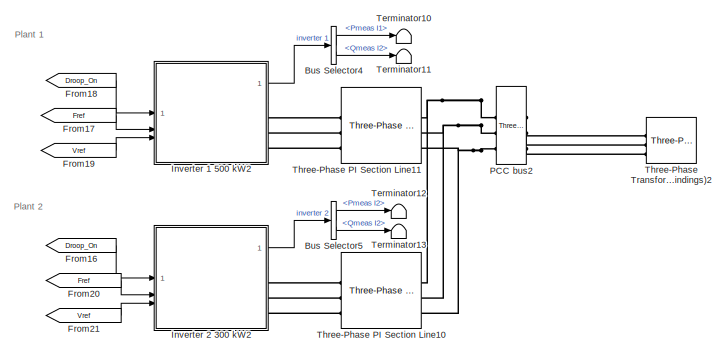
[diagram: root canvas - part 1/7, top right region]
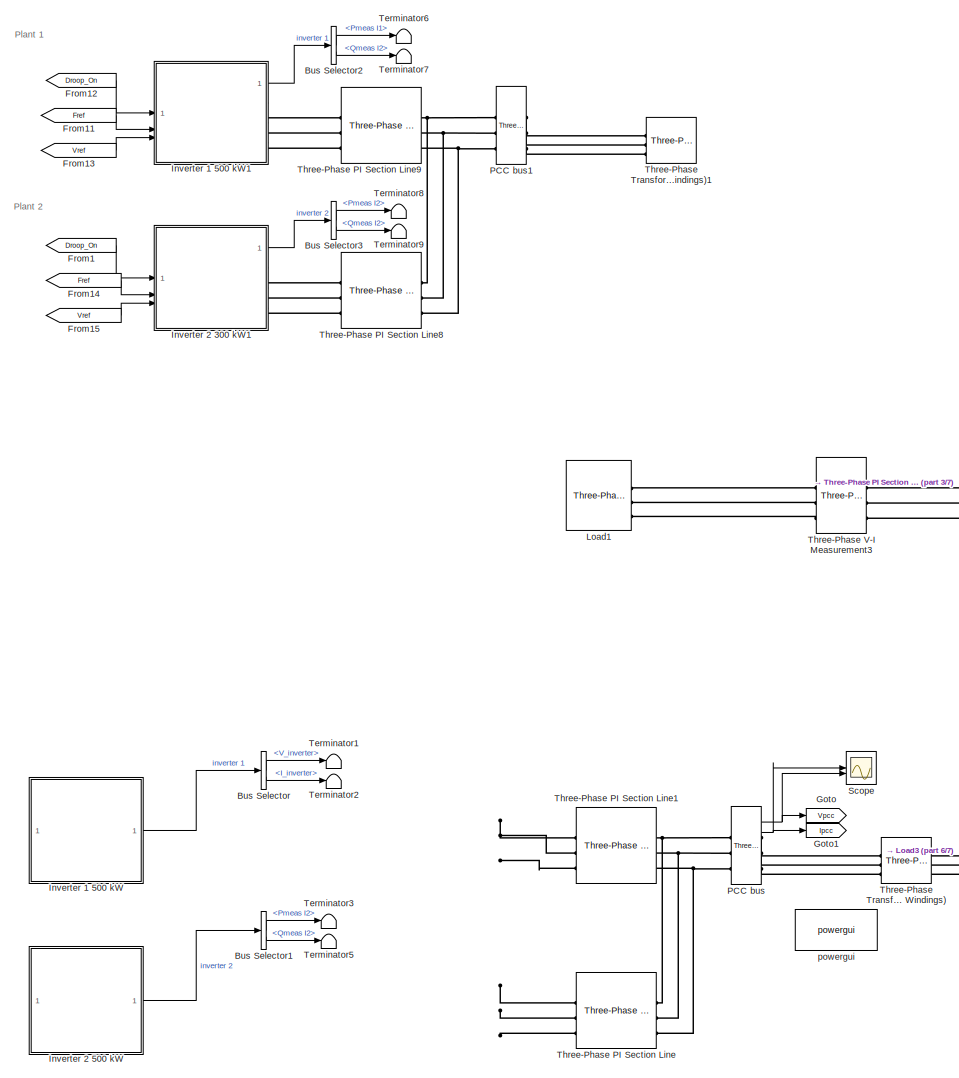
[diagram: root canvas - part 2/7, central region]
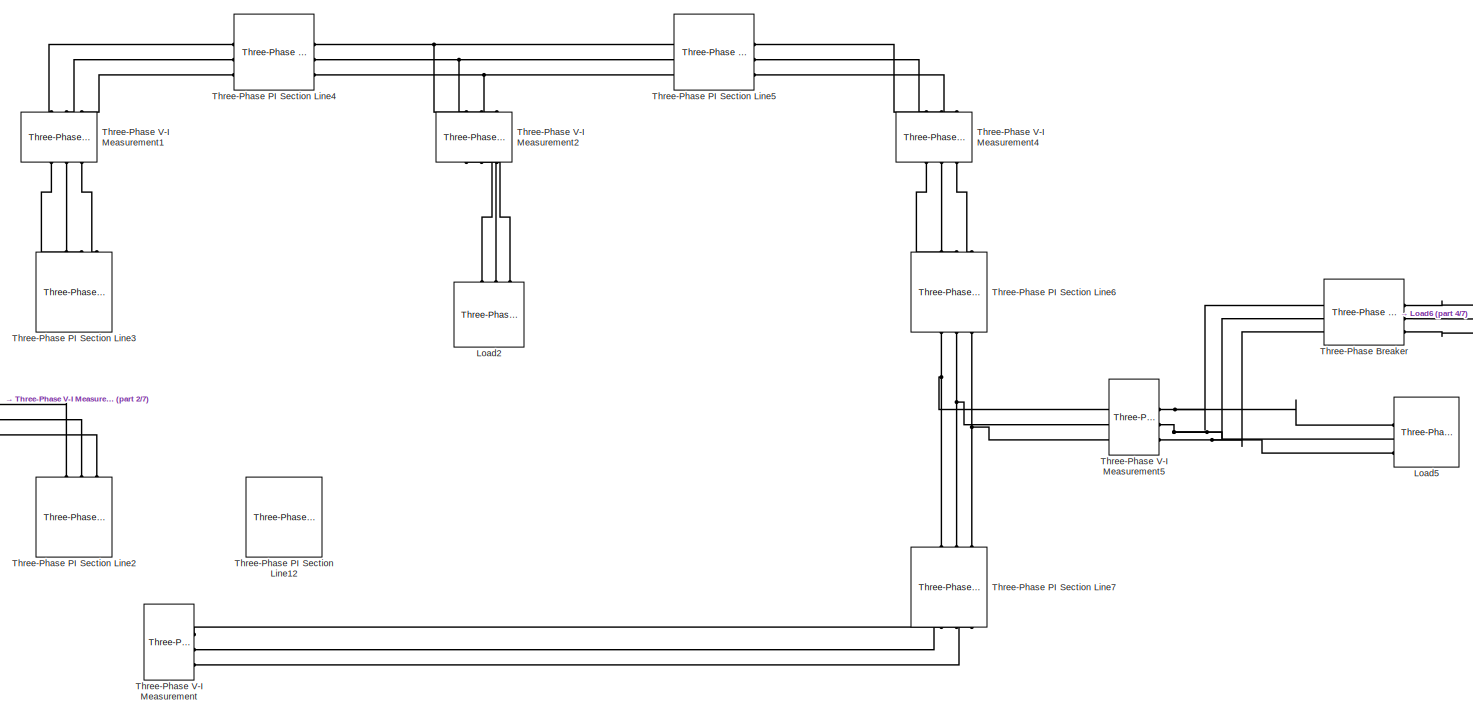
[diagram: root canvas - part 3/7, middle right region]
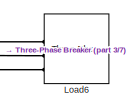
[diagram: root canvas - part 4/7, middle right region]
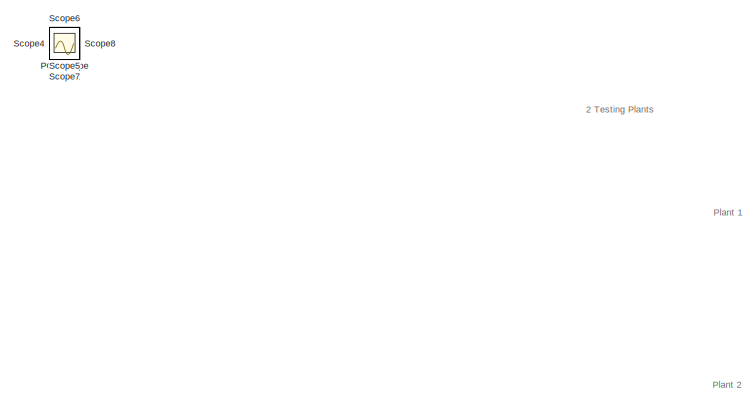
[diagram: root canvas - part 5/7, middle left region]
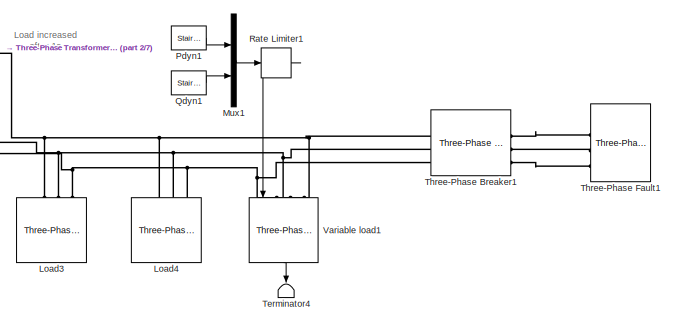
[diagram: root canvas - part 6/7, bottom right region]
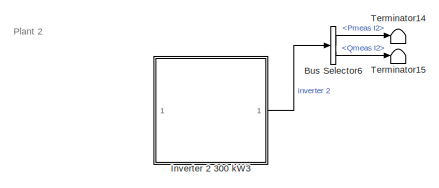
[diagram: root canvas - part 7/7, bottom center region]
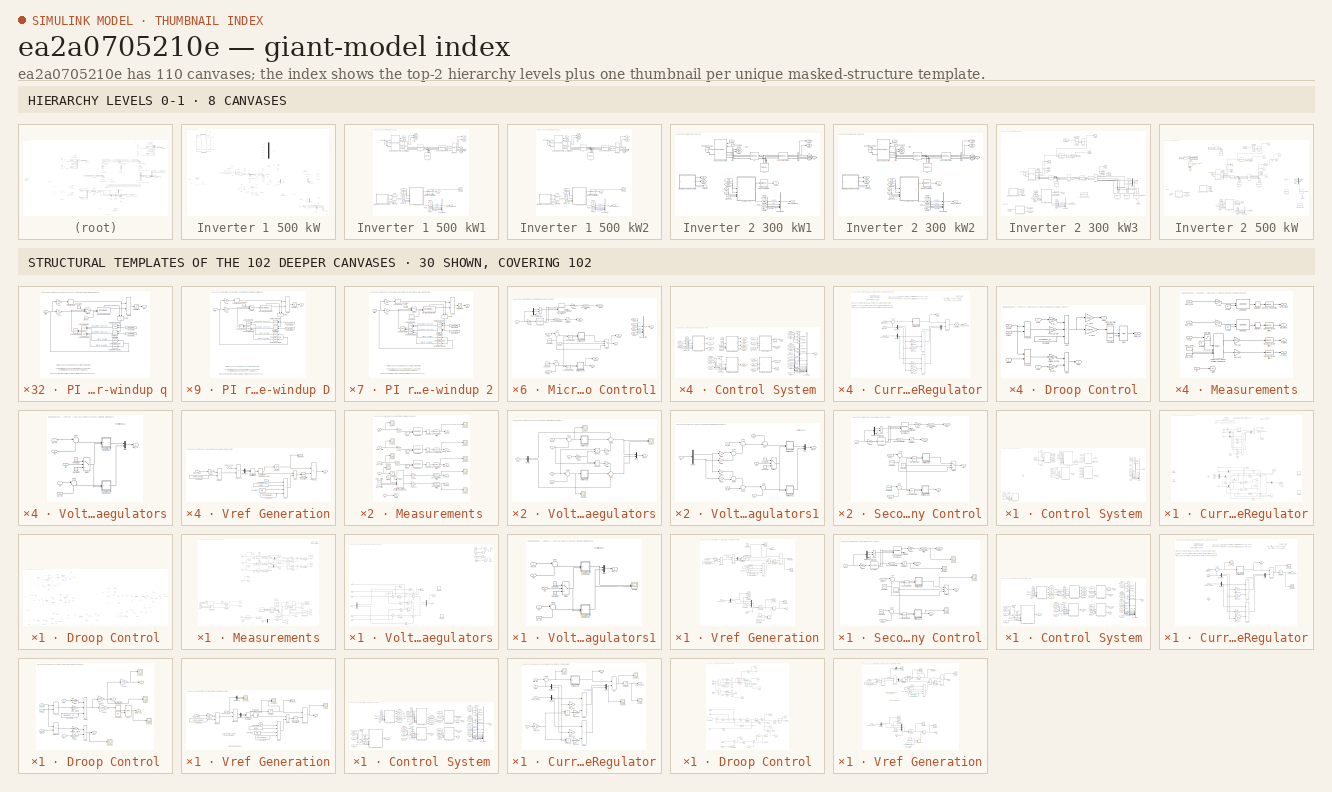
[diagram: thumbnail index - top-2 hierarchy levels (8 canvases) + 30 structural-template representatives of the remaining 102 canvases]
MODEL slx_ea2a0705210e
KIND model
CONFIG AbsTol = auto
CONFIG EnableMultiTasking = off
CONFIG FixedStep = Ts
CONFIG MaxStep = auto
CONFIG MinStep = auto
CONFIG PreLoadFcn = Ts=50e-6;\n
CONFIG RelTol = 1e-4
CONFIG SampleTimeConstraint = Unconstrained
CONFIG SolverName = FixedStepAuto
CONFIG StartTime = 0.0
CONFIG StopTime = 3
BLOCK [BusSelector] Bus Selector
  OutputSignals = V_inverter,I_inverter
BLOCK [BusSelector] Bus Selector1
  OutputSignals = Control.Pmeas I2,Control.Qmeas I2
BLOCK [BusSelector] Bus Selector2
  Commented = on
  OutputSignals = Control.Pmeas I1,Control.Qmeas I2
BLOCK [BusSelector] Bus Selector3
  Commented = on
  OutputSignals = Control.Pmeas I2,Control.Qmeas I2
BLOCK [BusSelector] Bus Selector4
  Commented = on
  OutputSignals = Control.Pmeas I1,Control.Qmeas I2
BLOCK [BusSelector] Bus Selector5
  Commented = on
  OutputSignals = Control.Pmeas I2,Control.Qmeas I2
BLOCK [BusSelector] Bus Selector6
  OutputSignals = Control.Pmeas I2,Control.Qmeas I2
BLOCK [From] From1
  Commented = on
  GotoTag = Droop_On
BLOCK [From] From11
  Commented = on
  GotoTag = Fref
BLOCK [From] From12
  Commented = on
  GotoTag = Droop_On
BLOCK [From] From13
  Commented = on
  GotoTag = Vref
BLOCK [From] From14
  Commented = on
  GotoTag = Fref
BLOCK [From] From15
  Commented = on
  GotoTag = Vref
BLOCK [From] From16
  Commented = on
  GotoTag = Droop_On
BLOCK [From] From17
  Commented = on
  GotoTag = Fref
BLOCK [From] From18
  Commented = on
  GotoTag = Droop_On
BLOCK [From] From19
  Commented = on
  GotoTag = Vref
BLOCK [From] From20
  Commented = on
  GotoTag = Fref
BLOCK [From] From21
  Commented = on
  GotoTag = Vref
BLOCK [Goto] Goto
  Commented = on
  GotoTag = Vpcc
BLOCK [Goto] Goto1
  Commented = on
  GotoTag = Ipcc
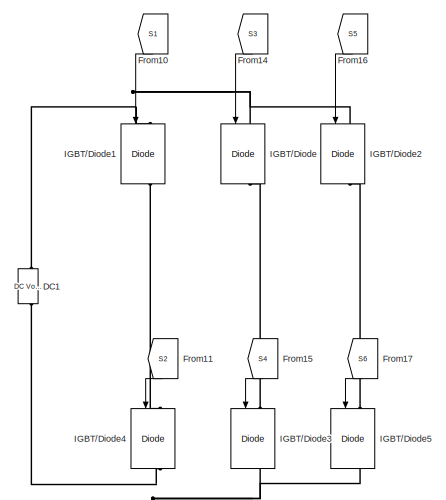
[diagram: Inverter 1 500 kW - part 1/5, top left region]
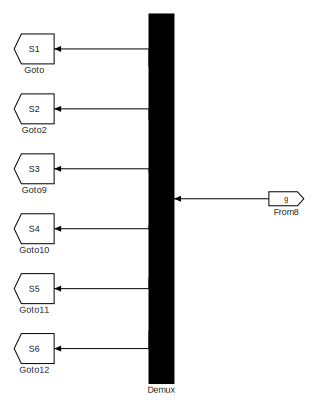
[diagram: Inverter 1 500 kW - part 2/5, top center region]
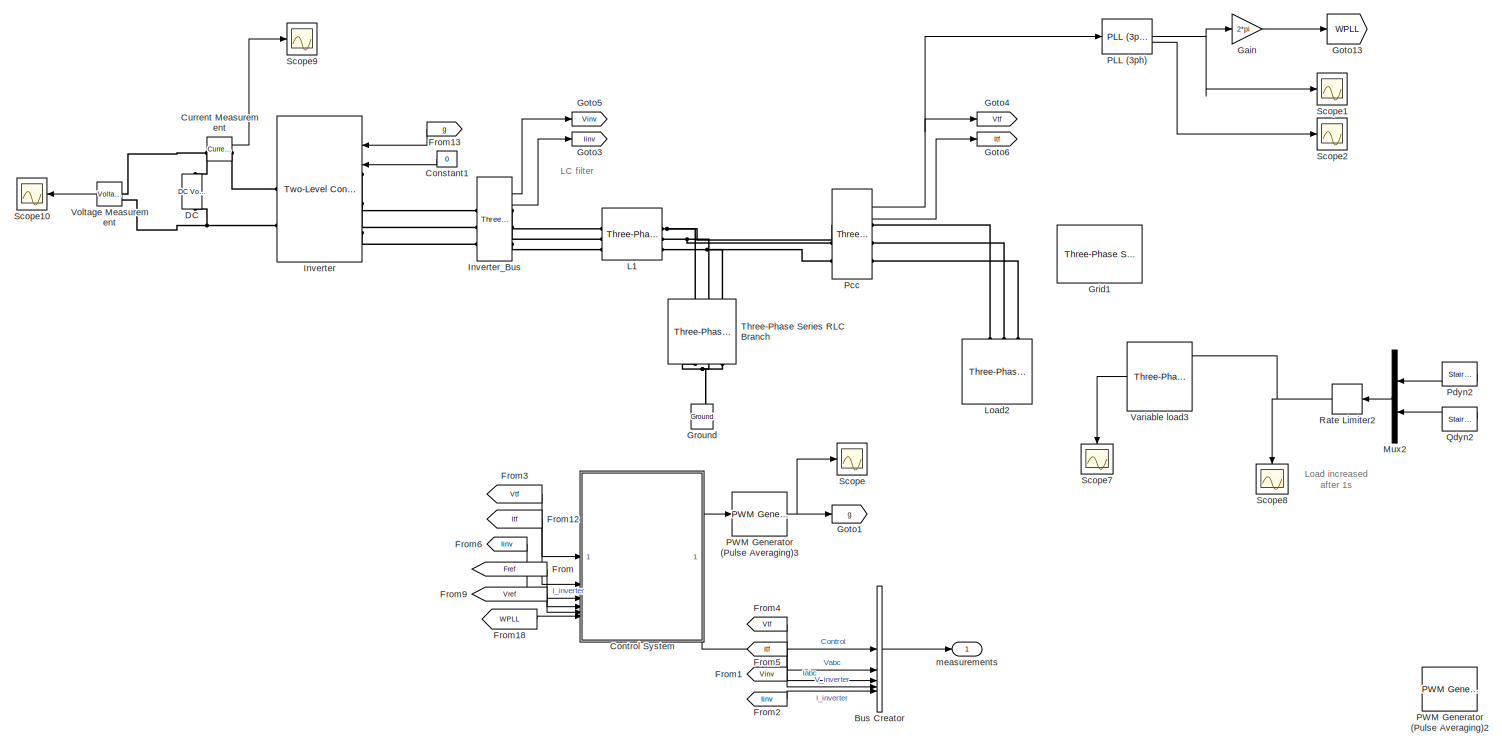
[diagram: Inverter 1 500 kW - part 3/5, central region]
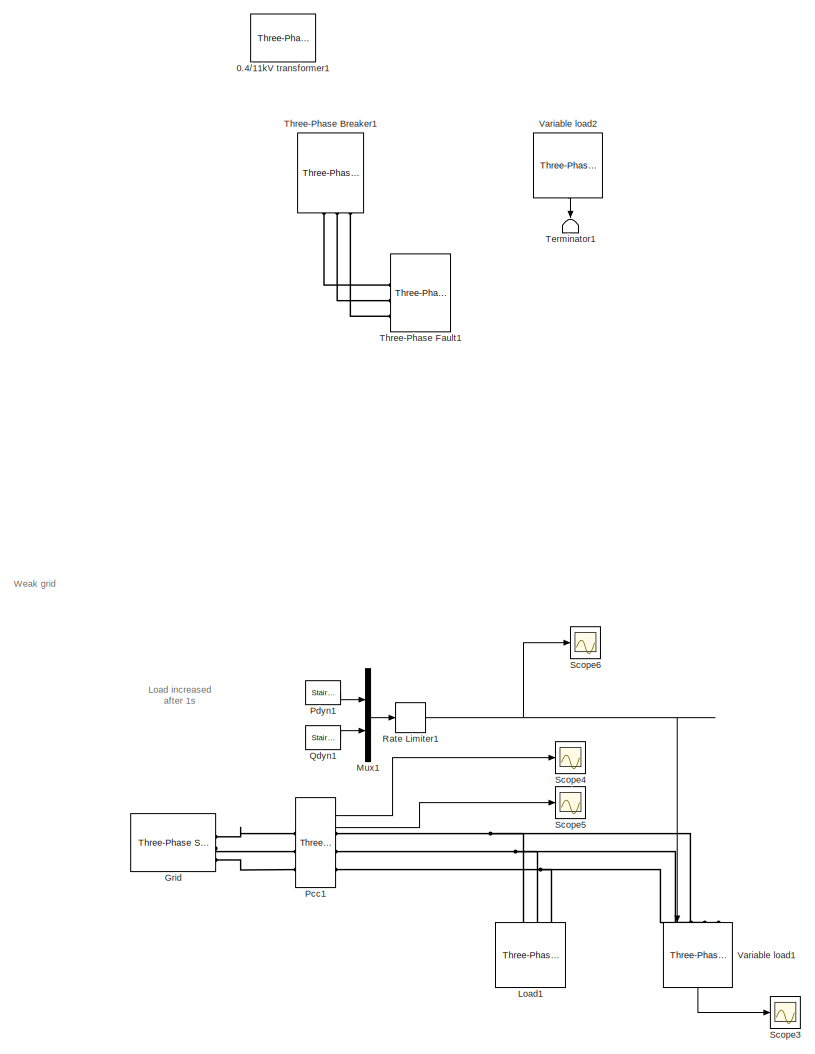
[diagram: Inverter 1 500 kW - part 4/5, bottom right region]
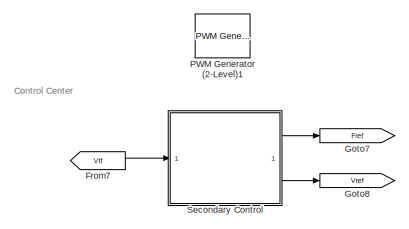
[diagram: Inverter 1 500 kW - part 5/5, middle left region]
BLOCK [SubSystem] Inverter 1 500 kW
BLOCK [Reference] Inverter 1 500 kW/0.4//11kV transformer1  REF=spsThreePhaseTransformerTwoWindingsLib/Three-Phase
Transformer
(Two Windings)
  AttributesFormatString = \n
  SourceBlock = spsThreePhaseTransformerTwoWindingsLib/Three-Phase\nTransformer\n(Two Windings)
  SourceType = Three-Phase Transformer (Two Windings)
BLOCK [BusCreator] Inverter 1 500 kW/Bus Creator
  DisplayOption = bar
  InheritFromInputs = on
  Inputs = 5
BLOCK [Constant] Inverter 1 500 kW/Constant1
  Value = 0
BLOCK [SubSystem] Inverter 1 500 kW/Control System
BLOCK [BusCreator] Inverter 1 500 kW/Control System/Bus Creator
  DisplayOption = bar
  InheritFromInputs = on
  Inputs = 14
BLOCK [Constant] Inverter 1 500 kW/Control System/Constant
  SampleTime = Ts
  Value = Vnom_dc
BLOCK [Constant] Inverter 1 500 kW/Control System/Constant1
  SampleTime = Ts
  Value = 0
BLOCK [Constant] Inverter 1 500 kW/Control System/Constant2
  SampleTime = Ts
BLOCK [Constant] Inverter 1 500 kW/Control System/Constant3
  SampleTime = Ts
  Value = 0
BLOCK [Constant] Inverter 1 500 kW/Control System/Constant4
  Commented = on
  SampleTime = Ts
  Value = 0
BLOCK [SubSystem] Inverter 1 500 kW/Control System/Current Regulator
BLOCK [Sum] Inverter 1 500 kW/Control System/Current Regulator/Add1
  IconShape = rectangular
  Inputs = ++-
BLOCK [Sum] Inverter 1 500 kW/Control System/Current Regulator/Add2
  IconShape = rectangular
BLOCK [Sum] Inverter 1 500 kW/Control System/Current Regulator/Add3
  IconShape = rectangular
  Inputs = +++
BLOCK [Constant] Inverter 1 500 kW/Control System/Current Regulator/Constant1
  Value = 2*pi*50
BLOCK [Demux] Inverter 1 500 kW/Control System/Current Regulator/Demux
  Outputs = 2
BLOCK [Demux] Inverter 1 500 kW/Control System/Current Regulator/Demux1
  Outputs = 2
BLOCK [Demux] Inverter 1 500 kW/Control System/Current Regulator/Demux2
  Outputs = 2
BLOCK [Demux] Inverter 1 500 kW/Control System/Current Regulator/Demux6
  Outputs = 2
BLOCK [Demux] Inverter 1 500 kW/Control System/Current Regulator/Demux7
  Outputs = 2
BLOCK [InportShadow] Inverter 1 500 kW/Control System/Current Regulator/IdIq1
  PortDimensions = 2
BLOCK [Inport] Inverter 1 500 kW/Control System/Current Regulator/IdIq_inv
  PortDimensions = 2
BLOCK [Inport] Inverter 1 500 kW/Control System/Current Regulator/IdIq_ref
  Port = 2
  PortDimensions = 2
BLOCK [InportShadow] Inverter 1 500 kW/Control System/Current Regulator/IdIq_ref2
  Port = 2
  PortDimensions = 2
BLOCK [Gain] Inverter 1 500 kW/Control System/Current Regulator/Kffv
  Gain = Kffv
  OutDataTypeStr = Inherit: Same as input
  ParamDataTypeStr = Inherit: Same as input
  SaturateOnIntegerOverflow = on
BLOCK [Gain] Inverter 1 500 kW/Control System/Current Regulator/Kffv1
  Gain = 1/(2*pi*50)
  OutDataTypeStr = Inherit: Same as input
  ParamDataTypeStr = Inherit: Same as input
  SaturateOnIntegerOverflow = on
BLOCK [Gain] Inverter 1 500 kW/Control System/Current Regulator/Ltot_pu1
  Gain = Lff
  OutDataTypeStr = Inherit: Same as input
  ParamDataTypeStr = Inherit: Same as input
  SaturateOnIntegerOverflow = on
BLOCK [Gain] Inverter 1 500 kW/Control System/Current Regulator/Ltot_pu2
  Gain = Lff
  OutDataTypeStr = Inherit: Same as input
  ParamDataTypeStr = Inherit: Same as input
  SaturateOnIntegerOverflow = on
BLOCK [Gain] Inverter 1 500 kW/Control System/Current Regulator/Ltot_pu3
  Gain = Lf
  OutDataTypeStr = Inherit: Same as input
  ParamDataTypeStr = Inherit: Same as input
  SaturateOnIntegerOverflow = on
BLOCK [Gain] Inverter 1 500 kW/Control System/Current Regulator/Ltot_pu4
  Gain = Lf
  OutDataTypeStr = Inherit: Same as input
  ParamDataTypeStr = Inherit: Same as input
  SaturateOnIntegerOverflow = on
BLOCK [Gain] Inverter 1 500 kW/Control System/Current Regulator/Ltot_pu6
  Gain = Kffv
  OutDataTypeStr = Inherit: Same as input
  ParamDataTypeStr = Inherit: Same as input
  SaturateOnIntegerOverflow = on
BLOCK [Mux] Inverter 1 500 kW/Control System/Current Regulator/Mux
  DisplayOption = bar
  Inputs = 2
BLOCK [Mux] Inverter 1 500 kW/Control System/Current Regulator/Mux1
  DisplayOption = bar
  Inputs = 2
BLOCK [Mux] Inverter 1 500 kW/Control System/Current Regulator/Mux3
  DisplayOption = bar
  Inputs = 2
BLOCK [SubSystem] Inverter 1 500 kW/Control System/Current Regulator/PI regulator with anti-windup D
  DialogController = POWERSYS.PowerSysDialog
BLOCK [Reference] Inverter 1 500 kW/Control System/Current Regulator/PI regulator with anti-windup D/Compare To Zero  REF=simulink/Logic and Bit
Operations/Compare
To Zero
  SourceBlock = simulink/Logic and Bit\nOperations/Compare\nTo Zero
  SourceType = Compare To Zero
BLOCK [Reference] Inverter 1 500 kW/Control System/Current Regulator/PI regulator with anti-windup D/Compare To Zero1  REF=simulink/Logic and Bit
Operations/Compare
To Zero
  SourceBlock = simulink/Logic and Bit\nOperations/Compare\nTo Zero
  SourceType = Compare To Zero
BLOCK [Constant] Inverter 1 500 kW/Control System/Current Regulator/PI regulator with anti-windup D/Constant
  Value = 0
BLOCK [Constant] Inverter 1 500 kW/Control System/Current Regulator/PI regulator with anti-windup D/Constant1
  Value = UpperLimit
BLOCK [Constant] Inverter 1 500 kW/Control System/Current Regulator/PI regulator with anti-windup D/Constant3
  Value = LowerLimit
BLOCK [DiscreteIntegrator] Inverter 1 500 kW/Control System/Current Regulator/PI regulator with anti-windup D/Discrete-Time Integrator
  ICPrevOutput = DiscIntNeverNeededParam
  ICPrevScaledInput = DiscIntNeverNeededParam
  InitialCondition = Init
  IntegratorMethod = Integration: Trapezoidal
  LimitOutput = on
  LowerSaturationLimit = LowerLimit
  SampleTime = Ts
  ShowStatePort = on
  UpperSaturationLimit = UpperLimit
BLOCK [Inport] Inverter 1 500 kW/Control System/Current Regulator/PI regulator with anti-windup D/Error
  SampleTime = Ts
BLOCK [Gain] Inverter 1 500 kW/Control System/Current Regulator/PI regulator with anti-windup D/Kp4
  Gain = Kp
  OutDataTypeStr = Inherit: Same as input
  ParamDataTypeStr = Inherit: Same as input
  SampleTime = Ts
  SaturateOnIntegerOverflow = on
BLOCK [Gain] Inverter 1 500 kW/Control System/Current Regulator/PI regulator with anti-windup D/Kp5
  Gain = Ki
  OutDataTypeStr = Inherit: Same as input
  ParamDataTypeStr = Inherit: Same as input
  SampleTime = Ts
  SaturateOnIntegerOverflow = on
BLOCK [Logic] Inverter 1 500 kW/Control System/Current Regulator/PI regulator with anti-windup D/Logical Operator
  AllPortsSameDT = off
  OutDataTypeStr = boolean
BLOCK [Logic] Inverter 1 500 kW/Control System/Current Regulator/PI regulator with anti-windup D/Logical Operator1
  AllPortsSameDT = off
  OutDataTypeStr = boolean
BLOCK [Logic] Inverter 1 500 kW/Control System/Current Regulator/PI regulator with anti-windup D/Logical Operator2
  AllPortsSameDT = off
  Operator = OR
  OutDataTypeStr = boolean
BLOCK [Outport] Inverter 1 500 kW/Control System/Current Regulator/PI regulator with anti-windup D/Out
  InitialOutput = 0
  SampleTime = Ts
  VectorParamsAs1DForOutWhenUnconnected = off
BLOCK [RelationalOperator] Inverter 1 500 kW/Control System/Current Regulator/PI regulator with anti-windup D/Relational Operator
  InputSameDT = off
  OutDataTypeStr = boolean
BLOCK [RelationalOperator] Inverter 1 500 kW/Control System/Current Regulator/PI regulator with anti-windup D/Relational Operator1
  InputSameDT = off
  Operator = <=
  OutDataTypeStr = boolean
BLOCK [Saturate] Inverter 1 500 kW/Control System/Current Regulator/PI regulator with anti-windup D/Saturation2
  LowerLimit = LowerLimit
  NameLocation = top
  SampleTime = Ts
  UpperLimit = UpperLimit
BLOCK [Sum] Inverter 1 500 kW/Control System/Current Regulator/PI regulator with anti-windup D/Sum1
  IconShape = rectangular
  InputSameDT = on
  NameLocation = left
  OutDataTypeStr = Inherit: Same as first input
  SampleTime = Ts
  SaturateOnIntegerOverflow = on
BLOCK [Sum] Inverter 1 500 kW/Control System/Current Regulator/PI regulator with anti-windup D/Sum6
  IconShape = rectangular
  InputSameDT = on
  OutDataTypeStr = Inherit: Same as first input
  SampleTime = Ts
  SaturateOnIntegerOverflow = on
BLOCK [Switch] Inverter 1 500 kW/Control System/Current Regulator/PI regulator with anti-windup D/Switch
  Criteria = u2 > Threshold
  InputSameDT = off
  SaturateOnIntegerOverflow = off
BLOCK [ZeroOrderHold] Inverter 1 500 kW/Control System/Current Regulator/PI regulator with anti-windup D/Zero-Order Hold
  SampleTime = Ts
BLOCK [SubSystem] Inverter 1 500 kW/Control System/Current Regulator/PI regulator with anti-windup D3
  DialogController = POWERSYS.PowerSysDialog
BLOCK [Reference] Inverter 1 500 kW/Control System/Current Regulator/PI regulator with anti-windup D3/Compare To Zero  REF=simulink/Logic and Bit
Operations/Compare
To Zero
  SourceBlock = simulink/Logic and Bit\nOperations/Compare\nTo Zero
  SourceType = Compare To Zero
BLOCK [Reference] Inverter 1 500 kW/Control System/Current Regulator/PI regulator with anti-windup D3/Compare To Zero1  REF=simulink/Logic and Bit
Operations/Compare
To Zero
  SourceBlock = simulink/Logic and Bit\nOperations/Compare\nTo Zero
  SourceType = Compare To Zero
BLOCK [Constant] Inverter 1 500 kW/Control System/Current Regulator/PI regulator with anti-windup D3/Constant
  Value = 0
BLOCK [Constant] Inverter 1 500 kW/Control System/Current Regulator/PI regulator with anti-windup D3/Constant1
  Value = UpperLimit
BLOCK [Constant] Inverter 1 500 kW/Control System/Current Regulator/PI regulator with anti-windup D3/Constant3
  Value = LowerLimit
BLOCK [DiscreteIntegrator] Inverter 1 500 kW/Control System/Current Regulator/PI regulator with anti-windup D3/Discrete-Time Integrator
  ICPrevOutput = DiscIntNeverNeededParam
  ICPrevScaledInput = DiscIntNeverNeededParam
  InitialCondition = Init
  IntegratorMethod = Integration: Trapezoidal
  LimitOutput = on
  LowerSaturationLimit = LowerLimit
  SampleTime = Ts
  ShowStatePort = on
  UpperSaturationLimit = UpperLimit
BLOCK [Inport] Inverter 1 500 kW/Control System/Current Regulator/PI regulator with anti-windup D3/Error
  SampleTime = Ts
BLOCK [Gain] Inverter 1 500 kW/Control System/Current Regulator/PI regulator with anti-windup D3/Kp4
  Gain = Kp
  OutDataTypeStr = Inherit: Same as input
  ParamDataTypeStr = Inherit: Same as input
  SampleTime = Ts
  SaturateOnIntegerOverflow = on
BLOCK [Gain] Inverter 1 500 kW/Control System/Current Regulator/PI regulator with anti-windup D3/Kp5
  Gain = Ki
  OutDataTypeStr = Inherit: Same as input
  ParamDataTypeStr = Inherit: Same as input
  SampleTime = Ts
  SaturateOnIntegerOverflow = on
BLOCK [Logic] Inverter 1 500 kW/Control System/Current Regulator/PI regulator with anti-windup D3/Logical Operator
  AllPortsSameDT = off
  OutDataTypeStr = boolean
BLOCK [Logic] Inverter 1 500 kW/Control System/Current Regulator/PI regulator with anti-windup D3/Logical Operator1
  AllPortsSameDT = off
  OutDataTypeStr = boolean
BLOCK [Logic] Inverter 1 500 kW/Control System/Current Regulator/PI regulator with anti-windup D3/Logical Operator2
  AllPortsSameDT = off
  Operator = OR
  OutDataTypeStr = boolean
BLOCK [Outport] Inverter 1 500 kW/Control System/Current Regulator/PI regulator with anti-windup D3/Out
  InitialOutput = 0
  SampleTime = Ts
  VectorParamsAs1DForOutWhenUnconnected = off
BLOCK [RelationalOperator] Inverter 1 500 kW/Control System/Current Regulator/PI regulator with anti-windup D3/Relational Operator
  InputSameDT = off
  OutDataTypeStr = boolean
BLOCK [RelationalOperator] Inverter 1 500 kW/Control System/Current Regulator/PI regulator with anti-windup D3/Relational Operator1
  InputSameDT = off
  Operator = <=
  OutDataTypeStr = boolean
BLOCK [Saturate] Inverter 1 500 kW/Control System/Current Regulator/PI regulator with anti-windup D3/Saturation2
  LowerLimit = LowerLimit
  NameLocation = top
  SampleTime = Ts
  UpperLimit = UpperLimit
BLOCK [Sum] Inverter 1 500 kW/Control System/Current Regulator/PI regulator with anti-windup D3/Sum1
  IconShape = rectangular
  InputSameDT = on
  NameLocation = left
  OutDataTypeStr = Inherit: Same as first input
  SampleTime = Ts
  SaturateOnIntegerOverflow = on
BLOCK [Sum] Inverter 1 500 kW/Control System/Current Regulator/PI regulator with anti-windup D3/Sum6
  IconShape = rectangular
  InputSameDT = on
  OutDataTypeStr = Inherit: Same as first input
  SampleTime = Ts
  SaturateOnIntegerOverflow = on
BLOCK [Switch] Inverter 1 500 kW/Control System/Current Regulator/PI regulator with anti-windup D3/Switch
  Criteria = u2 > Threshold
  InputSameDT = off
  SaturateOnIntegerOverflow = off
BLOCK [ZeroOrderHold] Inverter 1 500 kW/Control System/Current Regulator/PI regulator with anti-windup D3/Zero-Order Hold
  SampleTime = Ts
BLOCK [SubSystem] Inverter 1 500 kW/Control System/Current Regulator/PI regulator with anti-windup D4
  DialogController = POWERSYS.PowerSysDialog
BLOCK [Reference] Inverter 1 500 kW/Control System/Current Regulator/PI regulator with anti-windup D4/Compare To Zero  REF=simulink/Logic and Bit
Operations/Compare
To Zero
  SourceBlock = simulink/Logic and Bit\nOperations/Compare\nTo Zero
  SourceType = Compare To Zero
BLOCK [Reference] Inverter 1 500 kW/Control System/Current Regulator/PI regulator with anti-windup D4/Compare To Zero1  REF=simulink/Logic and Bit
Operations/Compare
To Zero
  SourceBlock = simulink/Logic and Bit\nOperations/Compare\nTo Zero
  SourceType = Compare To Zero
BLOCK [Constant] Inverter 1 500 kW/Control System/Current Regulator/PI regulator with anti-windup D4/Constant
  Value = 0
BLOCK [Constant] Inverter 1 500 kW/Control System/Current Regulator/PI regulator with anti-windup D4/Constant1
  Value = UpperLimit
BLOCK [Constant] Inverter 1 500 kW/Control System/Current Regulator/PI regulator with anti-windup D4/Constant3
  Value = LowerLimit
BLOCK [DiscreteIntegrator] Inverter 1 500 kW/Control System/Current Regulator/PI regulator with anti-windup D4/Discrete-Time Integrator
  ICPrevOutput = DiscIntNeverNeededParam
  ICPrevScaledInput = DiscIntNeverNeededParam
  InitialCondition = Init
  IntegratorMethod = Integration: Trapezoidal
  LimitOutput = on
  LowerSaturationLimit = LowerLimit
  SampleTime = Ts
  ShowStatePort = on
  UpperSaturationLimit = UpperLimit
BLOCK [Inport] Inverter 1 500 kW/Control System/Current Regulator/PI regulator with anti-windup D4/Error
  SampleTime = Ts
BLOCK [Gain] Inverter 1 500 kW/Control System/Current Regulator/PI regulator with anti-windup D4/Kp4
  Gain = Kp
  OutDataTypeStr = Inherit: Same as input
  ParamDataTypeStr = Inherit: Same as input
  SampleTime = Ts
  SaturateOnIntegerOverflow = on
BLOCK [Gain] Inverter 1 500 kW/Control System/Current Regulator/PI regulator with anti-windup D4/Kp5
  Gain = Ki
  OutDataTypeStr = Inherit: Same as input
  ParamDataTypeStr = Inherit: Same as input
  SampleTime = Ts
  SaturateOnIntegerOverflow = on
BLOCK [Logic] Inverter 1 500 kW/Control System/Current Regulator/PI regulator with anti-windup D4/Logical Operator
  AllPortsSameDT = off
  OutDataTypeStr = boolean
BLOCK [Logic] Inverter 1 500 kW/Control System/Current Regulator/PI regulator with anti-windup D4/Logical Operator1
  AllPortsSameDT = off
  OutDataTypeStr = boolean
BLOCK [Logic] Inverter 1 500 kW/Control System/Current Regulator/PI regulator with anti-windup D4/Logical Operator2
  AllPortsSameDT = off
  Operator = OR
  OutDataTypeStr = boolean
BLOCK [Outport] Inverter 1 500 kW/Control System/Current Regulator/PI regulator with anti-windup D4/Out
  InitialOutput = 0
  SampleTime = Ts
  VectorParamsAs1DForOutWhenUnconnected = off
BLOCK [RelationalOperator] Inverter 1 500 kW/Control System/Current Regulator/PI regulator with anti-windup D4/Relational Operator
  InputSameDT = off
  OutDataTypeStr = boolean
BLOCK [RelationalOperator] Inverter 1 500 kW/Control System/Current Regulator/PI regulator with anti-windup D4/Relational Operator1
  InputSameDT = off
  Operator = <=
  OutDataTypeStr = boolean
BLOCK [Saturate] Inverter 1 500 kW/Control System/Current Regulator/PI regulator with anti-windup D4/Saturation2
  LowerLimit = LowerLimit
  NameLocation = top
  SampleTime = Ts
  UpperLimit = UpperLimit
BLOCK [Sum] Inverter 1 500 kW/Control System/Current Regulator/PI regulator with anti-windup D4/Sum1
  IconShape = rectangular
  InputSameDT = on
  NameLocation = left
  OutDataTypeStr = Inherit: Same as first input
  SampleTime = Ts
  SaturateOnIntegerOverflow = on
BLOCK [Sum] Inverter 1 500 kW/Control System/Current Regulator/PI regulator with anti-windup D4/Sum6
  IconShape = rectangular
  InputSameDT = on
  OutDataTypeStr = Inherit: Same as first input
  SampleTime = Ts
  SaturateOnIntegerOverflow = on
BLOCK [Switch] Inverter 1 500 kW/Control System/Current Regulator/PI regulator with anti-windup D4/Switch
  Criteria = u2 > Threshold
  InputSameDT = off
  SaturateOnIntegerOverflow = off
BLOCK [ZeroOrderHold] Inverter 1 500 kW/Control System/Current Regulator/PI regulator with anti-windup D4/Zero-Order Hold
  SampleTime = Ts
BLOCK [Reference] Inverter 1 500 kW/Control System/Current Regulator/PID Controller  REF=slpidlib/PID Controller
  LibrarySourceBlock = simulink/Continuous/PID Controller
  SourceBlock = slpidlib/PID Controller
  SourceType = PID 1dof
BLOCK [Reference] Inverter 1 500 kW/Control System/Current Regulator/PID Controller1  REF=slpidlib/PID Controller
  LibrarySourceBlock = simulink/Continuous/PID Controller
  SourceBlock = slpidlib/PID Controller
  SourceType = PID 1dof
BLOCK [Product] Inverter 1 500 kW/Control System/Current Regulator/Product
BLOCK [Product] Inverter 1 500 kW/Control System/Current Regulator/Product1
BLOCK [Gain] Inverter 1 500 kW/Control System/Current Regulator/Rtot_pu1
  Gain = Rff
  NameLocation = top
  OutDataTypeStr = Inherit: Same as input
  ParamDataTypeStr = Inherit: Same as input
  SaturateOnIntegerOverflow = on
BLOCK [Gain] Inverter 1 500 kW/Control System/Current Regulator/Rtot_pu5
  Gain = Rff
  NameLocation = top
  OutDataTypeStr = Inherit: Same as input
  ParamDataTypeStr = Inherit: Same as input
  SaturateOnIntegerOverflow = on
BLOCK [Saturate] Inverter 1 500 kW/Control System/Current Regulator/Saturation
  LowerLimit = Limits_Ireg(2)
  UpperLimit = Limits_Ireg(1)
BLOCK [Saturate] Inverter 1 500 kW/Control System/Current Regulator/Saturation1
  LowerLimit = Limits_Ireg(2)
  UpperLimit = Limits_Ireg(1)
BLOCK [Scope] Inverter 1 500 kW/Control System/Current Regulator/Scope
  Floating = off
  NumInputPorts = 1
  ScopeSpecificationString = Simulink.scopes.TimeScopeBlockCfg('CurrentConfiguration', extmgr.ConfigurationSet(extmgr.Configuration('Core','General UI',true),extmgr.Configuration('Core','Source UI',true),extmgr.Configuration('Sources','WiredSimulink',true,'DataLoggingVariableName','ScopeData2'),extmgr.Configuration('Visuals','Time Domain',true,'SerializedDisplays',{struct('MinYLimReal','-2445795161.32551','MaxYLimReal','22778...<+1693ch>
BLOCK [Scope] Inverter 1 500 kW/Control System/Current Regulator/Scope1
  Floating = off
  NumInputPorts = 2
  ScopeSpecificationString = Simulink.scopes.TimeScopeBlockCfg('CurrentConfiguration', extmgr.ConfigurationSet(extmgr.Configuration('Core','General UI',true),extmgr.Configuration('Core','Source UI',true),extmgr.Configuration('Sources','WiredSimulink',true,'DataLoggingVariableName','ScopeData1'),extmgr.Configuration('Visuals','Time Domain',true,'SerializedDisplays',{struct('MinYLimReal','-443940946.23662','MaxYLimReal','399735...<+1684ch>
BLOCK [Scope] Inverter 1 500 kW/Control System/Current Regulator/Scope2
  Floating = off
  NumInputPorts = 2
  ScopeSpecificationString = Simulink.scopes.TimeScopeBlockCfg('CurrentConfiguration', extmgr.ConfigurationSet(extmgr.Configuration('Core','General UI',true),extmgr.Configuration('Core','Source UI',true),extmgr.Configuration('Sources','WiredSimulink',true,'DataLoggingVariableName','ScopeData2'),extmgr.Configuration('Visuals','Time Domain',true,'SerializedDisplays',{struct('MinYLimReal','-318.88768','MaxYLimReal','240.4816','Y...<+1883ch>
BLOCK [Scope] Inverter 1 500 kW/Control System/Current Regulator/Scope3
  Floating = off
  NumInputPorts = 1
  ScopeSpecificationString = Simulink.scopes.TimeScopeBlockCfg('CurrentConfiguration', extmgr.ConfigurationSet(extmgr.Configuration('Core','General UI',true),extmgr.Configuration('Core','Source UI',true),extmgr.Configuration('Sources','WiredSimulink',true,'DataLoggingVariableName','ScopeData1'),extmgr.Configuration('Visuals','Time Domain',true,'SerializedDisplays',{struct('MinYLimReal','-1.5625','MaxYLimReal','1.5625','YLabel...<+1568ch>
BLOCK [Scope] Inverter 1 500 kW/Control System/Current Regulator/Scope4
  Floating = off
  NumInputPorts = 1
  ScopeSpecificationString = Simulink.scopes.TimeScopeBlockCfg('CurrentConfiguration', extmgr.ConfigurationSet(extmgr.Configuration('Core','General UI',true),extmgr.Configuration('Core','Source UI',true),extmgr.Configuration('Sources','WiredSimulink',true,'DataLoggingVariableName','ScopeData2'),extmgr.Configuration('Visuals','Time Domain',true,'SerializedDisplays',{struct('MinYLimReal','-29483.75005','MaxYLimReal','265425.672...<+1568ch>
BLOCK [Scope] Inverter 1 500 kW/Control System/Current Regulator/Scope5
  Floating = off
  NumInputPorts = 2
  ScopeSpecificationString = Simulink.scopes.TimeScopeBlockCfg('CurrentConfiguration', extmgr.ConfigurationSet(extmgr.Configuration('Core','General UI',true),extmgr.Configuration('Core','Source UI',true),extmgr.Configuration('Sources','WiredSimulink',true,'DataLoggingVariableName','ScopeData6'),extmgr.Configuration('Visuals','Time Domain',true,'SerializedDisplays',{struct('MinYLimReal','-33266.54829','MaxYLimReal','294504.693...<+1657ch>
BLOCK [Scope] Inverter 1 500 kW/Control System/Current Regulator/Scope6
  Floating = off
  NumInputPorts = 1
  ScopeSpecificationString = Simulink.scopes.TimeScopeBlockCfg('CurrentConfiguration', extmgr.ConfigurationSet(extmgr.Configuration('Core','General UI',true),extmgr.Configuration('Core','Source UI',true),extmgr.Configuration('Sources','WiredSimulink',true,'DataLoggingVariableName','ScopeData8'),extmgr.Configuration('Visuals','Time Domain',true,'SerializedDisplays',{struct('MinYLimReal','999689.26456','MaxYLimReal','1000316.31...<+1658ch>
BLOCK [Scope] Inverter 1 500 kW/Control System/Current Regulator/Scope7
  Floating = off
  NumInputPorts = 1
  ScopeSpecificationString = Simulink.scopes.TimeScopeBlockCfg('CurrentConfiguration', extmgr.ConfigurationSet(extmgr.Configuration('Core','General UI',true),extmgr.Configuration('Core','Source UI',true),extmgr.Configuration('Sources','WiredSimulink',true,'DataLoggingVariableName','ScopeData1'),extmgr.Configuration('Visuals','Time Domain',true,'SerializedDisplays',{struct('MinYLimReal','-585.45584','MaxYLimReal','340.63946','...<+1889ch>
BLOCK [Scope] Inverter 1 500 kW/Control System/Current Regulator/Scope8
  Floating = off
  NumInputPorts = 1
  ScopeSpecificationString = Simulink.scopes.TimeScopeBlockCfg('CurrentConfiguration', extmgr.ConfigurationSet(extmgr.Configuration('Core','General UI',true),extmgr.Configuration('Core','Source UI',true),extmgr.Configuration('Sources','WiredSimulink',true,'DataLoggingVariableName','ScopeData2'),extmgr.Configuration('Visuals','Time Domain',true,'SerializedDisplays',{struct('MinYLimReal','-1.4959','MaxYLimReal','1.7051','YLabel...<+1614ch>
BLOCK [Scope] Inverter 1 500 kW/Control System/Current Regulator/Scope9
  Floating = off
  NumInputPorts = 1
  ScopeSpecificationString = Simulink.scopes.TimeScopeBlockCfg('CurrentConfiguration', extmgr.ConfigurationSet(extmgr.Configuration('Core','General UI',true),extmgr.Configuration('Core','Source UI',true),extmgr.Configuration('Sources','WiredSimulink',true,'DataLoggingVariableName','ScopeData3'),extmgr.Configuration('Visuals','Time Domain',true,'SerializedDisplays',{struct('MinYLimReal','-9.50213','MaxYLimReal','64.59624','YLa...<+1623ch>
BLOCK [Reference] Inverter 1 500 kW/Control System/Current Regulator/Second-Order Filter2  REF=spsSecondOrderFilterLib/Second-Order
Filter
  SourceBlock = spsSecondOrderFilterLib/Second-Order\nFilter
  SourceType = Second-Order Filter
BLOCK [Step] Inverter 1 500 kW/Control System/Current Regulator/Step2
  After = 10e5
  SampleTime = 0
  Time = 0
BLOCK [Step] Inverter 1 500 kW/Control System/Current Regulator/Step3
  After = 0
  SampleTime = 0
  Time = 0
BLOCK [Sum] Inverter 1 500 kW/Control System/Current Regulator/Sum
  Inputs = |-+
BLOCK [Sum] Inverter 1 500 kW/Control System/Current Regulator/Sum1
  Inputs = |+-
BLOCK [Sum] Inverter 1 500 kW/Control System/Current Regulator/Sum2
  Inputs = ++-
BLOCK [Sum] Inverter 1 500 kW/Control System/Current Regulator/Sum3
  Inputs = -+|
BLOCK [Sum] Inverter 1 500 kW/Control System/Current Regulator/Sum4
  Inputs = +++
BLOCK [Outport] Inverter 1 500 kW/Control System/Current Regulator/VdVq_conv_Default
  VectorParamsAs1DForOutWhenUnconnected = off
BLOCK [Outport] Inverter 1 500 kW/Control System/Current Regulator/VdVq_conv_Modified
  Port = 2
  VectorParamsAs1DForOutWhenUnconnected = off
BLOCK [Inport] Inverter 1 500 kW/Control System/Current Regulator/Vdq
  Port = 3
  PortDimensions = 2
BLOCK [InportShadow] Inverter 1 500 kW/Control System/Current Regulator/Vdq1
  Port = 3
  PortDimensions = 2
BLOCK [Inport] Inverter 1 500 kW/Control System/Current Regulator/W
  Port = 4
  PortDimensions = 1
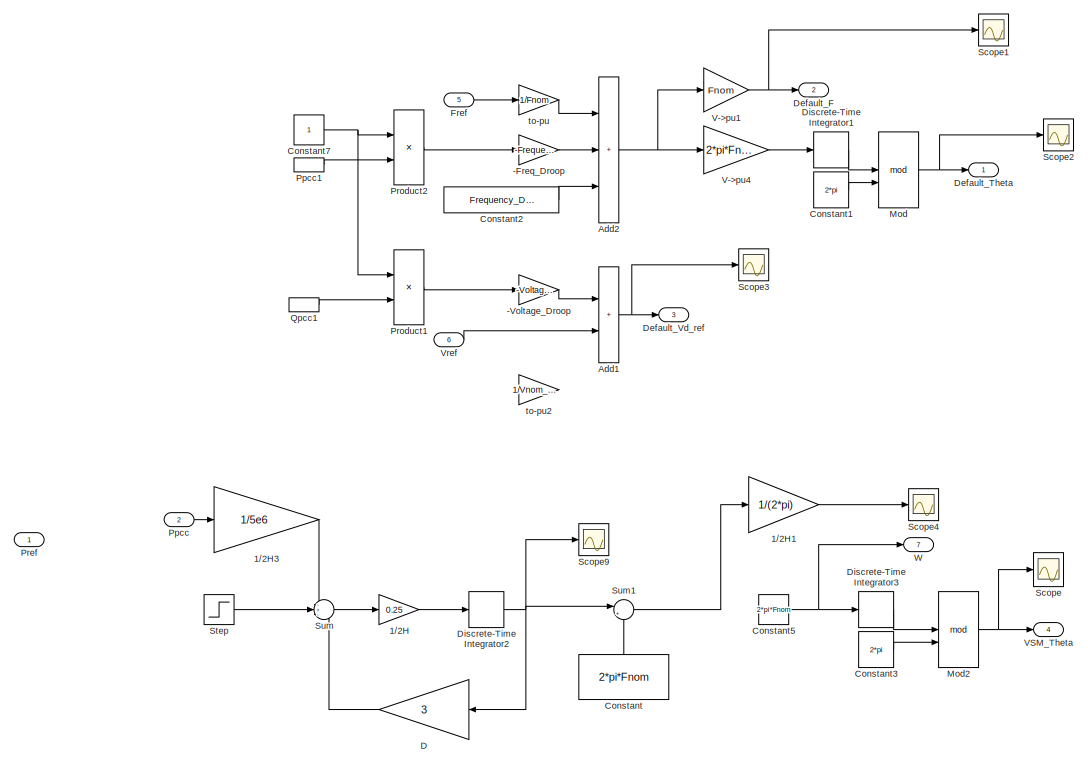
[diagram: Inverter 1 500 kW/Control System/Droop Control - part 1/3, middle left region]
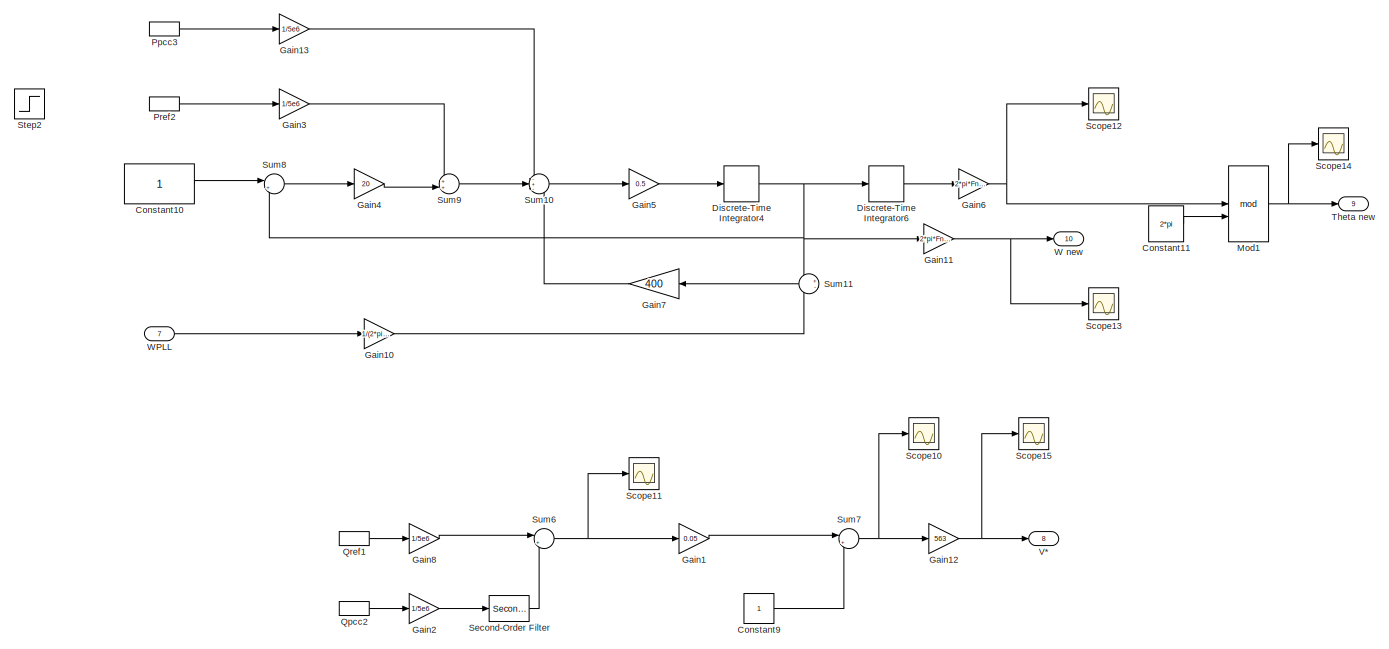
[diagram: Inverter 1 500 kW/Control System/Droop Control - part 2/3, middle right region]
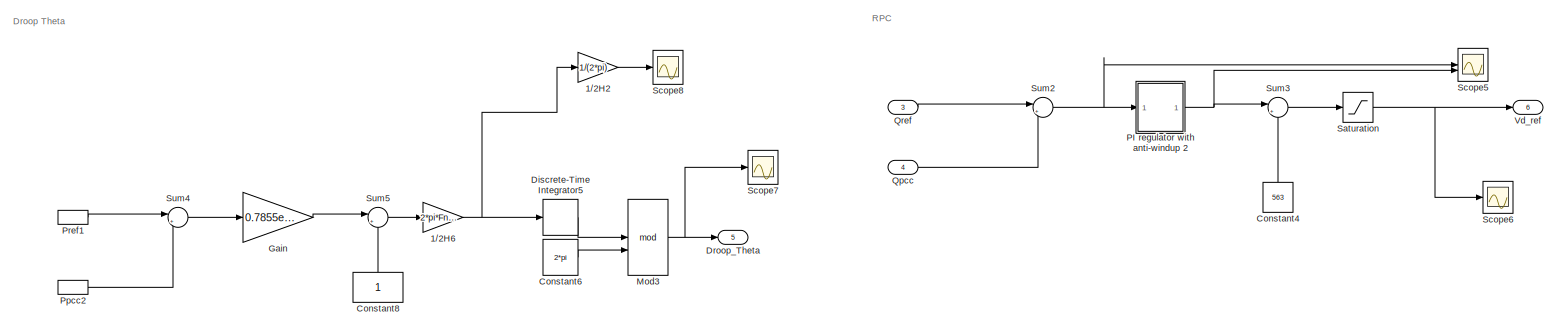
[diagram: Inverter 1 500 kW/Control System/Droop Control - part 3/3, bottom left region]
BLOCK [SubSystem] Inverter 1 500 kW/Control System/Droop Control
BLOCK [Gain] Inverter 1 500 kW/Control System/Droop Control/-Freq_Droop
  Gain = -Frequency_Droop/100
BLOCK [Gain] Inverter 1 500 kW/Control System/Droop Control/-Voltage_Droop
  Gain = -Voltage_Droop/100
  NameLocation = top
BLOCK [Gain] Inverter 1 500 kW/Control System/Droop Control/1//2H
  Gain = 0.25
BLOCK [Gain] Inverter 1 500 kW/Control System/Droop Control/1//2H1
  Gain = 1/(2*pi)
BLOCK [Gain] Inverter 1 500 kW/Control System/Droop Control/1//2H2
  Gain = 1/(2*pi)
BLOCK [Gain] Inverter 1 500 kW/Control System/Droop Control/1//2H3
  Gain = 1/5e6
BLOCK [Gain] Inverter 1 500 kW/Control System/Droop Control/1//2H6
  Gain = 2*pi*Fnom
BLOCK [Sum] Inverter 1 500 kW/Control System/Droop Control/Add1
  IconShape = rectangular
BLOCK [Sum] Inverter 1 500 kW/Control System/Droop Control/Add2
  IconShape = rectangular
  Inputs = +++
BLOCK [Constant] Inverter 1 500 kW/Control System/Droop Control/Constant
  NameLocation = right
  Value = 2*pi*Fnom
BLOCK [Constant] Inverter 1 500 kW/Control System/Droop Control/Constant1
  Value = 2*pi
BLOCK [Constant] Inverter 1 500 kW/Control System/Droop Control/Constant10
BLOCK [Constant] Inverter 1 500 kW/Control System/Droop Control/Constant11
  Value = 2*pi
BLOCK [Constant] Inverter 1 500 kW/Control System/Droop Control/Constant2
  Value = Frequency_Droop/100/2
BLOCK [Constant] Inverter 1 500 kW/Control System/Droop Control/Constant3
  Value = 2*pi
BLOCK [Constant] Inverter 1 500 kW/Control System/Droop Control/Constant4
  NameLocation = right
  Value = 563
BLOCK [Constant] Inverter 1 500 kW/Control System/Droop Control/Constant5
  Value = 2*pi*Fnom
BLOCK [Constant] Inverter 1 500 kW/Control System/Droop Control/Constant6
  Value = 2*pi
BLOCK [Constant] Inverter 1 500 kW/Control System/Droop Control/Constant7
BLOCK [Constant] Inverter 1 500 kW/Control System/Droop Control/Constant8
  NameLocation = right
BLOCK [Constant] Inverter 1 500 kW/Control System/Droop Control/Constant9
BLOCK [Gain] Inverter 1 500 kW/Control System/Droop Control/D
  Gain = 3
  NameLocation = top
BLOCK [Outport] Inverter 1 500 kW/Control System/Droop Control/Default_F
  Port = 2
BLOCK [Outport] Inverter 1 500 kW/Control System/Droop Control/Default_Theta
BLOCK [Outport] Inverter 1 500 kW/Control System/Droop Control/Default_Vd_ref
  Port = 3
BLOCK [DiscreteIntegrator] Inverter 1 500 kW/Control System/Droop Control/Discrete-Time Integrator1
  ICPrevOutput = DiscIntNeverNeededParam
  ICPrevScaledInput = DiscIntNeverNeededParam
  InitialConditionSetting = Auto
  SampleTime = Ts
BLOCK [DiscreteIntegrator] Inverter 1 500 kW/Control System/Droop Control/Discrete-Time Integrator2
  ICPrevOutput = DiscIntNeverNeededParam
  ICPrevScaledInput = DiscIntNeverNeededParam
  InitialConditionSetting = Auto
  SampleTime = Ts
BLOCK [DiscreteIntegrator] Inverter 1 500 kW/Control System/Droop Control/Discrete-Time Integrator3
  ICPrevOutput = DiscIntNeverNeededParam
  ICPrevScaledInput = DiscIntNeverNeededParam
  InitialConditionSetting = Auto
  SampleTime = Ts
BLOCK [DiscreteIntegrator] Inverter 1 500 kW/Control System/Droop Control/Discrete-Time Integrator4
  ICPrevOutput = DiscIntNeverNeededParam
  ICPrevScaledInput = DiscIntNeverNeededParam
  InitialConditionSetting = Auto
  SampleTime = Ts
BLOCK [DiscreteIntegrator] Inverter 1 500 kW/Control System/Droop Control/Discrete-Time Integrator5
  ICPrevOutput = DiscIntNeverNeededParam
  ICPrevScaledInput = DiscIntNeverNeededParam
  InitialConditionSetting = Auto
  SampleTime = Ts
BLOCK [DiscreteIntegrator] Inverter 1 500 kW/Control System/Droop Control/Discrete-Time Integrator6
  ICPrevOutput = DiscIntNeverNeededParam
  ICPrevScaledInput = DiscIntNeverNeededParam
  InitialConditionSetting = Auto
  SampleTime = Ts
BLOCK [Outport] Inverter 1 500 kW/Control System/Droop Control/Droop_Theta
  Port = 5
BLOCK [Inport] Inverter 1 500 kW/Control System/Droop Control/Fref
  Port = 5
  PortDimensions = 1
BLOCK [Gain] Inverter 1 500 kW/Control System/Droop Control/Gain
  Gain = 0.7855e-6
BLOCK [Gain] Inverter 1 500 kW/Control System/Droop Control/Gain1
  Gain = 0.05
BLOCK [Gain] Inverter 1 500 kW/Control System/Droop Control/Gain10
  Gain = 1/(2*pi*Fnom)
BLOCK [Gain] Inverter 1 500 kW/Control System/Droop Control/Gain11
  Gain = 2*pi*Fnom
BLOCK [Gain] Inverter 1 500 kW/Control System/Droop Control/Gain12
  Gain = 563
BLOCK [Gain] Inverter 1 500 kW/Control System/Droop Control/Gain13
  Gain = 1/5e6
BLOCK [Gain] Inverter 1 500 kW/Control System/Droop Control/Gain2
  Gain = 1/5e6
BLOCK [Gain] Inverter 1 500 kW/Control System/Droop Control/Gain3
  Gain = 1/5e6
BLOCK [Gain] Inverter 1 500 kW/Control System/Droop Control/Gain4
  Gain = 20
BLOCK [Gain] Inverter 1 500 kW/Control System/Droop Control/Gain5
  Gain = 0.5
BLOCK [Gain] Inverter 1 500 kW/Control System/Droop Control/Gain6
  Gain = 2*pi*Fnom
BLOCK [Gain] Inverter 1 500 kW/Control System/Droop Control/Gain7
  Gain = 400
  NameLocation = top
BLOCK [Gain] Inverter 1 500 kW/Control System/Droop Control/Gain8
  Gain = 1/5e6
BLOCK [Math] Inverter 1 500 kW/Control System/Droop Control/Mod
  Operator = mod
BLOCK [Math] Inverter 1 500 kW/Control System/Droop Control/Mod1
  Operator = mod
BLOCK [Math] Inverter 1 500 kW/Control System/Droop Control/Mod2
  Operator = mod
BLOCK [Math] Inverter 1 500 kW/Control System/Droop Control/Mod3
  Operator = mod
BLOCK [SubSystem] Inverter 1 500 kW/Control System/Droop Control/PI regulator with anti-windup 2
  DialogController = POWERSYS.PowerSysDialog
BLOCK [Reference] Inverter 1 500 kW/Control System/Droop Control/PI regulator with anti-windup 2/Compare To Zero  REF=simulink/Logic and Bit
Operations/Compare
To Zero
  SourceBlock = simulink/Logic and Bit\nOperations/Compare\nTo Zero
  SourceType = Compare To Zero
BLOCK [Reference] Inverter 1 500 kW/Control System/Droop Control/PI regulator with anti-windup 2/Compare To Zero1  REF=simulink/Logic and Bit
Operations/Compare
To Zero
  SourceBlock = simulink/Logic and Bit\nOperations/Compare\nTo Zero
  SourceType = Compare To Zero
BLOCK [Constant] Inverter 1 500 kW/Control System/Droop Control/PI regulator with anti-windup 2/Constant
  Value = 0
BLOCK [Constant] Inverter 1 500 kW/Control System/Droop Control/PI regulator with anti-windup 2/Constant1
  Value = UpperLimit
BLOCK [Constant] Inverter 1 500 kW/Control System/Droop Control/PI regulator with anti-windup 2/Constant2
  Value = 0
BLOCK [Constant] Inverter 1 500 kW/Control System/Droop Control/PI regulator with anti-windup 2/Constant3
  Value = LowerLimit
BLOCK [DiscreteIntegrator] Inverter 1 500 kW/Control System/Droop Control/PI regulator with anti-windup 2/Discrete-Time Integrator
  ExternalReset = level
  ICPrevOutput = DiscIntNeverNeededParam
  ICPrevScaledInput = DiscIntNeverNeededParam
  InitialCondition = Init
  IntegratorMethod = Integration: Trapezoidal
  LimitOutput = on
  LowerSaturationLimit = LowerLimit
  SampleTime = Ts
  ShowStatePort = on
  UpperSaturationLimit = UpperLimit
BLOCK [Inport] Inverter 1 500 kW/Control System/Droop Control/PI regulator with anti-windup 2/Error
  SampleTime = Ts
BLOCK [Gain] Inverter 1 500 kW/Control System/Droop Control/PI regulator with anti-windup 2/Kp4
  Gain = Kp
  OutDataTypeStr = Inherit: Same as input
  ParamDataTypeStr = Inherit: Same as input
  SampleTime = Ts
  SaturateOnIntegerOverflow = on
BLOCK [Gain] Inverter 1 500 kW/Control System/Droop Control/PI regulator with anti-windup 2/Kp5
  Gain = Ki
  OutDataTypeStr = Inherit: Same as input
  ParamDataTypeStr = Inherit: Same as input
  SampleTime = Ts
  SaturateOnIntegerOverflow = on
BLOCK [Logic] Inverter 1 500 kW/Control System/Droop Control/PI regulator with anti-windup 2/Logical Operator
  AllPortsSameDT = off
  OutDataTypeStr = boolean
BLOCK [Logic] Inverter 1 500 kW/Control System/Droop Control/PI regulator with anti-windup 2/Logical Operator1
  AllPortsSameDT = off
  OutDataTypeStr = boolean
BLOCK [Logic] Inverter 1 500 kW/Control System/Droop Control/PI regulator with anti-windup 2/Logical Operator2
  AllPortsSameDT = off
  Operator = OR
  OutDataTypeStr = boolean
BLOCK [Outport] Inverter 1 500 kW/Control System/Droop Control/PI regulator with anti-windup 2/Out
  InitialOutput = 0
  SampleTime = Ts
  VectorParamsAs1DForOutWhenUnconnected = off
BLOCK [RelationalOperator] Inverter 1 500 kW/Control System/Droop Control/PI regulator with anti-windup 2/Relational Operator
  InputSameDT = off
  OutDataTypeStr = boolean
BLOCK [RelationalOperator] Inverter 1 500 kW/Control System/Droop Control/PI regulator with anti-windup 2/Relational Operator1
  InputSameDT = off
  Operator = <=
  OutDataTypeStr = boolean
BLOCK [Saturate] Inverter 1 500 kW/Control System/Droop Control/PI regulator with anti-windup 2/Saturation2
  LowerLimit = LowerLimit
  NameLocation = top
  SampleTime = Ts
  UpperLimit = UpperLimit
BLOCK [Sum] Inverter 1 500 kW/Control System/Droop Control/PI regulator with anti-windup 2/Sum1
  IconShape = rectangular
  InputSameDT = on
  NameLocation = left
  OutDataTypeStr = Inherit: Same as first input
  SampleTime = Ts
  SaturateOnIntegerOverflow = on
BLOCK [Sum] Inverter 1 500 kW/Control System/Droop Control/PI regulator with anti-windup 2/Sum6
  IconShape = rectangular
  InputSameDT = on
  OutDataTypeStr = Inherit: Same as first input
  SampleTime = Ts
  SaturateOnIntegerOverflow = on
BLOCK [Switch] Inverter 1 500 kW/Control System/Droop Control/PI regulator with anti-windup 2/Switch
  Criteria = u2 > Threshold
  InputSameDT = off
  SaturateOnIntegerOverflow = off
BLOCK [ZeroOrderHold] Inverter 1 500 kW/Control System/Droop Control/PI regulator with anti-windup 2/Zero-Order Hold
  SampleTime = Ts
BLOCK [Inport] Inverter 1 500 kW/Control System/Droop Control/Ppcc
  Port = 2
BLOCK [InportShadow] Inverter 1 500 kW/Control System/Droop Control/Ppcc1
  Port = 2
BLOCK [InportShadow] Inverter 1 500 kW/Control System/Droop Control/Ppcc2
  Port = 2
BLOCK [InportShadow] Inverter 1 500 kW/Control System/Droop Control/Ppcc3
  Port = 2
BLOCK [Inport] Inverter 1 500 kW/Control System/Droop Control/Pref
BLOCK [InportShadow] Inverter 1 500 kW/Control System/Droop Control/Pref1
BLOCK [InportShadow] Inverter 1 500 kW/Control System/Droop Control/Pref2
BLOCK [Product] Inverter 1 500 kW/Control System/Droop Control/Product1
BLOCK [Product] Inverter 1 500 kW/Control System/Droop Control/Product2
BLOCK [Inport] Inverter 1 500 kW/Control System/Droop Control/Qpcc
  Port = 4
BLOCK [InportShadow] Inverter 1 500 kW/Control System/Droop Control/Qpcc1
  Port = 4
BLOCK [InportShadow] Inverter 1 500 kW/Control System/Droop Control/Qpcc2
  Port = 4
BLOCK [Inport] Inverter 1 500 kW/Control System/Droop Control/Qref
  Port = 3
BLOCK [InportShadow] Inverter 1 500 kW/Control System/Droop Control/Qref1
  Port = 3
BLOCK [Saturate] Inverter 1 500 kW/Control System/Droop Control/Saturation
  LowerLimit = 507
  UpperLimit = 619
BLOCK [Scope] Inverter 1 500 kW/Control System/Droop Control/Scope
  Floating = off
  NumInputPorts = 1
  ScopeSpecificationString = Simulink.scopes.TimeScopeBlockCfg('CurrentConfiguration', extmgr.ConfigurationSet(extmgr.Configuration('Core','General UI',true),extmgr.Configuration('Core','Source UI',true),extmgr.Configuration('Sources','WiredSimulink',true,'DataLoggingVariableName','ScopeData1'),extmgr.Configuration('Visuals','Time Domain',true,'SerializedDisplays',{struct('MinYLimReal','-0.7854','MaxYLimReal','7.06858','YLabe...<+1521ch>
BLOCK [Scope] Inverter 1 500 kW/Control System/Droop Control/Scope1
  Floating = off
  NumInputPorts = 1
  ScopeSpecificationString = Simulink.scopes.TimeScopeBlockCfg('CurrentConfiguration', extmgr.ConfigurationSet(extmgr.Configuration('Core','General UI',true),extmgr.Configuration('Core','Source UI',true),extmgr.Configuration('Sources','WiredSimulink',true,'DataLoggingVariableName','ScopeData12'),extmgr.Configuration('Visuals','Time Domain',true,'SerializedDisplays',{struct('MinYLimReal','50.18553','MaxYLimReal','50.25716','YL...<+1486ch>
BLOCK [Scope] Inverter 1 500 kW/Control System/Droop Control/Scope10
  Floating = off
  NumInputPorts = 1
  ScopeSpecificationString = Simulink.scopes.TimeScopeBlockCfg('CurrentConfiguration', extmgr.ConfigurationSet(extmgr.Configuration('Core','General UI',true),extmgr.Configuration('Core','Source UI',true),extmgr.Configuration('Sources','WiredSimulink',true,'DataLoggingVariableName','ScopeData3'),extmgr.Configuration('Visuals','Time Domain',true,'SerializedDisplays',{struct('MinYLimReal','0.999914','MaxYLimReal','1.00001','YLab...<+1508ch>
BLOCK [Scope] Inverter 1 500 kW/Control System/Droop Control/Scope11
  Floating = off
  NumInputPorts = 1
  ScopeSpecificationString = Simulink.scopes.TimeScopeBlockCfg('CurrentConfiguration', extmgr.ConfigurationSet(extmgr.Configuration('Core','General UI',true),extmgr.Configuration('Core','Source UI',true),extmgr.Configuration('Sources','WiredSimulink',true,'DataLoggingVariableName','ScopeData4'),extmgr.Configuration('Visuals','Time Domain',true,'SerializedDisplays',{struct('MinYLimReal','-0.00173','MaxYLimReal','0.00019','YLab...<+1506ch>
BLOCK [Scope] Inverter 1 500 kW/Control System/Droop Control/Scope12
  Floating = off
  NumInputPorts = 1
  ScopeSpecificationString = Simulink.scopes.TimeScopeBlockCfg('CurrentConfiguration', extmgr.ConfigurationSet(extmgr.Configuration('Core','General UI',true),extmgr.Configuration('Core','Source UI',true),extmgr.Configuration('Sources','WiredSimulink',true,'DataLoggingVariableName','ScopeData1'),extmgr.Configuration('Visuals','Time Domain',true,'SerializedDisplays',{struct('MinYLimReal','-117.64806','MaxYLimReal','1058.83251',...<+2000ch>
BLOCK [Scope] Inverter 1 500 kW/Control System/Droop Control/Scope13
  Floating = off
  NumInputPorts = 1
  ScopeSpecificationString = Simulink.scopes.TimeScopeBlockCfg('CurrentConfiguration', extmgr.ConfigurationSet(extmgr.Configuration('Core','General UI',true),extmgr.Configuration('Core','Source UI',true),extmgr.Configuration('Sources','WiredSimulink',true,'DataLoggingVariableName','ScopeData2'),extmgr.Configuration('Visuals','Time Domain',true,'SerializedDisplays',{struct('MinYLimReal','297.70934','MaxYLimReal','328.8687','YL...<+1671ch>
BLOCK [Scope] Inverter 1 500 kW/Control System/Droop Control/Scope14
  Floating = off
  NumInputPorts = 1
  ScopeSpecificationString = Simulink.scopes.TimeScopeBlockCfg('CurrentConfiguration', extmgr.ConfigurationSet(extmgr.Configuration('Core','General UI',true),extmgr.Configuration('Core','Source UI',true),extmgr.Configuration('Sources','WiredSimulink',true,'DataLoggingVariableName','ScopeData10'),extmgr.Configuration('Visuals','Time Domain',true,'SerializedDisplays',{struct('MinYLimReal','-0.78537','MaxYLimReal','7.06834','YLa...<+1967ch>
BLOCK [Scope] Inverter 1 500 kW/Control System/Droop Control/Scope15
  Floating = off
  NumInputPorts = 1
  ScopeSpecificationString = Simulink.scopes.TimeScopeBlockCfg('CurrentConfiguration', extmgr.ConfigurationSet(extmgr.Configuration('Core','General UI',true),extmgr.Configuration('Core','Source UI',true),extmgr.Configuration('Sources','WiredSimulink',true,'DataLoggingVariableName','ScopeData2'),extmgr.Configuration('Visuals','Time Domain',true,'SerializedDisplays',{struct('MinYLimReal','562.9514','MaxYLimReal','563.00541','YL...<+1518ch>
BLOCK [Scope] Inverter 1 500 kW/Control System/Droop Control/Scope2
  Floating = off
  NumInputPorts = 1
  ScopeSpecificationString = Simulink.scopes.TimeScopeBlockCfg('CurrentConfiguration', extmgr.ConfigurationSet(extmgr.Configuration('Core','General UI',true),extmgr.Configuration('Core','Source UI',true),extmgr.Configuration('Sources','WiredSimulink',true,'DataLoggingVariableName','ScopeData13'),extmgr.Configuration('Visuals','Time Domain',true,'SerializedDisplays',{struct('MinYLimReal','-0.78539','MaxYLimReal','7.06852','YLa...<+1525ch>
BLOCK [Scope] Inverter 1 500 kW/Control System/Droop Control/Scope3
  Floating = off
  NumInputPorts = 1
  ScopeSpecificationString = Simulink.scopes.TimeScopeBlockCfg('CurrentConfiguration', extmgr.ConfigurationSet(extmgr.Configuration('Core','General UI',true),extmgr.Configuration('Core','Source UI',true),extmgr.Configuration('Sources','WiredSimulink',true,'DataLoggingVariableName','ScopeData21'),extmgr.Configuration('Visuals','Time Domain',true,'SerializedDisplays',{struct('MinYLimReal','-88617.90117','MaxYLimReal','10613.100...<+1556ch>
BLOCK [Scope] Inverter 1 500 kW/Control System/Droop Control/Scope4
  Floating = off
  NumInputPorts = 1
  ScopeSpecificationString = Simulink.scopes.TimeScopeBlockCfg('CurrentConfiguration', extmgr.ConfigurationSet(extmgr.Configuration('Core','General UI',true),extmgr.Configuration('Core','Source UI',true),extmgr.Configuration('Sources','WiredSimulink',true,'DataLoggingVariableName','ScopeData15'),extmgr.Configuration('Visuals','Time Domain',true,'SerializedDisplays',{struct('MinYLimReal','49.99667','MaxYLimReal','50.02997','YL...<+1568ch>
BLOCK [Scope] Inverter 1 500 kW/Control System/Droop Control/Scope5
  Floating = off
  NumInputPorts = 2
  ScopeSpecificationString = Simulink.scopes.TimeScopeBlockCfg('CurrentConfiguration', extmgr.ConfigurationSet(extmgr.Configuration('Core','General UI',true),extmgr.Configuration('Core','Source UI',true),extmgr.Configuration('Sources','WiredSimulink',true,'DataLoggingVariableName','ScopeData1'),extmgr.Configuration('Visuals','Time Domain',true,'SerializedDisplays',{struct('MinYLimReal','-321349.20067','MaxYLimReal','86182.991...<+1595ch>
BLOCK [Scope] Inverter 1 500 kW/Control System/Droop Control/Scope6
  Floating = off
  NumInputPorts = 1
  ScopeSpecificationString = Simulink.scopes.TimeScopeBlockCfg('CurrentConfiguration', extmgr.ConfigurationSet(extmgr.Configuration('Core','General UI',true),extmgr.Configuration('Core','Source UI',true),extmgr.Configuration('Sources','WiredSimulink',true,'DataLoggingVariableName','ScopeData2'),extmgr.Configuration('Visuals','Time Domain',true,'SerializedDisplays',{struct('MinYLimReal','500.00000','MaxYLimReal','570.00000','Y...<+1846ch>
BLOCK [Scope] Inverter 1 500 kW/Control System/Droop Control/Scope7
  Floating = off
  NumInputPorts = 1
  ScopeSpecificationString = Simulink.scopes.TimeScopeBlockCfg('CurrentConfiguration', extmgr.ConfigurationSet(extmgr.Configuration('Core','General UI',true),extmgr.Configuration('Core','Source UI',true),extmgr.Configuration('Sources','WiredSimulink',true,'DataLoggingVariableName','ScopeData1'),extmgr.Configuration('Visuals','Time Domain',true,'SerializedDisplays',{struct('MinYLimReal','-117.80981','MaxYLimReal','1060.28833',...<+1884ch>
BLOCK [Scope] Inverter 1 500 kW/Control System/Droop Control/Scope8
  Floating = off
  NumInputPorts = 1
  ScopeSpecificationString = Simulink.scopes.TimeScopeBlockCfg('CurrentConfiguration', extmgr.ConfigurationSet(extmgr.Configuration('Core','General UI',true),extmgr.Configuration('Core','Source UI',true),extmgr.Configuration('Sources','WiredSimulink',true,'DataLoggingVariableName','ScopeData2'),extmgr.Configuration('Visuals','Time Domain',true,'SerializedDisplays',{struct('MinYLimReal','50.0000382','MaxYLimReal','50.0000394',...<+1868ch>
BLOCK [Scope] Inverter 1 500 kW/Control System/Droop Control/Scope9
  Floating = off
  NumInputPorts = 1
  ScopeSpecificationString = Simulink.scopes.TimeScopeBlockCfg('CurrentConfiguration', extmgr.ConfigurationSet(extmgr.Configuration('Core','General UI',true),extmgr.Configuration('Core','Source UI',true),extmgr.Configuration('Sources','WiredSimulink',true,'DataLoggingVariableName','ScopeData1'),extmgr.Configuration('Visuals','Time Domain',true,'SerializedDisplays',{struct('MinYLimReal','-0.02638','MaxYLimReal','0.23745','YLab...<+1546ch>
BLOCK [Reference] Inverter 1 500 kW/Control System/Droop Control/Second-Order Filter  REF=spsSecondOrderFilterLib/Second-Order
Filter
  LibrarySourceBlock = sps_lib/Control/Filters/Second-Order\nFilter
  SourceBlock = spsSecondOrderFilterLib/Second-Order\nFilter
  SourceType = Second-Order Filter
BLOCK [Step] Inverter 1 500 kW/Control System/Droop Control/Step
  After = 0.6
  Before = 0.3
  SampleTime = 0
BLOCK [Step] Inverter 1 500 kW/Control System/Droop Control/Step2
  After = 1e6
  SampleTime = 0
BLOCK [Sum] Inverter 1 500 kW/Control System/Droop Control/Sum
  Inputs = -+-
BLOCK [Sum] Inverter 1 500 kW/Control System/Droop Control/Sum1
  Inputs = |++
BLOCK [Sum] Inverter 1 500 kW/Control System/Droop Control/Sum10
  Inputs = -+-
BLOCK [Sum] Inverter 1 500 kW/Control System/Droop Control/Sum11
  Inputs = +-
  NameLocation = top
BLOCK [Sum] Inverter 1 500 kW/Control System/Droop Control/Sum2
  Inputs = |+-
BLOCK [Sum] Inverter 1 500 kW/Control System/Droop Control/Sum3
  Inputs = |++
BLOCK [Sum] Inverter 1 500 kW/Control System/Droop Control/Sum4
  Inputs = |+-
BLOCK [Sum] Inverter 1 500 kW/Control System/Droop Control/Sum5
  Inputs = |++
BLOCK [Sum] Inverter 1 500 kW/Control System/Droop Control/Sum6
  Inputs = |+-
BLOCK [Sum] Inverter 1 500 kW/Control System/Droop Control/Sum7
  Inputs = |++
BLOCK [Sum] Inverter 1 500 kW/Control System/Droop Control/Sum8
  Inputs = |+-
BLOCK [Sum] Inverter 1 500 kW/Control System/Droop Control/Sum9
  Inputs = ++|
BLOCK [Outport] Inverter 1 500 kW/Control System/Droop Control/Theta new
  Port = 9
BLOCK [Outport] Inverter 1 500 kW/Control System/Droop Control/V*
  Port = 8
BLOCK [Gain] Inverter 1 500 kW/Control System/Droop Control/V->pu1
  Gain = Fnom
  OutDataTypeStr = Inherit: Same as input
  ParamDataTypeStr = Inherit: Same as input
  SaturateOnIntegerOverflow = on
BLOCK [Gain] Inverter 1 500 kW/Control System/Droop Control/V->pu4
  Gain = 2*pi*Fnom
  OutDataTypeStr = Inherit: Same as input
  ParamDataTypeStr = Inherit: Same as input
  SaturateOnIntegerOverflow = on
BLOCK [Outport] Inverter 1 500 kW/Control System/Droop Control/VSM_Theta
  Port = 4
BLOCK [Outport] Inverter 1 500 kW/Control System/Droop Control/Vd_ref
  Port = 6
BLOCK [Inport] Inverter 1 500 kW/Control System/Droop Control/Vref
  Port = 6
  PortDimensions = 1
BLOCK [Outport] Inverter 1 500 kW/Control System/Droop Control/W
  Port = 7
BLOCK [Outport] Inverter 1 500 kW/Control System/Droop Control/W new
  Port = 10
BLOCK [Inport] Inverter 1 500 kW/Control System/Droop Control/WPLL
  Port = 7
BLOCK [Gain] Inverter 1 500 kW/Control System/Droop Control/to-pu
  Gain = 1/Fnom
  NameLocation = top
BLOCK [Gain] Inverter 1 500 kW/Control System/Droop Control/to-pu2
  Gain = 1/Vnom_prim
BLOCK [Inport] Inverter 1 500 kW/Control System/Fref
  Port = 4
  PortDimensions = 1
BLOCK [From] Inverter 1 500 kW/Control System/From
  GotoTag = ModIndex
BLOCK [From] Inverter 1 500 kW/Control System/From1
  GotoTag = IdIq_ref
BLOCK [From] Inverter 1 500 kW/Control System/From10
  GotoTag = Ppcc
BLOCK [From] Inverter 1 500 kW/Control System/From11
  GotoTag = W
BLOCK [From] Inverter 1 500 kW/Control System/From12
  GotoTag = wt
BLOCK [From] Inverter 1 500 kW/Control System/From13
  GotoTag = W
BLOCK [From] Inverter 1 500 kW/Control System/From14
  GotoTag = Ppcc
BLOCK [From] Inverter 1 500 kW/Control System/From15
  GotoTag = wt
BLOCK [From] Inverter 1 500 kW/Control System/From16
  GotoTag = Qpcc
BLOCK [From] Inverter 1 500 kW/Control System/From18
  GotoTag = wt
BLOCK [From] Inverter 1 500 kW/Control System/From19
  GotoTag = W
BLOCK [From] Inverter 1 500 kW/Control System/From2
  GotoTag = IdIq
BLOCK [From] Inverter 1 500 kW/Control System/From20
  GotoTag = VdVq_conv
BLOCK [From] Inverter 1 500 kW/Control System/From21
  GotoTag = IdIq
BLOCK [From] Inverter 1 500 kW/Control System/From22
  GotoTag = VdVq
BLOCK [From] Inverter 1 500 kW/Control System/From23
  Commented = on
  GotoTag = Vd_ref
BLOCK [From] Inverter 1 500 kW/Control System/From24
  Commented = on
  GotoTag = VdVq
BLOCK [From] Inverter 1 500 kW/Control System/From25
  GotoTag = IdIq_inv
BLOCK [From] Inverter 1 500 kW/Control System/From3
  GotoTag = Vd_ref
BLOCK [From] Inverter 1 500 kW/Control System/From4
  GotoTag = W
BLOCK [From] Inverter 1 500 kW/Control System/From5
  GotoTag = VdVq
BLOCK [From] Inverter 1 500 kW/Control System/From6
  GotoTag = IdIq_ref
BLOCK [From] Inverter 1 500 kW/Control System/From7
  GotoTag = VdVq
BLOCK [From] Inverter 1 500 kW/Control System/From8
  GotoTag = Vref
BLOCK [From] Inverter 1 500 kW/Control System/From9
  GotoTag = Qpcc
BLOCK [Goto] Inverter 1 500 kW/Control System/Goto
  GotoTag = IdIq
BLOCK [Goto] Inverter 1 500 kW/Control System/Goto1
  GotoTag = IdIq_ref
BLOCK [Goto] Inverter 1 500 kW/Control System/Goto10
  GotoTag = VdVq_conv
BLOCK [Goto] Inverter 1 500 kW/Control System/Goto12
  GotoTag = IdIq_inv
BLOCK [Goto] Inverter 1 500 kW/Control System/Goto13
  GotoTag = W
BLOCK [Goto] Inverter 1 500 kW/Control System/Goto14
  GotoTag = wt
BLOCK [Goto] Inverter 1 500 kW/Control System/Goto2
  GotoTag = ModIndex
BLOCK [Goto] Inverter 1 500 kW/Control System/Goto4
  GotoTag = Ppcc
BLOCK [Goto] Inverter 1 500 kW/Control System/Goto5
  GotoTag = Qpcc
BLOCK [Goto] Inverter 1 500 kW/Control System/Goto6
  GotoTag = VdVq
BLOCK [Goto] Inverter 1 500 kW/Control System/Goto7
  GotoTag = Vd_ref
BLOCK [Goto] Inverter 1 500 kW/Control System/Goto8
  GotoTag = Vref
BLOCK [Goto] Inverter 1 500 kW/Control System/Goto9
  Commented = on
  GotoTag = Vref
BLOCK [Inport] Inverter 1 500 kW/Control System/I_inv
  Port = 3
  PortDimensions = 3
BLOCK [Inport] Inverter 1 500 kW/Control System/Ipcc
  Port = 2
  PortDimensions = 3
BLOCK [SubSystem] Inverter 1 500 kW/Control System/Measurements
BLOCK [Demux] Inverter 1 500 kW/Control System/Measurements/Demux
  Outputs = 3
BLOCK [Demux] Inverter 1 500 kW/Control System/Measurements/Demux1
  Outputs = 2
BLOCK [Demux] Inverter 1 500 kW/Control System/Measurements/Demux2
  Outputs = 2
BLOCK [From] Inverter 1 500 kW/Control System/Measurements/From
  GotoTag = wt
BLOCK [From] Inverter 1 500 kW/Control System/Measurements/From1
  GotoTag = wt
BLOCK [From] Inverter 1 500 kW/Control System/Measurements/From2
  GotoTag = wt
BLOCK [From] Inverter 1 500 kW/Control System/Measurements/From3
  GotoTag = wt
BLOCK [From] Inverter 1 500 kW/Control System/Measurements/From4
  GotoTag = V
BLOCK [From] Inverter 1 500 kW/Control System/Measurements/From5
  GotoTag = I
BLOCK [From] Inverter 1 500 kW/Control System/Measurements/From6
  GotoTag = V
BLOCK [From] Inverter 1 500 kW/Control System/Measurements/From7
  GotoTag = V
BLOCK [From] Inverter 1 500 kW/Control System/Measurements/From8
BLOCK [Gain] Inverter 1 500 kW/Control System/Measurements/Gain
  Gain = 3/2
BLOCK [Gain] Inverter 1 500 kW/Control System/Measurements/Gain1
  Gain = 3/2
BLOCK [Gain] Inverter 1 500 kW/Control System/Measurements/Gain5
  Gain = (sqrt(3)*690)/(sqrt(2)*5e6)
BLOCK [Gain] Inverter 1 500 kW/Control System/Measurements/Gain6
  Gain = sqrt(3)/(sqrt(2)*690)
BLOCK [Goto] Inverter 1 500 kW/Control System/Measurements/Goto
BLOCK [Goto] Inverter 1 500 kW/Control System/Measurements/Goto1
  GotoTag = V
BLOCK [Goto] Inverter 1 500 kW/Control System/Measurements/Goto2
  GotoTag = I
BLOCK [Goto] Inverter 1 500 kW/Control System/Measurements/Goto4
  GotoTag = wt
BLOCK [Inport] Inverter 1 500 kW/Control System/Measurements/Iabc inv
  Port = 5
BLOCK [Outport] Inverter 1 500 kW/Control System/Measurements/IdIq
  Port = 2
  VectorParamsAs1DForOutWhenUnconnected = off
BLOCK [Outport] Inverter 1 500 kW/Control System/Measurements/IdIq_inv
  Port = 5
  VectorParamsAs1DForOutWhenUnconnected = off
BLOCK [Inport] Inverter 1 500 kW/Control System/Measurements/Ipcc
  Port = 2
BLOCK [InportShadow] Inverter 1 500 kW/Control System/Measurements/Ipcc1
  NameLocation = left
  Port = 2
BLOCK [Reference] Inverter 1 500 kW/Control System/Measurements/PLL  REF=spsPLLLib/PLL
  LibrarySourceBlock = sps_lib/Control/PLL
  SourceBlock = spsPLLLib/PLL
  SourceType = PLL
BLOCK [Gain] Inverter 1 500 kW/Control System/Measurements/PQ->pu1
  Gain = 1/Pnom
  OutDataTypeStr = Inherit: Same as input
  ParamDataTypeStr = Inherit: Same as input
  SaturateOnIntegerOverflow = on
BLOCK [Outport] Inverter 1 500 kW/Control System/Measurements/P_pcc
  Port = 3
  VectorParamsAs1DForOutWhenUnconnected = off
BLOCK [Reference] Inverter 1 500 kW/Control System/Measurements/Power (PLL-Driven, Positive-Sequence)  REF=spsPowerPLLDrivenPositiveSequenceLib/Power
(PLL-Driven,
Positive-Sequence)
  SourceBlock = spsPowerPLLDrivenPositiveSequenceLib/Power\n(PLL-Driven,\nPositive-Sequence)
  SourceType = Power (PLL-Driven, Positive-Sequence)
BLOCK [Reference] Inverter 1 500 kW/Control System/Measurements/Power (PLL-Driven, Positive-Sequence)1  REF=spsPowerPLLDrivenPositiveSequenceLib/Power
(PLL-Driven,
Positive-Sequence)
  SourceBlock = spsPowerPLLDrivenPositiveSequenceLib/Power\n(PLL-Driven,\nPositive-Sequence)
  SourceType = Power (PLL-Driven, Positive-Sequence)
BLOCK [Reference] Inverter 1 500 kW/Control System/Measurements/Power Measurement (Three-Phase)  REF=eePowerMeasurement/Power Measurement
(Three-Phase)
  LibrarySourceBlock = ee_sl_lib/Measurements/Power Measurement\n(Three-Phase)
  SourceBlock = eePowerMeasurement/Power Measurement\n(Three-Phase)
  SourceType = Power Measurement (Three-Phase)
BLOCK [Outport] Inverter 1 500 kW/Control System/Measurements/Q_pcc
  Port = 4
  VectorParamsAs1DForOutWhenUnconnected = off
BLOCK [Saturate] Inverter 1 500 kW/Control System/Measurements/Saturation
  LowerLimit = Fnom-10
  UpperLimit = Fnom+10
BLOCK [Saturate] Inverter 1 500 kW/Control System/Measurements/Saturation3
  LowerLimit = -50000
  UpperLimit = 50000
BLOCK [Scope] Inverter 1 500 kW/Control System/Measurements/Scope
  Floating = off
  NumInputPorts = 1
  ScopeSpecificationString = Simulink.scopes.TimeScopeBlockCfg('CurrentConfiguration', extmgr.ConfigurationSet(extmgr.Configuration('Core','General UI',true),extmgr.Configuration('Core','Source UI',true),extmgr.Configuration('Sources','WiredSimulink',true,'DataLoggingVariableName','ScopeData1'),extmgr.Configuration('Visuals','Time Domain',true,'SerializedDisplays',{struct('MinYLimReal','-1500.55456','MaxYLimReal','505.80598',...<+1725ch>
BLOCK [Scope] Inverter 1 500 kW/Control System/Measurements/Scope1
  Floating = off
  NumInputPorts = 1
  ScopeSpecificationString = Simulink.scopes.TimeScopeBlockCfg('CurrentConfiguration', extmgr.ConfigurationSet(extmgr.Configuration('Core','General UI',true),extmgr.Configuration('Core','Source UI',true),extmgr.Configuration('Sources','WiredSimulink',true,'DataLoggingVariableName','ScopeData1'),extmgr.Configuration('Visuals','Time Domain',true,'SerializedDisplays',{struct('MinYLimReal','-525.02704','MaxYLimReal','472.28118','...<+1625ch>
BLOCK [Scope] Inverter 1 500 kW/Control System/Measurements/Scope10
  Floating = off
  NumInputPorts = 1
  ScopeSpecificationString = Simulink.scopes.TimeScopeBlockCfg('CurrentConfiguration', extmgr.ConfigurationSet(extmgr.Configuration('Core','General UI',true),extmgr.Configuration('Core','Source UI',true),extmgr.Configuration('Sources','WiredSimulink',true,'DataLoggingVariableName','ScopeData3'),extmgr.Configuration('Visuals','Time Domain',true,'SerializedDisplays',{struct('MinYLimReal','-302.7295','MaxYLimReal','302.76837','Y...<+1630ch>
BLOCK [Scope] Inverter 1 500 kW/Control System/Measurements/Scope11
  Floating = off
  NumInputPorts = 1
  ScopeSpecificationString = Simulink.scopes.TimeScopeBlockCfg('CurrentConfiguration', extmgr.ConfigurationSet(extmgr.Configuration('Core','General UI',true,'FigureColor',[0 0 0]),extmgr.Configuration('Core','Source UI',true),extmgr.Configuration('Sources','WiredSimulink',true,'DataLoggingVariableName','ScopeData2'),extmgr.Configuration('Visuals','Time Domain',true,'SerializedDisplays',{struct('MinYLimReal','-261.08488','MaxY...<+2191ch>
BLOCK [Scope] Inverter 1 500 kW/Control System/Measurements/Scope12
  Floating = off
  NumInputPorts = 1
  ScopeSpecificationString = Simulink.scopes.TimeScopeBlockCfg('CurrentConfiguration', extmgr.ConfigurationSet(extmgr.Configuration('Core','General UI',true),extmgr.Configuration('Core','Source UI',true),extmgr.Configuration('Sources','WiredSimulink',true,'DataLoggingVariableName','ScopeData5'),extmgr.Configuration('Visuals','Time Domain',true,'SerializedDisplays',{struct('MinYLimReal','-367.1252','MaxYLimReal','389.80274','Y...<+1642ch>
BLOCK [Scope] Inverter 1 500 kW/Control System/Measurements/Scope13
  Floating = off
  NumInputPorts = 1
  ScopeSpecificationString = Simulink.scopes.TimeScopeBlockCfg('CurrentConfiguration', extmgr.ConfigurationSet(extmgr.Configuration('Core','General UI',true),extmgr.Configuration('Core','Source UI',true),extmgr.Configuration('Sources','WiredSimulink',true,'DataLoggingVariableName','ScopeData5'),extmgr.Configuration('Visuals','Time Domain',true,'SerializedDisplays',{struct('MinYLimReal','-134.46056','MaxYLimReal','625.24792','...<+1633ch>
BLOCK [Scope] Inverter 1 500 kW/Control System/Measurements/Scope14
  Floating = off
  NumInputPorts = 1
  ScopeSpecificationString = Simulink.scopes.TimeScopeBlockCfg('CurrentConfiguration', extmgr.ConfigurationSet(extmgr.Configuration('Core','General UI',true),extmgr.Configuration('Core','Source UI',true),extmgr.Configuration('Sources','WiredSimulink',true,'DataLoggingVariableName','ScopeData3'),extmgr.Configuration('Visuals','Time Domain',true,'SerializedDisplays',{struct('MinYLimReal','-0.7854','MaxYLimReal','7.06858','YLabe...<+1564ch>
BLOCK [Scope] Inverter 1 500 kW/Control System/Measurements/Scope15
  Floating = off
  NumInputPorts = 1
  ScopeSpecificationString = Simulink.scopes.TimeScopeBlockCfg('CurrentConfiguration', extmgr.ConfigurationSet(extmgr.Configuration('Core','General UI',true),extmgr.Configuration('Core','Source UI',true),extmgr.Configuration('Sources','WiredSimulink',true,'DataLoggingVariableName','ScopeData3'),extmgr.Configuration('Visuals','Time Domain',true,'SerializedDisplays',{struct('MinYLimReal','-28968.55356','MaxYLimReal','260716.982...<+1702ch>
BLOCK [Scope] Inverter 1 500 kW/Control System/Measurements/Scope16
  Floating = off
  NumInputPorts = 1
  ScopeSpecificationString = Simulink.scopes.TimeScopeBlockCfg('CurrentConfiguration', extmgr.ConfigurationSet(extmgr.Configuration('Core','General UI',true),extmgr.Configuration('Core','Source UI',true),extmgr.Configuration('Sources','WiredSimulink',true,'DataLoggingVariableName','ScopeData4'),extmgr.Configuration('Visuals','Time Domain',true,'SerializedDisplays',{struct('MinYLimReal','-2896.91492','MaxYLimReal','26072.23429...<+1696ch>
BLOCK [Scope] Inverter 1 500 kW/Control System/Measurements/Scope17
  Floating = off
  NumInputPorts = 1
  ScopeSpecificationString = Simulink.scopes.TimeScopeBlockCfg('CurrentConfiguration', extmgr.ConfigurationSet(extmgr.Configuration('Core','General UI',true),extmgr.Configuration('Core','Source UI',true),extmgr.Configuration('Sources','WiredSimulink',true,'DataLoggingVariableName','ScopeData4'),extmgr.Configuration('Visuals','Time Domain',true,'SerializedDisplays',{struct('MinYLimReal','-1271.04854','MaxYLimReal','11236.62743...<+1722ch>
BLOCK [Scope] Inverter 1 500 kW/Control System/Measurements/Scope18
  Floating = off
  NumInputPorts = 1
  ScopeSpecificationString = Simulink.scopes.TimeScopeBlockCfg('CurrentConfiguration', extmgr.ConfigurationSet(extmgr.Configuration('Core','General UI',true),extmgr.Configuration('Core','Source UI',true),extmgr.Configuration('Sources','WiredSimulink',true,'DataLoggingVariableName','ScopeData3'),extmgr.Configuration('Visuals','Time Domain',true,'SerializedDisplays',{struct('MinYLimReal','-2185.51653','MaxYLimReal','19669.64874...<+1610ch>
BLOCK [Scope] Inverter 1 500 kW/Control System/Measurements/Scope2
  Floating = off
  NumInputPorts = 1
  ScopeSpecificationString = Simulink.scopes.TimeScopeBlockCfg('CurrentConfiguration', extmgr.ConfigurationSet(extmgr.Configuration('Core','General UI',true),extmgr.Configuration('Core','Source UI',true),extmgr.Configuration('Sources','WiredSimulink',true,'DataLoggingVariableName','ScopeData3'),extmgr.Configuration('Visuals','Time Domain',true,'SerializedDisplays',{struct('MinYLimReal','-2360.18583','MaxYLimReal','21243.38149...<+1567ch>
BLOCK [Scope] Inverter 1 500 kW/Control System/Measurements/Scope3
  Floating = off
  NumInputPorts = 1
  ScopeSpecificationString = Simulink.scopes.TimeScopeBlockCfg('CurrentConfiguration', extmgr.ConfigurationSet(extmgr.Configuration('Core','General UI',true),extmgr.Configuration('Core','Source UI',true),extmgr.Configuration('Sources','WiredSimulink',true,'DataLoggingVariableName','ScopeData4'),extmgr.Configuration('Visuals','Time Domain',true,'SerializedDisplays',{struct('MinYLimReal','-0.0000000031','MaxYLimReal','0.0000000...<+1562ch>
BLOCK [Scope] Inverter 1 500 kW/Control System/Measurements/Scope4
  Floating = off
  NumInputPorts = 1
  ScopeSpecificationString = Simulink.scopes.TimeScopeBlockCfg('CurrentConfiguration', extmgr.ConfigurationSet(extmgr.Configuration('Core','General UI',true),extmgr.Configuration('Core','Source UI',true),extmgr.Configuration('Sources','WiredSimulink',true,'DataLoggingVariableName','ScopeData1'),extmgr.Configuration('Visuals','Time Domain',true,'SerializedDisplays',{struct('MinYLimReal','-318.88768','MaxYLimReal','240.4816','Y...<+1623ch>
BLOCK [Scope] Inverter 1 500 kW/Control System/Measurements/Scope5
  Floating = off
  NumInputPorts = 1
  ScopeSpecificationString = Simulink.scopes.TimeScopeBlockCfg('CurrentConfiguration', extmgr.ConfigurationSet(extmgr.Configuration('Core','General UI',true),extmgr.Configuration('Core','Source UI',true),extmgr.Configuration('Sources','WiredSimulink',true,'DataLoggingVariableName','ScopeData1'),extmgr.Configuration('Visuals','Time Domain',true,'SerializedDisplays',{struct('MinYLimReal','-122.69548','MaxYLimReal','1119.25928',...<+1579ch>
BLOCK [Scope] Inverter 1 500 kW/Control System/Measurements/Scope6
  Floating = off
  NumInputPorts = 1
  ScopeSpecificationString = Simulink.scopes.TimeScopeBlockCfg('CurrentConfiguration', extmgr.ConfigurationSet(extmgr.Configuration('Core','General UI',true),extmgr.Configuration('Core','Source UI',true),extmgr.Configuration('Sources','WiredSimulink',true,'DataLoggingVariableName','ScopeData2'),extmgr.Configuration('Visuals','Time Domain',true,'SerializedDisplays',{struct('MinYLimReal','-12.4983','MaxYLimReal','112.48472','YL...<+1569ch>
BLOCK [Scope] Inverter 1 500 kW/Control System/Measurements/Scope7
  Floating = off
  NumInputPorts = 1
  ScopeSpecificationString = Simulink.scopes.TimeScopeBlockCfg('CurrentConfiguration', extmgr.ConfigurationSet(extmgr.Configuration('Core','General UI',true),extmgr.Configuration('Core','Source UI',true),extmgr.Configuration('Sources','WiredSimulink',true,'DataLoggingVariableName','ScopeData3'),extmgr.Configuration('Visuals','Time Domain',true,'SerializedDisplays',{struct('MinYLimReal','49.9461','MaxYLimReal','50.012','YLabel...<+1520ch>
BLOCK [Scope] Inverter 1 500 kW/Control System/Measurements/Scope8
  Floating = off
  NumInputPorts = 1
  ScopeSpecificationString = Simulink.scopes.TimeScopeBlockCfg('CurrentConfiguration', extmgr.ConfigurationSet(extmgr.Configuration('Core','General UI',true),extmgr.Configuration('Core','Source UI',true),extmgr.Configuration('Sources','WiredSimulink',true,'DataLoggingVariableName','ScopeData10'),extmgr.Configuration('Visuals','Time Domain',true,'SerializedDisplays',{struct('MinYLimReal','-702.48804','MaxYLimReal','702.48804',...<+1723ch>
BLOCK [Scope] Inverter 1 500 kW/Control System/Measurements/Scope9
  Floating = off
  NumInputPorts = 1
  ScopeSpecificationString = Simulink.scopes.TimeScopeBlockCfg('CurrentConfiguration', extmgr.ConfigurationSet(extmgr.Configuration('Core','General UI',true),extmgr.Configuration('Core','Source UI',true),extmgr.Configuration('Sources','WiredSimulink',true,'DataLoggingVariableName','ScopeData7'),extmgr.Configuration('Visuals','Time Domain',true,'SerializedDisplays',{struct('MinYLimReal','-0.78534','MaxYLimReal','7.06804','YLab...<+1657ch>
BLOCK [Reference] Inverter 1 500 kW/Control System/Measurements/Second-Order Filter1  REF=spsSecondOrderFilterLib/Second-Order
Filter
  SourceBlock = spsSecondOrderFilterLib/Second-Order\nFilter
  SourceType = Second-Order Filter
BLOCK [Reference] Inverter 1 500 kW/Control System/Measurements/Second-Order Filter2  REF=spsSecondOrderFilterLib/Second-Order
Filter
  SourceBlock = spsSecondOrderFilterLib/Second-Order\nFilter
  SourceType = Second-Order Filter
BLOCK [Reference] Inverter 1 500 kW/Control System/Measurements/Second-Order Filter3  REF=spsSecondOrderFilterLib/Second-Order
Filter
  SourceBlock = spsSecondOrderFilterLib/Second-Order\nFilter
  SourceType = Second-Order Filter
BLOCK [Reference] Inverter 1 500 kW/Control System/Measurements/Second-Order Filter4  REF=spsSecondOrderFilterLib/Second-Order
Filter
  SourceBlock = spsSecondOrderFilterLib/Second-Order\nFilter
  SourceType = Second-Order Filter
BLOCK [Reference] Inverter 1 500 kW/Control System/Measurements/Second-Order Filter5  REF=spsSecondOrderFilterLib/Second-Order
Filter
  SourceBlock = spsSecondOrderFilterLib/Second-Order\nFilter
  SourceType = Second-Order Filter
BLOCK [Reference] Inverter 1 500 kW/Control System/Measurements/Second-Order Filter6  REF=spsSecondOrderFilterLib/Second-Order
Filter
  SourceBlock = spsSecondOrderFilterLib/Second-Order\nFilter
  SourceType = Second-Order Filter
BLOCK [Reference] Inverter 1 500 kW/Control System/Measurements/Second-Order Filter7  REF=spsSecondOrderFilterLib/Second-Order
Filter
  SourceBlock = spsSecondOrderFilterLib/Second-Order\nFilter
  SourceType = Second-Order Filter
BLOCK [Reference] Inverter 1 500 kW/Control System/Measurements/Second-Order Filter8  REF=spsSecondOrderFilterLib/Second-Order
Filter
  SourceBlock = spsSecondOrderFilterLib/Second-Order\nFilter
  SourceType = Second-Order Filter
BLOCK [Selector] Inverter 1 500 kW/Control System/Measurements/Selector1
  IndexOptions = Index vector (dialog)
  Indices = [1 2]
  InputPortWidth = 3
  OutputSizes = 1
BLOCK [Selector] Inverter 1 500 kW/Control System/Measurements/Selector2
  IndexOptions = Index vector (dialog)
  Indices = [1 2]
  InputPortWidth = 3
  OutputSizes = 1
BLOCK [Selector] Inverter 1 500 kW/Control System/Measurements/Selector3
  IndexOptions = Index vector (dialog)
  Indices = [1 2]
  InputPortWidth = 3
  OutputSizes = 1
BLOCK [Selector] Inverter 1 500 kW/Control System/Measurements/Selector4
  IndexOptions = Index vector (dialog)
  Indices = [1 2]
  InputPortWidth = 3
  OutputSizes = 1
BLOCK [Sum] Inverter 1 500 kW/Control System/Measurements/Sum
  Inputs = |++
BLOCK [Sum] Inverter 1 500 kW/Control System/Measurements/Sum1
  Inputs = |+-
BLOCK [Reference] Inverter 1 500 kW/Control System/Measurements/Three-Phase Series RLC Branch  REF=spsThreePhaseSeriesRLCBranchLib/Three-Phase
Series RLC Branch
  AttributesFormatString = \n
  LibrarySourceBlock = sps_lib/Passives/Three-Phase\nSeries RLC Branch
  SourceBlock = spsThreePhaseSeriesRLCBranchLib/Three-Phase\nSeries RLC Branch
  SourceType = Three-Phase Series RLC Branch
BLOCK [Reference] Inverter 1 500 kW/Control System/Measurements/Three-Phase Series RLC Load  REF=spsThreePhaseSeriesRLCLoadLib/Three-Phase
Series RLC Load
  AttributesFormatString = \n
  LibrarySourceBlock = sps_lib/Passives/Three-Phase\nSeries RLC Load
  SourceBlock = spsThreePhaseSeriesRLCLoadLib/Three-Phase\nSeries RLC Load
  SourceType = Three-Phase Series RLC Load
BLOCK [Reference] Inverter 1 500 kW/Control System/Measurements/Three-Phase Source  REF=spsThreePhaseSourceLib/Three-Phase Source
  LibrarySourceBlock = sps_lib/Sources/Three-Phase Source
  SourceBlock = spsThreePhaseSourceLib/Three-Phase Source
  SourceType = Three-Phase Source
BLOCK [Reference] Inverter 1 500 kW/Control System/Measurements/Three-Phase V-I Measurement  REF=spsThreePhaseVIMeasurementLib/Three-Phase
V-I Measurement
  LibrarySourceBlock = sps_lib/Sensors and Measurements/Three-Phase\nV-I Measurement
  SourceBlock = spsThreePhaseVIMeasurementLib/Three-Phase\nV-I Measurement
  SourceType = Three-Phase VI Measurement
BLOCK [Gain] Inverter 1 500 kW/Control System/Measurements/V->pu1
  Gain = 1/(2*pi)
  OutDataTypeStr = Inherit: Same as input
  ParamDataTypeStr = Inherit: Same as input
  SaturateOnIntegerOverflow = on
BLOCK [Gain] Inverter 1 500 kW/Control System/Measurements/V->pu5
  OutDataTypeStr = Inherit: Same as input
  ParamDataTypeStr = Inherit: Same as input
  SaturateOnIntegerOverflow = on
BLOCK [Outport] Inverter 1 500 kW/Control System/Measurements/VdVq
  VectorParamsAs1DForOutWhenUnconnected = off
BLOCK [Product] Inverter 1 500 kW/Control System/Measurements/Vdid
  NameLocation = top
BLOCK [Product] Inverter 1 500 kW/Control System/Measurements/Vdiq
BLOCK [Inport] Inverter 1 500 kW/Control System/Measurements/Vpcc
BLOCK [InportShadow] Inverter 1 500 kW/Control System/Measurements/Vpcc1
  NameLocation = left
BLOCK [Product] Inverter 1 500 kW/Control System/Measurements/Vqid
BLOCK [Product] Inverter 1 500 kW/Control System/Measurements/Vqiq
BLOCK [Inport] Inverter 1 500 kW/Control System/Measurements/W
  NameLocation = left
  Port = 3
BLOCK [Reference] Inverter 1 500 kW/Control System/Measurements/abc to dq0  REF=spsabctodq0Lib/abc to dq0
  SourceBlock = spsabctodq0Lib/abc to dq0
  SourceType = abc to dq0 Transformation
BLOCK [Reference] Inverter 1 500 kW/Control System/Measurements/abc to dq1  REF=spsabctodq0Lib/abc to dq0
  SourceBlock = spsabctodq0Lib/abc to dq0
  SourceType = abc to dq0 Transformation
BLOCK [Reference] Inverter 1 500 kW/Control System/Measurements/abc to dq2  REF=spsabctodq0Lib/abc to dq0
  SourceBlock = spsabctodq0Lib/abc to dq0
  SourceType = abc to dq0 Transformation
BLOCK [Reference] Inverter 1 500 kW/Control System/Measurements/abc to dq3  REF=spsabctodq0Lib/abc to dq0
  SourceBlock = spsabctodq0Lib/abc to dq0
  SourceType = abc to dq0 Transformation
BLOCK [Inport] Inverter 1 500 kW/Control System/Measurements/wt
  Port = 4
BLOCK [Relay] Inverter 1 500 kW/Control System/Relay
BLOCK [Scope] Inverter 1 500 kW/Control System/Scope
  Floating = off
  NumInputPorts = 1
  ScopeSpecificationString = Simulink.scopes.TimeScopeBlockCfg('CurrentConfiguration', extmgr.ConfigurationSet(extmgr.Configuration('Core','General UI',true),extmgr.Configuration('Core','Source UI',true),extmgr.Configuration('Sources','WiredSimulink',true,'DataLoggingVariableName','ScopeData5'),extmgr.Configuration('Visuals','Time Domain',true,'SerializedDisplays',{struct('MinYLimReal','-39.4806','MaxYLimReal','355.3254','YLa...<+1656ch>
BLOCK [Scope] Inverter 1 500 kW/Control System/Scope1
  Floating = off
  NumInputPorts = 1
  ScopeSpecificationString = Simulink.scopes.TimeScopeBlockCfg('CurrentConfiguration', extmgr.ConfigurationSet(extmgr.Configuration('Core','General UI',true),extmgr.Configuration('Core','Source UI',true),extmgr.Configuration('Sources','WiredSimulink',true,'DataLoggingVariableName','ScopeData6'),extmgr.Configuration('Visuals','Time Domain',true,'SerializedDisplays',{struct('MinYLimReal','-0.7854','MaxYLimReal','7.06858','YLabe...<+1992ch>
BLOCK [Selector] Inverter 1 500 kW/Control System/Selector
  IndexOptions = Index vector (dialog)
  Indices = 1
  InputPortWidth = 2
  OutputSizes = 1
BLOCK [Selector] Inverter 1 500 kW/Control System/Selector1
  IndexOptions = Index vector (dialog)
  Indices = 1
  InputPortWidth = 2
  OutputSizes = 1
BLOCK [Selector] Inverter 1 500 kW/Control System/Selector10
  IndexOptions = Index vector (dialog)
  Indices = 2
  InputPortWidth = 2
  OutputSizes = 1
BLOCK [Selector] Inverter 1 500 kW/Control System/Selector11
  IndexOptions = Index vector (dialog)
  Indices = 1
  InputPortWidth = 2
  OutputSizes = 1
BLOCK [Selector] Inverter 1 500 kW/Control System/Selector2
  IndexOptions = Index vector (dialog)
  Indices = 2
  InputPortWidth = 2
  OutputSizes = 1
BLOCK [Selector] Inverter 1 500 kW/Control System/Selector3
  IndexOptions = Index vector (dialog)
  Indices = 2
  InputPortWidth = 2
  OutputSizes = 1
BLOCK [Selector] Inverter 1 500 kW/Control System/Selector4
  Commented = on
  IndexOptions = Index vector (dialog)
  Indices = 2
  InputPortWidth = 2
  OutputSizes = 1
BLOCK [Selector] Inverter 1 500 kW/Control System/Selector5
  Commented = on
  IndexOptions = Index vector (dialog)
  Indices = 1
  InputPortWidth = 2
  OutputSizes = 1
BLOCK [Selector] Inverter 1 500 kW/Control System/Selector6
  IndexOptions = Index vector (dialog)
  Indices = 1
  InputPortWidth = 2
  OutputSizes = 1
BLOCK [Selector] Inverter 1 500 kW/Control System/Selector7
  IndexOptions = Index vector (dialog)
  Indices = 2
  InputPortWidth = 2
  OutputSizes = 1
BLOCK [UnitDelay] Inverter 1 500 kW/Control System/Unit Delay2
  HasFrameUpgradeWarning = on
  SampleTime = -1
BLOCK [UnitDelay] Inverter 1 500 kW/Control System/Unit Delay4
  HasFrameUpgradeWarning = on
  SampleTime = -1
BLOCK [UnitDelay] Inverter 1 500 kW/Control System/Unit Delay5
  HasFrameUpgradeWarning = on
  SampleTime = -1
BLOCK [SubSystem] Inverter 1 500 kW/Control System/Voltage Regulators
BLOCK [Demux] Inverter 1 500 kW/Control System/Voltage Regulators/Demux
  Outputs = 2
BLOCK [Gain] Inverter 1 500 kW/Control System/Voltage Regulators/Gain
  Gain = Rvir
BLOCK [Gain] Inverter 1 500 kW/Control System/Voltage Regulators/Gain1
  Gain = Lvir
BLOCK [Gain] Inverter 1 500 kW/Control System/Voltage Regulators/Gain2
  Gain = Lvir
BLOCK [Gain] Inverter 1 500 kW/Control System/Voltage Regulators/Gain3
  Gain = Rvir
BLOCK [Gain] Inverter 1 500 kW/Control System/Voltage Regulators/Gain4
  Gain = Cf
BLOCK [Gain] Inverter 1 500 kW/Control System/Voltage Regulators/Gain5
  Gain = Cf
BLOCK [Gain] Inverter 1 500 kW/Control System/Voltage Regulators/Gain6
  Gain = Kffi
BLOCK [Gain] Inverter 1 500 kW/Control System/Voltage Regulators/Gain7
  Gain = Kffi
BLOCK [Outport] Inverter 1 500 kW/Control System/Voltage Regulators/IdIq_ref
  InitialOutput = 0
  VectorParamsAs1DForOutWhenUnconnected = off
BLOCK [Inport] Inverter 1 500 kW/Control System/Voltage Regulators/Idq
  Port = 5
  PortDimensions = 2
BLOCK [Mux] Inverter 1 500 kW/Control System/Voltage Regulators/Mux
  DisplayOption = bar
  Inputs = 2
BLOCK [SubSystem] Inverter 1 500 kW/Control System/Voltage Regulators/PI regulator with anti-windup 3
  DialogController = POWERSYS.PowerSysDialog
BLOCK [Reference] Inverter 1 500 kW/Control System/Voltage Regulators/PI regulator with anti-windup 3/Compare To Zero  REF=simulink/Logic and Bit
Operations/Compare
To Zero
  SourceBlock = simulink/Logic and Bit\nOperations/Compare\nTo Zero
  SourceType = Compare To Zero
BLOCK [Reference] Inverter 1 500 kW/Control System/Voltage Regulators/PI regulator with anti-windup 3/Compare To Zero1  REF=simulink/Logic and Bit
Operations/Compare
To Zero
  SourceBlock = simulink/Logic and Bit\nOperations/Compare\nTo Zero
  SourceType = Compare To Zero
BLOCK [Constant] Inverter 1 500 kW/Control System/Voltage Regulators/PI regulator with anti-windup 3/Constant
  Value = 0
BLOCK [Constant] Inverter 1 500 kW/Control System/Voltage Regulators/PI regulator with anti-windup 3/Constant1
  Value = UpperLimit
BLOCK [Constant] Inverter 1 500 kW/Control System/Voltage Regulators/PI regulator with anti-windup 3/Constant2
  Value = 0
BLOCK [Constant] Inverter 1 500 kW/Control System/Voltage Regulators/PI regulator with anti-windup 3/Constant3
  Value = LowerLimit
BLOCK [DiscreteIntegrator] Inverter 1 500 kW/Control System/Voltage Regulators/PI regulator with anti-windup 3/Discrete-Time Integrator
  ExternalReset = level
  ICPrevOutput = DiscIntNeverNeededParam
  ICPrevScaledInput = DiscIntNeverNeededParam
  InitialCondition = Init
  IntegratorMethod = Integration: Trapezoidal
  LimitOutput = on
  LowerSaturationLimit = LowerLimit
  SampleTime = Ts
  ShowStatePort = on
  UpperSaturationLimit = UpperLimit
BLOCK [Inport] Inverter 1 500 kW/Control System/Voltage Regulators/PI regulator with anti-windup 3/Error
  SampleTime = Ts
BLOCK [Gain] Inverter 1 500 kW/Control System/Voltage Regulators/PI regulator with anti-windup 3/Kp4
  Gain = Kp
  OutDataTypeStr = Inherit: Same as input
  ParamDataTypeStr = Inherit: Same as input
  SampleTime = Ts
  SaturateOnIntegerOverflow = on
BLOCK [Gain] Inverter 1 500 kW/Control System/Voltage Regulators/PI regulator with anti-windup 3/Kp5
  Gain = Ki
  OutDataTypeStr = Inherit: Same as input
  ParamDataTypeStr = Inherit: Same as input
  SampleTime = Ts
  SaturateOnIntegerOverflow = on
BLOCK [Logic] Inverter 1 500 kW/Control System/Voltage Regulators/PI regulator with anti-windup 3/Logical Operator
  AllPortsSameDT = off
  OutDataTypeStr = boolean
BLOCK [Logic] Inverter 1 500 kW/Control System/Voltage Regulators/PI regulator with anti-windup 3/Logical Operator1
  AllPortsSameDT = off
  OutDataTypeStr = boolean
BLOCK [Logic] Inverter 1 500 kW/Control System/Voltage Regulators/PI regulator with anti-windup 3/Logical Operator2
  AllPortsSameDT = off
  Operator = OR
  OutDataTypeStr = boolean
BLOCK [Outport] Inverter 1 500 kW/Control System/Voltage Regulators/PI regulator with anti-windup 3/Out
  InitialOutput = 0
  SampleTime = Ts
  VectorParamsAs1DForOutWhenUnconnected = off
BLOCK [RelationalOperator] Inverter 1 500 kW/Control System/Voltage Regulators/PI regulator with anti-windup 3/Relational Operator
  InputSameDT = off
  OutDataTypeStr = boolean
BLOCK [RelationalOperator] Inverter 1 500 kW/Control System/Voltage Regulators/PI regulator with anti-windup 3/Relational Operator1
  InputSameDT = off
  Operator = <=
  OutDataTypeStr = boolean
BLOCK [Saturate] Inverter 1 500 kW/Control System/Voltage Regulators/PI regulator with anti-windup 3/Saturation2
  LowerLimit = LowerLimit
  NameLocation = top
  SampleTime = Ts
  UpperLimit = UpperLimit
BLOCK [Sum] Inverter 1 500 kW/Control System/Voltage Regulators/PI regulator with anti-windup 3/Sum1
  IconShape = rectangular
  InputSameDT = on
  NameLocation = left
  OutDataTypeStr = Inherit: Same as first input
  SampleTime = Ts
  SaturateOnIntegerOverflow = on
BLOCK [Sum] Inverter 1 500 kW/Control System/Voltage Regulators/PI regulator with anti-windup 3/Sum6
  IconShape = rectangular
  InputSameDT = on
  OutDataTypeStr = Inherit: Same as first input
  SampleTime = Ts
  SaturateOnIntegerOverflow = on
BLOCK [Switch] Inverter 1 500 kW/Control System/Voltage Regulators/PI regulator with anti-windup 3/Switch
  Criteria = u2 > Threshold
  InputSameDT = off
  SaturateOnIntegerOverflow = off
BLOCK [ZeroOrderHold] Inverter 1 500 kW/Control System/Voltage Regulators/PI regulator with anti-windup 3/Zero-Order Hold
  SampleTime = Ts
BLOCK [SubSystem] Inverter 1 500 kW/Control System/Voltage Regulators/PI regulator with anti-windup 4
  DialogController = POWERSYS.PowerSysDialog
BLOCK [Reference] Inverter 1 500 kW/Control System/Voltage Regulators/PI regulator with anti-windup 4/Compare To Zero  REF=simulink/Logic and Bit
Operations/Compare
To Zero
  SourceBlock = simulink/Logic and Bit\nOperations/Compare\nTo Zero
  SourceType = Compare To Zero
BLOCK [Reference] Inverter 1 500 kW/Control System/Voltage Regulators/PI regulator with anti-windup 4/Compare To Zero1  REF=simulink/Logic and Bit
Operations/Compare
To Zero
  SourceBlock = simulink/Logic and Bit\nOperations/Compare\nTo Zero
  SourceType = Compare To Zero
BLOCK [Constant] Inverter 1 500 kW/Control System/Voltage Regulators/PI regulator with anti-windup 4/Constant
  Value = 0
BLOCK [Constant] Inverter 1 500 kW/Control System/Voltage Regulators/PI regulator with anti-windup 4/Constant1
  Value = UpperLimit
BLOCK [Constant] Inverter 1 500 kW/Control System/Voltage Regulators/PI regulator with anti-windup 4/Constant2
  Value = 0
BLOCK [Constant] Inverter 1 500 kW/Control System/Voltage Regulators/PI regulator with anti-windup 4/Constant3
  Value = LowerLimit
BLOCK [DiscreteIntegrator] Inverter 1 500 kW/Control System/Voltage Regulators/PI regulator with anti-windup 4/Discrete-Time Integrator
  ExternalReset = level
  ICPrevOutput = DiscIntNeverNeededParam
  ICPrevScaledInput = DiscIntNeverNeededParam
  InitialCondition = Init
  IntegratorMethod = Integration: Trapezoidal
  LimitOutput = on
  LowerSaturationLimit = LowerLimit
  SampleTime = Ts
  ShowStatePort = on
  UpperSaturationLimit = UpperLimit
BLOCK [Inport] Inverter 1 500 kW/Control System/Voltage Regulators/PI regulator with anti-windup 4/Error
  SampleTime = Ts
BLOCK [Gain] Inverter 1 500 kW/Control System/Voltage Regulators/PI regulator with anti-windup 4/Kp4
  Gain = Kp
  OutDataTypeStr = Inherit: Same as input
  ParamDataTypeStr = Inherit: Same as input
  SampleTime = Ts
  SaturateOnIntegerOverflow = on
BLOCK [Gain] Inverter 1 500 kW/Control System/Voltage Regulators/PI regulator with anti-windup 4/Kp5
  Gain = Ki
  OutDataTypeStr = Inherit: Same as input
  ParamDataTypeStr = Inherit: Same as input
  SampleTime = Ts
  SaturateOnIntegerOverflow = on
BLOCK [Logic] Inverter 1 500 kW/Control System/Voltage Regulators/PI regulator with anti-windup 4/Logical Operator
  AllPortsSameDT = off
  OutDataTypeStr = boolean
BLOCK [Logic] Inverter 1 500 kW/Control System/Voltage Regulators/PI regulator with anti-windup 4/Logical Operator1
  AllPortsSameDT = off
  OutDataTypeStr = boolean
BLOCK [Logic] Inverter 1 500 kW/Control System/Voltage Regulators/PI regulator with anti-windup 4/Logical Operator2
  AllPortsSameDT = off
  Operator = OR
  OutDataTypeStr = boolean
BLOCK [Outport] Inverter 1 500 kW/Control System/Voltage Regulators/PI regulator with anti-windup 4/Out
  InitialOutput = 0
  SampleTime = Ts
  VectorParamsAs1DForOutWhenUnconnected = off
BLOCK [RelationalOperator] Inverter 1 500 kW/Control System/Voltage Regulators/PI regulator with anti-windup 4/Relational Operator
  InputSameDT = off
  OutDataTypeStr = boolean
BLOCK [RelationalOperator] Inverter 1 500 kW/Control System/Voltage Regulators/PI regulator with anti-windup 4/Relational Operator1
  InputSameDT = off
  Operator = <=
  OutDataTypeStr = boolean
BLOCK [Saturate] Inverter 1 500 kW/Control System/Voltage Regulators/PI regulator with anti-windup 4/Saturation2
  LowerLimit = LowerLimit
  NameLocation = top
  SampleTime = Ts
  UpperLimit = UpperLimit
BLOCK [Sum] Inverter 1 500 kW/Control System/Voltage Regulators/PI regulator with anti-windup 4/Sum1
  IconShape = rectangular
  InputSameDT = on
  NameLocation = left
  OutDataTypeStr = Inherit: Same as first input
  SampleTime = Ts
  SaturateOnIntegerOverflow = on
BLOCK [Sum] Inverter 1 500 kW/Control System/Voltage Regulators/PI regulator with anti-windup 4/Sum6
  IconShape = rectangular
  InputSameDT = on
  OutDataTypeStr = Inherit: Same as first input
  SampleTime = Ts
  SaturateOnIntegerOverflow = on
BLOCK [Switch] Inverter 1 500 kW/Control System/Voltage Regulators/PI regulator with anti-windup 4/Switch
  Criteria = u2 > Threshold
  InputSameDT = off
  SaturateOnIntegerOverflow = off
BLOCK [ZeroOrderHold] Inverter 1 500 kW/Control System/Voltage Regulators/PI regulator with anti-windup 4/Zero-Order Hold
  SampleTime = Ts
BLOCK [Reference] Inverter 1 500 kW/Control System/Voltage Regulators/PID Controller  REF=slpidlib/PID Controller
  LibrarySourceBlock = simulink/Continuous/PID Controller
  SourceBlock = slpidlib/PID Controller
  SourceType = PID 1dof
BLOCK [Reference] Inverter 1 500 kW/Control System/Voltage Regulators/PID Controller1  REF=slpidlib/PID Controller
  LibrarySourceBlock = simulink/Continuous/PID Controller
  SourceBlock = slpidlib/PID Controller
  SourceType = PID 1dof
BLOCK [Product] Inverter 1 500 kW/Control System/Voltage Regulators/Product
BLOCK [Product] Inverter 1 500 kW/Control System/Voltage Regulators/Product1
BLOCK [Product] Inverter 1 500 kW/Control System/Voltage Regulators/Product3
BLOCK [Scope] Inverter 1 500 kW/Control System/Voltage Regulators/Scope
  Floating = off
  NumInputPorts = 1
  ScopeSpecificationString = Simulink.scopes.TimeScopeBlockCfg('CurrentConfiguration', extmgr.ConfigurationSet(extmgr.Configuration('Core','General UI',true),extmgr.Configuration('Core','Source UI',true),extmgr.Configuration('Sources','WiredSimulink',true,'DataLoggingVariableName','ScopeData1'),extmgr.Configuration('Visuals','Time Domain',true,'SerializedDisplays',{struct('MinYLimReal','-94752.33874','MaxYLimReal','852371.368...<+1566ch>
BLOCK [Scope] Inverter 1 500 kW/Control System/Voltage Regulators/Scope1
  Floating = off
  NumInputPorts = 1
  ScopeSpecificationString = Simulink.scopes.TimeScopeBlockCfg('CurrentConfiguration', extmgr.ConfigurationSet(extmgr.Configuration('Core','General UI',true),extmgr.Configuration('Core','Source UI',true),extmgr.Configuration('Sources','WiredSimulink',true,'DataLoggingVariableName','ScopeData1'),extmgr.Configuration('Visuals','Time Domain',true,'SerializedDisplays',{struct('MinYLimReal','313.88796','MaxYLimReal','1047.73724','...<+1542ch>
BLOCK [Scope] Inverter 1 500 kW/Control System/Voltage Regulators/Scope2
  Floating = off
  NumInputPorts = 2
  ScopeSpecificationString = Simulink.scopes.TimeScopeBlockCfg('CurrentConfiguration', extmgr.ConfigurationSet(extmgr.Configuration('Core','General UI',true),extmgr.Configuration('Core','Source UI',true),extmgr.Configuration('Sources','WiredSimulink',true,'DataLoggingVariableName','ScopeData2'),extmgr.Configuration('Visuals','Time Domain',true,'SerializedDisplays',{struct('MinYLimReal','-136809.07252','MaxYLimReal','1236911.3...<+1586ch>
BLOCK [Sum] Inverter 1 500 kW/Control System/Voltage Regulators/Sum
  Inputs = -+|
BLOCK [Sum] Inverter 1 500 kW/Control System/Voltage Regulators/Sum1
  Inputs = |+-
BLOCK [Sum] Inverter 1 500 kW/Control System/Voltage Regulators/Sum2
  Inputs = |++
BLOCK [Sum] Inverter 1 500 kW/Control System/Voltage Regulators/Sum3
  Inputs = ++|
BLOCK [Sum] Inverter 1 500 kW/Control System/Voltage Regulators/Sum4
  Inputs = |-+
BLOCK [Sum] Inverter 1 500 kW/Control System/Voltage Regulators/Sum5
  Inputs = --|
BLOCK [Sum] Inverter 1 500 kW/Control System/Voltage Regulators/Sum6
  Inputs = ++-
BLOCK [Sum] Inverter 1 500 kW/Control System/Voltage Regulators/Sum7
  Inputs = +++
BLOCK [Inport] Inverter 1 500 kW/Control System/Voltage Regulators/Vd
  PortDimensions = 1
BLOCK [Inport] Inverter 1 500 kW/Control System/Voltage Regulators/Vd_ref
  Port = 2
  PortDimensions = 1
BLOCK [Inport] Inverter 1 500 kW/Control System/Voltage Regulators/Vq
  Port = 4
  PortDimensions = 1
BLOCK [Inport] Inverter 1 500 kW/Control System/Voltage Regulators/Vq_ref
  Port = 3
  PortDimensions = 1
BLOCK [Inport] Inverter 1 500 kW/Control System/Voltage Regulators/W
  Port = 6
  PortDimensions = 1
BLOCK [Product] Inverter 1 500 kW/Control System/Voltage Regulators/WLf
BLOCK [SubSystem] Inverter 1 500 kW/Control System/Voltage Regulators1
  Commented = on
BLOCK [Constant] Inverter 1 500 kW/Control System/Voltage Regulators1/Constant1
  Value = 0
BLOCK [Constant] Inverter 1 500 kW/Control System/Voltage Regulators1/Constant2
BLOCK [Outport] Inverter 1 500 kW/Control System/Voltage Regulators1/IdIq_ref
  InitialOutput = 0
  VectorParamsAs1DForOutWhenUnconnected = off
BLOCK [Mux] Inverter 1 500 kW/Control System/Voltage Regulators1/Mux
  DisplayOption = bar
  Inputs = 2
BLOCK [Inport] Inverter 1 500 kW/Control System/Voltage Regulators1/On
  Port = 3
  PortDimensions = 1
BLOCK [SubSystem] Inverter 1 500 kW/Control System/Voltage Regulators1/PI regulator with anti-windup 1
  DialogController = POWERSYS.PowerSysDialog
BLOCK [Reference] Inverter 1 500 kW/Control System/Voltage Regulators1/PI regulator with anti-windup 1/Compare To Zero  REF=simulink/Logic and Bit
Operations/Compare
To Zero
  SourceBlock = simulink/Logic and Bit\nOperations/Compare\nTo Zero
  SourceType = Compare To Zero
BLOCK [Reference] Inverter 1 500 kW/Control System/Voltage Regulators1/PI regulator with anti-windup 1/Compare To Zero1  REF=simulink/Logic and Bit
Operations/Compare
To Zero
  SourceBlock = simulink/Logic and Bit\nOperations/Compare\nTo Zero
  SourceType = Compare To Zero
BLOCK [Constant] Inverter 1 500 kW/Control System/Voltage Regulators1/PI regulator with anti-windup 1/Constant
  Value = 0
BLOCK [Constant] Inverter 1 500 kW/Control System/Voltage Regulators1/PI regulator with anti-windup 1/Constant1
  Value = UpperLimit
BLOCK [Constant] Inverter 1 500 kW/Control System/Voltage Regulators1/PI regulator with anti-windup 1/Constant3
  Value = LowerLimit
BLOCK [DiscreteIntegrator] Inverter 1 500 kW/Control System/Voltage Regulators1/PI regulator with anti-windup 1/Discrete-Time Integrator
  ExternalReset = level
  ICPrevOutput = DiscIntNeverNeededParam
  ICPrevScaledInput = DiscIntNeverNeededParam
  InitialCondition = Init
  IntegratorMethod = Integration: Trapezoidal
  LimitOutput = on
  LowerSaturationLimit = LowerLimit
  SampleTime = Ts
  ShowStatePort = on
  UpperSaturationLimit = UpperLimit
BLOCK [Inport] Inverter 1 500 kW/Control System/Voltage Regulators1/PI regulator with anti-windup 1/Error
  SampleTime = Ts
BLOCK [Gain] Inverter 1 500 kW/Control System/Voltage Regulators1/PI regulator with anti-windup 1/Kp4
  Gain = Kp
  OutDataTypeStr = Inherit: Same as input
  ParamDataTypeStr = Inherit: Same as input
  SampleTime = Ts
  SaturateOnIntegerOverflow = on
BLOCK [Gain] Inverter 1 500 kW/Control System/Voltage Regulators1/PI regulator with anti-windup 1/Kp5
  Gain = Ki
  OutDataTypeStr = Inherit: Same as input
  ParamDataTypeStr = Inherit: Same as input
  SampleTime = Ts
  SaturateOnIntegerOverflow = on
BLOCK [Logic] Inverter 1 500 kW/Control System/Voltage Regulators1/PI regulator with anti-windup 1/Logical Operator
  AllPortsSameDT = off
  OutDataTypeStr = boolean
BLOCK [Logic] Inverter 1 500 kW/Control System/Voltage Regulators1/PI regulator with anti-windup 1/Logical Operator1
  AllPortsSameDT = off
  OutDataTypeStr = boolean
BLOCK [Logic] Inverter 1 500 kW/Control System/Voltage Regulators1/PI regulator with anti-windup 1/Logical Operator2
  AllPortsSameDT = off
  Operator = OR
  OutDataTypeStr = boolean
BLOCK [Outport] Inverter 1 500 kW/Control System/Voltage Regulators1/PI regulator with anti-windup 1/Out
  InitialOutput = 0
  SampleTime = Ts
  VectorParamsAs1DForOutWhenUnconnected = off
BLOCK [RelationalOperator] Inverter 1 500 kW/Control System/Voltage Regulators1/PI regulator with anti-windup 1/Relational Operator
  InputSameDT = off
  OutDataTypeStr = boolean
BLOCK [RelationalOperator] Inverter 1 500 kW/Control System/Voltage Regulators1/PI regulator with anti-windup 1/Relational Operator1
  InputSameDT = off
  Operator = <=
  OutDataTypeStr = boolean
BLOCK [Inport] Inverter 1 500 kW/Control System/Voltage Regulators1/PI regulator with anti-windup 1/Reset
  Port = 2
  SampleTime = Ts
BLOCK [Saturate] Inverter 1 500 kW/Control System/Voltage Regulators1/PI regulator with anti-windup 1/Saturation2
  LowerLimit = LowerLimit
  NameLocation = top
  SampleTime = Ts
  UpperLimit = UpperLimit
BLOCK [Sum] Inverter 1 500 kW/Control System/Voltage Regulators1/PI regulator with anti-windup 1/Sum1
  IconShape = rectangular
  InputSameDT = on
  NameLocation = left
  OutDataTypeStr = Inherit: Same as first input
  SampleTime = Ts
  SaturateOnIntegerOverflow = on
BLOCK [Sum] Inverter 1 500 kW/Control System/Voltage Regulators1/PI regulator with anti-windup 1/Sum6
  IconShape = rectangular
  InputSameDT = on
  OutDataTypeStr = Inherit: Same as first input
  SampleTime = Ts
  SaturateOnIntegerOverflow = on
BLOCK [Switch] Inverter 1 500 kW/Control System/Voltage Regulators1/PI regulator with anti-windup 1/Switch
  Criteria = u2 > Threshold
  InputSameDT = off
  SaturateOnIntegerOverflow = off
BLOCK [ZeroOrderHold] Inverter 1 500 kW/Control System/Voltage Regulators1/PI regulator with anti-windup 1/Zero-Order Hold
  SampleTime = Ts
BLOCK [SubSystem] Inverter 1 500 kW/Control System/Voltage Regulators1/PI regulator with anti-windup 2
  DialogController = POWERSYS.PowerSysDialog
BLOCK [Reference] Inverter 1 500 kW/Control System/Voltage Regulators1/PI regulator with anti-windup 2/Compare To Zero  REF=simulink/Logic and Bit
Operations/Compare
To Zero
  SourceBlock = simulink/Logic and Bit\nOperations/Compare\nTo Zero
  SourceType = Compare To Zero
BLOCK [Reference] Inverter 1 500 kW/Control System/Voltage Regulators1/PI regulator with anti-windup 2/Compare To Zero1  REF=simulink/Logic and Bit
Operations/Compare
To Zero
  SourceBlock = simulink/Logic and Bit\nOperations/Compare\nTo Zero
  SourceType = Compare To Zero
BLOCK [Constant] Inverter 1 500 kW/Control System/Voltage Regulators1/PI regulator with anti-windup 2/Constant
  Value = 0
BLOCK [Constant] Inverter 1 500 kW/Control System/Voltage Regulators1/PI regulator with anti-windup 2/Constant1
  Value = UpperLimit
BLOCK [Constant] Inverter 1 500 kW/Control System/Voltage Regulators1/PI regulator with anti-windup 2/Constant3
  Value = LowerLimit
BLOCK [DiscreteIntegrator] Inverter 1 500 kW/Control System/Voltage Regulators1/PI regulator with anti-windup 2/Discrete-Time Integrator
  ExternalReset = level
  ICPrevOutput = DiscIntNeverNeededParam
  ICPrevScaledInput = DiscIntNeverNeededParam
  InitialCondition = Init
  IntegratorMethod = Integration: Trapezoidal
  LimitOutput = on
  LowerSaturationLimit = LowerLimit
  SampleTime = Ts
  ShowStatePort = on
  UpperSaturationLimit = UpperLimit
BLOCK [Inport] Inverter 1 500 kW/Control System/Voltage Regulators1/PI regulator with anti-windup 2/Error
  SampleTime = Ts
BLOCK [Gain] Inverter 1 500 kW/Control System/Voltage Regulators1/PI regulator with anti-windup 2/Kp4
  Gain = Kp
  OutDataTypeStr = Inherit: Same as input
  ParamDataTypeStr = Inherit: Same as input
  SampleTime = Ts
  SaturateOnIntegerOverflow = on
BLOCK [Gain] Inverter 1 500 kW/Control System/Voltage Regulators1/PI regulator with anti-windup 2/Kp5
  Gain = Ki
  OutDataTypeStr = Inherit: Same as input
  ParamDataTypeStr = Inherit: Same as input
  SampleTime = Ts
  SaturateOnIntegerOverflow = on
BLOCK [Logic] Inverter 1 500 kW/Control System/Voltage Regulators1/PI regulator with anti-windup 2/Logical Operator
  AllPortsSameDT = off
  OutDataTypeStr = boolean
BLOCK [Logic] Inverter 1 500 kW/Control System/Voltage Regulators1/PI regulator with anti-windup 2/Logical Operator1
  AllPortsSameDT = off
  OutDataTypeStr = boolean
BLOCK [Logic] Inverter 1 500 kW/Control System/Voltage Regulators1/PI regulator with anti-windup 2/Logical Operator2
  AllPortsSameDT = off
  Operator = OR
  OutDataTypeStr = boolean
BLOCK [Outport] Inverter 1 500 kW/Control System/Voltage Regulators1/PI regulator with anti-windup 2/Out
  InitialOutput = 0
  SampleTime = Ts
  VectorParamsAs1DForOutWhenUnconnected = off
BLOCK [RelationalOperator] Inverter 1 500 kW/Control System/Voltage Regulators1/PI regulator with anti-windup 2/Relational Operator
  InputSameDT = off
  OutDataTypeStr = boolean
BLOCK [RelationalOperator] Inverter 1 500 kW/Control System/Voltage Regulators1/PI regulator with anti-windup 2/Relational Operator1
  InputSameDT = off
  Operator = <=
  OutDataTypeStr = boolean
BLOCK [Inport] Inverter 1 500 kW/Control System/Voltage Regulators1/PI regulator with anti-windup 2/Reset
  Port = 2
  SampleTime = Ts
BLOCK [Saturate] Inverter 1 500 kW/Control System/Voltage Regulators1/PI regulator with anti-windup 2/Saturation2
  LowerLimit = LowerLimit
  NameLocation = top
  SampleTime = Ts
  UpperLimit = UpperLimit
BLOCK [Sum] Inverter 1 500 kW/Control System/Voltage Regulators1/PI regulator with anti-windup 2/Sum1
  IconShape = rectangular
  InputSameDT = on
  NameLocation = left
  OutDataTypeStr = Inherit: Same as first input
  SampleTime = Ts
  SaturateOnIntegerOverflow = on
BLOCK [Sum] Inverter 1 500 kW/Control System/Voltage Regulators1/PI regulator with anti-windup 2/Sum6
  IconShape = rectangular
  InputSameDT = on
  OutDataTypeStr = Inherit: Same as first input
  SampleTime = Ts
  SaturateOnIntegerOverflow = on
BLOCK [Switch] Inverter 1 500 kW/Control System/Voltage Regulators1/PI regulator with anti-windup 2/Switch
  Criteria = u2 > Threshold
  InputSameDT = off
  SaturateOnIntegerOverflow = off
BLOCK [ZeroOrderHold] Inverter 1 500 kW/Control System/Voltage Regulators1/PI regulator with anti-windup 2/Zero-Order Hold
  SampleTime = Ts
BLOCK [Scope] Inverter 1 500 kW/Control System/Voltage Regulators1/Scope
  Floating = off
  NumInputPorts = 2
  ScopeSpecificationString = Simulink.scopes.TimeScopeBlockCfg('CurrentConfiguration', extmgr.ConfigurationSet(extmgr.Configuration('Core','General UI',true),extmgr.Configuration('Core','Source UI',true),extmgr.Configuration('Sources','WiredSimulink',true,'DataLoggingVariableName','ScopeData18'),extmgr.Configuration('Visuals','Time Domain',true,'SerializedDisplays',{struct('MinYLimReal','-7.21946','MaxYLimReal','27.2858','YLa...<+2309ch>
BLOCK [Sum] Inverter 1 500 kW/Control System/Voltage Regulators1/Sum
  Inputs = |+-
BLOCK [Sum] Inverter 1 500 kW/Control System/Voltage Regulators1/Sum1
  Inputs = |-+
BLOCK [Switch] Inverter 1 500 kW/Control System/Voltage Regulators1/Switch
  Criteria = u2 ~= 0
  InputSameDT = off
  SaturateOnIntegerOverflow = off
BLOCK [Inport] Inverter 1 500 kW/Control System/Voltage Regulators1/Vd
  Port = 4
  PortDimensions = 1
BLOCK [Inport] Inverter 1 500 kW/Control System/Voltage Regulators1/Vd_ref
  Port = 5
  PortDimensions = 1
BLOCK [Inport] Inverter 1 500 kW/Control System/Voltage Regulators1/Vq
  PortDimensions = 1
BLOCK [Inport] Inverter 1 500 kW/Control System/Voltage Regulators1/Vq_ref
  Port = 2
  PortDimensions = 1
BLOCK [Inport] Inverter 1 500 kW/Control System/Vpcc
  PortDimensions = 3
BLOCK [Outport] Inverter 1 500 kW/Control System/Vpwm
  NameLocation = top
  VectorParamsAs1DForOutWhenUnconnected = off
BLOCK [Inport] Inverter 1 500 kW/Control System/Vref
  Port = 5
  PortDimensions = 1
BLOCK [SubSystem] Inverter 1 500 kW/Control System/Vref Generation
BLOCK [Sum] Inverter 1 500 kW/Control System/Vref Generation/Add1
  IconShape = rectangular
  Inputs = ++++
BLOCK [Sum] Inverter 1 500 kW/Control System/Vref Generation/Add2
  IconShape = rectangular
BLOCK [ComplexToMagnitudeAngle] Inverter 1 500 kW/Control System/Vref Generation/Complex to Magnitude-Angle
BLOCK [Constant] Inverter 1 500 kW/Control System/Vref Generation/Constant
  Value = -pi/6
BLOCK [Constant] Inverter 1 500 kW/Control System/Vref Generation/Constant1
  Value = 0.5
BLOCK [Constant] Inverter 1 500 kW/Control System/Vref Generation/Constant2
  Value = [ 0  -2*pi/3  2*pi/3  ]
BLOCK [Constant] Inverter 1 500 kW/Control System/Vref Generation/Constant3
  Value = Vnom_sec*sqrt(2)/sqrt(3)
BLOCK [Constant] Inverter 1 500 kW/Control System/Vref Generation/Constant4
  Value = Ts*Fnom*(2*pi)
BLOCK [Constant] Inverter 1 500 kW/Control System/Vref Generation/Constant5
  Value = 1500
BLOCK [Constant] Inverter 1 500 kW/Control System/Vref Generation/Constant7
  Value = 0
BLOCK [Demux] Inverter 1 500 kW/Control System/Vref Generation/Demux
  Outputs = 2
BLOCK [Demux] Inverter 1 500 kW/Control System/Vref Generation/Demux1
  Outputs = 2
BLOCK [Product] Inverter 1 500 kW/Control System/Vref Generation/Divide
  Inputs = */
BLOCK [Gain] Inverter 1 500 kW/Control System/Vref Generation/Gain1
  Gain = 1/2
BLOCK [Outport] Inverter 1 500 kW/Control System/Vref Generation/ModIndex
  Port = 2
  VectorParamsAs1DForOutWhenUnconnected = off
BLOCK [Mux] Inverter 1 500 kW/Control System/Vref Generation/Mux
  DisplayOption = bar
  Inputs = 3
BLOCK [Product] Inverter 1 500 kW/Control System/Vref Generation/Product
  Inputs = */
  RndMeth = Zero
BLOCK [Product] Inverter 1 500 kW/Control System/Vref Generation/Product1
  Inputs = */
  RndMeth = Zero
BLOCK [Product] Inverter 1 500 kW/Control System/Vref Generation/Product2
  Inputs = **
  RndMeth = Zero
BLOCK [Product] Inverter 1 500 kW/Control System/Vref Generation/Product4
BLOCK [RealImagToComplex] Inverter 1 500 kW/Control System/Vref Generation/Real-Imag to Complex
BLOCK [Saturate] Inverter 1 500 kW/Control System/Vref Generation/Saturation2
  LowerLimit = 0
  UpperLimit = 1
BLOCK [Scope] Inverter 1 500 kW/Control System/Vref Generation/Scope
  Floating = off
  NumInputPorts = 1
  ScopeSpecificationString = Simulink.scopes.TimeScopeBlockCfg('CurrentConfiguration', extmgr.ConfigurationSet(extmgr.Configuration('Core','General UI',true),extmgr.Configuration('Core','Source UI',true),extmgr.Configuration('Sources','WiredSimulink',true,'DataLoggingVariableName','ScopeData9'),extmgr.Configuration('Visuals','Time Domain',true,'SerializedDisplays',{struct('MinYLimReal','-87146.30522','MaxYLimReal','87214.6552...<+1660ch>
BLOCK [Scope] Inverter 1 500 kW/Control System/Vref Generation/Scope1
  Floating = off
  NumInputPorts = 2
  ScopeSpecificationString = Simulink.scopes.TimeScopeBlockCfg('CurrentConfiguration', extmgr.ConfigurationSet(extmgr.Configuration('Core','General UI',true),extmgr.Configuration('Core','Source UI',true),extmgr.Configuration('Sources','WiredSimulink',true,'DataLoggingVariableName','ScopeData3'),extmgr.Configuration('Visuals','Time Domain',true,'SerializedDisplays',{struct('MinYLimReal','0.07159','MaxYLimReal','0.83492','YLabe...<+1559ch>
BLOCK [Scope] Inverter 1 500 kW/Control System/Vref Generation/Scope2
  Floating = off
  NumInputPorts = 1
  ScopeSpecificationString = Simulink.scopes.TimeScopeBlockCfg('CurrentConfiguration', extmgr.ConfigurationSet(extmgr.Configuration('Core','General UI',true),extmgr.Configuration('Core','Source UI',true),extmgr.Configuration('Sources','WiredSimulink',true,'DataLoggingVariableName','ScopeData1'),extmgr.Configuration('Visuals','Time Domain',true,'SerializedDisplays',{struct('MinYLimReal','-6479063.84511','MaxYLimReal','6490919....<+1670ch>
BLOCK [Scope] Inverter 1 500 kW/Control System/Vref Generation/Scope3
  Floating = off
  NumInputPorts = 1
  ScopeSpecificationString = Simulink.scopes.TimeScopeBlockCfg('CurrentConfiguration', extmgr.ConfigurationSet(extmgr.Configuration('Core','General UI',true),extmgr.Configuration('Core','Source UI',true),extmgr.Configuration('Sources','WiredSimulink',true,'DataLoggingVariableName','ScopeData4'),extmgr.Configuration('Visuals','Time Domain',true,'SerializedDisplays',{struct('MinYLimReal','-4859297883.82964','MaxYLimReal','48681...<+1706ch>
BLOCK [Scope] Inverter 1 500 kW/Control System/Vref Generation/Scope4
  Floating = off
  NumInputPorts = 1
  ScopeSpecificationString = Simulink.scopes.TimeScopeBlockCfg('CurrentConfiguration', extmgr.ConfigurationSet(extmgr.Configuration('Core','General UI',true),extmgr.Configuration('Core','Source UI',true),extmgr.Configuration('Sources','WiredSimulink',true,'DataLoggingVariableName','ScopeData7'),extmgr.Configuration('Visuals','Time Domain',true,'SerializedDisplays',{struct('MinYLimReal','-14757.73892','MaxYLimReal','138809.263...<+1867ch>
BLOCK [Scope] Inverter 1 500 kW/Control System/Vref Generation/Scope5
  Floating = off
  NumInputPorts = 1
  ScopeSpecificationString = Simulink.scopes.TimeScopeBlockCfg('CurrentConfiguration', extmgr.ConfigurationSet(extmgr.Configuration('Core','General UI',true),extmgr.Configuration('Core','Source UI',true),extmgr.Configuration('Sources','WiredSimulink',true,'DataLoggingVariableName','ScopeData10'),extmgr.Configuration('Visuals','Time Domain',true,'SerializedDisplays',{struct('MinYLimReal','-464.87791','MaxYLimReal','146.42783',...<+1583ch>
BLOCK [Trigonometry] Inverter 1 500 kW/Control System/Vref Generation/Trigonometric Function
BLOCK [Inport] Inverter 1 500 kW/Control System/Vref Generation/VdVq_conv
  Port = 2
BLOCK [InportShadow] Inverter 1 500 kW/Control System/Vref Generation/VdVq_conv1
  Port = 2
BLOCK [Inport] Inverter 1 500 kW/Control System/Vref Generation/Vdc_meas
  Port = 3
BLOCK [Outport] Inverter 1 500 kW/Control System/Vref Generation/Vref
  Port = 3
  VectorParamsAs1DForOutWhenUnconnected = off
BLOCK [Outport] Inverter 1 500 kW/Control System/Vref Generation/Vref_Default
  VectorParamsAs1DForOutWhenUnconnected = off
BLOCK [Reference] Inverter 1 500 kW/Control System/Vref Generation/dq0 to abc  REF=spsdq0toabcLib/dq0 to abc
  LibrarySourceBlock = sps_lib/Control/dq0 to abc
  SourceBlock = spsdq0toabcLib/dq0 to abc
  SourceType = dq0 to abc Transformation
BLOCK [Inport] Inverter 1 500 kW/Control System/Vref Generation/wt
BLOCK [InportShadow] Inverter 1 500 kW/Control System/Vref Generation/wt1
BLOCK [Constant] Inverter 1 500 kW/Control System/Vreg_on1
  Commented = on
BLOCK [Inport] Inverter 1 500 kW/Control System/WPLL
  Port = 6
  PortDimensions = 1
BLOCK [Outport] Inverter 1 500 kW/Control System/meas
  Port = 2
  VectorParamsAs1DForOutWhenUnconnected = off
BLOCK [Reference] Inverter 1 500 kW/Current Measurement  REF=spsCurrentMeasurementLib/Current Measurement
  LibrarySourceBlock = sps_lib/Sensors and Measurements/Current Measurement
  SourceBlock = spsCurrentMeasurementLib/Current Measurement
  SourceType = Current Measurement
  UserDataPersistent = on
BLOCK [Reference] Inverter 1 500 kW/DC  REF=spsDCVoltageSourceLib/DC Voltage Source
  NameLocation = left
  SourceBlock = spsDCVoltageSourceLib/DC Voltage Source
  SourceType = DC Voltage Source
BLOCK [Reference] Inverter 1 500 kW/DC1  REF=spsDCVoltageSourceLib/DC Voltage Source
  Commented = on
  NameLocation = left
  SourceBlock = spsDCVoltageSourceLib/DC Voltage Source
  SourceType = DC Voltage Source
BLOCK [Demux] Inverter 1 500 kW/Demux
  Commented = on
  NameLocation = top
  Outputs = 6
BLOCK [From] Inverter 1 500 kW/From
  GotoTag = Fref
BLOCK [From] Inverter 1 500 kW/From1
  GotoTag = Vinv
BLOCK [From] Inverter 1 500 kW/From10
  Commented = on
  GotoTag = S1
  NameLocation = right
BLOCK [From] Inverter 1 500 kW/From11
  Commented = on
  GotoTag = S2
  NameLocation = right
BLOCK [From] Inverter 1 500 kW/From12
  CloseFcn = tagdialog Close
  GotoTag = Itf
BLOCK [From] Inverter 1 500 kW/From13
  GotoTag = g
BLOCK [From] Inverter 1 500 kW/From14
  Commented = on
  GotoTag = S3
  NameLocation = right
BLOCK [From] Inverter 1 500 kW/From15
  Commented = on
  GotoTag = S4
  NameLocation = right
BLOCK [From] Inverter 1 500 kW/From16
  Commented = on
  GotoTag = S5
  NameLocation = right
BLOCK [From] Inverter 1 500 kW/From17
  Commented = on
  GotoTag = S6
  NameLocation = right
BLOCK [From] Inverter 1 500 kW/From18
  GotoTag = WPLL
BLOCK [From] Inverter 1 500 kW/From2
  GotoTag = Iinv
BLOCK [From] Inverter 1 500 kW/From3
  GotoTag = Vtf
BLOCK [From] Inverter 1 500 kW/From4
  GotoTag = Vtf
BLOCK [From] Inverter 1 500 kW/From5
  GotoTag = Itf
BLOCK [From] Inverter 1 500 kW/From6
  GotoTag = Iinv
BLOCK [From] Inverter 1 500 kW/From7
  GotoTag = Vtf
BLOCK [From] Inverter 1 500 kW/From8
  Commented = on
  GotoTag = g
BLOCK [From] Inverter 1 500 kW/From9
  GotoTag = Vref
BLOCK [Gain] Inverter 1 500 kW/Gain
  Gain = 2*pi
BLOCK [Goto] Inverter 1 500 kW/Goto
  Commented = on
  GotoTag = S1
  NameLocation = top
BLOCK [Goto] Inverter 1 500 kW/Goto1
  GotoTag = g
BLOCK [Goto] Inverter 1 500 kW/Goto10
  Commented = on
  GotoTag = S4
  NameLocation = top
BLOCK [Goto] Inverter 1 500 kW/Goto11
  Commented = on
  GotoTag = S5
  NameLocation = top
BLOCK [Goto] Inverter 1 500 kW/Goto12
  Commented = on
  GotoTag = S6
  NameLocation = top
BLOCK [Goto] Inverter 1 500 kW/Goto13
  GotoTag = WPLL
BLOCK [Goto] Inverter 1 500 kW/Goto2
  Commented = on
  GotoTag = S2
  NameLocation = top
BLOCK [Goto] Inverter 1 500 kW/Goto3
  GotoTag = Iinv
BLOCK [Goto] Inverter 1 500 kW/Goto4
  GotoTag = Vtf
BLOCK [Goto] Inverter 1 500 kW/Goto5
  GotoTag = Vinv
BLOCK [Goto] Inverter 1 500 kW/Goto6
  GotoTag = Itf
BLOCK [Goto] Inverter 1 500 kW/Goto7
  GotoTag = Fref
BLOCK [Goto] Inverter 1 500 kW/Goto8
  GotoTag = Vref
BLOCK [Goto] Inverter 1 500 kW/Goto9
  Commented = on
  GotoTag = S3
  NameLocation = top
BLOCK [Reference] Inverter 1 500 kW/Grid  REF=spsThreePhaseSourceLib/Three-Phase Source
  LibrarySourceBlock = sps_lib/Sources/Three-Phase Source
  SourceBlock = spsThreePhaseSourceLib/Three-Phase Source
  SourceType = Three-Phase Source
BLOCK [Reference] Inverter 1 500 kW/Grid1  REF=spsThreePhaseSourceLib/Three-Phase Source
  LibrarySourceBlock = sps_lib/Sources/Three-Phase Source
  NameLocation = top
  SourceBlock = spsThreePhaseSourceLib/Three-Phase Source
  SourceType = Three-Phase Source
BLOCK [Reference] Inverter 1 500 kW/Ground  REF=spsGroundLib/Ground
  LibrarySourceBlock = sps_lib/Utilities/Ground
  NameLocation = right
  SourceBlock = spsGroundLib/Ground
  SourceType = Ground
BLOCK [Reference] Inverter 1 500 kW/IGBT//Diode  REF=spsIGBTDiodeLib/IGBT//Diode
  Commented = on
  NameLocation = left
  SourceBlock = spsIGBTDiodeLib/IGBT//Diode
  SourceType = IGBT/Diode
BLOCK [Reference] Inverter 1 500 kW/IGBT//Diode1  REF=spsIGBTDiodeLib/IGBT//Diode
  Commented = on
  NameLocation = left
  SourceBlock = spsIGBTDiodeLib/IGBT//Diode
  SourceType = IGBT/Diode
BLOCK [Reference] Inverter 1 500 kW/IGBT//Diode2  REF=spsIGBTDiodeLib/IGBT//Diode
  Commented = on
  NameLocation = left
  SourceBlock = spsIGBTDiodeLib/IGBT//Diode
  SourceType = IGBT/Diode
BLOCK [Reference] Inverter 1 500 kW/IGBT//Diode3  REF=spsIGBTDiodeLib/IGBT//Diode
  Commented = on
  NameLocation = left
  SourceBlock = spsIGBTDiodeLib/IGBT//Diode
  SourceType = IGBT/Diode
BLOCK [Reference] Inverter 1 500 kW/IGBT//Diode4  REF=spsIGBTDiodeLib/IGBT//Diode
  Commented = on
  NameLocation = left
  SourceBlock = spsIGBTDiodeLib/IGBT//Diode
  SourceType = IGBT/Diode
BLOCK [Reference] Inverter 1 500 kW/IGBT//Diode5  REF=spsIGBTDiodeLib/IGBT//Diode
  Commented = on
  NameLocation = left
  SourceBlock = spsIGBTDiodeLib/IGBT//Diode
  SourceType = IGBT/Diode
BLOCK [Reference] Inverter 1 500 kW/Inverter  REF=spsTwoLevelConverterLib/Two-Level Converter
  SourceBlock = spsTwoLevelConverterLib/Two-Level Converter
  SourceType = Two-Level Converter
BLOCK [Reference] Inverter 1 500 kW/Inverter_Bus  REF=spsThreePhaseVIMeasurementLib/Three-Phase
V-I Measurement
  SourceBlock = spsThreePhaseVIMeasurementLib/Three-Phase\nV-I Measurement
  SourceType = Three-Phase VI Measurement
BLOCK [Reference] Inverter 1 500 kW/L1  REF=spsThreePhaseSeriesRLCBranchLib/Three-Phase
Series RLC Branch
  AttributesFormatString = \n
  SourceBlock = spsThreePhaseSeriesRLCBranchLib/Three-Phase\nSeries RLC Branch
  SourceType = Three-Phase Series RLC Branch
BLOCK [Reference] Inverter 1 500 kW/Load1  REF=spsThreePhaseSeriesRLCLoadLib/Three-Phase
Series RLC Load
  AttributesFormatString = \n
  NameLocation = right
  SourceBlock = spsThreePhaseSeriesRLCLoadLib/Three-Phase\nSeries RLC Load
  SourceType = Three-Phase Series RLC Load
BLOCK [Reference] Inverter 1 500 kW/Load2  REF=spsThreePhaseSeriesRLCLoadLib/Three-Phase
Series RLC Load
  AttributesFormatString = \n
  NameLocation = right
  SourceBlock = spsThreePhaseSeriesRLCLoadLib/Three-Phase\nSeries RLC Load
  SourceType = Three-Phase Series RLC Load
BLOCK [Mux] Inverter 1 500 kW/Mux1
  DisplayOption = bar
  Inputs = 2
BLOCK [Mux] Inverter 1 500 kW/Mux2
  Commented = on
  DisplayOption = bar
  Inputs = 2
  NameLocation = top
BLOCK [Reference] Inverter 1 500 kW/PLL (3ph)  REF=spsPLL3phLib/PLL
(3ph)
  LibrarySourceBlock = sps_lib/Control/PLL\n(3ph)
  SourceBlock = spsPLL3phLib/PLL\n(3ph)
  SourceType = PLL (3ph)
BLOCK [Reference] Inverter 1 500 kW/PWM Generator (2-Level)1  REF=spsPWMGenerator2LevelLib/PWM Generator
(2-Level)
  LibrarySourceBlock = sps_lib/Power Electronics/Power Electronics Control/PWM Generator\n(2-Level)
  SourceBlock = spsPWMGenerator2LevelLib/PWM Generator\n(2-Level)
  SourceType = PWM Generator (2-Level)
BLOCK [Reference] Inverter 1 500 kW/PWM Generator (Pulse Averaging)2  REF=spsPWMGeneratorPulseAveragingLib/PWM Generator
(Pulse Averaging)
  SourceBlock = spsPWMGeneratorPulseAveragingLib/PWM Generator\n(Pulse Averaging)
  SourceType = PWM Generator Pulse Averaging
BLOCK [Reference] Inverter 1 500 kW/PWM Generator (Pulse Averaging)3  REF=spsPWMGeneratorPulseAveragingLib/PWM Generator
(Pulse Averaging)
  SourceBlock = spsPWMGeneratorPulseAveragingLib/PWM Generator\n(Pulse Averaging)
  SourceType = PWM Generator Pulse Averaging
BLOCK [Reference] Inverter 1 500 kW/Pcc  REF=spsThreePhaseVIMeasurementLib/Three-Phase
V-I Measurement
  SourceBlock = spsThreePhaseVIMeasurementLib/Three-Phase\nV-I Measurement
  SourceType = Three-Phase VI Measurement
BLOCK [Reference] Inverter 1 500 kW/Pcc1  REF=spsThreePhaseVIMeasurementLib/Three-Phase
V-I Measurement
  SourceBlock = spsThreePhaseVIMeasurementLib/Three-Phase\nV-I Measurement
  SourceType = Three-Phase VI Measurement
BLOCK [Reference] Inverter 1 500 kW/Pdyn1  REF=spsStairGeneratorLib/Stair
Generator
  NameLocation = top
  SourceBlock = spsStairGeneratorLib/Stair\nGenerator
  SourceType = Stair Generator
BLOCK [Reference] Inverter 1 500 kW/Pdyn2  REF=spsStairGeneratorLib/Stair
Generator
  Commented = on
  SourceBlock = spsStairGeneratorLib/Stair\nGenerator
  SourceType = Stair Generator
BLOCK [Reference] Inverter 1 500 kW/Qdyn1  REF=spsStairGeneratorLib/Stair
Generator
  SourceBlock = spsStairGeneratorLib/Stair\nGenerator
  SourceType = Stair Generator
BLOCK [Reference] Inverter 1 500 kW/Qdyn2  REF=spsStairGeneratorLib/Stair
Generator
  Commented = on
  SourceBlock = spsStairGeneratorLib/Stair\nGenerator
  SourceType = Stair Generator
BLOCK [RateLimiter] Inverter 1 500 kW/Rate Limiter1
  FallingSlewLimit = -500e3
  RisingSlewLimit = 5e6
  SampleTimeMode = inherited
BLOCK [RateLimiter] Inverter 1 500 kW/Rate Limiter2
  Commented = on
  FallingSlewLimit = -500e3
  NameLocation = top
  RisingSlewLimit = 5e6
  SampleTimeMode = inherited
BLOCK [Scope] Inverter 1 500 kW/Scope
  Floating = off
  NumInputPorts = 1
  ScopeSpecificationString = Simulink.scopes.TimeScopeBlockCfg('CurrentConfiguration', extmgr.ConfigurationSet(extmgr.Configuration('Core','General UI',true),extmgr.Configuration('Core','Source UI',true),extmgr.Configuration('Sources','WiredSimulink',true,'DataLoggingVariableName','ScopeData1'),extmgr.Configuration('Visuals','Time Domain',true,'SerializedDisplays',{struct('MinYLimReal','-0.125','MaxYLimReal','1.125','YLabelRe...<+1863ch>
BLOCK [Scope] Inverter 1 500 kW/Scope1
  Floating = off
  NumInputPorts = 1
  ScopeSpecificationString = Simulink.scopes.TimeScopeBlockCfg('CurrentConfiguration', extmgr.ConfigurationSet(extmgr.Configuration('Core','General UI',true),extmgr.Configuration('Core','Source UI',true),extmgr.Configuration('Sources','WiredSimulink',true,'DataLoggingVariableName','ScopeData3'),extmgr.Configuration('Visuals','Time Domain',true,'SerializedDisplays',{struct('MinYLimReal','49.96276','MaxYLimReal','50.33486','YLa...<+1519ch>
BLOCK [Scope] Inverter 1 500 kW/Scope10
  Floating = off
  NameLocation = top
  NumInputPorts = 1
  ScopeSpecificationString = Simulink.scopes.TimeScopeBlockCfg('CurrentConfiguration', extmgr.ConfigurationSet(extmgr.Configuration('Core','General UI',true),extmgr.Configuration('Core','Source UI',true),extmgr.Configuration('Sources','WiredSimulink',true,'DataLoggingVariableName','ScopeData2'),extmgr.Configuration('Visuals','Time Domain',true,'SerializedDisplays',{struct('MinYLimReal','500.00000','MaxYLimReal','2500.00000','...<+1539ch>
BLOCK [Scope] Inverter 1 500 kW/Scope2
  Floating = off
  NumInputPorts = 1
  ScopeSpecificationString = Simulink.scopes.TimeScopeBlockCfg('CurrentConfiguration', extmgr.ConfigurationSet(extmgr.Configuration('Core','General UI',true),extmgr.Configuration('Core','Source UI',true),extmgr.Configuration('Sources','WiredSimulink',true,'DataLoggingVariableName','ScopeData4'),extmgr.Configuration('Visuals','Time Domain',true,'SerializedDisplays',{struct('MinYLimReal','-0.7854','MaxYLimReal','7.06858','YLabe...<+1486ch>
BLOCK [Scope] Inverter 1 500 kW/Scope3
  Floating = off
  NumInputPorts = 1
  ScopeSpecificationString = Simulink.scopes.TimeScopeBlockCfg('CurrentConfiguration', extmgr.ConfigurationSet(extmgr.Configuration('Core','General UI',true),extmgr.Configuration('Core','Source UI',true),extmgr.Configuration('Sources','WiredSimulink',true,'DataLoggingVariableName','ScopeData5'),extmgr.Configuration('Visuals','Time Domain',true,'SerializedDisplays',{struct('MinYLimReal','-125000.00000','MaxYLimReal','1125000.0...<+1640ch>
BLOCK [Scope] Inverter 1 500 kW/Scope4
  Floating = off
  NumInputPorts = 1
  ScopeSpecificationString = Simulink.scopes.TimeScopeBlockCfg('CurrentConfiguration', extmgr.ConfigurationSet(extmgr.Configuration('Core','General UI',true),extmgr.Configuration('Core','Source UI',true),extmgr.Configuration('Sources','WiredSimulink',true,'DataLoggingVariableName','ScopeData6'),extmgr.Configuration('Visuals','Time Domain',true,'SerializedDisplays',{struct('MinYLimReal','-703.18855','MaxYLimReal','703.18855','...<+1653ch>
BLOCK [Scope] Inverter 1 500 kW/Scope5
  Floating = off
  NumInputPorts = 1
  ScopeSpecificationString = Simulink.scopes.TimeScopeBlockCfg('CurrentConfiguration', extmgr.ConfigurationSet(extmgr.Configuration('Core','General UI',true),extmgr.Configuration('Core','Source UI',true),extmgr.Configuration('Sources','WiredSimulink',true,'DataLoggingVariableName','ScopeData7'),extmgr.Configuration('Visuals','Time Domain',true,'SerializedDisplays',{struct('MinYLimReal','-1658.38755','MaxYLimReal','1658.35545'...<+1588ch>
BLOCK [Scope] Inverter 1 500 kW/Scope6
  Floating = off
  NumInputPorts = 1
  ScopeSpecificationString = Simulink.scopes.TimeScopeBlockCfg('CurrentConfiguration', extmgr.ConfigurationSet(extmgr.Configuration('Core','General UI',true),extmgr.Configuration('Core','Source UI',true),extmgr.Configuration('Sources','WiredSimulink',true,'DataLoggingVariableName','ScopeData8'),extmgr.Configuration('Visuals','Time Domain',true,'SerializedDisplays',{struct('MinYLimReal','-125000.00000','MaxYLimReal','1125000.0...<+1669ch>
BLOCK [Scope] Inverter 1 500 kW/Scope7
  Commented = on
  Floating = off
  NameLocation = left
  NumInputPorts = 1
  ScopeSpecificationString = Simulink.scopes.TimeScopeBlockCfg('CurrentConfiguration', extmgr.ConfigurationSet(extmgr.Configuration('Core','General UI',true),extmgr.Configuration('Core','Source UI',true),extmgr.Configuration('Sources','WiredSimulink',true,'DataLoggingVariableName','ScopeData9'),extmgr.Configuration('Visuals','Time Domain',true,'SerializedDisplays',{struct('MinYLimReal','-125000.00000','MaxYLimReal','1125000.0...<+1640ch>
BLOCK [Scope] Inverter 1 500 kW/Scope8
  Commented = on
  Floating = off
  NameLocation = left
  NumInputPorts = 1
  ScopeSpecificationString = Simulink.scopes.TimeScopeBlockCfg('CurrentConfiguration', extmgr.ConfigurationSet(extmgr.Configuration('Core','General UI',true),extmgr.Configuration('Core','Source UI',true),extmgr.Configuration('Sources','WiredSimulink',true,'DataLoggingVariableName','ScopeData1'),extmgr.Configuration('Visuals','Time Domain',true,'SerializedDisplays',{struct('MinYLimReal','-125000.00000','MaxYLimReal','1125000.0...<+1620ch>
BLOCK [Scope] Inverter 1 500 kW/Scope9
  Floating = off
  NumInputPorts = 1
  ScopeSpecificationString = Simulink.scopes.TimeScopeBlockCfg('CurrentConfiguration', extmgr.ConfigurationSet(extmgr.Configuration('Core','General UI',true),extmgr.Configuration('Core','Source UI',true),extmgr.Configuration('Sources','WiredSimulink',true,'DataLoggingVariableName','ScopeData1'),extmgr.Configuration('Visuals','Time Domain',true,'SerializedDisplays',{struct('MinYLimReal','-222.09058','MaxYLimReal','269.52808','...<+1535ch>
BLOCK [SubSystem] Inverter 1 500 kW/Secondary Control
BLOCK [Sum] Inverter 1 500 kW/Secondary Control/Add
  Inputs = |-+
BLOCK [Sum] Inverter 1 500 kW/Secondary Control/Add1
  IconShape = rectangular
  Inputs = +-
BLOCK [Sum] Inverter 1 500 kW/Secondary Control/Add2
  Inputs = |+-
BLOCK [Constant] Inverter 1 500 kW/Secondary Control/Constant
  SampleTime = Ts
  Value = Fnom
BLOCK [Constant] Inverter 1 500 kW/Secondary Control/Constant1
  SampleTime = Ts
  Value = 690
BLOCK [Constant] Inverter 1 500 kW/Secondary Control/Constant2
BLOCK [Demux] Inverter 1 500 kW/Secondary Control/Demux1
  Outputs = 3
BLOCK [Outport] Inverter 1 500 kW/Secondary Control/Fref
BLOCK [From] Inverter 1 500 kW/Secondary Control/From1
  GotoTag = Vpcc
BLOCK [From] Inverter 1 500 kW/Secondary Control/From2
  GotoTag = Fpcc
BLOCK [Reference] Inverter 1 500 kW/Secondary Control/Fundamental (PLL-Driven)  REF=spsFundamentalPLLDrivenLib/Fundamental
(PLL-Driven)
  SourceBlock = spsFundamentalPLLDrivenLib/Fundamental\n(PLL-Driven)
  SourceType = Fundamental (PLL-Driven)
BLOCK [Gain] Inverter 1 500 kW/Secondary Control/Gain2
  Gain = 1/Vb
BLOCK [Gain] Inverter 1 500 kW/Secondary Control/Gain3
  Gain = 1/sqrt(2)
BLOCK [Goto] Inverter 1 500 kW/Secondary Control/Goto
  GotoTag = Fpcc
BLOCK [Goto] Inverter 1 500 kW/Secondary Control/Goto1
  GotoTag = Vpcc
BLOCK [Logic] Inverter 1 500 kW/Secondary Control/Logical Operator
  AllPortsSameDT = off
  Operator = NOT
  OutDataTypeStr = boolean
BLOCK [Logic] Inverter 1 500 kW/Secondary Control/Logical Operator1
  AllPortsSameDT = off
  Operator = NOT
  OutDataTypeStr = boolean
BLOCK [SubSystem] Inverter 1 500 kW/Secondary Control/PI regulator with anti-windup q
  DialogController = POWERSYS.PowerSysDialog
BLOCK [Reference] Inverter 1 500 kW/Secondary Control/PI regulator with anti-windup q/Compare To Zero  REF=simulink/Logic and Bit
Operations/Compare
To Zero
  SourceBlock = simulink/Logic and Bit\nOperations/Compare\nTo Zero
  SourceType = Compare To Zero
BLOCK [Reference] Inverter 1 500 kW/Secondary Control/PI regulator with anti-windup q/Compare To Zero1  REF=simulink/Logic and Bit
Operations/Compare
To Zero
  SourceBlock = simulink/Logic and Bit\nOperations/Compare\nTo Zero
  SourceType = Compare To Zero
BLOCK [Constant] Inverter 1 500 kW/Secondary Control/PI regulator with anti-windup q/Constant
  Value = 0
BLOCK [Constant] Inverter 1 500 kW/Secondary Control/PI regulator with anti-windup q/Constant1
  Value = UpperLimit
BLOCK [Constant] Inverter 1 500 kW/Secondary Control/PI regulator with anti-windup q/Constant3
  Value = LowerLimit
BLOCK [DiscreteIntegrator] Inverter 1 500 kW/Secondary Control/PI regulator with anti-windup q/Discrete-Time Integrator
  ExternalReset = level
  ICPrevOutput = DiscIntNeverNeededParam
  ICPrevScaledInput = DiscIntNeverNeededParam
  InitialCondition = Init
  IntegratorMethod = Integration: Trapezoidal
  LimitOutput = on
  LowerSaturationLimit = LowerLimit
  SampleTime = Ts
  ShowStatePort = on
  UpperSaturationLimit = UpperLimit
BLOCK [Inport] Inverter 1 500 kW/Secondary Control/PI regulator with anti-windup q/Error
  SampleTime = Ts
BLOCK [Gain] Inverter 1 500 kW/Secondary Control/PI regulator with anti-windup q/Kp4
  Gain = Kp
  OutDataTypeStr = Inherit: Same as input
  ParamDataTypeStr = Inherit: Same as input
  SampleTime = Ts
  SaturateOnIntegerOverflow = on
BLOCK [Gain] Inverter 1 500 kW/Secondary Control/PI regulator with anti-windup q/Kp5
  Gain = Ki
  OutDataTypeStr = Inherit: Same as input
  ParamDataTypeStr = Inherit: Same as input
  SampleTime = Ts
  SaturateOnIntegerOverflow = on
BLOCK [Logic] Inverter 1 500 kW/Secondary Control/PI regulator with anti-windup q/Logical Operator
  AllPortsSameDT = off
  OutDataTypeStr = boolean
BLOCK [Logic] Inverter 1 500 kW/Secondary Control/PI regulator with anti-windup q/Logical Operator1
  AllPortsSameDT = off
  OutDataTypeStr = boolean
BLOCK [Logic] Inverter 1 500 kW/Secondary Control/PI regulator with anti-windup q/Logical Operator2
  AllPortsSameDT = off
  Operator = OR
  OutDataTypeStr = boolean
BLOCK [Outport] Inverter 1 500 kW/Secondary Control/PI regulator with anti-windup q/Out
  InitialOutput = 0
  SampleTime = Ts
  VectorParamsAs1DForOutWhenUnconnected = off
BLOCK [RelationalOperator] Inverter 1 500 kW/Secondary Control/PI regulator with anti-windup q/Relational Operator
  InputSameDT = off
  OutDataTypeStr = boolean
BLOCK [RelationalOperator] Inverter 1 500 kW/Secondary Control/PI regulator with anti-windup q/Relational Operator1
  InputSameDT = off
  Operator = <=
  OutDataTypeStr = boolean
BLOCK [Inport] Inverter 1 500 kW/Secondary Control/PI regulator with anti-windup q/Reset
  Port = 2
  SampleTime = Ts
BLOCK [Saturate] Inverter 1 500 kW/Secondary Control/PI regulator with anti-windup q/Saturation2
  LowerLimit = LowerLimit
  NameLocation = top
  SampleTime = Ts
  UpperLimit = UpperLimit
BLOCK [Sum] Inverter 1 500 kW/Secondary Control/PI regulator with anti-windup q/Sum1
  IconShape = rectangular
  InputSameDT = on
  NameLocation = left
  OutDataTypeStr = Inherit: Same as first input
  SampleTime = Ts
  SaturateOnIntegerOverflow = on
BLOCK [Sum] Inverter 1 500 kW/Secondary Control/PI regulator with anti-windup q/Sum6
  IconShape = rectangular
  InputSameDT = on
  OutDataTypeStr = Inherit: Same as first input
  SampleTime = Ts
  SaturateOnIntegerOverflow = on
BLOCK [Switch] Inverter 1 500 kW/Secondary Control/PI regulator with anti-windup q/Switch
  Criteria = u2 > Threshold
  InputSameDT = off
  SaturateOnIntegerOverflow = off
BLOCK [ZeroOrderHold] Inverter 1 500 kW/Secondary Control/PI regulator with anti-windup q/Zero-Order Hold
  SampleTime = Ts
BLOCK [SubSystem] Inverter 1 500 kW/Secondary Control/PI regulator with anti-windup q1
  DialogController = POWERSYS.PowerSysDialog
BLOCK [Reference] Inverter 1 500 kW/Secondary Control/PI regulator with anti-windup q1/Compare To Zero  REF=simulink/Logic and Bit
Operations/Compare
To Zero
  SourceBlock = simulink/Logic and Bit\nOperations/Compare\nTo Zero
  SourceType = Compare To Zero
BLOCK [Reference] Inverter 1 500 kW/Secondary Control/PI regulator with anti-windup q1/Compare To Zero1  REF=simulink/Logic and Bit
Operations/Compare
To Zero
  SourceBlock = simulink/Logic and Bit\nOperations/Compare\nTo Zero
  SourceType = Compare To Zero
BLOCK [Constant] Inverter 1 500 kW/Secondary Control/PI regulator with anti-windup q1/Constant
  Value = 0
BLOCK [Constant] Inverter 1 500 kW/Secondary Control/PI regulator with anti-windup q1/Constant1
  Value = UpperLimit
BLOCK [Constant] Inverter 1 500 kW/Secondary Control/PI regulator with anti-windup q1/Constant3
  Value = LowerLimit
BLOCK [DiscreteIntegrator] Inverter 1 500 kW/Secondary Control/PI regulator with anti-windup q1/Discrete-Time Integrator
  ExternalReset = level
  ICPrevOutput = DiscIntNeverNeededParam
  ICPrevScaledInput = DiscIntNeverNeededParam
  InitialCondition = Init
  IntegratorMethod = Integration: Trapezoidal
  LimitOutput = on
  LowerSaturationLimit = LowerLimit
  SampleTime = Ts
  ShowStatePort = on
  UpperSaturationLimit = UpperLimit
BLOCK [Inport] Inverter 1 500 kW/Secondary Control/PI regulator with anti-windup q1/Error
  SampleTime = Ts
BLOCK [Gain] Inverter 1 500 kW/Secondary Control/PI regulator with anti-windup q1/Kp4
  Gain = Kp
  OutDataTypeStr = Inherit: Same as input
  ParamDataTypeStr = Inherit: Same as input
  SampleTime = Ts
  SaturateOnIntegerOverflow = on
BLOCK [Gain] Inverter 1 500 kW/Secondary Control/PI regulator with anti-windup q1/Kp5
  Gain = Ki
  OutDataTypeStr = Inherit: Same as input
  ParamDataTypeStr = Inherit: Same as input
  SampleTime = Ts
  SaturateOnIntegerOverflow = on
BLOCK [Logic] Inverter 1 500 kW/Secondary Control/PI regulator with anti-windup q1/Logical Operator
  AllPortsSameDT = off
  OutDataTypeStr = boolean
BLOCK [Logic] Inverter 1 500 kW/Secondary Control/PI regulator with anti-windup q1/Logical Operator1
  AllPortsSameDT = off
  OutDataTypeStr = boolean
BLOCK [Logic] Inverter 1 500 kW/Secondary Control/PI regulator with anti-windup q1/Logical Operator2
  AllPortsSameDT = off
  Operator = OR
  OutDataTypeStr = boolean
BLOCK [Outport] Inverter 1 500 kW/Secondary Control/PI regulator with anti-windup q1/Out
  InitialOutput = 0
  SampleTime = Ts
  VectorParamsAs1DForOutWhenUnconnected = off
BLOCK [RelationalOperator] Inverter 1 500 kW/Secondary Control/PI regulator with anti-windup q1/Relational Operator
  InputSameDT = off
  OutDataTypeStr = boolean
BLOCK [RelationalOperator] Inverter 1 500 kW/Secondary Control/PI regulator with anti-windup q1/Relational Operator1
  InputSameDT = off
  Operator = <=
  OutDataTypeStr = boolean
BLOCK [Inport] Inverter 1 500 kW/Secondary Control/PI regulator with anti-windup q1/Reset
  Port = 2
  SampleTime = Ts
BLOCK [Saturate] Inverter 1 500 kW/Secondary Control/PI regulator with anti-windup q1/Saturation2
  LowerLimit = LowerLimit
  NameLocation = top
  SampleTime = Ts
  UpperLimit = UpperLimit
BLOCK [Sum] Inverter 1 500 kW/Secondary Control/PI regulator with anti-windup q1/Sum1
  IconShape = rectangular
  InputSameDT = on
  NameLocation = left
  OutDataTypeStr = Inherit: Same as first input
  SampleTime = Ts
  SaturateOnIntegerOverflow = on
BLOCK [Sum] Inverter 1 500 kW/Secondary Control/PI regulator with anti-windup q1/Sum6
  IconShape = rectangular
  InputSameDT = on
  OutDataTypeStr = Inherit: Same as first input
  SampleTime = Ts
  SaturateOnIntegerOverflow = on
BLOCK [Switch] Inverter 1 500 kW/Secondary Control/PI regulator with anti-windup q1/Switch
  Criteria = u2 > Threshold
  InputSameDT = off
  SaturateOnIntegerOverflow = off
BLOCK [ZeroOrderHold] Inverter 1 500 kW/Secondary Control/PI regulator with anti-windup q1/Zero-Order Hold
  SampleTime = Ts
BLOCK [Reference] Inverter 1 500 kW/Secondary Control/PLL (3ph)  REF=spsPLL3phLib/PLL
(3ph)
  SourceBlock = spsPLL3phLib/PLL\n(3ph)
  SourceType = PLL (3ph)
BLOCK [Saturate] Inverter 1 500 kW/Secondary Control/Saturation1
  LowerLimit = 0.9*Fnom
  UpperLimit = 1.1*Fnom
BLOCK [Scope] Inverter 1 500 kW/Secondary Control/Scope
  Floating = off
  NumInputPorts = 1
  ScopeSpecificationString = Simulink.scopes.TimeScopeBlockCfg('CurrentConfiguration', extmgr.ConfigurationSet(extmgr.Configuration('Core','General UI',true),extmgr.Configuration('Core','Source UI',true),extmgr.Configuration('Sources','WiredSimulink',true,'DataLoggingVariableName','ScopeData6'),extmgr.Configuration('Visuals','Time Domain',true,'SerializedDisplays',{struct('MinYLimReal','19.50435','MaxYLimReal','1743.68887','Y...<+1595ch>
BLOCK [Scope] Inverter 1 500 kW/Secondary Control/Scope1
  Floating = off
  NumInputPorts = 1
  ScopeSpecificationString = Simulink.scopes.TimeScopeBlockCfg('CurrentConfiguration', extmgr.ConfigurationSet(extmgr.Configuration('Core','General UI',true),extmgr.Configuration('Core','Source UI',true),extmgr.Configuration('Sources','WiredSimulink',true,'DataLoggingVariableName','ScopeData7'),extmgr.Configuration('Visuals','Time Domain',true,'SerializedDisplays',{struct('MinYLimReal','49.98879','MaxYLimReal','50.06305','YLa...<+1490ch>
BLOCK [Scope] Inverter 1 500 kW/Secondary Control/Scope2
  Floating = off
  NumInputPorts = 1
  ScopeSpecificationString = Simulink.scopes.TimeScopeBlockCfg('CurrentConfiguration', extmgr.ConfigurationSet(extmgr.Configuration('Core','General UI',true),extmgr.Configuration('Core','Source UI',true),extmgr.Configuration('Sources','WiredSimulink',true,'DataLoggingVariableName','ScopeData8'),extmgr.Configuration('Visuals','Time Domain',true,'SerializedDisplays',{struct('MinYLimReal','49.99359','MaxYLimReal','50.00071','YLa...<+1510ch>
BLOCK [Scope] Inverter 1 500 kW/Secondary Control/Scope3
  Floating = off
  NumInputPorts = 1
  ScopeSpecificationString = Simulink.scopes.TimeScopeBlockCfg('CurrentConfiguration', extmgr.ConfigurationSet(extmgr.Configuration('Core','General UI',true),extmgr.Configuration('Core','Source UI',true),extmgr.Configuration('Sources','WiredSimulink',true,'DataLoggingVariableName','ScopeData9'),extmgr.Configuration('Visuals','Time Domain',true,'SerializedDisplays',{struct('MinYLimReal','655.5','MaxYLimReal','724.5','YLabelRea...<+1575ch>
BLOCK [Reference] Inverter 1 500 kW/Secondary Control/Second-Order Filter  REF=spsSecondOrderFilterLib/Second-Order
Filter
  SourceBlock = spsSecondOrderFilterLib/Second-Order\nFilter
  SourceType = Second-Order Filter
BLOCK [Reference] Inverter 1 500 kW/Secondary Control/Second-Order Filter1  REF=spsSecondOrderFilterLib/Second-Order
Filter
  SourceBlock = spsSecondOrderFilterLib/Second-Order\nFilter
  SourceType = Second-Order Filter
BLOCK [Switch] Inverter 1 500 kW/Secondary Control/Switch
  Criteria = u2 ~= 0
  InputSameDT = off
  SaturateOnIntegerOverflow = off
BLOCK [Terminator] Inverter 1 500 kW/Secondary Control/Terminator2
BLOCK [Terminator] Inverter 1 500 kW/Secondary Control/Terminator4
BLOCK [Inport] Inverter 1 500 kW/Secondary Control/Vpcc
BLOCK [Outport] Inverter 1 500 kW/Secondary Control/Vref
  Port = 2
BLOCK [Terminator] Inverter 1 500 kW/Terminator1
  Commented = on
  NameLocation = left
BLOCK [Reference] Inverter 1 500 kW/Three-Phase Breaker1  REF=spsThreePhaseBreakerLib/Three-Phase Breaker
  Commented = on
  LibrarySourceBlock = sps_lib/Power Grid Elements/Three-Phase Breaker
  NameLocation = left
  SourceBlock = spsThreePhaseBreakerLib/Three-Phase Breaker
  SourceType = Three-Phase Breaker
BLOCK [Reference] Inverter 1 500 kW/Three-Phase Fault1  REF=spsThreePhaseFaultLib/Three-Phase Fault
  Commented = on
  LibrarySourceBlock = sps_lib/Power Grid Elements/Three-Phase Fault
  SourceBlock = spsThreePhaseFaultLib/Three-Phase Fault
  SourceType = Three-Phase Fault
BLOCK [Reference] Inverter 1 500 kW/Three-Phase Series RLC Branch  REF=spsThreePhaseSeriesRLCBranchLib/Three-Phase
Series RLC Branch
  AttributesFormatString = \n
  LibrarySourceBlock = sps_lib/Passives/Three-Phase\nSeries RLC Branch
  NameLocation = left
  SourceBlock = spsThreePhaseSeriesRLCBranchLib/Three-Phase\nSeries RLC Branch
  SourceType = Three-Phase Series RLC Branch
BLOCK [Reference] Inverter 1 500 kW/Variable load1  REF=spsThreePhaseDynamicLoadLib/Three-Phase
Dynamic Load
  NameLocation = right
  SourceBlock = spsThreePhaseDynamicLoadLib/Three-Phase\nDynamic Load
  SourceType = Three-Phase Dynamic Load
BLOCK [Reference] Inverter 1 500 kW/Variable load2  REF=spsThreePhaseDynamicLoadLib/Three-Phase
Dynamic Load
  Commented = on
  NameLocation = right
  SourceBlock = spsThreePhaseDynamicLoadLib/Three-Phase\nDynamic Load
  SourceType = Three-Phase Dynamic Load
BLOCK [Reference] Inverter 1 500 kW/Variable load3  REF=spsThreePhaseDynamicLoadLib/Three-Phase
Dynamic Load
  Commented = on
  SourceBlock = spsThreePhaseDynamicLoadLib/Three-Phase\nDynamic Load
  SourceType = Three-Phase Dynamic Load
BLOCK [Reference] Inverter 1 500 kW/Voltage Measurement  REF=spsVoltageMeasurementLib/Voltage Measurement
  LibrarySourceBlock = sps_lib/Sensors and Measurements/Voltage Measurement
  NameLocation = top
  SourceBlock = spsVoltageMeasurementLib/Voltage Measurement
  SourceType = Voltage Measurement
  UserDataPersistent = on
BLOCK [Outport] Inverter 1 500 kW/measurements
BLOCK [SubSystem] Inverter 1 500 kW1
  Commented = on
BLOCK [Reference] Inverter 1 500 kW1/0.4//11kV transformer  REF=spsThreePhaseTransformerTwoWindingsLib/Three-Phase
Transformer
(Two Windings)
  AttributesFormatString = \n
  SourceBlock = spsThreePhaseTransformerTwoWindingsLib/Three-Phase\nTransformer\n(Two Windings)
  SourceType = Three-Phase Transformer (Two Windings)
BLOCK [PMIOPort] Inverter 1 500 kW1/A
  NameLocation = top
  Side = Right
BLOCK [PMIOPort] Inverter 1 500 kW1/B
  NameLocation = top
  Port = 2
  Side = Right
BLOCK [BusCreator] Inverter 1 500 kW1/Bus Creator
  DisplayOption = bar
  InheritFromInputs = on
  Inputs = 5
BLOCK [PMIOPort] Inverter 1 500 kW1/C
  Port = 3
  Side = Right
BLOCK [Reference] Inverter 1 500 kW1/C1  REF=spsThreePhaseSeriesRLCLoadLib/Three-Phase
Series RLC Load
  AttributesFormatString = \n
  NameLocation = right
  SourceBlock = spsThreePhaseSeriesRLCLoadLib/Three-Phase\nSeries RLC Load
  SourceType = Three-Phase Series RLC Load
BLOCK [Constant] Inverter 1 500 kW1/Constant1
  Value = 0
BLOCK [SubSystem] Inverter 1 500 kW1/Control System
BLOCK [BusCreator] Inverter 1 500 kW1/Control System/Bus Creator
  DisplayOption = bar
  InheritFromInputs = on
  Inputs = 14
BLOCK [Constant] Inverter 1 500 kW1/Control System/Constant
  SampleTime = Ts
  Value = Vnom_dc
BLOCK [Constant] Inverter 1 500 kW1/Control System/Constant1
  SampleTime = Ts
  Value = 0
BLOCK [SubSystem] Inverter 1 500 kW1/Control System/Current Regulator
BLOCK [Sum] Inverter 1 500 kW1/Control System/Current Regulator/Add1
  IconShape = rectangular
  Inputs = ++-
BLOCK [Sum] Inverter 1 500 kW1/Control System/Current Regulator/Add2
  IconShape = rectangular
BLOCK [Sum] Inverter 1 500 kW1/Control System/Current Regulator/Add3
  IconShape = rectangular
  Inputs = +++
BLOCK [Demux] Inverter 1 500 kW1/Control System/Current Regulator/Demux
  Outputs = 2
BLOCK [Demux] Inverter 1 500 kW1/Control System/Current Regulator/Demux1
  Outputs = 2
BLOCK [Inport] Inverter 1 500 kW1/Control System/Current Regulator/IdIq_meas
  Port = 2
  PortDimensions = 2
BLOCK [Inport] Inverter 1 500 kW1/Control System/Current Regulator/IdIq_ref
  Port = 3
  PortDimensions = 2
BLOCK [Gain] Inverter 1 500 kW1/Control System/Current Regulator/Ltot_pu1
  Gain = Lff
  OutDataTypeStr = Inherit: Same as input
  ParamDataTypeStr = Inherit: Same as input
  SaturateOnIntegerOverflow = on
BLOCK [Gain] Inverter 1 500 kW1/Control System/Current Regulator/Ltot_pu2
  Gain = Lff
  OutDataTypeStr = Inherit: Same as input
  ParamDataTypeStr = Inherit: Same as input
  SaturateOnIntegerOverflow = on
BLOCK [Mux] Inverter 1 500 kW1/Control System/Current Regulator/Mux
  DisplayOption = bar
  Inputs = 2
BLOCK [SubSystem] Inverter 1 500 kW1/Control System/Current Regulator/PI regulator with anti-windup D
  DialogController = POWERSYS.PowerSysDialog
BLOCK [Reference] Inverter 1 500 kW1/Control System/Current Regulator/PI regulator with anti-windup D/Compare To Zero  REF=simulink/Logic and Bit
Operations/Compare
To Zero
  SourceBlock = simulink/Logic and Bit\nOperations/Compare\nTo Zero
  SourceType = Compare To Zero
BLOCK [Reference] Inverter 1 500 kW1/Control System/Current Regulator/PI regulator with anti-windup D/Compare To Zero1  REF=simulink/Logic and Bit
Operations/Compare
To Zero
  SourceBlock = simulink/Logic and Bit\nOperations/Compare\nTo Zero
  SourceType = Compare To Zero
BLOCK [Constant] Inverter 1 500 kW1/Control System/Current Regulator/PI regulator with anti-windup D/Constant
  Value = 0
BLOCK [Constant] Inverter 1 500 kW1/Control System/Current Regulator/PI regulator with anti-windup D/Constant1
  Value = UpperLimit
BLOCK [Constant] Inverter 1 500 kW1/Control System/Current Regulator/PI regulator with anti-windup D/Constant3
  Value = LowerLimit
BLOCK [DiscreteIntegrator] Inverter 1 500 kW1/Control System/Current Regulator/PI regulator with anti-windup D/Discrete-Time Integrator
  ICPrevOutput = DiscIntNeverNeededParam
  ICPrevScaledInput = DiscIntNeverNeededParam
  InitialCondition = Init
  IntegratorMethod = Integration: Trapezoidal
  LimitOutput = on
  LowerSaturationLimit = LowerLimit
  SampleTime = Ts
  ShowStatePort = on
  UpperSaturationLimit = UpperLimit
BLOCK [Inport] Inverter 1 500 kW1/Control System/Current Regulator/PI regulator with anti-windup D/Error
  SampleTime = Ts
BLOCK [Gain] Inverter 1 500 kW1/Control System/Current Regulator/PI regulator with anti-windup D/Kp4
  Gain = Kp
  OutDataTypeStr = Inherit: Same as input
  ParamDataTypeStr = Inherit: Same as input
  SampleTime = Ts
  SaturateOnIntegerOverflow = on
BLOCK [Gain] Inverter 1 500 kW1/Control System/Current Regulator/PI regulator with anti-windup D/Kp5
  Gain = Ki
  OutDataTypeStr = Inherit: Same as input
  ParamDataTypeStr = Inherit: Same as input
  SampleTime = Ts
  SaturateOnIntegerOverflow = on
BLOCK [Logic] Inverter 1 500 kW1/Control System/Current Regulator/PI regulator with anti-windup D/Logical Operator
  AllPortsSameDT = off
  OutDataTypeStr = boolean
BLOCK [Logic] Inverter 1 500 kW1/Control System/Current Regulator/PI regulator with anti-windup D/Logical Operator1
  AllPortsSameDT = off
  OutDataTypeStr = boolean
BLOCK [Logic] Inverter 1 500 kW1/Control System/Current Regulator/PI regulator with anti-windup D/Logical Operator2
  AllPortsSameDT = off
  Operator = OR
  OutDataTypeStr = boolean
BLOCK [Outport] Inverter 1 500 kW1/Control System/Current Regulator/PI regulator with anti-windup D/Out
  InitialOutput = 0
  SampleTime = Ts
  VectorParamsAs1DForOutWhenUnconnected = off
BLOCK [RelationalOperator] Inverter 1 500 kW1/Control System/Current Regulator/PI regulator with anti-windup D/Relational Operator
  InputSameDT = off
  OutDataTypeStr = boolean
BLOCK [RelationalOperator] Inverter 1 500 kW1/Control System/Current Regulator/PI regulator with anti-windup D/Relational Operator1
  InputSameDT = off
  Operator = <=
  OutDataTypeStr = boolean
BLOCK [Saturate] Inverter 1 500 kW1/Control System/Current Regulator/PI regulator with anti-windup D/Saturation2
  LowerLimit = LowerLimit
  NameLocation = top
  SampleTime = Ts
  UpperLimit = UpperLimit
BLOCK [Sum] Inverter 1 500 kW1/Control System/Current Regulator/PI regulator with anti-windup D/Sum1
  IconShape = rectangular
  InputSameDT = on
  NameLocation = left
  OutDataTypeStr = Inherit: Same as first input
  SampleTime = Ts
  SaturateOnIntegerOverflow = on
BLOCK [Sum] Inverter 1 500 kW1/Control System/Current Regulator/PI regulator with anti-windup D/Sum6
  IconShape = rectangular
  InputSameDT = on
  OutDataTypeStr = Inherit: Same as first input
  SampleTime = Ts
  SaturateOnIntegerOverflow = on
BLOCK [Switch] Inverter 1 500 kW1/Control System/Current Regulator/PI regulator with anti-windup D/Switch
  Criteria = u2 > Threshold
  InputSameDT = off
  SaturateOnIntegerOverflow = off
BLOCK [ZeroOrderHold] Inverter 1 500 kW1/Control System/Current Regulator/PI regulator with anti-windup D/Zero-Order Hold
  SampleTime = Ts
BLOCK [Outport] Inverter 1 500 kW1/Control System/Current Regulator/PIdq
  Port = 2
  VectorParamsAs1DForOutWhenUnconnected = off
BLOCK [Gain] Inverter 1 500 kW1/Control System/Current Regulator/Rtot_pu1
  Gain = Rff
  NameLocation = top
  OutDataTypeStr = Inherit: Same as input
  ParamDataTypeStr = Inherit: Same as input
  SaturateOnIntegerOverflow = on
BLOCK [Gain] Inverter 1 500 kW1/Control System/Current Regulator/Rtot_pu5
  Gain = Rff
  NameLocation = top
  OutDataTypeStr = Inherit: Same as input
  ParamDataTypeStr = Inherit: Same as input
  SaturateOnIntegerOverflow = on
BLOCK [Saturate] Inverter 1 500 kW1/Control System/Current Regulator/Saturation
  LowerLimit = Limits_Ireg(2)
  UpperLimit = Limits_Ireg(1)
BLOCK [Sum] Inverter 1 500 kW1/Control System/Current Regulator/Sum
  Inputs = |-+
BLOCK [Outport] Inverter 1 500 kW1/Control System/Current Regulator/VdVq_conv
  VectorParamsAs1DForOutWhenUnconnected = off
BLOCK [Inport] Inverter 1 500 kW1/Control System/Current Regulator/VdVq_meas
  PortDimensions = 2
BLOCK [SubSystem] Inverter 1 500 kW1/Control System/Droop Control
BLOCK [Gain] Inverter 1 500 kW1/Control System/Droop Control/-Freq_Droop
  Gain = -Frequency_Droop/100
BLOCK [Gain] Inverter 1 500 kW1/Control System/Droop Control/-Voltage_Droop
  Gain = -Voltage_Droop/100
  NameLocation = top
BLOCK [Sum] Inverter 1 500 kW1/Control System/Droop Control/Add1
  IconShape = rectangular
BLOCK [Sum] Inverter 1 500 kW1/Control System/Droop Control/Add2
  IconShape = rectangular
  Inputs = +++
BLOCK [Constant] Inverter 1 500 kW1/Control System/Droop Control/Constant1
  Value = 2*pi
BLOCK [Constant] Inverter 1 500 kW1/Control System/Droop Control/Constant2
  Value = Frequency_Droop/100/2
BLOCK [DiscreteIntegrator] Inverter 1 500 kW1/Control System/Droop Control/Discrete-Time Integrator1
  ICPrevOutput = DiscIntNeverNeededParam
  ICPrevScaledInput = DiscIntNeverNeededParam
  InitialConditionSetting = Auto
  SampleTime = Ts
BLOCK [Inport] Inverter 1 500 kW1/Control System/Droop Control/Enable
  Port = 5
BLOCK [Outport] Inverter 1 500 kW1/Control System/Droop Control/Fout
  Port = 3
BLOCK [Inport] Inverter 1 500 kW1/Control System/Droop Control/Fref
  PortDimensions = 1
BLOCK [Math] Inverter 1 500 kW1/Control System/Droop Control/Mod
  Operator = mod
BLOCK [Inport] Inverter 1 500 kW1/Control System/Droop Control/Pmeas
  Port = 3
BLOCK [Product] Inverter 1 500 kW1/Control System/Droop Control/Product1
BLOCK [Product] Inverter 1 500 kW1/Control System/Droop Control/Product2
BLOCK [Inport] Inverter 1 500 kW1/Control System/Droop Control/Qmeas
  Port = 4
BLOCK [Gain] Inverter 1 500 kW1/Control System/Droop Control/V->pu1
  Gain = Fnom
  OutDataTypeStr = Inherit: Same as input
  ParamDataTypeStr = Inherit: Same as input
  SaturateOnIntegerOverflow = on
BLOCK [Gain] Inverter 1 500 kW1/Control System/Droop Control/V->pu4
  Gain = 2*pi*Fnom
  OutDataTypeStr = Inherit: Same as input
  ParamDataTypeStr = Inherit: Same as input
  SaturateOnIntegerOverflow = on
BLOCK [Outport] Inverter 1 500 kW1/Control System/Droop Control/Vout
BLOCK [Inport] Inverter 1 500 kW1/Control System/Droop Control/Vref
  Port = 2
  PortDimensions = 1
BLOCK [Outport] Inverter 1 500 kW1/Control System/Droop Control/theta_out
  Port = 2
BLOCK [Gain] Inverter 1 500 kW1/Control System/Droop Control/to-pu
  Gain = 1/Fnom
  NameLocation = top
BLOCK [Gain] Inverter 1 500 kW1/Control System/Droop Control/to-pu1
  Gain = 1/Vnom_prim
BLOCK [Inport] Inverter 1 500 kW1/Control System/Droop_On
  NameLocation = left
  Port = 5
BLOCK [Inport] Inverter 1 500 kW1/Control System/Fref
  NameLocation = left
  Port = 3
  PortDimensions = 1
BLOCK [From] Inverter 1 500 kW1/Control System/From
  GotoTag = ModIndex
BLOCK [From] Inverter 1 500 kW1/Control System/From1
  GotoTag = IdIq_ref
BLOCK [From] Inverter 1 500 kW1/Control System/From10
  GotoTag = Pmeas
BLOCK [From] Inverter 1 500 kW1/Control System/From11
  GotoTag = Freq
BLOCK [From] Inverter 1 500 kW1/Control System/From12
  GotoTag = wt
BLOCK [From] Inverter 1 500 kW1/Control System/From13
  GotoTag = VdVq
BLOCK [From] Inverter 1 500 kW1/Control System/From14
  GotoTag = Pmeas
BLOCK [From] Inverter 1 500 kW1/Control System/From15
  GotoTag = wt
BLOCK [From] Inverter 1 500 kW1/Control System/From16
  GotoTag = Qmeas
BLOCK [From] Inverter 1 500 kW1/Control System/From17
  GotoTag = Vout
BLOCK [From] Inverter 1 500 kW1/Control System/From18
  GotoTag = wt
BLOCK [From] Inverter 1 500 kW1/Control System/From19
  GotoTag = Freq
BLOCK [From] Inverter 1 500 kW1/Control System/From2
  GotoTag = IdIq
BLOCK [From] Inverter 1 500 kW1/Control System/From20
  GotoTag = VdVq_conv
BLOCK [From] Inverter 1 500 kW1/Control System/From3
  GotoTag = IdIq
BLOCK [From] Inverter 1 500 kW1/Control System/From4
  GotoTag = PIdq
BLOCK [From] Inverter 1 500 kW1/Control System/From5
  GotoTag = VdVq
BLOCK [From] Inverter 1 500 kW1/Control System/From6
  GotoTag = IdIq_ref
BLOCK [From] Inverter 1 500 kW1/Control System/From7
  GotoTag = VdVq
BLOCK [From] Inverter 1 500 kW1/Control System/From8
  GotoTag = Vref
BLOCK [From] Inverter 1 500 kW1/Control System/From9
  GotoTag = Qmeas
BLOCK [Goto] Inverter 1 500 kW1/Control System/Goto
  GotoTag = IdIq
BLOCK [Goto] Inverter 1 500 kW1/Control System/Goto1
  GotoTag = IdIq_ref
BLOCK [Goto] Inverter 1 500 kW1/Control System/Goto10
  GotoTag = VdVq_conv
BLOCK [Goto] Inverter 1 500 kW1/Control System/Goto11
  GotoTag = Freq
BLOCK [Goto] Inverter 1 500 kW1/Control System/Goto2
  GotoTag = ModIndex
BLOCK [Goto] Inverter 1 500 kW1/Control System/Goto3
  GotoTag = PIdq
BLOCK [Goto] Inverter 1 500 kW1/Control System/Goto4
  GotoTag = Pmeas
BLOCK [Goto] Inverter 1 500 kW1/Control System/Goto5
  GotoTag = Qmeas
BLOCK [Goto] Inverter 1 500 kW1/Control System/Goto6
  GotoTag = VdVq
BLOCK [Goto] Inverter 1 500 kW1/Control System/Goto7
  GotoTag = wt
BLOCK [Goto] Inverter 1 500 kW1/Control System/Goto8
  GotoTag = Vref
BLOCK [Goto] Inverter 1 500 kW1/Control System/Goto9
  GotoTag = Vout
BLOCK [Inport] Inverter 1 500 kW1/Control System/Iabc
  Port = 2
  PortDimensions = 3
BLOCK [SubSystem] Inverter 1 500 kW1/Control System/Measurements
BLOCK [Inport] Inverter 1 500 kW1/Control System/Measurements/Freq
  Port = 3
BLOCK [From] Inverter 1 500 kW1/Control System/Measurements/From
  GotoTag = wt
BLOCK [From] Inverter 1 500 kW1/Control System/Measurements/From1
  GotoTag = wt
BLOCK [From] Inverter 1 500 kW1/Control System/Measurements/From2
  GotoTag = wt
BLOCK [Goto] Inverter 1 500 kW1/Control System/Measurements/Goto
  GotoTag = wt
BLOCK [Inport] Inverter 1 500 kW1/Control System/Measurements/Iabc_prim
  Port = 2
BLOCK [InportShadow] Inverter 1 500 kW1/Control System/Measurements/Iabc_prim1
  NameLocation = left
  Port = 2
BLOCK [Outport] Inverter 1 500 kW1/Control System/Measurements/IdIq_meas
  Port = 2
  VectorParamsAs1DForOutWhenUnconnected = off
BLOCK [Gain] Inverter 1 500 kW1/Control System/Measurements/PQ->pu
  Gain = 1/Pnom
  OutDataTypeStr = Inherit: Same as input
  ParamDataTypeStr = Inherit: Same as input
  SaturateOnIntegerOverflow = on
BLOCK [Gain] Inverter 1 500 kW1/Control System/Measurements/PQ->pu1
  Gain = 1/Pnom
  OutDataTypeStr = Inherit: Same as input
  ParamDataTypeStr = Inherit: Same as input
  SaturateOnIntegerOverflow = on
BLOCK [Outport] Inverter 1 500 kW1/Control System/Measurements/P_meas
  Port = 3
  VectorParamsAs1DForOutWhenUnconnected = off
BLOCK [Reference] Inverter 1 500 kW1/Control System/Measurements/Power (PLL-Driven, Positive-Sequence)  REF=spsPowerPLLDrivenPositiveSequenceLib/Power
(PLL-Driven,
Positive-Sequence)
  SourceBlock = spsPowerPLLDrivenPositiveSequenceLib/Power\n(PLL-Driven,\nPositive-Sequence)
  SourceType = Power (PLL-Driven, Positive-Sequence)
BLOCK [Outport] Inverter 1 500 kW1/Control System/Measurements/Q_meas
  Port = 4
  VectorParamsAs1DForOutWhenUnconnected = off
BLOCK [Saturate] Inverter 1 500 kW1/Control System/Measurements/Saturation
  LowerLimit = Fnom-5
  UpperLimit = Fnom+5
BLOCK [Reference] Inverter 1 500 kW1/Control System/Measurements/Second-Order Filter  REF=spsSecondOrderFilterLib/Second-Order
Filter
  SourceBlock = spsSecondOrderFilterLib/Second-Order\nFilter
  SourceType = Second-Order Filter
BLOCK [Reference] Inverter 1 500 kW1/Control System/Measurements/Second-Order Filter1  REF=spsSecondOrderFilterLib/Second-Order
Filter
  SourceBlock = spsSecondOrderFilterLib/Second-Order\nFilter
  SourceType = Second-Order Filter
BLOCK [Reference] Inverter 1 500 kW1/Control System/Measurements/Second-Order Filter2  REF=spsSecondOrderFilterLib/Second-Order
Filter
  SourceBlock = spsSecondOrderFilterLib/Second-Order\nFilter
  SourceType = Second-Order Filter
BLOCK [Reference] Inverter 1 500 kW1/Control System/Measurements/Second-Order Filter3  REF=spsSecondOrderFilterLib/Second-Order
Filter
  SourceBlock = spsSecondOrderFilterLib/Second-Order\nFilter
  SourceType = Second-Order Filter
BLOCK [Selector] Inverter 1 500 kW1/Control System/Measurements/Selector1
  IndexOptions = Index vector (dialog)
  Indices = [1 2]
  InputPortWidth = 3
  OutputSizes = 1
BLOCK [Selector] Inverter 1 500 kW1/Control System/Measurements/Selector2
  IndexOptions = Index vector (dialog)
  Indices = [1 2]
  InputPortWidth = 3
  OutputSizes = 1
BLOCK [Gain] Inverter 1 500 kW1/Control System/Measurements/V->pu
  Gain = 1/(Vnom_prim*sqrt(2)/sqrt(3))
  OutDataTypeStr = Inherit: Same as input
  ParamDataTypeStr = Inherit: Same as input
  SaturateOnIntegerOverflow = on
BLOCK [Gain] Inverter 1 500 kW1/Control System/Measurements/V->pu1
  Gain = Vnom_prim*sqrt(3)/Pnom/sqrt(2)
  OutDataTypeStr = Inherit: Same as input
  ParamDataTypeStr = Inherit: Same as input
  SaturateOnIntegerOverflow = on
BLOCK [Inport] Inverter 1 500 kW1/Control System/Measurements/Vabc_prim
BLOCK [InportShadow] Inverter 1 500 kW1/Control System/Measurements/Vabc_prim1
  NameLocation = left
BLOCK [Outport] Inverter 1 500 kW1/Control System/Measurements/VdVq_meas
  VectorParamsAs1DForOutWhenUnconnected = off
BLOCK [Reference] Inverter 1 500 kW1/Control System/Measurements/abc to dq0  REF=spsabctodq0Lib/abc to dq0
  SourceBlock = spsabctodq0Lib/abc to dq0
  SourceType = abc to dq0 Transformation
BLOCK [Reference] Inverter 1 500 kW1/Control System/Measurements/abc to dq1  REF=spsabctodq0Lib/abc to dq0
  SourceBlock = spsabctodq0Lib/abc to dq0
  SourceType = abc to dq0 Transformation
BLOCK [Inport] Inverter 1 500 kW1/Control System/Measurements/wt
  Port = 4
BLOCK [Selector] Inverter 1 500 kW1/Control System/Selector
  IndexOptions = Index vector (dialog)
  Indices = 1
  InputPortWidth = 2
  OutputSizes = 1
BLOCK [Selector] Inverter 1 500 kW1/Control System/Selector1
  IndexOptions = Index vector (dialog)
  Indices = 1
  InputPortWidth = 2
  OutputSizes = 1
BLOCK [Selector] Inverter 1 500 kW1/Control System/Selector10
  IndexOptions = Index vector (dialog)
  Indices = 1
  InputPortWidth = 2
  OutputSizes = 1
BLOCK [Selector] Inverter 1 500 kW1/Control System/Selector11
  IndexOptions = Index vector (dialog)
  Indices = 2
  InputPortWidth = 2
  OutputSizes = 1
BLOCK [Selector] Inverter 1 500 kW1/Control System/Selector2
  IndexOptions = Index vector (dialog)
  Indices = 2
  InputPortWidth = 2
  OutputSizes = 1
BLOCK [Selector] Inverter 1 500 kW1/Control System/Selector3
  IndexOptions = Index vector (dialog)
  Indices = 2
  InputPortWidth = 2
  OutputSizes = 1
BLOCK [Selector] Inverter 1 500 kW1/Control System/Selector4
  IndexOptions = Index vector (dialog)
  Indices = 1
  InputPortWidth = 2
  OutputSizes = 1
BLOCK [Selector] Inverter 1 500 kW1/Control System/Selector5
  IndexOptions = Index vector (dialog)
  Indices = 2
  InputPortWidth = 2
  OutputSizes = 1
BLOCK [Selector] Inverter 1 500 kW1/Control System/Selector6
  IndexOptions = Index vector (dialog)
  Indices = 1
  InputPortWidth = 2
  OutputSizes = 1
BLOCK [Selector] Inverter 1 500 kW1/Control System/Selector7
  IndexOptions = Index vector (dialog)
  Indices = 2
  InputPortWidth = 2
  OutputSizes = 1
BLOCK [UnitDelay] Inverter 1 500 kW1/Control System/Unit Delay
  HasFrameUpgradeWarning = on
  SampleTime = -1
BLOCK [UnitDelay] Inverter 1 500 kW1/Control System/Unit Delay4
  HasFrameUpgradeWarning = on
  SampleTime = -1
BLOCK [UnitDelay] Inverter 1 500 kW1/Control System/Unit Delay5
  HasFrameUpgradeWarning = on
  SampleTime = -1
BLOCK [Inport] Inverter 1 500 kW1/Control System/Vabc
  PortDimensions = 3
BLOCK [SubSystem] Inverter 1 500 kW1/Control System/Voltage Regulators
BLOCK [Constant] Inverter 1 500 kW1/Control System/Voltage Regulators/Constant1
  Value = 0
BLOCK [Constant] Inverter 1 500 kW1/Control System/Voltage Regulators/Constant2
BLOCK [Outport] Inverter 1 500 kW1/Control System/Voltage Regulators/IdIq_ref
  InitialOutput = 0
  VectorParamsAs1DForOutWhenUnconnected = off
BLOCK [Mux] Inverter 1 500 kW1/Control System/Voltage Regulators/Mux
  DisplayOption = bar
  Inputs = 2
BLOCK [Inport] Inverter 1 500 kW1/Control System/Voltage Regulators/On
  Port = 3
  PortDimensions = 1
BLOCK [SubSystem] Inverter 1 500 kW1/Control System/Voltage Regulators/PI regulator with anti-windup 1
  DialogController = POWERSYS.PowerSysDialog
BLOCK [Reference] Inverter 1 500 kW1/Control System/Voltage Regulators/PI regulator with anti-windup 1/Compare To Zero  REF=simulink/Logic and Bit
Operations/Compare
To Zero
  SourceBlock = simulink/Logic and Bit\nOperations/Compare\nTo Zero
  SourceType = Compare To Zero
BLOCK [Reference] Inverter 1 500 kW1/Control System/Voltage Regulators/PI regulator with anti-windup 1/Compare To Zero1  REF=simulink/Logic and Bit
Operations/Compare
To Zero
  SourceBlock = simulink/Logic and Bit\nOperations/Compare\nTo Zero
  SourceType = Compare To Zero
BLOCK [Constant] Inverter 1 500 kW1/Control System/Voltage Regulators/PI regulator with anti-windup 1/Constant
  Value = 0
BLOCK [Constant] Inverter 1 500 kW1/Control System/Voltage Regulators/PI regulator with anti-windup 1/Constant1
  Value = UpperLimit
BLOCK [Constant] Inverter 1 500 kW1/Control System/Voltage Regulators/PI regulator with anti-windup 1/Constant3
  Value = LowerLimit
BLOCK [DiscreteIntegrator] Inverter 1 500 kW1/Control System/Voltage Regulators/PI regulator with anti-windup 1/Discrete-Time Integrator
  ExternalReset = level
  ICPrevOutput = DiscIntNeverNeededParam
  ICPrevScaledInput = DiscIntNeverNeededParam
  InitialCondition = Init
  IntegratorMethod = Integration: Trapezoidal
  LimitOutput = on
  LowerSaturationLimit = LowerLimit
  SampleTime = Ts
  ShowStatePort = on
  UpperSaturationLimit = UpperLimit
BLOCK [Inport] Inverter 1 500 kW1/Control System/Voltage Regulators/PI regulator with anti-windup 1/Error
  SampleTime = Ts
BLOCK [Gain] Inverter 1 500 kW1/Control System/Voltage Regulators/PI regulator with anti-windup 1/Kp4
  Gain = Kp
  OutDataTypeStr = Inherit: Same as input
  ParamDataTypeStr = Inherit: Same as input
  SampleTime = Ts
  SaturateOnIntegerOverflow = on
BLOCK [Gain] Inverter 1 500 kW1/Control System/Voltage Regulators/PI regulator with anti-windup 1/Kp5
  Gain = Ki
  OutDataTypeStr = Inherit: Same as input
  ParamDataTypeStr = Inherit: Same as input
  SampleTime = Ts
  SaturateOnIntegerOverflow = on
BLOCK [Logic] Inverter 1 500 kW1/Control System/Voltage Regulators/PI regulator with anti-windup 1/Logical Operator
  AllPortsSameDT = off
  OutDataTypeStr = boolean
BLOCK [Logic] Inverter 1 500 kW1/Control System/Voltage Regulators/PI regulator with anti-windup 1/Logical Operator1
  AllPortsSameDT = off
  OutDataTypeStr = boolean
BLOCK [Logic] Inverter 1 500 kW1/Control System/Voltage Regulators/PI regulator with anti-windup 1/Logical Operator2
  AllPortsSameDT = off
  Operator = OR
  OutDataTypeStr = boolean
BLOCK [Outport] Inverter 1 500 kW1/Control System/Voltage Regulators/PI regulator with anti-windup 1/Out
  InitialOutput = 0
  SampleTime = Ts
  VectorParamsAs1DForOutWhenUnconnected = off
BLOCK [RelationalOperator] Inverter 1 500 kW1/Control System/Voltage Regulators/PI regulator with anti-windup 1/Relational Operator
  InputSameDT = off
  OutDataTypeStr = boolean
BLOCK [RelationalOperator] Inverter 1 500 kW1/Control System/Voltage Regulators/PI regulator with anti-windup 1/Relational Operator1
  InputSameDT = off
  Operator = <=
  OutDataTypeStr = boolean
BLOCK [Inport] Inverter 1 500 kW1/Control System/Voltage Regulators/PI regulator with anti-windup 1/Reset
  Port = 2
  SampleTime = Ts
BLOCK [Saturate] Inverter 1 500 kW1/Control System/Voltage Regulators/PI regulator with anti-windup 1/Saturation2
  LowerLimit = LowerLimit
  NameLocation = top
  SampleTime = Ts
  UpperLimit = UpperLimit
BLOCK [Sum] Inverter 1 500 kW1/Control System/Voltage Regulators/PI regulator with anti-windup 1/Sum1
  IconShape = rectangular
  InputSameDT = on
  NameLocation = left
  OutDataTypeStr = Inherit: Same as first input
  SampleTime = Ts
  SaturateOnIntegerOverflow = on
BLOCK [Sum] Inverter 1 500 kW1/Control System/Voltage Regulators/PI regulator with anti-windup 1/Sum6
  IconShape = rectangular
  InputSameDT = on
  OutDataTypeStr = Inherit: Same as first input
  SampleTime = Ts
  SaturateOnIntegerOverflow = on
BLOCK [Switch] Inverter 1 500 kW1/Control System/Voltage Regulators/PI regulator with anti-windup 1/Switch
  Criteria = u2 > Threshold
  InputSameDT = off
  SaturateOnIntegerOverflow = off
BLOCK [ZeroOrderHold] Inverter 1 500 kW1/Control System/Voltage Regulators/PI regulator with anti-windup 1/Zero-Order Hold
  SampleTime = Ts
BLOCK [SubSystem] Inverter 1 500 kW1/Control System/Voltage Regulators/PI regulator with anti-windup 2
  DialogController = POWERSYS.PowerSysDialog
BLOCK [Reference] Inverter 1 500 kW1/Control System/Voltage Regulators/PI regulator with anti-windup 2/Compare To Zero  REF=simulink/Logic and Bit
Operations/Compare
To Zero
  SourceBlock = simulink/Logic and Bit\nOperations/Compare\nTo Zero
  SourceType = Compare To Zero
BLOCK [Reference] Inverter 1 500 kW1/Control System/Voltage Regulators/PI regulator with anti-windup 2/Compare To Zero1  REF=simulink/Logic and Bit
Operations/Compare
To Zero
  SourceBlock = simulink/Logic and Bit\nOperations/Compare\nTo Zero
  SourceType = Compare To Zero
BLOCK [Constant] Inverter 1 500 kW1/Control System/Voltage Regulators/PI regulator with anti-windup 2/Constant
  Value = 0
BLOCK [Constant] Inverter 1 500 kW1/Control System/Voltage Regulators/PI regulator with anti-windup 2/Constant1
  Value = UpperLimit
BLOCK [Constant] Inverter 1 500 kW1/Control System/Voltage Regulators/PI regulator with anti-windup 2/Constant3
  Value = LowerLimit
BLOCK [DiscreteIntegrator] Inverter 1 500 kW1/Control System/Voltage Regulators/PI regulator with anti-windup 2/Discrete-Time Integrator
  ExternalReset = level
  ICPrevOutput = DiscIntNeverNeededParam
  ICPrevScaledInput = DiscIntNeverNeededParam
  InitialCondition = Init
  IntegratorMethod = Integration: Trapezoidal
  LimitOutput = on
  LowerSaturationLimit = LowerLimit
  SampleTime = Ts
  ShowStatePort = on
  UpperSaturationLimit = UpperLimit
BLOCK [Inport] Inverter 1 500 kW1/Control System/Voltage Regulators/PI regulator with anti-windup 2/Error
  SampleTime = Ts
BLOCK [Gain] Inverter 1 500 kW1/Control System/Voltage Regulators/PI regulator with anti-windup 2/Kp4
  Gain = Kp
  OutDataTypeStr = Inherit: Same as input
  ParamDataTypeStr = Inherit: Same as input
  SampleTime = Ts
  SaturateOnIntegerOverflow = on
BLOCK [Gain] Inverter 1 500 kW1/Control System/Voltage Regulators/PI regulator with anti-windup 2/Kp5
  Gain = Ki
  OutDataTypeStr = Inherit: Same as input
  ParamDataTypeStr = Inherit: Same as input
  SampleTime = Ts
  SaturateOnIntegerOverflow = on
BLOCK [Logic] Inverter 1 500 kW1/Control System/Voltage Regulators/PI regulator with anti-windup 2/Logical Operator
  AllPortsSameDT = off
  OutDataTypeStr = boolean
BLOCK [Logic] Inverter 1 500 kW1/Control System/Voltage Regulators/PI regulator with anti-windup 2/Logical Operator1
  AllPortsSameDT = off
  OutDataTypeStr = boolean
BLOCK [Logic] Inverter 1 500 kW1/Control System/Voltage Regulators/PI regulator with anti-windup 2/Logical Operator2
  AllPortsSameDT = off
  Operator = OR
  OutDataTypeStr = boolean
BLOCK [Outport] Inverter 1 500 kW1/Control System/Voltage Regulators/PI regulator with anti-windup 2/Out
  InitialOutput = 0
  SampleTime = Ts
  VectorParamsAs1DForOutWhenUnconnected = off
BLOCK [RelationalOperator] Inverter 1 500 kW1/Control System/Voltage Regulators/PI regulator with anti-windup 2/Relational Operator
  InputSameDT = off
  OutDataTypeStr = boolean
BLOCK [RelationalOperator] Inverter 1 500 kW1/Control System/Voltage Regulators/PI regulator with anti-windup 2/Relational Operator1
  InputSameDT = off
  Operator = <=
  OutDataTypeStr = boolean
BLOCK [Inport] Inverter 1 500 kW1/Control System/Voltage Regulators/PI regulator with anti-windup 2/Reset
  Port = 2
  SampleTime = Ts
BLOCK [Saturate] Inverter 1 500 kW1/Control System/Voltage Regulators/PI regulator with anti-windup 2/Saturation2
  LowerLimit = LowerLimit
  NameLocation = top
  SampleTime = Ts
  UpperLimit = UpperLimit
BLOCK [Sum] Inverter 1 500 kW1/Control System/Voltage Regulators/PI regulator with anti-windup 2/Sum1
  IconShape = rectangular
  InputSameDT = on
  NameLocation = left
  OutDataTypeStr = Inherit: Same as first input
  SampleTime = Ts
  SaturateOnIntegerOverflow = on
BLOCK [Sum] Inverter 1 500 kW1/Control System/Voltage Regulators/PI regulator with anti-windup 2/Sum6
  IconShape = rectangular
  InputSameDT = on
  OutDataTypeStr = Inherit: Same as first input
  SampleTime = Ts
  SaturateOnIntegerOverflow = on
BLOCK [Switch] Inverter 1 500 kW1/Control System/Voltage Regulators/PI regulator with anti-windup 2/Switch
  Criteria = u2 > Threshold
  InputSameDT = off
  SaturateOnIntegerOverflow = off
BLOCK [ZeroOrderHold] Inverter 1 500 kW1/Control System/Voltage Regulators/PI regulator with anti-windup 2/Zero-Order Hold
  SampleTime = Ts
BLOCK [Sum] Inverter 1 500 kW1/Control System/Voltage Regulators/Sum
  Inputs = |+-
BLOCK [Sum] Inverter 1 500 kW1/Control System/Voltage Regulators/Sum1
  Inputs = |+-
BLOCK [Switch] Inverter 1 500 kW1/Control System/Voltage Regulators/Switch
  Criteria = u2 ~= 0
  InputSameDT = off
  SaturateOnIntegerOverflow = off
BLOCK [Inport] Inverter 1 500 kW1/Control System/Voltage Regulators/Vd
  Port = 4
  PortDimensions = 1
BLOCK [Inport] Inverter 1 500 kW1/Control System/Voltage Regulators/Vd_ref
  Port = 5
  PortDimensions = 1
BLOCK [Inport] Inverter 1 500 kW1/Control System/Voltage Regulators/Vq
  PortDimensions = 1
BLOCK [Inport] Inverter 1 500 kW1/Control System/Voltage Regulators/Vq_ref
  Port = 2
  PortDimensions = 1
BLOCK [Outport] Inverter 1 500 kW1/Control System/Vpwm
  NameLocation = top
  VectorParamsAs1DForOutWhenUnconnected = off
BLOCK [Inport] Inverter 1 500 kW1/Control System/Vref
  NameLocation = left
  Port = 4
  PortDimensions = 1
BLOCK [SubSystem] Inverter 1 500 kW1/Control System/Vref Generation
BLOCK [Sum] Inverter 1 500 kW1/Control System/Vref Generation/Add1
  IconShape = rectangular
  Inputs = ++++
BLOCK [Sum] Inverter 1 500 kW1/Control System/Vref Generation/Add2
  IconShape = rectangular
BLOCK [ComplexToMagnitudeAngle] Inverter 1 500 kW1/Control System/Vref Generation/Complex to Magnitude-Angle
BLOCK [Constant] Inverter 1 500 kW1/Control System/Vref Generation/Constant
  Value = -pi/6
BLOCK [Constant] Inverter 1 500 kW1/Control System/Vref Generation/Constant2
  Value = [ 0  -2*pi/3  2*pi/3  ]
BLOCK [Constant] Inverter 1 500 kW1/Control System/Vref Generation/Constant3
  Value = Vnom_sec*sqrt(2)/sqrt(3)
BLOCK [Constant] Inverter 1 500 kW1/Control System/Vref Generation/Constant4
  Value = Ts*Fnom*(2*pi)
BLOCK [Demux] Inverter 1 500 kW1/Control System/Vref Generation/Demux1
  Outputs = 2
BLOCK [Gain] Inverter 1 500 kW1/Control System/Vref Generation/Gain1
  Gain = 1/2
BLOCK [Outport] Inverter 1 500 kW1/Control System/Vref Generation/ModIndex
  Port = 2
  VectorParamsAs1DForOutWhenUnconnected = off
BLOCK [Product] Inverter 1 500 kW1/Control System/Vref Generation/Product
  Inputs = */
  RndMeth = Zero
BLOCK [Product] Inverter 1 500 kW1/Control System/Vref Generation/Product1
  Inputs = */
  RndMeth = Zero
BLOCK [Product] Inverter 1 500 kW1/Control System/Vref Generation/Product2
  Inputs = **
  RndMeth = Zero
BLOCK [RealImagToComplex] Inverter 1 500 kW1/Control System/Vref Generation/Real-Imag to Complex
BLOCK [Saturate] Inverter 1 500 kW1/Control System/Vref Generation/Saturation
  LowerLimit = 0
  UpperLimit = 1
BLOCK [Trigonometry] Inverter 1 500 kW1/Control System/Vref Generation/Trigonometric Function
BLOCK [Inport] Inverter 1 500 kW1/Control System/Vref Generation/VdVq_conv
  Port = 2
BLOCK [Inport] Inverter 1 500 kW1/Control System/Vref Generation/Vdc_meas
  Port = 3
BLOCK [Outport] Inverter 1 500 kW1/Control System/Vref Generation/Vref
  VectorParamsAs1DForOutWhenUnconnected = off
BLOCK [Inport] Inverter 1 500 kW1/Control System/Vref Generation/wt
BLOCK [Constant] Inverter 1 500 kW1/Control System/Vreg_on
BLOCK [Outport] Inverter 1 500 kW1/Control System/meas
  Port = 2
  VectorParamsAs1DForOutWhenUnconnected = off
BLOCK [Reference] Inverter 1 500 kW1/DC Voltage Source  REF=spsDCVoltageSourceLib/DC Voltage Source
  NameLocation = left
  SourceBlock = spsDCVoltageSourceLib/DC Voltage Source
  SourceType = DC Voltage Source
BLOCK [Inport] Inverter 1 500 kW1/Droop_On
  PortDimensions = 1
BLOCK [Inport] Inverter 1 500 kW1/Fref
  Port = 2
BLOCK [From] Inverter 1 500 kW1/From1
  GotoTag = Vinv
BLOCK [From] Inverter 1 500 kW1/From12
  CloseFcn = tagdialog Close
  GotoTag = Itf
BLOCK [From] Inverter 1 500 kW1/From2
  GotoTag = Iinv
BLOCK [From] Inverter 1 500 kW1/From3
  GotoTag = Vtf
BLOCK [From] Inverter 1 500 kW1/From4
  GotoTag = Vtf
BLOCK [From] Inverter 1 500 kW1/From5
  GotoTag = Itf
BLOCK [From] Inverter 1 500 kW1/From8
  GotoTag = g
BLOCK [Goto] Inverter 1 500 kW1/Goto
  Commented = on
BLOCK [Goto] Inverter 1 500 kW1/Goto1
  GotoTag = g
BLOCK [Goto] Inverter 1 500 kW1/Goto2
  Commented = on
BLOCK [Goto] Inverter 1 500 kW1/Goto3
  GotoTag = Iinv
BLOCK [Goto] Inverter 1 500 kW1/Goto4
  GotoTag = Vtf
BLOCK [Goto] Inverter 1 500 kW1/Goto5
  GotoTag = Vinv
BLOCK [Goto] Inverter 1 500 kW1/Goto6
  GotoTag = Itf
BLOCK [Reference] Inverter 1 500 kW1/Inverter meas  REF=spsThreePhaseVIMeasurementLib/Three-Phase
V-I Measurement
  SourceBlock = spsThreePhaseVIMeasurementLib/Three-Phase\nV-I Measurement
  SourceType = Three-Phase VI Measurement
BLOCK [Reference] Inverter 1 500 kW1/L1  REF=spsThreePhaseSeriesRLCBranchLib/Three-Phase
Series RLC Branch
  AttributesFormatString = \n
  SourceBlock = spsThreePhaseSeriesRLCBranchLib/Three-Phase\nSeries RLC Branch
  SourceType = Three-Phase Series RLC Branch
BLOCK [SubSystem] Inverter 1 500 kW1/Microgrid Supervisory Control1
  Commented = on
BLOCK [Sum] Inverter 1 500 kW1/Microgrid Supervisory Control1/Add
  Inputs = |-+
BLOCK [Sum] Inverter 1 500 kW1/Microgrid Supervisory Control1/Add1
  IconShape = rectangular
  Inputs = +-
BLOCK [Sum] Inverter 1 500 kW1/Microgrid Supervisory Control1/Add2
  Inputs = |+-
BLOCK [BusCreator] Inverter 1 500 kW1/Microgrid Supervisory Control1/Bus Creator
  DisplayOption = bar
  InheritFromInputs = on
  Inputs = 4
BLOCK [Constant] Inverter 1 500 kW1/Microgrid Supervisory Control1/Constant
  SampleTime = Ts
  Value = Fnom
BLOCK [Constant] Inverter 1 500 kW1/Microgrid Supervisory Control1/Constant1
  SampleTime = Ts
  Value = Vnom
BLOCK [Demux] Inverter 1 500 kW1/Microgrid Supervisory Control1/Demux1
  Outputs = 3
BLOCK [Inport] Inverter 1 500 kW1/Microgrid Supervisory Control1/Enable
  Port = 2
BLOCK [Outport] Inverter 1 500 kW1/Microgrid Supervisory Control1/Fref
BLOCK [From] Inverter 1 500 kW1/Microgrid Supervisory Control1/From
  GotoTag = Fpcc
BLOCK [From] Inverter 1 500 kW1/Microgrid Supervisory Control1/From1
  GotoTag = Vpcc
BLOCK [From] Inverter 1 500 kW1/Microgrid Supervisory Control1/From2
  GotoTag = Fpcc
BLOCK [From] Inverter 1 500 kW1/Microgrid Supervisory Control1/From3
  GotoTag = Vpcc
BLOCK [From] Inverter 1 500 kW1/Microgrid Supervisory Control1/From4
  GotoTag = Fref
BLOCK [From] Inverter 1 500 kW1/Microgrid Supervisory Control1/From5
  GotoTag = Vref
BLOCK [Reference] Inverter 1 500 kW1/Microgrid Supervisory Control1/Fundamental (PLL-Driven)  REF=spsFundamentalPLLDrivenLib/Fundamental
(PLL-Driven)
  SourceBlock = spsFundamentalPLLDrivenLib/Fundamental\n(PLL-Driven)
  SourceType = Fundamental (PLL-Driven)
BLOCK [Gain] Inverter 1 500 kW1/Microgrid Supervisory Control1/Gain2
  Gain = 1/(Vnom*sqrt(2)/sqrt(3))
BLOCK [Gain] Inverter 1 500 kW1/Microgrid Supervisory Control1/Gain3
  Gain = 1/sqrt(2)
BLOCK [Goto] Inverter 1 500 kW1/Microgrid Supervisory Control1/Goto
  GotoTag = Fpcc
BLOCK [Goto] Inverter 1 500 kW1/Microgrid Supervisory Control1/Goto1
  GotoTag = Vpcc
BLOCK [Goto] Inverter 1 500 kW1/Microgrid Supervisory Control1/Goto2
  GotoTag = Fref
BLOCK [Goto] Inverter 1 500 kW1/Microgrid Supervisory Control1/Goto3
  GotoTag = Vref
BLOCK [Logic] Inverter 1 500 kW1/Microgrid Supervisory Control1/Logical Operator
  AllPortsSameDT = off
  Operator = NOT
  OutDataTypeStr = boolean
BLOCK [Logic] Inverter 1 500 kW1/Microgrid Supervisory Control1/Logical Operator1
  AllPortsSameDT = off
  Operator = NOT
  OutDataTypeStr = boolean
BLOCK [SubSystem] Inverter 1 500 kW1/Microgrid Supervisory Control1/PI regulator with anti-windup q
  DialogController = POWERSYS.PowerSysDialog
BLOCK [Reference] Inverter 1 500 kW1/Microgrid Supervisory Control1/PI regulator with anti-windup q/Compare To Zero  REF=simulink/Logic and Bit
Operations/Compare
To Zero
  SourceBlock = simulink/Logic and Bit\nOperations/Compare\nTo Zero
  SourceType = Compare To Zero
BLOCK [Reference] Inverter 1 500 kW1/Microgrid Supervisory Control1/PI regulator with anti-windup q/Compare To Zero1  REF=simulink/Logic and Bit
Operations/Compare
To Zero
  SourceBlock = simulink/Logic and Bit\nOperations/Compare\nTo Zero
  SourceType = Compare To Zero
BLOCK [Constant] Inverter 1 500 kW1/Microgrid Supervisory Control1/PI regulator with anti-windup q/Constant
  Value = 0
BLOCK [Constant] Inverter 1 500 kW1/Microgrid Supervisory Control1/PI regulator with anti-windup q/Constant1
  Value = UpperLimit
BLOCK [Constant] Inverter 1 500 kW1/Microgrid Supervisory Control1/PI regulator with anti-windup q/Constant3
  Value = LowerLimit
BLOCK [DiscreteIntegrator] Inverter 1 500 kW1/Microgrid Supervisory Control1/PI regulator with anti-windup q/Discrete-Time Integrator
  ExternalReset = level
  ICPrevOutput = DiscIntNeverNeededParam
  ICPrevScaledInput = DiscIntNeverNeededParam
  InitialCondition = Init
  IntegratorMethod = Integration: Trapezoidal
  LimitOutput = on
  LowerSaturationLimit = LowerLimit
  SampleTime = Ts
  ShowStatePort = on
  UpperSaturationLimit = UpperLimit
BLOCK [Inport] Inverter 1 500 kW1/Microgrid Supervisory Control1/PI regulator with anti-windup q/Error
  SampleTime = Ts
BLOCK [Gain] Inverter 1 500 kW1/Microgrid Supervisory Control1/PI regulator with anti-windup q/Kp4
  Gain = Kp
  OutDataTypeStr = Inherit: Same as input
  ParamDataTypeStr = Inherit: Same as input
  SampleTime = Ts
  SaturateOnIntegerOverflow = on
BLOCK [Gain] Inverter 1 500 kW1/Microgrid Supervisory Control1/PI regulator with anti-windup q/Kp5
  Gain = Ki
  OutDataTypeStr = Inherit: Same as input
  ParamDataTypeStr = Inherit: Same as input
  SampleTime = Ts
  SaturateOnIntegerOverflow = on
BLOCK [Logic] Inverter 1 500 kW1/Microgrid Supervisory Control1/PI regulator with anti-windup q/Logical Operator
  AllPortsSameDT = off
  OutDataTypeStr = boolean
BLOCK [Logic] Inverter 1 500 kW1/Microgrid Supervisory Control1/PI regulator with anti-windup q/Logical Operator1
  AllPortsSameDT = off
  OutDataTypeStr = boolean
BLOCK [Logic] Inverter 1 500 kW1/Microgrid Supervisory Control1/PI regulator with anti-windup q/Logical Operator2
  AllPortsSameDT = off
  Operator = OR
  OutDataTypeStr = boolean
BLOCK [Outport] Inverter 1 500 kW1/Microgrid Supervisory Control1/PI regulator with anti-windup q/Out
  InitialOutput = 0
  SampleTime = Ts
  VectorParamsAs1DForOutWhenUnconnected = off
BLOCK [RelationalOperator] Inverter 1 500 kW1/Microgrid Supervisory Control1/PI regulator with anti-windup q/Relational Operator
  InputSameDT = off
  OutDataTypeStr = boolean
BLOCK [RelationalOperator] Inverter 1 500 kW1/Microgrid Supervisory Control1/PI regulator with anti-windup q/Relational Operator1
  InputSameDT = off
  Operator = <=
  OutDataTypeStr = boolean
BLOCK [Inport] Inverter 1 500 kW1/Microgrid Supervisory Control1/PI regulator with anti-windup q/Reset
  Port = 2
  SampleTime = Ts
BLOCK [Saturate] Inverter 1 500 kW1/Microgrid Supervisory Control1/PI regulator with anti-windup q/Saturation2
  LowerLimit = LowerLimit
  NameLocation = top
  SampleTime = Ts
  UpperLimit = UpperLimit
BLOCK [Sum] Inverter 1 500 kW1/Microgrid Supervisory Control1/PI regulator with anti-windup q/Sum1
  IconShape = rectangular
  InputSameDT = on
  NameLocation = left
  OutDataTypeStr = Inherit: Same as first input
  SampleTime = Ts
  SaturateOnIntegerOverflow = on
BLOCK [Sum] Inverter 1 500 kW1/Microgrid Supervisory Control1/PI regulator with anti-windup q/Sum6
  IconShape = rectangular
  InputSameDT = on
  OutDataTypeStr = Inherit: Same as first input
  SampleTime = Ts
  SaturateOnIntegerOverflow = on
BLOCK [Switch] Inverter 1 500 kW1/Microgrid Supervisory Control1/PI regulator with anti-windup q/Switch
  Criteria = u2 > Threshold
  InputSameDT = off
  SaturateOnIntegerOverflow = off
BLOCK [ZeroOrderHold] Inverter 1 500 kW1/Microgrid Supervisory Control1/PI regulator with anti-windup q/Zero-Order Hold
  SampleTime = Ts
BLOCK [SubSystem] Inverter 1 500 kW1/Microgrid Supervisory Control1/PI regulator with anti-windup q1
  DialogController = POWERSYS.PowerSysDialog
BLOCK [Reference] Inverter 1 500 kW1/Microgrid Supervisory Control1/PI regulator with anti-windup q1/Compare To Zero  REF=simulink/Logic and Bit
Operations/Compare
To Zero
  SourceBlock = simulink/Logic and Bit\nOperations/Compare\nTo Zero
  SourceType = Compare To Zero
BLOCK [Reference] Inverter 1 500 kW1/Microgrid Supervisory Control1/PI regulator with anti-windup q1/Compare To Zero1  REF=simulink/Logic and Bit
Operations/Compare
To Zero
  SourceBlock = simulink/Logic and Bit\nOperations/Compare\nTo Zero
  SourceType = Compare To Zero
BLOCK [Constant] Inverter 1 500 kW1/Microgrid Supervisory Control1/PI regulator with anti-windup q1/Constant
  Value = 0
BLOCK [Constant] Inverter 1 500 kW1/Microgrid Supervisory Control1/PI regulator with anti-windup q1/Constant1
  Value = UpperLimit
BLOCK [Constant] Inverter 1 500 kW1/Microgrid Supervisory Control1/PI regulator with anti-windup q1/Constant3
  Value = LowerLimit
BLOCK [DiscreteIntegrator] Inverter 1 500 kW1/Microgrid Supervisory Control1/PI regulator with anti-windup q1/Discrete-Time Integrator
  ExternalReset = level
  ICPrevOutput = DiscIntNeverNeededParam
  ICPrevScaledInput = DiscIntNeverNeededParam
  InitialCondition = Init
  IntegratorMethod = Integration: Trapezoidal
  LimitOutput = on
  LowerSaturationLimit = LowerLimit
  SampleTime = Ts
  ShowStatePort = on
  UpperSaturationLimit = UpperLimit
BLOCK [Inport] Inverter 1 500 kW1/Microgrid Supervisory Control1/PI regulator with anti-windup q1/Error
  SampleTime = Ts
BLOCK [Gain] Inverter 1 500 kW1/Microgrid Supervisory Control1/PI regulator with anti-windup q1/Kp4
  Gain = Kp
  OutDataTypeStr = Inherit: Same as input
  ParamDataTypeStr = Inherit: Same as input
  SampleTime = Ts
  SaturateOnIntegerOverflow = on
BLOCK [Gain] Inverter 1 500 kW1/Microgrid Supervisory Control1/PI regulator with anti-windup q1/Kp5
  Gain = Ki
  OutDataTypeStr = Inherit: Same as input
  ParamDataTypeStr = Inherit: Same as input
  SampleTime = Ts
  SaturateOnIntegerOverflow = on
BLOCK [Logic] Inverter 1 500 kW1/Microgrid Supervisory Control1/PI regulator with anti-windup q1/Logical Operator
  AllPortsSameDT = off
  OutDataTypeStr = boolean
BLOCK [Logic] Inverter 1 500 kW1/Microgrid Supervisory Control1/PI regulator with anti-windup q1/Logical Operator1
  AllPortsSameDT = off
  OutDataTypeStr = boolean
BLOCK [Logic] Inverter 1 500 kW1/Microgrid Supervisory Control1/PI regulator with anti-windup q1/Logical Operator2
  AllPortsSameDT = off
  Operator = OR
  OutDataTypeStr = boolean
BLOCK [Outport] Inverter 1 500 kW1/Microgrid Supervisory Control1/PI regulator with anti-windup q1/Out
  InitialOutput = 0
  SampleTime = Ts
  VectorParamsAs1DForOutWhenUnconnected = off
BLOCK [RelationalOperator] Inverter 1 500 kW1/Microgrid Supervisory Control1/PI regulator with anti-windup q1/Relational Operator
  InputSameDT = off
  OutDataTypeStr = boolean
BLOCK [RelationalOperator] Inverter 1 500 kW1/Microgrid Supervisory Control1/PI regulator with anti-windup q1/Relational Operator1
  InputSameDT = off
  Operator = <=
  OutDataTypeStr = boolean
BLOCK [Inport] Inverter 1 500 kW1/Microgrid Supervisory Control1/PI regulator with anti-windup q1/Reset
  Port = 2
  SampleTime = Ts
BLOCK [Saturate] Inverter 1 500 kW1/Microgrid Supervisory Control1/PI regulator with anti-windup q1/Saturation2
  LowerLimit = LowerLimit
  NameLocation = top
  SampleTime = Ts
  UpperLimit = UpperLimit
BLOCK [Sum] Inverter 1 500 kW1/Microgrid Supervisory Control1/PI regulator with anti-windup q1/Sum1
  IconShape = rectangular
  InputSameDT = on
  NameLocation = left
  OutDataTypeStr = Inherit: Same as first input
  SampleTime = Ts
  SaturateOnIntegerOverflow = on
BLOCK [Sum] Inverter 1 500 kW1/Microgrid Supervisory Control1/PI regulator with anti-windup q1/Sum6
  IconShape = rectangular
  InputSameDT = on
  OutDataTypeStr = Inherit: Same as first input
  SampleTime = Ts
  SaturateOnIntegerOverflow = on
BLOCK [Switch] Inverter 1 500 kW1/Microgrid Supervisory Control1/PI regulator with anti-windup q1/Switch
  Criteria = u2 > Threshold
  InputSameDT = off
  SaturateOnIntegerOverflow = off
BLOCK [ZeroOrderHold] Inverter 1 500 kW1/Microgrid Supervisory Control1/PI regulator with anti-windup q1/Zero-Order Hold
  SampleTime = Ts
BLOCK [Reference] Inverter 1 500 kW1/Microgrid Supervisory Control1/PLL (3ph)  REF=spsPLL3phLib/PLL
(3ph)
  SourceBlock = spsPLL3phLib/PLL\n(3ph)
  SourceType = PLL (3ph)
BLOCK [Saturate] Inverter 1 500 kW1/Microgrid Supervisory Control1/Saturation1
  LowerLimit = 0.9*Fnom
  UpperLimit = 1.1*Fnom
BLOCK [Reference] Inverter 1 500 kW1/Microgrid Supervisory Control1/Second-Order Filter  REF=spsSecondOrderFilterLib/Second-Order
Filter
  SourceBlock = spsSecondOrderFilterLib/Second-Order\nFilter
  SourceType = Second-Order Filter
BLOCK [Reference] Inverter 1 500 kW1/Microgrid Supervisory Control1/Second-Order Filter1  REF=spsSecondOrderFilterLib/Second-Order
Filter
  SourceBlock = spsSecondOrderFilterLib/Second-Order\nFilter
  SourceType = Second-Order Filter
BLOCK [Outport] Inverter 1 500 kW1/Microgrid Supervisory Control1/Sig
  Port = 3
BLOCK [Switch] Inverter 1 500 kW1/Microgrid Supervisory Control1/Switch
  Criteria = u2 ~= 0
  InputSameDT = off
  SaturateOnIntegerOverflow = off
BLOCK [Terminator] Inverter 1 500 kW1/Microgrid Supervisory Control1/Terminator2
BLOCK [Terminator] Inverter 1 500 kW1/Microgrid Supervisory Control1/Terminator4
BLOCK [Inport] Inverter 1 500 kW1/Microgrid Supervisory Control1/Vpcc
BLOCK [Outport] Inverter 1 500 kW1/Microgrid Supervisory Control1/Vref
  Port = 2
BLOCK [Reference] Inverter 1 500 kW1/PWM Generator (Pulse Averaging)1  REF=spsPWMGeneratorPulseAveragingLib/PWM Generator
(Pulse Averaging)
  SourceBlock = spsPWMGeneratorPulseAveragingLib/PWM Generator\n(Pulse Averaging)
  SourceType = PWM Generator Pulse Averaging
BLOCK [Scope] Inverter 1 500 kW1/Scope
  Floating = off
  NumInputPorts = 1
  ScopeSpecificationString = Simulink.scopes.TimeScopeBlockCfg('CurrentConfiguration', extmgr.ConfigurationSet(extmgr.Configuration('Core','General UI',true),extmgr.Configuration('Core','Source UI',true),extmgr.Configuration('Sources','WiredSimulink',true,'DataLoggingVariableName','ScopeData1'),extmgr.Configuration('Visuals','Time Domain',true,'SerializedDisplays',{struct('MinYLimReal','-0.09783','MaxYLimReal','1.0482','YLabe...<+1736ch>
BLOCK [Reference] Inverter 1 500 kW1/T//F meas  REF=spsThreePhaseVIMeasurementLib/Three-Phase
V-I Measurement
  SourceBlock = spsThreePhaseVIMeasurementLib/Three-Phase\nV-I Measurement
  SourceType = Three-Phase VI Measurement
BLOCK [Terminator] Inverter 1 500 kW1/Terminator
  Commented = on
BLOCK [Reference] Inverter 1 500 kW1/Two-Level Converter  REF=spsTwoLevelConverterLib/Two-Level Converter
  SourceBlock = spsTwoLevelConverterLib/Two-Level Converter
  SourceType = Two-Level Converter
BLOCK [Inport] Inverter 1 500 kW1/Vref
  Port = 3
BLOCK [Outport] Inverter 1 500 kW1/measurements
BLOCK [SubSystem] Inverter 1 500 kW2
  Commented = on
BLOCK [Reference] Inverter 1 500 kW2/0.4//11kV transformer  REF=spsThreePhaseTransformerTwoWindingsLib/Three-Phase
Transformer
(Two Windings)
  AttributesFormatString = \n
  SourceBlock = spsThreePhaseTransformerTwoWindingsLib/Three-Phase\nTransformer\n(Two Windings)
  SourceType = Three-Phase Transformer (Two Windings)
BLOCK [PMIOPort] Inverter 1 500 kW2/A
  NameLocation = top
  Side = Right
BLOCK [PMIOPort] Inverter 1 500 kW2/B
  NameLocation = top
  Port = 2
  Side = Right
BLOCK [BusCreator] Inverter 1 500 kW2/Bus Creator
  DisplayOption = bar
  InheritFromInputs = on
  Inputs = 5
BLOCK [PMIOPort] Inverter 1 500 kW2/C
  Port = 3
  Side = Right
BLOCK [Reference] Inverter 1 500 kW2/C1  REF=spsThreePhaseSeriesRLCLoadLib/Three-Phase
Series RLC Load
  AttributesFormatString = \n
  NameLocation = right
  SourceBlock = spsThreePhaseSeriesRLCLoadLib/Three-Phase\nSeries RLC Load
  SourceType = Three-Phase Series RLC Load
BLOCK [Constant] Inverter 1 500 kW2/Constant1
  Value = 0
BLOCK [SubSystem] Inverter 1 500 kW2/Control System
BLOCK [BusCreator] Inverter 1 500 kW2/Control System/Bus Creator
  DisplayOption = bar
  InheritFromInputs = on
  Inputs = 14
BLOCK [Constant] Inverter 1 500 kW2/Control System/Constant
  SampleTime = Ts
  Value = Vnom_dc
BLOCK [Constant] Inverter 1 500 kW2/Control System/Constant1
  SampleTime = Ts
  Value = 0
BLOCK [SubSystem] Inverter 1 500 kW2/Control System/Current Regulator
BLOCK [Sum] Inverter 1 500 kW2/Control System/Current Regulator/Add1
  IconShape = rectangular
  Inputs = ++-
BLOCK [Sum] Inverter 1 500 kW2/Control System/Current Regulator/Add2
  IconShape = rectangular
BLOCK [Sum] Inverter 1 500 kW2/Control System/Current Regulator/Add3
  IconShape = rectangular
  Inputs = +++
BLOCK [Demux] Inverter 1 500 kW2/Control System/Current Regulator/Demux
  Outputs = 2
BLOCK [Demux] Inverter 1 500 kW2/Control System/Current Regulator/Demux1
  Outputs = 2
BLOCK [Inport] Inverter 1 500 kW2/Control System/Current Regulator/IdIq_meas
  Port = 2
  PortDimensions = 2
BLOCK [Inport] Inverter 1 500 kW2/Control System/Current Regulator/IdIq_ref
  Port = 3
  PortDimensions = 2
BLOCK [Gain] Inverter 1 500 kW2/Control System/Current Regulator/Ltot_pu1
  Gain = Lff
  OutDataTypeStr = Inherit: Same as input
  ParamDataTypeStr = Inherit: Same as input
  SaturateOnIntegerOverflow = on
BLOCK [Gain] Inverter 1 500 kW2/Control System/Current Regulator/Ltot_pu2
  Gain = Lff
  OutDataTypeStr = Inherit: Same as input
  ParamDataTypeStr = Inherit: Same as input
  SaturateOnIntegerOverflow = on
BLOCK [Mux] Inverter 1 500 kW2/Control System/Current Regulator/Mux
  DisplayOption = bar
  Inputs = 2
BLOCK [SubSystem] Inverter 1 500 kW2/Control System/Current Regulator/PI regulator with anti-windup D
  DialogController = POWERSYS.PowerSysDialog
BLOCK [Reference] Inverter 1 500 kW2/Control System/Current Regulator/PI regulator with anti-windup D/Compare To Zero  REF=simulink/Logic and Bit
Operations/Compare
To Zero
  SourceBlock = simulink/Logic and Bit\nOperations/Compare\nTo Zero
  SourceType = Compare To Zero
BLOCK [Reference] Inverter 1 500 kW2/Control System/Current Regulator/PI regulator with anti-windup D/Compare To Zero1  REF=simulink/Logic and Bit
Operations/Compare
To Zero
  SourceBlock = simulink/Logic and Bit\nOperations/Compare\nTo Zero
  SourceType = Compare To Zero
BLOCK [Constant] Inverter 1 500 kW2/Control System/Current Regulator/PI regulator with anti-windup D/Constant
  Value = 0
BLOCK [Constant] Inverter 1 500 kW2/Control System/Current Regulator/PI regulator with anti-windup D/Constant1
  Value = UpperLimit
BLOCK [Constant] Inverter 1 500 kW2/Control System/Current Regulator/PI regulator with anti-windup D/Constant3
  Value = LowerLimit
BLOCK [DiscreteIntegrator] Inverter 1 500 kW2/Control System/Current Regulator/PI regulator with anti-windup D/Discrete-Time Integrator
  ICPrevOutput = DiscIntNeverNeededParam
  ICPrevScaledInput = DiscIntNeverNeededParam
  InitialCondition = Init
  IntegratorMethod = Integration: Trapezoidal
  LimitOutput = on
  LowerSaturationLimit = LowerLimit
  SampleTime = Ts
  ShowStatePort = on
  UpperSaturationLimit = UpperLimit
BLOCK [Inport] Inverter 1 500 kW2/Control System/Current Regulator/PI regulator with anti-windup D/Error
  SampleTime = Ts
BLOCK [Gain] Inverter 1 500 kW2/Control System/Current Regulator/PI regulator with anti-windup D/Kp4
  Gain = Kp
  OutDataTypeStr = Inherit: Same as input
  ParamDataTypeStr = Inherit: Same as input
  SampleTime = Ts
  SaturateOnIntegerOverflow = on
BLOCK [Gain] Inverter 1 500 kW2/Control System/Current Regulator/PI regulator with anti-windup D/Kp5
  Gain = Ki
  OutDataTypeStr = Inherit: Same as input
  ParamDataTypeStr = Inherit: Same as input
  SampleTime = Ts
  SaturateOnIntegerOverflow = on
BLOCK [Logic] Inverter 1 500 kW2/Control System/Current Regulator/PI regulator with anti-windup D/Logical Operator
  AllPortsSameDT = off
  OutDataTypeStr = boolean
BLOCK [Logic] Inverter 1 500 kW2/Control System/Current Regulator/PI regulator with anti-windup D/Logical Operator1
  AllPortsSameDT = off
  OutDataTypeStr = boolean
BLOCK [Logic] Inverter 1 500 kW2/Control System/Current Regulator/PI regulator with anti-windup D/Logical Operator2
  AllPortsSameDT = off
  Operator = OR
  OutDataTypeStr = boolean
BLOCK [Outport] Inverter 1 500 kW2/Control System/Current Regulator/PI regulator with anti-windup D/Out
  InitialOutput = 0
  SampleTime = Ts
  VectorParamsAs1DForOutWhenUnconnected = off
BLOCK [RelationalOperator] Inverter 1 500 kW2/Control System/Current Regulator/PI regulator with anti-windup D/Relational Operator
  InputSameDT = off
  OutDataTypeStr = boolean
BLOCK [RelationalOperator] Inverter 1 500 kW2/Control System/Current Regulator/PI regulator with anti-windup D/Relational Operator1
  InputSameDT = off
  Operator = <=
  OutDataTypeStr = boolean
BLOCK [Saturate] Inverter 1 500 kW2/Control System/Current Regulator/PI regulator with anti-windup D/Saturation2
  LowerLimit = LowerLimit
  NameLocation = top
  SampleTime = Ts
  UpperLimit = UpperLimit
BLOCK [Sum] Inverter 1 500 kW2/Control System/Current Regulator/PI regulator with anti-windup D/Sum1
  IconShape = rectangular
  InputSameDT = on
  NameLocation = left
  OutDataTypeStr = Inherit: Same as first input
  SampleTime = Ts
  SaturateOnIntegerOverflow = on
BLOCK [Sum] Inverter 1 500 kW2/Control System/Current Regulator/PI regulator with anti-windup D/Sum6
  IconShape = rectangular
  InputSameDT = on
  OutDataTypeStr = Inherit: Same as first input
  SampleTime = Ts
  SaturateOnIntegerOverflow = on
BLOCK [Switch] Inverter 1 500 kW2/Control System/Current Regulator/PI regulator with anti-windup D/Switch
  Criteria = u2 > Threshold
  InputSameDT = off
  SaturateOnIntegerOverflow = off
BLOCK [ZeroOrderHold] Inverter 1 500 kW2/Control System/Current Regulator/PI regulator with anti-windup D/Zero-Order Hold
  SampleTime = Ts
BLOCK [Outport] Inverter 1 500 kW2/Control System/Current Regulator/PIdq
  Port = 2
  VectorParamsAs1DForOutWhenUnconnected = off
BLOCK [Gain] Inverter 1 500 kW2/Control System/Current Regulator/Rtot_pu1
  Gain = Rff
  NameLocation = top
  OutDataTypeStr = Inherit: Same as input
  ParamDataTypeStr = Inherit: Same as input
  SaturateOnIntegerOverflow = on
BLOCK [Gain] Inverter 1 500 kW2/Control System/Current Regulator/Rtot_pu5
  Gain = Rff
  NameLocation = top
  OutDataTypeStr = Inherit: Same as input
  ParamDataTypeStr = Inherit: Same as input
  SaturateOnIntegerOverflow = on
BLOCK [Saturate] Inverter 1 500 kW2/Control System/Current Regulator/Saturation
  LowerLimit = Limits_Ireg(2)
  UpperLimit = Limits_Ireg(1)
BLOCK [Sum] Inverter 1 500 kW2/Control System/Current Regulator/Sum
  Inputs = |-+
BLOCK [Outport] Inverter 1 500 kW2/Control System/Current Regulator/VdVq_conv
  VectorParamsAs1DForOutWhenUnconnected = off
BLOCK [Inport] Inverter 1 500 kW2/Control System/Current Regulator/VdVq_meas
  PortDimensions = 2
BLOCK [SubSystem] Inverter 1 500 kW2/Control System/Droop Control
BLOCK [Gain] Inverter 1 500 kW2/Control System/Droop Control/-Freq_Droop
  Gain = -Frequency_Droop/100
BLOCK [Gain] Inverter 1 500 kW2/Control System/Droop Control/-Voltage_Droop
  Gain = -Voltage_Droop/100
  NameLocation = top
BLOCK [Sum] Inverter 1 500 kW2/Control System/Droop Control/Add1
  IconShape = rectangular
BLOCK [Sum] Inverter 1 500 kW2/Control System/Droop Control/Add2
  IconShape = rectangular
  Inputs = +++
BLOCK [Constant] Inverter 1 500 kW2/Control System/Droop Control/Constant1
  Value = 2*pi
BLOCK [Constant] Inverter 1 500 kW2/Control System/Droop Control/Constant2
  Value = Frequency_Droop/100/2
BLOCK [DiscreteIntegrator] Inverter 1 500 kW2/Control System/Droop Control/Discrete-Time Integrator1
  ICPrevOutput = DiscIntNeverNeededParam
  ICPrevScaledInput = DiscIntNeverNeededParam
  InitialConditionSetting = Auto
  SampleTime = Ts
BLOCK [Inport] Inverter 1 500 kW2/Control System/Droop Control/Enable
  Port = 5
BLOCK [Outport] Inverter 1 500 kW2/Control System/Droop Control/Fout
  Port = 3
BLOCK [Inport] Inverter 1 500 kW2/Control System/Droop Control/Fref
  PortDimensions = 1
BLOCK [Math] Inverter 1 500 kW2/Control System/Droop Control/Mod
  Operator = mod
BLOCK [Inport] Inverter 1 500 kW2/Control System/Droop Control/Pmeas
  Port = 3
BLOCK [Product] Inverter 1 500 kW2/Control System/Droop Control/Product1
BLOCK [Product] Inverter 1 500 kW2/Control System/Droop Control/Product2
BLOCK [Inport] Inverter 1 500 kW2/Control System/Droop Control/Qmeas
  Port = 4
BLOCK [Gain] Inverter 1 500 kW2/Control System/Droop Control/V->pu1
  Gain = Fnom
  OutDataTypeStr = Inherit: Same as input
  ParamDataTypeStr = Inherit: Same as input
  SaturateOnIntegerOverflow = on
BLOCK [Gain] Inverter 1 500 kW2/Control System/Droop Control/V->pu4
  Gain = 2*pi*Fnom
  OutDataTypeStr = Inherit: Same as input
  ParamDataTypeStr = Inherit: Same as input
  SaturateOnIntegerOverflow = on
BLOCK [Outport] Inverter 1 500 kW2/Control System/Droop Control/Vout
BLOCK [Inport] Inverter 1 500 kW2/Control System/Droop Control/Vref
  Port = 2
  PortDimensions = 1
BLOCK [Outport] Inverter 1 500 kW2/Control System/Droop Control/theta_out
  Port = 2
BLOCK [Gain] Inverter 1 500 kW2/Control System/Droop Control/to-pu
  Gain = 1/Fnom
  NameLocation = top
BLOCK [Gain] Inverter 1 500 kW2/Control System/Droop Control/to-pu1
  Gain = 1/Vnom_prim
BLOCK [Inport] Inverter 1 500 kW2/Control System/Droop_On
  NameLocation = left
  Port = 5
BLOCK [Inport] Inverter 1 500 kW2/Control System/Fref
  NameLocation = left
  Port = 3
  PortDimensions = 1
BLOCK [From] Inverter 1 500 kW2/Control System/From
  GotoTag = ModIndex
BLOCK [From] Inverter 1 500 kW2/Control System/From1
  GotoTag = IdIq_ref
BLOCK [From] Inverter 1 500 kW2/Control System/From10
  GotoTag = Pmeas
BLOCK [From] Inverter 1 500 kW2/Control System/From11
  GotoTag = Freq
BLOCK [From] Inverter 1 500 kW2/Control System/From12
  GotoTag = wt
BLOCK [From] Inverter 1 500 kW2/Control System/From13
  GotoTag = VdVq
BLOCK [From] Inverter 1 500 kW2/Control System/From14
  GotoTag = Pmeas
BLOCK [From] Inverter 1 500 kW2/Control System/From15
  GotoTag = wt
BLOCK [From] Inverter 1 500 kW2/Control System/From16
  GotoTag = Qmeas
BLOCK [From] Inverter 1 500 kW2/Control System/From17
  GotoTag = Vout
BLOCK [From] Inverter 1 500 kW2/Control System/From18
  GotoTag = wt
BLOCK [From] Inverter 1 500 kW2/Control System/From19
  GotoTag = Freq
BLOCK [From] Inverter 1 500 kW2/Control System/From2
  GotoTag = IdIq
BLOCK [From] Inverter 1 500 kW2/Control System/From20
  GotoTag = VdVq_conv
BLOCK [From] Inverter 1 500 kW2/Control System/From3
  GotoTag = IdIq
BLOCK [From] Inverter 1 500 kW2/Control System/From4
  GotoTag = PIdq
BLOCK [From] Inverter 1 500 kW2/Control System/From5
  GotoTag = VdVq
BLOCK [From] Inverter 1 500 kW2/Control System/From6
  GotoTag = IdIq_ref
BLOCK [From] Inverter 1 500 kW2/Control System/From7
  GotoTag = VdVq
BLOCK [From] Inverter 1 500 kW2/Control System/From8
  GotoTag = Vref
BLOCK [From] Inverter 1 500 kW2/Control System/From9
  GotoTag = Qmeas
BLOCK [Goto] Inverter 1 500 kW2/Control System/Goto
  GotoTag = IdIq
BLOCK [Goto] Inverter 1 500 kW2/Control System/Goto1
  GotoTag = IdIq_ref
BLOCK [Goto] Inverter 1 500 kW2/Control System/Goto10
  GotoTag = VdVq_conv
BLOCK [Goto] Inverter 1 500 kW2/Control System/Goto11
  GotoTag = Freq
BLOCK [Goto] Inverter 1 500 kW2/Control System/Goto2
  GotoTag = ModIndex
BLOCK [Goto] Inverter 1 500 kW2/Control System/Goto3
  GotoTag = PIdq
BLOCK [Goto] Inverter 1 500 kW2/Control System/Goto4
  GotoTag = Pmeas
BLOCK [Goto] Inverter 1 500 kW2/Control System/Goto5
  GotoTag = Qmeas
BLOCK [Goto] Inverter 1 500 kW2/Control System/Goto6
  GotoTag = VdVq
BLOCK [Goto] Inverter 1 500 kW2/Control System/Goto7
  GotoTag = wt
BLOCK [Goto] Inverter 1 500 kW2/Control System/Goto8
  GotoTag = Vref
BLOCK [Goto] Inverter 1 500 kW2/Control System/Goto9
  GotoTag = Vout
BLOCK [Inport] Inverter 1 500 kW2/Control System/Iabc
  Port = 2
  PortDimensions = 3
BLOCK [SubSystem] Inverter 1 500 kW2/Control System/Measurements
BLOCK [Inport] Inverter 1 500 kW2/Control System/Measurements/Freq
  Port = 3
BLOCK [From] Inverter 1 500 kW2/Control System/Measurements/From
  GotoTag = wt
BLOCK [From] Inverter 1 500 kW2/Control System/Measurements/From1
  GotoTag = wt
BLOCK [From] Inverter 1 500 kW2/Control System/Measurements/From2
  GotoTag = wt
BLOCK [Goto] Inverter 1 500 kW2/Control System/Measurements/Goto
  GotoTag = wt
BLOCK [Inport] Inverter 1 500 kW2/Control System/Measurements/Iabc_prim
  Port = 2
BLOCK [InportShadow] Inverter 1 500 kW2/Control System/Measurements/Iabc_prim1
  NameLocation = left
  Port = 2
BLOCK [Outport] Inverter 1 500 kW2/Control System/Measurements/IdIq_meas
  Port = 2
  VectorParamsAs1DForOutWhenUnconnected = off
BLOCK [Gain] Inverter 1 500 kW2/Control System/Measurements/PQ->pu
  Gain = 1/Pnom
  OutDataTypeStr = Inherit: Same as input
  ParamDataTypeStr = Inherit: Same as input
  SaturateOnIntegerOverflow = on
BLOCK [Gain] Inverter 1 500 kW2/Control System/Measurements/PQ->pu1
  Gain = 1/Pnom
  OutDataTypeStr = Inherit: Same as input
  ParamDataTypeStr = Inherit: Same as input
  SaturateOnIntegerOverflow = on
BLOCK [Outport] Inverter 1 500 kW2/Control System/Measurements/P_meas
  Port = 3
  VectorParamsAs1DForOutWhenUnconnected = off
BLOCK [Reference] Inverter 1 500 kW2/Control System/Measurements/Power (PLL-Driven, Positive-Sequence)  REF=spsPowerPLLDrivenPositiveSequenceLib/Power
(PLL-Driven,
Positive-Sequence)
  SourceBlock = spsPowerPLLDrivenPositiveSequenceLib/Power\n(PLL-Driven,\nPositive-Sequence)
  SourceType = Power (PLL-Driven, Positive-Sequence)
BLOCK [Outport] Inverter 1 500 kW2/Control System/Measurements/Q_meas
  Port = 4
  VectorParamsAs1DForOutWhenUnconnected = off
BLOCK [Saturate] Inverter 1 500 kW2/Control System/Measurements/Saturation
  LowerLimit = Fnom-5
  UpperLimit = Fnom+5
BLOCK [Reference] Inverter 1 500 kW2/Control System/Measurements/Second-Order Filter  REF=spsSecondOrderFilterLib/Second-Order
Filter
  SourceBlock = spsSecondOrderFilterLib/Second-Order\nFilter
  SourceType = Second-Order Filter
BLOCK [Reference] Inverter 1 500 kW2/Control System/Measurements/Second-Order Filter1  REF=spsSecondOrderFilterLib/Second-Order
Filter
  SourceBlock = spsSecondOrderFilterLib/Second-Order\nFilter
  SourceType = Second-Order Filter
BLOCK [Reference] Inverter 1 500 kW2/Control System/Measurements/Second-Order Filter2  REF=spsSecondOrderFilterLib/Second-Order
Filter
  SourceBlock = spsSecondOrderFilterLib/Second-Order\nFilter
  SourceType = Second-Order Filter
BLOCK [Reference] Inverter 1 500 kW2/Control System/Measurements/Second-Order Filter3  REF=spsSecondOrderFilterLib/Second-Order
Filter
  SourceBlock = spsSecondOrderFilterLib/Second-Order\nFilter
  SourceType = Second-Order Filter
BLOCK [Selector] Inverter 1 500 kW2/Control System/Measurements/Selector1
  IndexOptions = Index vector (dialog)
  Indices = [1 2]
  InputPortWidth = 3
  OutputSizes = 1
BLOCK [Selector] Inverter 1 500 kW2/Control System/Measurements/Selector2
  IndexOptions = Index vector (dialog)
  Indices = [1 2]
  InputPortWidth = 3
  OutputSizes = 1
BLOCK [Gain] Inverter 1 500 kW2/Control System/Measurements/V->pu
  Gain = 1/(Vnom_prim*sqrt(2)/sqrt(3))
  OutDataTypeStr = Inherit: Same as input
  ParamDataTypeStr = Inherit: Same as input
  SaturateOnIntegerOverflow = on
BLOCK [Gain] Inverter 1 500 kW2/Control System/Measurements/V->pu1
  Gain = Vnom_prim*sqrt(3)/Pnom/sqrt(2)
  OutDataTypeStr = Inherit: Same as input
  ParamDataTypeStr = Inherit: Same as input
  SaturateOnIntegerOverflow = on
BLOCK [Inport] Inverter 1 500 kW2/Control System/Measurements/Vabc_prim
BLOCK [InportShadow] Inverter 1 500 kW2/Control System/Measurements/Vabc_prim1
  NameLocation = left
BLOCK [Outport] Inverter 1 500 kW2/Control System/Measurements/VdVq_meas
  VectorParamsAs1DForOutWhenUnconnected = off
BLOCK [Reference] Inverter 1 500 kW2/Control System/Measurements/abc to dq0  REF=spsabctodq0Lib/abc to dq0
  SourceBlock = spsabctodq0Lib/abc to dq0
  SourceType = abc to dq0 Transformation
BLOCK [Reference] Inverter 1 500 kW2/Control System/Measurements/abc to dq1  REF=spsabctodq0Lib/abc to dq0
  SourceBlock = spsabctodq0Lib/abc to dq0
  SourceType = abc to dq0 Transformation
BLOCK [Inport] Inverter 1 500 kW2/Control System/Measurements/wt
  Port = 4
BLOCK [Selector] Inverter 1 500 kW2/Control System/Selector
  IndexOptions = Index vector (dialog)
  Indices = 1
  InputPortWidth = 2
  OutputSizes = 1
BLOCK [Selector] Inverter 1 500 kW2/Control System/Selector1
  IndexOptions = Index vector (dialog)
  Indices = 1
  InputPortWidth = 2
  OutputSizes = 1
BLOCK [Selector] Inverter 1 500 kW2/Control System/Selector10
  IndexOptions = Index vector (dialog)
  Indices = 1
  InputPortWidth = 2
  OutputSizes = 1
BLOCK [Selector] Inverter 1 500 kW2/Control System/Selector11
  IndexOptions = Index vector (dialog)
  Indices = 2
  InputPortWidth = 2
  OutputSizes = 1
BLOCK [Selector] Inverter 1 500 kW2/Control System/Selector2
  IndexOptions = Index vector (dialog)
  Indices = 2
  InputPortWidth = 2
  OutputSizes = 1
BLOCK [Selector] Inverter 1 500 kW2/Control System/Selector3
  IndexOptions = Index vector (dialog)
  Indices = 2
  InputPortWidth = 2
  OutputSizes = 1
BLOCK [Selector] Inverter 1 500 kW2/Control System/Selector4
  IndexOptions = Index vector (dialog)
  Indices = 1
  InputPortWidth = 2
  OutputSizes = 1
BLOCK [Selector] Inverter 1 500 kW2/Control System/Selector5
  IndexOptions = Index vector (dialog)
  Indices = 2
  InputPortWidth = 2
  OutputSizes = 1
BLOCK [Selector] Inverter 1 500 kW2/Control System/Selector6
  IndexOptions = Index vector (dialog)
  Indices = 1
  InputPortWidth = 2
  OutputSizes = 1
BLOCK [Selector] Inverter 1 500 kW2/Control System/Selector7
  IndexOptions = Index vector (dialog)
  Indices = 2
  InputPortWidth = 2
  OutputSizes = 1
BLOCK [UnitDelay] Inverter 1 500 kW2/Control System/Unit Delay
  HasFrameUpgradeWarning = on
  SampleTime = -1
BLOCK [UnitDelay] Inverter 1 500 kW2/Control System/Unit Delay4
  HasFrameUpgradeWarning = on
  SampleTime = -1
BLOCK [UnitDelay] Inverter 1 500 kW2/Control System/Unit Delay5
  HasFrameUpgradeWarning = on
  SampleTime = -1
BLOCK [Inport] Inverter 1 500 kW2/Control System/Vabc
  PortDimensions = 3
BLOCK [SubSystem] Inverter 1 500 kW2/Control System/Voltage Regulators
BLOCK [Constant] Inverter 1 500 kW2/Control System/Voltage Regulators/Constant1
  Value = 0
BLOCK [Constant] Inverter 1 500 kW2/Control System/Voltage Regulators/Constant2
BLOCK [Outport] Inverter 1 500 kW2/Control System/Voltage Regulators/IdIq_ref
  InitialOutput = 0
  VectorParamsAs1DForOutWhenUnconnected = off
BLOCK [Mux] Inverter 1 500 kW2/Control System/Voltage Regulators/Mux
  DisplayOption = bar
  Inputs = 2
BLOCK [Inport] Inverter 1 500 kW2/Control System/Voltage Regulators/On
  Port = 3
  PortDimensions = 1
BLOCK [SubSystem] Inverter 1 500 kW2/Control System/Voltage Regulators/PI regulator with anti-windup 1
  DialogController = POWERSYS.PowerSysDialog
BLOCK [Reference] Inverter 1 500 kW2/Control System/Voltage Regulators/PI regulator with anti-windup 1/Compare To Zero  REF=simulink/Logic and Bit
Operations/Compare
To Zero
  SourceBlock = simulink/Logic and Bit\nOperations/Compare\nTo Zero
  SourceType = Compare To Zero
BLOCK [Reference] Inverter 1 500 kW2/Control System/Voltage Regulators/PI regulator with anti-windup 1/Compare To Zero1  REF=simulink/Logic and Bit
Operations/Compare
To Zero
  SourceBlock = simulink/Logic and Bit\nOperations/Compare\nTo Zero
  SourceType = Compare To Zero
BLOCK [Constant] Inverter 1 500 kW2/Control System/Voltage Regulators/PI regulator with anti-windup 1/Constant
  Value = 0
BLOCK [Constant] Inverter 1 500 kW2/Control System/Voltage Regulators/PI regulator with anti-windup 1/Constant1
  Value = UpperLimit
BLOCK [Constant] Inverter 1 500 kW2/Control System/Voltage Regulators/PI regulator with anti-windup 1/Constant3
  Value = LowerLimit
BLOCK [DiscreteIntegrator] Inverter 1 500 kW2/Control System/Voltage Regulators/PI regulator with anti-windup 1/Discrete-Time Integrator
  ExternalReset = level
  ICPrevOutput = DiscIntNeverNeededParam
  ICPrevScaledInput = DiscIntNeverNeededParam
  InitialCondition = Init
  IntegratorMethod = Integration: Trapezoidal
  LimitOutput = on
  LowerSaturationLimit = LowerLimit
  SampleTime = Ts
  ShowStatePort = on
  UpperSaturationLimit = UpperLimit
BLOCK [Inport] Inverter 1 500 kW2/Control System/Voltage Regulators/PI regulator with anti-windup 1/Error
  SampleTime = Ts
BLOCK [Gain] Inverter 1 500 kW2/Control System/Voltage Regulators/PI regulator with anti-windup 1/Kp4
  Gain = Kp
  OutDataTypeStr = Inherit: Same as input
  ParamDataTypeStr = Inherit: Same as input
  SampleTime = Ts
  SaturateOnIntegerOverflow = on
BLOCK [Gain] Inverter 1 500 kW2/Control System/Voltage Regulators/PI regulator with anti-windup 1/Kp5
  Gain = Ki
  OutDataTypeStr = Inherit: Same as input
  ParamDataTypeStr = Inherit: Same as input
  SampleTime = Ts
  SaturateOnIntegerOverflow = on
BLOCK [Logic] Inverter 1 500 kW2/Control System/Voltage Regulators/PI regulator with anti-windup 1/Logical Operator
  AllPortsSameDT = off
  OutDataTypeStr = boolean
BLOCK [Logic] Inverter 1 500 kW2/Control System/Voltage Regulators/PI regulator with anti-windup 1/Logical Operator1
  AllPortsSameDT = off
  OutDataTypeStr = boolean
BLOCK [Logic] Inverter 1 500 kW2/Control System/Voltage Regulators/PI regulator with anti-windup 1/Logical Operator2
  AllPortsSameDT = off
  Operator = OR
  OutDataTypeStr = boolean
BLOCK [Outport] Inverter 1 500 kW2/Control System/Voltage Regulators/PI regulator with anti-windup 1/Out
  InitialOutput = 0
  SampleTime = Ts
  VectorParamsAs1DForOutWhenUnconnected = off
BLOCK [RelationalOperator] Inverter 1 500 kW2/Control System/Voltage Regulators/PI regulator with anti-windup 1/Relational Operator
  InputSameDT = off
  OutDataTypeStr = boolean
BLOCK [RelationalOperator] Inverter 1 500 kW2/Control System/Voltage Regulators/PI regulator with anti-windup 1/Relational Operator1
  InputSameDT = off
  Operator = <=
  OutDataTypeStr = boolean
BLOCK [Inport] Inverter 1 500 kW2/Control System/Voltage Regulators/PI regulator with anti-windup 1/Reset
  Port = 2
  SampleTime = Ts
BLOCK [Saturate] Inverter 1 500 kW2/Control System/Voltage Regulators/PI regulator with anti-windup 1/Saturation2
  LowerLimit = LowerLimit
  NameLocation = top
  SampleTime = Ts
  UpperLimit = UpperLimit
BLOCK [Sum] Inverter 1 500 kW2/Control System/Voltage Regulators/PI regulator with anti-windup 1/Sum1
  IconShape = rectangular
  InputSameDT = on
  NameLocation = left
  OutDataTypeStr = Inherit: Same as first input
  SampleTime = Ts
  SaturateOnIntegerOverflow = on
BLOCK [Sum] Inverter 1 500 kW2/Control System/Voltage Regulators/PI regulator with anti-windup 1/Sum6
  IconShape = rectangular
  InputSameDT = on
  OutDataTypeStr = Inherit: Same as first input
  SampleTime = Ts
  SaturateOnIntegerOverflow = on
BLOCK [Switch] Inverter 1 500 kW2/Control System/Voltage Regulators/PI regulator with anti-windup 1/Switch
  Criteria = u2 > Threshold
  InputSameDT = off
  SaturateOnIntegerOverflow = off
BLOCK [ZeroOrderHold] Inverter 1 500 kW2/Control System/Voltage Regulators/PI regulator with anti-windup 1/Zero-Order Hold
  SampleTime = Ts
BLOCK [SubSystem] Inverter 1 500 kW2/Control System/Voltage Regulators/PI regulator with anti-windup 2
  DialogController = POWERSYS.PowerSysDialog
BLOCK [Reference] Inverter 1 500 kW2/Control System/Voltage Regulators/PI regulator with anti-windup 2/Compare To Zero  REF=simulink/Logic and Bit
Operations/Compare
To Zero
  SourceBlock = simulink/Logic and Bit\nOperations/Compare\nTo Zero
  SourceType = Compare To Zero
BLOCK [Reference] Inverter 1 500 kW2/Control System/Voltage Regulators/PI regulator with anti-windup 2/Compare To Zero1  REF=simulink/Logic and Bit
Operations/Compare
To Zero
  SourceBlock = simulink/Logic and Bit\nOperations/Compare\nTo Zero
  SourceType = Compare To Zero
BLOCK [Constant] Inverter 1 500 kW2/Control System/Voltage Regulators/PI regulator with anti-windup 2/Constant
  Value = 0
BLOCK [Constant] Inverter 1 500 kW2/Control System/Voltage Regulators/PI regulator with anti-windup 2/Constant1
  Value = UpperLimit
BLOCK [Constant] Inverter 1 500 kW2/Control System/Voltage Regulators/PI regulator with anti-windup 2/Constant3
  Value = LowerLimit
BLOCK [DiscreteIntegrator] Inverter 1 500 kW2/Control System/Voltage Regulators/PI regulator with anti-windup 2/Discrete-Time Integrator
  ExternalReset = level
  ICPrevOutput = DiscIntNeverNeededParam
  ICPrevScaledInput = DiscIntNeverNeededParam
  InitialCondition = Init
  IntegratorMethod = Integration: Trapezoidal
  LimitOutput = on
  LowerSaturationLimit = LowerLimit
  SampleTime = Ts
  ShowStatePort = on
  UpperSaturationLimit = UpperLimit
BLOCK [Inport] Inverter 1 500 kW2/Control System/Voltage Regulators/PI regulator with anti-windup 2/Error
  SampleTime = Ts
BLOCK [Gain] Inverter 1 500 kW2/Control System/Voltage Regulators/PI regulator with anti-windup 2/Kp4
  Gain = Kp
  OutDataTypeStr = Inherit: Same as input
  ParamDataTypeStr = Inherit: Same as input
  SampleTime = Ts
  SaturateOnIntegerOverflow = on
BLOCK [Gain] Inverter 1 500 kW2/Control System/Voltage Regulators/PI regulator with anti-windup 2/Kp5
  Gain = Ki
  OutDataTypeStr = Inherit: Same as input
  ParamDataTypeStr = Inherit: Same as input
  SampleTime = Ts
  SaturateOnIntegerOverflow = on
BLOCK [Logic] Inverter 1 500 kW2/Control System/Voltage Regulators/PI regulator with anti-windup 2/Logical Operator
  AllPortsSameDT = off
  OutDataTypeStr = boolean
BLOCK [Logic] Inverter 1 500 kW2/Control System/Voltage Regulators/PI regulator with anti-windup 2/Logical Operator1
  AllPortsSameDT = off
  OutDataTypeStr = boolean
BLOCK [Logic] Inverter 1 500 kW2/Control System/Voltage Regulators/PI regulator with anti-windup 2/Logical Operator2
  AllPortsSameDT = off
  Operator = OR
  OutDataTypeStr = boolean
BLOCK [Outport] Inverter 1 500 kW2/Control System/Voltage Regulators/PI regulator with anti-windup 2/Out
  InitialOutput = 0
  SampleTime = Ts
  VectorParamsAs1DForOutWhenUnconnected = off
BLOCK [RelationalOperator] Inverter 1 500 kW2/Control System/Voltage Regulators/PI regulator with anti-windup 2/Relational Operator
  InputSameDT = off
  OutDataTypeStr = boolean
BLOCK [RelationalOperator] Inverter 1 500 kW2/Control System/Voltage Regulators/PI regulator with anti-windup 2/Relational Operator1
  InputSameDT = off
  Operator = <=
  OutDataTypeStr = boolean
BLOCK [Inport] Inverter 1 500 kW2/Control System/Voltage Regulators/PI regulator with anti-windup 2/Reset
  Port = 2
  SampleTime = Ts
BLOCK [Saturate] Inverter 1 500 kW2/Control System/Voltage Regulators/PI regulator with anti-windup 2/Saturation2
  LowerLimit = LowerLimit
  NameLocation = top
  SampleTime = Ts
  UpperLimit = UpperLimit
BLOCK [Sum] Inverter 1 500 kW2/Control System/Voltage Regulators/PI regulator with anti-windup 2/Sum1
  IconShape = rectangular
  InputSameDT = on
  NameLocation = left
  OutDataTypeStr = Inherit: Same as first input
  SampleTime = Ts
  SaturateOnIntegerOverflow = on
BLOCK [Sum] Inverter 1 500 kW2/Control System/Voltage Regulators/PI regulator with anti-windup 2/Sum6
  IconShape = rectangular
  InputSameDT = on
  OutDataTypeStr = Inherit: Same as first input
  SampleTime = Ts
  SaturateOnIntegerOverflow = on
BLOCK [Switch] Inverter 1 500 kW2/Control System/Voltage Regulators/PI regulator with anti-windup 2/Switch
  Criteria = u2 > Threshold
  InputSameDT = off
  SaturateOnIntegerOverflow = off
BLOCK [ZeroOrderHold] Inverter 1 500 kW2/Control System/Voltage Regulators/PI regulator with anti-windup 2/Zero-Order Hold
  SampleTime = Ts
BLOCK [Sum] Inverter 1 500 kW2/Control System/Voltage Regulators/Sum
  Inputs = |+-
BLOCK [Sum] Inverter 1 500 kW2/Control System/Voltage Regulators/Sum1
  Inputs = |+-
BLOCK [Switch] Inverter 1 500 kW2/Control System/Voltage Regulators/Switch
  Criteria = u2 ~= 0
  InputSameDT = off
  SaturateOnIntegerOverflow = off
BLOCK [Inport] Inverter 1 500 kW2/Control System/Voltage Regulators/Vd
  Port = 4
  PortDimensions = 1
BLOCK [Inport] Inverter 1 500 kW2/Control System/Voltage Regulators/Vd_ref
  Port = 5
  PortDimensions = 1
BLOCK [Inport] Inverter 1 500 kW2/Control System/Voltage Regulators/Vq
  PortDimensions = 1
BLOCK [Inport] Inverter 1 500 kW2/Control System/Voltage Regulators/Vq_ref
  Port = 2
  PortDimensions = 1
BLOCK [Outport] Inverter 1 500 kW2/Control System/Vpwm
  NameLocation = top
  VectorParamsAs1DForOutWhenUnconnected = off
BLOCK [Inport] Inverter 1 500 kW2/Control System/Vref
  NameLocation = left
  Port = 4
  PortDimensions = 1
BLOCK [SubSystem] Inverter 1 500 kW2/Control System/Vref Generation
BLOCK [Sum] Inverter 1 500 kW2/Control System/Vref Generation/Add1
  IconShape = rectangular
  Inputs = ++++
BLOCK [Sum] Inverter 1 500 kW2/Control System/Vref Generation/Add2
  IconShape = rectangular
BLOCK [ComplexToMagnitudeAngle] Inverter 1 500 kW2/Control System/Vref Generation/Complex to Magnitude-Angle
BLOCK [Constant] Inverter 1 500 kW2/Control System/Vref Generation/Constant
  Value = -pi/6
BLOCK [Constant] Inverter 1 500 kW2/Control System/Vref Generation/Constant2
  Value = [ 0  -2*pi/3  2*pi/3  ]
BLOCK [Constant] Inverter 1 500 kW2/Control System/Vref Generation/Constant3
  Value = Vnom_sec*sqrt(2)/sqrt(3)
BLOCK [Constant] Inverter 1 500 kW2/Control System/Vref Generation/Constant4
  Value = Ts*Fnom*(2*pi)
BLOCK [Demux] Inverter 1 500 kW2/Control System/Vref Generation/Demux1
  Outputs = 2
BLOCK [Gain] Inverter 1 500 kW2/Control System/Vref Generation/Gain1
  Gain = 1/2
BLOCK [Outport] Inverter 1 500 kW2/Control System/Vref Generation/ModIndex
  Port = 2
  VectorParamsAs1DForOutWhenUnconnected = off
BLOCK [Product] Inverter 1 500 kW2/Control System/Vref Generation/Product
  Inputs = */
  RndMeth = Zero
BLOCK [Product] Inverter 1 500 kW2/Control System/Vref Generation/Product1
  Inputs = */
  RndMeth = Zero
BLOCK [Product] Inverter 1 500 kW2/Control System/Vref Generation/Product2
  Inputs = **
  RndMeth = Zero
BLOCK [RealImagToComplex] Inverter 1 500 kW2/Control System/Vref Generation/Real-Imag to Complex
BLOCK [Saturate] Inverter 1 500 kW2/Control System/Vref Generation/Saturation
  LowerLimit = 0
  UpperLimit = 1
BLOCK [Trigonometry] Inverter 1 500 kW2/Control System/Vref Generation/Trigonometric Function
BLOCK [Inport] Inverter 1 500 kW2/Control System/Vref Generation/VdVq_conv
  Port = 2
BLOCK [Inport] Inverter 1 500 kW2/Control System/Vref Generation/Vdc_meas
  Port = 3
BLOCK [Outport] Inverter 1 500 kW2/Control System/Vref Generation/Vref
  VectorParamsAs1DForOutWhenUnconnected = off
BLOCK [Inport] Inverter 1 500 kW2/Control System/Vref Generation/wt
BLOCK [Constant] Inverter 1 500 kW2/Control System/Vreg_on
BLOCK [Outport] Inverter 1 500 kW2/Control System/meas
  Port = 2
  VectorParamsAs1DForOutWhenUnconnected = off
BLOCK [Reference] Inverter 1 500 kW2/DC Voltage Source  REF=spsDCVoltageSourceLib/DC Voltage Source
  NameLocation = left
  SourceBlock = spsDCVoltageSourceLib/DC Voltage Source
  SourceType = DC Voltage Source
BLOCK [Inport] Inverter 1 500 kW2/Droop_On
  PortDimensions = 1
BLOCK [Inport] Inverter 1 500 kW2/Fref
  Port = 2
BLOCK [From] Inverter 1 500 kW2/From1
  GotoTag = Vinv
BLOCK [From] Inverter 1 500 kW2/From12
  CloseFcn = tagdialog Close
  GotoTag = Itf
BLOCK [From] Inverter 1 500 kW2/From2
  GotoTag = Iinv
BLOCK [From] Inverter 1 500 kW2/From3
  GotoTag = Vtf
BLOCK [From] Inverter 1 500 kW2/From4
  GotoTag = Vtf
BLOCK [From] Inverter 1 500 kW2/From5
  GotoTag = Itf
BLOCK [From] Inverter 1 500 kW2/From8
  GotoTag = g
BLOCK [Goto] Inverter 1 500 kW2/Goto
  Commented = on
BLOCK [Goto] Inverter 1 500 kW2/Goto1
  GotoTag = g
BLOCK [Goto] Inverter 1 500 kW2/Goto2
  Commented = on
BLOCK [Goto] Inverter 1 500 kW2/Goto3
  GotoTag = Iinv
BLOCK [Goto] Inverter 1 500 kW2/Goto4
  GotoTag = Vtf
BLOCK [Goto] Inverter 1 500 kW2/Goto5
  GotoTag = Vinv
BLOCK [Goto] Inverter 1 500 kW2/Goto6
  GotoTag = Itf
BLOCK [Reference] Inverter 1 500 kW2/Inverter meas  REF=spsThreePhaseVIMeasurementLib/Three-Phase
V-I Measurement
  SourceBlock = spsThreePhaseVIMeasurementLib/Three-Phase\nV-I Measurement
  SourceType = Three-Phase VI Measurement
BLOCK [Reference] Inverter 1 500 kW2/L1  REF=spsThreePhaseSeriesRLCBranchLib/Three-Phase
Series RLC Branch
  AttributesFormatString = \n
  SourceBlock = spsThreePhaseSeriesRLCBranchLib/Three-Phase\nSeries RLC Branch
  SourceType = Three-Phase Series RLC Branch
BLOCK [SubSystem] Inverter 1 500 kW2/Microgrid Supervisory Control1
  Commented = on
BLOCK [Sum] Inverter 1 500 kW2/Microgrid Supervisory Control1/Add
  Inputs = |-+
BLOCK [Sum] Inverter 1 500 kW2/Microgrid Supervisory Control1/Add1
  IconShape = rectangular
  Inputs = +-
BLOCK [Sum] Inverter 1 500 kW2/Microgrid Supervisory Control1/Add2
  Inputs = |+-
BLOCK [BusCreator] Inverter 1 500 kW2/Microgrid Supervisory Control1/Bus Creator
  DisplayOption = bar
  InheritFromInputs = on
  Inputs = 4
BLOCK [Constant] Inverter 1 500 kW2/Microgrid Supervisory Control1/Constant
  SampleTime = Ts
  Value = Fnom
BLOCK [Constant] Inverter 1 500 kW2/Microgrid Supervisory Control1/Constant1
  SampleTime = Ts
  Value = Vnom
BLOCK [Demux] Inverter 1 500 kW2/Microgrid Supervisory Control1/Demux1
  Outputs = 3
BLOCK [Inport] Inverter 1 500 kW2/Microgrid Supervisory Control1/Enable
  Port = 2
BLOCK [Outport] Inverter 1 500 kW2/Microgrid Supervisory Control1/Fref
BLOCK [From] Inverter 1 500 kW2/Microgrid Supervisory Control1/From
  GotoTag = Fpcc
BLOCK [From] Inverter 1 500 kW2/Microgrid Supervisory Control1/From1
  GotoTag = Vpcc
BLOCK [From] Inverter 1 500 kW2/Microgrid Supervisory Control1/From2
  GotoTag = Fpcc
BLOCK [From] Inverter 1 500 kW2/Microgrid Supervisory Control1/From3
  GotoTag = Vpcc
BLOCK [From] Inverter 1 500 kW2/Microgrid Supervisory Control1/From4
  GotoTag = Fref
BLOCK [From] Inverter 1 500 kW2/Microgrid Supervisory Control1/From5
  GotoTag = Vref
BLOCK [Reference] Inverter 1 500 kW2/Microgrid Supervisory Control1/Fundamental (PLL-Driven)  REF=spsFundamentalPLLDrivenLib/Fundamental
(PLL-Driven)
  SourceBlock = spsFundamentalPLLDrivenLib/Fundamental\n(PLL-Driven)
  SourceType = Fundamental (PLL-Driven)
BLOCK [Gain] Inverter 1 500 kW2/Microgrid Supervisory Control1/Gain2
  Gain = 1/(Vnom*sqrt(2)/sqrt(3))
BLOCK [Gain] Inverter 1 500 kW2/Microgrid Supervisory Control1/Gain3
  Gain = 1/sqrt(2)
BLOCK [Goto] Inverter 1 500 kW2/Microgrid Supervisory Control1/Goto
  GotoTag = Fpcc
BLOCK [Goto] Inverter 1 500 kW2/Microgrid Supervisory Control1/Goto1
  GotoTag = Vpcc
BLOCK [Goto] Inverter 1 500 kW2/Microgrid Supervisory Control1/Goto2
  GotoTag = Fref
BLOCK [Goto] Inverter 1 500 kW2/Microgrid Supervisory Control1/Goto3
  GotoTag = Vref
BLOCK [Logic] Inverter 1 500 kW2/Microgrid Supervisory Control1/Logical Operator
  AllPortsSameDT = off
  Operator = NOT
  OutDataTypeStr = boolean
BLOCK [Logic] Inverter 1 500 kW2/Microgrid Supervisory Control1/Logical Operator1
  AllPortsSameDT = off
  Operator = NOT
  OutDataTypeStr = boolean
BLOCK [SubSystem] Inverter 1 500 kW2/Microgrid Supervisory Control1/PI regulator with anti-windup q
  DialogController = POWERSYS.PowerSysDialog
BLOCK [Reference] Inverter 1 500 kW2/Microgrid Supervisory Control1/PI regulator with anti-windup q/Compare To Zero  REF=simulink/Logic and Bit
Operations/Compare
To Zero
  SourceBlock = simulink/Logic and Bit\nOperations/Compare\nTo Zero
  SourceType = Compare To Zero
BLOCK [Reference] Inverter 1 500 kW2/Microgrid Supervisory Control1/PI regulator with anti-windup q/Compare To Zero1  REF=simulink/Logic and Bit
Operations/Compare
To Zero
  SourceBlock = simulink/Logic and Bit\nOperations/Compare\nTo Zero
  SourceType = Compare To Zero
BLOCK [Constant] Inverter 1 500 kW2/Microgrid Supervisory Control1/PI regulator with anti-windup q/Constant
  Value = 0
BLOCK [Constant] Inverter 1 500 kW2/Microgrid Supervisory Control1/PI regulator with anti-windup q/Constant1
  Value = UpperLimit
BLOCK [Constant] Inverter 1 500 kW2/Microgrid Supervisory Control1/PI regulator with anti-windup q/Constant3
  Value = LowerLimit
BLOCK [DiscreteIntegrator] Inverter 1 500 kW2/Microgrid Supervisory Control1/PI regulator with anti-windup q/Discrete-Time Integrator
  ExternalReset = level
  ICPrevOutput = DiscIntNeverNeededParam
  ICPrevScaledInput = DiscIntNeverNeededParam
  InitialCondition = Init
  IntegratorMethod = Integration: Trapezoidal
  LimitOutput = on
  LowerSaturationLimit = LowerLimit
  SampleTime = Ts
  ShowStatePort = on
  UpperSaturationLimit = UpperLimit
BLOCK [Inport] Inverter 1 500 kW2/Microgrid Supervisory Control1/PI regulator with anti-windup q/Error
  SampleTime = Ts
BLOCK [Gain] Inverter 1 500 kW2/Microgrid Supervisory Control1/PI regulator with anti-windup q/Kp4
  Gain = Kp
  OutDataTypeStr = Inherit: Same as input
  ParamDataTypeStr = Inherit: Same as input
  SampleTime = Ts
  SaturateOnIntegerOverflow = on
BLOCK [Gain] Inverter 1 500 kW2/Microgrid Supervisory Control1/PI regulator with anti-windup q/Kp5
  Gain = Ki
  OutDataTypeStr = Inherit: Same as input
  ParamDataTypeStr = Inherit: Same as input
  SampleTime = Ts
  SaturateOnIntegerOverflow = on
BLOCK [Logic] Inverter 1 500 kW2/Microgrid Supervisory Control1/PI regulator with anti-windup q/Logical Operator
  AllPortsSameDT = off
  OutDataTypeStr = boolean
BLOCK [Logic] Inverter 1 500 kW2/Microgrid Supervisory Control1/PI regulator with anti-windup q/Logical Operator1
  AllPortsSameDT = off
  OutDataTypeStr = boolean
BLOCK [Logic] Inverter 1 500 kW2/Microgrid Supervisory Control1/PI regulator with anti-windup q/Logical Operator2
  AllPortsSameDT = off
  Operator = OR
  OutDataTypeStr = boolean
BLOCK [Outport] Inverter 1 500 kW2/Microgrid Supervisory Control1/PI regulator with anti-windup q/Out
  InitialOutput = 0
  SampleTime = Ts
  VectorParamsAs1DForOutWhenUnconnected = off
BLOCK [RelationalOperator] Inverter 1 500 kW2/Microgrid Supervisory Control1/PI regulator with anti-windup q/Relational Operator
  InputSameDT = off
  OutDataTypeStr = boolean
BLOCK [RelationalOperator] Inverter 1 500 kW2/Microgrid Supervisory Control1/PI regulator with anti-windup q/Relational Operator1
  InputSameDT = off
  Operator = <=
  OutDataTypeStr = boolean
BLOCK [Inport] Inverter 1 500 kW2/Microgrid Supervisory Control1/PI regulator with anti-windup q/Reset
  Port = 2
  SampleTime = Ts
BLOCK [Saturate] Inverter 1 500 kW2/Microgrid Supervisory Control1/PI regulator with anti-windup q/Saturation2
  LowerLimit = LowerLimit
  NameLocation = top
  SampleTime = Ts
  UpperLimit = UpperLimit
BLOCK [Sum] Inverter 1 500 kW2/Microgrid Supervisory Control1/PI regulator with anti-windup q/Sum1
  IconShape = rectangular
  InputSameDT = on
  NameLocation = left
  OutDataTypeStr = Inherit: Same as first input
  SampleTime = Ts
  SaturateOnIntegerOverflow = on
BLOCK [Sum] Inverter 1 500 kW2/Microgrid Supervisory Control1/PI regulator with anti-windup q/Sum6
  IconShape = rectangular
  InputSameDT = on
  OutDataTypeStr = Inherit: Same as first input
  SampleTime = Ts
  SaturateOnIntegerOverflow = on
BLOCK [Switch] Inverter 1 500 kW2/Microgrid Supervisory Control1/PI regulator with anti-windup q/Switch
  Criteria = u2 > Threshold
  InputSameDT = off
  SaturateOnIntegerOverflow = off
BLOCK [ZeroOrderHold] Inverter 1 500 kW2/Microgrid Supervisory Control1/PI regulator with anti-windup q/Zero-Order Hold
  SampleTime = Ts
BLOCK [SubSystem] Inverter 1 500 kW2/Microgrid Supervisory Control1/PI regulator with anti-windup q1
  DialogController = POWERSYS.PowerSysDialog
BLOCK [Reference] Inverter 1 500 kW2/Microgrid Supervisory Control1/PI regulator with anti-windup q1/Compare To Zero  REF=simulink/Logic and Bit
Operations/Compare
To Zero
  SourceBlock = simulink/Logic and Bit\nOperations/Compare\nTo Zero
  SourceType = Compare To Zero
BLOCK [Reference] Inverter 1 500 kW2/Microgrid Supervisory Control1/PI regulator with anti-windup q1/Compare To Zero1  REF=simulink/Logic and Bit
Operations/Compare
To Zero
  SourceBlock = simulink/Logic and Bit\nOperations/Compare\nTo Zero
  SourceType = Compare To Zero
BLOCK [Constant] Inverter 1 500 kW2/Microgrid Supervisory Control1/PI regulator with anti-windup q1/Constant
  Value = 0
BLOCK [Constant] Inverter 1 500 kW2/Microgrid Supervisory Control1/PI regulator with anti-windup q1/Constant1
  Value = UpperLimit
BLOCK [Constant] Inverter 1 500 kW2/Microgrid Supervisory Control1/PI regulator with anti-windup q1/Constant3
  Value = LowerLimit
BLOCK [DiscreteIntegrator] Inverter 1 500 kW2/Microgrid Supervisory Control1/PI regulator with anti-windup q1/Discrete-Time Integrator
  ExternalReset = level
  ICPrevOutput = DiscIntNeverNeededParam
  ICPrevScaledInput = DiscIntNeverNeededParam
  InitialCondition = Init
  IntegratorMethod = Integration: Trapezoidal
  LimitOutput = on
  LowerSaturationLimit = LowerLimit
  SampleTime = Ts
  ShowStatePort = on
  UpperSaturationLimit = UpperLimit
BLOCK [Inport] Inverter 1 500 kW2/Microgrid Supervisory Control1/PI regulator with anti-windup q1/Error
  SampleTime = Ts
BLOCK [Gain] Inverter 1 500 kW2/Microgrid Supervisory Control1/PI regulator with anti-windup q1/Kp4
  Gain = Kp
  OutDataTypeStr = Inherit: Same as input
  ParamDataTypeStr = Inherit: Same as input
  SampleTime = Ts
  SaturateOnIntegerOverflow = on
BLOCK [Gain] Inverter 1 500 kW2/Microgrid Supervisory Control1/PI regulator with anti-windup q1/Kp5
  Gain = Ki
  OutDataTypeStr = Inherit: Same as input
  ParamDataTypeStr = Inherit: Same as input
  SampleTime = Ts
  SaturateOnIntegerOverflow = on
BLOCK [Logic] Inverter 1 500 kW2/Microgrid Supervisory Control1/PI regulator with anti-windup q1/Logical Operator
  AllPortsSameDT = off
  OutDataTypeStr = boolean
BLOCK [Logic] Inverter 1 500 kW2/Microgrid Supervisory Control1/PI regulator with anti-windup q1/Logical Operator1
  AllPortsSameDT = off
  OutDataTypeStr = boolean
BLOCK [Logic] Inverter 1 500 kW2/Microgrid Supervisory Control1/PI regulator with anti-windup q1/Logical Operator2
  AllPortsSameDT = off
  Operator = OR
  OutDataTypeStr = boolean
BLOCK [Outport] Inverter 1 500 kW2/Microgrid Supervisory Control1/PI regulator with anti-windup q1/Out
  InitialOutput = 0
  SampleTime = Ts
  VectorParamsAs1DForOutWhenUnconnected = off
BLOCK [RelationalOperator] Inverter 1 500 kW2/Microgrid Supervisory Control1/PI regulator with anti-windup q1/Relational Operator
  InputSameDT = off
  OutDataTypeStr = boolean
BLOCK [RelationalOperator] Inverter 1 500 kW2/Microgrid Supervisory Control1/PI regulator with anti-windup q1/Relational Operator1
  InputSameDT = off
  Operator = <=
  OutDataTypeStr = boolean
BLOCK [Inport] Inverter 1 500 kW2/Microgrid Supervisory Control1/PI regulator with anti-windup q1/Reset
  Port = 2
  SampleTime = Ts
BLOCK [Saturate] Inverter 1 500 kW2/Microgrid Supervisory Control1/PI regulator with anti-windup q1/Saturation2
  LowerLimit = LowerLimit
  NameLocation = top
  SampleTime = Ts
  UpperLimit = UpperLimit
BLOCK [Sum] Inverter 1 500 kW2/Microgrid Supervisory Control1/PI regulator with anti-windup q1/Sum1
  IconShape = rectangular
  InputSameDT = on
  NameLocation = left
  OutDataTypeStr = Inherit: Same as first input
  SampleTime = Ts
  SaturateOnIntegerOverflow = on
BLOCK [Sum] Inverter 1 500 kW2/Microgrid Supervisory Control1/PI regulator with anti-windup q1/Sum6
  IconShape = rectangular
  InputSameDT = on
  OutDataTypeStr = Inherit: Same as first input
  SampleTime = Ts
  SaturateOnIntegerOverflow = on
BLOCK [Switch] Inverter 1 500 kW2/Microgrid Supervisory Control1/PI regulator with anti-windup q1/Switch
  Criteria = u2 > Threshold
  InputSameDT = off
  SaturateOnIntegerOverflow = off
BLOCK [ZeroOrderHold] Inverter 1 500 kW2/Microgrid Supervisory Control1/PI regulator with anti-windup q1/Zero-Order Hold
  SampleTime = Ts
BLOCK [Reference] Inverter 1 500 kW2/Microgrid Supervisory Control1/PLL (3ph)  REF=spsPLL3phLib/PLL
(3ph)
  SourceBlock = spsPLL3phLib/PLL\n(3ph)
  SourceType = PLL (3ph)
BLOCK [Saturate] Inverter 1 500 kW2/Microgrid Supervisory Control1/Saturation1
  LowerLimit = 0.9*Fnom
  UpperLimit = 1.1*Fnom
BLOCK [Reference] Inverter 1 500 kW2/Microgrid Supervisory Control1/Second-Order Filter  REF=spsSecondOrderFilterLib/Second-Order
Filter
  SourceBlock = spsSecondOrderFilterLib/Second-Order\nFilter
  SourceType = Second-Order Filter
BLOCK [Reference] Inverter 1 500 kW2/Microgrid Supervisory Control1/Second-Order Filter1  REF=spsSecondOrderFilterLib/Second-Order
Filter
  SourceBlock = spsSecondOrderFilterLib/Second-Order\nFilter
  SourceType = Second-Order Filter
BLOCK [Outport] Inverter 1 500 kW2/Microgrid Supervisory Control1/Sig
  Port = 3
BLOCK [Switch] Inverter 1 500 kW2/Microgrid Supervisory Control1/Switch
  Criteria = u2 ~= 0
  InputSameDT = off
  SaturateOnIntegerOverflow = off
BLOCK [Terminator] Inverter 1 500 kW2/Microgrid Supervisory Control1/Terminator2
BLOCK [Terminator] Inverter 1 500 kW2/Microgrid Supervisory Control1/Terminator4
BLOCK [Inport] Inverter 1 500 kW2/Microgrid Supervisory Control1/Vpcc
BLOCK [Outport] Inverter 1 500 kW2/Microgrid Supervisory Control1/Vref
  Port = 2
BLOCK [Reference] Inverter 1 500 kW2/PWM Generator (Pulse Averaging)1  REF=spsPWMGeneratorPulseAveragingLib/PWM Generator
(Pulse Averaging)
  SourceBlock = spsPWMGeneratorPulseAveragingLib/PWM Generator\n(Pulse Averaging)
  SourceType = PWM Generator Pulse Averaging
BLOCK [Scope] Inverter 1 500 kW2/Scope
  Floating = off
  NumInputPorts = 1
  ScopeSpecificationString = Simulink.scopes.TimeScopeBlockCfg('CurrentConfiguration', extmgr.ConfigurationSet(extmgr.Configuration('Core','General UI',true),extmgr.Configuration('Core','Source UI',true),extmgr.Configuration('Sources','WiredSimulink',true,'DataLoggingVariableName','ScopeData1'),extmgr.Configuration('Visuals','Time Domain',true,'SerializedDisplays',{struct('MinYLimReal','-0.09783','MaxYLimReal','1.0482','YLabe...<+1736ch>
BLOCK [Reference] Inverter 1 500 kW2/T//F meas  REF=spsThreePhaseVIMeasurementLib/Three-Phase
V-I Measurement
  SourceBlock = spsThreePhaseVIMeasurementLib/Three-Phase\nV-I Measurement
  SourceType = Three-Phase VI Measurement
BLOCK [Terminator] Inverter 1 500 kW2/Terminator
  Commented = on
BLOCK [Reference] Inverter 1 500 kW2/Two-Level Converter  REF=spsTwoLevelConverterLib/Two-Level Converter
  SourceBlock = spsTwoLevelConverterLib/Two-Level Converter
  SourceType = Two-Level Converter
BLOCK [Inport] Inverter 1 500 kW2/Vref
  Port = 3
BLOCK [Outport] Inverter 1 500 kW2/measurements
BLOCK [SubSystem] Inverter 2 300 kW1
  Commented = on
BLOCK [Reference] Inverter 2 300 kW1/0.4//11kV transformer  REF=spsThreePhaseTransformerTwoWindingsLib/Three-Phase
Transformer
(Two Windings)
  AttributesFormatString = \n
  SourceBlock = spsThreePhaseTransformerTwoWindingsLib/Three-Phase\nTransformer\n(Two Windings)
  SourceType = Three-Phase Transformer (Two Windings)
BLOCK [PMIOPort] Inverter 2 300 kW1/A
  NameLocation = top
  Side = Right
BLOCK [PMIOPort] Inverter 2 300 kW1/B
  NameLocation = top
  Port = 2
  Side = Right
BLOCK [BusCreator] Inverter 2 300 kW1/Bus Creator
  DisplayOption = bar
  InheritFromInputs = on
  Inputs = 5
BLOCK [PMIOPort] Inverter 2 300 kW1/C
  Port = 3
  Side = Right
BLOCK [Reference] Inverter 2 300 kW1/C1  REF=spsThreePhaseSeriesRLCLoadLib/Three-Phase
Series RLC Load
  AttributesFormatString = \n
  NameLocation = right
  SourceBlock = spsThreePhaseSeriesRLCLoadLib/Three-Phase\nSeries RLC Load
  SourceType = Three-Phase Series RLC Load
BLOCK [Constant] Inverter 2 300 kW1/Constant1
  Value = 0
BLOCK [SubSystem] Inverter 2 300 kW1/Control System
BLOCK [BusCreator] Inverter 2 300 kW1/Control System/Bus Creator
  DisplayOption = bar
  InheritFromInputs = on
  Inputs = 14
BLOCK [Constant] Inverter 2 300 kW1/Control System/Constant
  SampleTime = Ts
  Value = Vnom_dc
BLOCK [Constant] Inverter 2 300 kW1/Control System/Constant1
  SampleTime = Ts
  Value = 0
BLOCK [SubSystem] Inverter 2 300 kW1/Control System/Current Regulator
BLOCK [Sum] Inverter 2 300 kW1/Control System/Current Regulator/Add1
  IconShape = rectangular
  Inputs = ++-
BLOCK [Sum] Inverter 2 300 kW1/Control System/Current Regulator/Add2
  IconShape = rectangular
BLOCK [Sum] Inverter 2 300 kW1/Control System/Current Regulator/Add3
  IconShape = rectangular
  Inputs = +++
BLOCK [Demux] Inverter 2 300 kW1/Control System/Current Regulator/Demux
  Outputs = 2
BLOCK [Demux] Inverter 2 300 kW1/Control System/Current Regulator/Demux1
  Outputs = 2
BLOCK [Inport] Inverter 2 300 kW1/Control System/Current Regulator/IdIq_meas
  Port = 2
  PortDimensions = 2
BLOCK [Inport] Inverter 2 300 kW1/Control System/Current Regulator/IdIq_ref
  Port = 3
  PortDimensions = 2
BLOCK [Gain] Inverter 2 300 kW1/Control System/Current Regulator/Ltot_pu1
  Gain = Lff
  OutDataTypeStr = Inherit: Same as input
  ParamDataTypeStr = Inherit: Same as input
  SaturateOnIntegerOverflow = on
BLOCK [Gain] Inverter 2 300 kW1/Control System/Current Regulator/Ltot_pu2
  Gain = Lff
  OutDataTypeStr = Inherit: Same as input
  ParamDataTypeStr = Inherit: Same as input
  SaturateOnIntegerOverflow = on
BLOCK [Mux] Inverter 2 300 kW1/Control System/Current Regulator/Mux
  DisplayOption = bar
  Inputs = 2
BLOCK [SubSystem] Inverter 2 300 kW1/Control System/Current Regulator/PI regulator with anti-windup D
  DialogController = POWERSYS.PowerSysDialog
BLOCK [Reference] Inverter 2 300 kW1/Control System/Current Regulator/PI regulator with anti-windup D/Compare To Zero  REF=simulink/Logic and Bit
Operations/Compare
To Zero
  SourceBlock = simulink/Logic and Bit\nOperations/Compare\nTo Zero
  SourceType = Compare To Zero
BLOCK [Reference] Inverter 2 300 kW1/Control System/Current Regulator/PI regulator with anti-windup D/Compare To Zero1  REF=simulink/Logic and Bit
Operations/Compare
To Zero
  SourceBlock = simulink/Logic and Bit\nOperations/Compare\nTo Zero
  SourceType = Compare To Zero
BLOCK [Constant] Inverter 2 300 kW1/Control System/Current Regulator/PI regulator with anti-windup D/Constant
  Value = 0
BLOCK [Constant] Inverter 2 300 kW1/Control System/Current Regulator/PI regulator with anti-windup D/Constant1
  Value = UpperLimit
BLOCK [Constant] Inverter 2 300 kW1/Control System/Current Regulator/PI regulator with anti-windup D/Constant3
  Value = LowerLimit
BLOCK [DiscreteIntegrator] Inverter 2 300 kW1/Control System/Current Regulator/PI regulator with anti-windup D/Discrete-Time Integrator
  ICPrevOutput = DiscIntNeverNeededParam
  ICPrevScaledInput = DiscIntNeverNeededParam
  InitialCondition = Init
  IntegratorMethod = Integration: Trapezoidal
  LimitOutput = on
  LowerSaturationLimit = LowerLimit
  SampleTime = Ts
  ShowStatePort = on
  UpperSaturationLimit = UpperLimit
BLOCK [Inport] Inverter 2 300 kW1/Control System/Current Regulator/PI regulator with anti-windup D/Error
  SampleTime = Ts
BLOCK [Gain] Inverter 2 300 kW1/Control System/Current Regulator/PI regulator with anti-windup D/Kp4
  Gain = Kp
  OutDataTypeStr = Inherit: Same as input
  ParamDataTypeStr = Inherit: Same as input
  SampleTime = Ts
  SaturateOnIntegerOverflow = on
BLOCK [Gain] Inverter 2 300 kW1/Control System/Current Regulator/PI regulator with anti-windup D/Kp5
  Gain = Ki
  OutDataTypeStr = Inherit: Same as input
  ParamDataTypeStr = Inherit: Same as input
  SampleTime = Ts
  SaturateOnIntegerOverflow = on
BLOCK [Logic] Inverter 2 300 kW1/Control System/Current Regulator/PI regulator with anti-windup D/Logical Operator
  AllPortsSameDT = off
  OutDataTypeStr = boolean
BLOCK [Logic] Inverter 2 300 kW1/Control System/Current Regulator/PI regulator with anti-windup D/Logical Operator1
  AllPortsSameDT = off
  OutDataTypeStr = boolean
BLOCK [Logic] Inverter 2 300 kW1/Control System/Current Regulator/PI regulator with anti-windup D/Logical Operator2
  AllPortsSameDT = off
  Operator = OR
  OutDataTypeStr = boolean
BLOCK [Outport] Inverter 2 300 kW1/Control System/Current Regulator/PI regulator with anti-windup D/Out
  InitialOutput = 0
  SampleTime = Ts
  VectorParamsAs1DForOutWhenUnconnected = off
BLOCK [RelationalOperator] Inverter 2 300 kW1/Control System/Current Regulator/PI regulator with anti-windup D/Relational Operator
  InputSameDT = off
  OutDataTypeStr = boolean
BLOCK [RelationalOperator] Inverter 2 300 kW1/Control System/Current Regulator/PI regulator with anti-windup D/Relational Operator1
  InputSameDT = off
  Operator = <=
  OutDataTypeStr = boolean
BLOCK [Saturate] Inverter 2 300 kW1/Control System/Current Regulator/PI regulator with anti-windup D/Saturation2
  LowerLimit = LowerLimit
  NameLocation = top
  SampleTime = Ts
  UpperLimit = UpperLimit
BLOCK [Sum] Inverter 2 300 kW1/Control System/Current Regulator/PI regulator with anti-windup D/Sum1
  IconShape = rectangular
  InputSameDT = on
  NameLocation = left
  OutDataTypeStr = Inherit: Same as first input
  SampleTime = Ts
  SaturateOnIntegerOverflow = on
BLOCK [Sum] Inverter 2 300 kW1/Control System/Current Regulator/PI regulator with anti-windup D/Sum6
  IconShape = rectangular
  InputSameDT = on
  OutDataTypeStr = Inherit: Same as first input
  SampleTime = Ts
  SaturateOnIntegerOverflow = on
BLOCK [Switch] Inverter 2 300 kW1/Control System/Current Regulator/PI regulator with anti-windup D/Switch
  Criteria = u2 > Threshold
  InputSameDT = off
  SaturateOnIntegerOverflow = off
BLOCK [ZeroOrderHold] Inverter 2 300 kW1/Control System/Current Regulator/PI regulator with anti-windup D/Zero-Order Hold
  SampleTime = Ts
BLOCK [Outport] Inverter 2 300 kW1/Control System/Current Regulator/PIdq
  Port = 2
  VectorParamsAs1DForOutWhenUnconnected = off
BLOCK [Gain] Inverter 2 300 kW1/Control System/Current Regulator/Rtot_pu1
  Gain = Rff
  NameLocation = top
  OutDataTypeStr = Inherit: Same as input
  ParamDataTypeStr = Inherit: Same as input
  SaturateOnIntegerOverflow = on
BLOCK [Gain] Inverter 2 300 kW1/Control System/Current Regulator/Rtot_pu5
  Gain = Rff
  NameLocation = top
  OutDataTypeStr = Inherit: Same as input
  ParamDataTypeStr = Inherit: Same as input
  SaturateOnIntegerOverflow = on
BLOCK [Saturate] Inverter 2 300 kW1/Control System/Current Regulator/Saturation
  LowerLimit = Limits_Ireg(2)
  UpperLimit = Limits_Ireg(1)
BLOCK [Sum] Inverter 2 300 kW1/Control System/Current Regulator/Sum
  Inputs = |-+
BLOCK [Outport] Inverter 2 300 kW1/Control System/Current Regulator/VdVq_conv
  VectorParamsAs1DForOutWhenUnconnected = off
BLOCK [Inport] Inverter 2 300 kW1/Control System/Current Regulator/VdVq_meas
  PortDimensions = 2
BLOCK [SubSystem] Inverter 2 300 kW1/Control System/Droop Control
BLOCK [Gain] Inverter 2 300 kW1/Control System/Droop Control/-Freq_Droop
  Gain = -Frequency_Droop/100
BLOCK [Sum] Inverter 2 300 kW1/Control System/Droop Control/Add1
  IconShape = rectangular
BLOCK [Sum] Inverter 2 300 kW1/Control System/Droop Control/Add2
  IconShape = rectangular
  Inputs = +++
BLOCK [Constant] Inverter 2 300 kW1/Control System/Droop Control/Constant1
  Value = 2*pi
BLOCK [Constant] Inverter 2 300 kW1/Control System/Droop Control/Constant2
  Value = Frequency_Droop/100/2
BLOCK [DiscreteIntegrator] Inverter 2 300 kW1/Control System/Droop Control/Discrete-Time Integrator1
  ICPrevOutput = DiscIntNeverNeededParam
  ICPrevScaledInput = DiscIntNeverNeededParam
  InitialConditionSetting = Auto
  SampleTime = Ts
BLOCK [Inport] Inverter 2 300 kW1/Control System/Droop Control/Enable
  Port = 5
BLOCK [Outport] Inverter 2 300 kW1/Control System/Droop Control/Fout
  Port = 3
BLOCK [Inport] Inverter 2 300 kW1/Control System/Droop Control/Fref
  PortDimensions = 1
BLOCK [Math] Inverter 2 300 kW1/Control System/Droop Control/Mod
  Operator = mod
BLOCK [Inport] Inverter 2 300 kW1/Control System/Droop Control/Pmeas
  Port = 3
BLOCK [Product] Inverter 2 300 kW1/Control System/Droop Control/Product1
BLOCK [Product] Inverter 2 300 kW1/Control System/Droop Control/Product2
BLOCK [Inport] Inverter 2 300 kW1/Control System/Droop Control/Qmeas
  Port = 4
BLOCK [Gain] Inverter 2 300 kW1/Control System/Droop Control/V->pu1
  Gain = Fnom
  OutDataTypeStr = Inherit: Same as input
  ParamDataTypeStr = Inherit: Same as input
  SaturateOnIntegerOverflow = on
BLOCK [Gain] Inverter 2 300 kW1/Control System/Droop Control/V->pu4
  Gain = 2*pi*Fnom
  OutDataTypeStr = Inherit: Same as input
  ParamDataTypeStr = Inherit: Same as input
  SaturateOnIntegerOverflow = on
BLOCK [Gain] Inverter 2 300 kW1/Control System/Droop Control/Voltage_Droop
  Gain = -Voltage_Droop/100
  NameLocation = top
BLOCK [Outport] Inverter 2 300 kW1/Control System/Droop Control/Vout
BLOCK [Inport] Inverter 2 300 kW1/Control System/Droop Control/Vref
  Port = 2
  PortDimensions = 1
BLOCK [Outport] Inverter 2 300 kW1/Control System/Droop Control/theta_out
  Port = 2
BLOCK [Gain] Inverter 2 300 kW1/Control System/Droop Control/to-pu
  Gain = 1/Fnom
  NameLocation = top
BLOCK [Gain] Inverter 2 300 kW1/Control System/Droop Control/to-pu1
  Gain = 1/Vnom_prim
BLOCK [Inport] Inverter 2 300 kW1/Control System/Droop_On
  NameLocation = left
  Port = 5
BLOCK [Inport] Inverter 2 300 kW1/Control System/Fref
  NameLocation = left
  Port = 3
  PortDimensions = 1
BLOCK [From] Inverter 2 300 kW1/Control System/From
  GotoTag = ModIndex
BLOCK [From] Inverter 2 300 kW1/Control System/From1
  GotoTag = IdIq_ref
BLOCK [From] Inverter 2 300 kW1/Control System/From10
  GotoTag = Pmeas
BLOCK [From] Inverter 2 300 kW1/Control System/From11
  GotoTag = Freq
BLOCK [From] Inverter 2 300 kW1/Control System/From12
  GotoTag = wt
BLOCK [From] Inverter 2 300 kW1/Control System/From13
  GotoTag = VdVq
BLOCK [From] Inverter 2 300 kW1/Control System/From14
  GotoTag = Pmeas
BLOCK [From] Inverter 2 300 kW1/Control System/From15
  GotoTag = wt
BLOCK [From] Inverter 2 300 kW1/Control System/From16
  GotoTag = Qmeas
BLOCK [From] Inverter 2 300 kW1/Control System/From17
  GotoTag = Vout
BLOCK [From] Inverter 2 300 kW1/Control System/From18
  GotoTag = wt
BLOCK [From] Inverter 2 300 kW1/Control System/From19
  GotoTag = Freq
BLOCK [From] Inverter 2 300 kW1/Control System/From2
  GotoTag = IdIq
BLOCK [From] Inverter 2 300 kW1/Control System/From20
  GotoTag = VdVq_conv
BLOCK [From] Inverter 2 300 kW1/Control System/From3
  GotoTag = IdIq
BLOCK [From] Inverter 2 300 kW1/Control System/From4
  GotoTag = PIdq
BLOCK [From] Inverter 2 300 kW1/Control System/From5
  GotoTag = VdVq
BLOCK [From] Inverter 2 300 kW1/Control System/From6
  GotoTag = IdIq_ref
BLOCK [From] Inverter 2 300 kW1/Control System/From7
  GotoTag = VdVq
BLOCK [From] Inverter 2 300 kW1/Control System/From8
  GotoTag = Vref
BLOCK [From] Inverter 2 300 kW1/Control System/From9
  GotoTag = Qmeas
BLOCK [Goto] Inverter 2 300 kW1/Control System/Goto
  GotoTag = IdIq
BLOCK [Goto] Inverter 2 300 kW1/Control System/Goto1
  GotoTag = IdIq_ref
BLOCK [Goto] Inverter 2 300 kW1/Control System/Goto10
  GotoTag = VdVq_conv
BLOCK [Goto] Inverter 2 300 kW1/Control System/Goto11
  GotoTag = Freq
BLOCK [Goto] Inverter 2 300 kW1/Control System/Goto2
  GotoTag = ModIndex
BLOCK [Goto] Inverter 2 300 kW1/Control System/Goto3
  GotoTag = PIdq
BLOCK [Goto] Inverter 2 300 kW1/Control System/Goto4
  GotoTag = Pmeas
BLOCK [Goto] Inverter 2 300 kW1/Control System/Goto5
  GotoTag = Qmeas
BLOCK [Goto] Inverter 2 300 kW1/Control System/Goto6
  GotoTag = VdVq
BLOCK [Goto] Inverter 2 300 kW1/Control System/Goto7
  GotoTag = wt
BLOCK [Goto] Inverter 2 300 kW1/Control System/Goto8
  GotoTag = Vref
BLOCK [Goto] Inverter 2 300 kW1/Control System/Goto9
  GotoTag = Vout
BLOCK [Inport] Inverter 2 300 kW1/Control System/Iabc
  Port = 2
  PortDimensions = 3
BLOCK [SubSystem] Inverter 2 300 kW1/Control System/Measurements
BLOCK [Inport] Inverter 2 300 kW1/Control System/Measurements/Freq
  Port = 3
BLOCK [From] Inverter 2 300 kW1/Control System/Measurements/From
  GotoTag = wt
BLOCK [From] Inverter 2 300 kW1/Control System/Measurements/From1
  GotoTag = wt
BLOCK [From] Inverter 2 300 kW1/Control System/Measurements/From2
  GotoTag = wt
BLOCK [Goto] Inverter 2 300 kW1/Control System/Measurements/Goto
  GotoTag = wt
BLOCK [Inport] Inverter 2 300 kW1/Control System/Measurements/Iabc_prim
  Port = 2
BLOCK [InportShadow] Inverter 2 300 kW1/Control System/Measurements/Iabc_prim1
  NameLocation = left
  Port = 2
BLOCK [Outport] Inverter 2 300 kW1/Control System/Measurements/IdIq_meas
  Port = 2
  VectorParamsAs1DForOutWhenUnconnected = off
BLOCK [Gain] Inverter 2 300 kW1/Control System/Measurements/PQ->pu
  Gain = 1/Pnom
  OutDataTypeStr = Inherit: Same as input
  ParamDataTypeStr = Inherit: Same as input
  SaturateOnIntegerOverflow = on
BLOCK [Gain] Inverter 2 300 kW1/Control System/Measurements/PQ->pu1
  Gain = 1/Pnom
  OutDataTypeStr = Inherit: Same as input
  ParamDataTypeStr = Inherit: Same as input
  SaturateOnIntegerOverflow = on
BLOCK [Outport] Inverter 2 300 kW1/Control System/Measurements/P_meas
  Port = 3
  VectorParamsAs1DForOutWhenUnconnected = off
BLOCK [Reference] Inverter 2 300 kW1/Control System/Measurements/Power (PLL-Driven, Positive-Sequence)  REF=spsPowerPLLDrivenPositiveSequenceLib/Power
(PLL-Driven,
Positive-Sequence)
  SourceBlock = spsPowerPLLDrivenPositiveSequenceLib/Power\n(PLL-Driven,\nPositive-Sequence)
  SourceType = Power (PLL-Driven, Positive-Sequence)
BLOCK [Outport] Inverter 2 300 kW1/Control System/Measurements/Q_meas
  Port = 4
  VectorParamsAs1DForOutWhenUnconnected = off
BLOCK [Saturate] Inverter 2 300 kW1/Control System/Measurements/Saturation
  LowerLimit = Fnom-5
  UpperLimit = Fnom+5
BLOCK [Reference] Inverter 2 300 kW1/Control System/Measurements/Second-Order Filter  REF=spsSecondOrderFilterLib/Second-Order
Filter
  SourceBlock = spsSecondOrderFilterLib/Second-Order\nFilter
  SourceType = Second-Order Filter
BLOCK [Reference] Inverter 2 300 kW1/Control System/Measurements/Second-Order Filter1  REF=spsSecondOrderFilterLib/Second-Order
Filter
  SourceBlock = spsSecondOrderFilterLib/Second-Order\nFilter
  SourceType = Second-Order Filter
BLOCK [Reference] Inverter 2 300 kW1/Control System/Measurements/Second-Order Filter2  REF=spsSecondOrderFilterLib/Second-Order
Filter
  SourceBlock = spsSecondOrderFilterLib/Second-Order\nFilter
  SourceType = Second-Order Filter
BLOCK [Reference] Inverter 2 300 kW1/Control System/Measurements/Second-Order Filter3  REF=spsSecondOrderFilterLib/Second-Order
Filter
  SourceBlock = spsSecondOrderFilterLib/Second-Order\nFilter
  SourceType = Second-Order Filter
BLOCK [Selector] Inverter 2 300 kW1/Control System/Measurements/Selector1
  IndexOptions = Index vector (dialog)
  Indices = [1 2]
  InputPortWidth = 3
  OutputSizes = 1
BLOCK [Selector] Inverter 2 300 kW1/Control System/Measurements/Selector2
  IndexOptions = Index vector (dialog)
  Indices = [1 2]
  InputPortWidth = 3
  OutputSizes = 1
BLOCK [Gain] Inverter 2 300 kW1/Control System/Measurements/V->pu
  Gain = 1/(Vnom_prim*sqrt(2)/sqrt(3))
  OutDataTypeStr = Inherit: Same as input
  ParamDataTypeStr = Inherit: Same as input
  SaturateOnIntegerOverflow = on
BLOCK [Gain] Inverter 2 300 kW1/Control System/Measurements/V->pu1
  Gain = Vnom_prim*sqrt(3)/Pnom/sqrt(2)
  OutDataTypeStr = Inherit: Same as input
  ParamDataTypeStr = Inherit: Same as input
  SaturateOnIntegerOverflow = on
BLOCK [Inport] Inverter 2 300 kW1/Control System/Measurements/Vabc_prim
BLOCK [InportShadow] Inverter 2 300 kW1/Control System/Measurements/Vabc_prim1
  NameLocation = left
BLOCK [Outport] Inverter 2 300 kW1/Control System/Measurements/VdVq_meas
  VectorParamsAs1DForOutWhenUnconnected = off
BLOCK [Reference] Inverter 2 300 kW1/Control System/Measurements/abc to dq0  REF=spsabctodq0Lib/abc to dq0
  SourceBlock = spsabctodq0Lib/abc to dq0
  SourceType = abc to dq0 Transformation
BLOCK [Reference] Inverter 2 300 kW1/Control System/Measurements/abc to dq1  REF=spsabctodq0Lib/abc to dq0
  SourceBlock = spsabctodq0Lib/abc to dq0
  SourceType = abc to dq0 Transformation
BLOCK [Inport] Inverter 2 300 kW1/Control System/Measurements/wt
  Port = 4
BLOCK [Selector] Inverter 2 300 kW1/Control System/Selector
  IndexOptions = Index vector (dialog)
  Indices = 1
  InputPortWidth = 2
  OutputSizes = 1
BLOCK [Selector] Inverter 2 300 kW1/Control System/Selector1
  IndexOptions = Index vector (dialog)
  Indices = 1
  InputPortWidth = 2
  OutputSizes = 1
BLOCK [Selector] Inverter 2 300 kW1/Control System/Selector10
  IndexOptions = Index vector (dialog)
  Indices = 1
  InputPortWidth = 2
  OutputSizes = 1
BLOCK [Selector] Inverter 2 300 kW1/Control System/Selector11
  IndexOptions = Index vector (dialog)
  Indices = 2
  InputPortWidth = 2
  OutputSizes = 1
BLOCK [Selector] Inverter 2 300 kW1/Control System/Selector2
  IndexOptions = Index vector (dialog)
  Indices = 2
  InputPortWidth = 2
  OutputSizes = 1
BLOCK [Selector] Inverter 2 300 kW1/Control System/Selector3
  IndexOptions = Index vector (dialog)
  Indices = 2
  InputPortWidth = 2
  OutputSizes = 1
BLOCK [Selector] Inverter 2 300 kW1/Control System/Selector4
  IndexOptions = Index vector (dialog)
  Indices = 1
  InputPortWidth = 2
  OutputSizes = 1
BLOCK [Selector] Inverter 2 300 kW1/Control System/Selector5
  IndexOptions = Index vector (dialog)
  Indices = 2
  InputPortWidth = 2
  OutputSizes = 1
BLOCK [Selector] Inverter 2 300 kW1/Control System/Selector6
  IndexOptions = Index vector (dialog)
  Indices = 1
  InputPortWidth = 2
  OutputSizes = 1
BLOCK [Selector] Inverter 2 300 kW1/Control System/Selector7
  IndexOptions = Index vector (dialog)
  Indices = 2
  InputPortWidth = 2
  OutputSizes = 1
BLOCK [UnitDelay] Inverter 2 300 kW1/Control System/Unit Delay
  HasFrameUpgradeWarning = on
  SampleTime = -1
BLOCK [UnitDelay] Inverter 2 300 kW1/Control System/Unit Delay4
  HasFrameUpgradeWarning = on
  SampleTime = -1
BLOCK [UnitDelay] Inverter 2 300 kW1/Control System/Unit Delay5
  HasFrameUpgradeWarning = on
  SampleTime = -1
BLOCK [Inport] Inverter 2 300 kW1/Control System/Vabc
  PortDimensions = 3
BLOCK [SubSystem] Inverter 2 300 kW1/Control System/Voltage Regulators
BLOCK [Constant] Inverter 2 300 kW1/Control System/Voltage Regulators/Constant1
  Value = 0
BLOCK [Constant] Inverter 2 300 kW1/Control System/Voltage Regulators/Constant2
BLOCK [Outport] Inverter 2 300 kW1/Control System/Voltage Regulators/IdIq_ref
  InitialOutput = 0
  VectorParamsAs1DForOutWhenUnconnected = off
BLOCK [Mux] Inverter 2 300 kW1/Control System/Voltage Regulators/Mux
  DisplayOption = bar
  Inputs = 2
BLOCK [Inport] Inverter 2 300 kW1/Control System/Voltage Regulators/On
  Port = 3
  PortDimensions = 1
BLOCK [SubSystem] Inverter 2 300 kW1/Control System/Voltage Regulators/PI regulator with anti-windup 1
  DialogController = POWERSYS.PowerSysDialog
BLOCK [Reference] Inverter 2 300 kW1/Control System/Voltage Regulators/PI regulator with anti-windup 1/Compare To Zero  REF=simulink/Logic and Bit
Operations/Compare
To Zero
  SourceBlock = simulink/Logic and Bit\nOperations/Compare\nTo Zero
  SourceType = Compare To Zero
BLOCK [Reference] Inverter 2 300 kW1/Control System/Voltage Regulators/PI regulator with anti-windup 1/Compare To Zero1  REF=simulink/Logic and Bit
Operations/Compare
To Zero
  SourceBlock = simulink/Logic and Bit\nOperations/Compare\nTo Zero
  SourceType = Compare To Zero
BLOCK [Constant] Inverter 2 300 kW1/Control System/Voltage Regulators/PI regulator with anti-windup 1/Constant
  Value = 0
BLOCK [Constant] Inverter 2 300 kW1/Control System/Voltage Regulators/PI regulator with anti-windup 1/Constant1
  Value = UpperLimit
BLOCK [Constant] Inverter 2 300 kW1/Control System/Voltage Regulators/PI regulator with anti-windup 1/Constant3
  Value = LowerLimit
BLOCK [DiscreteIntegrator] Inverter 2 300 kW1/Control System/Voltage Regulators/PI regulator with anti-windup 1/Discrete-Time Integrator
  ExternalReset = level
  ICPrevOutput = DiscIntNeverNeededParam
  ICPrevScaledInput = DiscIntNeverNeededParam
  InitialCondition = Init
  IntegratorMethod = Integration: Trapezoidal
  LimitOutput = on
  LowerSaturationLimit = LowerLimit
  SampleTime = Ts
  ShowStatePort = on
  UpperSaturationLimit = UpperLimit
BLOCK [Inport] Inverter 2 300 kW1/Control System/Voltage Regulators/PI regulator with anti-windup 1/Error
  SampleTime = Ts
BLOCK [Gain] Inverter 2 300 kW1/Control System/Voltage Regulators/PI regulator with anti-windup 1/Kp4
  Gain = Kp
  OutDataTypeStr = Inherit: Same as input
  ParamDataTypeStr = Inherit: Same as input
  SampleTime = Ts
  SaturateOnIntegerOverflow = on
BLOCK [Gain] Inverter 2 300 kW1/Control System/Voltage Regulators/PI regulator with anti-windup 1/Kp5
  Gain = Ki
  OutDataTypeStr = Inherit: Same as input
  ParamDataTypeStr = Inherit: Same as input
  SampleTime = Ts
  SaturateOnIntegerOverflow = on
BLOCK [Logic] Inverter 2 300 kW1/Control System/Voltage Regulators/PI regulator with anti-windup 1/Logical Operator
  AllPortsSameDT = off
  OutDataTypeStr = boolean
BLOCK [Logic] Inverter 2 300 kW1/Control System/Voltage Regulators/PI regulator with anti-windup 1/Logical Operator1
  AllPortsSameDT = off
  OutDataTypeStr = boolean
BLOCK [Logic] Inverter 2 300 kW1/Control System/Voltage Regulators/PI regulator with anti-windup 1/Logical Operator2
  AllPortsSameDT = off
  Operator = OR
  OutDataTypeStr = boolean
BLOCK [Outport] Inverter 2 300 kW1/Control System/Voltage Regulators/PI regulator with anti-windup 1/Out
  InitialOutput = 0
  SampleTime = Ts
  VectorParamsAs1DForOutWhenUnconnected = off
BLOCK [RelationalOperator] Inverter 2 300 kW1/Control System/Voltage Regulators/PI regulator with anti-windup 1/Relational Operator
  InputSameDT = off
  OutDataTypeStr = boolean
BLOCK [RelationalOperator] Inverter 2 300 kW1/Control System/Voltage Regulators/PI regulator with anti-windup 1/Relational Operator1
  InputSameDT = off
  Operator = <=
  OutDataTypeStr = boolean
BLOCK [Inport] Inverter 2 300 kW1/Control System/Voltage Regulators/PI regulator with anti-windup 1/Reset
  Port = 2
  SampleTime = Ts
BLOCK [Saturate] Inverter 2 300 kW1/Control System/Voltage Regulators/PI regulator with anti-windup 1/Saturation2
  LowerLimit = LowerLimit
  NameLocation = top
  SampleTime = Ts
  UpperLimit = UpperLimit
BLOCK [Sum] Inverter 2 300 kW1/Control System/Voltage Regulators/PI regulator with anti-windup 1/Sum1
  IconShape = rectangular
  InputSameDT = on
  NameLocation = left
  OutDataTypeStr = Inherit: Same as first input
  SampleTime = Ts
  SaturateOnIntegerOverflow = on
BLOCK [Sum] Inverter 2 300 kW1/Control System/Voltage Regulators/PI regulator with anti-windup 1/Sum6
  IconShape = rectangular
  InputSameDT = on
  OutDataTypeStr = Inherit: Same as first input
  SampleTime = Ts
  SaturateOnIntegerOverflow = on
BLOCK [Switch] Inverter 2 300 kW1/Control System/Voltage Regulators/PI regulator with anti-windup 1/Switch
  Criteria = u2 > Threshold
  InputSameDT = off
  SaturateOnIntegerOverflow = off
BLOCK [ZeroOrderHold] Inverter 2 300 kW1/Control System/Voltage Regulators/PI regulator with anti-windup 1/Zero-Order Hold
  SampleTime = Ts
BLOCK [SubSystem] Inverter 2 300 kW1/Control System/Voltage Regulators/PI regulator with anti-windup 2
  DialogController = POWERSYS.PowerSysDialog
BLOCK [Reference] Inverter 2 300 kW1/Control System/Voltage Regulators/PI regulator with anti-windup 2/Compare To Zero  REF=simulink/Logic and Bit
Operations/Compare
To Zero
  SourceBlock = simulink/Logic and Bit\nOperations/Compare\nTo Zero
  SourceType = Compare To Zero
BLOCK [Reference] Inverter 2 300 kW1/Control System/Voltage Regulators/PI regulator with anti-windup 2/Compare To Zero1  REF=simulink/Logic and Bit
Operations/Compare
To Zero
  SourceBlock = simulink/Logic and Bit\nOperations/Compare\nTo Zero
  SourceType = Compare To Zero
BLOCK [Constant] Inverter 2 300 kW1/Control System/Voltage Regulators/PI regulator with anti-windup 2/Constant
  Value = 0
BLOCK [Constant] Inverter 2 300 kW1/Control System/Voltage Regulators/PI regulator with anti-windup 2/Constant1
  Value = UpperLimit
BLOCK [Constant] Inverter 2 300 kW1/Control System/Voltage Regulators/PI regulator with anti-windup 2/Constant3
  Value = LowerLimit
BLOCK [DiscreteIntegrator] Inverter 2 300 kW1/Control System/Voltage Regulators/PI regulator with anti-windup 2/Discrete-Time Integrator
  ExternalReset = level
  ICPrevOutput = DiscIntNeverNeededParam
  ICPrevScaledInput = DiscIntNeverNeededParam
  InitialCondition = Init
  IntegratorMethod = Integration: Trapezoidal
  LimitOutput = on
  LowerSaturationLimit = LowerLimit
  SampleTime = Ts
  ShowStatePort = on
  UpperSaturationLimit = UpperLimit
BLOCK [Inport] Inverter 2 300 kW1/Control System/Voltage Regulators/PI regulator with anti-windup 2/Error
  SampleTime = Ts
BLOCK [Gain] Inverter 2 300 kW1/Control System/Voltage Regulators/PI regulator with anti-windup 2/Kp4
  Gain = Kp
  OutDataTypeStr = Inherit: Same as input
  ParamDataTypeStr = Inherit: Same as input
  SampleTime = Ts
  SaturateOnIntegerOverflow = on
BLOCK [Gain] Inverter 2 300 kW1/Control System/Voltage Regulators/PI regulator with anti-windup 2/Kp5
  Gain = Ki
  OutDataTypeStr = Inherit: Same as input
  ParamDataTypeStr = Inherit: Same as input
  SampleTime = Ts
  SaturateOnIntegerOverflow = on
BLOCK [Logic] Inverter 2 300 kW1/Control System/Voltage Regulators/PI regulator with anti-windup 2/Logical Operator
  AllPortsSameDT = off
  OutDataTypeStr = boolean
BLOCK [Logic] Inverter 2 300 kW1/Control System/Voltage Regulators/PI regulator with anti-windup 2/Logical Operator1
  AllPortsSameDT = off
  OutDataTypeStr = boolean
BLOCK [Logic] Inverter 2 300 kW1/Control System/Voltage Regulators/PI regulator with anti-windup 2/Logical Operator2
  AllPortsSameDT = off
  Operator = OR
  OutDataTypeStr = boolean
BLOCK [Outport] Inverter 2 300 kW1/Control System/Voltage Regulators/PI regulator with anti-windup 2/Out
  InitialOutput = 0
  SampleTime = Ts
  VectorParamsAs1DForOutWhenUnconnected = off
BLOCK [RelationalOperator] Inverter 2 300 kW1/Control System/Voltage Regulators/PI regulator with anti-windup 2/Relational Operator
  InputSameDT = off
  OutDataTypeStr = boolean
BLOCK [RelationalOperator] Inverter 2 300 kW1/Control System/Voltage Regulators/PI regulator with anti-windup 2/Relational Operator1
  InputSameDT = off
  Operator = <=
  OutDataTypeStr = boolean
BLOCK [Inport] Inverter 2 300 kW1/Control System/Voltage Regulators/PI regulator with anti-windup 2/Reset
  Port = 2
  SampleTime = Ts
BLOCK [Saturate] Inverter 2 300 kW1/Control System/Voltage Regulators/PI regulator with anti-windup 2/Saturation2
  LowerLimit = LowerLimit
  NameLocation = top
  SampleTime = Ts
  UpperLimit = UpperLimit
BLOCK [Sum] Inverter 2 300 kW1/Control System/Voltage Regulators/PI regulator with anti-windup 2/Sum1
  IconShape = rectangular
  InputSameDT = on
  NameLocation = left
  OutDataTypeStr = Inherit: Same as first input
  SampleTime = Ts
  SaturateOnIntegerOverflow = on
BLOCK [Sum] Inverter 2 300 kW1/Control System/Voltage Regulators/PI regulator with anti-windup 2/Sum6
  IconShape = rectangular
  InputSameDT = on
  OutDataTypeStr = Inherit: Same as first input
  SampleTime = Ts
  SaturateOnIntegerOverflow = on
BLOCK [Switch] Inverter 2 300 kW1/Control System/Voltage Regulators/PI regulator with anti-windup 2/Switch
  Criteria = u2 > Threshold
  InputSameDT = off
  SaturateOnIntegerOverflow = off
BLOCK [ZeroOrderHold] Inverter 2 300 kW1/Control System/Voltage Regulators/PI regulator with anti-windup 2/Zero-Order Hold
  SampleTime = Ts
BLOCK [Sum] Inverter 2 300 kW1/Control System/Voltage Regulators/Sum
  Inputs = |+-
BLOCK [Sum] Inverter 2 300 kW1/Control System/Voltage Regulators/Sum1
  Inputs = |+-
BLOCK [Switch] Inverter 2 300 kW1/Control System/Voltage Regulators/Switch
  Criteria = u2 ~= 0
  InputSameDT = off
  SaturateOnIntegerOverflow = off
BLOCK [Inport] Inverter 2 300 kW1/Control System/Voltage Regulators/Vd
  Port = 4
  PortDimensions = 1
BLOCK [Inport] Inverter 2 300 kW1/Control System/Voltage Regulators/Vd_ref
  Port = 5
  PortDimensions = 1
BLOCK [Inport] Inverter 2 300 kW1/Control System/Voltage Regulators/Vq
  PortDimensions = 1
BLOCK [Inport] Inverter 2 300 kW1/Control System/Voltage Regulators/Vq_ref
  Port = 2
  PortDimensions = 1
BLOCK [Outport] Inverter 2 300 kW1/Control System/Vpwm
  NameLocation = top
  VectorParamsAs1DForOutWhenUnconnected = off
BLOCK [Inport] Inverter 2 300 kW1/Control System/Vref
  NameLocation = left
  Port = 4
  PortDimensions = 1
BLOCK [SubSystem] Inverter 2 300 kW1/Control System/Vref Generation
BLOCK [Sum] Inverter 2 300 kW1/Control System/Vref Generation/Add1
  IconShape = rectangular
  Inputs = ++++
BLOCK [Sum] Inverter 2 300 kW1/Control System/Vref Generation/Add2
  IconShape = rectangular
BLOCK [ComplexToMagnitudeAngle] Inverter 2 300 kW1/Control System/Vref Generation/Complex to Magnitude-Angle
BLOCK [Constant] Inverter 2 300 kW1/Control System/Vref Generation/Constant
  Value = -pi/6
BLOCK [Constant] Inverter 2 300 kW1/Control System/Vref Generation/Constant2
  Value = [ 0  -2*pi/3  2*pi/3  ]
BLOCK [Constant] Inverter 2 300 kW1/Control System/Vref Generation/Constant3
  Value = Vnom_sec*sqrt(2)/sqrt(3)
BLOCK [Constant] Inverter 2 300 kW1/Control System/Vref Generation/Constant4
  Value = Ts*Fnom*(2*pi)
BLOCK [Demux] Inverter 2 300 kW1/Control System/Vref Generation/Demux1
  Outputs = 2
BLOCK [Gain] Inverter 2 300 kW1/Control System/Vref Generation/Gain1
  Gain = 1/2
BLOCK [Outport] Inverter 2 300 kW1/Control System/Vref Generation/ModIndex
  Port = 2
  VectorParamsAs1DForOutWhenUnconnected = off
BLOCK [Product] Inverter 2 300 kW1/Control System/Vref Generation/Product
  Inputs = */
  RndMeth = Zero
BLOCK [Product] Inverter 2 300 kW1/Control System/Vref Generation/Product1
  Inputs = */
  RndMeth = Zero
BLOCK [Product] Inverter 2 300 kW1/Control System/Vref Generation/Product2
  Inputs = **
  RndMeth = Zero
BLOCK [RealImagToComplex] Inverter 2 300 kW1/Control System/Vref Generation/Real-Imag to Complex
BLOCK [Saturate] Inverter 2 300 kW1/Control System/Vref Generation/Saturation
  LowerLimit = 0
  UpperLimit = 1
BLOCK [Trigonometry] Inverter 2 300 kW1/Control System/Vref Generation/Trigonometric Function
BLOCK [Inport] Inverter 2 300 kW1/Control System/Vref Generation/VdVq_conv
  Port = 2
BLOCK [Inport] Inverter 2 300 kW1/Control System/Vref Generation/Vdc_meas
  Port = 3
BLOCK [Outport] Inverter 2 300 kW1/Control System/Vref Generation/Vref
  VectorParamsAs1DForOutWhenUnconnected = off
BLOCK [Inport] Inverter 2 300 kW1/Control System/Vref Generation/wt
BLOCK [Constant] Inverter 2 300 kW1/Control System/Vreg_on
BLOCK [Outport] Inverter 2 300 kW1/Control System/meas
  Port = 2
  VectorParamsAs1DForOutWhenUnconnected = off
BLOCK [Reference] Inverter 2 300 kW1/DC Voltage Source  REF=spsDCVoltageSourceLib/DC Voltage Source
  NameLocation = left
  SourceBlock = spsDCVoltageSourceLib/DC Voltage Source
  SourceType = DC Voltage Source
BLOCK [Inport] Inverter 2 300 kW1/Droop_On
  PortDimensions = 1
BLOCK [Inport] Inverter 2 300 kW1/Fref
  Port = 2
  PortDimensions = 1
BLOCK [From] Inverter 2 300 kW1/From1
  GotoTag = Vinv
BLOCK [From] Inverter 2 300 kW1/From12
  CloseFcn = tagdialog Close
  GotoTag = Iprim
BLOCK [From] Inverter 2 300 kW1/From2
  GotoTag = Iinv
BLOCK [From] Inverter 2 300 kW1/From3
  GotoTag = Vprim
BLOCK [From] Inverter 2 300 kW1/From4
  GotoTag = Vprim
BLOCK [From] Inverter 2 300 kW1/From5
  GotoTag = Iprim
BLOCK [From] Inverter 2 300 kW1/From8
  GotoTag = g
BLOCK [Goto] Inverter 2 300 kW1/Goto
  Commented = on
  GotoTag = Fref
BLOCK [Goto] Inverter 2 300 kW1/Goto1
  GotoTag = g
BLOCK [Goto] Inverter 2 300 kW1/Goto2
  Commented = on
  GotoTag = Vref
BLOCK [Goto] Inverter 2 300 kW1/Goto3
  GotoTag = Iinv
BLOCK [Goto] Inverter 2 300 kW1/Goto4
  GotoTag = Vprim
BLOCK [Goto] Inverter 2 300 kW1/Goto5
  GotoTag = Vinv
BLOCK [Goto] Inverter 2 300 kW1/Goto6
  GotoTag = Iprim
BLOCK [Reference] Inverter 2 300 kW1/L1  REF=spsThreePhaseSeriesRLCBranchLib/Three-Phase
Series RLC Branch
  AttributesFormatString = \n
  SourceBlock = spsThreePhaseSeriesRLCBranchLib/Three-Phase\nSeries RLC Branch
  SourceType = Three-Phase Series RLC Branch
BLOCK [SubSystem] Inverter 2 300 kW1/Microgrid Supervisory Control1
  Commented = on
BLOCK [Sum] Inverter 2 300 kW1/Microgrid Supervisory Control1/Add
  Inputs = |-+
BLOCK [Sum] Inverter 2 300 kW1/Microgrid Supervisory Control1/Add1
  IconShape = rectangular
  Inputs = +-
BLOCK [Sum] Inverter 2 300 kW1/Microgrid Supervisory Control1/Add2
  Inputs = |+-
BLOCK [BusCreator] Inverter 2 300 kW1/Microgrid Supervisory Control1/Bus Creator
  DisplayOption = bar
  InheritFromInputs = on
  Inputs = 4
BLOCK [Constant] Inverter 2 300 kW1/Microgrid Supervisory Control1/Constant
  SampleTime = Ts
  Value = Fnom
BLOCK [Constant] Inverter 2 300 kW1/Microgrid Supervisory Control1/Constant1
  SampleTime = Ts
  Value = Vnom
BLOCK [Demux] Inverter 2 300 kW1/Microgrid Supervisory Control1/Demux1
  Outputs = 3
BLOCK [Inport] Inverter 2 300 kW1/Microgrid Supervisory Control1/Enable
  Port = 2
BLOCK [Outport] Inverter 2 300 kW1/Microgrid Supervisory Control1/Fref
BLOCK [From] Inverter 2 300 kW1/Microgrid Supervisory Control1/From
  GotoTag = Fpcc
BLOCK [From] Inverter 2 300 kW1/Microgrid Supervisory Control1/From1
  GotoTag = Vpcc
BLOCK [From] Inverter 2 300 kW1/Microgrid Supervisory Control1/From2
  GotoTag = Fpcc
BLOCK [From] Inverter 2 300 kW1/Microgrid Supervisory Control1/From3
  GotoTag = Vpcc
BLOCK [From] Inverter 2 300 kW1/Microgrid Supervisory Control1/From4
  GotoTag = Fref
BLOCK [From] Inverter 2 300 kW1/Microgrid Supervisory Control1/From5
  GotoTag = Vref
BLOCK [Reference] Inverter 2 300 kW1/Microgrid Supervisory Control1/Fundamental (PLL-Driven)  REF=spsFundamentalPLLDrivenLib/Fundamental
(PLL-Driven)
  SourceBlock = spsFundamentalPLLDrivenLib/Fundamental\n(PLL-Driven)
  SourceType = Fundamental (PLL-Driven)
BLOCK [Gain] Inverter 2 300 kW1/Microgrid Supervisory Control1/Gain2
  Gain = 1/(Vnom*sqrt(2)/sqrt(3))
BLOCK [Gain] Inverter 2 300 kW1/Microgrid Supervisory Control1/Gain3
  Gain = 1/sqrt(2)
BLOCK [Goto] Inverter 2 300 kW1/Microgrid Supervisory Control1/Goto
  GotoTag = Fpcc
BLOCK [Goto] Inverter 2 300 kW1/Microgrid Supervisory Control1/Goto1
  GotoTag = Vpcc
BLOCK [Goto] Inverter 2 300 kW1/Microgrid Supervisory Control1/Goto2
  GotoTag = Fref
BLOCK [Goto] Inverter 2 300 kW1/Microgrid Supervisory Control1/Goto3
  GotoTag = Vref
BLOCK [Logic] Inverter 2 300 kW1/Microgrid Supervisory Control1/Logical Operator
  AllPortsSameDT = off
  Operator = NOT
  OutDataTypeStr = boolean
BLOCK [Logic] Inverter 2 300 kW1/Microgrid Supervisory Control1/Logical Operator1
  AllPortsSameDT = off
  Operator = NOT
  OutDataTypeStr = boolean
BLOCK [SubSystem] Inverter 2 300 kW1/Microgrid Supervisory Control1/PI regulator with anti-windup q
  DialogController = POWERSYS.PowerSysDialog
BLOCK [Reference] Inverter 2 300 kW1/Microgrid Supervisory Control1/PI regulator with anti-windup q/Compare To Zero  REF=simulink/Logic and Bit
Operations/Compare
To Zero
  SourceBlock = simulink/Logic and Bit\nOperations/Compare\nTo Zero
  SourceType = Compare To Zero
BLOCK [Reference] Inverter 2 300 kW1/Microgrid Supervisory Control1/PI regulator with anti-windup q/Compare To Zero1  REF=simulink/Logic and Bit
Operations/Compare
To Zero
  SourceBlock = simulink/Logic and Bit\nOperations/Compare\nTo Zero
  SourceType = Compare To Zero
BLOCK [Constant] Inverter 2 300 kW1/Microgrid Supervisory Control1/PI regulator with anti-windup q/Constant
  Value = 0
BLOCK [Constant] Inverter 2 300 kW1/Microgrid Supervisory Control1/PI regulator with anti-windup q/Constant1
  Value = UpperLimit
BLOCK [Constant] Inverter 2 300 kW1/Microgrid Supervisory Control1/PI regulator with anti-windup q/Constant3
  Value = LowerLimit
BLOCK [DiscreteIntegrator] Inverter 2 300 kW1/Microgrid Supervisory Control1/PI regulator with anti-windup q/Discrete-Time Integrator
  ExternalReset = level
  ICPrevOutput = DiscIntNeverNeededParam
  ICPrevScaledInput = DiscIntNeverNeededParam
  InitialCondition = Init
  IntegratorMethod = Integration: Trapezoidal
  LimitOutput = on
  LowerSaturationLimit = LowerLimit
  SampleTime = Ts
  ShowStatePort = on
  UpperSaturationLimit = UpperLimit
BLOCK [Inport] Inverter 2 300 kW1/Microgrid Supervisory Control1/PI regulator with anti-windup q/Error
  SampleTime = Ts
BLOCK [Gain] Inverter 2 300 kW1/Microgrid Supervisory Control1/PI regulator with anti-windup q/Kp4
  Gain = Kp
  OutDataTypeStr = Inherit: Same as input
  ParamDataTypeStr = Inherit: Same as input
  SampleTime = Ts
  SaturateOnIntegerOverflow = on
BLOCK [Gain] Inverter 2 300 kW1/Microgrid Supervisory Control1/PI regulator with anti-windup q/Kp5
  Gain = Ki
  OutDataTypeStr = Inherit: Same as input
  ParamDataTypeStr = Inherit: Same as input
  SampleTime = Ts
  SaturateOnIntegerOverflow = on
BLOCK [Logic] Inverter 2 300 kW1/Microgrid Supervisory Control1/PI regulator with anti-windup q/Logical Operator
  AllPortsSameDT = off
  OutDataTypeStr = boolean
BLOCK [Logic] Inverter 2 300 kW1/Microgrid Supervisory Control1/PI regulator with anti-windup q/Logical Operator1
  AllPortsSameDT = off
  OutDataTypeStr = boolean
BLOCK [Logic] Inverter 2 300 kW1/Microgrid Supervisory Control1/PI regulator with anti-windup q/Logical Operator2
  AllPortsSameDT = off
  Operator = OR
  OutDataTypeStr = boolean
BLOCK [Outport] Inverter 2 300 kW1/Microgrid Supervisory Control1/PI regulator with anti-windup q/Out
  InitialOutput = 0
  SampleTime = Ts
  VectorParamsAs1DForOutWhenUnconnected = off
BLOCK [RelationalOperator] Inverter 2 300 kW1/Microgrid Supervisory Control1/PI regulator with anti-windup q/Relational Operator
  InputSameDT = off
  OutDataTypeStr = boolean
BLOCK [RelationalOperator] Inverter 2 300 kW1/Microgrid Supervisory Control1/PI regulator with anti-windup q/Relational Operator1
  InputSameDT = off
  Operator = <=
  OutDataTypeStr = boolean
BLOCK [Inport] Inverter 2 300 kW1/Microgrid Supervisory Control1/PI regulator with anti-windup q/Reset
  Port = 2
  SampleTime = Ts
BLOCK [Saturate] Inverter 2 300 kW1/Microgrid Supervisory Control1/PI regulator with anti-windup q/Saturation2
  LowerLimit = LowerLimit
  NameLocation = top
  SampleTime = Ts
  UpperLimit = UpperLimit
BLOCK [Sum] Inverter 2 300 kW1/Microgrid Supervisory Control1/PI regulator with anti-windup q/Sum1
  IconShape = rectangular
  InputSameDT = on
  NameLocation = left
  OutDataTypeStr = Inherit: Same as first input
  SampleTime = Ts
  SaturateOnIntegerOverflow = on
BLOCK [Sum] Inverter 2 300 kW1/Microgrid Supervisory Control1/PI regulator with anti-windup q/Sum6
  IconShape = rectangular
  InputSameDT = on
  OutDataTypeStr = Inherit: Same as first input
  SampleTime = Ts
  SaturateOnIntegerOverflow = on
BLOCK [Switch] Inverter 2 300 kW1/Microgrid Supervisory Control1/PI regulator with anti-windup q/Switch
  Criteria = u2 > Threshold
  InputSameDT = off
  SaturateOnIntegerOverflow = off
BLOCK [ZeroOrderHold] Inverter 2 300 kW1/Microgrid Supervisory Control1/PI regulator with anti-windup q/Zero-Order Hold
  SampleTime = Ts
BLOCK [SubSystem] Inverter 2 300 kW1/Microgrid Supervisory Control1/PI regulator with anti-windup q1
  DialogController = POWERSYS.PowerSysDialog
BLOCK [Reference] Inverter 2 300 kW1/Microgrid Supervisory Control1/PI regulator with anti-windup q1/Compare To Zero  REF=simulink/Logic and Bit
Operations/Compare
To Zero
  SourceBlock = simulink/Logic and Bit\nOperations/Compare\nTo Zero
  SourceType = Compare To Zero
BLOCK [Reference] Inverter 2 300 kW1/Microgrid Supervisory Control1/PI regulator with anti-windup q1/Compare To Zero1  REF=simulink/Logic and Bit
Operations/Compare
To Zero
  SourceBlock = simulink/Logic and Bit\nOperations/Compare\nTo Zero
  SourceType = Compare To Zero
BLOCK [Constant] Inverter 2 300 kW1/Microgrid Supervisory Control1/PI regulator with anti-windup q1/Constant
  Value = 0
BLOCK [Constant] Inverter 2 300 kW1/Microgrid Supervisory Control1/PI regulator with anti-windup q1/Constant1
  Value = UpperLimit
BLOCK [Constant] Inverter 2 300 kW1/Microgrid Supervisory Control1/PI regulator with anti-windup q1/Constant3
  Value = LowerLimit
BLOCK [DiscreteIntegrator] Inverter 2 300 kW1/Microgrid Supervisory Control1/PI regulator with anti-windup q1/Discrete-Time Integrator
  ExternalReset = level
  ICPrevOutput = DiscIntNeverNeededParam
  ICPrevScaledInput = DiscIntNeverNeededParam
  InitialCondition = Init
  IntegratorMethod = Integration: Trapezoidal
  LimitOutput = on
  LowerSaturationLimit = LowerLimit
  SampleTime = Ts
  ShowStatePort = on
  UpperSaturationLimit = UpperLimit
BLOCK [Inport] Inverter 2 300 kW1/Microgrid Supervisory Control1/PI regulator with anti-windup q1/Error
  SampleTime = Ts
BLOCK [Gain] Inverter 2 300 kW1/Microgrid Supervisory Control1/PI regulator with anti-windup q1/Kp4
  Gain = Kp
  OutDataTypeStr = Inherit: Same as input
  ParamDataTypeStr = Inherit: Same as input
  SampleTime = Ts
  SaturateOnIntegerOverflow = on
BLOCK [Gain] Inverter 2 300 kW1/Microgrid Supervisory Control1/PI regulator with anti-windup q1/Kp5
  Gain = Ki
  OutDataTypeStr = Inherit: Same as input
  ParamDataTypeStr = Inherit: Same as input
  SampleTime = Ts
  SaturateOnIntegerOverflow = on
BLOCK [Logic] Inverter 2 300 kW1/Microgrid Supervisory Control1/PI regulator with anti-windup q1/Logical Operator
  AllPortsSameDT = off
  OutDataTypeStr = boolean
BLOCK [Logic] Inverter 2 300 kW1/Microgrid Supervisory Control1/PI regulator with anti-windup q1/Logical Operator1
  AllPortsSameDT = off
  OutDataTypeStr = boolean
BLOCK [Logic] Inverter 2 300 kW1/Microgrid Supervisory Control1/PI regulator with anti-windup q1/Logical Operator2
  AllPortsSameDT = off
  Operator = OR
  OutDataTypeStr = boolean
BLOCK [Outport] Inverter 2 300 kW1/Microgrid Supervisory Control1/PI regulator with anti-windup q1/Out
  InitialOutput = 0
  SampleTime = Ts
  VectorParamsAs1DForOutWhenUnconnected = off
BLOCK [RelationalOperator] Inverter 2 300 kW1/Microgrid Supervisory Control1/PI regulator with anti-windup q1/Relational Operator
  InputSameDT = off
  OutDataTypeStr = boolean
BLOCK [RelationalOperator] Inverter 2 300 kW1/Microgrid Supervisory Control1/PI regulator with anti-windup q1/Relational Operator1
  InputSameDT = off
  Operator = <=
  OutDataTypeStr = boolean
BLOCK [Inport] Inverter 2 300 kW1/Microgrid Supervisory Control1/PI regulator with anti-windup q1/Reset
  Port = 2
  SampleTime = Ts
BLOCK [Saturate] Inverter 2 300 kW1/Microgrid Supervisory Control1/PI regulator with anti-windup q1/Saturation2
  LowerLimit = LowerLimit
  NameLocation = top
  SampleTime = Ts
  UpperLimit = UpperLimit
BLOCK [Sum] Inverter 2 300 kW1/Microgrid Supervisory Control1/PI regulator with anti-windup q1/Sum1
  IconShape = rectangular
  InputSameDT = on
  NameLocation = left
  OutDataTypeStr = Inherit: Same as first input
  SampleTime = Ts
  SaturateOnIntegerOverflow = on
BLOCK [Sum] Inverter 2 300 kW1/Microgrid Supervisory Control1/PI regulator with anti-windup q1/Sum6
  IconShape = rectangular
  InputSameDT = on
  OutDataTypeStr = Inherit: Same as first input
  SampleTime = Ts
  SaturateOnIntegerOverflow = on
BLOCK [Switch] Inverter 2 300 kW1/Microgrid Supervisory Control1/PI regulator with anti-windup q1/Switch
  Criteria = u2 > Threshold
  InputSameDT = off
  SaturateOnIntegerOverflow = off
BLOCK [ZeroOrderHold] Inverter 2 300 kW1/Microgrid Supervisory Control1/PI regulator with anti-windup q1/Zero-Order Hold
  SampleTime = Ts
BLOCK [Reference] Inverter 2 300 kW1/Microgrid Supervisory Control1/PLL (3ph)  REF=spsPLL3phLib/PLL
(3ph)
  SourceBlock = spsPLL3phLib/PLL\n(3ph)
  SourceType = PLL (3ph)
BLOCK [Saturate] Inverter 2 300 kW1/Microgrid Supervisory Control1/Saturation1
  LowerLimit = 0.9*Fnom
  UpperLimit = 1.1*Fnom
BLOCK [Reference] Inverter 2 300 kW1/Microgrid Supervisory Control1/Second-Order Filter  REF=spsSecondOrderFilterLib/Second-Order
Filter
  SourceBlock = spsSecondOrderFilterLib/Second-Order\nFilter
  SourceType = Second-Order Filter
BLOCK [Reference] Inverter 2 300 kW1/Microgrid Supervisory Control1/Second-Order Filter1  REF=spsSecondOrderFilterLib/Second-Order
Filter
  SourceBlock = spsSecondOrderFilterLib/Second-Order\nFilter
  SourceType = Second-Order Filter
BLOCK [Outport] Inverter 2 300 kW1/Microgrid Supervisory Control1/Sig
  Port = 3
BLOCK [Switch] Inverter 2 300 kW1/Microgrid Supervisory Control1/Switch
  Criteria = u2 ~= 0
  InputSameDT = off
  SaturateOnIntegerOverflow = off
BLOCK [Terminator] Inverter 2 300 kW1/Microgrid Supervisory Control1/Terminator2
BLOCK [Terminator] Inverter 2 300 kW1/Microgrid Supervisory Control1/Terminator4
BLOCK [Inport] Inverter 2 300 kW1/Microgrid Supervisory Control1/Vpcc
BLOCK [Outport] Inverter 2 300 kW1/Microgrid Supervisory Control1/Vref
  Port = 2
BLOCK [Reference] Inverter 2 300 kW1/PWM Generator (Pulse Averaging)  REF=spsPWMGeneratorPulseAveragingLib/PWM Generator
(Pulse Averaging)
  SourceBlock = spsPWMGeneratorPulseAveragingLib/PWM Generator\n(Pulse Averaging)
  SourceType = PWM Generator Pulse Averaging
BLOCK [Terminator] Inverter 2 300 kW1/Terminator
  Commented = on
BLOCK [Reference] Inverter 2 300 kW1/Two-Level Converter  REF=spsTwoLevelConverterLib/Two-Level Converter
  SourceBlock = spsTwoLevelConverterLib/Two-Level Converter
  SourceType = Two-Level Converter
BLOCK [Inport] Inverter 2 300 kW1/Vref
  Port = 3
  PortDimensions = 1
BLOCK [Reference] Inverter 2 300 kW1/inv  REF=spsThreePhaseVIMeasurementLib/Three-Phase
V-I Measurement
  SourceBlock = spsThreePhaseVIMeasurementLib/Three-Phase\nV-I Measurement
  SourceType = Three-Phase VI Measurement
BLOCK [Outport] Inverter 2 300 kW1/measurements
BLOCK [Reference] Inverter 2 300 kW1/prim  REF=spsThreePhaseVIMeasurementLib/Three-Phase
V-I Measurement
  SourceBlock = spsThreePhaseVIMeasurementLib/Three-Phase\nV-I Measurement
  SourceType = Three-Phase VI Measurement
BLOCK [SubSystem] Inverter 2 300 kW2
  Commented = on
BLOCK [Reference] Inverter 2 300 kW2/0.4//11kV transformer  REF=spsThreePhaseTransformerTwoWindingsLib/Three-Phase
Transformer
(Two Windings)
  AttributesFormatString = \n
  SourceBlock = spsThreePhaseTransformerTwoWindingsLib/Three-Phase\nTransformer\n(Two Windings)
  SourceType = Three-Phase Transformer (Two Windings)
BLOCK [PMIOPort] Inverter 2 300 kW2/A
  NameLocation = top
  Side = Right
BLOCK [PMIOPort] Inverter 2 300 kW2/B
  NameLocation = top
  Port = 2
  Side = Right
BLOCK [BusCreator] Inverter 2 300 kW2/Bus Creator
  DisplayOption = bar
  InheritFromInputs = on
  Inputs = 5
BLOCK [PMIOPort] Inverter 2 300 kW2/C
  Port = 3
  Side = Right
BLOCK [Reference] Inverter 2 300 kW2/C1  REF=spsThreePhaseSeriesRLCLoadLib/Three-Phase
Series RLC Load
  AttributesFormatString = \n
  NameLocation = right
  SourceBlock = spsThreePhaseSeriesRLCLoadLib/Three-Phase\nSeries RLC Load
  SourceType = Three-Phase Series RLC Load
BLOCK [Constant] Inverter 2 300 kW2/Constant1
  Value = 0
BLOCK [SubSystem] Inverter 2 300 kW2/Control System
BLOCK [BusCreator] Inverter 2 300 kW2/Control System/Bus Creator
  DisplayOption = bar
  InheritFromInputs = on
  Inputs = 14
BLOCK [Constant] Inverter 2 300 kW2/Control System/Constant
  SampleTime = Ts
  Value = Vnom_dc
BLOCK [Constant] Inverter 2 300 kW2/Control System/Constant1
  SampleTime = Ts
  Value = 0
BLOCK [SubSystem] Inverter 2 300 kW2/Control System/Current Regulator
BLOCK [Sum] Inverter 2 300 kW2/Control System/Current Regulator/Add1
  IconShape = rectangular
  Inputs = ++-
BLOCK [Sum] Inverter 2 300 kW2/Control System/Current Regulator/Add2
  IconShape = rectangular
BLOCK [Sum] Inverter 2 300 kW2/Control System/Current Regulator/Add3
  IconShape = rectangular
  Inputs = +++
BLOCK [Demux] Inverter 2 300 kW2/Control System/Current Regulator/Demux
  Outputs = 2
BLOCK [Demux] Inverter 2 300 kW2/Control System/Current Regulator/Demux1
  Outputs = 2
BLOCK [Inport] Inverter 2 300 kW2/Control System/Current Regulator/IdIq_meas
  Port = 2
  PortDimensions = 2
BLOCK [Inport] Inverter 2 300 kW2/Control System/Current Regulator/IdIq_ref
  Port = 3
  PortDimensions = 2
BLOCK [Gain] Inverter 2 300 kW2/Control System/Current Regulator/Ltot_pu1
  Gain = Lff
  OutDataTypeStr = Inherit: Same as input
  ParamDataTypeStr = Inherit: Same as input
  SaturateOnIntegerOverflow = on
BLOCK [Gain] Inverter 2 300 kW2/Control System/Current Regulator/Ltot_pu2
  Gain = Lff
  OutDataTypeStr = Inherit: Same as input
  ParamDataTypeStr = Inherit: Same as input
  SaturateOnIntegerOverflow = on
BLOCK [Mux] Inverter 2 300 kW2/Control System/Current Regulator/Mux
  DisplayOption = bar
  Inputs = 2
BLOCK [SubSystem] Inverter 2 300 kW2/Control System/Current Regulator/PI regulator with anti-windup D
  DialogController = POWERSYS.PowerSysDialog
BLOCK [Reference] Inverter 2 300 kW2/Control System/Current Regulator/PI regulator with anti-windup D/Compare To Zero  REF=simulink/Logic and Bit
Operations/Compare
To Zero
  SourceBlock = simulink/Logic and Bit\nOperations/Compare\nTo Zero
  SourceType = Compare To Zero
BLOCK [Reference] Inverter 2 300 kW2/Control System/Current Regulator/PI regulator with anti-windup D/Compare To Zero1  REF=simulink/Logic and Bit
Operations/Compare
To Zero
  SourceBlock = simulink/Logic and Bit\nOperations/Compare\nTo Zero
  SourceType = Compare To Zero
BLOCK [Constant] Inverter 2 300 kW2/Control System/Current Regulator/PI regulator with anti-windup D/Constant
  Value = 0
BLOCK [Constant] Inverter 2 300 kW2/Control System/Current Regulator/PI regulator with anti-windup D/Constant1
  Value = UpperLimit
BLOCK [Constant] Inverter 2 300 kW2/Control System/Current Regulator/PI regulator with anti-windup D/Constant3
  Value = LowerLimit
BLOCK [DiscreteIntegrator] Inverter 2 300 kW2/Control System/Current Regulator/PI regulator with anti-windup D/Discrete-Time Integrator
  ICPrevOutput = DiscIntNeverNeededParam
  ICPrevScaledInput = DiscIntNeverNeededParam
  InitialCondition = Init
  IntegratorMethod = Integration: Trapezoidal
  LimitOutput = on
  LowerSaturationLimit = LowerLimit
  SampleTime = Ts
  ShowStatePort = on
  UpperSaturationLimit = UpperLimit
BLOCK [Inport] Inverter 2 300 kW2/Control System/Current Regulator/PI regulator with anti-windup D/Error
  SampleTime = Ts
BLOCK [Gain] Inverter 2 300 kW2/Control System/Current Regulator/PI regulator with anti-windup D/Kp4
  Gain = Kp
  OutDataTypeStr = Inherit: Same as input
  ParamDataTypeStr = Inherit: Same as input
  SampleTime = Ts
  SaturateOnIntegerOverflow = on
BLOCK [Gain] Inverter 2 300 kW2/Control System/Current Regulator/PI regulator with anti-windup D/Kp5
  Gain = Ki
  OutDataTypeStr = Inherit: Same as input
  ParamDataTypeStr = Inherit: Same as input
  SampleTime = Ts
  SaturateOnIntegerOverflow = on
BLOCK [Logic] Inverter 2 300 kW2/Control System/Current Regulator/PI regulator with anti-windup D/Logical Operator
  AllPortsSameDT = off
  OutDataTypeStr = boolean
BLOCK [Logic] Inverter 2 300 kW2/Control System/Current Regulator/PI regulator with anti-windup D/Logical Operator1
  AllPortsSameDT = off
  OutDataTypeStr = boolean
BLOCK [Logic] Inverter 2 300 kW2/Control System/Current Regulator/PI regulator with anti-windup D/Logical Operator2
  AllPortsSameDT = off
  Operator = OR
  OutDataTypeStr = boolean
BLOCK [Outport] Inverter 2 300 kW2/Control System/Current Regulator/PI regulator with anti-windup D/Out
  InitialOutput = 0
  SampleTime = Ts
  VectorParamsAs1DForOutWhenUnconnected = off
BLOCK [RelationalOperator] Inverter 2 300 kW2/Control System/Current Regulator/PI regulator with anti-windup D/Relational Operator
  InputSameDT = off
  OutDataTypeStr = boolean
BLOCK [RelationalOperator] Inverter 2 300 kW2/Control System/Current Regulator/PI regulator with anti-windup D/Relational Operator1
  InputSameDT = off
  Operator = <=
  OutDataTypeStr = boolean
BLOCK [Saturate] Inverter 2 300 kW2/Control System/Current Regulator/PI regulator with anti-windup D/Saturation2
  LowerLimit = LowerLimit
  NameLocation = top
  SampleTime = Ts
  UpperLimit = UpperLimit
BLOCK [Sum] Inverter 2 300 kW2/Control System/Current Regulator/PI regulator with anti-windup D/Sum1
  IconShape = rectangular
  InputSameDT = on
  NameLocation = left
  OutDataTypeStr = Inherit: Same as first input
  SampleTime = Ts
  SaturateOnIntegerOverflow = on
BLOCK [Sum] Inverter 2 300 kW2/Control System/Current Regulator/PI regulator with anti-windup D/Sum6
  IconShape = rectangular
  InputSameDT = on
  OutDataTypeStr = Inherit: Same as first input
  SampleTime = Ts
  SaturateOnIntegerOverflow = on
BLOCK [Switch] Inverter 2 300 kW2/Control System/Current Regulator/PI regulator with anti-windup D/Switch
  Criteria = u2 > Threshold
  InputSameDT = off
  SaturateOnIntegerOverflow = off
BLOCK [ZeroOrderHold] Inverter 2 300 kW2/Control System/Current Regulator/PI regulator with anti-windup D/Zero-Order Hold
  SampleTime = Ts
BLOCK [Outport] Inverter 2 300 kW2/Control System/Current Regulator/PIdq
  Port = 2
  VectorParamsAs1DForOutWhenUnconnected = off
BLOCK [Gain] Inverter 2 300 kW2/Control System/Current Regulator/Rtot_pu1
  Gain = Rff
  NameLocation = top
  OutDataTypeStr = Inherit: Same as input
  ParamDataTypeStr = Inherit: Same as input
  SaturateOnIntegerOverflow = on
BLOCK [Gain] Inverter 2 300 kW2/Control System/Current Regulator/Rtot_pu5
  Gain = Rff
  NameLocation = top
  OutDataTypeStr = Inherit: Same as input
  ParamDataTypeStr = Inherit: Same as input
  SaturateOnIntegerOverflow = on
BLOCK [Saturate] Inverter 2 300 kW2/Control System/Current Regulator/Saturation
  LowerLimit = Limits_Ireg(2)
  UpperLimit = Limits_Ireg(1)
BLOCK [Sum] Inverter 2 300 kW2/Control System/Current Regulator/Sum
  Inputs = |-+
BLOCK [Outport] Inverter 2 300 kW2/Control System/Current Regulator/VdVq_conv
  VectorParamsAs1DForOutWhenUnconnected = off
BLOCK [Inport] Inverter 2 300 kW2/Control System/Current Regulator/VdVq_meas
  PortDimensions = 2
BLOCK [SubSystem] Inverter 2 300 kW2/Control System/Droop Control
BLOCK [Gain] Inverter 2 300 kW2/Control System/Droop Control/-Freq_Droop
  Gain = -Frequency_Droop/100
BLOCK [Sum] Inverter 2 300 kW2/Control System/Droop Control/Add1
  IconShape = rectangular
BLOCK [Sum] Inverter 2 300 kW2/Control System/Droop Control/Add2
  IconShape = rectangular
  Inputs = +++
BLOCK [Constant] Inverter 2 300 kW2/Control System/Droop Control/Constant1
  Value = 2*pi
BLOCK [Constant] Inverter 2 300 kW2/Control System/Droop Control/Constant2
  Value = Frequency_Droop/100/2
BLOCK [DiscreteIntegrator] Inverter 2 300 kW2/Control System/Droop Control/Discrete-Time Integrator1
  ICPrevOutput = DiscIntNeverNeededParam
  ICPrevScaledInput = DiscIntNeverNeededParam
  InitialConditionSetting = Auto
  SampleTime = Ts
BLOCK [Inport] Inverter 2 300 kW2/Control System/Droop Control/Enable
  Port = 5
BLOCK [Outport] Inverter 2 300 kW2/Control System/Droop Control/Fout
  Port = 3
BLOCK [Inport] Inverter 2 300 kW2/Control System/Droop Control/Fref
  PortDimensions = 1
BLOCK [Math] Inverter 2 300 kW2/Control System/Droop Control/Mod
  Operator = mod
BLOCK [Inport] Inverter 2 300 kW2/Control System/Droop Control/Pmeas
  Port = 3
BLOCK [Product] Inverter 2 300 kW2/Control System/Droop Control/Product1
BLOCK [Product] Inverter 2 300 kW2/Control System/Droop Control/Product2
BLOCK [Inport] Inverter 2 300 kW2/Control System/Droop Control/Qmeas
  Port = 4
BLOCK [Gain] Inverter 2 300 kW2/Control System/Droop Control/V->pu1
  Gain = Fnom
  OutDataTypeStr = Inherit: Same as input
  ParamDataTypeStr = Inherit: Same as input
  SaturateOnIntegerOverflow = on
BLOCK [Gain] Inverter 2 300 kW2/Control System/Droop Control/V->pu4
  Gain = 2*pi*Fnom
  OutDataTypeStr = Inherit: Same as input
  ParamDataTypeStr = Inherit: Same as input
  SaturateOnIntegerOverflow = on
BLOCK [Gain] Inverter 2 300 kW2/Control System/Droop Control/Voltage_Droop
  Gain = -Voltage_Droop/100
  NameLocation = top
BLOCK [Outport] Inverter 2 300 kW2/Control System/Droop Control/Vout
BLOCK [Inport] Inverter 2 300 kW2/Control System/Droop Control/Vref
  Port = 2
  PortDimensions = 1
BLOCK [Outport] Inverter 2 300 kW2/Control System/Droop Control/theta_out
  Port = 2
BLOCK [Gain] Inverter 2 300 kW2/Control System/Droop Control/to-pu
  Gain = 1/Fnom
  NameLocation = top
BLOCK [Gain] Inverter 2 300 kW2/Control System/Droop Control/to-pu1
  Gain = 1/Vnom_prim
BLOCK [Inport] Inverter 2 300 kW2/Control System/Droop_On
  NameLocation = left
  Port = 5
BLOCK [Inport] Inverter 2 300 kW2/Control System/Fref
  NameLocation = left
  Port = 3
  PortDimensions = 1
BLOCK [From] Inverter 2 300 kW2/Control System/From
  GotoTag = ModIndex
BLOCK [From] Inverter 2 300 kW2/Control System/From1
  GotoTag = IdIq_ref
BLOCK [From] Inverter 2 300 kW2/Control System/From10
  GotoTag = Pmeas
BLOCK [From] Inverter 2 300 kW2/Control System/From11
  GotoTag = Freq
BLOCK [From] Inverter 2 300 kW2/Control System/From12
  GotoTag = wt
BLOCK [From] Inverter 2 300 kW2/Control System/From13
  GotoTag = VdVq
BLOCK [From] Inverter 2 300 kW2/Control System/From14
  GotoTag = Pmeas
BLOCK [From] Inverter 2 300 kW2/Control System/From15
  GotoTag = wt
BLOCK [From] Inverter 2 300 kW2/Control System/From16
  GotoTag = Qmeas
BLOCK [From] Inverter 2 300 kW2/Control System/From17
  GotoTag = Vout
BLOCK [From] Inverter 2 300 kW2/Control System/From18
  GotoTag = wt
BLOCK [From] Inverter 2 300 kW2/Control System/From19
  GotoTag = Freq
BLOCK [From] Inverter 2 300 kW2/Control System/From2
  GotoTag = IdIq
BLOCK [From] Inverter 2 300 kW2/Control System/From20
  GotoTag = VdVq_conv
BLOCK [From] Inverter 2 300 kW2/Control System/From3
  GotoTag = IdIq
BLOCK [From] Inverter 2 300 kW2/Control System/From4
  GotoTag = PIdq
BLOCK [From] Inverter 2 300 kW2/Control System/From5
  GotoTag = VdVq
BLOCK [From] Inverter 2 300 kW2/Control System/From6
  GotoTag = IdIq_ref
BLOCK [From] Inverter 2 300 kW2/Control System/From7
  GotoTag = VdVq
BLOCK [From] Inverter 2 300 kW2/Control System/From8
  GotoTag = Vref
BLOCK [From] Inverter 2 300 kW2/Control System/From9
  GotoTag = Qmeas
BLOCK [Goto] Inverter 2 300 kW2/Control System/Goto
  GotoTag = IdIq
BLOCK [Goto] Inverter 2 300 kW2/Control System/Goto1
  GotoTag = IdIq_ref
BLOCK [Goto] Inverter 2 300 kW2/Control System/Goto10
  GotoTag = VdVq_conv
BLOCK [Goto] Inverter 2 300 kW2/Control System/Goto11
  GotoTag = Freq
BLOCK [Goto] Inverter 2 300 kW2/Control System/Goto2
  GotoTag = ModIndex
BLOCK [Goto] Inverter 2 300 kW2/Control System/Goto3
  GotoTag = PIdq
BLOCK [Goto] Inverter 2 300 kW2/Control System/Goto4
  GotoTag = Pmeas
BLOCK [Goto] Inverter 2 300 kW2/Control System/Goto5
  GotoTag = Qmeas
BLOCK [Goto] Inverter 2 300 kW2/Control System/Goto6
  GotoTag = VdVq
BLOCK [Goto] Inverter 2 300 kW2/Control System/Goto7
  GotoTag = wt
BLOCK [Goto] Inverter 2 300 kW2/Control System/Goto8
  GotoTag = Vref
BLOCK [Goto] Inverter 2 300 kW2/Control System/Goto9
  GotoTag = Vout
BLOCK [Inport] Inverter 2 300 kW2/Control System/Iabc
  Port = 2
  PortDimensions = 3
BLOCK [SubSystem] Inverter 2 300 kW2/Control System/Measurements
BLOCK [Inport] Inverter 2 300 kW2/Control System/Measurements/Freq
  Port = 3
BLOCK [From] Inverter 2 300 kW2/Control System/Measurements/From
  GotoTag = wt
BLOCK [From] Inverter 2 300 kW2/Control System/Measurements/From1
  GotoTag = wt
BLOCK [From] Inverter 2 300 kW2/Control System/Measurements/From2
  GotoTag = wt
BLOCK [Goto] Inverter 2 300 kW2/Control System/Measurements/Goto
  GotoTag = wt
BLOCK [Inport] Inverter 2 300 kW2/Control System/Measurements/Iabc_prim
  Port = 2
BLOCK [InportShadow] Inverter 2 300 kW2/Control System/Measurements/Iabc_prim1
  NameLocation = left
  Port = 2
BLOCK [Outport] Inverter 2 300 kW2/Control System/Measurements/IdIq_meas
  Port = 2
  VectorParamsAs1DForOutWhenUnconnected = off
BLOCK [Gain] Inverter 2 300 kW2/Control System/Measurements/PQ->pu
  Gain = 1/Pnom
  OutDataTypeStr = Inherit: Same as input
  ParamDataTypeStr = Inherit: Same as input
  SaturateOnIntegerOverflow = on
BLOCK [Gain] Inverter 2 300 kW2/Control System/Measurements/PQ->pu1
  Gain = 1/Pnom
  OutDataTypeStr = Inherit: Same as input
  ParamDataTypeStr = Inherit: Same as input
  SaturateOnIntegerOverflow = on
BLOCK [Outport] Inverter 2 300 kW2/Control System/Measurements/P_meas
  Port = 3
  VectorParamsAs1DForOutWhenUnconnected = off
BLOCK [Reference] Inverter 2 300 kW2/Control System/Measurements/Power (PLL-Driven, Positive-Sequence)  REF=spsPowerPLLDrivenPositiveSequenceLib/Power
(PLL-Driven,
Positive-Sequence)
  SourceBlock = spsPowerPLLDrivenPositiveSequenceLib/Power\n(PLL-Driven,\nPositive-Sequence)
  SourceType = Power (PLL-Driven, Positive-Sequence)
BLOCK [Outport] Inverter 2 300 kW2/Control System/Measurements/Q_meas
  Port = 4
  VectorParamsAs1DForOutWhenUnconnected = off
BLOCK [Saturate] Inverter 2 300 kW2/Control System/Measurements/Saturation
  LowerLimit = Fnom-5
  UpperLimit = Fnom+5
BLOCK [Reference] Inverter 2 300 kW2/Control System/Measurements/Second-Order Filter  REF=spsSecondOrderFilterLib/Second-Order
Filter
  SourceBlock = spsSecondOrderFilterLib/Second-Order\nFilter
  SourceType = Second-Order Filter
BLOCK [Reference] Inverter 2 300 kW2/Control System/Measurements/Second-Order Filter1  REF=spsSecondOrderFilterLib/Second-Order
Filter
  SourceBlock = spsSecondOrderFilterLib/Second-Order\nFilter
  SourceType = Second-Order Filter
BLOCK [Reference] Inverter 2 300 kW2/Control System/Measurements/Second-Order Filter2  REF=spsSecondOrderFilterLib/Second-Order
Filter
  SourceBlock = spsSecondOrderFilterLib/Second-Order\nFilter
  SourceType = Second-Order Filter
BLOCK [Reference] Inverter 2 300 kW2/Control System/Measurements/Second-Order Filter3  REF=spsSecondOrderFilterLib/Second-Order
Filter
  SourceBlock = spsSecondOrderFilterLib/Second-Order\nFilter
  SourceType = Second-Order Filter
BLOCK [Selector] Inverter 2 300 kW2/Control System/Measurements/Selector1
  IndexOptions = Index vector (dialog)
  Indices = [1 2]
  InputPortWidth = 3
  OutputSizes = 1
BLOCK [Selector] Inverter 2 300 kW2/Control System/Measurements/Selector2
  IndexOptions = Index vector (dialog)
  Indices = [1 2]
  InputPortWidth = 3
  OutputSizes = 1
BLOCK [Gain] Inverter 2 300 kW2/Control System/Measurements/V->pu
  Gain = 1/(Vnom_prim*sqrt(2)/sqrt(3))
  OutDataTypeStr = Inherit: Same as input
  ParamDataTypeStr = Inherit: Same as input
  SaturateOnIntegerOverflow = on
BLOCK [Gain] Inverter 2 300 kW2/Control System/Measurements/V->pu1
  Gain = Vnom_prim*sqrt(3)/Pnom/sqrt(2)
  OutDataTypeStr = Inherit: Same as input
  ParamDataTypeStr = Inherit: Same as input
  SaturateOnIntegerOverflow = on
BLOCK [Inport] Inverter 2 300 kW2/Control System/Measurements/Vabc_prim
BLOCK [InportShadow] Inverter 2 300 kW2/Control System/Measurements/Vabc_prim1
  NameLocation = left
BLOCK [Outport] Inverter 2 300 kW2/Control System/Measurements/VdVq_meas
  VectorParamsAs1DForOutWhenUnconnected = off
BLOCK [Reference] Inverter 2 300 kW2/Control System/Measurements/abc to dq0  REF=spsabctodq0Lib/abc to dq0
  SourceBlock = spsabctodq0Lib/abc to dq0
  SourceType = abc to dq0 Transformation
BLOCK [Reference] Inverter 2 300 kW2/Control System/Measurements/abc to dq1  REF=spsabctodq0Lib/abc to dq0
  SourceBlock = spsabctodq0Lib/abc to dq0
  SourceType = abc to dq0 Transformation
BLOCK [Inport] Inverter 2 300 kW2/Control System/Measurements/wt
  Port = 4
BLOCK [Selector] Inverter 2 300 kW2/Control System/Selector
  IndexOptions = Index vector (dialog)
  Indices = 1
  InputPortWidth = 2
  OutputSizes = 1
BLOCK [Selector] Inverter 2 300 kW2/Control System/Selector1
  IndexOptions = Index vector (dialog)
  Indices = 1
  InputPortWidth = 2
  OutputSizes = 1
BLOCK [Selector] Inverter 2 300 kW2/Control System/Selector10
  IndexOptions = Index vector (dialog)
  Indices = 1
  InputPortWidth = 2
  OutputSizes = 1
BLOCK [Selector] Inverter 2 300 kW2/Control System/Selector11
  IndexOptions = Index vector (dialog)
  Indices = 2
  InputPortWidth = 2
  OutputSizes = 1
BLOCK [Selector] Inverter 2 300 kW2/Control System/Selector2
  IndexOptions = Index vector (dialog)
  Indices = 2
  InputPortWidth = 2
  OutputSizes = 1
BLOCK [Selector] Inverter 2 300 kW2/Control System/Selector3
  IndexOptions = Index vector (dialog)
  Indices = 2
  InputPortWidth = 2
  OutputSizes = 1
BLOCK [Selector] Inverter 2 300 kW2/Control System/Selector4
  IndexOptions = Index vector (dialog)
  Indices = 1
  InputPortWidth = 2
  OutputSizes = 1
BLOCK [Selector] Inverter 2 300 kW2/Control System/Selector5
  IndexOptions = Index vector (dialog)
  Indices = 2
  InputPortWidth = 2
  OutputSizes = 1
BLOCK [Selector] Inverter 2 300 kW2/Control System/Selector6
  IndexOptions = Index vector (dialog)
  Indices = 1
  InputPortWidth = 2
  OutputSizes = 1
BLOCK [Selector] Inverter 2 300 kW2/Control System/Selector7
  IndexOptions = Index vector (dialog)
  Indices = 2
  InputPortWidth = 2
  OutputSizes = 1
BLOCK [UnitDelay] Inverter 2 300 kW2/Control System/Unit Delay
  HasFrameUpgradeWarning = on
  SampleTime = -1
BLOCK [UnitDelay] Inverter 2 300 kW2/Control System/Unit Delay4
  HasFrameUpgradeWarning = on
  SampleTime = -1
BLOCK [UnitDelay] Inverter 2 300 kW2/Control System/Unit Delay5
  HasFrameUpgradeWarning = on
  SampleTime = -1
BLOCK [Inport] Inverter 2 300 kW2/Control System/Vabc
  PortDimensions = 3
BLOCK [SubSystem] Inverter 2 300 kW2/Control System/Voltage Regulators
BLOCK [Constant] Inverter 2 300 kW2/Control System/Voltage Regulators/Constant1
  Value = 0
BLOCK [Constant] Inverter 2 300 kW2/Control System/Voltage Regulators/Constant2
BLOCK [Outport] Inverter 2 300 kW2/Control System/Voltage Regulators/IdIq_ref
  InitialOutput = 0
  VectorParamsAs1DForOutWhenUnconnected = off
BLOCK [Mux] Inverter 2 300 kW2/Control System/Voltage Regulators/Mux
  DisplayOption = bar
  Inputs = 2
BLOCK [Inport] Inverter 2 300 kW2/Control System/Voltage Regulators/On
  Port = 3
  PortDimensions = 1
BLOCK [SubSystem] Inverter 2 300 kW2/Control System/Voltage Regulators/PI regulator with anti-windup 1
  DialogController = POWERSYS.PowerSysDialog
BLOCK [Reference] Inverter 2 300 kW2/Control System/Voltage Regulators/PI regulator with anti-windup 1/Compare To Zero  REF=simulink/Logic and Bit
Operations/Compare
To Zero
  SourceBlock = simulink/Logic and Bit\nOperations/Compare\nTo Zero
  SourceType = Compare To Zero
BLOCK [Reference] Inverter 2 300 kW2/Control System/Voltage Regulators/PI regulator with anti-windup 1/Compare To Zero1  REF=simulink/Logic and Bit
Operations/Compare
To Zero
  SourceBlock = simulink/Logic and Bit\nOperations/Compare\nTo Zero
  SourceType = Compare To Zero
BLOCK [Constant] Inverter 2 300 kW2/Control System/Voltage Regulators/PI regulator with anti-windup 1/Constant
  Value = 0
BLOCK [Constant] Inverter 2 300 kW2/Control System/Voltage Regulators/PI regulator with anti-windup 1/Constant1
  Value = UpperLimit
BLOCK [Constant] Inverter 2 300 kW2/Control System/Voltage Regulators/PI regulator with anti-windup 1/Constant3
  Value = LowerLimit
BLOCK [DiscreteIntegrator] Inverter 2 300 kW2/Control System/Voltage Regulators/PI regulator with anti-windup 1/Discrete-Time Integrator
  ExternalReset = level
  ICPrevOutput = DiscIntNeverNeededParam
  ICPrevScaledInput = DiscIntNeverNeededParam
  InitialCondition = Init
  IntegratorMethod = Integration: Trapezoidal
  LimitOutput = on
  LowerSaturationLimit = LowerLimit
  SampleTime = Ts
  ShowStatePort = on
  UpperSaturationLimit = UpperLimit
BLOCK [Inport] Inverter 2 300 kW2/Control System/Voltage Regulators/PI regulator with anti-windup 1/Error
  SampleTime = Ts
BLOCK [Gain] Inverter 2 300 kW2/Control System/Voltage Regulators/PI regulator with anti-windup 1/Kp4
  Gain = Kp
  OutDataTypeStr = Inherit: Same as input
  ParamDataTypeStr = Inherit: Same as input
  SampleTime = Ts
  SaturateOnIntegerOverflow = on
BLOCK [Gain] Inverter 2 300 kW2/Control System/Voltage Regulators/PI regulator with anti-windup 1/Kp5
  Gain = Ki
  OutDataTypeStr = Inherit: Same as input
  ParamDataTypeStr = Inherit: Same as input
  SampleTime = Ts
  SaturateOnIntegerOverflow = on
BLOCK [Logic] Inverter 2 300 kW2/Control System/Voltage Regulators/PI regulator with anti-windup 1/Logical Operator
  AllPortsSameDT = off
  OutDataTypeStr = boolean
BLOCK [Logic] Inverter 2 300 kW2/Control System/Voltage Regulators/PI regulator with anti-windup 1/Logical Operator1
  AllPortsSameDT = off
  OutDataTypeStr = boolean
BLOCK [Logic] Inverter 2 300 kW2/Control System/Voltage Regulators/PI regulator with anti-windup 1/Logical Operator2
  AllPortsSameDT = off
  Operator = OR
  OutDataTypeStr = boolean
BLOCK [Outport] Inverter 2 300 kW2/Control System/Voltage Regulators/PI regulator with anti-windup 1/Out
  InitialOutput = 0
  SampleTime = Ts
  VectorParamsAs1DForOutWhenUnconnected = off
BLOCK [RelationalOperator] Inverter 2 300 kW2/Control System/Voltage Regulators/PI regulator with anti-windup 1/Relational Operator
  InputSameDT = off
  OutDataTypeStr = boolean
BLOCK [RelationalOperator] Inverter 2 300 kW2/Control System/Voltage Regulators/PI regulator with anti-windup 1/Relational Operator1
  InputSameDT = off
  Operator = <=
  OutDataTypeStr = boolean
BLOCK [Inport] Inverter 2 300 kW2/Control System/Voltage Regulators/PI regulator with anti-windup 1/Reset
  Port = 2
  SampleTime = Ts
BLOCK [Saturate] Inverter 2 300 kW2/Control System/Voltage Regulators/PI regulator with anti-windup 1/Saturation2
  LowerLimit = LowerLimit
  NameLocation = top
  SampleTime = Ts
  UpperLimit = UpperLimit
BLOCK [Sum] Inverter 2 300 kW2/Control System/Voltage Regulators/PI regulator with anti-windup 1/Sum1
  IconShape = rectangular
  InputSameDT = on
  NameLocation = left
  OutDataTypeStr = Inherit: Same as first input
  SampleTime = Ts
  SaturateOnIntegerOverflow = on
BLOCK [Sum] Inverter 2 300 kW2/Control System/Voltage Regulators/PI regulator with anti-windup 1/Sum6
  IconShape = rectangular
  InputSameDT = on
  OutDataTypeStr = Inherit: Same as first input
  SampleTime = Ts
  SaturateOnIntegerOverflow = on
BLOCK [Switch] Inverter 2 300 kW2/Control System/Voltage Regulators/PI regulator with anti-windup 1/Switch
  Criteria = u2 > Threshold
  InputSameDT = off
  SaturateOnIntegerOverflow = off
BLOCK [ZeroOrderHold] Inverter 2 300 kW2/Control System/Voltage Regulators/PI regulator with anti-windup 1/Zero-Order Hold
  SampleTime = Ts
BLOCK [SubSystem] Inverter 2 300 kW2/Control System/Voltage Regulators/PI regulator with anti-windup 2
  DialogController = POWERSYS.PowerSysDialog
BLOCK [Reference] Inverter 2 300 kW2/Control System/Voltage Regulators/PI regulator with anti-windup 2/Compare To Zero  REF=simulink/Logic and Bit
Operations/Compare
To Zero
  SourceBlock = simulink/Logic and Bit\nOperations/Compare\nTo Zero
  SourceType = Compare To Zero
BLOCK [Reference] Inverter 2 300 kW2/Control System/Voltage Regulators/PI regulator with anti-windup 2/Compare To Zero1  REF=simulink/Logic and Bit
Operations/Compare
To Zero
  SourceBlock = simulink/Logic and Bit\nOperations/Compare\nTo Zero
  SourceType = Compare To Zero
BLOCK [Constant] Inverter 2 300 kW2/Control System/Voltage Regulators/PI regulator with anti-windup 2/Constant
  Value = 0
BLOCK [Constant] Inverter 2 300 kW2/Control System/Voltage Regulators/PI regulator with anti-windup 2/Constant1
  Value = UpperLimit
BLOCK [Constant] Inverter 2 300 kW2/Control System/Voltage Regulators/PI regulator with anti-windup 2/Constant3
  Value = LowerLimit
BLOCK [DiscreteIntegrator] Inverter 2 300 kW2/Control System/Voltage Regulators/PI regulator with anti-windup 2/Discrete-Time Integrator
  ExternalReset = level
  ICPrevOutput = DiscIntNeverNeededParam
  ICPrevScaledInput = DiscIntNeverNeededParam
  InitialCondition = Init
  IntegratorMethod = Integration: Trapezoidal
  LimitOutput = on
  LowerSaturationLimit = LowerLimit
  SampleTime = Ts
  ShowStatePort = on
  UpperSaturationLimit = UpperLimit
BLOCK [Inport] Inverter 2 300 kW2/Control System/Voltage Regulators/PI regulator with anti-windup 2/Error
  SampleTime = Ts
BLOCK [Gain] Inverter 2 300 kW2/Control System/Voltage Regulators/PI regulator with anti-windup 2/Kp4
  Gain = Kp
  OutDataTypeStr = Inherit: Same as input
  ParamDataTypeStr = Inherit: Same as input
  SampleTime = Ts
  SaturateOnIntegerOverflow = on
BLOCK [Gain] Inverter 2 300 kW2/Control System/Voltage Regulators/PI regulator with anti-windup 2/Kp5
  Gain = Ki
  OutDataTypeStr = Inherit: Same as input
  ParamDataTypeStr = Inherit: Same as input
  SampleTime = Ts
  SaturateOnIntegerOverflow = on
BLOCK [Logic] Inverter 2 300 kW2/Control System/Voltage Regulators/PI regulator with anti-windup 2/Logical Operator
  AllPortsSameDT = off
  OutDataTypeStr = boolean
BLOCK [Logic] Inverter 2 300 kW2/Control System/Voltage Regulators/PI regulator with anti-windup 2/Logical Operator1
  AllPortsSameDT = off
  OutDataTypeStr = boolean
BLOCK [Logic] Inverter 2 300 kW2/Control System/Voltage Regulators/PI regulator with anti-windup 2/Logical Operator2
  AllPortsSameDT = off
  Operator = OR
  OutDataTypeStr = boolean
BLOCK [Outport] Inverter 2 300 kW2/Control System/Voltage Regulators/PI regulator with anti-windup 2/Out
  InitialOutput = 0
  SampleTime = Ts
  VectorParamsAs1DForOutWhenUnconnected = off
BLOCK [RelationalOperator] Inverter 2 300 kW2/Control System/Voltage Regulators/PI regulator with anti-windup 2/Relational Operator
  InputSameDT = off
  OutDataTypeStr = boolean
BLOCK [RelationalOperator] Inverter 2 300 kW2/Control System/Voltage Regulators/PI regulator with anti-windup 2/Relational Operator1
  InputSameDT = off
  Operator = <=
  OutDataTypeStr = boolean
BLOCK [Inport] Inverter 2 300 kW2/Control System/Voltage Regulators/PI regulator with anti-windup 2/Reset
  Port = 2
  SampleTime = Ts
BLOCK [Saturate] Inverter 2 300 kW2/Control System/Voltage Regulators/PI regulator with anti-windup 2/Saturation2
  LowerLimit = LowerLimit
  NameLocation = top
  SampleTime = Ts
  UpperLimit = UpperLimit
BLOCK [Sum] Inverter 2 300 kW2/Control System/Voltage Regulators/PI regulator with anti-windup 2/Sum1
  IconShape = rectangular
  InputSameDT = on
  NameLocation = left
  OutDataTypeStr = Inherit: Same as first input
  SampleTime = Ts
  SaturateOnIntegerOverflow = on
BLOCK [Sum] Inverter 2 300 kW2/Control System/Voltage Regulators/PI regulator with anti-windup 2/Sum6
  IconShape = rectangular
  InputSameDT = on
  OutDataTypeStr = Inherit: Same as first input
  SampleTime = Ts
  SaturateOnIntegerOverflow = on
BLOCK [Switch] Inverter 2 300 kW2/Control System/Voltage Regulators/PI regulator with anti-windup 2/Switch
  Criteria = u2 > Threshold
  InputSameDT = off
  SaturateOnIntegerOverflow = off
BLOCK [ZeroOrderHold] Inverter 2 300 kW2/Control System/Voltage Regulators/PI regulator with anti-windup 2/Zero-Order Hold
  SampleTime = Ts
BLOCK [Sum] Inverter 2 300 kW2/Control System/Voltage Regulators/Sum
  Inputs = |+-
BLOCK [Sum] Inverter 2 300 kW2/Control System/Voltage Regulators/Sum1
  Inputs = |+-
BLOCK [Switch] Inverter 2 300 kW2/Control System/Voltage Regulators/Switch
  Criteria = u2 ~= 0
  InputSameDT = off
  SaturateOnIntegerOverflow = off
BLOCK [Inport] Inverter 2 300 kW2/Control System/Voltage Regulators/Vd
  Port = 4
  PortDimensions = 1
BLOCK [Inport] Inverter 2 300 kW2/Control System/Voltage Regulators/Vd_ref
  Port = 5
  PortDimensions = 1
BLOCK [Inport] Inverter 2 300 kW2/Control System/Voltage Regulators/Vq
  PortDimensions = 1
BLOCK [Inport] Inverter 2 300 kW2/Control System/Voltage Regulators/Vq_ref
  Port = 2
  PortDimensions = 1
BLOCK [Outport] Inverter 2 300 kW2/Control System/Vpwm
  NameLocation = top
  VectorParamsAs1DForOutWhenUnconnected = off
BLOCK [Inport] Inverter 2 300 kW2/Control System/Vref
  NameLocation = left
  Port = 4
  PortDimensions = 1
BLOCK [SubSystem] Inverter 2 300 kW2/Control System/Vref Generation
BLOCK [Sum] Inverter 2 300 kW2/Control System/Vref Generation/Add1
  IconShape = rectangular
  Inputs = ++++
BLOCK [Sum] Inverter 2 300 kW2/Control System/Vref Generation/Add2
  IconShape = rectangular
BLOCK [ComplexToMagnitudeAngle] Inverter 2 300 kW2/Control System/Vref Generation/Complex to Magnitude-Angle
BLOCK [Constant] Inverter 2 300 kW2/Control System/Vref Generation/Constant
  Value = -pi/6
BLOCK [Constant] Inverter 2 300 kW2/Control System/Vref Generation/Constant2
  Value = [ 0  -2*pi/3  2*pi/3  ]
BLOCK [Constant] Inverter 2 300 kW2/Control System/Vref Generation/Constant3
  Value = Vnom_sec*sqrt(2)/sqrt(3)
BLOCK [Constant] Inverter 2 300 kW2/Control System/Vref Generation/Constant4
  Value = Ts*Fnom*(2*pi)
BLOCK [Demux] Inverter 2 300 kW2/Control System/Vref Generation/Demux1
  Outputs = 2
BLOCK [Gain] Inverter 2 300 kW2/Control System/Vref Generation/Gain1
  Gain = 1/2
BLOCK [Outport] Inverter 2 300 kW2/Control System/Vref Generation/ModIndex
  Port = 2
  VectorParamsAs1DForOutWhenUnconnected = off
BLOCK [Product] Inverter 2 300 kW2/Control System/Vref Generation/Product
  Inputs = */
  RndMeth = Zero
BLOCK [Product] Inverter 2 300 kW2/Control System/Vref Generation/Product1
  Inputs = */
  RndMeth = Zero
BLOCK [Product] Inverter 2 300 kW2/Control System/Vref Generation/Product2
  Inputs = **
  RndMeth = Zero
BLOCK [RealImagToComplex] Inverter 2 300 kW2/Control System/Vref Generation/Real-Imag to Complex
BLOCK [Saturate] Inverter 2 300 kW2/Control System/Vref Generation/Saturation
  LowerLimit = 0
  UpperLimit = 1
BLOCK [Trigonometry] Inverter 2 300 kW2/Control System/Vref Generation/Trigonometric Function
BLOCK [Inport] Inverter 2 300 kW2/Control System/Vref Generation/VdVq_conv
  Port = 2
BLOCK [Inport] Inverter 2 300 kW2/Control System/Vref Generation/Vdc_meas
  Port = 3
BLOCK [Outport] Inverter 2 300 kW2/Control System/Vref Generation/Vref
  VectorParamsAs1DForOutWhenUnconnected = off
BLOCK [Inport] Inverter 2 300 kW2/Control System/Vref Generation/wt
BLOCK [Constant] Inverter 2 300 kW2/Control System/Vreg_on
BLOCK [Outport] Inverter 2 300 kW2/Control System/meas
  Port = 2
  VectorParamsAs1DForOutWhenUnconnected = off
BLOCK [Reference] Inverter 2 300 kW2/DC Voltage Source  REF=spsDCVoltageSourceLib/DC Voltage Source
  NameLocation = left
  SourceBlock = spsDCVoltageSourceLib/DC Voltage Source
  SourceType = DC Voltage Source
BLOCK [Inport] Inverter 2 300 kW2/Droop_On
  PortDimensions = 1
BLOCK [Inport] Inverter 2 300 kW2/Fref
  Port = 2
  PortDimensions = 1
BLOCK [From] Inverter 2 300 kW2/From1
  GotoTag = Vinv
BLOCK [From] Inverter 2 300 kW2/From12
  CloseFcn = tagdialog Close
  GotoTag = Iprim
BLOCK [From] Inverter 2 300 kW2/From2
  GotoTag = Iinv
BLOCK [From] Inverter 2 300 kW2/From3
  GotoTag = Vprim
BLOCK [From] Inverter 2 300 kW2/From4
  GotoTag = Vprim
BLOCK [From] Inverter 2 300 kW2/From5
  GotoTag = Iprim
BLOCK [From] Inverter 2 300 kW2/From8
  GotoTag = g
BLOCK [Goto] Inverter 2 300 kW2/Goto
  Commented = on
  GotoTag = Fref
BLOCK [Goto] Inverter 2 300 kW2/Goto1
  GotoTag = g
BLOCK [Goto] Inverter 2 300 kW2/Goto2
  Commented = on
  GotoTag = Vref
BLOCK [Goto] Inverter 2 300 kW2/Goto3
  GotoTag = Iinv
BLOCK [Goto] Inverter 2 300 kW2/Goto4
  GotoTag = Vprim
BLOCK [Goto] Inverter 2 300 kW2/Goto5
  GotoTag = Vinv
BLOCK [Goto] Inverter 2 300 kW2/Goto6
  GotoTag = Iprim
BLOCK [Reference] Inverter 2 300 kW2/L1  REF=spsThreePhaseSeriesRLCBranchLib/Three-Phase
Series RLC Branch
  AttributesFormatString = \n
  SourceBlock = spsThreePhaseSeriesRLCBranchLib/Three-Phase\nSeries RLC Branch
  SourceType = Three-Phase Series RLC Branch
BLOCK [SubSystem] Inverter 2 300 kW2/Microgrid Supervisory Control1
  Commented = on
BLOCK [Sum] Inverter 2 300 kW2/Microgrid Supervisory Control1/Add
  Inputs = |-+
BLOCK [Sum] Inverter 2 300 kW2/Microgrid Supervisory Control1/Add1
  IconShape = rectangular
  Inputs = +-
BLOCK [Sum] Inverter 2 300 kW2/Microgrid Supervisory Control1/Add2
  Inputs = |+-
BLOCK [BusCreator] Inverter 2 300 kW2/Microgrid Supervisory Control1/Bus Creator
  DisplayOption = bar
  InheritFromInputs = on
  Inputs = 4
BLOCK [Constant] Inverter 2 300 kW2/Microgrid Supervisory Control1/Constant
  SampleTime = Ts
  Value = Fnom
BLOCK [Constant] Inverter 2 300 kW2/Microgrid Supervisory Control1/Constant1
  SampleTime = Ts
  Value = Vnom
BLOCK [Demux] Inverter 2 300 kW2/Microgrid Supervisory Control1/Demux1
  Outputs = 3
BLOCK [Inport] Inverter 2 300 kW2/Microgrid Supervisory Control1/Enable
  Port = 2
BLOCK [Outport] Inverter 2 300 kW2/Microgrid Supervisory Control1/Fref
BLOCK [From] Inverter 2 300 kW2/Microgrid Supervisory Control1/From
  GotoTag = Fpcc
BLOCK [From] Inverter 2 300 kW2/Microgrid Supervisory Control1/From1
  GotoTag = Vpcc
BLOCK [From] Inverter 2 300 kW2/Microgrid Supervisory Control1/From2
  GotoTag = Fpcc
BLOCK [From] Inverter 2 300 kW2/Microgrid Supervisory Control1/From3
  GotoTag = Vpcc
BLOCK [From] Inverter 2 300 kW2/Microgrid Supervisory Control1/From4
  GotoTag = Fref
BLOCK [From] Inverter 2 300 kW2/Microgrid Supervisory Control1/From5
  GotoTag = Vref
BLOCK [Reference] Inverter 2 300 kW2/Microgrid Supervisory Control1/Fundamental (PLL-Driven)  REF=spsFundamentalPLLDrivenLib/Fundamental
(PLL-Driven)
  SourceBlock = spsFundamentalPLLDrivenLib/Fundamental\n(PLL-Driven)
  SourceType = Fundamental (PLL-Driven)
BLOCK [Gain] Inverter 2 300 kW2/Microgrid Supervisory Control1/Gain2
  Gain = 1/(Vnom*sqrt(2)/sqrt(3))
BLOCK [Gain] Inverter 2 300 kW2/Microgrid Supervisory Control1/Gain3
  Gain = 1/sqrt(2)
BLOCK [Goto] Inverter 2 300 kW2/Microgrid Supervisory Control1/Goto
  GotoTag = Fpcc
BLOCK [Goto] Inverter 2 300 kW2/Microgrid Supervisory Control1/Goto1
  GotoTag = Vpcc
BLOCK [Goto] Inverter 2 300 kW2/Microgrid Supervisory Control1/Goto2
  GotoTag = Fref
BLOCK [Goto] Inverter 2 300 kW2/Microgrid Supervisory Control1/Goto3
  GotoTag = Vref
BLOCK [Logic] Inverter 2 300 kW2/Microgrid Supervisory Control1/Logical Operator
  AllPortsSameDT = off
  Operator = NOT
  OutDataTypeStr = boolean
BLOCK [Logic] Inverter 2 300 kW2/Microgrid Supervisory Control1/Logical Operator1
  AllPortsSameDT = off
  Operator = NOT
  OutDataTypeStr = boolean
BLOCK [SubSystem] Inverter 2 300 kW2/Microgrid Supervisory Control1/PI regulator with anti-windup q
  DialogController = POWERSYS.PowerSysDialog
BLOCK [Reference] Inverter 2 300 kW2/Microgrid Supervisory Control1/PI regulator with anti-windup q/Compare To Zero  REF=simulink/Logic and Bit
Operations/Compare
To Zero
  SourceBlock = simulink/Logic and Bit\nOperations/Compare\nTo Zero
  SourceType = Compare To Zero
BLOCK [Reference] Inverter 2 300 kW2/Microgrid Supervisory Control1/PI regulator with anti-windup q/Compare To Zero1  REF=simulink/Logic and Bit
Operations/Compare
To Zero
  SourceBlock = simulink/Logic and Bit\nOperations/Compare\nTo Zero
  SourceType = Compare To Zero
BLOCK [Constant] Inverter 2 300 kW2/Microgrid Supervisory Control1/PI regulator with anti-windup q/Constant
  Value = 0
BLOCK [Constant] Inverter 2 300 kW2/Microgrid Supervisory Control1/PI regulator with anti-windup q/Constant1
  Value = UpperLimit
BLOCK [Constant] Inverter 2 300 kW2/Microgrid Supervisory Control1/PI regulator with anti-windup q/Constant3
  Value = LowerLimit
BLOCK [DiscreteIntegrator] Inverter 2 300 kW2/Microgrid Supervisory Control1/PI regulator with anti-windup q/Discrete-Time Integrator
  ExternalReset = level
  ICPrevOutput = DiscIntNeverNeededParam
  ICPrevScaledInput = DiscIntNeverNeededParam
  InitialCondition = Init
  IntegratorMethod = Integration: Trapezoidal
  LimitOutput = on
  LowerSaturationLimit = LowerLimit
  SampleTime = Ts
  ShowStatePort = on
  UpperSaturationLimit = UpperLimit
BLOCK [Inport] Inverter 2 300 kW2/Microgrid Supervisory Control1/PI regulator with anti-windup q/Error
  SampleTime = Ts
BLOCK [Gain] Inverter 2 300 kW2/Microgrid Supervisory Control1/PI regulator with anti-windup q/Kp4
  Gain = Kp
  OutDataTypeStr = Inherit: Same as input
  ParamDataTypeStr = Inherit: Same as input
  SampleTime = Ts
  SaturateOnIntegerOverflow = on
BLOCK [Gain] Inverter 2 300 kW2/Microgrid Supervisory Control1/PI regulator with anti-windup q/Kp5
  Gain = Ki
  OutDataTypeStr = Inherit: Same as input
  ParamDataTypeStr = Inherit: Same as input
  SampleTime = Ts
  SaturateOnIntegerOverflow = on
BLOCK [Logic] Inverter 2 300 kW2/Microgrid Supervisory Control1/PI regulator with anti-windup q/Logical Operator
  AllPortsSameDT = off
  OutDataTypeStr = boolean
BLOCK [Logic] Inverter 2 300 kW2/Microgrid Supervisory Control1/PI regulator with anti-windup q/Logical Operator1
  AllPortsSameDT = off
  OutDataTypeStr = boolean
BLOCK [Logic] Inverter 2 300 kW2/Microgrid Supervisory Control1/PI regulator with anti-windup q/Logical Operator2
  AllPortsSameDT = off
  Operator = OR
  OutDataTypeStr = boolean
BLOCK [Outport] Inverter 2 300 kW2/Microgrid Supervisory Control1/PI regulator with anti-windup q/Out
  InitialOutput = 0
  SampleTime = Ts
  VectorParamsAs1DForOutWhenUnconnected = off
BLOCK [RelationalOperator] Inverter 2 300 kW2/Microgrid Supervisory Control1/PI regulator with anti-windup q/Relational Operator
  InputSameDT = off
  OutDataTypeStr = boolean
BLOCK [RelationalOperator] Inverter 2 300 kW2/Microgrid Supervisory Control1/PI regulator with anti-windup q/Relational Operator1
  InputSameDT = off
  Operator = <=
  OutDataTypeStr = boolean
BLOCK [Inport] Inverter 2 300 kW2/Microgrid Supervisory Control1/PI regulator with anti-windup q/Reset
  Port = 2
  SampleTime = Ts
BLOCK [Saturate] Inverter 2 300 kW2/Microgrid Supervisory Control1/PI regulator with anti-windup q/Saturation2
  LowerLimit = LowerLimit
  NameLocation = top
  SampleTime = Ts
  UpperLimit = UpperLimit
BLOCK [Sum] Inverter 2 300 kW2/Microgrid Supervisory Control1/PI regulator with anti-windup q/Sum1
  IconShape = rectangular
  InputSameDT = on
  NameLocation = left
  OutDataTypeStr = Inherit: Same as first input
  SampleTime = Ts
  SaturateOnIntegerOverflow = on
BLOCK [Sum] Inverter 2 300 kW2/Microgrid Supervisory Control1/PI regulator with anti-windup q/Sum6
  IconShape = rectangular
  InputSameDT = on
  OutDataTypeStr = Inherit: Same as first input
  SampleTime = Ts
  SaturateOnIntegerOverflow = on
BLOCK [Switch] Inverter 2 300 kW2/Microgrid Supervisory Control1/PI regulator with anti-windup q/Switch
  Criteria = u2 > Threshold
  InputSameDT = off
  SaturateOnIntegerOverflow = off
BLOCK [ZeroOrderHold] Inverter 2 300 kW2/Microgrid Supervisory Control1/PI regulator with anti-windup q/Zero-Order Hold
  SampleTime = Ts
BLOCK [SubSystem] Inverter 2 300 kW2/Microgrid Supervisory Control1/PI regulator with anti-windup q1
  DialogController = POWERSYS.PowerSysDialog
BLOCK [Reference] Inverter 2 300 kW2/Microgrid Supervisory Control1/PI regulator with anti-windup q1/Compare To Zero  REF=simulink/Logic and Bit
Operations/Compare
To Zero
  SourceBlock = simulink/Logic and Bit\nOperations/Compare\nTo Zero
  SourceType = Compare To Zero
BLOCK [Reference] Inverter 2 300 kW2/Microgrid Supervisory Control1/PI regulator with anti-windup q1/Compare To Zero1  REF=simulink/Logic and Bit
Operations/Compare
To Zero
  SourceBlock = simulink/Logic and Bit\nOperations/Compare\nTo Zero
  SourceType = Compare To Zero
BLOCK [Constant] Inverter 2 300 kW2/Microgrid Supervisory Control1/PI regulator with anti-windup q1/Constant
  Value = 0
BLOCK [Constant] Inverter 2 300 kW2/Microgrid Supervisory Control1/PI regulator with anti-windup q1/Constant1
  Value = UpperLimit
BLOCK [Constant] Inverter 2 300 kW2/Microgrid Supervisory Control1/PI regulator with anti-windup q1/Constant3
  Value = LowerLimit
BLOCK [DiscreteIntegrator] Inverter 2 300 kW2/Microgrid Supervisory Control1/PI regulator with anti-windup q1/Discrete-Time Integrator
  ExternalReset = level
  ICPrevOutput = DiscIntNeverNeededParam
  ICPrevScaledInput = DiscIntNeverNeededParam
  InitialCondition = Init
  IntegratorMethod = Integration: Trapezoidal
  LimitOutput = on
  LowerSaturationLimit = LowerLimit
  SampleTime = Ts
  ShowStatePort = on
  UpperSaturationLimit = UpperLimit
BLOCK [Inport] Inverter 2 300 kW2/Microgrid Supervisory Control1/PI regulator with anti-windup q1/Error
  SampleTime = Ts
BLOCK [Gain] Inverter 2 300 kW2/Microgrid Supervisory Control1/PI regulator with anti-windup q1/Kp4
  Gain = Kp
  OutDataTypeStr = Inherit: Same as input
  ParamDataTypeStr = Inherit: Same as input
  SampleTime = Ts
  SaturateOnIntegerOverflow = on
BLOCK [Gain] Inverter 2 300 kW2/Microgrid Supervisory Control1/PI regulator with anti-windup q1/Kp5
  Gain = Ki
  OutDataTypeStr = Inherit: Same as input
  ParamDataTypeStr = Inherit: Same as input
  SampleTime = Ts
  SaturateOnIntegerOverflow = on
BLOCK [Logic] Inverter 2 300 kW2/Microgrid Supervisory Control1/PI regulator with anti-windup q1/Logical Operator
  AllPortsSameDT = off
  OutDataTypeStr = boolean
BLOCK [Logic] Inverter 2 300 kW2/Microgrid Supervisory Control1/PI regulator with anti-windup q1/Logical Operator1
  AllPortsSameDT = off
  OutDataTypeStr = boolean
BLOCK [Logic] Inverter 2 300 kW2/Microgrid Supervisory Control1/PI regulator with anti-windup q1/Logical Operator2
  AllPortsSameDT = off
  Operator = OR
  OutDataTypeStr = boolean
BLOCK [Outport] Inverter 2 300 kW2/Microgrid Supervisory Control1/PI regulator with anti-windup q1/Out
  InitialOutput = 0
  SampleTime = Ts
  VectorParamsAs1DForOutWhenUnconnected = off
BLOCK [RelationalOperator] Inverter 2 300 kW2/Microgrid Supervisory Control1/PI regulator with anti-windup q1/Relational Operator
  InputSameDT = off
  OutDataTypeStr = boolean
BLOCK [RelationalOperator] Inverter 2 300 kW2/Microgrid Supervisory Control1/PI regulator with anti-windup q1/Relational Operator1
  InputSameDT = off
  Operator = <=
  OutDataTypeStr = boolean
BLOCK [Inport] Inverter 2 300 kW2/Microgrid Supervisory Control1/PI regulator with anti-windup q1/Reset
  Port = 2
  SampleTime = Ts
BLOCK [Saturate] Inverter 2 300 kW2/Microgrid Supervisory Control1/PI regulator with anti-windup q1/Saturation2
  LowerLimit = LowerLimit
  NameLocation = top
  SampleTime = Ts
  UpperLimit = UpperLimit
BLOCK [Sum] Inverter 2 300 kW2/Microgrid Supervisory Control1/PI regulator with anti-windup q1/Sum1
  IconShape = rectangular
  InputSameDT = on
  NameLocation = left
  OutDataTypeStr = Inherit: Same as first input
  SampleTime = Ts
  SaturateOnIntegerOverflow = on
BLOCK [Sum] Inverter 2 300 kW2/Microgrid Supervisory Control1/PI regulator with anti-windup q1/Sum6
  IconShape = rectangular
  InputSameDT = on
  OutDataTypeStr = Inherit: Same as first input
  SampleTime = Ts
  SaturateOnIntegerOverflow = on
BLOCK [Switch] Inverter 2 300 kW2/Microgrid Supervisory Control1/PI regulator with anti-windup q1/Switch
  Criteria = u2 > Threshold
  InputSameDT = off
  SaturateOnIntegerOverflow = off
BLOCK [ZeroOrderHold] Inverter 2 300 kW2/Microgrid Supervisory Control1/PI regulator with anti-windup q1/Zero-Order Hold
  SampleTime = Ts
BLOCK [Reference] Inverter 2 300 kW2/Microgrid Supervisory Control1/PLL (3ph)  REF=spsPLL3phLib/PLL
(3ph)
  SourceBlock = spsPLL3phLib/PLL\n(3ph)
  SourceType = PLL (3ph)
BLOCK [Saturate] Inverter 2 300 kW2/Microgrid Supervisory Control1/Saturation1
  LowerLimit = 0.9*Fnom
  UpperLimit = 1.1*Fnom
BLOCK [Reference] Inverter 2 300 kW2/Microgrid Supervisory Control1/Second-Order Filter  REF=spsSecondOrderFilterLib/Second-Order
Filter
  SourceBlock = spsSecondOrderFilterLib/Second-Order\nFilter
  SourceType = Second-Order Filter
BLOCK [Reference] Inverter 2 300 kW2/Microgrid Supervisory Control1/Second-Order Filter1  REF=spsSecondOrderFilterLib/Second-Order
Filter
  SourceBlock = spsSecondOrderFilterLib/Second-Order\nFilter
  SourceType = Second-Order Filter
BLOCK [Outport] Inverter 2 300 kW2/Microgrid Supervisory Control1/Sig
  Port = 3
BLOCK [Switch] Inverter 2 300 kW2/Microgrid Supervisory Control1/Switch
  Criteria = u2 ~= 0
  InputSameDT = off
  SaturateOnIntegerOverflow = off
BLOCK [Terminator] Inverter 2 300 kW2/Microgrid Supervisory Control1/Terminator2
BLOCK [Terminator] Inverter 2 300 kW2/Microgrid Supervisory Control1/Terminator4
BLOCK [Inport] Inverter 2 300 kW2/Microgrid Supervisory Control1/Vpcc
BLOCK [Outport] Inverter 2 300 kW2/Microgrid Supervisory Control1/Vref
  Port = 2
BLOCK [Reference] Inverter 2 300 kW2/PWM Generator (Pulse Averaging)  REF=spsPWMGeneratorPulseAveragingLib/PWM Generator
(Pulse Averaging)
  SourceBlock = spsPWMGeneratorPulseAveragingLib/PWM Generator\n(Pulse Averaging)
  SourceType = PWM Generator Pulse Averaging
BLOCK [Terminator] Inverter 2 300 kW2/Terminator
  Commented = on
BLOCK [Reference] Inverter 2 300 kW2/Two-Level Converter  REF=spsTwoLevelConverterLib/Two-Level Converter
  SourceBlock = spsTwoLevelConverterLib/Two-Level Converter
  SourceType = Two-Level Converter
BLOCK [Inport] Inverter 2 300 kW2/Vref
  Port = 3
  PortDimensions = 1
BLOCK [Reference] Inverter 2 300 kW2/inv  REF=spsThreePhaseVIMeasurementLib/Three-Phase
V-I Measurement
  SourceBlock = spsThreePhaseVIMeasurementLib/Three-Phase\nV-I Measurement
  SourceType = Three-Phase VI Measurement
BLOCK [Outport] Inverter 2 300 kW2/measurements
BLOCK [Reference] Inverter 2 300 kW2/prim  REF=spsThreePhaseVIMeasurementLib/Three-Phase
V-I Measurement
  SourceBlock = spsThreePhaseVIMeasurementLib/Three-Phase\nV-I Measurement
  SourceType = Three-Phase VI Measurement
BLOCK [SubSystem] Inverter 2 300 kW3
BLOCK [Reference] Inverter 2 300 kW3/0.4//11kV transformer1  REF=spsThreePhaseTransformerTwoWindingsLib/Three-Phase
Transformer
(Two Windings)
  AttributesFormatString = \n
  SourceBlock = spsThreePhaseTransformerTwoWindingsLib/Three-Phase\nTransformer\n(Two Windings)
  SourceType = Three-Phase Transformer (Two Windings)
BLOCK [BusCreator] Inverter 2 300 kW3/Bus Creator
  DisplayOption = bar
  InheritFromInputs = on
  Inputs = 5
BLOCK [Reference] Inverter 2 300 kW3/C1  REF=spsThreePhaseSeriesRLCLoadLib/Three-Phase
Series RLC Load
  AttributesFormatString = \n
  NameLocation = right
  SourceBlock = spsThreePhaseSeriesRLCLoadLib/Three-Phase\nSeries RLC Load
  SourceType = Three-Phase Series RLC Load
BLOCK [Constant] Inverter 2 300 kW3/Constant1
  Value = 0
BLOCK [Constant] Inverter 2 300 kW3/Constant3
  Value = 2*pi
BLOCK [Constant] Inverter 2 300 kW3/Constant5
  Value = 2*pi*50
BLOCK [SubSystem] Inverter 2 300 kW3/Control System
BLOCK [BusCreator] Inverter 2 300 kW3/Control System/Bus Creator
  DisplayOption = bar
  InheritFromInputs = on
  Inputs = 14
BLOCK [Constant] Inverter 2 300 kW3/Control System/Constant
  SampleTime = Ts
  Value = Vnom_dc
BLOCK [Constant] Inverter 2 300 kW3/Control System/Constant1
  SampleTime = Ts
  Value = 0
BLOCK [Constant] Inverter 2 300 kW3/Control System/Constant2
  Commented = on
  SampleTime = Ts
  Value = 0
BLOCK [SubSystem] Inverter 2 300 kW3/Control System/Current Regulator
BLOCK [Sum] Inverter 2 300 kW3/Control System/Current Regulator/Add1
  IconShape = rectangular
  Inputs = ++-
BLOCK [Sum] Inverter 2 300 kW3/Control System/Current Regulator/Add2
  IconShape = rectangular
BLOCK [Sum] Inverter 2 300 kW3/Control System/Current Regulator/Add3
  IconShape = rectangular
  Inputs = +++
BLOCK [Demux] Inverter 2 300 kW3/Control System/Current Regulator/Demux
  Outputs = 2
BLOCK [Demux] Inverter 2 300 kW3/Control System/Current Regulator/Demux1
  Outputs = 2
BLOCK [Inport] Inverter 2 300 kW3/Control System/Current Regulator/ILdq
  Port = 2
  PortDimensions = 2
BLOCK [Inport] Inverter 2 300 kW3/Control System/Current Regulator/IdIq_ref
  Port = 3
  PortDimensions = 2
BLOCK [Gain] Inverter 2 300 kW3/Control System/Current Regulator/Ltot_pu1
  Gain = Lff
  OutDataTypeStr = Inherit: Same as input
  ParamDataTypeStr = Inherit: Same as input
  SaturateOnIntegerOverflow = on
BLOCK [Gain] Inverter 2 300 kW3/Control System/Current Regulator/Ltot_pu2
  Gain = Lff
  OutDataTypeStr = Inherit: Same as input
  ParamDataTypeStr = Inherit: Same as input
  SaturateOnIntegerOverflow = on
BLOCK [Mux] Inverter 2 300 kW3/Control System/Current Regulator/Mux
  DisplayOption = bar
  Inputs = 2
BLOCK [SubSystem] Inverter 2 300 kW3/Control System/Current Regulator/PI regulator with anti-windup D
  DialogController = POWERSYS.PowerSysDialog
BLOCK [Reference] Inverter 2 300 kW3/Control System/Current Regulator/PI regulator with anti-windup D/Compare To Zero  REF=simulink/Logic and Bit
Operations/Compare
To Zero
  SourceBlock = simulink/Logic and Bit\nOperations/Compare\nTo Zero
  SourceType = Compare To Zero
BLOCK [Reference] Inverter 2 300 kW3/Control System/Current Regulator/PI regulator with anti-windup D/Compare To Zero1  REF=simulink/Logic and Bit
Operations/Compare
To Zero
  SourceBlock = simulink/Logic and Bit\nOperations/Compare\nTo Zero
  SourceType = Compare To Zero
BLOCK [Constant] Inverter 2 300 kW3/Control System/Current Regulator/PI regulator with anti-windup D/Constant
  Value = 0
BLOCK [Constant] Inverter 2 300 kW3/Control System/Current Regulator/PI regulator with anti-windup D/Constant1
  Value = UpperLimit
BLOCK [Constant] Inverter 2 300 kW3/Control System/Current Regulator/PI regulator with anti-windup D/Constant3
  Value = LowerLimit
BLOCK [DiscreteIntegrator] Inverter 2 300 kW3/Control System/Current Regulator/PI regulator with anti-windup D/Discrete-Time Integrator
  ICPrevOutput = DiscIntNeverNeededParam
  ICPrevScaledInput = DiscIntNeverNeededParam
  InitialCondition = Init
  IntegratorMethod = Integration: Trapezoidal
  LimitOutput = on
  LowerSaturationLimit = LowerLimit
  SampleTime = Ts
  ShowStatePort = on
  UpperSaturationLimit = UpperLimit
BLOCK [Inport] Inverter 2 300 kW3/Control System/Current Regulator/PI regulator with anti-windup D/Error
  SampleTime = Ts
BLOCK [Gain] Inverter 2 300 kW3/Control System/Current Regulator/PI regulator with anti-windup D/Kp4
  Gain = Kp
  OutDataTypeStr = Inherit: Same as input
  ParamDataTypeStr = Inherit: Same as input
  SampleTime = Ts
  SaturateOnIntegerOverflow = on
BLOCK [Gain] Inverter 2 300 kW3/Control System/Current Regulator/PI regulator with anti-windup D/Kp5
  Gain = Ki
  OutDataTypeStr = Inherit: Same as input
  ParamDataTypeStr = Inherit: Same as input
  SampleTime = Ts
  SaturateOnIntegerOverflow = on
BLOCK [Logic] Inverter 2 300 kW3/Control System/Current Regulator/PI regulator with anti-windup D/Logical Operator
  AllPortsSameDT = off
  OutDataTypeStr = boolean
BLOCK [Logic] Inverter 2 300 kW3/Control System/Current Regulator/PI regulator with anti-windup D/Logical Operator1
  AllPortsSameDT = off
  OutDataTypeStr = boolean
BLOCK [Logic] Inverter 2 300 kW3/Control System/Current Regulator/PI regulator with anti-windup D/Logical Operator2
  AllPortsSameDT = off
  Operator = OR
  OutDataTypeStr = boolean
BLOCK [Outport] Inverter 2 300 kW3/Control System/Current Regulator/PI regulator with anti-windup D/Out
  InitialOutput = 0
  SampleTime = Ts
  VectorParamsAs1DForOutWhenUnconnected = off
BLOCK [RelationalOperator] Inverter 2 300 kW3/Control System/Current Regulator/PI regulator with anti-windup D/Relational Operator
  InputSameDT = off
  OutDataTypeStr = boolean
BLOCK [RelationalOperator] Inverter 2 300 kW3/Control System/Current Regulator/PI regulator with anti-windup D/Relational Operator1
  InputSameDT = off
  Operator = <=
  OutDataTypeStr = boolean
BLOCK [Saturate] Inverter 2 300 kW3/Control System/Current Regulator/PI regulator with anti-windup D/Saturation2
  LowerLimit = LowerLimit
  NameLocation = top
  SampleTime = Ts
  UpperLimit = UpperLimit
BLOCK [Sum] Inverter 2 300 kW3/Control System/Current Regulator/PI regulator with anti-windup D/Sum1
  IconShape = rectangular
  InputSameDT = on
  NameLocation = left
  OutDataTypeStr = Inherit: Same as first input
  SampleTime = Ts
  SaturateOnIntegerOverflow = on
BLOCK [Sum] Inverter 2 300 kW3/Control System/Current Regulator/PI regulator with anti-windup D/Sum6
  IconShape = rectangular
  InputSameDT = on
  OutDataTypeStr = Inherit: Same as first input
  SampleTime = Ts
  SaturateOnIntegerOverflow = on
BLOCK [Switch] Inverter 2 300 kW3/Control System/Current Regulator/PI regulator with anti-windup D/Switch
  Criteria = u2 > Threshold
  InputSameDT = off
  SaturateOnIntegerOverflow = off
BLOCK [ZeroOrderHold] Inverter 2 300 kW3/Control System/Current Regulator/PI regulator with anti-windup D/Zero-Order Hold
  SampleTime = Ts
BLOCK [Outport] Inverter 2 300 kW3/Control System/Current Regulator/PIdq
  Port = 2
  VectorParamsAs1DForOutWhenUnconnected = off
BLOCK [Gain] Inverter 2 300 kW3/Control System/Current Regulator/Rtot_pu1
  Gain = Rff
  NameLocation = top
  OutDataTypeStr = Inherit: Same as input
  ParamDataTypeStr = Inherit: Same as input
  SaturateOnIntegerOverflow = on
BLOCK [Gain] Inverter 2 300 kW3/Control System/Current Regulator/Rtot_pu5
  Gain = Rff
  NameLocation = top
  OutDataTypeStr = Inherit: Same as input
  ParamDataTypeStr = Inherit: Same as input
  SaturateOnIntegerOverflow = on
BLOCK [Saturate] Inverter 2 300 kW3/Control System/Current Regulator/Saturation
  LowerLimit = Limits_Ireg(2)
  UpperLimit = Limits_Ireg(1)
BLOCK [Scope] Inverter 2 300 kW3/Control System/Current Regulator/Scope
  Floating = off
  NumInputPorts = 1
  ScopeSpecificationString = Simulink.scopes.TimeScopeBlockCfg('CurrentConfiguration', extmgr.ConfigurationSet(extmgr.Configuration('Core','General UI',true),extmgr.Configuration('Core','Source UI',true),extmgr.Configuration('Sources','WiredSimulink',true,'DataLoggingVariableName','ScopeData19'),extmgr.Configuration('Visuals','Time Domain',true,'SerializedDisplays',{struct('MinYLimReal','-0.14321','MaxYLimReal','1.21904','YLa...<+1528ch>
BLOCK [Scope] Inverter 2 300 kW3/Control System/Current Regulator/Scope1
  Floating = off
  NumInputPorts = 1
  ScopeSpecificationString = Simulink.scopes.TimeScopeBlockCfg('CurrentConfiguration', extmgr.ConfigurationSet(extmgr.Configuration('Core','General UI',true),extmgr.Configuration('Core','Source UI',true),extmgr.Configuration('Sources','WiredSimulink',true,'DataLoggingVariableName','ScopeData3'),extmgr.Configuration('Visuals','Time Domain',true,'SerializedDisplays',{struct('MinYLimReal','-0.11431','MaxYLimReal','1.13165','YLab...<+1534ch>
BLOCK [Scope] Inverter 2 300 kW3/Control System/Current Regulator/Scope2
  Floating = off
  NumInputPorts = 1
  ScopeSpecificationString = Simulink.scopes.TimeScopeBlockCfg('CurrentConfiguration', extmgr.ConfigurationSet(extmgr.Configuration('Core','General UI',true),extmgr.Configuration('Core','Source UI',true),extmgr.Configuration('Sources','WiredSimulink',true,'DataLoggingVariableName','ScopeData5'),extmgr.Configuration('Visuals','Time Domain',true,'SerializedDisplays',{struct('MinYLimReal','-1.10336','MaxYLimReal','2.3465','YLabe...<+1573ch>
BLOCK [Sum] Inverter 2 300 kW3/Control System/Current Regulator/Sum
  Inputs = |+-
BLOCK [Outport] Inverter 2 300 kW3/Control System/Current Regulator/VdVq_conv
  VectorParamsAs1DForOutWhenUnconnected = off
BLOCK [Inport] Inverter 2 300 kW3/Control System/Current Regulator/VdVq_meas
  PortDimensions = 2
BLOCK [Inport] Inverter 2 300 kW3/Control System/Current Regulator/W
  Port = 4
  PortDimensions = 1
BLOCK [SubSystem] Inverter 2 300 kW3/Control System/Droop Control
BLOCK [Gain] Inverter 2 300 kW3/Control System/Droop Control/-Freq_Droop
  Gain = -Frequency_Droop/100
BLOCK [Sum] Inverter 2 300 kW3/Control System/Droop Control/Add1
  IconShape = rectangular
BLOCK [Sum] Inverter 2 300 kW3/Control System/Droop Control/Add2
  IconShape = rectangular
  Inputs = +++
BLOCK [Constant] Inverter 2 300 kW3/Control System/Droop Control/Constant1
  Value = 2*pi
BLOCK [Constant] Inverter 2 300 kW3/Control System/Droop Control/Constant2
  Value = Frequency_Droop/100/2
BLOCK [DiscreteIntegrator] Inverter 2 300 kW3/Control System/Droop Control/Discrete-Time Integrator1
  ICPrevOutput = DiscIntNeverNeededParam
  ICPrevScaledInput = DiscIntNeverNeededParam
  InitialConditionSetting = Auto
  SampleTime = Ts
BLOCK [Inport] Inverter 2 300 kW3/Control System/Droop Control/Enable
  Port = 5
BLOCK [Outport] Inverter 2 300 kW3/Control System/Droop Control/Fout
  Port = 3
BLOCK [Inport] Inverter 2 300 kW3/Control System/Droop Control/Fref
  PortDimensions = 1
BLOCK [Math] Inverter 2 300 kW3/Control System/Droop Control/Mod
  Operator = mod
BLOCK [Inport] Inverter 2 300 kW3/Control System/Droop Control/Pmeas
  Port = 3
BLOCK [Product] Inverter 2 300 kW3/Control System/Droop Control/Product1
BLOCK [Product] Inverter 2 300 kW3/Control System/Droop Control/Product2
BLOCK [Inport] Inverter 2 300 kW3/Control System/Droop Control/Qmeas
  Port = 4
BLOCK [Scope] Inverter 2 300 kW3/Control System/Droop Control/Scope
  Floating = off
  NumInputPorts = 1
  ScopeSpecificationString = Simulink.scopes.TimeScopeBlockCfg('CurrentConfiguration', extmgr.ConfigurationSet(extmgr.Configuration('Core','General UI',true),extmgr.Configuration('Core','Source UI',true),extmgr.Configuration('Sources','WiredSimulink',true,'DataLoggingVariableName','ScopeData8'),extmgr.Configuration('Visuals','Time Domain',true,'SerializedDisplays',{struct('MinYLimReal','49.97439','MaxYLimReal','50.28062','YLa...<+1485ch>
BLOCK [Scope] Inverter 2 300 kW3/Control System/Droop Control/Scope1
  Floating = off
  NumInputPorts = 1
  ScopeSpecificationString = Simulink.scopes.TimeScopeBlockCfg('CurrentConfiguration', extmgr.ConfigurationSet(extmgr.Configuration('Core','General UI',true),extmgr.Configuration('Core','Source UI',true),extmgr.Configuration('Sources','WiredSimulink',true,'DataLoggingVariableName','ScopeData9'),extmgr.Configuration('Visuals','Time Domain',true,'SerializedDisplays',{struct('MinYLimReal','-0.78539','MaxYLimReal','7.06852','YLab...<+1847ch>
BLOCK [Scope] Inverter 2 300 kW3/Control System/Droop Control/Scope2
  Floating = off
  NumInputPorts = 1
  ScopeSpecificationString = Simulink.scopes.TimeScopeBlockCfg('CurrentConfiguration', extmgr.ConfigurationSet(extmgr.Configuration('Core','General UI',true),extmgr.Configuration('Core','Source UI',true),extmgr.Configuration('Sources','WiredSimulink',true,'DataLoggingVariableName','ScopeData20'),extmgr.Configuration('Visuals','Time Domain',true,'SerializedDisplays',{struct('MinYLimReal','0.99499','MaxYLimReal','1.045','YLabel...<+1516ch>
BLOCK [Scope] Inverter 2 300 kW3/Control System/Droop Control/Scope3
  Floating = off
  NumInputPorts = 1
  ScopeSpecificationString = Simulink.scopes.TimeScopeBlockCfg('CurrentConfiguration', extmgr.ConfigurationSet(extmgr.Configuration('Core','General UI',true),extmgr.Configuration('Core','Source UI',true),extmgr.Configuration('Sources','WiredSimulink',true,'DataLoggingVariableName','ScopeData1'),extmgr.Configuration('Visuals','Time Domain',true,'SerializedDisplays',{struct('MinYLimReal','49.97439','MaxYLimReal','50.28062','YLa...<+1485ch>
BLOCK [Gain] Inverter 2 300 kW3/Control System/Droop Control/V->pu1
  Gain = Fnom
  OutDataTypeStr = Inherit: Same as input
  ParamDataTypeStr = Inherit: Same as input
  SaturateOnIntegerOverflow = on
BLOCK [Gain] Inverter 2 300 kW3/Control System/Droop Control/V->pu2
  Gain = 2*pi
  OutDataTypeStr = Inherit: Same as input
  ParamDataTypeStr = Inherit: Same as input
  SaturateOnIntegerOverflow = on
BLOCK [Gain] Inverter 2 300 kW3/Control System/Droop Control/V->pu4
  Gain = 2*pi*Fnom
  OutDataTypeStr = Inherit: Same as input
  ParamDataTypeStr = Inherit: Same as input
  SaturateOnIntegerOverflow = on
BLOCK [Gain] Inverter 2 300 kW3/Control System/Droop Control/Voltage_Droop
  Gain = -Voltage_Droop/100
  NameLocation = top
BLOCK [Outport] Inverter 2 300 kW3/Control System/Droop Control/Vout
BLOCK [Inport] Inverter 2 300 kW3/Control System/Droop Control/Vref
  Port = 2
  PortDimensions = 1
BLOCK [Outport] Inverter 2 300 kW3/Control System/Droop Control/W
  Port = 4
BLOCK [Outport] Inverter 2 300 kW3/Control System/Droop Control/theta_out
  Port = 2
BLOCK [Gain] Inverter 2 300 kW3/Control System/Droop Control/to-pu
  Gain = 1/Fnom
  NameLocation = top
BLOCK [Gain] Inverter 2 300 kW3/Control System/Droop Control/to-pu1
  Gain = 1/Vnom_prim
BLOCK [Inport] Inverter 2 300 kW3/Control System/Fref
  NameLocation = left
  Port = 3
  PortDimensions = 1
BLOCK [From] Inverter 2 300 kW3/Control System/From
  GotoTag = ModIndex
BLOCK [From] Inverter 2 300 kW3/Control System/From1
  GotoTag = IdIq_ref
BLOCK [From] Inverter 2 300 kW3/Control System/From10
  GotoTag = Pmeas
BLOCK [From] Inverter 2 300 kW3/Control System/From11
  GotoTag = Freq
BLOCK [From] Inverter 2 300 kW3/Control System/From12
  GotoTag = wt
BLOCK [From] Inverter 2 300 kW3/Control System/From13
  GotoTag = VdVq
BLOCK [From] Inverter 2 300 kW3/Control System/From14
  GotoTag = Pmeas
BLOCK [From] Inverter 2 300 kW3/Control System/From15
  GotoTag = wt
BLOCK [From] Inverter 2 300 kW3/Control System/From16
  GotoTag = Qmeas
BLOCK [From] Inverter 2 300 kW3/Control System/From17
  GotoTag = Vout
BLOCK [From] Inverter 2 300 kW3/Control System/From18
  GotoTag = wt
BLOCK [From] Inverter 2 300 kW3/Control System/From19
  GotoTag = Freq
BLOCK [From] Inverter 2 300 kW3/Control System/From2
  GotoTag = IdIq
BLOCK [From] Inverter 2 300 kW3/Control System/From20
  GotoTag = VdVq_conv
BLOCK [From] Inverter 2 300 kW3/Control System/From21
  Commented = on
  GotoTag = Vout
BLOCK [From] Inverter 2 300 kW3/Control System/From22
  Commented = on
  GotoTag = IdIq
BLOCK [From] Inverter 2 300 kW3/Control System/From23
  Commented = on
  GotoTag = VdVq
BLOCK [From] Inverter 2 300 kW3/Control System/From24
  GotoTag = W
BLOCK [From] Inverter 2 300 kW3/Control System/From25
  GotoTag = ILdq
BLOCK [From] Inverter 2 300 kW3/Control System/From26
  GotoTag = W
BLOCK [From] Inverter 2 300 kW3/Control System/From3
  GotoTag = ILdq
BLOCK [From] Inverter 2 300 kW3/Control System/From4
  GotoTag = PIdq
BLOCK [From] Inverter 2 300 kW3/Control System/From5
  GotoTag = VdVq
BLOCK [From] Inverter 2 300 kW3/Control System/From6
  GotoTag = IdIq_ref
BLOCK [From] Inverter 2 300 kW3/Control System/From7
  GotoTag = VdVq
BLOCK [From] Inverter 2 300 kW3/Control System/From8
  GotoTag = Vref
BLOCK [From] Inverter 2 300 kW3/Control System/From9
  GotoTag = Qmeas
BLOCK [Goto] Inverter 2 300 kW3/Control System/Goto
  GotoTag = IdIq
BLOCK [Goto] Inverter 2 300 kW3/Control System/Goto1
  GotoTag = IdIq_ref
BLOCK [Goto] Inverter 2 300 kW3/Control System/Goto10
  GotoTag = VdVq_conv
BLOCK [Goto] Inverter 2 300 kW3/Control System/Goto11
  GotoTag = Freq
BLOCK [Goto] Inverter 2 300 kW3/Control System/Goto12
  Commented = on
  GotoTag = IdIq_ref
BLOCK [Goto] Inverter 2 300 kW3/Control System/Goto13
  Commented = on
  GotoTag = Vref
BLOCK [Goto] Inverter 2 300 kW3/Control System/Goto14
  GotoTag = W
BLOCK [Goto] Inverter 2 300 kW3/Control System/Goto15
  GotoTag = ILdq
BLOCK [Goto] Inverter 2 300 kW3/Control System/Goto2
  GotoTag = ModIndex
BLOCK [Goto] Inverter 2 300 kW3/Control System/Goto3
  GotoTag = PIdq
BLOCK [Goto] Inverter 2 300 kW3/Control System/Goto4
  GotoTag = Pmeas
BLOCK [Goto] Inverter 2 300 kW3/Control System/Goto5
  GotoTag = Qmeas
BLOCK [Goto] Inverter 2 300 kW3/Control System/Goto6
  GotoTag = VdVq
BLOCK [Goto] Inverter 2 300 kW3/Control System/Goto7
  GotoTag = wt
BLOCK [Goto] Inverter 2 300 kW3/Control System/Goto8
  GotoTag = Vref
BLOCK [Goto] Inverter 2 300 kW3/Control System/Goto9
  GotoTag = Vout
BLOCK [Inport] Inverter 2 300 kW3/Control System/Iabc
  Port = 2
  PortDimensions = 3
BLOCK [Inport] Inverter 2 300 kW3/Control System/Iinv
  Port = 5
  PortDimensions = 3
BLOCK [SubSystem] Inverter 2 300 kW3/Control System/Measurements
BLOCK [Inport] Inverter 2 300 kW3/Control System/Measurements/Freq
  Port = 3
BLOCK [From] Inverter 2 300 kW3/Control System/Measurements/From
  GotoTag = wt
BLOCK [From] Inverter 2 300 kW3/Control System/Measurements/From1
  GotoTag = wt
BLOCK [From] Inverter 2 300 kW3/Control System/Measurements/From2
  GotoTag = wt
BLOCK [From] Inverter 2 300 kW3/Control System/Measurements/From3
  GotoTag = wt
BLOCK [Goto] Inverter 2 300 kW3/Control System/Measurements/Goto
  GotoTag = wt
BLOCK [Inport] Inverter 2 300 kW3/Control System/Measurements/Iabc_prim
  Port = 2
BLOCK [InportShadow] Inverter 2 300 kW3/Control System/Measurements/Iabc_prim1
  NameLocation = left
  Port = 2
BLOCK [Outport] Inverter 2 300 kW3/Control System/Measurements/IdIq_inv
  Port = 5
  VectorParamsAs1DForOutWhenUnconnected = off
BLOCK [Outport] Inverter 2 300 kW3/Control System/Measurements/IdIq_meas
  Port = 2
  VectorParamsAs1DForOutWhenUnconnected = off
BLOCK [Inport] Inverter 2 300 kW3/Control System/Measurements/Iinv
  Port = 5
BLOCK [Gain] Inverter 2 300 kW3/Control System/Measurements/PQ->pu
  Gain = 1/500e3
  OutDataTypeStr = Inherit: Same as input
  ParamDataTypeStr = Inherit: Same as input
  SaturateOnIntegerOverflow = on
BLOCK [Gain] Inverter 2 300 kW3/Control System/Measurements/PQ->pu1
  Gain = 1/500e3
  OutDataTypeStr = Inherit: Same as input
  ParamDataTypeStr = Inherit: Same as input
  SaturateOnIntegerOverflow = on
BLOCK [Outport] Inverter 2 300 kW3/Control System/Measurements/P_meas
  Port = 3
  VectorParamsAs1DForOutWhenUnconnected = off
BLOCK [Reference] Inverter 2 300 kW3/Control System/Measurements/Power (PLL-Driven, Positive-Sequence)  REF=spsPowerPLLDrivenPositiveSequenceLib/Power
(PLL-Driven,
Positive-Sequence)
  SourceBlock = spsPowerPLLDrivenPositiveSequenceLib/Power\n(PLL-Driven,\nPositive-Sequence)
  SourceType = Power (PLL-Driven, Positive-Sequence)
BLOCK [Outport] Inverter 2 300 kW3/Control System/Measurements/Q_meas
  Port = 4
  VectorParamsAs1DForOutWhenUnconnected = off
BLOCK [Saturate] Inverter 2 300 kW3/Control System/Measurements/Saturation
  LowerLimit = Fnom-5
  UpperLimit = Fnom+5
BLOCK [Scope] Inverter 2 300 kW3/Control System/Measurements/Scope
  Floating = off
  NumInputPorts = 1
  ScopeSpecificationString = Simulink.scopes.TimeScopeBlockCfg('CurrentConfiguration', extmgr.ConfigurationSet(extmgr.Configuration('Core','General UI',true),extmgr.Configuration('Core','Source UI',true),extmgr.Configuration('Sources','WiredSimulink',true,'DataLoggingVariableName','ScopeData10'),extmgr.Configuration('Visuals','Time Domain',true,'SerializedDisplays',{struct('MinYLimReal','-0.00275','MaxYLimReal','0.02471','YLa...<+1824ch>
BLOCK [Scope] Inverter 2 300 kW3/Control System/Measurements/Scope1
  Floating = off
  NumInputPorts = 1
  ScopeSpecificationString = Simulink.scopes.TimeScopeBlockCfg('CurrentConfiguration', extmgr.ConfigurationSet(extmgr.Configuration('Core','General UI',true),extmgr.Configuration('Core','Source UI',true),extmgr.Configuration('Sources','WiredSimulink',true,'DataLoggingVariableName','ScopeData11'),extmgr.Configuration('Visuals','Time Domain',true,'SerializedDisplays',{struct('MinYLimReal','-0.00003','MaxYLimReal','0.00025','YLa...<+1523ch>
BLOCK [Scope] Inverter 2 300 kW3/Control System/Measurements/Scope2
  Floating = off
  NumInputPorts = 1
  ScopeSpecificationString = Simulink.scopes.TimeScopeBlockCfg('CurrentConfiguration', extmgr.ConfigurationSet(extmgr.Configuration('Core','General UI',true),extmgr.Configuration('Core','Source UI',true),extmgr.Configuration('Sources','WiredSimulink',true,'DataLoggingVariableName','ScopeData14'),extmgr.Configuration('Visuals','Time Domain',true,'SerializedDisplays',{struct('MinYLimReal','49.97439','MaxYLimReal','50.28062','YL...<+1513ch>
BLOCK [Scope] Inverter 2 300 kW3/Control System/Measurements/Scope3
  Floating = off
  NumInputPorts = 1
  ScopeSpecificationString = Simulink.scopes.TimeScopeBlockCfg('CurrentConfiguration', extmgr.ConfigurationSet(extmgr.Configuration('Core','General UI',true),extmgr.Configuration('Core','Source UI',true),extmgr.Configuration('Sources','WiredSimulink',true,'DataLoggingVariableName','ScopeData11'),extmgr.Configuration('Visuals','Time Domain',true,'SerializedDisplays',{struct('MinYLimReal','-14411.79268','MaxYLimReal','12912.922...<+1662ch>
BLOCK [Scope] Inverter 2 300 kW3/Control System/Measurements/Scope4
  Floating = off
  NumInputPorts = 1
  ScopeSpecificationString = Simulink.scopes.TimeScopeBlockCfg('CurrentConfiguration', extmgr.ConfigurationSet(extmgr.Configuration('Core','General UI',true),extmgr.Configuration('Core','Source UI',true),extmgr.Configuration('Sources','WiredSimulink',true,'DataLoggingVariableName','ScopeData12'),extmgr.Configuration('Visuals','Time Domain',true,'SerializedDisplays',{struct('MinYLimReal','-1.51817','MaxYLimReal','1.51981','YLa...<+1561ch>
BLOCK [Scope] Inverter 2 300 kW3/Control System/Measurements/Scope5
  Floating = off
  NumInputPorts = 1
  ScopeSpecificationString = Simulink.scopes.TimeScopeBlockCfg('CurrentConfiguration', extmgr.ConfigurationSet(extmgr.Configuration('Core','General UI',true),extmgr.Configuration('Core','Source UI',true),extmgr.Configuration('Sources','WiredSimulink',true,'DataLoggingVariableName','ScopeData13'),extmgr.Configuration('Visuals','Time Domain',true,'SerializedDisplays',{struct('MinYLimReal','-0.1607','MaxYLimReal','1.44631','YLab...<+1565ch>
BLOCK [Scope] Inverter 2 300 kW3/Control System/Measurements/Scope6
  Floating = off
  NumInputPorts = 1
  ScopeSpecificationString = Simulink.scopes.TimeScopeBlockCfg('CurrentConfiguration', extmgr.ConfigurationSet(extmgr.Configuration('Core','General UI',true),extmgr.Configuration('Core','Source UI',true),extmgr.Configuration('Sources','WiredSimulink',true,'DataLoggingVariableName','ScopeData14'),extmgr.Configuration('Visuals','Time Domain',true,'SerializedDisplays',{struct('MinYLimReal','-0.00776','MaxYLimReal','0.04148','YLa...<+1550ch>
BLOCK [Scope] Inverter 2 300 kW3/Control System/Measurements/Scope7
  Floating = off
  NumInputPorts = 1
  ScopeSpecificationString = Simulink.scopes.TimeScopeBlockCfg('CurrentConfiguration', extmgr.ConfigurationSet(extmgr.Configuration('Core','General UI',true),extmgr.Configuration('Core','Source UI',true),extmgr.Configuration('Sources','WiredSimulink',true,'DataLoggingVariableName','ScopeData2'),extmgr.Configuration('Visuals','Time Domain',true,'SerializedDisplays',{struct('MinYLimReal','-164.12696','MaxYLimReal','243.43077','...<+1632ch>
BLOCK [Scope] Inverter 2 300 kW3/Control System/Measurements/Scope8
  Floating = off
  NumInputPorts = 1
  ScopeSpecificationString = Simulink.scopes.TimeScopeBlockCfg('CurrentConfiguration', extmgr.ConfigurationSet(extmgr.Configuration('Core','General UI',true),extmgr.Configuration('Core','Source UI',true),extmgr.Configuration('Sources','WiredSimulink',true,'DataLoggingVariableName','ScopeData3'),extmgr.Configuration('Visuals','Time Domain',true,'SerializedDisplays',{struct('MinYLimReal','-0.01291','MaxYLimReal','0.08143','YLab...<+1568ch>
BLOCK [Reference] Inverter 2 300 kW3/Control System/Measurements/Second-Order Filter  REF=spsSecondOrderFilterLib/Second-Order
Filter
  SourceBlock = spsSecondOrderFilterLib/Second-Order\nFilter
  SourceType = Second-Order Filter
BLOCK [Reference] Inverter 2 300 kW3/Control System/Measurements/Second-Order Filter1  REF=spsSecondOrderFilterLib/Second-Order
Filter
  SourceBlock = spsSecondOrderFilterLib/Second-Order\nFilter
  SourceType = Second-Order Filter
BLOCK [Reference] Inverter 2 300 kW3/Control System/Measurements/Second-Order Filter2  REF=spsSecondOrderFilterLib/Second-Order
Filter
  SourceBlock = spsSecondOrderFilterLib/Second-Order\nFilter
  SourceType = Second-Order Filter
BLOCK [Reference] Inverter 2 300 kW3/Control System/Measurements/Second-Order Filter3  REF=spsSecondOrderFilterLib/Second-Order
Filter
  SourceBlock = spsSecondOrderFilterLib/Second-Order\nFilter
  SourceType = Second-Order Filter
BLOCK [Reference] Inverter 2 300 kW3/Control System/Measurements/Second-Order Filter4  REF=spsSecondOrderFilterLib/Second-Order
Filter
  SourceBlock = spsSecondOrderFilterLib/Second-Order\nFilter
  SourceType = Second-Order Filter
BLOCK [Selector] Inverter 2 300 kW3/Control System/Measurements/Selector1
  IndexOptions = Index vector (dialog)
  Indices = [1 2]
  InputPortWidth = 3
  OutputSizes = 1
BLOCK [Selector] Inverter 2 300 kW3/Control System/Measurements/Selector2
  IndexOptions = Index vector (dialog)
  Indices = [1 2]
  InputPortWidth = 3
  OutputSizes = 1
BLOCK [Selector] Inverter 2 300 kW3/Control System/Measurements/Selector3
  IndexOptions = Index vector (dialog)
  Indices = [1 2]
  InputPortWidth = 3
  OutputSizes = 1
BLOCK [Gain] Inverter 2 300 kW3/Control System/Measurements/V->pu
  Gain = 1/(Vnom_prim*sqrt(2)/sqrt(3))
  OutDataTypeStr = Inherit: Same as input
  ParamDataTypeStr = Inherit: Same as input
  SaturateOnIntegerOverflow = on
BLOCK [Gain] Inverter 2 300 kW3/Control System/Measurements/V->pu2
  Gain = Vnom_prim*sqrt(3)/Pnom/sqrt(2)
  OutDataTypeStr = Inherit: Same as input
  ParamDataTypeStr = Inherit: Same as input
  SaturateOnIntegerOverflow = on
BLOCK [Gain] Inverter 2 300 kW3/Control System/Measurements/V->pu3
  Gain = Vnom_sec*sqrt(3)/Pnom/sqrt(2)
  OutDataTypeStr = Inherit: Same as input
  ParamDataTypeStr = Inherit: Same as input
  SaturateOnIntegerOverflow = on
BLOCK [Inport] Inverter 2 300 kW3/Control System/Measurements/Vabc_prim
BLOCK [InportShadow] Inverter 2 300 kW3/Control System/Measurements/Vabc_prim1
  NameLocation = left
BLOCK [Outport] Inverter 2 300 kW3/Control System/Measurements/VdVq_meas
  VectorParamsAs1DForOutWhenUnconnected = off
BLOCK [Reference] Inverter 2 300 kW3/Control System/Measurements/abc to dq0  REF=spsabctodq0Lib/abc to dq0
  SourceBlock = spsabctodq0Lib/abc to dq0
  SourceType = abc to dq0 Transformation
BLOCK [Reference] Inverter 2 300 kW3/Control System/Measurements/abc to dq1  REF=spsabctodq0Lib/abc to dq0
  SourceBlock = spsabctodq0Lib/abc to dq0
  SourceType = abc to dq0 Transformation
BLOCK [Reference] Inverter 2 300 kW3/Control System/Measurements/abc to dq2  REF=spsabctodq0Lib/abc to dq0
  SourceBlock = spsabctodq0Lib/abc to dq0
  SourceType = abc to dq0 Transformation
BLOCK [Inport] Inverter 2 300 kW3/Control System/Measurements/wt
  Port = 4
BLOCK [Selector] Inverter 2 300 kW3/Control System/Selector
  IndexOptions = Index vector (dialog)
  Indices = 1
  InputPortWidth = 2
  OutputSizes = 1
BLOCK [Selector] Inverter 2 300 kW3/Control System/Selector1
  IndexOptions = Index vector (dialog)
  Indices = 1
  InputPortWidth = 2
  OutputSizes = 1
BLOCK [Selector] Inverter 2 300 kW3/Control System/Selector10
  IndexOptions = Index vector (dialog)
  Indices = 2
  InputPortWidth = 2
  OutputSizes = 1
BLOCK [Selector] Inverter 2 300 kW3/Control System/Selector11
  IndexOptions = Index vector (dialog)
  Indices = 1
  InputPortWidth = 2
  OutputSizes = 1
BLOCK [Selector] Inverter 2 300 kW3/Control System/Selector2
  IndexOptions = Index vector (dialog)
  Indices = 2
  InputPortWidth = 2
  OutputSizes = 1
BLOCK [Selector] Inverter 2 300 kW3/Control System/Selector3
  IndexOptions = Index vector (dialog)
  Indices = 2
  InputPortWidth = 2
  OutputSizes = 1
BLOCK [Selector] Inverter 2 300 kW3/Control System/Selector4
  IndexOptions = Index vector (dialog)
  Indices = 1
  InputPortWidth = 2
  OutputSizes = 1
BLOCK [Selector] Inverter 2 300 kW3/Control System/Selector5
  IndexOptions = Index vector (dialog)
  Indices = 2
  InputPortWidth = 2
  OutputSizes = 1
BLOCK [Selector] Inverter 2 300 kW3/Control System/Selector6
  IndexOptions = Index vector (dialog)
  Indices = 1
  InputPortWidth = 2
  OutputSizes = 1
BLOCK [Selector] Inverter 2 300 kW3/Control System/Selector7
  IndexOptions = Index vector (dialog)
  Indices = 2
  InputPortWidth = 2
  OutputSizes = 1
BLOCK [Selector] Inverter 2 300 kW3/Control System/Selector8
  Commented = on
  IndexOptions = Index vector (dialog)
  Indices = 2
  InputPortWidth = 2
  OutputSizes = 1
BLOCK [Selector] Inverter 2 300 kW3/Control System/Selector9
  Commented = on
  IndexOptions = Index vector (dialog)
  Indices = 1
  InputPortWidth = 2
  OutputSizes = 1
BLOCK [UnitDelay] Inverter 2 300 kW3/Control System/Unit Delay
  HasFrameUpgradeWarning = on
  SampleTime = -1
BLOCK [UnitDelay] Inverter 2 300 kW3/Control System/Unit Delay4
  HasFrameUpgradeWarning = on
  SampleTime = -1
BLOCK [UnitDelay] Inverter 2 300 kW3/Control System/Unit Delay5
  HasFrameUpgradeWarning = on
  SampleTime = -1
BLOCK [Inport] Inverter 2 300 kW3/Control System/Vabc
  PortDimensions = 3
BLOCK [SubSystem] Inverter 2 300 kW3/Control System/Voltage Regulators
BLOCK [Demux] Inverter 2 300 kW3/Control System/Voltage Regulators/Demux
  Outputs = 2
BLOCK [Gain] Inverter 2 300 kW3/Control System/Voltage Regulators/Gain
  Gain = 0.074
BLOCK [Gain] Inverter 2 300 kW3/Control System/Voltage Regulators/Gain1
  Gain = 0.074
BLOCK [Gain] Inverter 2 300 kW3/Control System/Voltage Regulators/Gain2
  Gain = 1/(2*pi*Fnom)
BLOCK [Inport] Inverter 2 300 kW3/Control System/Voltage Regulators/ILdq
  Port = 6
  PortDimensions = 2
BLOCK [Outport] Inverter 2 300 kW3/Control System/Voltage Regulators/IdIq_ref
  InitialOutput = 0
  VectorParamsAs1DForOutWhenUnconnected = off
BLOCK [Mux] Inverter 2 300 kW3/Control System/Voltage Regulators/Mux
  DisplayOption = bar
  Inputs = 2
BLOCK [SubSystem] Inverter 2 300 kW3/Control System/Voltage Regulators/PI regulator with anti-windup 1
  DialogController = POWERSYS.PowerSysDialog
BLOCK [Reference] Inverter 2 300 kW3/Control System/Voltage Regulators/PI regulator with anti-windup 1/Compare To Zero  REF=simulink/Logic and Bit
Operations/Compare
To Zero
  SourceBlock = simulink/Logic and Bit\nOperations/Compare\nTo Zero
  SourceType = Compare To Zero
BLOCK [Reference] Inverter 2 300 kW3/Control System/Voltage Regulators/PI regulator with anti-windup 1/Compare To Zero1  REF=simulink/Logic and Bit
Operations/Compare
To Zero
  SourceBlock = simulink/Logic and Bit\nOperations/Compare\nTo Zero
  SourceType = Compare To Zero
BLOCK [Constant] Inverter 2 300 kW3/Control System/Voltage Regulators/PI regulator with anti-windup 1/Constant
  Value = 0
BLOCK [Constant] Inverter 2 300 kW3/Control System/Voltage Regulators/PI regulator with anti-windup 1/Constant1
  Value = UpperLimit
BLOCK [Constant] Inverter 2 300 kW3/Control System/Voltage Regulators/PI regulator with anti-windup 1/Constant2
  Value = 0
BLOCK [Constant] Inverter 2 300 kW3/Control System/Voltage Regulators/PI regulator with anti-windup 1/Constant3
  Value = LowerLimit
BLOCK [DiscreteIntegrator] Inverter 2 300 kW3/Control System/Voltage Regulators/PI regulator with anti-windup 1/Discrete-Time Integrator
  ExternalReset = level
  ICPrevOutput = DiscIntNeverNeededParam
  ICPrevScaledInput = DiscIntNeverNeededParam
  InitialCondition = Init
  IntegratorMethod = Integration: Trapezoidal
  LimitOutput = on
  LowerSaturationLimit = LowerLimit
  SampleTime = Ts
  ShowStatePort = on
  UpperSaturationLimit = UpperLimit
BLOCK [Inport] Inverter 2 300 kW3/Control System/Voltage Regulators/PI regulator with anti-windup 1/Error
  SampleTime = Ts
BLOCK [Gain] Inverter 2 300 kW3/Control System/Voltage Regulators/PI regulator with anti-windup 1/Kp4
  Gain = Kp
  OutDataTypeStr = Inherit: Same as input
  ParamDataTypeStr = Inherit: Same as input
  SampleTime = Ts
  SaturateOnIntegerOverflow = on
BLOCK [Gain] Inverter 2 300 kW3/Control System/Voltage Regulators/PI regulator with anti-windup 1/Kp5
  Gain = Ki
  OutDataTypeStr = Inherit: Same as input
  ParamDataTypeStr = Inherit: Same as input
  SampleTime = Ts
  SaturateOnIntegerOverflow = on
BLOCK [Logic] Inverter 2 300 kW3/Control System/Voltage Regulators/PI regulator with anti-windup 1/Logical Operator
  AllPortsSameDT = off
  OutDataTypeStr = boolean
BLOCK [Logic] Inverter 2 300 kW3/Control System/Voltage Regulators/PI regulator with anti-windup 1/Logical Operator1
  AllPortsSameDT = off
  OutDataTypeStr = boolean
BLOCK [Logic] Inverter 2 300 kW3/Control System/Voltage Regulators/PI regulator with anti-windup 1/Logical Operator2
  AllPortsSameDT = off
  Operator = OR
  OutDataTypeStr = boolean
BLOCK [Outport] Inverter 2 300 kW3/Control System/Voltage Regulators/PI regulator with anti-windup 1/Out
  InitialOutput = 0
  SampleTime = Ts
  VectorParamsAs1DForOutWhenUnconnected = off
BLOCK [RelationalOperator] Inverter 2 300 kW3/Control System/Voltage Regulators/PI regulator with anti-windup 1/Relational Operator
  InputSameDT = off
  OutDataTypeStr = boolean
BLOCK [RelationalOperator] Inverter 2 300 kW3/Control System/Voltage Regulators/PI regulator with anti-windup 1/Relational Operator1
  InputSameDT = off
  Operator = <=
  OutDataTypeStr = boolean
BLOCK [Saturate] Inverter 2 300 kW3/Control System/Voltage Regulators/PI regulator with anti-windup 1/Saturation2
  LowerLimit = LowerLimit
  NameLocation = top
  SampleTime = Ts
  UpperLimit = UpperLimit
BLOCK [Sum] Inverter 2 300 kW3/Control System/Voltage Regulators/PI regulator with anti-windup 1/Sum1
  IconShape = rectangular
  InputSameDT = on
  NameLocation = left
  OutDataTypeStr = Inherit: Same as first input
  SampleTime = Ts
  SaturateOnIntegerOverflow = on
BLOCK [Sum] Inverter 2 300 kW3/Control System/Voltage Regulators/PI regulator with anti-windup 1/Sum6
  IconShape = rectangular
  InputSameDT = on
  OutDataTypeStr = Inherit: Same as first input
  SampleTime = Ts
  SaturateOnIntegerOverflow = on
BLOCK [Switch] Inverter 2 300 kW3/Control System/Voltage Regulators/PI regulator with anti-windup 1/Switch
  Criteria = u2 > Threshold
  InputSameDT = off
  SaturateOnIntegerOverflow = off
BLOCK [ZeroOrderHold] Inverter 2 300 kW3/Control System/Voltage Regulators/PI regulator with anti-windup 1/Zero-Order Hold
  SampleTime = Ts
BLOCK [SubSystem] Inverter 2 300 kW3/Control System/Voltage Regulators/PI regulator with anti-windup 2
  DialogController = POWERSYS.PowerSysDialog
BLOCK [Reference] Inverter 2 300 kW3/Control System/Voltage Regulators/PI regulator with anti-windup 2/Compare To Zero  REF=simulink/Logic and Bit
Operations/Compare
To Zero
  SourceBlock = simulink/Logic and Bit\nOperations/Compare\nTo Zero
  SourceType = Compare To Zero
BLOCK [Reference] Inverter 2 300 kW3/Control System/Voltage Regulators/PI regulator with anti-windup 2/Compare To Zero1  REF=simulink/Logic and Bit
Operations/Compare
To Zero
  SourceBlock = simulink/Logic and Bit\nOperations/Compare\nTo Zero
  SourceType = Compare To Zero
BLOCK [Constant] Inverter 2 300 kW3/Control System/Voltage Regulators/PI regulator with anti-windup 2/Constant
  Value = 0
BLOCK [Constant] Inverter 2 300 kW3/Control System/Voltage Regulators/PI regulator with anti-windup 2/Constant1
  Value = UpperLimit
BLOCK [Constant] Inverter 2 300 kW3/Control System/Voltage Regulators/PI regulator with anti-windup 2/Constant2
  Value = 0
BLOCK [Constant] Inverter 2 300 kW3/Control System/Voltage Regulators/PI regulator with anti-windup 2/Constant3
  Value = LowerLimit
BLOCK [DiscreteIntegrator] Inverter 2 300 kW3/Control System/Voltage Regulators/PI regulator with anti-windup 2/Discrete-Time Integrator
  ExternalReset = level
  ICPrevOutput = DiscIntNeverNeededParam
  ICPrevScaledInput = DiscIntNeverNeededParam
  InitialCondition = Init
  IntegratorMethod = Integration: Trapezoidal
  LimitOutput = on
  LowerSaturationLimit = LowerLimit
  SampleTime = Ts
  ShowStatePort = on
  UpperSaturationLimit = UpperLimit
BLOCK [Inport] Inverter 2 300 kW3/Control System/Voltage Regulators/PI regulator with anti-windup 2/Error
  SampleTime = Ts
BLOCK [Gain] Inverter 2 300 kW3/Control System/Voltage Regulators/PI regulator with anti-windup 2/Kp4
  Gain = Kp
  OutDataTypeStr = Inherit: Same as input
  ParamDataTypeStr = Inherit: Same as input
  SampleTime = Ts
  SaturateOnIntegerOverflow = on
BLOCK [Gain] Inverter 2 300 kW3/Control System/Voltage Regulators/PI regulator with anti-windup 2/Kp5
  Gain = Ki
  OutDataTypeStr = Inherit: Same as input
  ParamDataTypeStr = Inherit: Same as input
  SampleTime = Ts
  SaturateOnIntegerOverflow = on
BLOCK [Logic] Inverter 2 300 kW3/Control System/Voltage Regulators/PI regulator with anti-windup 2/Logical Operator
  AllPortsSameDT = off
  OutDataTypeStr = boolean
BLOCK [Logic] Inverter 2 300 kW3/Control System/Voltage Regulators/PI regulator with anti-windup 2/Logical Operator1
  AllPortsSameDT = off
  OutDataTypeStr = boolean
BLOCK [Logic] Inverter 2 300 kW3/Control System/Voltage Regulators/PI regulator with anti-windup 2/Logical Operator2
  AllPortsSameDT = off
  Operator = OR
  OutDataTypeStr = boolean
BLOCK [Outport] Inverter 2 300 kW3/Control System/Voltage Regulators/PI regulator with anti-windup 2/Out
  InitialOutput = 0
  SampleTime = Ts
  VectorParamsAs1DForOutWhenUnconnected = off
BLOCK [RelationalOperator] Inverter 2 300 kW3/Control System/Voltage Regulators/PI regulator with anti-windup 2/Relational Operator
  InputSameDT = off
  OutDataTypeStr = boolean
BLOCK [RelationalOperator] Inverter 2 300 kW3/Control System/Voltage Regulators/PI regulator with anti-windup 2/Relational Operator1
  InputSameDT = off
  Operator = <=
  OutDataTypeStr = boolean
BLOCK [Saturate] Inverter 2 300 kW3/Control System/Voltage Regulators/PI regulator with anti-windup 2/Saturation2
  LowerLimit = LowerLimit
  NameLocation = top
  SampleTime = Ts
  UpperLimit = UpperLimit
BLOCK [Sum] Inverter 2 300 kW3/Control System/Voltage Regulators/PI regulator with anti-windup 2/Sum1
  IconShape = rectangular
  InputSameDT = on
  NameLocation = left
  OutDataTypeStr = Inherit: Same as first input
  SampleTime = Ts
  SaturateOnIntegerOverflow = on
BLOCK [Sum] Inverter 2 300 kW3/Control System/Voltage Regulators/PI regulator with anti-windup 2/Sum6
  IconShape = rectangular
  InputSameDT = on
  OutDataTypeStr = Inherit: Same as first input
  SampleTime = Ts
  SaturateOnIntegerOverflow = on
BLOCK [Switch] Inverter 2 300 kW3/Control System/Voltage Regulators/PI regulator with anti-windup 2/Switch
  Criteria = u2 > Threshold
  InputSameDT = off
  SaturateOnIntegerOverflow = off
BLOCK [ZeroOrderHold] Inverter 2 300 kW3/Control System/Voltage Regulators/PI regulator with anti-windup 2/Zero-Order Hold
  SampleTime = Ts
BLOCK [Product] Inverter 2 300 kW3/Control System/Voltage Regulators/Product
BLOCK [Product] Inverter 2 300 kW3/Control System/Voltage Regulators/Product1
BLOCK [Scope] Inverter 2 300 kW3/Control System/Voltage Regulators/Scope
  Floating = off
  NumInputPorts = 2
  ScopeSpecificationString = Simulink.scopes.TimeScopeBlockCfg('CurrentConfiguration', extmgr.ConfigurationSet(extmgr.Configuration('Core','General UI',true),extmgr.Configuration('Core','Source UI',true),extmgr.Configuration('Sources','WiredSimulink',true,'DataLoggingVariableName','ScopeData18'),extmgr.Configuration('Visuals','Time Domain',true,'SerializedDisplays',{struct('MinYLimReal','-1.02547','MaxYLimReal','2.33784','YLa...<+1533ch>
BLOCK [Scope] Inverter 2 300 kW3/Control System/Voltage Regulators/Scope1
  Floating = off
  NumInputPorts = 1
  ScopeSpecificationString = Simulink.scopes.TimeScopeBlockCfg('CurrentConfiguration', extmgr.ConfigurationSet(extmgr.Configuration('Core','General UI',true),extmgr.Configuration('Core','Source UI',true),extmgr.Configuration('Sources','WiredSimulink',true,'DataLoggingVariableName','ScopeData3'),extmgr.Configuration('Visuals','Time Domain',true,'SerializedDisplays',{struct('MinYLimReal','-0.22816','MaxYLimReal','1.13647','YLab...<+1480ch>
BLOCK [Scope] Inverter 2 300 kW3/Control System/Voltage Regulators/Scope2
  Floating = off
  NumInputPorts = 1
  ScopeSpecificationString = Simulink.scopes.TimeScopeBlockCfg('CurrentConfiguration', extmgr.ConfigurationSet(extmgr.Configuration('Core','General UI',true),extmgr.Configuration('Core','Source UI',true),extmgr.Configuration('Sources','WiredSimulink',true,'DataLoggingVariableName','ScopeData4'),extmgr.Configuration('Visuals','Time Domain',true,'SerializedDisplays',{struct('MinYLimReal','-0.06068','MaxYLimReal','0.09266','YLab...<+1506ch>
BLOCK [Sum] Inverter 2 300 kW3/Control System/Voltage Regulators/Sum
  Inputs = |+-
BLOCK [Sum] Inverter 2 300 kW3/Control System/Voltage Regulators/Sum1
  Inputs = |-+
BLOCK [Sum] Inverter 2 300 kW3/Control System/Voltage Regulators/Sum2
  Inputs = ++-
BLOCK [Sum] Inverter 2 300 kW3/Control System/Voltage Regulators/Sum3
  Inputs = +++
BLOCK [Inport] Inverter 2 300 kW3/Control System/Voltage Regulators/Vd
  PortDimensions = 1
BLOCK [Inport] Inverter 2 300 kW3/Control System/Voltage Regulators/Vd_ref
  Port = 2
  PortDimensions = 1
BLOCK [Inport] Inverter 2 300 kW3/Control System/Voltage Regulators/Vq
  Port = 4
  PortDimensions = 1
BLOCK [Inport] Inverter 2 300 kW3/Control System/Voltage Regulators/Vq_ref
  Port = 5
  PortDimensions = 1
BLOCK [Inport] Inverter 2 300 kW3/Control System/Voltage Regulators/W
  Port = 3
  PortDimensions = 1
BLOCK [SubSystem] Inverter 2 300 kW3/Control System/Voltage Regulators1
  Commented = on
BLOCK [Constant] Inverter 2 300 kW3/Control System/Voltage Regulators1/Constant1
  Value = 0
BLOCK [Constant] Inverter 2 300 kW3/Control System/Voltage Regulators1/Constant2
BLOCK [Demux] Inverter 2 300 kW3/Control System/Voltage Regulators1/Demux
  Outputs = 2
BLOCK [Gain] Inverter 2 300 kW3/Control System/Voltage Regulators1/Gain
BLOCK [Gain] Inverter 2 300 kW3/Control System/Voltage Regulators1/Gain1
BLOCK [Gain] Inverter 2 300 kW3/Control System/Voltage Regulators1/Gain2
BLOCK [Gain] Inverter 2 300 kW3/Control System/Voltage Regulators1/Gain3
BLOCK [Outport] Inverter 2 300 kW3/Control System/Voltage Regulators1/IdIq_ref
  InitialOutput = 0
  VectorParamsAs1DForOutWhenUnconnected = off
BLOCK [Inport] Inverter 2 300 kW3/Control System/Voltage Regulators1/Idq
  Port = 6
  PortDimensions = 2
BLOCK [Mux] Inverter 2 300 kW3/Control System/Voltage Regulators1/Mux
  DisplayOption = bar
  Inputs = 2
BLOCK [Inport] Inverter 2 300 kW3/Control System/Voltage Regulators1/On
  Port = 5
  PortDimensions = 1
BLOCK [SubSystem] Inverter 2 300 kW3/Control System/Voltage Regulators1/PI regulator with anti-windup 1
  DialogController = POWERSYS.PowerSysDialog
BLOCK [Reference] Inverter 2 300 kW3/Control System/Voltage Regulators1/PI regulator with anti-windup 1/Compare To Zero  REF=simulink/Logic and Bit
Operations/Compare
To Zero
  SourceBlock = simulink/Logic and Bit\nOperations/Compare\nTo Zero
  SourceType = Compare To Zero
BLOCK [Reference] Inverter 2 300 kW3/Control System/Voltage Regulators1/PI regulator with anti-windup 1/Compare To Zero1  REF=simulink/Logic and Bit
Operations/Compare
To Zero
  SourceBlock = simulink/Logic and Bit\nOperations/Compare\nTo Zero
  SourceType = Compare To Zero
BLOCK [Constant] Inverter 2 300 kW3/Control System/Voltage Regulators1/PI regulator with anti-windup 1/Constant
  Value = 0
BLOCK [Constant] Inverter 2 300 kW3/Control System/Voltage Regulators1/PI regulator with anti-windup 1/Constant1
  Value = UpperLimit
BLOCK [Constant] Inverter 2 300 kW3/Control System/Voltage Regulators1/PI regulator with anti-windup 1/Constant3
  Value = LowerLimit
BLOCK [DiscreteIntegrator] Inverter 2 300 kW3/Control System/Voltage Regulators1/PI regulator with anti-windup 1/Discrete-Time Integrator
  ExternalReset = level
  ICPrevOutput = DiscIntNeverNeededParam
  ICPrevScaledInput = DiscIntNeverNeededParam
  InitialCondition = Init
  IntegratorMethod = Integration: Trapezoidal
  LimitOutput = on
  LowerSaturationLimit = LowerLimit
  SampleTime = Ts
  ShowStatePort = on
  UpperSaturationLimit = UpperLimit
BLOCK [Inport] Inverter 2 300 kW3/Control System/Voltage Regulators1/PI regulator with anti-windup 1/Error
  SampleTime = Ts
BLOCK [Gain] Inverter 2 300 kW3/Control System/Voltage Regulators1/PI regulator with anti-windup 1/Kp4
  Gain = Kp
  OutDataTypeStr = Inherit: Same as input
  ParamDataTypeStr = Inherit: Same as input
  SampleTime = Ts
  SaturateOnIntegerOverflow = on
BLOCK [Gain] Inverter 2 300 kW3/Control System/Voltage Regulators1/PI regulator with anti-windup 1/Kp5
  Gain = Ki
  OutDataTypeStr = Inherit: Same as input
  ParamDataTypeStr = Inherit: Same as input
  SampleTime = Ts
  SaturateOnIntegerOverflow = on
BLOCK [Logic] Inverter 2 300 kW3/Control System/Voltage Regulators1/PI regulator with anti-windup 1/Logical Operator
  AllPortsSameDT = off
  OutDataTypeStr = boolean
BLOCK [Logic] Inverter 2 300 kW3/Control System/Voltage Regulators1/PI regulator with anti-windup 1/Logical Operator1
  AllPortsSameDT = off
  OutDataTypeStr = boolean
BLOCK [Logic] Inverter 2 300 kW3/Control System/Voltage Regulators1/PI regulator with anti-windup 1/Logical Operator2
  AllPortsSameDT = off
  Operator = OR
  OutDataTypeStr = boolean
BLOCK [Outport] Inverter 2 300 kW3/Control System/Voltage Regulators1/PI regulator with anti-windup 1/Out
  InitialOutput = 0
  SampleTime = Ts
  VectorParamsAs1DForOutWhenUnconnected = off
BLOCK [RelationalOperator] Inverter 2 300 kW3/Control System/Voltage Regulators1/PI regulator with anti-windup 1/Relational Operator
  InputSameDT = off
  OutDataTypeStr = boolean
BLOCK [RelationalOperator] Inverter 2 300 kW3/Control System/Voltage Regulators1/PI regulator with anti-windup 1/Relational Operator1
  InputSameDT = off
  Operator = <=
  OutDataTypeStr = boolean
BLOCK [Inport] Inverter 2 300 kW3/Control System/Voltage Regulators1/PI regulator with anti-windup 1/Reset
  Port = 2
  SampleTime = Ts
BLOCK [Saturate] Inverter 2 300 kW3/Control System/Voltage Regulators1/PI regulator with anti-windup 1/Saturation2
  LowerLimit = LowerLimit
  NameLocation = top
  SampleTime = Ts
  UpperLimit = UpperLimit
BLOCK [Sum] Inverter 2 300 kW3/Control System/Voltage Regulators1/PI regulator with anti-windup 1/Sum1
  IconShape = rectangular
  InputSameDT = on
  NameLocation = left
  OutDataTypeStr = Inherit: Same as first input
  SampleTime = Ts
  SaturateOnIntegerOverflow = on
BLOCK [Sum] Inverter 2 300 kW3/Control System/Voltage Regulators1/PI regulator with anti-windup 1/Sum6
  IconShape = rectangular
  InputSameDT = on
  OutDataTypeStr = Inherit: Same as first input
  SampleTime = Ts
  SaturateOnIntegerOverflow = on
BLOCK [Switch] Inverter 2 300 kW3/Control System/Voltage Regulators1/PI regulator with anti-windup 1/Switch
  Criteria = u2 > Threshold
  InputSameDT = off
  SaturateOnIntegerOverflow = off
BLOCK [ZeroOrderHold] Inverter 2 300 kW3/Control System/Voltage Regulators1/PI regulator with anti-windup 1/Zero-Order Hold
  SampleTime = Ts
BLOCK [SubSystem] Inverter 2 300 kW3/Control System/Voltage Regulators1/PI regulator with anti-windup 2
  DialogController = POWERSYS.PowerSysDialog
BLOCK [Reference] Inverter 2 300 kW3/Control System/Voltage Regulators1/PI regulator with anti-windup 2/Compare To Zero  REF=simulink/Logic and Bit
Operations/Compare
To Zero
  SourceBlock = simulink/Logic and Bit\nOperations/Compare\nTo Zero
  SourceType = Compare To Zero
BLOCK [Reference] Inverter 2 300 kW3/Control System/Voltage Regulators1/PI regulator with anti-windup 2/Compare To Zero1  REF=simulink/Logic and Bit
Operations/Compare
To Zero
  SourceBlock = simulink/Logic and Bit\nOperations/Compare\nTo Zero
  SourceType = Compare To Zero
BLOCK [Constant] Inverter 2 300 kW3/Control System/Voltage Regulators1/PI regulator with anti-windup 2/Constant
  Value = 0
BLOCK [Constant] Inverter 2 300 kW3/Control System/Voltage Regulators1/PI regulator with anti-windup 2/Constant1
  Value = UpperLimit
BLOCK [Constant] Inverter 2 300 kW3/Control System/Voltage Regulators1/PI regulator with anti-windup 2/Constant3
  Value = LowerLimit
BLOCK [DiscreteIntegrator] Inverter 2 300 kW3/Control System/Voltage Regulators1/PI regulator with anti-windup 2/Discrete-Time Integrator
  ExternalReset = level
  ICPrevOutput = DiscIntNeverNeededParam
  ICPrevScaledInput = DiscIntNeverNeededParam
  InitialCondition = Init
  IntegratorMethod = Integration: Trapezoidal
  LimitOutput = on
  LowerSaturationLimit = LowerLimit
  SampleTime = Ts
  ShowStatePort = on
  UpperSaturationLimit = UpperLimit
BLOCK [Inport] Inverter 2 300 kW3/Control System/Voltage Regulators1/PI regulator with anti-windup 2/Error
  SampleTime = Ts
BLOCK [Gain] Inverter 2 300 kW3/Control System/Voltage Regulators1/PI regulator with anti-windup 2/Kp4
  Gain = Kp
  OutDataTypeStr = Inherit: Same as input
  ParamDataTypeStr = Inherit: Same as input
  SampleTime = Ts
  SaturateOnIntegerOverflow = on
BLOCK [Gain] Inverter 2 300 kW3/Control System/Voltage Regulators1/PI regulator with anti-windup 2/Kp5
  Gain = Ki
  OutDataTypeStr = Inherit: Same as input
  ParamDataTypeStr = Inherit: Same as input
  SampleTime = Ts
  SaturateOnIntegerOverflow = on
BLOCK [Logic] Inverter 2 300 kW3/Control System/Voltage Regulators1/PI regulator with anti-windup 2/Logical Operator
  AllPortsSameDT = off
  OutDataTypeStr = boolean
BLOCK [Logic] Inverter 2 300 kW3/Control System/Voltage Regulators1/PI regulator with anti-windup 2/Logical Operator1
  AllPortsSameDT = off
  OutDataTypeStr = boolean
BLOCK [Logic] Inverter 2 300 kW3/Control System/Voltage Regulators1/PI regulator with anti-windup 2/Logical Operator2
  AllPortsSameDT = off
  Operator = OR
  OutDataTypeStr = boolean
BLOCK [Outport] Inverter 2 300 kW3/Control System/Voltage Regulators1/PI regulator with anti-windup 2/Out
  InitialOutput = 0
  SampleTime = Ts
  VectorParamsAs1DForOutWhenUnconnected = off
BLOCK [RelationalOperator] Inverter 2 300 kW3/Control System/Voltage Regulators1/PI regulator with anti-windup 2/Relational Operator
  InputSameDT = off
  OutDataTypeStr = boolean
BLOCK [RelationalOperator] Inverter 2 300 kW3/Control System/Voltage Regulators1/PI regulator with anti-windup 2/Relational Operator1
  InputSameDT = off
  Operator = <=
  OutDataTypeStr = boolean
BLOCK [Inport] Inverter 2 300 kW3/Control System/Voltage Regulators1/PI regulator with anti-windup 2/Reset
  Port = 2
  SampleTime = Ts
BLOCK [Saturate] Inverter 2 300 kW3/Control System/Voltage Regulators1/PI regulator with anti-windup 2/Saturation2
  LowerLimit = LowerLimit
  NameLocation = top
  SampleTime = Ts
  UpperLimit = UpperLimit
BLOCK [Sum] Inverter 2 300 kW3/Control System/Voltage Regulators1/PI regulator with anti-windup 2/Sum1
  IconShape = rectangular
  InputSameDT = on
  NameLocation = left
  OutDataTypeStr = Inherit: Same as first input
  SampleTime = Ts
  SaturateOnIntegerOverflow = on
BLOCK [Sum] Inverter 2 300 kW3/Control System/Voltage Regulators1/PI regulator with anti-windup 2/Sum6
  IconShape = rectangular
  InputSameDT = on
  OutDataTypeStr = Inherit: Same as first input
  SampleTime = Ts
  SaturateOnIntegerOverflow = on
BLOCK [Switch] Inverter 2 300 kW3/Control System/Voltage Regulators1/PI regulator with anti-windup 2/Switch
  Criteria = u2 > Threshold
  InputSameDT = off
  SaturateOnIntegerOverflow = off
BLOCK [ZeroOrderHold] Inverter 2 300 kW3/Control System/Voltage Regulators1/PI regulator with anti-windup 2/Zero-Order Hold
  SampleTime = Ts
BLOCK [Sum] Inverter 2 300 kW3/Control System/Voltage Regulators1/Sum
  Inputs = -+|
BLOCK [Sum] Inverter 2 300 kW3/Control System/Voltage Regulators1/Sum1
  Inputs = |+-
BLOCK [Sum] Inverter 2 300 kW3/Control System/Voltage Regulators1/Sum2
  Inputs = |++
BLOCK [Sum] Inverter 2 300 kW3/Control System/Voltage Regulators1/Sum3
  Inputs = ++|
BLOCK [Sum] Inverter 2 300 kW3/Control System/Voltage Regulators1/Sum4
  Inputs = |-+
BLOCK [Sum] Inverter 2 300 kW3/Control System/Voltage Regulators1/Sum5
  Inputs = --|
BLOCK [Switch] Inverter 2 300 kW3/Control System/Voltage Regulators1/Switch
  Criteria = u2 ~= 0
  InputSameDT = off
  SaturateOnIntegerOverflow = off
BLOCK [Inport] Inverter 2 300 kW3/Control System/Voltage Regulators1/Vd
  PortDimensions = 1
BLOCK [Inport] Inverter 2 300 kW3/Control System/Voltage Regulators1/Vd_ref
  Port = 2
  PortDimensions = 1
BLOCK [Inport] Inverter 2 300 kW3/Control System/Voltage Regulators1/Vq
  Port = 4
  PortDimensions = 1
BLOCK [Inport] Inverter 2 300 kW3/Control System/Voltage Regulators1/Vq_ref
  Port = 3
  PortDimensions = 1
BLOCK [Outport] Inverter 2 300 kW3/Control System/Vpwm
  NameLocation = top
  VectorParamsAs1DForOutWhenUnconnected = off
BLOCK [Inport] Inverter 2 300 kW3/Control System/Vref
  NameLocation = left
  Port = 4
  PortDimensions = 1
BLOCK [SubSystem] Inverter 2 300 kW3/Control System/Vref Generation
BLOCK [Sum] Inverter 2 300 kW3/Control System/Vref Generation/Add1
  IconShape = rectangular
  Inputs = ++++
BLOCK [Sum] Inverter 2 300 kW3/Control System/Vref Generation/Add2
  IconShape = rectangular
BLOCK [ComplexToMagnitudeAngle] Inverter 2 300 kW3/Control System/Vref Generation/Complex to Magnitude-Angle
BLOCK [Constant] Inverter 2 300 kW3/Control System/Vref Generation/Constant
  Value = -pi/6
BLOCK [Constant] Inverter 2 300 kW3/Control System/Vref Generation/Constant2
  Value = [ 0  -2*pi/3  2*pi/3  ]
BLOCK [Constant] Inverter 2 300 kW3/Control System/Vref Generation/Constant3
  Value = Vnom_sec*sqrt(2)/sqrt(3)
BLOCK [Constant] Inverter 2 300 kW3/Control System/Vref Generation/Constant4
  Value = Ts*Fnom*(2*pi)
BLOCK [Demux] Inverter 2 300 kW3/Control System/Vref Generation/Demux1
  Outputs = 2
BLOCK [Demux] Inverter 2 300 kW3/Control System/Vref Generation/Demux2
  Outputs = 2
BLOCK [Gain] Inverter 2 300 kW3/Control System/Vref Generation/Gain1
  Gain = 1/2
BLOCK [Outport] Inverter 2 300 kW3/Control System/Vref Generation/ModIndex
  Port = 2
  VectorParamsAs1DForOutWhenUnconnected = off
BLOCK [Product] Inverter 2 300 kW3/Control System/Vref Generation/Product
  Inputs = */
  RndMeth = Zero
BLOCK [Product] Inverter 2 300 kW3/Control System/Vref Generation/Product1
  Inputs = */
  RndMeth = Zero
BLOCK [Product] Inverter 2 300 kW3/Control System/Vref Generation/Product2
  Inputs = **
  RndMeth = Zero
BLOCK [RealImagToComplex] Inverter 2 300 kW3/Control System/Vref Generation/Real-Imag to Complex
BLOCK [Saturate] Inverter 2 300 kW3/Control System/Vref Generation/Saturation
  LowerLimit = 0
  UpperLimit = 1
BLOCK [Scope] Inverter 2 300 kW3/Control System/Vref Generation/Scope
  Floating = off
  NumInputPorts = 1
  ScopeSpecificationString = Simulink.scopes.TimeScopeBlockCfg('CurrentConfiguration', extmgr.ConfigurationSet(extmgr.Configuration('Core','General UI',true),extmgr.Configuration('Core','Source UI',true),extmgr.Configuration('Sources','WiredSimulink',true,'DataLoggingVariableName','ScopeData1'),extmgr.Configuration('Visuals','Time Domain',true,'SerializedDisplays',{struct('MinYLimReal','-0.58607','MaxYLimReal','0.57006','YLab...<+1630ch>
BLOCK [Scope] Inverter 2 300 kW3/Control System/Vref Generation/Scope1
  Floating = off
  NumInputPorts = 2
  ScopeSpecificationString = Simulink.scopes.TimeScopeBlockCfg('CurrentConfiguration', extmgr.ConfigurationSet(extmgr.Configuration('Core','General UI',true),extmgr.Configuration('Core','Source UI',true),extmgr.Configuration('Sources','WiredSimulink',true,'DataLoggingVariableName','ScopeData2'),extmgr.Configuration('Visuals','Time Domain',true,'SerializedDisplays',{struct('MinYLimReal','0.30719','MaxYLimReal','0.45317','YLabe...<+1541ch>
BLOCK [Scope] Inverter 2 300 kW3/Control System/Vref Generation/Scope2
  Floating = off
  NumInputPorts = 2
  ScopeSpecificationString = Simulink.scopes.TimeScopeBlockCfg('CurrentConfiguration', extmgr.ConfigurationSet(extmgr.Configuration('Core','General UI',true),extmgr.Configuration('Core','Source UI',true),extmgr.Configuration('Sources','WiredSimulink',true,'DataLoggingVariableName','ScopeData5'),extmgr.Configuration('Visuals','Time Domain',true,'SerializedDisplays',{struct('MinYLimReal','-0.11431','MaxYLimReal','1.13165','YLab...<+1594ch>
BLOCK [Trigonometry] Inverter 2 300 kW3/Control System/Vref Generation/Trigonometric Function
BLOCK [Inport] Inverter 2 300 kW3/Control System/Vref Generation/VdVq_conv
  Port = 2
BLOCK [Inport] Inverter 2 300 kW3/Control System/Vref Generation/Vdc_meas
  Port = 3
BLOCK [Outport] Inverter 2 300 kW3/Control System/Vref Generation/Vref
  VectorParamsAs1DForOutWhenUnconnected = off
BLOCK [Inport] Inverter 2 300 kW3/Control System/Vref Generation/wt
BLOCK [Constant] Inverter 2 300 kW3/Control System/Vreg_on1
  Commented = on
BLOCK [Constant] Inverter 2 300 kW3/Control System/Vreg_on2
BLOCK [Outport] Inverter 2 300 kW3/Control System/meas
  Port = 2
  VectorParamsAs1DForOutWhenUnconnected = off
BLOCK [Reference] Inverter 2 300 kW3/DC Voltage Source  REF=spsDCVoltageSourceLib/DC Voltage Source
  NameLocation = left
  SourceBlock = spsDCVoltageSourceLib/DC Voltage Source
  SourceType = DC Voltage Source
BLOCK [DiscreteIntegrator] Inverter 2 300 kW3/Discrete-Time Integrator3
  ICPrevOutput = DiscIntNeverNeededParam
  ICPrevScaledInput = DiscIntNeverNeededParam
  InitialConditionSetting = Auto
  SampleTime = Ts
BLOCK [From] Inverter 2 300 kW3/From
  GotoTag = Fref
BLOCK [From] Inverter 2 300 kW3/From1
  GotoTag = Vinv
BLOCK [From] Inverter 2 300 kW3/From12
  CloseFcn = tagdialog Close
  GotoTag = Iprim
BLOCK [From] Inverter 2 300 kW3/From2
  GotoTag = Iinv
BLOCK [From] Inverter 2 300 kW3/From3
  GotoTag = Vprim
BLOCK [From] Inverter 2 300 kW3/From4
  GotoTag = Vprim
BLOCK [From] Inverter 2 300 kW3/From5
  GotoTag = Iprim
BLOCK [From] Inverter 2 300 kW3/From6
  GotoTag = Vprim
BLOCK [From] Inverter 2 300 kW3/From7
  GotoTag = Vref
BLOCK [From] Inverter 2 300 kW3/From8
  GotoTag = g
BLOCK [From] Inverter 2 300 kW3/From9
  GotoTag = Iinv
BLOCK [Goto] Inverter 2 300 kW3/Goto
  Commented = on
  GotoTag = Fref
BLOCK [Goto] Inverter 2 300 kW3/Goto1
  GotoTag = g
BLOCK [Goto] Inverter 2 300 kW3/Goto10
  GotoTag = Iprim
BLOCK [Goto] Inverter 2 300 kW3/Goto2
  Commented = on
  GotoTag = Vref
BLOCK [Goto] Inverter 2 300 kW3/Goto3
  GotoTag = Iinv
BLOCK [Goto] Inverter 2 300 kW3/Goto4
  GotoTag = Fref
BLOCK [Goto] Inverter 2 300 kW3/Goto5
  GotoTag = Vinv
BLOCK [Goto] Inverter 2 300 kW3/Goto6
  GotoTag = Vref
BLOCK [Goto] Inverter 2 300 kW3/Goto9
  GotoTag = Vprim
BLOCK [Outport] Inverter 2 300 kW3/IdIq_meas
  Port = 2
  VectorParamsAs1DForOutWhenUnconnected = off
BLOCK [Reference] Inverter 2 300 kW3/L1  REF=spsThreePhaseSeriesRLCBranchLib/Three-Phase
Series RLC Branch
  AttributesFormatString = \n
  SourceBlock = spsThreePhaseSeriesRLCBranchLib/Three-Phase\nSeries RLC Branch
  SourceType = Three-Phase Series RLC Branch
BLOCK [Reference] Inverter 2 300 kW3/Load3  REF=spsThreePhaseSeriesRLCLoadLib/Three-Phase
Series RLC Load
  AttributesFormatString = \n
  Commented = on
  NameLocation = right
  SourceBlock = spsThreePhaseSeriesRLCLoadLib/Three-Phase\nSeries RLC Load
  SourceType = Three-Phase Series RLC Load
BLOCK [Reference] Inverter 2 300 kW3/Load4  REF=spsThreePhaseSeriesRLCLoadLib/Three-Phase
Series RLC Load
  AttributesFormatString = \n
  NameLocation = right
  SourceBlock = spsThreePhaseSeriesRLCLoadLib/Three-Phase\nSeries RLC Load
  SourceType = Three-Phase Series RLC Load
BLOCK [SubSystem] Inverter 2 300 kW3/Microgrid Supervisory Control1
  Commented = on
BLOCK [Sum] Inverter 2 300 kW3/Microgrid Supervisory Control1/Add
  Inputs = |-+
BLOCK [Sum] Inverter 2 300 kW3/Microgrid Supervisory Control1/Add1
  IconShape = rectangular
  Inputs = +-
BLOCK [Sum] Inverter 2 300 kW3/Microgrid Supervisory Control1/Add2
  Inputs = |+-
BLOCK [BusCreator] Inverter 2 300 kW3/Microgrid Supervisory Control1/Bus Creator
  DisplayOption = bar
  InheritFromInputs = on
  Inputs = 4
BLOCK [Constant] Inverter 2 300 kW3/Microgrid Supervisory Control1/Constant
  SampleTime = Ts
  Value = Fnom
BLOCK [Constant] Inverter 2 300 kW3/Microgrid Supervisory Control1/Constant1
  SampleTime = Ts
  Value = Vnom
BLOCK [Demux] Inverter 2 300 kW3/Microgrid Supervisory Control1/Demux1
  Outputs = 3
BLOCK [Inport] Inverter 2 300 kW3/Microgrid Supervisory Control1/Enable
  Port = 2
BLOCK [Outport] Inverter 2 300 kW3/Microgrid Supervisory Control1/Fref
BLOCK [From] Inverter 2 300 kW3/Microgrid Supervisory Control1/From
  GotoTag = Fpcc
BLOCK [From] Inverter 2 300 kW3/Microgrid Supervisory Control1/From1
  GotoTag = Vpcc
BLOCK [From] Inverter 2 300 kW3/Microgrid Supervisory Control1/From2
  GotoTag = Fpcc
BLOCK [From] Inverter 2 300 kW3/Microgrid Supervisory Control1/From3
  GotoTag = Vpcc
BLOCK [From] Inverter 2 300 kW3/Microgrid Supervisory Control1/From4
  GotoTag = Fref
BLOCK [From] Inverter 2 300 kW3/Microgrid Supervisory Control1/From5
  GotoTag = Vref
BLOCK [Reference] Inverter 2 300 kW3/Microgrid Supervisory Control1/Fundamental (PLL-Driven)  REF=spsFundamentalPLLDrivenLib/Fundamental
(PLL-Driven)
  SourceBlock = spsFundamentalPLLDrivenLib/Fundamental\n(PLL-Driven)
  SourceType = Fundamental (PLL-Driven)
BLOCK [Gain] Inverter 2 300 kW3/Microgrid Supervisory Control1/Gain2
  Gain = 1/(Vnom*sqrt(2)/sqrt(3))
BLOCK [Gain] Inverter 2 300 kW3/Microgrid Supervisory Control1/Gain3
  Gain = 1/sqrt(2)
BLOCK [Goto] Inverter 2 300 kW3/Microgrid Supervisory Control1/Goto
  GotoTag = Fpcc
BLOCK [Goto] Inverter 2 300 kW3/Microgrid Supervisory Control1/Goto1
  GotoTag = Vpcc
BLOCK [Goto] Inverter 2 300 kW3/Microgrid Supervisory Control1/Goto2
  GotoTag = Fref
BLOCK [Goto] Inverter 2 300 kW3/Microgrid Supervisory Control1/Goto3
  GotoTag = Vref
BLOCK [Logic] Inverter 2 300 kW3/Microgrid Supervisory Control1/Logical Operator
  AllPortsSameDT = off
  Operator = NOT
  OutDataTypeStr = boolean
BLOCK [Logic] Inverter 2 300 kW3/Microgrid Supervisory Control1/Logical Operator1
  AllPortsSameDT = off
  Operator = NOT
  OutDataTypeStr = boolean
BLOCK [SubSystem] Inverter 2 300 kW3/Microgrid Supervisory Control1/PI regulator with anti-windup q
  DialogController = POWERSYS.PowerSysDialog
BLOCK [Reference] Inverter 2 300 kW3/Microgrid Supervisory Control1/PI regulator with anti-windup q/Compare To Zero  REF=simulink/Logic and Bit
Operations/Compare
To Zero
  SourceBlock = simulink/Logic and Bit\nOperations/Compare\nTo Zero
  SourceType = Compare To Zero
BLOCK [Reference] Inverter 2 300 kW3/Microgrid Supervisory Control1/PI regulator with anti-windup q/Compare To Zero1  REF=simulink/Logic and Bit
Operations/Compare
To Zero
  SourceBlock = simulink/Logic and Bit\nOperations/Compare\nTo Zero
  SourceType = Compare To Zero
BLOCK [Constant] Inverter 2 300 kW3/Microgrid Supervisory Control1/PI regulator with anti-windup q/Constant
  Value = 0
BLOCK [Constant] Inverter 2 300 kW3/Microgrid Supervisory Control1/PI regulator with anti-windup q/Constant1
  Value = UpperLimit
BLOCK [Constant] Inverter 2 300 kW3/Microgrid Supervisory Control1/PI regulator with anti-windup q/Constant3
  Value = LowerLimit
BLOCK [DiscreteIntegrator] Inverter 2 300 kW3/Microgrid Supervisory Control1/PI regulator with anti-windup q/Discrete-Time Integrator
  ExternalReset = level
  ICPrevOutput = DiscIntNeverNeededParam
  ICPrevScaledInput = DiscIntNeverNeededParam
  InitialCondition = Init
  IntegratorMethod = Integration: Trapezoidal
  LimitOutput = on
  LowerSaturationLimit = LowerLimit
  SampleTime = Ts
  ShowStatePort = on
  UpperSaturationLimit = UpperLimit
BLOCK [Inport] Inverter 2 300 kW3/Microgrid Supervisory Control1/PI regulator with anti-windup q/Error
  SampleTime = Ts
BLOCK [Gain] Inverter 2 300 kW3/Microgrid Supervisory Control1/PI regulator with anti-windup q/Kp4
  Gain = Kp
  OutDataTypeStr = Inherit: Same as input
  ParamDataTypeStr = Inherit: Same as input
  SampleTime = Ts
  SaturateOnIntegerOverflow = on
BLOCK [Gain] Inverter 2 300 kW3/Microgrid Supervisory Control1/PI regulator with anti-windup q/Kp5
  Gain = Ki
  OutDataTypeStr = Inherit: Same as input
  ParamDataTypeStr = Inherit: Same as input
  SampleTime = Ts
  SaturateOnIntegerOverflow = on
BLOCK [Logic] Inverter 2 300 kW3/Microgrid Supervisory Control1/PI regulator with anti-windup q/Logical Operator
  AllPortsSameDT = off
  OutDataTypeStr = boolean
BLOCK [Logic] Inverter 2 300 kW3/Microgrid Supervisory Control1/PI regulator with anti-windup q/Logical Operator1
  AllPortsSameDT = off
  OutDataTypeStr = boolean
BLOCK [Logic] Inverter 2 300 kW3/Microgrid Supervisory Control1/PI regulator with anti-windup q/Logical Operator2
  AllPortsSameDT = off
  Operator = OR
  OutDataTypeStr = boolean
BLOCK [Outport] Inverter 2 300 kW3/Microgrid Supervisory Control1/PI regulator with anti-windup q/Out
  InitialOutput = 0
  SampleTime = Ts
  VectorParamsAs1DForOutWhenUnconnected = off
BLOCK [RelationalOperator] Inverter 2 300 kW3/Microgrid Supervisory Control1/PI regulator with anti-windup q/Relational Operator
  InputSameDT = off
  OutDataTypeStr = boolean
BLOCK [RelationalOperator] Inverter 2 300 kW3/Microgrid Supervisory Control1/PI regulator with anti-windup q/Relational Operator1
  InputSameDT = off
  Operator = <=
  OutDataTypeStr = boolean
BLOCK [Inport] Inverter 2 300 kW3/Microgrid Supervisory Control1/PI regulator with anti-windup q/Reset
  Port = 2
  SampleTime = Ts
BLOCK [Saturate] Inverter 2 300 kW3/Microgrid Supervisory Control1/PI regulator with anti-windup q/Saturation2
  LowerLimit = LowerLimit
  NameLocation = top
  SampleTime = Ts
  UpperLimit = UpperLimit
BLOCK [Sum] Inverter 2 300 kW3/Microgrid Supervisory Control1/PI regulator with anti-windup q/Sum1
  IconShape = rectangular
  InputSameDT = on
  NameLocation = left
  OutDataTypeStr = Inherit: Same as first input
  SampleTime = Ts
  SaturateOnIntegerOverflow = on
BLOCK [Sum] Inverter 2 300 kW3/Microgrid Supervisory Control1/PI regulator with anti-windup q/Sum6
  IconShape = rectangular
  InputSameDT = on
  OutDataTypeStr = Inherit: Same as first input
  SampleTime = Ts
  SaturateOnIntegerOverflow = on
BLOCK [Switch] Inverter 2 300 kW3/Microgrid Supervisory Control1/PI regulator with anti-windup q/Switch
  Criteria = u2 > Threshold
  InputSameDT = off
  SaturateOnIntegerOverflow = off
BLOCK [ZeroOrderHold] Inverter 2 300 kW3/Microgrid Supervisory Control1/PI regulator with anti-windup q/Zero-Order Hold
  SampleTime = Ts
BLOCK [SubSystem] Inverter 2 300 kW3/Microgrid Supervisory Control1/PI regulator with anti-windup q1
  DialogController = POWERSYS.PowerSysDialog
BLOCK [Reference] Inverter 2 300 kW3/Microgrid Supervisory Control1/PI regulator with anti-windup q1/Compare To Zero  REF=simulink/Logic and Bit
Operations/Compare
To Zero
  SourceBlock = simulink/Logic and Bit\nOperations/Compare\nTo Zero
  SourceType = Compare To Zero
BLOCK [Reference] Inverter 2 300 kW3/Microgrid Supervisory Control1/PI regulator with anti-windup q1/Compare To Zero1  REF=simulink/Logic and Bit
Operations/Compare
To Zero
  SourceBlock = simulink/Logic and Bit\nOperations/Compare\nTo Zero
  SourceType = Compare To Zero
BLOCK [Constant] Inverter 2 300 kW3/Microgrid Supervisory Control1/PI regulator with anti-windup q1/Constant
  Value = 0
BLOCK [Constant] Inverter 2 300 kW3/Microgrid Supervisory Control1/PI regulator with anti-windup q1/Constant1
  Value = UpperLimit
BLOCK [Constant] Inverter 2 300 kW3/Microgrid Supervisory Control1/PI regulator with anti-windup q1/Constant3
  Value = LowerLimit
BLOCK [DiscreteIntegrator] Inverter 2 300 kW3/Microgrid Supervisory Control1/PI regulator with anti-windup q1/Discrete-Time Integrator
  ExternalReset = level
  ICPrevOutput = DiscIntNeverNeededParam
  ICPrevScaledInput = DiscIntNeverNeededParam
  InitialCondition = Init
  IntegratorMethod = Integration: Trapezoidal
  LimitOutput = on
  LowerSaturationLimit = LowerLimit
  SampleTime = Ts
  ShowStatePort = on
  UpperSaturationLimit = UpperLimit
BLOCK [Inport] Inverter 2 300 kW3/Microgrid Supervisory Control1/PI regulator with anti-windup q1/Error
  SampleTime = Ts
BLOCK [Gain] Inverter 2 300 kW3/Microgrid Supervisory Control1/PI regulator with anti-windup q1/Kp4
  Gain = Kp
  OutDataTypeStr = Inherit: Same as input
  ParamDataTypeStr = Inherit: Same as input
  SampleTime = Ts
  SaturateOnIntegerOverflow = on
BLOCK [Gain] Inverter 2 300 kW3/Microgrid Supervisory Control1/PI regulator with anti-windup q1/Kp5
  Gain = Ki
  OutDataTypeStr = Inherit: Same as input
  ParamDataTypeStr = Inherit: Same as input
  SampleTime = Ts
  SaturateOnIntegerOverflow = on
BLOCK [Logic] Inverter 2 300 kW3/Microgrid Supervisory Control1/PI regulator with anti-windup q1/Logical Operator
  AllPortsSameDT = off
  OutDataTypeStr = boolean
BLOCK [Logic] Inverter 2 300 kW3/Microgrid Supervisory Control1/PI regulator with anti-windup q1/Logical Operator1
  AllPortsSameDT = off
  OutDataTypeStr = boolean
BLOCK [Logic] Inverter 2 300 kW3/Microgrid Supervisory Control1/PI regulator with anti-windup q1/Logical Operator2
  AllPortsSameDT = off
  Operator = OR
  OutDataTypeStr = boolean
BLOCK [Outport] Inverter 2 300 kW3/Microgrid Supervisory Control1/PI regulator with anti-windup q1/Out
  InitialOutput = 0
  SampleTime = Ts
  VectorParamsAs1DForOutWhenUnconnected = off
BLOCK [RelationalOperator] Inverter 2 300 kW3/Microgrid Supervisory Control1/PI regulator with anti-windup q1/Relational Operator
  InputSameDT = off
  OutDataTypeStr = boolean
BLOCK [RelationalOperator] Inverter 2 300 kW3/Microgrid Supervisory Control1/PI regulator with anti-windup q1/Relational Operator1
  InputSameDT = off
  Operator = <=
  OutDataTypeStr = boolean
BLOCK [Inport] Inverter 2 300 kW3/Microgrid Supervisory Control1/PI regulator with anti-windup q1/Reset
  Port = 2
  SampleTime = Ts
BLOCK [Saturate] Inverter 2 300 kW3/Microgrid Supervisory Control1/PI regulator with anti-windup q1/Saturation2
  LowerLimit = LowerLimit
  NameLocation = top
  SampleTime = Ts
  UpperLimit = UpperLimit
BLOCK [Sum] Inverter 2 300 kW3/Microgrid Supervisory Control1/PI regulator with anti-windup q1/Sum1
  IconShape = rectangular
  InputSameDT = on
  NameLocation = left
  OutDataTypeStr = Inherit: Same as first input
  SampleTime = Ts
  SaturateOnIntegerOverflow = on
BLOCK [Sum] Inverter 2 300 kW3/Microgrid Supervisory Control1/PI regulator with anti-windup q1/Sum6
  IconShape = rectangular
  InputSameDT = on
  OutDataTypeStr = Inherit: Same as first input
  SampleTime = Ts
  SaturateOnIntegerOverflow = on
BLOCK [Switch] Inverter 2 300 kW3/Microgrid Supervisory Control1/PI regulator with anti-windup q1/Switch
  Criteria = u2 > Threshold
  InputSameDT = off
  SaturateOnIntegerOverflow = off
BLOCK [ZeroOrderHold] Inverter 2 300 kW3/Microgrid Supervisory Control1/PI regulator with anti-windup q1/Zero-Order Hold
  SampleTime = Ts
BLOCK [Reference] Inverter 2 300 kW3/Microgrid Supervisory Control1/PLL (3ph)  REF=spsPLL3phLib/PLL
(3ph)
  SourceBlock = spsPLL3phLib/PLL\n(3ph)
  SourceType = PLL (3ph)
BLOCK [Saturate] Inverter 2 300 kW3/Microgrid Supervisory Control1/Saturation1
  LowerLimit = 0.9*Fnom
  UpperLimit = 1.1*Fnom
BLOCK [Reference] Inverter 2 300 kW3/Microgrid Supervisory Control1/Second-Order Filter  REF=spsSecondOrderFilterLib/Second-Order
Filter
  SourceBlock = spsSecondOrderFilterLib/Second-Order\nFilter
  SourceType = Second-Order Filter
BLOCK [Reference] Inverter 2 300 kW3/Microgrid Supervisory Control1/Second-Order Filter1  REF=spsSecondOrderFilterLib/Second-Order
Filter
  SourceBlock = spsSecondOrderFilterLib/Second-Order\nFilter
  SourceType = Second-Order Filter
BLOCK [Outport] Inverter 2 300 kW3/Microgrid Supervisory Control1/Sig
  Port = 3
BLOCK [Switch] Inverter 2 300 kW3/Microgrid Supervisory Control1/Switch
  Criteria = u2 ~= 0
  InputSameDT = off
  SaturateOnIntegerOverflow = off
BLOCK [Terminator] Inverter 2 300 kW3/Microgrid Supervisory Control1/Terminator2
BLOCK [Terminator] Inverter 2 300 kW3/Microgrid Supervisory Control1/Terminator4
BLOCK [Inport] Inverter 2 300 kW3/Microgrid Supervisory Control1/Vpcc
BLOCK [Outport] Inverter 2 300 kW3/Microgrid Supervisory Control1/Vref
  Port = 2
BLOCK [Math] Inverter 2 300 kW3/Mod1
  Operator = mod
BLOCK [Mux] Inverter 2 300 kW3/Mux1
  Commented = on
  DisplayOption = bar
  Inputs = 2
BLOCK [Reference] Inverter 2 300 kW3/PWM Generator (Pulse Averaging)  REF=spsPWMGeneratorPulseAveragingLib/PWM Generator
(Pulse Averaging)
  SourceBlock = spsPWMGeneratorPulseAveragingLib/PWM Generator\n(Pulse Averaging)
  SourceType = PWM Generator Pulse Averaging
BLOCK [Reference] Inverter 2 300 kW3/Pdyn1  REF=spsStairGeneratorLib/Stair
Generator
  Commented = on
  NameLocation = top
  SourceBlock = spsStairGeneratorLib/Stair\nGenerator
  SourceType = Stair Generator
BLOCK [Reference] Inverter 2 300 kW3/Qdyn1  REF=spsStairGeneratorLib/Stair
Generator
  Commented = on
  SourceBlock = spsStairGeneratorLib/Stair\nGenerator
  SourceType = Stair Generator
BLOCK [RateLimiter] Inverter 2 300 kW3/Rate Limiter1
  Commented = on
  FallingSlewLimit = -500e3
  RisingSlewLimit = 500e3
  SampleTimeMode = inherited
BLOCK [Scope] Inverter 2 300 kW3/Scope
  Floating = off
  NumInputPorts = 1
  ScopeSpecificationString = Simulink.scopes.TimeScopeBlockCfg('CurrentConfiguration', extmgr.ConfigurationSet(extmgr.Configuration('Core','General UI',true),extmgr.Configuration('Core','Source UI',true),extmgr.Configuration('Sources','WiredSimulink',true,'DataLoggingVariableName','ScopeData7'),extmgr.Configuration('Visuals','Time Domain',true,'SerializedDisplays',{struct('MinYLimReal','-13902.7127','MaxYLimReal','11894.25962...<+1960ch>
BLOCK [Scope] Inverter 2 300 kW3/Scope1
  Floating = off
  NumInputPorts = 1
  ScopeSpecificationString = Simulink.scopes.TimeScopeBlockCfg('CurrentConfiguration', extmgr.ConfigurationSet(extmgr.Configuration('Core','General UI',true),extmgr.Configuration('Core','Source UI',true),extmgr.Configuration('Sources','WiredSimulink',true,'DataLoggingVariableName','ScopeData6'),extmgr.Configuration('Visuals','Time Domain',true,'SerializedDisplays',{struct('MinYLimReal','-1.32511','MaxYLimReal','1.15186','YLab...<+1578ch>
BLOCK [Scope] Inverter 2 300 kW3/Scope2
  Floating = off
  NumInputPorts = 2
  ScopeSpecificationString = Simulink.scopes.TimeScopeBlockCfg('CurrentConfiguration', extmgr.ConfigurationSet(extmgr.Configuration('Core','General UI',true),extmgr.Configuration('Core','Source UI',true),extmgr.Configuration('Sources','WiredSimulink',true,'DataLoggingVariableName','ScopeData16'),extmgr.Configuration('Visuals','Time Domain',true,'SerializedDisplays',{struct('MinYLimReal','-1250.00402','MaxYLimReal','1249.94855...<+2352ch>
BLOCK [Scope] Inverter 2 300 kW3/Scope3
  Floating = off
  NumInputPorts = 1
  ScopeSpecificationString = Simulink.scopes.TimeScopeBlockCfg('CurrentConfiguration', extmgr.ConfigurationSet(extmgr.Configuration('Core','General UI',true),extmgr.Configuration('Core','Source UI',true),extmgr.Configuration('Sources','WiredSimulink',true,'DataLoggingVariableName','ScopeData9'),extmgr.Configuration('Visuals','Time Domain',true,'SerializedDisplays',{struct('MinYLimReal','-0.7854','MaxYLimReal','7.06858','YLabe...<+1846ch>
BLOCK [Scope] Inverter 2 300 kW3/Scope6
  Floating = off
  NumInputPorts = 1
  ScopeSpecificationString = Simulink.scopes.TimeScopeBlockCfg('CurrentConfiguration', extmgr.ConfigurationSet(extmgr.Configuration('Core','General UI',true),extmgr.Configuration('Core','Source UI',true),extmgr.Configuration('Sources','WiredSimulink',true,'DataLoggingVariableName','ScopeData8'),extmgr.Configuration('Visuals','Time Domain',true,'SerializedDisplays',{struct('MinYLimReal','-26.32867','MaxYLimReal','146.30675','Y...<+1559ch>
BLOCK [Reference] Inverter 2 300 kW3/Second-Order Filter1  REF=spsSecondOrderFilterLib/Second-Order
Filter
  SourceBlock = spsSecondOrderFilterLib/Second-Order\nFilter
  SourceType = Second-Order Filter
BLOCK [SubSystem] Inverter 2 300 kW3/Secondary Control
BLOCK [Sum] Inverter 2 300 kW3/Secondary Control/Add
  Inputs = |-+
BLOCK [Sum] Inverter 2 300 kW3/Secondary Control/Add1
  IconShape = rectangular
  Inputs = +-
BLOCK [Sum] Inverter 2 300 kW3/Secondary Control/Add2
  Inputs = |+-
BLOCK [Constant] Inverter 2 300 kW3/Secondary Control/Constant
  SampleTime = Ts
  Value = Fnom
BLOCK [Constant] Inverter 2 300 kW3/Secondary Control/Constant1
  SampleTime = Ts
  Value = Vnom
BLOCK [Constant] Inverter 2 300 kW3/Secondary Control/Constant2
BLOCK [Demux] Inverter 2 300 kW3/Secondary Control/Demux1
  Outputs = 3
BLOCK [Outport] Inverter 2 300 kW3/Secondary Control/Fref
BLOCK [From] Inverter 2 300 kW3/Secondary Control/From1
  GotoTag = Vpcc
BLOCK [From] Inverter 2 300 kW3/Secondary Control/From2
  GotoTag = Fpcc
BLOCK [Reference] Inverter 2 300 kW3/Secondary Control/Fundamental (PLL-Driven)  REF=spsFundamentalPLLDrivenLib/Fundamental
(PLL-Driven)
  SourceBlock = spsFundamentalPLLDrivenLib/Fundamental\n(PLL-Driven)
  SourceType = Fundamental (PLL-Driven)
BLOCK [Gain] Inverter 2 300 kW3/Secondary Control/Gain2
  Gain = 1/(Vnom*sqrt(2)/sqrt(3))
BLOCK [Gain] Inverter 2 300 kW3/Secondary Control/Gain3
  Gain = 1/sqrt(2)
BLOCK [Goto] Inverter 2 300 kW3/Secondary Control/Goto
  GotoTag = Fpcc
BLOCK [Goto] Inverter 2 300 kW3/Secondary Control/Goto1
  GotoTag = Vpcc
BLOCK [Logic] Inverter 2 300 kW3/Secondary Control/Logical Operator
  AllPortsSameDT = off
  Operator = NOT
  OutDataTypeStr = boolean
BLOCK [Logic] Inverter 2 300 kW3/Secondary Control/Logical Operator1
  AllPortsSameDT = off
  Operator = NOT
  OutDataTypeStr = boolean
BLOCK [SubSystem] Inverter 2 300 kW3/Secondary Control/PI regulator with anti-windup q
  DialogController = POWERSYS.PowerSysDialog
BLOCK [Reference] Inverter 2 300 kW3/Secondary Control/PI regulator with anti-windup q/Compare To Zero  REF=simulink/Logic and Bit
Operations/Compare
To Zero
  SourceBlock = simulink/Logic and Bit\nOperations/Compare\nTo Zero
  SourceType = Compare To Zero
BLOCK [Reference] Inverter 2 300 kW3/Secondary Control/PI regulator with anti-windup q/Compare To Zero1  REF=simulink/Logic and Bit
Operations/Compare
To Zero
  SourceBlock = simulink/Logic and Bit\nOperations/Compare\nTo Zero
  SourceType = Compare To Zero
BLOCK [Constant] Inverter 2 300 kW3/Secondary Control/PI regulator with anti-windup q/Constant
  Value = 0
BLOCK [Constant] Inverter 2 300 kW3/Secondary Control/PI regulator with anti-windup q/Constant1
  Value = UpperLimit
BLOCK [Constant] Inverter 2 300 kW3/Secondary Control/PI regulator with anti-windup q/Constant3
  Value = LowerLimit
BLOCK [DiscreteIntegrator] Inverter 2 300 kW3/Secondary Control/PI regulator with anti-windup q/Discrete-Time Integrator
  ExternalReset = level
  ICPrevOutput = DiscIntNeverNeededParam
  ICPrevScaledInput = DiscIntNeverNeededParam
  InitialCondition = Init
  IntegratorMethod = Integration: Trapezoidal
  LimitOutput = on
  LowerSaturationLimit = LowerLimit
  SampleTime = Ts
  ShowStatePort = on
  UpperSaturationLimit = UpperLimit
BLOCK [Inport] Inverter 2 300 kW3/Secondary Control/PI regulator with anti-windup q/Error
  SampleTime = Ts
BLOCK [Gain] Inverter 2 300 kW3/Secondary Control/PI regulator with anti-windup q/Kp4
  Gain = Kp
  OutDataTypeStr = Inherit: Same as input
  ParamDataTypeStr = Inherit: Same as input
  SampleTime = Ts
  SaturateOnIntegerOverflow = on
BLOCK [Gain] Inverter 2 300 kW3/Secondary Control/PI regulator with anti-windup q/Kp5
  Gain = Ki
  OutDataTypeStr = Inherit: Same as input
  ParamDataTypeStr = Inherit: Same as input
  SampleTime = Ts
  SaturateOnIntegerOverflow = on
BLOCK [Logic] Inverter 2 300 kW3/Secondary Control/PI regulator with anti-windup q/Logical Operator
  AllPortsSameDT = off
  OutDataTypeStr = boolean
BLOCK [Logic] Inverter 2 300 kW3/Secondary Control/PI regulator with anti-windup q/Logical Operator1
  AllPortsSameDT = off
  OutDataTypeStr = boolean
BLOCK [Logic] Inverter 2 300 kW3/Secondary Control/PI regulator with anti-windup q/Logical Operator2
  AllPortsSameDT = off
  Operator = OR
  OutDataTypeStr = boolean
BLOCK [Outport] Inverter 2 300 kW3/Secondary Control/PI regulator with anti-windup q/Out
  InitialOutput = 0
  SampleTime = Ts
  VectorParamsAs1DForOutWhenUnconnected = off
BLOCK [RelationalOperator] Inverter 2 300 kW3/Secondary Control/PI regulator with anti-windup q/Relational Operator
  InputSameDT = off
  OutDataTypeStr = boolean
BLOCK [RelationalOperator] Inverter 2 300 kW3/Secondary Control/PI regulator with anti-windup q/Relational Operator1
  InputSameDT = off
  Operator = <=
  OutDataTypeStr = boolean
BLOCK [Inport] Inverter 2 300 kW3/Secondary Control/PI regulator with anti-windup q/Reset
  Port = 2
  SampleTime = Ts
BLOCK [Saturate] Inverter 2 300 kW3/Secondary Control/PI regulator with anti-windup q/Saturation2
  LowerLimit = LowerLimit
  NameLocation = top
  SampleTime = Ts
  UpperLimit = UpperLimit
BLOCK [Sum] Inverter 2 300 kW3/Secondary Control/PI regulator with anti-windup q/Sum1
  IconShape = rectangular
  InputSameDT = on
  NameLocation = left
  OutDataTypeStr = Inherit: Same as first input
  SampleTime = Ts
  SaturateOnIntegerOverflow = on
BLOCK [Sum] Inverter 2 300 kW3/Secondary Control/PI regulator with anti-windup q/Sum6
  IconShape = rectangular
  InputSameDT = on
  OutDataTypeStr = Inherit: Same as first input
  SampleTime = Ts
  SaturateOnIntegerOverflow = on
BLOCK [Switch] Inverter 2 300 kW3/Secondary Control/PI regulator with anti-windup q/Switch
  Criteria = u2 > Threshold
  InputSameDT = off
  SaturateOnIntegerOverflow = off
BLOCK [ZeroOrderHold] Inverter 2 300 kW3/Secondary Control/PI regulator with anti-windup q/Zero-Order Hold
  SampleTime = Ts
BLOCK [SubSystem] Inverter 2 300 kW3/Secondary Control/PI regulator with anti-windup q1
  DialogController = POWERSYS.PowerSysDialog
BLOCK [Reference] Inverter 2 300 kW3/Secondary Control/PI regulator with anti-windup q1/Compare To Zero  REF=simulink/Logic and Bit
Operations/Compare
To Zero
  SourceBlock = simulink/Logic and Bit\nOperations/Compare\nTo Zero
  SourceType = Compare To Zero
BLOCK [Reference] Inverter 2 300 kW3/Secondary Control/PI regulator with anti-windup q1/Compare To Zero1  REF=simulink/Logic and Bit
Operations/Compare
To Zero
  SourceBlock = simulink/Logic and Bit\nOperations/Compare\nTo Zero
  SourceType = Compare To Zero
BLOCK [Constant] Inverter 2 300 kW3/Secondary Control/PI regulator with anti-windup q1/Constant
  Value = 0
BLOCK [Constant] Inverter 2 300 kW3/Secondary Control/PI regulator with anti-windup q1/Constant1
  Value = UpperLimit
BLOCK [Constant] Inverter 2 300 kW3/Secondary Control/PI regulator with anti-windup q1/Constant3
  Value = LowerLimit
BLOCK [DiscreteIntegrator] Inverter 2 300 kW3/Secondary Control/PI regulator with anti-windup q1/Discrete-Time Integrator
  ExternalReset = level
  ICPrevOutput = DiscIntNeverNeededParam
  ICPrevScaledInput = DiscIntNeverNeededParam
  InitialCondition = Init
  IntegratorMethod = Integration: Trapezoidal
  LimitOutput = on
  LowerSaturationLimit = LowerLimit
  SampleTime = Ts
  ShowStatePort = on
  UpperSaturationLimit = UpperLimit
BLOCK [Inport] Inverter 2 300 kW3/Secondary Control/PI regulator with anti-windup q1/Error
  SampleTime = Ts
BLOCK [Gain] Inverter 2 300 kW3/Secondary Control/PI regulator with anti-windup q1/Kp4
  Gain = Kp
  OutDataTypeStr = Inherit: Same as input
  ParamDataTypeStr = Inherit: Same as input
  SampleTime = Ts
  SaturateOnIntegerOverflow = on
BLOCK [Gain] Inverter 2 300 kW3/Secondary Control/PI regulator with anti-windup q1/Kp5
  Gain = Ki
  OutDataTypeStr = Inherit: Same as input
  ParamDataTypeStr = Inherit: Same as input
  SampleTime = Ts
  SaturateOnIntegerOverflow = on
BLOCK [Logic] Inverter 2 300 kW3/Secondary Control/PI regulator with anti-windup q1/Logical Operator
  AllPortsSameDT = off
  OutDataTypeStr = boolean
BLOCK [Logic] Inverter 2 300 kW3/Secondary Control/PI regulator with anti-windup q1/Logical Operator1
  AllPortsSameDT = off
  OutDataTypeStr = boolean
BLOCK [Logic] Inverter 2 300 kW3/Secondary Control/PI regulator with anti-windup q1/Logical Operator2
  AllPortsSameDT = off
  Operator = OR
  OutDataTypeStr = boolean
BLOCK [Outport] Inverter 2 300 kW3/Secondary Control/PI regulator with anti-windup q1/Out
  InitialOutput = 0
  SampleTime = Ts
  VectorParamsAs1DForOutWhenUnconnected = off
BLOCK [RelationalOperator] Inverter 2 300 kW3/Secondary Control/PI regulator with anti-windup q1/Relational Operator
  InputSameDT = off
  OutDataTypeStr = boolean
BLOCK [RelationalOperator] Inverter 2 300 kW3/Secondary Control/PI regulator with anti-windup q1/Relational Operator1
  InputSameDT = off
  Operator = <=
  OutDataTypeStr = boolean
BLOCK [Inport] Inverter 2 300 kW3/Secondary Control/PI regulator with anti-windup q1/Reset
  Port = 2
  SampleTime = Ts
BLOCK [Saturate] Inverter 2 300 kW3/Secondary Control/PI regulator with anti-windup q1/Saturation2
  LowerLimit = LowerLimit
  NameLocation = top
  SampleTime = Ts
  UpperLimit = UpperLimit
BLOCK [Sum] Inverter 2 300 kW3/Secondary Control/PI regulator with anti-windup q1/Sum1
  IconShape = rectangular
  InputSameDT = on
  NameLocation = left
  OutDataTypeStr = Inherit: Same as first input
  SampleTime = Ts
  SaturateOnIntegerOverflow = on
BLOCK [Sum] Inverter 2 300 kW3/Secondary Control/PI regulator with anti-windup q1/Sum6
  IconShape = rectangular
  InputSameDT = on
  OutDataTypeStr = Inherit: Same as first input
  SampleTime = Ts
  SaturateOnIntegerOverflow = on
BLOCK [Switch] Inverter 2 300 kW3/Secondary Control/PI regulator with anti-windup q1/Switch
  Criteria = u2 > Threshold
  InputSameDT = off
  SaturateOnIntegerOverflow = off
BLOCK [ZeroOrderHold] Inverter 2 300 kW3/Secondary Control/PI regulator with anti-windup q1/Zero-Order Hold
  SampleTime = Ts
BLOCK [Reference] Inverter 2 300 kW3/Secondary Control/PLL (3ph)  REF=spsPLL3phLib/PLL
(3ph)
  SourceBlock = spsPLL3phLib/PLL\n(3ph)
  SourceType = PLL (3ph)
BLOCK [Saturate] Inverter 2 300 kW3/Secondary Control/Saturation1
  LowerLimit = 0.9*Fnom
  UpperLimit = 1.1*Fnom
BLOCK [Reference] Inverter 2 300 kW3/Secondary Control/Second-Order Filter  REF=spsSecondOrderFilterLib/Second-Order
Filter
  SourceBlock = spsSecondOrderFilterLib/Second-Order\nFilter
  SourceType = Second-Order Filter
BLOCK [Reference] Inverter 2 300 kW3/Secondary Control/Second-Order Filter1  REF=spsSecondOrderFilterLib/Second-Order
Filter
  SourceBlock = spsSecondOrderFilterLib/Second-Order\nFilter
  SourceType = Second-Order Filter
BLOCK [Switch] Inverter 2 300 kW3/Secondary Control/Switch
  Criteria = u2 ~= 0
  InputSameDT = off
  SaturateOnIntegerOverflow = off
BLOCK [Terminator] Inverter 2 300 kW3/Secondary Control/Terminator2
BLOCK [Terminator] Inverter 2 300 kW3/Secondary Control/Terminator4
BLOCK [Inport] Inverter 2 300 kW3/Secondary Control/Vpcc
BLOCK [Outport] Inverter 2 300 kW3/Secondary Control/Vref
  Port = 2
BLOCK [Selector] Inverter 2 300 kW3/Selector1
  IndexOptions = Index vector (dialog)
  Indices = [1 2]
  InputPortWidth = 3
  OutputSizes = 1
BLOCK [Reference] Inverter 2 300 kW3/T//F meas  REF=spsThreePhaseVIMeasurementLib/Three-Phase
V-I Measurement
  SourceBlock = spsThreePhaseVIMeasurementLib/Three-Phase\nV-I Measurement
  SourceType = Three-Phase VI Measurement
BLOCK [Terminator] Inverter 2 300 kW3/Terminator
  Commented = on
BLOCK [Terminator] Inverter 2 300 kW3/Terminator4
  Commented = on
  NameLocation = left
BLOCK [Reference] Inverter 2 300 kW3/Three-Phase Source  REF=spsThreePhaseSourceLib/Three-Phase Source
  NameLocation = top
  SourceBlock = spsThreePhaseSourceLib/Three-Phase Source
  SourceType = Three-Phase Source
BLOCK [Reference] Inverter 2 300 kW3/Two-Level Converter  REF=spsTwoLevelConverterLib/Two-Level Converter
  SourceBlock = spsTwoLevelConverterLib/Two-Level Converter
  SourceType = Two-Level Converter
BLOCK [Reference] Inverter 2 300 kW3/Variable load1  REF=spsThreePhaseDynamicLoadLib/Three-Phase
Dynamic Load
  Commented = on
  NameLocation = right
  SourceBlock = spsThreePhaseDynamicLoadLib/Three-Phase\nDynamic Load
  SourceType = Three-Phase Dynamic Load
BLOCK [Reference] Inverter 2 300 kW3/abc to dq1  REF=spsabctodq0Lib/abc to dq0
  SourceBlock = spsabctodq0Lib/abc to dq0
  SourceType = abc to dq0 Transformation
BLOCK [Reference] Inverter 2 300 kW3/inv  REF=spsThreePhaseVIMeasurementLib/Three-Phase
V-I Measurement
  SourceBlock = spsThreePhaseVIMeasurementLib/Three-Phase\nV-I Measurement
  SourceType = Three-Phase VI Measurement
BLOCK [Outport] Inverter 2 300 kW3/measurements
BLOCK [Reference] Inverter 2 300 kW3/prim2  REF=spsThreePhaseVIMeasurementLib/Three-Phase
V-I Measurement
  SourceBlock = spsThreePhaseVIMeasurementLib/Three-Phase\nV-I Measurement
  SourceType = Three-Phase VI Measurement
BLOCK [SubSystem] Inverter 2 500 kW
BLOCK [BusCreator] Inverter 2 500 kW/Bus Creator
  DisplayOption = bar
  InheritFromInputs = on
  Inputs = 5
BLOCK [Reference] Inverter 2 500 kW/C1  REF=spsThreePhaseSeriesRLCLoadLib/Three-Phase
Series RLC Load
  AttributesFormatString = \n
  NameLocation = right
  SourceBlock = spsThreePhaseSeriesRLCLoadLib/Three-Phase\nSeries RLC Load
  SourceType = Three-Phase Series RLC Load
BLOCK [Reference] Inverter 2 500 kW/C2  REF=spsThreePhaseSeriesRLCLoadLib/Three-Phase
Series RLC Load
  AttributesFormatString = \n
  NameLocation = right
  SourceBlock = spsThreePhaseSeriesRLCLoadLib/Three-Phase\nSeries RLC Load
  SourceType = Three-Phase Series RLC Load
BLOCK [Constant] Inverter 2 500 kW/Constant1
  Value = 0
BLOCK [Constant] Inverter 2 500 kW/Constant3
  Value = 2*pi
BLOCK [Constant] Inverter 2 500 kW/Constant5
  Value = 2*pi*50
BLOCK [SubSystem] Inverter 2 500 kW/Control System
BLOCK [BusCreator] Inverter 2 500 kW/Control System/Bus Creator
  DisplayOption = bar
  InheritFromInputs = on
  Inputs = 14
BLOCK [Constant] Inverter 2 500 kW/Control System/Constant
  SampleTime = Ts
  Value = Vnom_dc
BLOCK [Constant] Inverter 2 500 kW/Control System/Constant1
  SampleTime = Ts
  Value = 0
BLOCK [Constant] Inverter 2 500 kW/Control System/Constant2
  Commented = on
  SampleTime = Ts
  Value = 0
BLOCK [SubSystem] Inverter 2 500 kW/Control System/Current Regulator
BLOCK [Sum] Inverter 2 500 kW/Control System/Current Regulator/Add1
  IconShape = rectangular
  Inputs = ++-
BLOCK [Sum] Inverter 2 500 kW/Control System/Current Regulator/Add2
  IconShape = rectangular
BLOCK [Sum] Inverter 2 500 kW/Control System/Current Regulator/Add3
  IconShape = rectangular
  Inputs = +++
BLOCK [Demux] Inverter 2 500 kW/Control System/Current Regulator/Demux
  Outputs = 2
BLOCK [Demux] Inverter 2 500 kW/Control System/Current Regulator/Demux1
  Outputs = 2
BLOCK [Inport] Inverter 2 500 kW/Control System/Current Regulator/ILdq
  Port = 2
  PortDimensions = 2
BLOCK [Inport] Inverter 2 500 kW/Control System/Current Regulator/IdIq_ref
  Port = 3
  PortDimensions = 2
BLOCK [Gain] Inverter 2 500 kW/Control System/Current Regulator/Ltot_pu1
  Gain = 9.898e-3
  OutDataTypeStr = Inherit: Same as input
  ParamDataTypeStr = Inherit: Same as input
  SaturateOnIntegerOverflow = on
BLOCK [Gain] Inverter 2 500 kW/Control System/Current Regulator/Ltot_pu3
  Gain = 9.898e-3
  OutDataTypeStr = Inherit: Same as input
  ParamDataTypeStr = Inherit: Same as input
  SaturateOnIntegerOverflow = on
BLOCK [Mux] Inverter 2 500 kW/Control System/Current Regulator/Mux
  DisplayOption = bar
  Inputs = 2
BLOCK [SubSystem] Inverter 2 500 kW/Control System/Current Regulator/PI regulator with anti-windup D
  DialogController = POWERSYS.PowerSysDialog
BLOCK [Reference] Inverter 2 500 kW/Control System/Current Regulator/PI regulator with anti-windup D/Compare To Zero  REF=simulink/Logic and Bit
Operations/Compare
To Zero
  SourceBlock = simulink/Logic and Bit\nOperations/Compare\nTo Zero
  SourceType = Compare To Zero
BLOCK [Reference] Inverter 2 500 kW/Control System/Current Regulator/PI regulator with anti-windup D/Compare To Zero1  REF=simulink/Logic and Bit
Operations/Compare
To Zero
  SourceBlock = simulink/Logic and Bit\nOperations/Compare\nTo Zero
  SourceType = Compare To Zero
BLOCK [Constant] Inverter 2 500 kW/Control System/Current Regulator/PI regulator with anti-windup D/Constant
  Value = 0
BLOCK [Constant] Inverter 2 500 kW/Control System/Current Regulator/PI regulator with anti-windup D/Constant1
  Value = UpperLimit
BLOCK [Constant] Inverter 2 500 kW/Control System/Current Regulator/PI regulator with anti-windup D/Constant3
  Value = LowerLimit
BLOCK [DiscreteIntegrator] Inverter 2 500 kW/Control System/Current Regulator/PI regulator with anti-windup D/Discrete-Time Integrator
  ICPrevOutput = DiscIntNeverNeededParam
  ICPrevScaledInput = DiscIntNeverNeededParam
  InitialCondition = Init
  IntegratorMethod = Integration: Trapezoidal
  LimitOutput = on
  LowerSaturationLimit = LowerLimit
  SampleTime = Ts
  ShowStatePort = on
  UpperSaturationLimit = UpperLimit
BLOCK [Inport] Inverter 2 500 kW/Control System/Current Regulator/PI regulator with anti-windup D/Error
  SampleTime = Ts
BLOCK [Gain] Inverter 2 500 kW/Control System/Current Regulator/PI regulator with anti-windup D/Kp4
  Gain = Kp
  OutDataTypeStr = Inherit: Same as input
  ParamDataTypeStr = Inherit: Same as input
  SampleTime = Ts
  SaturateOnIntegerOverflow = on
BLOCK [Gain] Inverter 2 500 kW/Control System/Current Regulator/PI regulator with anti-windup D/Kp5
  Gain = Ki
  OutDataTypeStr = Inherit: Same as input
  ParamDataTypeStr = Inherit: Same as input
  SampleTime = Ts
  SaturateOnIntegerOverflow = on
BLOCK [Logic] Inverter 2 500 kW/Control System/Current Regulator/PI regulator with anti-windup D/Logical Operator
  AllPortsSameDT = off
  OutDataTypeStr = boolean
BLOCK [Logic] Inverter 2 500 kW/Control System/Current Regulator/PI regulator with anti-windup D/Logical Operator1
  AllPortsSameDT = off
  OutDataTypeStr = boolean
BLOCK [Logic] Inverter 2 500 kW/Control System/Current Regulator/PI regulator with anti-windup D/Logical Operator2
  AllPortsSameDT = off
  Operator = OR
  OutDataTypeStr = boolean
BLOCK [Outport] Inverter 2 500 kW/Control System/Current Regulator/PI regulator with anti-windup D/Out
  InitialOutput = 0
  SampleTime = Ts
  VectorParamsAs1DForOutWhenUnconnected = off
BLOCK [RelationalOperator] Inverter 2 500 kW/Control System/Current Regulator/PI regulator with anti-windup D/Relational Operator
  InputSameDT = off
  OutDataTypeStr = boolean
BLOCK [RelationalOperator] Inverter 2 500 kW/Control System/Current Regulator/PI regulator with anti-windup D/Relational Operator1
  InputSameDT = off
  Operator = <=
  OutDataTypeStr = boolean
BLOCK [Saturate] Inverter 2 500 kW/Control System/Current Regulator/PI regulator with anti-windup D/Saturation2
  LowerLimit = LowerLimit
  NameLocation = top
  SampleTime = Ts
  UpperLimit = UpperLimit
BLOCK [Sum] Inverter 2 500 kW/Control System/Current Regulator/PI regulator with anti-windup D/Sum1
  IconShape = rectangular
  InputSameDT = on
  NameLocation = left
  OutDataTypeStr = Inherit: Same as first input
  SampleTime = Ts
  SaturateOnIntegerOverflow = on
BLOCK [Sum] Inverter 2 500 kW/Control System/Current Regulator/PI regulator with anti-windup D/Sum6
  IconShape = rectangular
  InputSameDT = on
  OutDataTypeStr = Inherit: Same as first input
  SampleTime = Ts
  SaturateOnIntegerOverflow = on
BLOCK [Switch] Inverter 2 500 kW/Control System/Current Regulator/PI regulator with anti-windup D/Switch
  Criteria = u2 > Threshold
  InputSameDT = off
  SaturateOnIntegerOverflow = off
BLOCK [ZeroOrderHold] Inverter 2 500 kW/Control System/Current Regulator/PI regulator with anti-windup D/Zero-Order Hold
  SampleTime = Ts
BLOCK [Outport] Inverter 2 500 kW/Control System/Current Regulator/PIdq
  Port = 2
  VectorParamsAs1DForOutWhenUnconnected = off
BLOCK [Product] Inverter 2 500 kW/Control System/Current Regulator/Product
BLOCK [Product] Inverter 2 500 kW/Control System/Current Regulator/Product1
BLOCK [Gain] Inverter 2 500 kW/Control System/Current Regulator/Rtot_pu1
  Gain = Rff
  NameLocation = top
  OutDataTypeStr = Inherit: Same as input
  ParamDataTypeStr = Inherit: Same as input
  SaturateOnIntegerOverflow = on
BLOCK [Gain] Inverter 2 500 kW/Control System/Current Regulator/Rtot_pu2
  Gain = 1/(2*pi*Fnom)
  NameLocation = top
  OutDataTypeStr = Inherit: Same as input
  ParamDataTypeStr = Inherit: Same as input
  SaturateOnIntegerOverflow = on
BLOCK [Gain] Inverter 2 500 kW/Control System/Current Regulator/Rtot_pu5
  Gain = Rff
  NameLocation = top
  OutDataTypeStr = Inherit: Same as input
  ParamDataTypeStr = Inherit: Same as input
  SaturateOnIntegerOverflow = on
BLOCK [Saturate] Inverter 2 500 kW/Control System/Current Regulator/Saturation
  LowerLimit = Limits_Ireg(2)
  UpperLimit = Limits_Ireg(1)
BLOCK [Scope] Inverter 2 500 kW/Control System/Current Regulator/Scope
  Floating = off
  NumInputPorts = 1
  ScopeSpecificationString = Simulink.scopes.TimeScopeBlockCfg('CurrentConfiguration', extmgr.ConfigurationSet(extmgr.Configuration('Core','General UI',true),extmgr.Configuration('Core','Source UI',true),extmgr.Configuration('Sources','WiredSimulink',true,'DataLoggingVariableName','ScopeData19'),extmgr.Configuration('Visuals','Time Domain',true,'SerializedDisplays',{struct('MinYLimReal','-1.5625','MaxYLimReal','1.5625','YLabe...<+1522ch>
BLOCK [Scope] Inverter 2 500 kW/Control System/Current Regulator/Scope1
  Floating = off
  NumInputPorts = 1
  ScopeSpecificationString = Simulink.scopes.TimeScopeBlockCfg('CurrentConfiguration', extmgr.ConfigurationSet(extmgr.Configuration('Core','General UI',true),extmgr.Configuration('Core','Source UI',true),extmgr.Configuration('Sources','WiredSimulink',true,'DataLoggingVariableName','ScopeData3'),extmgr.Configuration('Visuals','Time Domain',true,'SerializedDisplays',{struct('MinYLimReal','-7.28035','MaxYLimReal','7.30534','YLab...<+1534ch>
BLOCK [Scope] Inverter 2 500 kW/Control System/Current Regulator/Scope2
  Floating = off
  NumInputPorts = 1
  ScopeSpecificationString = Simulink.scopes.TimeScopeBlockCfg('CurrentConfiguration', extmgr.ConfigurationSet(extmgr.Configuration('Core','General UI',true),extmgr.Configuration('Core','Source UI',true),extmgr.Configuration('Sources','WiredSimulink',true,'DataLoggingVariableName','ScopeData5'),extmgr.Configuration('Visuals','Time Domain',true,'SerializedDisplays',{struct('MinYLimReal','-1.10336','MaxYLimReal','2.3465','YLabe...<+1573ch>
BLOCK [Scope] Inverter 2 500 kW/Control System/Current Regulator/Scope3
  Floating = off
  NumInputPorts = 1
  ScopeSpecificationString = Simulink.scopes.TimeScopeBlockCfg('CurrentConfiguration', extmgr.ConfigurationSet(extmgr.Configuration('Core','General UI',true),extmgr.Configuration('Core','Source UI',true),extmgr.Configuration('Sources','WiredSimulink',true,'DataLoggingVariableName','ScopeData13'),extmgr.Configuration('Visuals','Time Domain',true,'SerializedDisplays',{struct('MinYLimReal','-5.46963','MaxYLimReal','5.19664','YLa...<+1519ch>
BLOCK [Sum] Inverter 2 500 kW/Control System/Current Regulator/Sum
  Inputs = |+-
BLOCK [Outport] Inverter 2 500 kW/Control System/Current Regulator/VdVq_conv
  VectorParamsAs1DForOutWhenUnconnected = off
BLOCK [Inport] Inverter 2 500 kW/Control System/Current Regulator/VdVq_meas
  PortDimensions = 2
BLOCK [Inport] Inverter 2 500 kW/Control System/Current Regulator/W
  Port = 4
  PortDimensions = 1
BLOCK [SubSystem] Inverter 2 500 kW/Control System/Droop Control
BLOCK [Gain] Inverter 2 500 kW/Control System/Droop Control/-Freq_Droop
  Gain = -Frequency_Droop/100
BLOCK [Sum] Inverter 2 500 kW/Control System/Droop Control/Add1
  IconShape = rectangular
BLOCK [Sum] Inverter 2 500 kW/Control System/Droop Control/Add2
  IconShape = rectangular
  Inputs = +++
BLOCK [Constant] Inverter 2 500 kW/Control System/Droop Control/Constant1
  Value = 2*pi
BLOCK [Constant] Inverter 2 500 kW/Control System/Droop Control/Constant10
BLOCK [Constant] Inverter 2 500 kW/Control System/Droop Control/Constant11
  Value = 2*pi
BLOCK [Constant] Inverter 2 500 kW/Control System/Droop Control/Constant2
  Value = Frequency_Droop/100/2
BLOCK [Constant] Inverter 2 500 kW/Control System/Droop Control/Constant9
BLOCK [DiscreteIntegrator] Inverter 2 500 kW/Control System/Droop Control/Discrete-Time Integrator1
  ICPrevOutput = DiscIntNeverNeededParam
  ICPrevScaledInput = DiscIntNeverNeededParam
  InitialConditionSetting = Auto
  SampleTime = Ts
BLOCK [DiscreteIntegrator] Inverter 2 500 kW/Control System/Droop Control/Discrete-Time Integrator4
  ICPrevOutput = DiscIntNeverNeededParam
  ICPrevScaledInput = DiscIntNeverNeededParam
  InitialConditionSetting = Auto
  SampleTime = Ts
BLOCK [DiscreteIntegrator] Inverter 2 500 kW/Control System/Droop Control/Discrete-Time Integrator6
  ICPrevOutput = DiscIntNeverNeededParam
  ICPrevScaledInput = DiscIntNeverNeededParam
  InitialConditionSetting = Auto
  SampleTime = Ts
BLOCK [Inport] Inverter 2 500 kW/Control System/Droop Control/Enable
  Port = 5
BLOCK [Outport] Inverter 2 500 kW/Control System/Droop Control/Fout
  Port = 3
BLOCK [Outport] Inverter 2 500 kW/Control System/Droop Control/Fout1
  Port = 8
BLOCK [Inport] Inverter 2 500 kW/Control System/Droop Control/Fref
  PortDimensions = 1
BLOCK [Gain] Inverter 2 500 kW/Control System/Droop Control/Gain1
  Gain = 0.05
BLOCK [Gain] Inverter 2 500 kW/Control System/Droop Control/Gain10
  Gain = 1/(2*pi*Fnom)
BLOCK [Gain] Inverter 2 500 kW/Control System/Droop Control/Gain11
  Gain = 2*pi*Fnom
BLOCK [Gain] Inverter 2 500 kW/Control System/Droop Control/Gain2
  Gain = 1/(2*pi)
BLOCK [Gain] Inverter 2 500 kW/Control System/Droop Control/Gain4
  Gain = 20
BLOCK [Gain] Inverter 2 500 kW/Control System/Droop Control/Gain5
  Gain = 0.5
BLOCK [Gain] Inverter 2 500 kW/Control System/Droop Control/Gain6
  Gain = 2*pi*Fnom
BLOCK [Gain] Inverter 2 500 kW/Control System/Droop Control/Gain7
  Gain = 400
  NameLocation = top
BLOCK [Math] Inverter 2 500 kW/Control System/Droop Control/Mod
  Operator = mod
BLOCK [Math] Inverter 2 500 kW/Control System/Droop Control/Mod1
  Operator = mod
BLOCK [Inport] Inverter 2 500 kW/Control System/Droop Control/Pmeas
  Port = 3
BLOCK [InportShadow] Inverter 2 500 kW/Control System/Droop Control/Pmeas1
  Port = 3
BLOCK [Inport] Inverter 2 500 kW/Control System/Droop Control/Pref2
  Port = 6
BLOCK [Product] Inverter 2 500 kW/Control System/Droop Control/Product1
BLOCK [Product] Inverter 2 500 kW/Control System/Droop Control/Product2
BLOCK [Inport] Inverter 2 500 kW/Control System/Droop Control/Qmeas
  Port = 4
BLOCK [InportShadow] Inverter 2 500 kW/Control System/Droop Control/Qmeas1
  Port = 4
BLOCK [Inport] Inverter 2 500 kW/Control System/Droop Control/Qref1
  Port = 7
BLOCK [Scope] Inverter 2 500 kW/Control System/Droop Control/Scope
  Floating = off
  NumInputPorts = 1
  ScopeSpecificationString = Simulink.scopes.TimeScopeBlockCfg('CurrentConfiguration', extmgr.ConfigurationSet(extmgr.Configuration('Core','General UI',true),extmgr.Configuration('Core','Source UI',true),extmgr.Configuration('Sources','WiredSimulink',true,'DataLoggingVariableName','ScopeData8'),extmgr.Configuration('Visuals','Time Domain',true,'SerializedDisplays',{struct('MinYLimReal','50.12585','MaxYLimReal','51.35041','YLa...<+1485ch>
BLOCK [Scope] Inverter 2 500 kW/Control System/Droop Control/Scope1
  Floating = off
  NumInputPorts = 1
  ScopeSpecificationString = Simulink.scopes.TimeScopeBlockCfg('CurrentConfiguration', extmgr.ConfigurationSet(extmgr.Configuration('Core','General UI',true),extmgr.Configuration('Core','Source UI',true),extmgr.Configuration('Sources','WiredSimulink',true,'DataLoggingVariableName','ScopeData9'),extmgr.Configuration('Visuals','Time Domain',true,'SerializedDisplays',{struct('MinYLimReal','-0.78539','MaxYLimReal','7.06852','YLab...<+1846ch>
BLOCK [Scope] Inverter 2 500 kW/Control System/Droop Control/Scope10
  Floating = off
  NumInputPorts = 1
  ScopeSpecificationString = Simulink.scopes.TimeScopeBlockCfg('CurrentConfiguration', extmgr.ConfigurationSet(extmgr.Configuration('Core','General UI',true),extmgr.Configuration('Core','Source UI',true),extmgr.Configuration('Sources','WiredSimulink',true,'DataLoggingVariableName','ScopeData1'),extmgr.Configuration('Visuals','Time Domain',true,'SerializedDisplays',{struct('MinYLimReal','0.999989','MaxYLimReal','1.000001','YLa...<+1512ch>
BLOCK [Scope] Inverter 2 500 kW/Control System/Droop Control/Scope11
  Floating = off
  NumInputPorts = 1
  ScopeSpecificationString = Simulink.scopes.TimeScopeBlockCfg('CurrentConfiguration', extmgr.ConfigurationSet(extmgr.Configuration('Core','General UI',true),extmgr.Configuration('Core','Source UI',true),extmgr.Configuration('Sources','WiredSimulink',true,'DataLoggingVariableName','ScopeData2'),extmgr.Configuration('Visuals','Time Domain',true,'SerializedDisplays',{struct('MinYLimReal','-0.00173','MaxYLimReal','0.00019','YLab...<+1506ch>
BLOCK [Scope] Inverter 2 500 kW/Control System/Droop Control/Scope12
  Floating = off
  NumInputPorts = 1
  ScopeSpecificationString = Simulink.scopes.TimeScopeBlockCfg('CurrentConfiguration', extmgr.ConfigurationSet(extmgr.Configuration('Core','General UI',true),extmgr.Configuration('Core','Source UI',true),extmgr.Configuration('Sources','WiredSimulink',true,'DataLoggingVariableName','ScopeData3'),extmgr.Configuration('Visuals','Time Domain',true,'SerializedDisplays',{struct('MinYLimReal','-117.64806','MaxYLimReal','1058.83251',...<+2002ch>
BLOCK [Scope] Inverter 2 500 kW/Control System/Droop Control/Scope13
  Floating = off
  NumInputPorts = 1
  ScopeSpecificationString = Simulink.scopes.TimeScopeBlockCfg('CurrentConfiguration', extmgr.ConfigurationSet(extmgr.Configuration('Core','General UI',true),extmgr.Configuration('Core','Source UI',true),extmgr.Configuration('Sources','WiredSimulink',true,'DataLoggingVariableName','ScopeData4'),extmgr.Configuration('Visuals','Time Domain',true,'SerializedDisplays',{struct('MinYLimReal','-46.76844','MaxYLimReal','420.91593','Y...<+1671ch>
BLOCK [Scope] Inverter 2 500 kW/Control System/Droop Control/Scope14
  Floating = off
  NumInputPorts = 1
  ScopeSpecificationString = Simulink.scopes.TimeScopeBlockCfg('CurrentConfiguration', extmgr.ConfigurationSet(extmgr.Configuration('Core','General UI',true),extmgr.Configuration('Core','Source UI',true),extmgr.Configuration('Sources','WiredSimulink',true,'DataLoggingVariableName','ScopeData5'),extmgr.Configuration('Visuals','Time Domain',true,'SerializedDisplays',{struct('MinYLimReal','-0.78537','MaxYLimReal','7.06834','YLab...<+1966ch>
BLOCK [Scope] Inverter 2 500 kW/Control System/Droop Control/Scope15
  Floating = off
  NumInputPorts = 1
  ScopeSpecificationString = Simulink.scopes.TimeScopeBlockCfg('CurrentConfiguration', extmgr.ConfigurationSet(extmgr.Configuration('Core','General UI',true),extmgr.Configuration('Core','Source UI',true),extmgr.Configuration('Sources','WiredSimulink',true,'DataLoggingVariableName','ScopeData6'),extmgr.Configuration('Visuals','Time Domain',true,'SerializedDisplays',{struct('MinYLimReal','0.9','MaxYLimReal','1.1','YLabelReal','...<+1472ch>
BLOCK [Scope] Inverter 2 500 kW/Control System/Droop Control/Scope2
  Floating = off
  NumInputPorts = 1
  ScopeSpecificationString = Simulink.scopes.TimeScopeBlockCfg('CurrentConfiguration', extmgr.ConfigurationSet(extmgr.Configuration('Core','General UI',true),extmgr.Configuration('Core','Source UI',true),extmgr.Configuration('Sources','WiredSimulink',true,'DataLoggingVariableName','ScopeData20'),extmgr.Configuration('Visuals','Time Domain',true,'SerializedDisplays',{struct('MinYLimReal','0.94992','MaxYLimReal','1.05001','YLab...<+1829ch>
BLOCK [Scope] Inverter 2 500 kW/Control System/Droop Control/Scope3
  Floating = off
  NumInputPorts = 1
  ScopeSpecificationString = Simulink.scopes.TimeScopeBlockCfg('CurrentConfiguration', extmgr.ConfigurationSet(extmgr.Configuration('Core','General UI',true),extmgr.Configuration('Core','Source UI',true),extmgr.Configuration('Sources','WiredSimulink',true,'DataLoggingVariableName','ScopeData1'),extmgr.Configuration('Visuals','Time Domain',true,'SerializedDisplays',{struct('MinYLimReal','314.94998','MaxYLimReal','322.64414','Y...<+1493ch>
BLOCK [Scope] Inverter 2 500 kW/Control System/Droop Control/Scope4
  Floating = off
  NumInputPorts = 1
  ScopeSpecificationString = Simulink.scopes.TimeScopeBlockCfg('CurrentConfiguration', extmgr.ConfigurationSet(extmgr.Configuration('Core','General UI',true),extmgr.Configuration('Core','Source UI',true),extmgr.Configuration('Sources','WiredSimulink',true,'DataLoggingVariableName','ScopeData12'),extmgr.Configuration('Visuals','Time Domain',true,'SerializedDisplays',{struct('MinYLimReal','-6.28351','MaxYLimReal','56.55155','YL...<+1665ch>
BLOCK [Reference] Inverter 2 500 kW/Control System/Droop Control/Second-Order Filter  REF=spsSecondOrderFilterLib/Second-Order
Filter
  LibrarySourceBlock = sps_lib/Control/Filters/Second-Order\nFilter
  SourceBlock = spsSecondOrderFilterLib/Second-Order\nFilter
  SourceType = Second-Order Filter
BLOCK [Sum] Inverter 2 500 kW/Control System/Droop Control/Sum10
  Inputs = -+-
BLOCK [Sum] Inverter 2 500 kW/Control System/Droop Control/Sum11
  Inputs = +-
  NameLocation = top
BLOCK [Sum] Inverter 2 500 kW/Control System/Droop Control/Sum6
  Inputs = |+-
BLOCK [Sum] Inverter 2 500 kW/Control System/Droop Control/Sum7
  Inputs = |++
BLOCK [Sum] Inverter 2 500 kW/Control System/Droop Control/Sum8
  Inputs = |+-
BLOCK [Sum] Inverter 2 500 kW/Control System/Droop Control/Sum9
  Inputs = ++|
BLOCK [Outport] Inverter 2 500 kW/Control System/Droop Control/Theta new
  Port = 6
BLOCK [Outport] Inverter 2 500 kW/Control System/Droop Control/V*
  Port = 5
BLOCK [Gain] Inverter 2 500 kW/Control System/Droop Control/V->pu1
  Gain = Fnom
  OutDataTypeStr = Inherit: Same as input
  ParamDataTypeStr = Inherit: Same as input
  SaturateOnIntegerOverflow = on
BLOCK [Gain] Inverter 2 500 kW/Control System/Droop Control/V->pu2
  Gain = 2*pi
  OutDataTypeStr = Inherit: Same as input
  ParamDataTypeStr = Inherit: Same as input
  SaturateOnIntegerOverflow = on
BLOCK [Gain] Inverter 2 500 kW/Control System/Droop Control/V->pu4
  Gain = 2*pi*Fnom
  OutDataTypeStr = Inherit: Same as input
  ParamDataTypeStr = Inherit: Same as input
  SaturateOnIntegerOverflow = on
BLOCK [Gain] Inverter 2 500 kW/Control System/Droop Control/Voltage_Droop
  Gain = -Voltage_Droop/100
  NameLocation = top
BLOCK [Outport] Inverter 2 500 kW/Control System/Droop Control/Vout
BLOCK [Inport] Inverter 2 500 kW/Control System/Droop Control/Vref
  Port = 2
  PortDimensions = 1
BLOCK [Outport] Inverter 2 500 kW/Control System/Droop Control/W
  Port = 4
BLOCK [Outport] Inverter 2 500 kW/Control System/Droop Control/W new
  Port = 7
BLOCK [Inport] Inverter 2 500 kW/Control System/Droop Control/WPLL
  Port = 8
BLOCK [Outport] Inverter 2 500 kW/Control System/Droop Control/theta_out
  Port = 2
BLOCK [Gain] Inverter 2 500 kW/Control System/Droop Control/to-pu
  Gain = 1/Fnom
  NameLocation = top
BLOCK [Gain] Inverter 2 500 kW/Control System/Droop Control/to-pu1
  Gain = 1/Vnom_prim
BLOCK [Inport] Inverter 2 500 kW/Control System/Fref
  NameLocation = left
  Port = 3
  PortDimensions = 1
BLOCK [From] Inverter 2 500 kW/Control System/From
  GotoTag = ModIndex
BLOCK [From] Inverter 2 500 kW/Control System/From1
  GotoTag = IdIq_ref
BLOCK [From] Inverter 2 500 kW/Control System/From10
  GotoTag = Pmeas
BLOCK [From] Inverter 2 500 kW/Control System/From11
  GotoTag = Freq
BLOCK [From] Inverter 2 500 kW/Control System/From12
  GotoTag = wt
BLOCK [From] Inverter 2 500 kW/Control System/From13
  GotoTag = VdVq
BLOCK [From] Inverter 2 500 kW/Control System/From14
  GotoTag = Pmeas
BLOCK [From] Inverter 2 500 kW/Control System/From15
  GotoTag = wt
BLOCK [From] Inverter 2 500 kW/Control System/From16
  GotoTag = Qmeas
BLOCK [From] Inverter 2 500 kW/Control System/From17
  GotoTag = Vout
BLOCK [From] Inverter 2 500 kW/Control System/From18
  GotoTag = wt
BLOCK [From] Inverter 2 500 kW/Control System/From19
  GotoTag = Freq
BLOCK [From] Inverter 2 500 kW/Control System/From2
  GotoTag = IdIq
BLOCK [From] Inverter 2 500 kW/Control System/From20
  GotoTag = VdVq_conv
BLOCK [From] Inverter 2 500 kW/Control System/From21
  Commented = on
  GotoTag = Vout
BLOCK [From] Inverter 2 500 kW/Control System/From22
  Commented = on
  GotoTag = IdIq
BLOCK [From] Inverter 2 500 kW/Control System/From23
  Commented = on
  GotoTag = VdVq
BLOCK [From] Inverter 2 500 kW/Control System/From24
  GotoTag = W
BLOCK [From] Inverter 2 500 kW/Control System/From25
  GotoTag = ILdq
BLOCK [From] Inverter 2 500 kW/Control System/From26
  GotoTag = W
BLOCK [From] Inverter 2 500 kW/Control System/From3
  GotoTag = ILdq
BLOCK [From] Inverter 2 500 kW/Control System/From4
  GotoTag = PIdq
BLOCK [From] Inverter 2 500 kW/Control System/From5
  GotoTag = VdVq
BLOCK [From] Inverter 2 500 kW/Control System/From6
  GotoTag = IdIq_ref
BLOCK [From] Inverter 2 500 kW/Control System/From7
  GotoTag = VdVq
BLOCK [From] Inverter 2 500 kW/Control System/From8
  GotoTag = Vref
BLOCK [From] Inverter 2 500 kW/Control System/From9
  GotoTag = Qmeas
BLOCK [Goto] Inverter 2 500 kW/Control System/Goto
  GotoTag = IdIq
BLOCK [Goto] Inverter 2 500 kW/Control System/Goto1
  GotoTag = IdIq_ref
BLOCK [Goto] Inverter 2 500 kW/Control System/Goto10
  GotoTag = VdVq_conv
BLOCK [Goto] Inverter 2 500 kW/Control System/Goto11
  GotoTag = Freq
BLOCK [Goto] Inverter 2 500 kW/Control System/Goto12
  Commented = on
  GotoTag = IdIq_ref
BLOCK [Goto] Inverter 2 500 kW/Control System/Goto13
  Commented = on
  GotoTag = Vref
BLOCK [Goto] Inverter 2 500 kW/Control System/Goto14
  GotoTag = W
BLOCK [Goto] Inverter 2 500 kW/Control System/Goto15
  GotoTag = ILdq
BLOCK [Goto] Inverter 2 500 kW/Control System/Goto2
  GotoTag = ModIndex
BLOCK [Goto] Inverter 2 500 kW/Control System/Goto3
  GotoTag = PIdq
BLOCK [Goto] Inverter 2 500 kW/Control System/Goto4
  GotoTag = Pmeas
BLOCK [Goto] Inverter 2 500 kW/Control System/Goto5
  GotoTag = Qmeas
BLOCK [Goto] Inverter 2 500 kW/Control System/Goto6
  GotoTag = VdVq
BLOCK [Goto] Inverter 2 500 kW/Control System/Goto7
  GotoTag = wt
BLOCK [Goto] Inverter 2 500 kW/Control System/Goto8
  GotoTag = Vref
BLOCK [Goto] Inverter 2 500 kW/Control System/Goto9
  GotoTag = Vout
BLOCK [Inport] Inverter 2 500 kW/Control System/Iabc
  Port = 2
  PortDimensions = 3
BLOCK [Inport] Inverter 2 500 kW/Control System/Iinv
  Port = 5
  PortDimensions = 3
BLOCK [SubSystem] Inverter 2 500 kW/Control System/Measurements
BLOCK [Inport] Inverter 2 500 kW/Control System/Measurements/Freq
  Port = 3
BLOCK [From] Inverter 2 500 kW/Control System/Measurements/From
  GotoTag = wt
BLOCK [From] Inverter 2 500 kW/Control System/Measurements/From1
  GotoTag = wt
BLOCK [From] Inverter 2 500 kW/Control System/Measurements/From2
  GotoTag = wt
BLOCK [From] Inverter 2 500 kW/Control System/Measurements/From3
  GotoTag = wt
BLOCK [Goto] Inverter 2 500 kW/Control System/Measurements/Goto
  GotoTag = wt
BLOCK [Inport] Inverter 2 500 kW/Control System/Measurements/Iabc_prim
  Port = 2
BLOCK [InportShadow] Inverter 2 500 kW/Control System/Measurements/Iabc_prim1
  NameLocation = left
  Port = 2
BLOCK [Outport] Inverter 2 500 kW/Control System/Measurements/IdIq_inv
  Port = 5
  VectorParamsAs1DForOutWhenUnconnected = off
BLOCK [Outport] Inverter 2 500 kW/Control System/Measurements/IdIq_meas
  Port = 2
  VectorParamsAs1DForOutWhenUnconnected = off
BLOCK [Inport] Inverter 2 500 kW/Control System/Measurements/Iinv
  Port = 5
BLOCK [Gain] Inverter 2 500 kW/Control System/Measurements/PQ->pu
  Gain = 1/500e3
  OutDataTypeStr = Inherit: Same as input
  ParamDataTypeStr = Inherit: Same as input
  SaturateOnIntegerOverflow = on
BLOCK [Gain] Inverter 2 500 kW/Control System/Measurements/PQ->pu1
  Gain = 1/500e3
  OutDataTypeStr = Inherit: Same as input
  ParamDataTypeStr = Inherit: Same as input
  SaturateOnIntegerOverflow = on
BLOCK [Outport] Inverter 2 500 kW/Control System/Measurements/P_meas
  Port = 3
  VectorParamsAs1DForOutWhenUnconnected = off
BLOCK [Reference] Inverter 2 500 kW/Control System/Measurements/Power (PLL-Driven, Positive-Sequence)  REF=spsPowerPLLDrivenPositiveSequenceLib/Power
(PLL-Driven,
Positive-Sequence)
  SourceBlock = spsPowerPLLDrivenPositiveSequenceLib/Power\n(PLL-Driven,\nPositive-Sequence)
  SourceType = Power (PLL-Driven, Positive-Sequence)
BLOCK [Outport] Inverter 2 500 kW/Control System/Measurements/Q_meas
  Port = 4
  VectorParamsAs1DForOutWhenUnconnected = off
BLOCK [Saturate] Inverter 2 500 kW/Control System/Measurements/Saturation
  LowerLimit = Fnom-5
  UpperLimit = Fnom+5
BLOCK [Scope] Inverter 2 500 kW/Control System/Measurements/Scope
  Floating = off
  NumInputPorts = 1
  ScopeSpecificationString = Simulink.scopes.TimeScopeBlockCfg('CurrentConfiguration', extmgr.ConfigurationSet(extmgr.Configuration('Core','General UI',true),extmgr.Configuration('Core','Source UI',true),extmgr.Configuration('Sources','WiredSimulink',true,'DataLoggingVariableName','ScopeData10'),extmgr.Configuration('Visuals','Time Domain',true,'SerializedDisplays',{struct('MinYLimReal','-0.02514','MaxYLimReal','0.22629','YLa...<+1843ch>
BLOCK [Scope] Inverter 2 500 kW/Control System/Measurements/Scope1
  Floating = off
  NumInputPorts = 1
  ScopeSpecificationString = Simulink.scopes.TimeScopeBlockCfg('CurrentConfiguration', extmgr.ConfigurationSet(extmgr.Configuration('Core','General UI',true),extmgr.Configuration('Core','Source UI',true),extmgr.Configuration('Sources','WiredSimulink',true,'DataLoggingVariableName','ScopeData11'),extmgr.Configuration('Visuals','Time Domain',true,'SerializedDisplays',{struct('MinYLimReal','-0.00005','MaxYLimReal','0.0003','YLab...<+1519ch>
BLOCK [Scope] Inverter 2 500 kW/Control System/Measurements/Scope2
  Floating = off
  NumInputPorts = 1
  ScopeSpecificationString = Simulink.scopes.TimeScopeBlockCfg('CurrentConfiguration', extmgr.ConfigurationSet(extmgr.Configuration('Core','General UI',true),extmgr.Configuration('Core','Source UI',true),extmgr.Configuration('Sources','WiredSimulink',true,'DataLoggingVariableName','ScopeData14'),extmgr.Configuration('Visuals','Time Domain',true,'SerializedDisplays',{struct('MinYLimReal','50.12585','MaxYLimReal','51.35041','YL...<+1513ch>
BLOCK [Scope] Inverter 2 500 kW/Control System/Measurements/Scope3
  Floating = off
  NumInputPorts = 1
  ScopeSpecificationString = Simulink.scopes.TimeScopeBlockCfg('CurrentConfiguration', extmgr.ConfigurationSet(extmgr.Configuration('Core','General UI',true),extmgr.Configuration('Core','Source UI',true),extmgr.Configuration('Sources','WiredSimulink',true,'DataLoggingVariableName','ScopeData11'),extmgr.Configuration('Visuals','Time Domain',true,'SerializedDisplays',{struct('MinYLimReal','-2171.4157','MaxYLimReal','2116.77026'...<+1652ch>
BLOCK [Scope] Inverter 2 500 kW/Control System/Measurements/Scope4
  Floating = off
  NumInputPorts = 1
  ScopeSpecificationString = Simulink.scopes.TimeScopeBlockCfg('CurrentConfiguration', extmgr.ConfigurationSet(extmgr.Configuration('Core','General UI',true),extmgr.Configuration('Core','Source UI',true),extmgr.Configuration('Sources','WiredSimulink',true,'DataLoggingVariableName','ScopeData12'),extmgr.Configuration('Visuals','Time Domain',true,'SerializedDisplays',{struct('MinYLimReal','-1.00891','MaxYLimReal','1.01693','YLa...<+1561ch>
BLOCK [Scope] Inverter 2 500 kW/Control System/Measurements/Scope5
  Floating = off
  NumInputPorts = 1
  ScopeSpecificationString = Simulink.scopes.TimeScopeBlockCfg('CurrentConfiguration', extmgr.ConfigurationSet(extmgr.Configuration('Core','General UI',true),extmgr.Configuration('Core','Source UI',true),extmgr.Configuration('Sources','WiredSimulink',true,'DataLoggingVariableName','ScopeData13'),extmgr.Configuration('Visuals','Time Domain',true,'SerializedDisplays',{struct('MinYLimReal','-0.1607','MaxYLimReal','1.44631','YLab...<+1565ch>
BLOCK [Scope] Inverter 2 500 kW/Control System/Measurements/Scope6
  Floating = off
  NumInputPorts = 1
  ScopeSpecificationString = Simulink.scopes.TimeScopeBlockCfg('CurrentConfiguration', extmgr.ConfigurationSet(extmgr.Configuration('Core','General UI',true),extmgr.Configuration('Core','Source UI',true),extmgr.Configuration('Sources','WiredSimulink',true,'DataLoggingVariableName','ScopeData14'),extmgr.Configuration('Visuals','Time Domain',true,'SerializedDisplays',{struct('MinYLimReal','-0.10935','MaxYLimReal','0.10412','YLa...<+1550ch>
BLOCK [Scope] Inverter 2 500 kW/Control System/Measurements/Scope7
  Floating = off
  NumInputPorts = 1
  ScopeSpecificationString = Simulink.scopes.TimeScopeBlockCfg('CurrentConfiguration', extmgr.ConfigurationSet(extmgr.Configuration('Core','General UI',true),extmgr.Configuration('Core','Source UI',true),extmgr.Configuration('Sources','WiredSimulink',true,'DataLoggingVariableName','ScopeData2'),extmgr.Configuration('Visuals','Time Domain',true,'SerializedDisplays',{struct('MinYLimReal','-144.53601','MaxYLimReal','243.78289','...<+1632ch>
BLOCK [Scope] Inverter 2 500 kW/Control System/Measurements/Scope8
  Floating = off
  NumInputPorts = 1
  ScopeSpecificationString = Simulink.scopes.TimeScopeBlockCfg('CurrentConfiguration', extmgr.ConfigurationSet(extmgr.Configuration('Core','General UI',true),extmgr.Configuration('Core','Source UI',true),extmgr.Configuration('Sources','WiredSimulink',true,'DataLoggingVariableName','ScopeData3'),extmgr.Configuration('Visuals','Time Domain',true,'SerializedDisplays',{struct('MinYLimReal','-0.01291','MaxYLimReal','0.08143','YLab...<+1568ch>
BLOCK [Reference] Inverter 2 500 kW/Control System/Measurements/Second-Order Filter  REF=spsSecondOrderFilterLib/Second-Order
Filter
  SourceBlock = spsSecondOrderFilterLib/Second-Order\nFilter
  SourceType = Second-Order Filter
BLOCK [Reference] Inverter 2 500 kW/Control System/Measurements/Second-Order Filter1  REF=spsSecondOrderFilterLib/Second-Order
Filter
  SourceBlock = spsSecondOrderFilterLib/Second-Order\nFilter
  SourceType = Second-Order Filter
BLOCK [Reference] Inverter 2 500 kW/Control System/Measurements/Second-Order Filter2  REF=spsSecondOrderFilterLib/Second-Order
Filter
  SourceBlock = spsSecondOrderFilterLib/Second-Order\nFilter
  SourceType = Second-Order Filter
BLOCK [Reference] Inverter 2 500 kW/Control System/Measurements/Second-Order Filter3  REF=spsSecondOrderFilterLib/Second-Order
Filter
  SourceBlock = spsSecondOrderFilterLib/Second-Order\nFilter
  SourceType = Second-Order Filter
BLOCK [Reference] Inverter 2 500 kW/Control System/Measurements/Second-Order Filter4  REF=spsSecondOrderFilterLib/Second-Order
Filter
  SourceBlock = spsSecondOrderFilterLib/Second-Order\nFilter
  SourceType = Second-Order Filter
BLOCK [Selector] Inverter 2 500 kW/Control System/Measurements/Selector1
  IndexOptions = Index vector (dialog)
  Indices = [1 2]
  InputPortWidth = 3
  OutputSizes = 1
BLOCK [Selector] Inverter 2 500 kW/Control System/Measurements/Selector2
  IndexOptions = Index vector (dialog)
  Indices = [1 2]
  InputPortWidth = 3
  OutputSizes = 1
BLOCK [Selector] Inverter 2 500 kW/Control System/Measurements/Selector3
  IndexOptions = Index vector (dialog)
  Indices = [1 2]
  InputPortWidth = 3
  OutputSizes = 1
BLOCK [Gain] Inverter 2 500 kW/Control System/Measurements/V->pu
  Gain = 1/(Vnom_prim*sqrt(2)/sqrt(3))
  OutDataTypeStr = Inherit: Same as input
  ParamDataTypeStr = Inherit: Same as input
  SaturateOnIntegerOverflow = on
BLOCK [Gain] Inverter 2 500 kW/Control System/Measurements/V->pu2
  Gain = Vnom_prim*sqrt(3)/Pnom/sqrt(2)
  OutDataTypeStr = Inherit: Same as input
  ParamDataTypeStr = Inherit: Same as input
  SaturateOnIntegerOverflow = on
BLOCK [Gain] Inverter 2 500 kW/Control System/Measurements/V->pu3
  Gain = Vnom_sec*sqrt(3)/Pnom/sqrt(2)
  OutDataTypeStr = Inherit: Same as input
  ParamDataTypeStr = Inherit: Same as input
  SaturateOnIntegerOverflow = on
BLOCK [Inport] Inverter 2 500 kW/Control System/Measurements/Vabc_prim
BLOCK [InportShadow] Inverter 2 500 kW/Control System/Measurements/Vabc_prim1
  NameLocation = left
BLOCK [Outport] Inverter 2 500 kW/Control System/Measurements/VdVq_meas
  VectorParamsAs1DForOutWhenUnconnected = off
BLOCK [Reference] Inverter 2 500 kW/Control System/Measurements/abc to dq0  REF=spsabctodq0Lib/abc to dq0
  SourceBlock = spsabctodq0Lib/abc to dq0
  SourceType = abc to dq0 Transformation
BLOCK [Reference] Inverter 2 500 kW/Control System/Measurements/abc to dq1  REF=spsabctodq0Lib/abc to dq0
  SourceBlock = spsabctodq0Lib/abc to dq0
  SourceType = abc to dq0 Transformation
BLOCK [Reference] Inverter 2 500 kW/Control System/Measurements/abc to dq2  REF=spsabctodq0Lib/abc to dq0
  SourceBlock = spsabctodq0Lib/abc to dq0
  SourceType = abc to dq0 Transformation
BLOCK [Inport] Inverter 2 500 kW/Control System/Measurements/wt
  Port = 4
BLOCK [Selector] Inverter 2 500 kW/Control System/Selector
  IndexOptions = Index vector (dialog)
  Indices = 1
  InputPortWidth = 2
  OutputSizes = 1
BLOCK [Selector] Inverter 2 500 kW/Control System/Selector1
  IndexOptions = Index vector (dialog)
  Indices = 1
  InputPortWidth = 2
  OutputSizes = 1
BLOCK [Selector] Inverter 2 500 kW/Control System/Selector10
  IndexOptions = Index vector (dialog)
  Indices = 2
  InputPortWidth = 2
  OutputSizes = 1
BLOCK [Selector] Inverter 2 500 kW/Control System/Selector11
  IndexOptions = Index vector (dialog)
  Indices = 1
  InputPortWidth = 2
  OutputSizes = 1
BLOCK [Selector] Inverter 2 500 kW/Control System/Selector2
  IndexOptions = Index vector (dialog)
  Indices = 2
  InputPortWidth = 2
  OutputSizes = 1
BLOCK [Selector] Inverter 2 500 kW/Control System/Selector3
  IndexOptions = Index vector (dialog)
  Indices = 2
  InputPortWidth = 2
  OutputSizes = 1
BLOCK [Selector] Inverter 2 500 kW/Control System/Selector4
  IndexOptions = Index vector (dialog)
  Indices = 1
  InputPortWidth = 2
  OutputSizes = 1
BLOCK [Selector] Inverter 2 500 kW/Control System/Selector5
  IndexOptions = Index vector (dialog)
  Indices = 2
  InputPortWidth = 2
  OutputSizes = 1
BLOCK [Selector] Inverter 2 500 kW/Control System/Selector6
  IndexOptions = Index vector (dialog)
  Indices = 1
  InputPortWidth = 2
  OutputSizes = 1
BLOCK [Selector] Inverter 2 500 kW/Control System/Selector7
  IndexOptions = Index vector (dialog)
  Indices = 2
  InputPortWidth = 2
  OutputSizes = 1
BLOCK [Selector] Inverter 2 500 kW/Control System/Selector8
  Commented = on
  IndexOptions = Index vector (dialog)
  Indices = 2
  InputPortWidth = 2
  OutputSizes = 1
BLOCK [Selector] Inverter 2 500 kW/Control System/Selector9
  Commented = on
  IndexOptions = Index vector (dialog)
  Indices = 1
  InputPortWidth = 2
  OutputSizes = 1
BLOCK [UnitDelay] Inverter 2 500 kW/Control System/Unit Delay
  HasFrameUpgradeWarning = on
  SampleTime = -1
BLOCK [UnitDelay] Inverter 2 500 kW/Control System/Unit Delay4
  HasFrameUpgradeWarning = on
  SampleTime = -1
BLOCK [UnitDelay] Inverter 2 500 kW/Control System/Unit Delay5
  HasFrameUpgradeWarning = on
  SampleTime = -1
BLOCK [Inport] Inverter 2 500 kW/Control System/Vabc
  PortDimensions = 3
BLOCK [SubSystem] Inverter 2 500 kW/Control System/Voltage Regulators
BLOCK [Demux] Inverter 2 500 kW/Control System/Voltage Regulators/Demux
  Outputs = 2
BLOCK [Gain] Inverter 2 500 kW/Control System/Voltage Regulators/Gain
  Gain = 0.5
BLOCK [Gain] Inverter 2 500 kW/Control System/Voltage Regulators/Gain1
  Gain = 0.5
BLOCK [Gain] Inverter 2 500 kW/Control System/Voltage Regulators/Gain2
  Gain = 1/(2*pi*Fnom)
BLOCK [Inport] Inverter 2 500 kW/Control System/Voltage Regulators/ILdq
  Port = 6
  PortDimensions = 2
BLOCK [Outport] Inverter 2 500 kW/Control System/Voltage Regulators/IdIq_ref
  InitialOutput = 0
  VectorParamsAs1DForOutWhenUnconnected = off
BLOCK [Mux] Inverter 2 500 kW/Control System/Voltage Regulators/Mux
  DisplayOption = bar
  Inputs = 2
BLOCK [SubSystem] Inverter 2 500 kW/Control System/Voltage Regulators/PI regulator with anti-windup 1
  DialogController = POWERSYS.PowerSysDialog
BLOCK [Reference] Inverter 2 500 kW/Control System/Voltage Regulators/PI regulator with anti-windup 1/Compare To Zero  REF=simulink/Logic and Bit
Operations/Compare
To Zero
  SourceBlock = simulink/Logic and Bit\nOperations/Compare\nTo Zero
  SourceType = Compare To Zero
BLOCK [Reference] Inverter 2 500 kW/Control System/Voltage Regulators/PI regulator with anti-windup 1/Compare To Zero1  REF=simulink/Logic and Bit
Operations/Compare
To Zero
  SourceBlock = simulink/Logic and Bit\nOperations/Compare\nTo Zero
  SourceType = Compare To Zero
BLOCK [Constant] Inverter 2 500 kW/Control System/Voltage Regulators/PI regulator with anti-windup 1/Constant
  Value = 0
BLOCK [Constant] Inverter 2 500 kW/Control System/Voltage Regulators/PI regulator with anti-windup 1/Constant1
  Value = UpperLimit
BLOCK [Constant] Inverter 2 500 kW/Control System/Voltage Regulators/PI regulator with anti-windup 1/Constant2
  Value = 0
BLOCK [Constant] Inverter 2 500 kW/Control System/Voltage Regulators/PI regulator with anti-windup 1/Constant3
  Value = LowerLimit
BLOCK [DiscreteIntegrator] Inverter 2 500 kW/Control System/Voltage Regulators/PI regulator with anti-windup 1/Discrete-Time Integrator
  ExternalReset = level
  ICPrevOutput = DiscIntNeverNeededParam
  ICPrevScaledInput = DiscIntNeverNeededParam
  InitialCondition = Init
  IntegratorMethod = Integration: Trapezoidal
  LimitOutput = on
  LowerSaturationLimit = LowerLimit
  SampleTime = Ts
  ShowStatePort = on
  UpperSaturationLimit = UpperLimit
BLOCK [Inport] Inverter 2 500 kW/Control System/Voltage Regulators/PI regulator with anti-windup 1/Error
  SampleTime = Ts
BLOCK [Gain] Inverter 2 500 kW/Control System/Voltage Regulators/PI regulator with anti-windup 1/Kp4
  Gain = Kp
  OutDataTypeStr = Inherit: Same as input
  ParamDataTypeStr = Inherit: Same as input
  SampleTime = Ts
  SaturateOnIntegerOverflow = on
BLOCK [Gain] Inverter 2 500 kW/Control System/Voltage Regulators/PI regulator with anti-windup 1/Kp5
  Gain = Ki
  OutDataTypeStr = Inherit: Same as input
  ParamDataTypeStr = Inherit: Same as input
  SampleTime = Ts
  SaturateOnIntegerOverflow = on
BLOCK [Logic] Inverter 2 500 kW/Control System/Voltage Regulators/PI regulator with anti-windup 1/Logical Operator
  AllPortsSameDT = off
  OutDataTypeStr = boolean
BLOCK [Logic] Inverter 2 500 kW/Control System/Voltage Regulators/PI regulator with anti-windup 1/Logical Operator1
  AllPortsSameDT = off
  OutDataTypeStr = boolean
BLOCK [Logic] Inverter 2 500 kW/Control System/Voltage Regulators/PI regulator with anti-windup 1/Logical Operator2
  AllPortsSameDT = off
  Operator = OR
  OutDataTypeStr = boolean
BLOCK [Outport] Inverter 2 500 kW/Control System/Voltage Regulators/PI regulator with anti-windup 1/Out
  InitialOutput = 0
  SampleTime = Ts
  VectorParamsAs1DForOutWhenUnconnected = off
BLOCK [RelationalOperator] Inverter 2 500 kW/Control System/Voltage Regulators/PI regulator with anti-windup 1/Relational Operator
  InputSameDT = off
  OutDataTypeStr = boolean
BLOCK [RelationalOperator] Inverter 2 500 kW/Control System/Voltage Regulators/PI regulator with anti-windup 1/Relational Operator1
  InputSameDT = off
  Operator = <=
  OutDataTypeStr = boolean
BLOCK [Saturate] Inverter 2 500 kW/Control System/Voltage Regulators/PI regulator with anti-windup 1/Saturation2
  LowerLimit = LowerLimit
  NameLocation = top
  SampleTime = Ts
  UpperLimit = UpperLimit
BLOCK [Sum] Inverter 2 500 kW/Control System/Voltage Regulators/PI regulator with anti-windup 1/Sum1
  IconShape = rectangular
  InputSameDT = on
  NameLocation = left
  OutDataTypeStr = Inherit: Same as first input
  SampleTime = Ts
  SaturateOnIntegerOverflow = on
BLOCK [Sum] Inverter 2 500 kW/Control System/Voltage Regulators/PI regulator with anti-windup 1/Sum6
  IconShape = rectangular
  InputSameDT = on
  OutDataTypeStr = Inherit: Same as first input
  SampleTime = Ts
  SaturateOnIntegerOverflow = on
BLOCK [Switch] Inverter 2 500 kW/Control System/Voltage Regulators/PI regulator with anti-windup 1/Switch
  Criteria = u2 > Threshold
  InputSameDT = off
  SaturateOnIntegerOverflow = off
BLOCK [ZeroOrderHold] Inverter 2 500 kW/Control System/Voltage Regulators/PI regulator with anti-windup 1/Zero-Order Hold
  SampleTime = Ts
BLOCK [SubSystem] Inverter 2 500 kW/Control System/Voltage Regulators/PI regulator with anti-windup 2
  DialogController = POWERSYS.PowerSysDialog
BLOCK [Reference] Inverter 2 500 kW/Control System/Voltage Regulators/PI regulator with anti-windup 2/Compare To Zero  REF=simulink/Logic and Bit
Operations/Compare
To Zero
  SourceBlock = simulink/Logic and Bit\nOperations/Compare\nTo Zero
  SourceType = Compare To Zero
BLOCK [Reference] Inverter 2 500 kW/Control System/Voltage Regulators/PI regulator with anti-windup 2/Compare To Zero1  REF=simulink/Logic and Bit
Operations/Compare
To Zero
  SourceBlock = simulink/Logic and Bit\nOperations/Compare\nTo Zero
  SourceType = Compare To Zero
BLOCK [Constant] Inverter 2 500 kW/Control System/Voltage Regulators/PI regulator with anti-windup 2/Constant
  Value = 0
BLOCK [Constant] Inverter 2 500 kW/Control System/Voltage Regulators/PI regulator with anti-windup 2/Constant1
  Value = UpperLimit
BLOCK [Constant] Inverter 2 500 kW/Control System/Voltage Regulators/PI regulator with anti-windup 2/Constant2
  Value = 0
BLOCK [Constant] Inverter 2 500 kW/Control System/Voltage Regulators/PI regulator with anti-windup 2/Constant3
  Value = LowerLimit
BLOCK [DiscreteIntegrator] Inverter 2 500 kW/Control System/Voltage Regulators/PI regulator with anti-windup 2/Discrete-Time Integrator
  ExternalReset = level
  ICPrevOutput = DiscIntNeverNeededParam
  ICPrevScaledInput = DiscIntNeverNeededParam
  InitialCondition = Init
  IntegratorMethod = Integration: Trapezoidal
  LimitOutput = on
  LowerSaturationLimit = LowerLimit
  SampleTime = Ts
  ShowStatePort = on
  UpperSaturationLimit = UpperLimit
BLOCK [Inport] Inverter 2 500 kW/Control System/Voltage Regulators/PI regulator with anti-windup 2/Error
  SampleTime = Ts
BLOCK [Gain] Inverter 2 500 kW/Control System/Voltage Regulators/PI regulator with anti-windup 2/Kp4
  Gain = Kp
  OutDataTypeStr = Inherit: Same as input
  ParamDataTypeStr = Inherit: Same as input
  SampleTime = Ts
  SaturateOnIntegerOverflow = on
BLOCK [Gain] Inverter 2 500 kW/Control System/Voltage Regulators/PI regulator with anti-windup 2/Kp5
  Gain = Ki
  OutDataTypeStr = Inherit: Same as input
  ParamDataTypeStr = Inherit: Same as input
  SampleTime = Ts
  SaturateOnIntegerOverflow = on
BLOCK [Logic] Inverter 2 500 kW/Control System/Voltage Regulators/PI regulator with anti-windup 2/Logical Operator
  AllPortsSameDT = off
  OutDataTypeStr = boolean
BLOCK [Logic] Inverter 2 500 kW/Control System/Voltage Regulators/PI regulator with anti-windup 2/Logical Operator1
  AllPortsSameDT = off
  OutDataTypeStr = boolean
BLOCK [Logic] Inverter 2 500 kW/Control System/Voltage Regulators/PI regulator with anti-windup 2/Logical Operator2
  AllPortsSameDT = off
  Operator = OR
  OutDataTypeStr = boolean
BLOCK [Outport] Inverter 2 500 kW/Control System/Voltage Regulators/PI regulator with anti-windup 2/Out
  InitialOutput = 0
  SampleTime = Ts
  VectorParamsAs1DForOutWhenUnconnected = off
BLOCK [RelationalOperator] Inverter 2 500 kW/Control System/Voltage Regulators/PI regulator with anti-windup 2/Relational Operator
  InputSameDT = off
  OutDataTypeStr = boolean
BLOCK [RelationalOperator] Inverter 2 500 kW/Control System/Voltage Regulators/PI regulator with anti-windup 2/Relational Operator1
  InputSameDT = off
  Operator = <=
  OutDataTypeStr = boolean
BLOCK [Saturate] Inverter 2 500 kW/Control System/Voltage Regulators/PI regulator with anti-windup 2/Saturation2
  LowerLimit = LowerLimit
  NameLocation = top
  SampleTime = Ts
  UpperLimit = UpperLimit
BLOCK [Sum] Inverter 2 500 kW/Control System/Voltage Regulators/PI regulator with anti-windup 2/Sum1
  IconShape = rectangular
  InputSameDT = on
  NameLocation = left
  OutDataTypeStr = Inherit: Same as first input
  SampleTime = Ts
  SaturateOnIntegerOverflow = on
BLOCK [Sum] Inverter 2 500 kW/Control System/Voltage Regulators/PI regulator with anti-windup 2/Sum6
  IconShape = rectangular
  InputSameDT = on
  OutDataTypeStr = Inherit: Same as first input
  SampleTime = Ts
  SaturateOnIntegerOverflow = on
BLOCK [Switch] Inverter 2 500 kW/Control System/Voltage Regulators/PI regulator with anti-windup 2/Switch
  Criteria = u2 > Threshold
  InputSameDT = off
  SaturateOnIntegerOverflow = off
BLOCK [ZeroOrderHold] Inverter 2 500 kW/Control System/Voltage Regulators/PI regulator with anti-windup 2/Zero-Order Hold
  SampleTime = Ts
BLOCK [Product] Inverter 2 500 kW/Control System/Voltage Regulators/Product
BLOCK [Product] Inverter 2 500 kW/Control System/Voltage Regulators/Product1
BLOCK [Scope] Inverter 2 500 kW/Control System/Voltage Regulators/Scope
  Floating = off
  NumInputPorts = 2
  ScopeSpecificationString = Simulink.scopes.TimeScopeBlockCfg('CurrentConfiguration', extmgr.ConfigurationSet(extmgr.Configuration('Core','General UI',true),extmgr.Configuration('Core','Source UI',true),extmgr.Configuration('Sources','WiredSimulink',true,'DataLoggingVariableName','ScopeData18'),extmgr.Configuration('Visuals','Time Domain',true,'SerializedDisplays',{struct('MinYLimReal','-1125.84482','MaxYLimReal','127.68085'...<+1553ch>
BLOCK [Scope] Inverter 2 500 kW/Control System/Voltage Regulators/Scope1
  Floating = off
  NumInputPorts = 1
  ScopeSpecificationString = Simulink.scopes.TimeScopeBlockCfg('CurrentConfiguration', extmgr.ConfigurationSet(extmgr.Configuration('Core','General UI',true),extmgr.Configuration('Core','Source UI',true),extmgr.Configuration('Sources','WiredSimulink',true,'DataLoggingVariableName','ScopeData3'),extmgr.Configuration('Visuals','Time Domain',true,'SerializedDisplays',{struct('MinYLimReal','-2.32845','MaxYLimReal','1.36983','YLab...<+1505ch>
BLOCK [Scope] Inverter 2 500 kW/Control System/Voltage Regulators/Scope2
  Floating = off
  NumInputPorts = 1
  ScopeSpecificationString = Simulink.scopes.TimeScopeBlockCfg('CurrentConfiguration', extmgr.ConfigurationSet(extmgr.Configuration('Core','General UI',true),extmgr.Configuration('Core','Source UI',true),extmgr.Configuration('Sources','WiredSimulink',true,'DataLoggingVariableName','ScopeData4'),extmgr.Configuration('Visuals','Time Domain',true,'SerializedDisplays',{struct('MinYLimReal','-0.06068','MaxYLimReal','0.09266','YLab...<+1506ch>
BLOCK [Sum] Inverter 2 500 kW/Control System/Voltage Regulators/Sum
  Inputs = |+-
BLOCK [Sum] Inverter 2 500 kW/Control System/Voltage Regulators/Sum1
  Inputs = |-+
BLOCK [Sum] Inverter 2 500 kW/Control System/Voltage Regulators/Sum2
  Inputs = ++-
BLOCK [Sum] Inverter 2 500 kW/Control System/Voltage Regulators/Sum3
  Inputs = +++
BLOCK [Inport] Inverter 2 500 kW/Control System/Voltage Regulators/Vd
  PortDimensions = 1
BLOCK [Inport] Inverter 2 500 kW/Control System/Voltage Regulators/Vd_ref
  Port = 2
  PortDimensions = 1
BLOCK [Inport] Inverter 2 500 kW/Control System/Voltage Regulators/Vq
  Port = 4
  PortDimensions = 1
BLOCK [Inport] Inverter 2 500 kW/Control System/Voltage Regulators/Vq_ref
  Port = 5
  PortDimensions = 1
BLOCK [Inport] Inverter 2 500 kW/Control System/Voltage Regulators/W
  Port = 3
  PortDimensions = 1
BLOCK [SubSystem] Inverter 2 500 kW/Control System/Voltage Regulators1
  Commented = on
BLOCK [Constant] Inverter 2 500 kW/Control System/Voltage Regulators1/Constant1
  Value = 0
BLOCK [Constant] Inverter 2 500 kW/Control System/Voltage Regulators1/Constant2
BLOCK [Demux] Inverter 2 500 kW/Control System/Voltage Regulators1/Demux
  Outputs = 2
BLOCK [Gain] Inverter 2 500 kW/Control System/Voltage Regulators1/Gain
BLOCK [Gain] Inverter 2 500 kW/Control System/Voltage Regulators1/Gain1
BLOCK [Gain] Inverter 2 500 kW/Control System/Voltage Regulators1/Gain2
BLOCK [Gain] Inverter 2 500 kW/Control System/Voltage Regulators1/Gain3
BLOCK [Outport] Inverter 2 500 kW/Control System/Voltage Regulators1/IdIq_ref
  InitialOutput = 0
  VectorParamsAs1DForOutWhenUnconnected = off
BLOCK [Inport] Inverter 2 500 kW/Control System/Voltage Regulators1/Idq
  Port = 6
  PortDimensions = 2
BLOCK [Mux] Inverter 2 500 kW/Control System/Voltage Regulators1/Mux
  DisplayOption = bar
  Inputs = 2
BLOCK [Inport] Inverter 2 500 kW/Control System/Voltage Regulators1/On
  Port = 5
  PortDimensions = 1
BLOCK [SubSystem] Inverter 2 500 kW/Control System/Voltage Regulators1/PI regulator with anti-windup 1
  DialogController = POWERSYS.PowerSysDialog
BLOCK [Reference] Inverter 2 500 kW/Control System/Voltage Regulators1/PI regulator with anti-windup 1/Compare To Zero  REF=simulink/Logic and Bit
Operations/Compare
To Zero
  SourceBlock = simulink/Logic and Bit\nOperations/Compare\nTo Zero
  SourceType = Compare To Zero
BLOCK [Reference] Inverter 2 500 kW/Control System/Voltage Regulators1/PI regulator with anti-windup 1/Compare To Zero1  REF=simulink/Logic and Bit
Operations/Compare
To Zero
  SourceBlock = simulink/Logic and Bit\nOperations/Compare\nTo Zero
  SourceType = Compare To Zero
BLOCK [Constant] Inverter 2 500 kW/Control System/Voltage Regulators1/PI regulator with anti-windup 1/Constant
  Value = 0
BLOCK [Constant] Inverter 2 500 kW/Control System/Voltage Regulators1/PI regulator with anti-windup 1/Constant1
  Value = UpperLimit
BLOCK [Constant] Inverter 2 500 kW/Control System/Voltage Regulators1/PI regulator with anti-windup 1/Constant3
  Value = LowerLimit
BLOCK [DiscreteIntegrator] Inverter 2 500 kW/Control System/Voltage Regulators1/PI regulator with anti-windup 1/Discrete-Time Integrator
  ExternalReset = level
  ICPrevOutput = DiscIntNeverNeededParam
  ICPrevScaledInput = DiscIntNeverNeededParam
  InitialCondition = Init
  IntegratorMethod = Integration: Trapezoidal
  LimitOutput = on
  LowerSaturationLimit = LowerLimit
  SampleTime = Ts
  ShowStatePort = on
  UpperSaturationLimit = UpperLimit
BLOCK [Inport] Inverter 2 500 kW/Control System/Voltage Regulators1/PI regulator with anti-windup 1/Error
  SampleTime = Ts
BLOCK [Gain] Inverter 2 500 kW/Control System/Voltage Regulators1/PI regulator with anti-windup 1/Kp4
  Gain = Kp
  OutDataTypeStr = Inherit: Same as input
  ParamDataTypeStr = Inherit: Same as input
  SampleTime = Ts
  SaturateOnIntegerOverflow = on
BLOCK [Gain] Inverter 2 500 kW/Control System/Voltage Regulators1/PI regulator with anti-windup 1/Kp5
  Gain = Ki
  OutDataTypeStr = Inherit: Same as input
  ParamDataTypeStr = Inherit: Same as input
  SampleTime = Ts
  SaturateOnIntegerOverflow = on
BLOCK [Logic] Inverter 2 500 kW/Control System/Voltage Regulators1/PI regulator with anti-windup 1/Logical Operator
  AllPortsSameDT = off
  OutDataTypeStr = boolean
BLOCK [Logic] Inverter 2 500 kW/Control System/Voltage Regulators1/PI regulator with anti-windup 1/Logical Operator1
  AllPortsSameDT = off
  OutDataTypeStr = boolean
BLOCK [Logic] Inverter 2 500 kW/Control System/Voltage Regulators1/PI regulator with anti-windup 1/Logical Operator2
  AllPortsSameDT = off
  Operator = OR
  OutDataTypeStr = boolean
BLOCK [Outport] Inverter 2 500 kW/Control System/Voltage Regulators1/PI regulator with anti-windup 1/Out
  InitialOutput = 0
  SampleTime = Ts
  VectorParamsAs1DForOutWhenUnconnected = off
BLOCK [RelationalOperator] Inverter 2 500 kW/Control System/Voltage Regulators1/PI regulator with anti-windup 1/Relational Operator
  InputSameDT = off
  OutDataTypeStr = boolean
BLOCK [RelationalOperator] Inverter 2 500 kW/Control System/Voltage Regulators1/PI regulator with anti-windup 1/Relational Operator1
  InputSameDT = off
  Operator = <=
  OutDataTypeStr = boolean
BLOCK [Inport] Inverter 2 500 kW/Control System/Voltage Regulators1/PI regulator with anti-windup 1/Reset
  Port = 2
  SampleTime = Ts
BLOCK [Saturate] Inverter 2 500 kW/Control System/Voltage Regulators1/PI regulator with anti-windup 1/Saturation2
  LowerLimit = LowerLimit
  NameLocation = top
  SampleTime = Ts
  UpperLimit = UpperLimit
BLOCK [Sum] Inverter 2 500 kW/Control System/Voltage Regulators1/PI regulator with anti-windup 1/Sum1
  IconShape = rectangular
  InputSameDT = on
  NameLocation = left
  OutDataTypeStr = Inherit: Same as first input
  SampleTime = Ts
  SaturateOnIntegerOverflow = on
BLOCK [Sum] Inverter 2 500 kW/Control System/Voltage Regulators1/PI regulator with anti-windup 1/Sum6
  IconShape = rectangular
  InputSameDT = on
  OutDataTypeStr = Inherit: Same as first input
  SampleTime = Ts
  SaturateOnIntegerOverflow = on
BLOCK [Switch] Inverter 2 500 kW/Control System/Voltage Regulators1/PI regulator with anti-windup 1/Switch
  Criteria = u2 > Threshold
  InputSameDT = off
  SaturateOnIntegerOverflow = off
BLOCK [ZeroOrderHold] Inverter 2 500 kW/Control System/Voltage Regulators1/PI regulator with anti-windup 1/Zero-Order Hold
  SampleTime = Ts
BLOCK [SubSystem] Inverter 2 500 kW/Control System/Voltage Regulators1/PI regulator with anti-windup 2
  DialogController = POWERSYS.PowerSysDialog
BLOCK [Reference] Inverter 2 500 kW/Control System/Voltage Regulators1/PI regulator with anti-windup 2/Compare To Zero  REF=simulink/Logic and Bit
Operations/Compare
To Zero
  SourceBlock = simulink/Logic and Bit\nOperations/Compare\nTo Zero
  SourceType = Compare To Zero
BLOCK [Reference] Inverter 2 500 kW/Control System/Voltage Regulators1/PI regulator with anti-windup 2/Compare To Zero1  REF=simulink/Logic and Bit
Operations/Compare
To Zero
  SourceBlock = simulink/Logic and Bit\nOperations/Compare\nTo Zero
  SourceType = Compare To Zero
BLOCK [Constant] Inverter 2 500 kW/Control System/Voltage Regulators1/PI regulator with anti-windup 2/Constant
  Value = 0
BLOCK [Constant] Inverter 2 500 kW/Control System/Voltage Regulators1/PI regulator with anti-windup 2/Constant1
  Value = UpperLimit
BLOCK [Constant] Inverter 2 500 kW/Control System/Voltage Regulators1/PI regulator with anti-windup 2/Constant3
  Value = LowerLimit
BLOCK [DiscreteIntegrator] Inverter 2 500 kW/Control System/Voltage Regulators1/PI regulator with anti-windup 2/Discrete-Time Integrator
  ExternalReset = level
  ICPrevOutput = DiscIntNeverNeededParam
  ICPrevScaledInput = DiscIntNeverNeededParam
  InitialCondition = Init
  IntegratorMethod = Integration: Trapezoidal
  LimitOutput = on
  LowerSaturationLimit = LowerLimit
  SampleTime = Ts
  ShowStatePort = on
  UpperSaturationLimit = UpperLimit
BLOCK [Inport] Inverter 2 500 kW/Control System/Voltage Regulators1/PI regulator with anti-windup 2/Error
  SampleTime = Ts
BLOCK [Gain] Inverter 2 500 kW/Control System/Voltage Regulators1/PI regulator with anti-windup 2/Kp4
  Gain = Kp
  OutDataTypeStr = Inherit: Same as input
  ParamDataTypeStr = Inherit: Same as input
  SampleTime = Ts
  SaturateOnIntegerOverflow = on
BLOCK [Gain] Inverter 2 500 kW/Control System/Voltage Regulators1/PI regulator with anti-windup 2/Kp5
  Gain = Ki
  OutDataTypeStr = Inherit: Same as input
  ParamDataTypeStr = Inherit: Same as input
  SampleTime = Ts
  SaturateOnIntegerOverflow = on
BLOCK [Logic] Inverter 2 500 kW/Control System/Voltage Regulators1/PI regulator with anti-windup 2/Logical Operator
  AllPortsSameDT = off
  OutDataTypeStr = boolean
BLOCK [Logic] Inverter 2 500 kW/Control System/Voltage Regulators1/PI regulator with anti-windup 2/Logical Operator1
  AllPortsSameDT = off
  OutDataTypeStr = boolean
BLOCK [Logic] Inverter 2 500 kW/Control System/Voltage Regulators1/PI regulator with anti-windup 2/Logical Operator2
  AllPortsSameDT = off
  Operator = OR
  OutDataTypeStr = boolean
BLOCK [Outport] Inverter 2 500 kW/Control System/Voltage Regulators1/PI regulator with anti-windup 2/Out
  InitialOutput = 0
  SampleTime = Ts
  VectorParamsAs1DForOutWhenUnconnected = off
BLOCK [RelationalOperator] Inverter 2 500 kW/Control System/Voltage Regulators1/PI regulator with anti-windup 2/Relational Operator
  InputSameDT = off
  OutDataTypeStr = boolean
BLOCK [RelationalOperator] Inverter 2 500 kW/Control System/Voltage Regulators1/PI regulator with anti-windup 2/Relational Operator1
  InputSameDT = off
  Operator = <=
  OutDataTypeStr = boolean
BLOCK [Inport] Inverter 2 500 kW/Control System/Voltage Regulators1/PI regulator with anti-windup 2/Reset
  Port = 2
  SampleTime = Ts
BLOCK [Saturate] Inverter 2 500 kW/Control System/Voltage Regulators1/PI regulator with anti-windup 2/Saturation2
  LowerLimit = LowerLimit
  NameLocation = top
  SampleTime = Ts
  UpperLimit = UpperLimit
BLOCK [Sum] Inverter 2 500 kW/Control System/Voltage Regulators1/PI regulator with anti-windup 2/Sum1
  IconShape = rectangular
  InputSameDT = on
  NameLocation = left
  OutDataTypeStr = Inherit: Same as first input
  SampleTime = Ts
  SaturateOnIntegerOverflow = on
BLOCK [Sum] Inverter 2 500 kW/Control System/Voltage Regulators1/PI regulator with anti-windup 2/Sum6
  IconShape = rectangular
  InputSameDT = on
  OutDataTypeStr = Inherit: Same as first input
  SampleTime = Ts
  SaturateOnIntegerOverflow = on
BLOCK [Switch] Inverter 2 500 kW/Control System/Voltage Regulators1/PI regulator with anti-windup 2/Switch
  Criteria = u2 > Threshold
  InputSameDT = off
  SaturateOnIntegerOverflow = off
BLOCK [ZeroOrderHold] Inverter 2 500 kW/Control System/Voltage Regulators1/PI regulator with anti-windup 2/Zero-Order Hold
  SampleTime = Ts
BLOCK [Sum] Inverter 2 500 kW/Control System/Voltage Regulators1/Sum
  Inputs = -+|
BLOCK [Sum] Inverter 2 500 kW/Control System/Voltage Regulators1/Sum1
  Inputs = |+-
BLOCK [Sum] Inverter 2 500 kW/Control System/Voltage Regulators1/Sum2
  Inputs = |++
BLOCK [Sum] Inverter 2 500 kW/Control System/Voltage Regulators1/Sum3
  Inputs = ++|
BLOCK [Sum] Inverter 2 500 kW/Control System/Voltage Regulators1/Sum4
  Inputs = |-+
BLOCK [Sum] Inverter 2 500 kW/Control System/Voltage Regulators1/Sum5
  Inputs = --|
BLOCK [Switch] Inverter 2 500 kW/Control System/Voltage Regulators1/Switch
  Criteria = u2 ~= 0
  InputSameDT = off
  SaturateOnIntegerOverflow = off
BLOCK [Inport] Inverter 2 500 kW/Control System/Voltage Regulators1/Vd
  PortDimensions = 1
BLOCK [Inport] Inverter 2 500 kW/Control System/Voltage Regulators1/Vd_ref
  Port = 2
  PortDimensions = 1
BLOCK [Inport] Inverter 2 500 kW/Control System/Voltage Regulators1/Vq
  Port = 4
  PortDimensions = 1
BLOCK [Inport] Inverter 2 500 kW/Control System/Voltage Regulators1/Vq_ref
  Port = 3
  PortDimensions = 1
BLOCK [Outport] Inverter 2 500 kW/Control System/Vpwm
  NameLocation = top
  VectorParamsAs1DForOutWhenUnconnected = off
BLOCK [Inport] Inverter 2 500 kW/Control System/Vref
  NameLocation = left
  Port = 4
  PortDimensions = 1
BLOCK [SubSystem] Inverter 2 500 kW/Control System/Vref Generation
BLOCK [Sum] Inverter 2 500 kW/Control System/Vref Generation/Add1
  IconShape = rectangular
  Inputs = ++++
BLOCK [Sum] Inverter 2 500 kW/Control System/Vref Generation/Add2
  IconShape = rectangular
BLOCK [ComplexToMagnitudeAngle] Inverter 2 500 kW/Control System/Vref Generation/Complex to Magnitude-Angle
BLOCK [Constant] Inverter 2 500 kW/Control System/Vref Generation/Constant
  Value = -pi/6
BLOCK [Constant] Inverter 2 500 kW/Control System/Vref Generation/Constant1
  Value = 0.5
BLOCK [Constant] Inverter 2 500 kW/Control System/Vref Generation/Constant2
  Value = [ 0  -2*pi/3  2*pi/3  ]
BLOCK [Constant] Inverter 2 500 kW/Control System/Vref Generation/Constant3
  Value = Vnom_sec*sqrt(2)/sqrt(3)
BLOCK [Constant] Inverter 2 500 kW/Control System/Vref Generation/Constant4
  Value = Ts*Fnom*(2*pi)
BLOCK [Constant] Inverter 2 500 kW/Control System/Vref Generation/Constant5
  Value = 1500/(Vnom_sec*sqrt(2)/sqrt(3))
BLOCK [Constant] Inverter 2 500 kW/Control System/Vref Generation/Constant7
  Value = 0
BLOCK [Demux] Inverter 2 500 kW/Control System/Vref Generation/Demux
  Outputs = 2
BLOCK [Demux] Inverter 2 500 kW/Control System/Vref Generation/Demux1
  Outputs = 2
BLOCK [Demux] Inverter 2 500 kW/Control System/Vref Generation/Demux2
  Outputs = 2
BLOCK [Product] Inverter 2 500 kW/Control System/Vref Generation/Divide
  Inputs = */
BLOCK [Gain] Inverter 2 500 kW/Control System/Vref Generation/Gain1
  Gain = 1/2
BLOCK [Outport] Inverter 2 500 kW/Control System/Vref Generation/ModIndex
  Port = 2
  VectorParamsAs1DForOutWhenUnconnected = off
BLOCK [Mux] Inverter 2 500 kW/Control System/Vref Generation/Mux
  DisplayOption = bar
  Inputs = 3
BLOCK [Product] Inverter 2 500 kW/Control System/Vref Generation/Product
  Inputs = */
  RndMeth = Zero
BLOCK [Product] Inverter 2 500 kW/Control System/Vref Generation/Product1
  Inputs = */
  RndMeth = Zero
BLOCK [Product] Inverter 2 500 kW/Control System/Vref Generation/Product2
  Inputs = **
  RndMeth = Zero
BLOCK [Product] Inverter 2 500 kW/Control System/Vref Generation/Product4
BLOCK [RealImagToComplex] Inverter 2 500 kW/Control System/Vref Generation/Real-Imag to Complex
BLOCK [Saturate] Inverter 2 500 kW/Control System/Vref Generation/Saturation
  LowerLimit = 0
  UpperLimit = 1
BLOCK [Scope] Inverter 2 500 kW/Control System/Vref Generation/Scope
  Floating = off
  NumInputPorts = 1
  ScopeSpecificationString = Simulink.scopes.TimeScopeBlockCfg('CurrentConfiguration', extmgr.ConfigurationSet(extmgr.Configuration('Core','General UI',true),extmgr.Configuration('Core','Source UI',true),extmgr.Configuration('Sources','WiredSimulink',true,'DataLoggingVariableName','ScopeData1'),extmgr.Configuration('Visuals','Time Domain',true,'SerializedDisplays',{struct('MinYLimReal','-0.58607','MaxYLimReal','0.57006','YLab...<+1630ch>
BLOCK [Scope] Inverter 2 500 kW/Control System/Vref Generation/Scope1
  Floating = off
  NumInputPorts = 2
  ScopeSpecificationString = Simulink.scopes.TimeScopeBlockCfg('CurrentConfiguration', extmgr.ConfigurationSet(extmgr.Configuration('Core','General UI',true),extmgr.Configuration('Core','Source UI',true),extmgr.Configuration('Sources','WiredSimulink',true,'DataLoggingVariableName','ScopeData2'),extmgr.Configuration('Visuals','Time Domain',true,'SerializedDisplays',{struct('MinYLimReal','0.30719','MaxYLimReal','0.45317','YLabe...<+1541ch>
BLOCK [Scope] Inverter 2 500 kW/Control System/Vref Generation/Scope2
  Floating = off
  NumInputPorts = 2
  ScopeSpecificationString = Simulink.scopes.TimeScopeBlockCfg('CurrentConfiguration', extmgr.ConfigurationSet(extmgr.Configuration('Core','General UI',true),extmgr.Configuration('Core','Source UI',true),extmgr.Configuration('Sources','WiredSimulink',true,'DataLoggingVariableName','ScopeData5'),extmgr.Configuration('Visuals','Time Domain',true,'SerializedDisplays',{struct('MinYLimReal','-0.11431','MaxYLimReal','1.13165','YLab...<+1594ch>
BLOCK [Scope] Inverter 2 500 kW/Control System/Vref Generation/Scope3
  Floating = off
  NumInputPorts = 1
  ScopeSpecificationString = Simulink.scopes.TimeScopeBlockCfg('CurrentConfiguration', extmgr.ConfigurationSet(extmgr.Configuration('Core','General UI',true),extmgr.Configuration('Core','Source UI',true),extmgr.Configuration('Sources','WiredSimulink',true,'DataLoggingVariableName','ScopeData8'),extmgr.Configuration('Visuals','Time Domain',true,'SerializedDisplays',{struct('MinYLimReal','-0.57849','MaxYLimReal','0.57105','YLab...<+1624ch>
BLOCK [Scope] Inverter 2 500 kW/Control System/Vref Generation/Scope4
  Floating = off
  NumInputPorts = 1
  ScopeSpecificationString = Simulink.scopes.TimeScopeBlockCfg('CurrentConfiguration', extmgr.ConfigurationSet(extmgr.Configuration('Core','General UI',true),extmgr.Configuration('Core','Source UI',true),extmgr.Configuration('Sources','WiredSimulink',true,'DataLoggingVariableName','ScopeData9'),extmgr.Configuration('Visuals','Time Domain',true,'SerializedDisplays',{struct('MinYLimReal','-2.20971','MaxYLimReal','2.20971','YLab...<+1636ch>
BLOCK [Scope] Inverter 2 500 kW/Control System/Vref Generation/Scope5
  Floating = off
  NumInputPorts = 1
  ScopeSpecificationString = Simulink.scopes.TimeScopeBlockCfg('CurrentConfiguration', extmgr.ConfigurationSet(extmgr.Configuration('Core','General UI',true),extmgr.Configuration('Core','Source UI',true),extmgr.Configuration('Sources','WiredSimulink',true,'DataLoggingVariableName','ScopeData10'),extmgr.Configuration('Visuals','Time Domain',true,'SerializedDisplays',{struct('MinYLimReal','-14757.73892','MaxYLimReal','138809.26...<+1868ch>
BLOCK [Scope] Inverter 2 500 kW/Control System/Vref Generation/Scope6
  Floating = off
  NumInputPorts = 1
  ScopeSpecificationString = Simulink.scopes.TimeScopeBlockCfg('CurrentConfiguration', extmgr.ConfigurationSet(extmgr.Configuration('Core','General UI',true),extmgr.Configuration('Core','Source UI',true),extmgr.Configuration('Sources','WiredSimulink',true,'DataLoggingVariableName','ScopeData11'),extmgr.Configuration('Visuals','Time Domain',true,'SerializedDisplays',{struct('MinYLimReal','-464.87791','MaxYLimReal','146.42783',...<+1583ch>
BLOCK [Trigonometry] Inverter 2 500 kW/Control System/Vref Generation/Trigonometric Function
BLOCK [Inport] Inverter 2 500 kW/Control System/Vref Generation/VdVq_conv
  Port = 2
BLOCK [InportShadow] Inverter 2 500 kW/Control System/Vref Generation/VdVq_conv1
  Port = 2
BLOCK [Inport] Inverter 2 500 kW/Control System/Vref Generation/Vdc_meas
  Port = 3
BLOCK [Outport] Inverter 2 500 kW/Control System/Vref Generation/Vref
  VectorParamsAs1DForOutWhenUnconnected = off
BLOCK [Outport] Inverter 2 500 kW/Control System/Vref Generation/Vref1
  Port = 3
  VectorParamsAs1DForOutWhenUnconnected = off
BLOCK [Reference] Inverter 2 500 kW/Control System/Vref Generation/dq0 to abc  REF=spsdq0toabcLib/dq0 to abc
  LibrarySourceBlock = sps_lib/Control/dq0 to abc
  SourceBlock = spsdq0toabcLib/dq0 to abc
  SourceType = dq0 to abc Transformation
BLOCK [Inport] Inverter 2 500 kW/Control System/Vref Generation/wt
BLOCK [InportShadow] Inverter 2 500 kW/Control System/Vref Generation/wt1
BLOCK [Constant] Inverter 2 500 kW/Control System/Vreg_on1
  Commented = on
BLOCK [Constant] Inverter 2 500 kW/Control System/Vreg_on2
BLOCK [Constant] Inverter 2 500 kW/Control System/Vreg_on3
  Value = 0.7
BLOCK [Constant] Inverter 2 500 kW/Control System/Vreg_on4
  Value = 0
BLOCK [Inport] Inverter 2 500 kW/Control System/WPLL
  NameLocation = left
  Port = 6
  PortDimensions = 1
BLOCK [Outport] Inverter 2 500 kW/Control System/meas
  Port = 2
  VectorParamsAs1DForOutWhenUnconnected = off
BLOCK [Reference] Inverter 2 500 kW/DC Voltage Source  REF=spsDCVoltageSourceLib/DC Voltage Source
  NameLocation = left
  SourceBlock = spsDCVoltageSourceLib/DC Voltage Source
  SourceType = DC Voltage Source
BLOCK [DiscreteIntegrator] Inverter 2 500 kW/Discrete-Time Integrator3
  ICPrevOutput = DiscIntNeverNeededParam
  ICPrevScaledInput = DiscIntNeverNeededParam
  InitialConditionSetting = Auto
  SampleTime = Ts
BLOCK [From] Inverter 2 500 kW/From
  GotoTag = Fref
BLOCK [From] Inverter 2 500 kW/From1
  GotoTag = Vinv
BLOCK [From] Inverter 2 500 kW/From10
  GotoTag = WPLL
BLOCK [From] Inverter 2 500 kW/From12
  CloseFcn = tagdialog Close
  GotoTag = Iprim
BLOCK [From] Inverter 2 500 kW/From2
  GotoTag = Iinv
BLOCK [From] Inverter 2 500 kW/From3
  GotoTag = Vprim
BLOCK [From] Inverter 2 500 kW/From4
  GotoTag = Vprim
BLOCK [From] Inverter 2 500 kW/From5
  GotoTag = Iprim
BLOCK [From] Inverter 2 500 kW/From6
  GotoTag = Vprim
BLOCK [From] Inverter 2 500 kW/From7
  GotoTag = Vref
BLOCK [From] Inverter 2 500 kW/From8
  GotoTag = g
BLOCK [From] Inverter 2 500 kW/From9
  GotoTag = Iinv
BLOCK [Gain] Inverter 2 500 kW/Gain
  Gain = 2*pi
BLOCK [Goto] Inverter 2 500 kW/Goto
  Commented = on
  GotoTag = Fref
BLOCK [Goto] Inverter 2 500 kW/Goto1
  GotoTag = g
BLOCK [Goto] Inverter 2 500 kW/Goto10
  GotoTag = Iprim
BLOCK [Goto] Inverter 2 500 kW/Goto2
  Commented = on
  GotoTag = Vref
BLOCK [Goto] Inverter 2 500 kW/Goto3
  GotoTag = Iinv
BLOCK [Goto] Inverter 2 500 kW/Goto4
  GotoTag = Fref
BLOCK [Goto] Inverter 2 500 kW/Goto5
  GotoTag = Vinv
BLOCK [Goto] Inverter 2 500 kW/Goto6
  GotoTag = Vref
BLOCK [Goto] Inverter 2 500 kW/Goto7
  GotoTag = WPLL
BLOCK [Goto] Inverter 2 500 kW/Goto9
  GotoTag = Vprim
BLOCK [Reference] Inverter 2 500 kW/Ground  REF=spsGroundLib/Ground
  LibrarySourceBlock = sps_lib/Utilities/Ground
  NameLocation = right
  SourceBlock = spsGroundLib/Ground
  SourceType = Ground
BLOCK [Reference] Inverter 2 500 kW/L1  REF=spsThreePhaseSeriesRLCBranchLib/Three-Phase
Series RLC Branch
  AttributesFormatString = \n
  SourceBlock = spsThreePhaseSeriesRLCBranchLib/Three-Phase\nSeries RLC Branch
  SourceType = Three-Phase Series RLC Branch
BLOCK [Reference] Inverter 2 500 kW/L2  REF=spsThreePhaseSeriesRLCBranchLib/Three-Phase
Series RLC Branch
  AttributesFormatString = \n
  SourceBlock = spsThreePhaseSeriesRLCBranchLib/Three-Phase\nSeries RLC Branch
  SourceType = Three-Phase Series RLC Branch
BLOCK [Reference] Inverter 2 500 kW/L3  REF=spsThreePhaseSeriesRLCBranchLib/Three-Phase
Series RLC Branch
  AttributesFormatString = \n
  SourceBlock = spsThreePhaseSeriesRLCBranchLib/Three-Phase\nSeries RLC Branch
  SourceType = Three-Phase Series RLC Branch
BLOCK [Reference] Inverter 2 500 kW/Load3  REF=spsThreePhaseSeriesRLCLoadLib/Three-Phase
Series RLC Load
  AttributesFormatString = \n
  Commented = on
  NameLocation = right
  SourceBlock = spsThreePhaseSeriesRLCLoadLib/Three-Phase\nSeries RLC Load
  SourceType = Three-Phase Series RLC Load
BLOCK [Reference] Inverter 2 500 kW/Load4  REF=spsThreePhaseSeriesRLCLoadLib/Three-Phase
Series RLC Load
  AttributesFormatString = \n
  NameLocation = right
  SourceBlock = spsThreePhaseSeriesRLCLoadLib/Three-Phase\nSeries RLC Load
  SourceType = Three-Phase Series RLC Load
BLOCK [SubSystem] Inverter 2 500 kW/Microgrid Supervisory Control1
  Commented = on
BLOCK [Sum] Inverter 2 500 kW/Microgrid Supervisory Control1/Add
  Inputs = |-+
BLOCK [Sum] Inverter 2 500 kW/Microgrid Supervisory Control1/Add1
  IconShape = rectangular
  Inputs = +-
BLOCK [Sum] Inverter 2 500 kW/Microgrid Supervisory Control1/Add2
  Inputs = |+-
BLOCK [BusCreator] Inverter 2 500 kW/Microgrid Supervisory Control1/Bus Creator
  DisplayOption = bar
  InheritFromInputs = on
  Inputs = 4
BLOCK [Constant] Inverter 2 500 kW/Microgrid Supervisory Control1/Constant
  SampleTime = Ts
  Value = Fnom
BLOCK [Constant] Inverter 2 500 kW/Microgrid Supervisory Control1/Constant1
  SampleTime = Ts
  Value = Vnom
BLOCK [Demux] Inverter 2 500 kW/Microgrid Supervisory Control1/Demux1
  Outputs = 3
BLOCK [Inport] Inverter 2 500 kW/Microgrid Supervisory Control1/Enable
  Port = 2
BLOCK [Outport] Inverter 2 500 kW/Microgrid Supervisory Control1/Fref
BLOCK [From] Inverter 2 500 kW/Microgrid Supervisory Control1/From
  GotoTag = Fpcc
BLOCK [From] Inverter 2 500 kW/Microgrid Supervisory Control1/From1
  GotoTag = Vpcc
BLOCK [From] Inverter 2 500 kW/Microgrid Supervisory Control1/From2
  GotoTag = Fpcc
BLOCK [From] Inverter 2 500 kW/Microgrid Supervisory Control1/From3
  GotoTag = Vpcc
BLOCK [From] Inverter 2 500 kW/Microgrid Supervisory Control1/From4
  GotoTag = Fref
BLOCK [From] Inverter 2 500 kW/Microgrid Supervisory Control1/From5
  GotoTag = Vref
BLOCK [Reference] Inverter 2 500 kW/Microgrid Supervisory Control1/Fundamental (PLL-Driven)  REF=spsFundamentalPLLDrivenLib/Fundamental
(PLL-Driven)
  SourceBlock = spsFundamentalPLLDrivenLib/Fundamental\n(PLL-Driven)
  SourceType = Fundamental (PLL-Driven)
BLOCK [Gain] Inverter 2 500 kW/Microgrid Supervisory Control1/Gain2
  Gain = 1/(Vnom*sqrt(2)/sqrt(3))
BLOCK [Gain] Inverter 2 500 kW/Microgrid Supervisory Control1/Gain3
  Gain = 1/sqrt(2)
BLOCK [Goto] Inverter 2 500 kW/Microgrid Supervisory Control1/Goto
  GotoTag = Fpcc
BLOCK [Goto] Inverter 2 500 kW/Microgrid Supervisory Control1/Goto1
  GotoTag = Vpcc
BLOCK [Goto] Inverter 2 500 kW/Microgrid Supervisory Control1/Goto2
  GotoTag = Fref
BLOCK [Goto] Inverter 2 500 kW/Microgrid Supervisory Control1/Goto3
  GotoTag = Vref
BLOCK [Logic] Inverter 2 500 kW/Microgrid Supervisory Control1/Logical Operator
  AllPortsSameDT = off
  Operator = NOT
  OutDataTypeStr = boolean
BLOCK [Logic] Inverter 2 500 kW/Microgrid Supervisory Control1/Logical Operator1
  AllPortsSameDT = off
  Operator = NOT
  OutDataTypeStr = boolean
BLOCK [SubSystem] Inverter 2 500 kW/Microgrid Supervisory Control1/PI regulator with anti-windup q
  DialogController = POWERSYS.PowerSysDialog
BLOCK [Reference] Inverter 2 500 kW/Microgrid Supervisory Control1/PI regulator with anti-windup q/Compare To Zero  REF=simulink/Logic and Bit
Operations/Compare
To Zero
  SourceBlock = simulink/Logic and Bit\nOperations/Compare\nTo Zero
  SourceType = Compare To Zero
BLOCK [Reference] Inverter 2 500 kW/Microgrid Supervisory Control1/PI regulator with anti-windup q/Compare To Zero1  REF=simulink/Logic and Bit
Operations/Compare
To Zero
  SourceBlock = simulink/Logic and Bit\nOperations/Compare\nTo Zero
  SourceType = Compare To Zero
BLOCK [Constant] Inverter 2 500 kW/Microgrid Supervisory Control1/PI regulator with anti-windup q/Constant
  Value = 0
BLOCK [Constant] Inverter 2 500 kW/Microgrid Supervisory Control1/PI regulator with anti-windup q/Constant1
  Value = UpperLimit
BLOCK [Constant] Inverter 2 500 kW/Microgrid Supervisory Control1/PI regulator with anti-windup q/Constant3
  Value = LowerLimit
BLOCK [DiscreteIntegrator] Inverter 2 500 kW/Microgrid Supervisory Control1/PI regulator with anti-windup q/Discrete-Time Integrator
  ExternalReset = level
  ICPrevOutput = DiscIntNeverNeededParam
  ICPrevScaledInput = DiscIntNeverNeededParam
  InitialCondition = Init
  IntegratorMethod = Integration: Trapezoidal
  LimitOutput = on
  LowerSaturationLimit = LowerLimit
  SampleTime = Ts
  ShowStatePort = on
  UpperSaturationLimit = UpperLimit
BLOCK [Inport] Inverter 2 500 kW/Microgrid Supervisory Control1/PI regulator with anti-windup q/Error
  SampleTime = Ts
BLOCK [Gain] Inverter 2 500 kW/Microgrid Supervisory Control1/PI regulator with anti-windup q/Kp4
  Gain = Kp
  OutDataTypeStr = Inherit: Same as input
  ParamDataTypeStr = Inherit: Same as input
  SampleTime = Ts
  SaturateOnIntegerOverflow = on
BLOCK [Gain] Inverter 2 500 kW/Microgrid Supervisory Control1/PI regulator with anti-windup q/Kp5
  Gain = Ki
  OutDataTypeStr = Inherit: Same as input
  ParamDataTypeStr = Inherit: Same as input
  SampleTime = Ts
  SaturateOnIntegerOverflow = on
BLOCK [Logic] Inverter 2 500 kW/Microgrid Supervisory Control1/PI regulator with anti-windup q/Logical Operator
  AllPortsSameDT = off
  OutDataTypeStr = boolean
BLOCK [Logic] Inverter 2 500 kW/Microgrid Supervisory Control1/PI regulator with anti-windup q/Logical Operator1
  AllPortsSameDT = off
  OutDataTypeStr = boolean
BLOCK [Logic] Inverter 2 500 kW/Microgrid Supervisory Control1/PI regulator with anti-windup q/Logical Operator2
  AllPortsSameDT = off
  Operator = OR
  OutDataTypeStr = boolean
BLOCK [Outport] Inverter 2 500 kW/Microgrid Supervisory Control1/PI regulator with anti-windup q/Out
  InitialOutput = 0
  SampleTime = Ts
  VectorParamsAs1DForOutWhenUnconnected = off
BLOCK [RelationalOperator] Inverter 2 500 kW/Microgrid Supervisory Control1/PI regulator with anti-windup q/Relational Operator
  InputSameDT = off
  OutDataTypeStr = boolean
BLOCK [RelationalOperator] Inverter 2 500 kW/Microgrid Supervisory Control1/PI regulator with anti-windup q/Relational Operator1
  InputSameDT = off
  Operator = <=
  OutDataTypeStr = boolean
BLOCK [Inport] Inverter 2 500 kW/Microgrid Supervisory Control1/PI regulator with anti-windup q/Reset
  Port = 2
  SampleTime = Ts
BLOCK [Saturate] Inverter 2 500 kW/Microgrid Supervisory Control1/PI regulator with anti-windup q/Saturation2
  LowerLimit = LowerLimit
  NameLocation = top
  SampleTime = Ts
  UpperLimit = UpperLimit
BLOCK [Sum] Inverter 2 500 kW/Microgrid Supervisory Control1/PI regulator with anti-windup q/Sum1
  IconShape = rectangular
  InputSameDT = on
  NameLocation = left
  OutDataTypeStr = Inherit: Same as first input
  SampleTime = Ts
  SaturateOnIntegerOverflow = on
BLOCK [Sum] Inverter 2 500 kW/Microgrid Supervisory Control1/PI regulator with anti-windup q/Sum6
  IconShape = rectangular
  InputSameDT = on
  OutDataTypeStr = Inherit: Same as first input
  SampleTime = Ts
  SaturateOnIntegerOverflow = on
BLOCK [Switch] Inverter 2 500 kW/Microgrid Supervisory Control1/PI regulator with anti-windup q/Switch
  Criteria = u2 > Threshold
  InputSameDT = off
  SaturateOnIntegerOverflow = off
BLOCK [ZeroOrderHold] Inverter 2 500 kW/Microgrid Supervisory Control1/PI regulator with anti-windup q/Zero-Order Hold
  SampleTime = Ts
BLOCK [SubSystem] Inverter 2 500 kW/Microgrid Supervisory Control1/PI regulator with anti-windup q1
  DialogController = POWERSYS.PowerSysDialog
BLOCK [Reference] Inverter 2 500 kW/Microgrid Supervisory Control1/PI regulator with anti-windup q1/Compare To Zero  REF=simulink/Logic and Bit
Operations/Compare
To Zero
  SourceBlock = simulink/Logic and Bit\nOperations/Compare\nTo Zero
  SourceType = Compare To Zero
BLOCK [Reference] Inverter 2 500 kW/Microgrid Supervisory Control1/PI regulator with anti-windup q1/Compare To Zero1  REF=simulink/Logic and Bit
Operations/Compare
To Zero
  SourceBlock = simulink/Logic and Bit\nOperations/Compare\nTo Zero
  SourceType = Compare To Zero
BLOCK [Constant] Inverter 2 500 kW/Microgrid Supervisory Control1/PI regulator with anti-windup q1/Constant
  Value = 0
BLOCK [Constant] Inverter 2 500 kW/Microgrid Supervisory Control1/PI regulator with anti-windup q1/Constant1
  Value = UpperLimit
BLOCK [Constant] Inverter 2 500 kW/Microgrid Supervisory Control1/PI regulator with anti-windup q1/Constant3
  Value = LowerLimit
BLOCK [DiscreteIntegrator] Inverter 2 500 kW/Microgrid Supervisory Control1/PI regulator with anti-windup q1/Discrete-Time Integrator
  ExternalReset = level
  ICPrevOutput = DiscIntNeverNeededParam
  ICPrevScaledInput = DiscIntNeverNeededParam
  InitialCondition = Init
  IntegratorMethod = Integration: Trapezoidal
  LimitOutput = on
  LowerSaturationLimit = LowerLimit
  SampleTime = Ts
  ShowStatePort = on
  UpperSaturationLimit = UpperLimit
BLOCK [Inport] Inverter 2 500 kW/Microgrid Supervisory Control1/PI regulator with anti-windup q1/Error
  SampleTime = Ts
BLOCK [Gain] Inverter 2 500 kW/Microgrid Supervisory Control1/PI regulator with anti-windup q1/Kp4
  Gain = Kp
  OutDataTypeStr = Inherit: Same as input
  ParamDataTypeStr = Inherit: Same as input
  SampleTime = Ts
  SaturateOnIntegerOverflow = on
BLOCK [Gain] Inverter 2 500 kW/Microgrid Supervisory Control1/PI regulator with anti-windup q1/Kp5
  Gain = Ki
  OutDataTypeStr = Inherit: Same as input
  ParamDataTypeStr = Inherit: Same as input
  SampleTime = Ts
  SaturateOnIntegerOverflow = on
BLOCK [Logic] Inverter 2 500 kW/Microgrid Supervisory Control1/PI regulator with anti-windup q1/Logical Operator
  AllPortsSameDT = off
  OutDataTypeStr = boolean
BLOCK [Logic] Inverter 2 500 kW/Microgrid Supervisory Control1/PI regulator with anti-windup q1/Logical Operator1
  AllPortsSameDT = off
  OutDataTypeStr = boolean
BLOCK [Logic] Inverter 2 500 kW/Microgrid Supervisory Control1/PI regulator with anti-windup q1/Logical Operator2
  AllPortsSameDT = off
  Operator = OR
  OutDataTypeStr = boolean
BLOCK [Outport] Inverter 2 500 kW/Microgrid Supervisory Control1/PI regulator with anti-windup q1/Out
  InitialOutput = 0
  SampleTime = Ts
  VectorParamsAs1DForOutWhenUnconnected = off
BLOCK [RelationalOperator] Inverter 2 500 kW/Microgrid Supervisory Control1/PI regulator with anti-windup q1/Relational Operator
  InputSameDT = off
  OutDataTypeStr = boolean
BLOCK [RelationalOperator] Inverter 2 500 kW/Microgrid Supervisory Control1/PI regulator with anti-windup q1/Relational Operator1
  InputSameDT = off
  Operator = <=
  OutDataTypeStr = boolean
BLOCK [Inport] Inverter 2 500 kW/Microgrid Supervisory Control1/PI regulator with anti-windup q1/Reset
  Port = 2
  SampleTime = Ts
BLOCK [Saturate] Inverter 2 500 kW/Microgrid Supervisory Control1/PI regulator with anti-windup q1/Saturation2
  LowerLimit = LowerLimit
  NameLocation = top
  SampleTime = Ts
  UpperLimit = UpperLimit
BLOCK [Sum] Inverter 2 500 kW/Microgrid Supervisory Control1/PI regulator with anti-windup q1/Sum1
  IconShape = rectangular
  InputSameDT = on
  NameLocation = left
  OutDataTypeStr = Inherit: Same as first input
  SampleTime = Ts
  SaturateOnIntegerOverflow = on
BLOCK [Sum] Inverter 2 500 kW/Microgrid Supervisory Control1/PI regulator with anti-windup q1/Sum6
  IconShape = rectangular
  InputSameDT = on
  OutDataTypeStr = Inherit: Same as first input
  SampleTime = Ts
  SaturateOnIntegerOverflow = on
BLOCK [Switch] Inverter 2 500 kW/Microgrid Supervisory Control1/PI regulator with anti-windup q1/Switch
  Criteria = u2 > Threshold
  InputSameDT = off
  SaturateOnIntegerOverflow = off
BLOCK [ZeroOrderHold] Inverter 2 500 kW/Microgrid Supervisory Control1/PI regulator with anti-windup q1/Zero-Order Hold
  SampleTime = Ts
BLOCK [Reference] Inverter 2 500 kW/Microgrid Supervisory Control1/PLL (3ph)  REF=spsPLL3phLib/PLL
(3ph)
  SourceBlock = spsPLL3phLib/PLL\n(3ph)
  SourceType = PLL (3ph)
BLOCK [Saturate] Inverter 2 500 kW/Microgrid Supervisory Control1/Saturation1
  LowerLimit = 0.9*Fnom
  UpperLimit = 1.1*Fnom
BLOCK [Reference] Inverter 2 500 kW/Microgrid Supervisory Control1/Second-Order Filter  REF=spsSecondOrderFilterLib/Second-Order
Filter
  SourceBlock = spsSecondOrderFilterLib/Second-Order\nFilter
  SourceType = Second-Order Filter
BLOCK [Reference] Inverter 2 500 kW/Microgrid Supervisory Control1/Second-Order Filter1  REF=spsSecondOrderFilterLib/Second-Order
Filter
  SourceBlock = spsSecondOrderFilterLib/Second-Order\nFilter
  SourceType = Second-Order Filter
BLOCK [Outport] Inverter 2 500 kW/Microgrid Supervisory Control1/Sig
  Port = 3
BLOCK [Switch] Inverter 2 500 kW/Microgrid Supervisory Control1/Switch
  Criteria = u2 ~= 0
  InputSameDT = off
  SaturateOnIntegerOverflow = off
BLOCK [Terminator] Inverter 2 500 kW/Microgrid Supervisory Control1/Terminator2
BLOCK [Terminator] Inverter 2 500 kW/Microgrid Supervisory Control1/Terminator4
BLOCK [Inport] Inverter 2 500 kW/Microgrid Supervisory Control1/Vpcc
BLOCK [Outport] Inverter 2 500 kW/Microgrid Supervisory Control1/Vref
  Port = 2
BLOCK [Math] Inverter 2 500 kW/Mod1
  Operator = mod
BLOCK [Mux] Inverter 2 500 kW/Mux1
  Commented = on
  DisplayOption = bar
  Inputs = 2
BLOCK [Reference] Inverter 2 500 kW/PLL (3ph)  REF=spsPLL3phLib/PLL
(3ph)
  LibrarySourceBlock = sps_lib/Control/PLL\n(3ph)
  SourceBlock = spsPLL3phLib/PLL\n(3ph)
  SourceType = PLL (3ph)
BLOCK [Reference] Inverter 2 500 kW/PWM Generator (Pulse Averaging)  REF=spsPWMGeneratorPulseAveragingLib/PWM Generator
(Pulse Averaging)
  SourceBlock = spsPWMGeneratorPulseAveragingLib/PWM Generator\n(Pulse Averaging)
  SourceType = PWM Generator Pulse Averaging
BLOCK [Reference] Inverter 2 500 kW/Pdyn1  REF=spsStairGeneratorLib/Stair
Generator
  Commented = on
  NameLocation = top
  SourceBlock = spsStairGeneratorLib/Stair\nGenerator
  SourceType = Stair Generator
BLOCK [Reference] Inverter 2 500 kW/Qdyn1  REF=spsStairGeneratorLib/Stair
Generator
  Commented = on
  SourceBlock = spsStairGeneratorLib/Stair\nGenerator
  SourceType = Stair Generator
BLOCK [RateLimiter] Inverter 2 500 kW/Rate Limiter1
  Commented = on
  FallingSlewLimit = -500e3
  RisingSlewLimit = 500e3
  SampleTimeMode = inherited
BLOCK [Scope] Inverter 2 500 kW/Scope
  Floating = off
  NumInputPorts = 1
  ScopeSpecificationString = Simulink.scopes.TimeScopeBlockCfg('CurrentConfiguration', extmgr.ConfigurationSet(extmgr.Configuration('Core','General UI',true),extmgr.Configuration('Core','Source UI',true),extmgr.Configuration('Sources','WiredSimulink',true,'DataLoggingVariableName','ScopeData7'),extmgr.Configuration('Visuals','Time Domain',true,'SerializedDisplays',{struct('MinYLimReal','-1327.43744','MaxYLimReal','1382.16161'...<+1957ch>
BLOCK [Scope] Inverter 2 500 kW/Scope1
  Floating = off
  NumInputPorts = 1
  ScopeSpecificationString = Simulink.scopes.TimeScopeBlockCfg('CurrentConfiguration', extmgr.ConfigurationSet(extmgr.Configuration('Core','General UI',true),extmgr.Configuration('Core','Source UI',true),extmgr.Configuration('Sources','WiredSimulink',true,'DataLoggingVariableName','ScopeData6'),extmgr.Configuration('Visuals','Time Domain',true,'SerializedDisplays',{struct('MinYLimReal','-1.32511','MaxYLimReal','1.15186','YLab...<+1578ch>
BLOCK [Scope] Inverter 2 500 kW/Scope2
  Floating = off
  NumInputPorts = 2
  ScopeSpecificationString = Simulink.scopes.TimeScopeBlockCfg('CurrentConfiguration', extmgr.ConfigurationSet(extmgr.Configuration('Core','General UI',true),extmgr.Configuration('Core','Source UI',true),extmgr.Configuration('Sources','WiredSimulink',true,'DataLoggingVariableName','ScopeData16'),extmgr.Configuration('Visuals','Time Domain',true,'SerializedDisplays',{struct('MinYLimReal','-1250.00402','MaxYLimReal','1249.94855...<+2352ch>
BLOCK [Scope] Inverter 2 500 kW/Scope3
  Floating = off
  NumInputPorts = 1
  ScopeSpecificationString = Simulink.scopes.TimeScopeBlockCfg('CurrentConfiguration', extmgr.ConfigurationSet(extmgr.Configuration('Core','General UI',true),extmgr.Configuration('Core','Source UI',true),extmgr.Configuration('Sources','WiredSimulink',true,'DataLoggingVariableName','ScopeData9'),extmgr.Configuration('Visuals','Time Domain',true,'SerializedDisplays',{struct('MinYLimReal','-0.7854','MaxYLimReal','7.06858','YLabe...<+1845ch>
BLOCK [Scope] Inverter 2 500 kW/Scope4
  Floating = off
  NumInputPorts = 1
  ScopeSpecificationString = Simulink.scopes.TimeScopeBlockCfg('CurrentConfiguration', extmgr.ConfigurationSet(extmgr.Configuration('Core','General UI',true),extmgr.Configuration('Core','Source UI',true),extmgr.Configuration('Sources','WiredSimulink',true,'DataLoggingVariableName','ScopeData7'),extmgr.Configuration('Visuals','Time Domain',true,'SerializedDisplays',{struct('MinYLimReal','277.14516','MaxYLimReal','319.28267','Y...<+1861ch>
BLOCK [Scope] Inverter 2 500 kW/Scope6
  Floating = off
  NumInputPorts = 1
  ScopeSpecificationString = Simulink.scopes.TimeScopeBlockCfg('CurrentConfiguration', extmgr.ConfigurationSet(extmgr.Configuration('Core','General UI',true),extmgr.Configuration('Core','Source UI',true),extmgr.Configuration('Sources','WiredSimulink',true,'DataLoggingVariableName','ScopeData8'),extmgr.Configuration('Visuals','Time Domain',true,'SerializedDisplays',{struct('MinYLimReal','-26.32867','MaxYLimReal','146.30675','Y...<+1559ch>
BLOCK [Reference] Inverter 2 500 kW/Second-Order Filter1  REF=spsSecondOrderFilterLib/Second-Order
Filter
  SourceBlock = spsSecondOrderFilterLib/Second-Order\nFilter
  SourceType = Second-Order Filter
BLOCK [SubSystem] Inverter 2 500 kW/Secondary Control
BLOCK [Sum] Inverter 2 500 kW/Secondary Control/Add
  Inputs = |-+
BLOCK [Sum] Inverter 2 500 kW/Secondary Control/Add1
  IconShape = rectangular
  Inputs = +-
BLOCK [Sum] Inverter 2 500 kW/Secondary Control/Add2
  Inputs = |+-
BLOCK [Constant] Inverter 2 500 kW/Secondary Control/Constant
  SampleTime = Ts
  Value = Fnom
BLOCK [Constant] Inverter 2 500 kW/Secondary Control/Constant1
  SampleTime = Ts
  Value = Vnom
BLOCK [Constant] Inverter 2 500 kW/Secondary Control/Constant2
BLOCK [Demux] Inverter 2 500 kW/Secondary Control/Demux1
  Outputs = 3
BLOCK [Outport] Inverter 2 500 kW/Secondary Control/Fref
BLOCK [From] Inverter 2 500 kW/Secondary Control/From1
  GotoTag = Vpcc
BLOCK [From] Inverter 2 500 kW/Secondary Control/From2
  GotoTag = Fpcc
BLOCK [Reference] Inverter 2 500 kW/Secondary Control/Fundamental (PLL-Driven)  REF=spsFundamentalPLLDrivenLib/Fundamental
(PLL-Driven)
  SourceBlock = spsFundamentalPLLDrivenLib/Fundamental\n(PLL-Driven)
  SourceType = Fundamental (PLL-Driven)
BLOCK [Gain] Inverter 2 500 kW/Secondary Control/Gain2
  Gain = 1/(Vnom*sqrt(2)/sqrt(3))
BLOCK [Gain] Inverter 2 500 kW/Secondary Control/Gain3
  Gain = 1/sqrt(2)
BLOCK [Goto] Inverter 2 500 kW/Secondary Control/Goto
  GotoTag = Fpcc
BLOCK [Goto] Inverter 2 500 kW/Secondary Control/Goto1
  GotoTag = Vpcc
BLOCK [Logic] Inverter 2 500 kW/Secondary Control/Logical Operator
  AllPortsSameDT = off
  Operator = NOT
  OutDataTypeStr = boolean
BLOCK [Logic] Inverter 2 500 kW/Secondary Control/Logical Operator1
  AllPortsSameDT = off
  Operator = NOT
  OutDataTypeStr = boolean
BLOCK [SubSystem] Inverter 2 500 kW/Secondary Control/PI regulator with anti-windup q
  DialogController = POWERSYS.PowerSysDialog
BLOCK [Reference] Inverter 2 500 kW/Secondary Control/PI regulator with anti-windup q/Compare To Zero  REF=simulink/Logic and Bit
Operations/Compare
To Zero
  SourceBlock = simulink/Logic and Bit\nOperations/Compare\nTo Zero
  SourceType = Compare To Zero
BLOCK [Reference] Inverter 2 500 kW/Secondary Control/PI regulator with anti-windup q/Compare To Zero1  REF=simulink/Logic and Bit
Operations/Compare
To Zero
  SourceBlock = simulink/Logic and Bit\nOperations/Compare\nTo Zero
  SourceType = Compare To Zero
BLOCK [Constant] Inverter 2 500 kW/Secondary Control/PI regulator with anti-windup q/Constant
  Value = 0
BLOCK [Constant] Inverter 2 500 kW/Secondary Control/PI regulator with anti-windup q/Constant1
  Value = UpperLimit
BLOCK [Constant] Inverter 2 500 kW/Secondary Control/PI regulator with anti-windup q/Constant3
  Value = LowerLimit
BLOCK [DiscreteIntegrator] Inverter 2 500 kW/Secondary Control/PI regulator with anti-windup q/Discrete-Time Integrator
  ExternalReset = level
  ICPrevOutput = DiscIntNeverNeededParam
  ICPrevScaledInput = DiscIntNeverNeededParam
  InitialCondition = Init
  IntegratorMethod = Integration: Trapezoidal
  LimitOutput = on
  LowerSaturationLimit = LowerLimit
  SampleTime = Ts
  ShowStatePort = on
  UpperSaturationLimit = UpperLimit
BLOCK [Inport] Inverter 2 500 kW/Secondary Control/PI regulator with anti-windup q/Error
  SampleTime = Ts
BLOCK [Gain] Inverter 2 500 kW/Secondary Control/PI regulator with anti-windup q/Kp4
  Gain = Kp
  OutDataTypeStr = Inherit: Same as input
  ParamDataTypeStr = Inherit: Same as input
  SampleTime = Ts
  SaturateOnIntegerOverflow = on
BLOCK [Gain] Inverter 2 500 kW/Secondary Control/PI regulator with anti-windup q/Kp5
  Gain = Ki
  OutDataTypeStr = Inherit: Same as input
  ParamDataTypeStr = Inherit: Same as input
  SampleTime = Ts
  SaturateOnIntegerOverflow = on
BLOCK [Logic] Inverter 2 500 kW/Secondary Control/PI regulator with anti-windup q/Logical Operator
  AllPortsSameDT = off
  OutDataTypeStr = boolean
BLOCK [Logic] Inverter 2 500 kW/Secondary Control/PI regulator with anti-windup q/Logical Operator1
  AllPortsSameDT = off
  OutDataTypeStr = boolean
BLOCK [Logic] Inverter 2 500 kW/Secondary Control/PI regulator with anti-windup q/Logical Operator2
  AllPortsSameDT = off
  Operator = OR
  OutDataTypeStr = boolean
BLOCK [Outport] Inverter 2 500 kW/Secondary Control/PI regulator with anti-windup q/Out
  InitialOutput = 0
  SampleTime = Ts
  VectorParamsAs1DForOutWhenUnconnected = off
BLOCK [RelationalOperator] Inverter 2 500 kW/Secondary Control/PI regulator with anti-windup q/Relational Operator
  InputSameDT = off
  OutDataTypeStr = boolean
BLOCK [RelationalOperator] Inverter 2 500 kW/Secondary Control/PI regulator with anti-windup q/Relational Operator1
  InputSameDT = off
  Operator = <=
  OutDataTypeStr = boolean
BLOCK [Inport] Inverter 2 500 kW/Secondary Control/PI regulator with anti-windup q/Reset
  Port = 2
  SampleTime = Ts
BLOCK [Saturate] Inverter 2 500 kW/Secondary Control/PI regulator with anti-windup q/Saturation2
  LowerLimit = LowerLimit
  NameLocation = top
  SampleTime = Ts
  UpperLimit = UpperLimit
BLOCK [Sum] Inverter 2 500 kW/Secondary Control/PI regulator with anti-windup q/Sum1
  IconShape = rectangular
  InputSameDT = on
  NameLocation = left
  OutDataTypeStr = Inherit: Same as first input
  SampleTime = Ts
  SaturateOnIntegerOverflow = on
BLOCK [Sum] Inverter 2 500 kW/Secondary Control/PI regulator with anti-windup q/Sum6
  IconShape = rectangular
  InputSameDT = on
  OutDataTypeStr = Inherit: Same as first input
  SampleTime = Ts
  SaturateOnIntegerOverflow = on
BLOCK [Switch] Inverter 2 500 kW/Secondary Control/PI regulator with anti-windup q/Switch
  Criteria = u2 > Threshold
  InputSameDT = off
  SaturateOnIntegerOverflow = off
BLOCK [ZeroOrderHold] Inverter 2 500 kW/Secondary Control/PI regulator with anti-windup q/Zero-Order Hold
  SampleTime = Ts
BLOCK [SubSystem] Inverter 2 500 kW/Secondary Control/PI regulator with anti-windup q1
  DialogController = POWERSYS.PowerSysDialog
BLOCK [Reference] Inverter 2 500 kW/Secondary Control/PI regulator with anti-windup q1/Compare To Zero  REF=simulink/Logic and Bit
Operations/Compare
To Zero
  SourceBlock = simulink/Logic and Bit\nOperations/Compare\nTo Zero
  SourceType = Compare To Zero
BLOCK [Reference] Inverter 2 500 kW/Secondary Control/PI regulator with anti-windup q1/Compare To Zero1  REF=simulink/Logic and Bit
Operations/Compare
To Zero
  SourceBlock = simulink/Logic and Bit\nOperations/Compare\nTo Zero
  SourceType = Compare To Zero
BLOCK [Constant] Inverter 2 500 kW/Secondary Control/PI regulator with anti-windup q1/Constant
  Value = 0
BLOCK [Constant] Inverter 2 500 kW/Secondary Control/PI regulator with anti-windup q1/Constant1
  Value = UpperLimit
BLOCK [Constant] Inverter 2 500 kW/Secondary Control/PI regulator with anti-windup q1/Constant3
  Value = LowerLimit
BLOCK [DiscreteIntegrator] Inverter 2 500 kW/Secondary Control/PI regulator with anti-windup q1/Discrete-Time Integrator
  ExternalReset = level
  ICPrevOutput = DiscIntNeverNeededParam
  ICPrevScaledInput = DiscIntNeverNeededParam
  InitialCondition = Init
  IntegratorMethod = Integration: Trapezoidal
  LimitOutput = on
  LowerSaturationLimit = LowerLimit
  SampleTime = Ts
  ShowStatePort = on
  UpperSaturationLimit = UpperLimit
BLOCK [Inport] Inverter 2 500 kW/Secondary Control/PI regulator with anti-windup q1/Error
  SampleTime = Ts
BLOCK [Gain] Inverter 2 500 kW/Secondary Control/PI regulator with anti-windup q1/Kp4
  Gain = Kp
  OutDataTypeStr = Inherit: Same as input
  ParamDataTypeStr = Inherit: Same as input
  SampleTime = Ts
  SaturateOnIntegerOverflow = on
BLOCK [Gain] Inverter 2 500 kW/Secondary Control/PI regulator with anti-windup q1/Kp5
  Gain = Ki
  OutDataTypeStr = Inherit: Same as input
  ParamDataTypeStr = Inherit: Same as input
  SampleTime = Ts
  SaturateOnIntegerOverflow = on
BLOCK [Logic] Inverter 2 500 kW/Secondary Control/PI regulator with anti-windup q1/Logical Operator
  AllPortsSameDT = off
  OutDataTypeStr = boolean
BLOCK [Logic] Inverter 2 500 kW/Secondary Control/PI regulator with anti-windup q1/Logical Operator1
  AllPortsSameDT = off
  OutDataTypeStr = boolean
BLOCK [Logic] Inverter 2 500 kW/Secondary Control/PI regulator with anti-windup q1/Logical Operator2
  AllPortsSameDT = off
  Operator = OR
  OutDataTypeStr = boolean
BLOCK [Outport] Inverter 2 500 kW/Secondary Control/PI regulator with anti-windup q1/Out
  InitialOutput = 0
  SampleTime = Ts
  VectorParamsAs1DForOutWhenUnconnected = off
BLOCK [RelationalOperator] Inverter 2 500 kW/Secondary Control/PI regulator with anti-windup q1/Relational Operator
  InputSameDT = off
  OutDataTypeStr = boolean
BLOCK [RelationalOperator] Inverter 2 500 kW/Secondary Control/PI regulator with anti-windup q1/Relational Operator1
  InputSameDT = off
  Operator = <=
  OutDataTypeStr = boolean
BLOCK [Inport] Inverter 2 500 kW/Secondary Control/PI regulator with anti-windup q1/Reset
  Port = 2
  SampleTime = Ts
BLOCK [Saturate] Inverter 2 500 kW/Secondary Control/PI regulator with anti-windup q1/Saturation2
  LowerLimit = LowerLimit
  NameLocation = top
  SampleTime = Ts
  UpperLimit = UpperLimit
BLOCK [Sum] Inverter 2 500 kW/Secondary Control/PI regulator with anti-windup q1/Sum1
  IconShape = rectangular
  InputSameDT = on
  NameLocation = left
  OutDataTypeStr = Inherit: Same as first input
  SampleTime = Ts
  SaturateOnIntegerOverflow = on
BLOCK [Sum] Inverter 2 500 kW/Secondary Control/PI regulator with anti-windup q1/Sum6
  IconShape = rectangular
  InputSameDT = on
  OutDataTypeStr = Inherit: Same as first input
  SampleTime = Ts
  SaturateOnIntegerOverflow = on
BLOCK [Switch] Inverter 2 500 kW/Secondary Control/PI regulator with anti-windup q1/Switch
  Criteria = u2 > Threshold
  InputSameDT = off
  SaturateOnIntegerOverflow = off
BLOCK [ZeroOrderHold] Inverter 2 500 kW/Secondary Control/PI regulator with anti-windup q1/Zero-Order Hold
  SampleTime = Ts
BLOCK [Reference] Inverter 2 500 kW/Secondary Control/PLL (3ph)  REF=spsPLL3phLib/PLL
(3ph)
  SourceBlock = spsPLL3phLib/PLL\n(3ph)
  SourceType = PLL (3ph)
BLOCK [Saturate] Inverter 2 500 kW/Secondary Control/Saturation1
  LowerLimit = 0.9*Fnom
  UpperLimit = 1.1*Fnom
BLOCK [Reference] Inverter 2 500 kW/Secondary Control/Second-Order Filter  REF=spsSecondOrderFilterLib/Second-Order
Filter
  SourceBlock = spsSecondOrderFilterLib/Second-Order\nFilter
  SourceType = Second-Order Filter
BLOCK [Reference] Inverter 2 500 kW/Secondary Control/Second-Order Filter1  REF=spsSecondOrderFilterLib/Second-Order
Filter
  SourceBlock = spsSecondOrderFilterLib/Second-Order\nFilter
  SourceType = Second-Order Filter
BLOCK [Switch] Inverter 2 500 kW/Secondary Control/Switch
  Criteria = u2 ~= 0
  InputSameDT = off
  SaturateOnIntegerOverflow = off
BLOCK [Terminator] Inverter 2 500 kW/Secondary Control/Terminator2
BLOCK [Terminator] Inverter 2 500 kW/Secondary Control/Terminator4
BLOCK [Inport] Inverter 2 500 kW/Secondary Control/Vpcc
BLOCK [Outport] Inverter 2 500 kW/Secondary Control/Vref
  Port = 2
BLOCK [Selector] Inverter 2 500 kW/Selector1
  IndexOptions = Index vector (dialog)
  Indices = [1 2]
  InputPortWidth = 3
  OutputSizes = 1
BLOCK [Reference] Inverter 2 500 kW/T//F meas  REF=spsThreePhaseVIMeasurementLib/Three-Phase
V-I Measurement
  SourceBlock = spsThreePhaseVIMeasurementLib/Three-Phase\nV-I Measurement
  SourceType = Three-Phase VI Measurement
BLOCK [Terminator] Inverter 2 500 kW/Terminator
  Commented = on
BLOCK [Terminator] Inverter 2 500 kW/Terminator4
  Commented = on
  NameLocation = left
BLOCK [Reference] Inverter 2 500 kW/Three-Phase Series RLC Branch  REF=spsThreePhaseSeriesRLCBranchLib/Three-Phase
Series RLC Branch
  AttributesFormatString = \n
  LibrarySourceBlock = sps_lib/Passives/Three-Phase\nSeries RLC Branch
  NameLocation = left
  SourceBlock = spsThreePhaseSeriesRLCBranchLib/Three-Phase\nSeries RLC Branch
  SourceType = Three-Phase Series RLC Branch
BLOCK [Reference] Inverter 2 500 kW/Three-Phase Source  REF=spsThreePhaseSourceLib/Three-Phase Source
  LibrarySourceBlock = sps_lib/Sources/Three-Phase Source
  NameLocation = top
  SourceBlock = spsThreePhaseSourceLib/Three-Phase Source
  SourceType = Three-Phase Source
BLOCK [Reference] Inverter 2 500 kW/Two-Level Converter  REF=spsTwoLevelConverterLib/Two-Level Converter
  SourceBlock = spsTwoLevelConverterLib/Two-Level Converter
  SourceType = Two-Level Converter
BLOCK [Reference] Inverter 2 500 kW/Variable load1  REF=spsThreePhaseDynamicLoadLib/Three-Phase
Dynamic Load
  Commented = on
  NameLocation = right
  SourceBlock = spsThreePhaseDynamicLoadLib/Three-Phase\nDynamic Load
  SourceType = Three-Phase Dynamic Load
BLOCK [Reference] Inverter 2 500 kW/abc to dq1  REF=spsabctodq0Lib/abc to dq0
  SourceBlock = spsabctodq0Lib/abc to dq0
  SourceType = abc to dq0 Transformation
BLOCK [Reference] Inverter 2 500 kW/inv  REF=spsThreePhaseVIMeasurementLib/Three-Phase
V-I Measurement
  SourceBlock = spsThreePhaseVIMeasurementLib/Three-Phase\nV-I Measurement
  SourceType = Three-Phase VI Measurement
BLOCK [Outport] Inverter 2 500 kW/measurements
BLOCK [Reference] Load1  REF=spsThreePhaseSeriesRLCLoadLib/Three-Phase
Series RLC Load
  AttributesFormatString = \n
  Commented = on
  SourceBlock = spsThreePhaseSeriesRLCLoadLib/Three-Phase\nSeries RLC Load
  SourceType = Three-Phase Series RLC Load
BLOCK [Reference] Load2  REF=spsThreePhaseSeriesRLCLoadLib/Three-Phase
Series RLC Load
  AttributesFormatString = \n
  Commented = on
  NameLocation = right
  SourceBlock = spsThreePhaseSeriesRLCLoadLib/Three-Phase\nSeries RLC Load
  SourceType = Three-Phase Series RLC Load
BLOCK [Reference] Load3  REF=spsThreePhaseSeriesRLCLoadLib/Three-Phase
Series RLC Load
  AttributesFormatString = \n
  Commented = on
  NameLocation = right
  SourceBlock = spsThreePhaseSeriesRLCLoadLib/Three-Phase\nSeries RLC Load
  SourceType = Three-Phase Series RLC Load
BLOCK [Reference] Load4  REF=spsThreePhaseSeriesRLCLoadLib/Three-Phase
Series RLC Load
  AttributesFormatString = \n
  Commented = on
  NameLocation = right
  SourceBlock = spsThreePhaseSeriesRLCLoadLib/Three-Phase\nSeries RLC Load
  SourceType = Three-Phase Series RLC Load
BLOCK [Reference] Load5  REF=spsThreePhaseSeriesRLCLoadLib/Three-Phase
Series RLC Load
  AttributesFormatString = \n
  Commented = on
  NameLocation = top
  SourceBlock = spsThreePhaseSeriesRLCLoadLib/Three-Phase\nSeries RLC Load
  SourceType = Three-Phase Series RLC Load
BLOCK [Reference] Load6  REF=spsThreePhaseSeriesRLCLoadLib/Three-Phase
Series RLC Load
  AttributesFormatString = \n
  Commented = on
  NameLocation = top
  SourceBlock = spsThreePhaseSeriesRLCLoadLib/Three-Phase\nSeries RLC Load
  SourceType = Three-Phase Series RLC Load
BLOCK [Mux] Mux1
  Commented = on
  DisplayOption = bar
  Inputs = 2
BLOCK [Reference] PCC bus  REF=spsThreePhaseVIMeasurementLib/Three-Phase
V-I Measurement
  Commented = on
  SourceBlock = spsThreePhaseVIMeasurementLib/Three-Phase\nV-I Measurement
  SourceType = Three-Phase VI Measurement
BLOCK [Reference] PCC bus1  REF=spsThreePhaseVIMeasurementLib/Three-Phase
V-I Measurement
  Commented = on
  SourceBlock = spsThreePhaseVIMeasurementLib/Three-Phase\nV-I Measurement
  SourceType = Three-Phase VI Measurement
BLOCK [Reference] PCC bus2  REF=spsThreePhaseVIMeasurementLib/Three-Phase
V-I Measurement
  Commented = on
  SourceBlock = spsThreePhaseVIMeasurementLib/Three-Phase\nV-I Measurement
  SourceType = Three-Phase VI Measurement
BLOCK [Scope] PCC scope
  Floating = off
  IOType = viewer
  NumInputPorts = 1
  ScopeSpecificationString = Simulink.scopes.TimeScopeBlockCfg('CurrentConfiguration', extmgr.ConfigurationSet(extmgr.Configuration('Core','General UI',true,'FigureColor',[1 1 1]),extmgr.Configuration('Core','Source UI',true),extmgr.Configuration('Sources','WiredSimulink',true),extmgr.Configuration('Visuals','Time Domain',true,'SerializedDisplays',{struct('MinYLimReal','-110.63716','MaxYLimReal','153.65789','YLabelReal','','M...<+3128ch>
BLOCK [Reference] Pdyn1  REF=spsStairGeneratorLib/Stair
Generator
  Commented = on
  NameLocation = top
  SourceBlock = spsStairGeneratorLib/Stair\nGenerator
  SourceType = Stair Generator
BLOCK [Reference] Qdyn1  REF=spsStairGeneratorLib/Stair
Generator
  Commented = on
  SourceBlock = spsStairGeneratorLib/Stair\nGenerator
  SourceType = Stair Generator
BLOCK [RateLimiter] Rate Limiter1
  Commented = on
  FallingSlewLimit = -500e3
  RisingSlewLimit = 500e3
  SampleTimeMode = inherited
BLOCK [Scope] Scope
  Commented = on
  Floating = off
  NumInputPorts = 2
  ScopeSpecificationString = Simulink.scopes.TimeScopeBlockCfg('CurrentConfiguration', extmgr.ConfigurationSet(extmgr.Configuration('Core','General UI',true),extmgr.Configuration('Core','Source UI',true),extmgr.Configuration('Sources','WiredSimulink',true,'DataLoggingVariableName','ScopeData3'),extmgr.Configuration('Visuals','Time Domain',true,'SerializedDisplays',{struct('MinYLimReal','-42.50028','MaxYLimReal','49.3795','YLa...<+2339ch>
BLOCK [Scope] Scope1
  Floating = off
  IOType = viewer
  NumInputPorts = 1
  ScopeSpecificationString = Simulink.scopes.TimeScopeBlockCfg('CurrentConfiguration', extmgr.ConfigurationSet(extmgr.Configuration('Core','General UI',true,'FigureColor',[1 1 1]),extmgr.Configuration('Core','Source UI',true),extmgr.Configuration('Sources','WiredSimulink',true,'DataLoggingVariableName','ScopeData1'),extmgr.Configuration('Visuals','Time Domain',true,'SerializedDisplays',{struct('MinYLimReal','-0.06183','MaxYLi...<+2442ch>
BLOCK [Scope] Scope2
  Floating = off
  IOType = viewer
  NumInputPorts = 1
  ScopeSpecificationString = Simulink.scopes.TimeScopeBlockCfg('CurrentConfiguration', extmgr.ConfigurationSet(extmgr.Configuration('Core','General UI',true),extmgr.Configuration('Core','Source UI',true),extmgr.Configuration('Sources','WiredSimulink',true,'DataLoggingVariableName','ScopeData2'),extmgr.Configuration('Visuals','Time Domain',true,'SerializedDisplays',{struct('MinYLimReal','-10.00000','MaxYLimReal','10.00000','YL...<+2201ch>
BLOCK [Scope] Scope3
  Floating = off
  IOType = viewer
  NumInputPorts = 1
  ScopeSpecificationString = Simulink.scopes.TimeScopeBlockCfg('CurrentConfiguration', extmgr.ConfigurationSet(extmgr.Configuration('Core','General UI',true),extmgr.Configuration('Core','Source UI',true),extmgr.Configuration('Sources','WiredSimulink',true,'DataLoggingVariableName','ScopeData2'),extmgr.Configuration('Visuals','Time Domain',true,'SerializedDisplays',{struct('MinYLimReal','-0.0461','MaxYLimReal','0.41493','YLabe...<+1446ch>
BLOCK [Scope] Scope4
  Floating = off
  IOType = viewer
  NumInputPorts = 1
  ScopeSpecificationString = Simulink.scopes.TimeScopeBlockCfg('CurrentConfiguration', extmgr.ConfigurationSet(extmgr.Configuration('Core','General UI',true),extmgr.Configuration('Core','Source UI',true),extmgr.Configuration('Sources','WiredSimulink',true,'DataLoggingVariableName','ScopeData3'),extmgr.Configuration('Visuals','Time Domain',true,'SerializedDisplays',{struct('MinYLimReal','-0.15105','MaxYLimReal','1.35946','YLab...<+1448ch>
BLOCK [Scope] Scope5
  Floating = off
  IOType = viewer
  NumInputPorts = 1
  ScopeSpecificationString = Simulink.scopes.TimeScopeBlockCfg('CurrentConfiguration', extmgr.ConfigurationSet(extmgr.Configuration('Core','General UI',true),extmgr.Configuration('Core','Source UI',true),extmgr.Configuration('Sources','WiredSimulink',true,'DataLoggingVariableName','ScopeData4'),extmgr.Configuration('Visuals','Time Domain',true,'SerializedDisplays',{struct('MinYLimReal','-0.06692','MaxYLimReal','0.60224','YLab...<+1448ch>
BLOCK [Scope] Scope6
  Floating = off
  IOType = viewer
  NumInputPorts = 1
  ScopeSpecificationString = Simulink.scopes.TimeScopeBlockCfg('CurrentConfiguration', extmgr.ConfigurationSet(extmgr.Configuration('Core','General UI',true),extmgr.Configuration('Core','Source UI',true),extmgr.Configuration('Sources','WiredSimulink',true,'DataLoggingVariableName','ScopeData5'),extmgr.Configuration('Visuals','Time Domain',true,'SerializedDisplays',{struct('MinYLimReal','-1164.23031','MaxYLimReal','1179.78002'...<+1591ch>
BLOCK [Scope] Scope7
  Floating = off
  IOType = viewer
  NumInputPorts = 1
  ScopeSpecificationString = Simulink.scopes.TimeScopeBlockCfg('CurrentConfiguration', extmgr.ConfigurationSet(extmgr.Configuration('Core','General UI',true),extmgr.Configuration('Core','Source UI',true),extmgr.Configuration('Sources','WiredSimulink',true,'DataLoggingVariableName','ScopeData6'),extmgr.Configuration('Visuals','Time Domain',true,'SerializedDisplays',{struct('MinYLimReal','-10.00000','MaxYLimReal','10.00000','YL...<+1454ch>
BLOCK [Scope] Scope8
  Floating = off
  IOType = viewer
  NumInputPorts = 1
  ScopeSpecificationString = Simulink.scopes.TimeScopeBlockCfg('CurrentConfiguration', extmgr.ConfigurationSet(extmgr.Configuration('Core','General UI',true),extmgr.Configuration('Core','Source UI',true),extmgr.Configuration('Sources','WiredSimulink',true,'DataLoggingVariableName','ScopeData7'),extmgr.Configuration('Visuals','Time Domain',true,'SerializedDisplays',{struct('MinYLimReal','-1139.18877','MaxYLimReal','1119.87061'...<+1518ch>
BLOCK [Terminator] Terminator1
BLOCK [Terminator] Terminator10
  Commented = on
BLOCK [Terminator] Terminator11
  Commented = on
BLOCK [Terminator] Terminator12
  Commented = on
BLOCK [Terminator] Terminator13
  Commented = on
BLOCK [Terminator] Terminator14
BLOCK [Terminator] Terminator15
BLOCK [Terminator] Terminator2
BLOCK [Terminator] Terminator3
BLOCK [Terminator] Terminator4
  Commented = on
  NameLocation = left
BLOCK [Terminator] Terminator5
BLOCK [Terminator] Terminator6
  Commented = on
BLOCK [Terminator] Terminator7
  Commented = on
BLOCK [Terminator] Terminator8
  Commented = on
BLOCK [Terminator] Terminator9
  Commented = on
BLOCK [Reference] Three-Phase Breaker  REF=spsThreePhaseBreakerLib/Three-Phase Breaker
  Commented = on
  LibrarySourceBlock = sps_lib/Power Grid Elements/Three-Phase Breaker
  SourceBlock = spsThreePhaseBreakerLib/Three-Phase Breaker
  SourceType = Three-Phase Breaker
BLOCK [Reference] Three-Phase Breaker1  REF=spsThreePhaseBreakerLib/Three-Phase Breaker
  Commented = on
  LibrarySourceBlock = sps_lib/Power Grid Elements/Three-Phase Breaker
  SourceBlock = spsThreePhaseBreakerLib/Three-Phase Breaker
  SourceType = Three-Phase Breaker
BLOCK [Reference] Three-Phase Fault1  REF=spsThreePhaseFaultLib/Three-Phase Fault
  Commented = on
  LibrarySourceBlock = sps_lib/Power Grid Elements/Three-Phase Fault
  SourceBlock = spsThreePhaseFaultLib/Three-Phase Fault
  SourceType = Three-Phase Fault
BLOCK [Reference] Three-Phase PI Section Line  REF=spsThreePhasePISectionLineLib/Three-Phase
PI Section Line
  AttributesFormatString = \n
  LibrarySourceBlock = sps_lib/Power Grid Elements/Three-Phase\nPI Section Line
  SourceBlock = spsThreePhasePISectionLineLib/Three-Phase\nPI Section Line
  SourceType = Three-Phase PI Section Line
BLOCK [Reference] Three-Phase PI Section Line1  REF=spsThreePhasePISectionLineLib/Three-Phase
PI Section Line
  AttributesFormatString = \n
  Commented = on
  LibrarySourceBlock = sps_lib/Power Grid Elements/Three-Phase\nPI Section Line
  SourceBlock = spsThreePhasePISectionLineLib/Three-Phase\nPI Section Line
  SourceType = Three-Phase PI Section Line
BLOCK [Reference] Three-Phase PI Section Line10  REF=spsThreePhasePISectionLineLib/Three-Phase
PI Section Line
  AttributesFormatString = \n
  Commented = on
  LibrarySourceBlock = sps_lib/Power Grid Elements/Three-Phase\nPI Section Line
  SourceBlock = spsThreePhasePISectionLineLib/Three-Phase\nPI Section Line
  SourceType = Three-Phase PI Section Line
BLOCK [Reference] Three-Phase PI Section Line11  REF=spsThreePhasePISectionLineLib/Three-Phase
PI Section Line
  AttributesFormatString = \n
  Commented = on
  LibrarySourceBlock = sps_lib/Power Grid Elements/Three-Phase\nPI Section Line
  SourceBlock = spsThreePhasePISectionLineLib/Three-Phase\nPI Section Line
  SourceType = Three-Phase PI Section Line
BLOCK [Reference] Three-Phase PI Section Line12  REF=spsThreePhasePISectionLineLib/Three-Phase
PI Section Line
  AttributesFormatString = \n
  Commented = on
  LibrarySourceBlock = sps_lib/Power Grid Elements/Three-Phase\nPI Section Line
  NameLocation = right
  SourceBlock = spsThreePhasePISectionLineLib/Three-Phase\nPI Section Line
  SourceType = Three-Phase PI Section Line
BLOCK [Reference] Three-Phase PI Section Line2  REF=spsThreePhasePISectionLineLib/Three-Phase
PI Section Line
  AttributesFormatString = \n
  Commented = on
  LibrarySourceBlock = sps_lib/Power Grid Elements/Three-Phase\nPI Section Line
  NameLocation = right
  SourceBlock = spsThreePhasePISectionLineLib/Three-Phase\nPI Section Line
  SourceType = Three-Phase PI Section Line
BLOCK [Reference] Three-Phase PI Section Line3  REF=spsThreePhasePISectionLineLib/Three-Phase
PI Section Line
  AttributesFormatString = \n
  Commented = on
  LibrarySourceBlock = sps_lib/Power Grid Elements/Three-Phase\nPI Section Line
  NameLocation = left
  SourceBlock = spsThreePhasePISectionLineLib/Three-Phase\nPI Section Line
  SourceType = Three-Phase PI Section Line
BLOCK [Reference] Three-Phase PI Section Line4  REF=spsThreePhasePISectionLineLib/Three-Phase
PI Section Line
  AttributesFormatString = \n
  Commented = on
  LibrarySourceBlock = sps_lib/Power Grid Elements/Three-Phase\nPI Section Line
  SourceBlock = spsThreePhasePISectionLineLib/Three-Phase\nPI Section Line
  SourceType = Three-Phase PI Section Line
BLOCK [Reference] Three-Phase PI Section Line5  REF=spsThreePhasePISectionLineLib/Three-Phase
PI Section Line
  AttributesFormatString = \n
  Commented = on
  LibrarySourceBlock = sps_lib/Power Grid Elements/Three-Phase\nPI Section Line
  SourceBlock = spsThreePhasePISectionLineLib/Three-Phase\nPI Section Line
  SourceType = Three-Phase PI Section Line
BLOCK [Reference] Three-Phase PI Section Line6  REF=spsThreePhasePISectionLineLib/Three-Phase
PI Section Line
  AttributesFormatString = \n
  Commented = on
  LibrarySourceBlock = sps_lib/Power Grid Elements/Three-Phase\nPI Section Line
  NameLocation = left
  SourceBlock = spsThreePhasePISectionLineLib/Three-Phase\nPI Section Line
  SourceType = Three-Phase PI Section Line
BLOCK [Reference] Three-Phase PI Section Line7  REF=spsThreePhasePISectionLineLib/Three-Phase
PI Section Line
  AttributesFormatString = \n
  Commented = on
  LibrarySourceBlock = sps_lib/Power Grid Elements/Three-Phase\nPI Section Line
  NameLocation = left
  SourceBlock = spsThreePhasePISectionLineLib/Three-Phase\nPI Section Line
  SourceType = Three-Phase PI Section Line
BLOCK [Reference] Three-Phase PI Section Line8  REF=spsThreePhasePISectionLineLib/Three-Phase
PI Section Line
  AttributesFormatString = \n
  Commented = on
  LibrarySourceBlock = sps_lib/Power Grid Elements/Three-Phase\nPI Section Line
  SourceBlock = spsThreePhasePISectionLineLib/Three-Phase\nPI Section Line
  SourceType = Three-Phase PI Section Line
BLOCK [Reference] Three-Phase PI Section Line9  REF=spsThreePhasePISectionLineLib/Three-Phase
PI Section Line
  AttributesFormatString = \n
  Commented = on
  LibrarySourceBlock = sps_lib/Power Grid Elements/Three-Phase\nPI Section Line
  SourceBlock = spsThreePhasePISectionLineLib/Three-Phase\nPI Section Line
  SourceType = Three-Phase PI Section Line
BLOCK [Reference] Three-Phase Transformer (Two Windings)  REF=spsThreePhaseTransformerTwoWindingsLib/Three-Phase
Transformer
(Two Windings)
  Commented = on
  LibrarySourceBlock = sps_lib/Power Grid Elements/Three-Phase\nTransformer\n(Two Windings)
  SourceBlock = spsThreePhaseTransformerTwoWindingsLib/Three-Phase\nTransformer\n(Two Windings)
  SourceType = Three-Phase Transformer (Two Windings)
BLOCK [Reference] Three-Phase Transformer (Two Windings)1  REF=spsThreePhaseTransformerTwoWindingsLib/Three-Phase
Transformer
(Two Windings)
  Commented = on
  LibrarySourceBlock = sps_lib/Power Grid Elements/Three-Phase\nTransformer\n(Two Windings)
  SourceBlock = spsThreePhaseTransformerTwoWindingsLib/Three-Phase\nTransformer\n(Two Windings)
  SourceType = Three-Phase Transformer (Two Windings)
BLOCK [Reference] Three-Phase Transformer (Two Windings)2  REF=spsThreePhaseTransformerTwoWindingsLib/Three-Phase
Transformer
(Two Windings)
  Commented = on
  LibrarySourceBlock = sps_lib/Power Grid Elements/Three-Phase\nTransformer\n(Two Windings)
  SourceBlock = spsThreePhaseTransformerTwoWindingsLib/Three-Phase\nTransformer\n(Two Windings)
  SourceType = Three-Phase Transformer (Two Windings)
BLOCK [Reference] Three-Phase V-I Measurement  REF=spsThreePhaseVIMeasurementLib/Three-Phase
V-I Measurement
  Commented = on
  LibrarySourceBlock = sps_lib/Sensors and Measurements/Three-Phase\nV-I Measurement
  SourceBlock = spsThreePhaseVIMeasurementLib/Three-Phase\nV-I Measurement
  SourceType = Three-Phase VI Measurement
BLOCK [Reference] Three-Phase V-I Measurement1  REF=spsThreePhaseVIMeasurementLib/Three-Phase
V-I Measurement
  Commented = on
  LibrarySourceBlock = sps_lib/Sensors and Measurements/Three-Phase\nV-I Measurement
  NameLocation = left
  SourceBlock = spsThreePhaseVIMeasurementLib/Three-Phase\nV-I Measurement
  SourceType = Three-Phase VI Measurement
BLOCK [Reference] Three-Phase V-I Measurement2  REF=spsThreePhaseVIMeasurementLib/Three-Phase
V-I Measurement
  Commented = on
  LibrarySourceBlock = sps_lib/Sensors and Measurements/Three-Phase\nV-I Measurement
  NameLocation = left
  SourceBlock = spsThreePhaseVIMeasurementLib/Three-Phase\nV-I Measurement
  SourceType = Three-Phase VI Measurement
BLOCK [Reference] Three-Phase V-I Measurement3  REF=spsThreePhaseVIMeasurementLib/Three-Phase
V-I Measurement
  Commented = on
  LibrarySourceBlock = sps_lib/Sensors and Measurements/Three-Phase\nV-I Measurement
  NameLocation = top
  SourceBlock = spsThreePhaseVIMeasurementLib/Three-Phase\nV-I Measurement
  SourceType = Three-Phase VI Measurement
BLOCK [Reference] Three-Phase V-I Measurement4  REF=spsThreePhaseVIMeasurementLib/Three-Phase
V-I Measurement
  Commented = on
  LibrarySourceBlock = sps_lib/Sensors and Measurements/Three-Phase\nV-I Measurement
  NameLocation = left
  SourceBlock = spsThreePhaseVIMeasurementLib/Three-Phase\nV-I Measurement
  SourceType = Three-Phase VI Measurement
BLOCK [Reference] Three-Phase V-I Measurement5  REF=spsThreePhaseVIMeasurementLib/Three-Phase
V-I Measurement
  Commented = on
  LibrarySourceBlock = sps_lib/Sensors and Measurements/Three-Phase\nV-I Measurement
  NameLocation = top
  SourceBlock = spsThreePhaseVIMeasurementLib/Three-Phase\nV-I Measurement
  SourceType = Three-Phase VI Measurement
BLOCK [Reference] Variable load1  REF=spsThreePhaseDynamicLoadLib/Three-Phase
Dynamic Load
  Commented = on
  NameLocation = right
  SourceBlock = spsThreePhaseDynamicLoadLib/Three-Phase\nDynamic Load
  SourceType = Three-Phase Dynamic Load
BLOCK [Reference] powergui  REF=spspowerguiLib/powergui
  Priority = 2
  SourceBlock = spspowerguiLib/powergui
  SourceType = PSB option menu block
ANNOTATION (root): 2 Testing Plants
ANNOTATION (root): Load increased after 1s
ANNOTATION (root): Plant 1
ANNOTATION (root): Plant 2
ANNOTATION Inverter 1 500 kW: Load increased after 1s
ANNOTATION Inverter 1 500 kW: Control Center
ANNOTATION Inverter 1 500 kW: LC filter
ANNOTATION Inverter 1 500 kW: Weak grid
ANNOTATION Inverter 1 500 kW/Control System/Current Regulator: (Vd_prim - Vd_conv) ~= + Iq * Ltot
ANNOTATION Inverter 1 500 kW/Control System/Current Regulator: (Vq_prim - Vq_conv) ~ = - Id * Ltot
ANNOTATION Inverter 1 500 kW/Control System/Current Regulator: Current Regulator (with feedforward)
ANNOTATION Inverter 1 500 kW/Control System/Current Regulator: For Ltot >> Rtot :
ANNOTATION Inverter 1 500 kW/Control System/Current Regulator: Id positive --> The converter generates active power ("Inverter mode") = Active Power P positive
ANNOTATION Inverter 1 500 kW/Control System/Current Regulator: IdWLf
ANNOTATION Inverter 1 500 kW/Control System/Current Regulator: Iq positive --> The converter absorbs reactive power ("Inductive mode") = Reactive Power Q negative
ANNOTATION Inverter 1 500 kW/Control System/Current Regulator: IqWLf
ANNOTATION Inverter 1 500 kW/Control System/Current Regulator: Ltot = Lxfo + Lchoke Rtot = Rxfo + Rchoke
ANNOTATION Inverter 1 500 kW/Control System/Current Regulator: Sign Convention: Current going out of the converter = positive current
ANNOTATION Inverter 1 500 kW/Control System/Current Regulator: Vd_meas + Id*R - Iq*L + deriv(Id)*L/wbase= Vd_conv
ANNOTATION Inverter 1 500 kW/Control System/Current Regulator: Vq_meas + Id*L + Iq*R + deriv(Iq)*L/wbase= Vq_conv
ANNOTATION Inverter 1 500 kW/Control System/Current Regulator: harmonic filter neglected
ANNOTATION Inverter 1 500 kW/Control System/Current Regulator/PI regulator with anti-windup D: Anti-windup mechanism: Method of conditionnal integration The integration is suspended if saturation occurs and the control error is of the same sign as the control signal. [1] L.Rundqwist, "Anti-Reset Windup for PID Controllers," Ph.D. Thesis TRFT-1033, Departement of Automatic Control, Lund Institute of Technology, Lund, Sweeden, 1991.
ANNOTATION Inverter 1 500 kW/Control System/Current Regulator/PI regulator with anti-windup D3: Anti-windup mechanism: Method of conditionnal integration The integration is suspended if saturation occurs and the control error is of the same sign as the control signal. [1] L.Rundqwist, "Anti-Reset Windup for PID Controllers," Ph.D. Thesis TRFT-1033, Departement of Automatic Control, Lund Institute of Technology, Lund, Sweeden, 1991.
ANNOTATION Inverter 1 500 kW/Control System/Current Regulator/PI regulator with anti-windup D4: Anti-windup mechanism: Method of conditionnal integration The integration is suspended if saturation occurs and the control error is of the same sign as the control signal. [1] L.Rundqwist, "Anti-Reset Windup for PID Controllers," Ph.D. Thesis TRFT-1033, Departement of Automatic Control, Lund Institute of Technology, Lund, Sweeden, 1991.
ANNOTATION Inverter 1 500 kW/Control System/Droop Control: Droop Theta
ANNOTATION Inverter 1 500 kW/Control System/Droop Control: RPC
ANNOTATION Inverter 1 500 kW/Control System/Droop Control/PI regulator with anti-windup 2: Anti-windup mechanism: Method of conditionnal integration The integration is suspended if saturation occurs and the control error is of the same sign as the control signal. [1] L.Rundqwist, "Anti-Reset Windup for PID Controllers," Ph.D. Thesis TRFT-1033, Departement of Automatic Control, Lund Institute of Technology, Lund, Sweeden, 1991.
ANNOTATION Inverter 1 500 kW/Control System/Voltage Regulators: Kffi
ANNOTATION Inverter 1 500 kW/Control System/Voltage Regulators: Rf
ANNOTATION Inverter 1 500 kW/Control System/Voltage Regulators: VdWCf
ANNOTATION Inverter 1 500 kW/Control System/Voltage Regulators: VqWCf
ANNOTATION Inverter 1 500 kW/Control System/Voltage Regulators: WLf
ANNOTATION Inverter 1 500 kW/Control System/Voltage Regulators/PI regulator with anti-windup 3: Anti-windup mechanism: Method of conditionnal integration The integration is suspended if saturation occurs and the control error is of the same sign as the control signal. [1] L.Rundqwist, "Anti-Reset Windup for PID Controllers," Ph.D. Thesis TRFT-1033, Departement of Automatic Control, Lund Institute of Technology, Lund, Sweeden, 1991.
ANNOTATION Inverter 1 500 kW/Control System/Voltage Regulators/PI regulator with anti-windup 4: Anti-windup mechanism: Method of conditionnal integration The integration is suspended if saturation occurs and the control error is of the same sign as the control signal. [1] L.Rundqwist, "Anti-Reset Windup for PID Controllers," Ph.D. Thesis TRFT-1033, Departement of Automatic Control, Lund Institute of Technology, Lund, Sweeden, 1991.
ANNOTATION Inverter 1 500 kW/Control System/Voltage Regulators1: Iqref limit set 0.5 pu
ANNOTATION Inverter 1 500 kW/Control System/Voltage Regulators1/PI regulator with anti-windup 1: Anti-windup mechanism: Method of conditionnal integration The integration is suspended if saturation occurs and the control error is of the same sign as the control signal. [1] L.Rundqwist, "Anti-Reset Windup for PID Controllers," Ph.D. Thesis TRFT-1033, Departement of Automatic Control, Lund Institute of Technology, Lund, Sweeden, 1991.
ANNOTATION Inverter 1 500 kW/Control System/Voltage Regulators1/PI regulator with anti-windup 2: Anti-windup mechanism: Method of conditionnal integration The integration is suspended if saturation occurs and the control error is of the same sign as the control signal. [1] L.Rundqwist, "Anti-Reset Windup for PID Controllers," Ph.D. Thesis TRFT-1033, Departement of Automatic Control, Lund Institute of Technology, Lund, Sweeden, 1991.
ANNOTATION Inverter 1 500 kW/Secondary Control/PI regulator with anti-windup q: Anti-windup mechanism: Method of conditionnal integration The integration is suspended if saturation occurs and the control error is of the same sign as the control signal. [1] L.Rundqwist, "Anti-Reset Windup for PID Controllers," Ph.D. Thesis TRFT-1033, Departement of Automatic Control, Lund Institute of Technology, Lund, Sweeden, 1991.
ANNOTATION Inverter 1 500 kW/Secondary Control/PI regulator with anti-windup q1: Anti-windup mechanism: Method of conditionnal integration The integration is suspended if saturation occurs and the control error is of the same sign as the control signal. [1] L.Rundqwist, "Anti-Reset Windup for PID Controllers," Ph.D. Thesis TRFT-1033, Departement of Automatic Control, Lund Institute of Technology, Lund, Sweeden, 1991.
ANNOTATION Inverter 1 500 kW1: LC filter
ANNOTATION Inverter 1 500 kW1/Control System/Current Regulator: (Vd_prim - Vd_conv) ~= + Iq * Ltot
ANNOTATION Inverter 1 500 kW1/Control System/Current Regulator: (Vq_prim - Vq_conv) ~ = - Id * Ltot
ANNOTATION Inverter 1 500 kW1/Control System/Current Regulator: Current Regulator (with feedforward)
ANNOTATION Inverter 1 500 kW1/Control System/Current Regulator: For Ltot >> Rtot :
ANNOTATION Inverter 1 500 kW1/Control System/Current Regulator: Id positive --> The converter generates active power ("Inverter mode") = Active Power P positive
ANNOTATION Inverter 1 500 kW1/Control System/Current Regulator: Iq positive --> The converter absorbs reactive power ("Inductive mode") = Reactive Power Q negative
ANNOTATION Inverter 1 500 kW1/Control System/Current Regulator: Ltot = Lxfo + Lchoke Rtot = Rxfo + Rchoke
ANNOTATION Inverter 1 500 kW1/Control System/Current Regulator: Sign Convention: Current going out of the converter = positive current
ANNOTATION Inverter 1 500 kW1/Control System/Current Regulator: Vd_meas + Id*R - Iq*L + deriv(Id)*L/wbase= Vd_conv
ANNOTATION Inverter 1 500 kW1/Control System/Current Regulator: Vq_meas + Id*L + Iq*R + deriv(Iq)*L/wbase= Vq_conv
ANNOTATION Inverter 1 500 kW1/Control System/Current Regulator: harmonic filter neglected
ANNOTATION Inverter 1 500 kW1/Control System/Current Regulator/PI regulator with anti-windup D: Anti-windup mechanism: Method of conditionnal integration The integration is suspended if saturation occurs and the control error is of the same sign as the control signal. [1] L.Rundqwist, "Anti-Reset Windup for PID Controllers," Ph.D. Thesis TRFT-1033, Departement of Automatic Control, Lund Institute of Technology, Lund, Sweeden, 1991.
ANNOTATION Inverter 1 500 kW1/Control System/Voltage Regulators: Iqref limit set 0.5 pu
ANNOTATION Inverter 1 500 kW1/Control System/Voltage Regulators/PI regulator with anti-windup 1: Anti-windup mechanism: Method of conditionnal integration The integration is suspended if saturation occurs and the control error is of the same sign as the control signal. [1] L.Rundqwist, "Anti-Reset Windup for PID Controllers," Ph.D. Thesis TRFT-1033, Departement of Automatic Control, Lund Institute of Technology, Lund, Sweeden, 1991.
ANNOTATION Inverter 1 500 kW1/Control System/Voltage Regulators/PI regulator with anti-windup 2: Anti-windup mechanism: Method of conditionnal integration The integration is suspended if saturation occurs and the control error is of the same sign as the control signal. [1] L.Rundqwist, "Anti-Reset Windup for PID Controllers," Ph.D. Thesis TRFT-1033, Departement of Automatic Control, Lund Institute of Technology, Lund, Sweeden, 1991.
ANNOTATION Inverter 1 500 kW1/Microgrid Supervisory Control1/PI regulator with anti-windup q: Anti-windup mechanism: Method of conditionnal integration The integration is suspended if saturation occurs and the control error is of the same sign as the control signal. [1] L.Rundqwist, "Anti-Reset Windup for PID Controllers," Ph.D. Thesis TRFT-1033, Departement of Automatic Control, Lund Institute of Technology, Lund, Sweeden, 1991.
ANNOTATION Inverter 1 500 kW1/Microgrid Supervisory Control1/PI regulator with anti-windup q1: Anti-windup mechanism: Method of conditionnal integration The integration is suspended if saturation occurs and the control error is of the same sign as the control signal. [1] L.Rundqwist, "Anti-Reset Windup for PID Controllers," Ph.D. Thesis TRFT-1033, Departement of Automatic Control, Lund Institute of Technology, Lund, Sweeden, 1991.
ANNOTATION Inverter 1 500 kW2: LC filter
ANNOTATION Inverter 1 500 kW2/Control System/Current Regulator: (Vd_prim - Vd_conv) ~= + Iq * Ltot
ANNOTATION Inverter 1 500 kW2/Control System/Current Regulator: (Vq_prim - Vq_conv) ~ = - Id * Ltot
ANNOTATION Inverter 1 500 kW2/Control System/Current Regulator: Current Regulator (with feedforward)
ANNOTATION Inverter 1 500 kW2/Control System/Current Regulator: For Ltot >> Rtot :
ANNOTATION Inverter 1 500 kW2/Control System/Current Regulator: Id positive --> The converter generates active power ("Inverter mode") = Active Power P positive
ANNOTATION Inverter 1 500 kW2/Control System/Current Regulator: Iq positive --> The converter absorbs reactive power ("Inductive mode") = Reactive Power Q negative
ANNOTATION Inverter 1 500 kW2/Control System/Current Regulator: Ltot = Lxfo + Lchoke Rtot = Rxfo + Rchoke
ANNOTATION Inverter 1 500 kW2/Control System/Current Regulator: Sign Convention: Current going out of the converter = positive current
ANNOTATION Inverter 1 500 kW2/Control System/Current Regulator: Vd_meas + Id*R - Iq*L + deriv(Id)*L/wbase= Vd_conv
ANNOTATION Inverter 1 500 kW2/Control System/Current Regulator: Vq_meas + Id*L + Iq*R + deriv(Iq)*L/wbase= Vq_conv
ANNOTATION Inverter 1 500 kW2/Control System/Current Regulator: harmonic filter neglected
ANNOTATION Inverter 1 500 kW2/Control System/Current Regulator/PI regulator with anti-windup D: Anti-windup mechanism: Method of conditionnal integration The integration is suspended if saturation occurs and the control error is of the same sign as the control signal. [1] L.Rundqwist, "Anti-Reset Windup for PID Controllers," Ph.D. Thesis TRFT-1033, Departement of Automatic Control, Lund Institute of Technology, Lund, Sweeden, 1991.
ANNOTATION Inverter 1 500 kW2/Control System/Voltage Regulators: Iqref limit set 0.5 pu
ANNOTATION Inverter 1 500 kW2/Control System/Voltage Regulators/PI regulator with anti-windup 1: Anti-windup mechanism: Method of conditionnal integration The integration is suspended if saturation occurs and the control error is of the same sign as the control signal. [1] L.Rundqwist, "Anti-Reset Windup for PID Controllers," Ph.D. Thesis TRFT-1033, Departement of Automatic Control, Lund Institute of Technology, Lund, Sweeden, 1991.
ANNOTATION Inverter 1 500 kW2/Control System/Voltage Regulators/PI regulator with anti-windup 2: Anti-windup mechanism: Method of conditionnal integration The integration is suspended if saturation occurs and the control error is of the same sign as the control signal. [1] L.Rundqwist, "Anti-Reset Windup for PID Controllers," Ph.D. Thesis TRFT-1033, Departement of Automatic Control, Lund Institute of Technology, Lund, Sweeden, 1991.
ANNOTATION Inverter 1 500 kW2/Microgrid Supervisory Control1/PI regulator with anti-windup q: Anti-windup mechanism: Method of conditionnal integration The integration is suspended if saturation occurs and the control error is of the same sign as the control signal. [1] L.Rundqwist, "Anti-Reset Windup for PID Controllers," Ph.D. Thesis TRFT-1033, Departement of Automatic Control, Lund Institute of Technology, Lund, Sweeden, 1991.
ANNOTATION Inverter 1 500 kW2/Microgrid Supervisory Control1/PI regulator with anti-windup q1: Anti-windup mechanism: Method of conditionnal integration The integration is suspended if saturation occurs and the control error is of the same sign as the control signal. [1] L.Rundqwist, "Anti-Reset Windup for PID Controllers," Ph.D. Thesis TRFT-1033, Departement of Automatic Control, Lund Institute of Technology, Lund, Sweeden, 1991.
ANNOTATION Inverter 2 300 kW1: LC filter
ANNOTATION Inverter 2 300 kW1/Control System/Current Regulator: (Vd_prim - Vd_conv) ~= + Iq * Ltot
ANNOTATION Inverter 2 300 kW1/Control System/Current Regulator: (Vq_prim - Vq_conv) ~ = - Id * Ltot
ANNOTATION Inverter 2 300 kW1/Control System/Current Regulator: Current Regulator (with feedforward)
ANNOTATION Inverter 2 300 kW1/Control System/Current Regulator: For Ltot >> Rtot :
ANNOTATION Inverter 2 300 kW1/Control System/Current Regulator: Id positive --> The converter generates active power ("Inverter mode") = Active Power P positive
ANNOTATION Inverter 2 300 kW1/Control System/Current Regulator: Iq positive --> The converter absorbs reactive power ("Inductive mode") = Reactive Power Q negative
ANNOTATION Inverter 2 300 kW1/Control System/Current Regulator: Ltot = Lxfo + Lchoke Rtot = Rxfo + Rchoke
ANNOTATION Inverter 2 300 kW1/Control System/Current Regulator: Sign Convention: Current going out of the converter = positive current
ANNOTATION Inverter 2 300 kW1/Control System/Current Regulator: Vd_meas + Id*R - Iq*L + deriv(Id)*L/wbase= Vd_conv
ANNOTATION Inverter 2 300 kW1/Control System/Current Regulator: Vq_meas + Id*L + Iq*R + deriv(Iq)*L/wbase= Vq_conv
ANNOTATION Inverter 2 300 kW1/Control System/Current Regulator: harmonic filter neglected
ANNOTATION Inverter 2 300 kW1/Control System/Current Regulator/PI regulator with anti-windup D: Anti-windup mechanism: Method of conditionnal integration The integration is suspended if saturation occurs and the control error is of the same sign as the control signal. [1] L.Rundqwist, "Anti-Reset Windup for PID Controllers," Ph.D. Thesis TRFT-1033, Departement of Automatic Control, Lund Institute of Technology, Lund, Sweeden, 1991.
ANNOTATION Inverter 2 300 kW1/Control System/Voltage Regulators: Iqref limit set 0.5 pu
ANNOTATION Inverter 2 300 kW1/Control System/Voltage Regulators/PI regulator with anti-windup 1: Anti-windup mechanism: Method of conditionnal integration The integration is suspended if saturation occurs and the control error is of the same sign as the control signal. [1] L.Rundqwist, "Anti-Reset Windup for PID Controllers," Ph.D. Thesis TRFT-1033, Departement of Automatic Control, Lund Institute of Technology, Lund, Sweeden, 1991.
ANNOTATION Inverter 2 300 kW1/Control System/Voltage Regulators/PI regulator with anti-windup 2: Anti-windup mechanism: Method of conditionnal integration The integration is suspended if saturation occurs and the control error is of the same sign as the control signal. [1] L.Rundqwist, "Anti-Reset Windup for PID Controllers," Ph.D. Thesis TRFT-1033, Departement of Automatic Control, Lund Institute of Technology, Lund, Sweeden, 1991.
ANNOTATION Inverter 2 300 kW1/Control System/Vref Generation: (Correction for delai of Ts)
ANNOTATION Inverter 2 300 kW1/Control System/Vref Generation: (Correction for transformer D1 connection)
ANNOTATION Inverter 2 300 kW1/Microgrid Supervisory Control1/PI regulator with anti-windup q: Anti-windup mechanism: Method of conditionnal integration The integration is suspended if saturation occurs and the control error is of the same sign as the control signal. [1] L.Rundqwist, "Anti-Reset Windup for PID Controllers," Ph.D. Thesis TRFT-1033, Departement of Automatic Control, Lund Institute of Technology, Lund, Sweeden, 1991.
ANNOTATION Inverter 2 300 kW1/Microgrid Supervisory Control1/PI regulator with anti-windup q1: Anti-windup mechanism: Method of conditionnal integration The integration is suspended if saturation occurs and the control error is of the same sign as the control signal. [1] L.Rundqwist, "Anti-Reset Windup for PID Controllers," Ph.D. Thesis TRFT-1033, Departement of Automatic Control, Lund Institute of Technology, Lund, Sweeden, 1991.
ANNOTATION Inverter 2 300 kW2: LC filter
ANNOTATION Inverter 2 300 kW2/Control System/Current Regulator: (Vd_prim - Vd_conv) ~= + Iq * Ltot
ANNOTATION Inverter 2 300 kW2/Control System/Current Regulator: (Vq_prim - Vq_conv) ~ = - Id * Ltot
ANNOTATION Inverter 2 300 kW2/Control System/Current Regulator: Current Regulator (with feedforward)
ANNOTATION Inverter 2 300 kW2/Control System/Current Regulator: For Ltot >> Rtot :
ANNOTATION Inverter 2 300 kW2/Control System/Current Regulator: Id positive --> The converter generates active power ("Inverter mode") = Active Power P positive
ANNOTATION Inverter 2 300 kW2/Control System/Current Regulator: Iq positive --> The converter absorbs reactive power ("Inductive mode") = Reactive Power Q negative
ANNOTATION Inverter 2 300 kW2/Control System/Current Regulator: Ltot = Lxfo + Lchoke Rtot = Rxfo + Rchoke
ANNOTATION Inverter 2 300 kW2/Control System/Current Regulator: Sign Convention: Current going out of the converter = positive current
ANNOTATION Inverter 2 300 kW2/Control System/Current Regulator: Vd_meas + Id*R - Iq*L + deriv(Id)*L/wbase= Vd_conv
ANNOTATION Inverter 2 300 kW2/Control System/Current Regulator: Vq_meas + Id*L + Iq*R + deriv(Iq)*L/wbase= Vq_conv
ANNOTATION Inverter 2 300 kW2/Control System/Current Regulator: harmonic filter neglected
ANNOTATION Inverter 2 300 kW2/Control System/Current Regulator/PI regulator with anti-windup D: Anti-windup mechanism: Method of conditionnal integration The integration is suspended if saturation occurs and the control error is of the same sign as the control signal. [1] L.Rundqwist, "Anti-Reset Windup for PID Controllers," Ph.D. Thesis TRFT-1033, Departement of Automatic Control, Lund Institute of Technology, Lund, Sweeden, 1991.
ANNOTATION Inverter 2 300 kW2/Control System/Voltage Regulators: Iqref limit set 0.5 pu
ANNOTATION Inverter 2 300 kW2/Control System/Voltage Regulators/PI regulator with anti-windup 1: Anti-windup mechanism: Method of conditionnal integration The integration is suspended if saturation occurs and the control error is of the same sign as the control signal. [1] L.Rundqwist, "Anti-Reset Windup for PID Controllers," Ph.D. Thesis TRFT-1033, Departement of Automatic Control, Lund Institute of Technology, Lund, Sweeden, 1991.
ANNOTATION Inverter 2 300 kW2/Control System/Voltage Regulators/PI regulator with anti-windup 2: Anti-windup mechanism: Method of conditionnal integration The integration is suspended if saturation occurs and the control error is of the same sign as the control signal. [1] L.Rundqwist, "Anti-Reset Windup for PID Controllers," Ph.D. Thesis TRFT-1033, Departement of Automatic Control, Lund Institute of Technology, Lund, Sweeden, 1991.
ANNOTATION Inverter 2 300 kW2/Control System/Vref Generation: (Correction for delai of Ts)
ANNOTATION Inverter 2 300 kW2/Control System/Vref Generation: (Correction for transformer D1 connection)
ANNOTATION Inverter 2 300 kW2/Microgrid Supervisory Control1/PI regulator with anti-windup q: Anti-windup mechanism: Method of conditionnal integration The integration is suspended if saturation occurs and the control error is of the same sign as the control signal. [1] L.Rundqwist, "Anti-Reset Windup for PID Controllers," Ph.D. Thesis TRFT-1033, Departement of Automatic Control, Lund Institute of Technology, Lund, Sweeden, 1991.
ANNOTATION Inverter 2 300 kW2/Microgrid Supervisory Control1/PI regulator with anti-windup q1: Anti-windup mechanism: Method of conditionnal integration The integration is suspended if saturation occurs and the control error is of the same sign as the control signal. [1] L.Rundqwist, "Anti-Reset Windup for PID Controllers," Ph.D. Thesis TRFT-1033, Departement of Automatic Control, Lund Institute of Technology, Lund, Sweeden, 1991.
ANNOTATION Inverter 2 300 kW3: Load increased after 1s
ANNOTATION Inverter 2 300 kW3: Control Center
ANNOTATION Inverter 2 300 kW3: LC filter
ANNOTATION Inverter 2 300 kW3/Control System/Current Regulator: (Vd_prim - Vd_conv) ~= + Iq * Ltot
ANNOTATION Inverter 2 300 kW3/Control System/Current Regulator: (Vq_prim - Vq_conv) ~ = - Id * Ltot
ANNOTATION Inverter 2 300 kW3/Control System/Current Regulator: Current Regulator (with feedforward)
ANNOTATION Inverter 2 300 kW3/Control System/Current Regulator: For Ltot >> Rtot :
ANNOTATION Inverter 2 300 kW3/Control System/Current Regulator: Id positive --> The converter generates active power ("Inverter mode") = Active Power P positive
ANNOTATION Inverter 2 300 kW3/Control System/Current Regulator: Iq positive --> The converter absorbs reactive power ("Inductive mode") = Reactive Power Q negative
ANNOTATION Inverter 2 300 kW3/Control System/Current Regulator: Ltot = Lxfo + Lchoke Rtot = Rxfo + Rchoke
ANNOTATION Inverter 2 300 kW3/Control System/Current Regulator: Sign Convention: Current going out of the converter = positive current
ANNOTATION Inverter 2 300 kW3/Control System/Current Regulator: Vd_meas + Id*R - Iq*L + deriv(Id)*L/wbase= Vd_conv
ANNOTATION Inverter 2 300 kW3/Control System/Current Regulator: Vq_meas + Id*L + Iq*R + deriv(Iq)*L/wbase= Vq_conv
ANNOTATION Inverter 2 300 kW3/Control System/Current Regulator: harmonic filter neglected
ANNOTATION Inverter 2 300 kW3/Control System/Current Regulator/PI regulator with anti-windup D: Anti-windup mechanism: Method of conditionnal integration The integration is suspended if saturation occurs and the control error is of the same sign as the control signal. [1] L.Rundqwist, "Anti-Reset Windup for PID Controllers," Ph.D. Thesis TRFT-1033, Departement of Automatic Control, Lund Institute of Technology, Lund, Sweeden, 1991.
ANNOTATION Inverter 2 300 kW3/Control System/Voltage Regulators/PI regulator with anti-windup 1: Anti-windup mechanism: Method of conditionnal integration The integration is suspended if saturation occurs and the control error is of the same sign as the control signal. [1] L.Rundqwist, "Anti-Reset Windup for PID Controllers," Ph.D. Thesis TRFT-1033, Departement of Automatic Control, Lund Institute of Technology, Lund, Sweeden, 1991.
ANNOTATION Inverter 2 300 kW3/Control System/Voltage Regulators/PI regulator with anti-windup 2: Anti-windup mechanism: Method of conditionnal integration The integration is suspended if saturation occurs and the control error is of the same sign as the control signal. [1] L.Rundqwist, "Anti-Reset Windup for PID Controllers," Ph.D. Thesis TRFT-1033, Departement of Automatic Control, Lund Institute of Technology, Lund, Sweeden, 1991.
ANNOTATION Inverter 2 300 kW3/Control System/Voltage Regulators1: Iqref limit set 0.5 pu
ANNOTATION Inverter 2 300 kW3/Control System/Voltage Regulators1/PI regulator with anti-windup 1: Anti-windup mechanism: Method of conditionnal integration The integration is suspended if saturation occurs and the control error is of the same sign as the control signal. [1] L.Rundqwist, "Anti-Reset Windup for PID Controllers," Ph.D. Thesis TRFT-1033, Departement of Automatic Control, Lund Institute of Technology, Lund, Sweeden, 1991.
ANNOTATION Inverter 2 300 kW3/Control System/Voltage Regulators1/PI regulator with anti-windup 2: Anti-windup mechanism: Method of conditionnal integration The integration is suspended if saturation occurs and the control error is of the same sign as the control signal. [1] L.Rundqwist, "Anti-Reset Windup for PID Controllers," Ph.D. Thesis TRFT-1033, Departement of Automatic Control, Lund Institute of Technology, Lund, Sweeden, 1991.
ANNOTATION Inverter 2 300 kW3/Control System/Vref Generation: (Correction for delai of Ts)
ANNOTATION Inverter 2 300 kW3/Control System/Vref Generation: (Correction for transformer D1 connection)
ANNOTATION Inverter 2 300 kW3/Microgrid Supervisory Control1/PI regulator with anti-windup q: Anti-windup mechanism: Method of conditionnal integration The integration is suspended if saturation occurs and the control error is of the same sign as the control signal. [1] L.Rundqwist, "Anti-Reset Windup for PID Controllers," Ph.D. Thesis TRFT-1033, Departement of Automatic Control, Lund Institute of Technology, Lund, Sweeden, 1991.
ANNOTATION Inverter 2 300 kW3/Microgrid Supervisory Control1/PI regulator with anti-windup q1: Anti-windup mechanism: Method of conditionnal integration The integration is suspended if saturation occurs and the control error is of the same sign as the control signal. [1] L.Rundqwist, "Anti-Reset Windup for PID Controllers," Ph.D. Thesis TRFT-1033, Departement of Automatic Control, Lund Institute of Technology, Lund, Sweeden, 1991.
ANNOTATION Inverter 2 300 kW3/Secondary Control/PI regulator with anti-windup q: Anti-windup mechanism: Method of conditionnal integration The integration is suspended if saturation occurs and the control error is of the same sign as the control signal. [1] L.Rundqwist, "Anti-Reset Windup for PID Controllers," Ph.D. Thesis TRFT-1033, Departement of Automatic Control, Lund Institute of Technology, Lund, Sweeden, 1991.
ANNOTATION Inverter 2 300 kW3/Secondary Control/PI regulator with anti-windup q1: Anti-windup mechanism: Method of conditionnal integration The integration is suspended if saturation occurs and the control error is of the same sign as the control signal. [1] L.Rundqwist, "Anti-Reset Windup for PID Controllers," Ph.D. Thesis TRFT-1033, Departement of Automatic Control, Lund Institute of Technology, Lund, Sweeden, 1991.
ANNOTATION Inverter 2 500 kW: Load increased after 1s
ANNOTATION Inverter 2 500 kW: Control Center
ANNOTATION Inverter 2 500 kW: LC filter
ANNOTATION Inverter 2 500 kW/Control System/Current Regulator/PI regulator with anti-windup D: Anti-windup mechanism: Method of conditionnal integration The integration is suspended if saturation occurs and the control error is of the same sign as the control signal. [1] L.Rundqwist, "Anti-Reset Windup for PID Controllers," Ph.D. Thesis TRFT-1033, Departement of Automatic Control, Lund Institute of Technology, Lund, Sweeden, 1991.
ANNOTATION Inverter 2 500 kW/Control System/Voltage Regulators/PI regulator with anti-windup 1: Anti-windup mechanism: Method of conditionnal integration The integration is suspended if saturation occurs and the control error is of the same sign as the control signal. [1] L.Rundqwist, "Anti-Reset Windup for PID Controllers," Ph.D. Thesis TRFT-1033, Departement of Automatic Control, Lund Institute of Technology, Lund, Sweeden, 1991.
ANNOTATION Inverter 2 500 kW/Control System/Voltage Regulators/PI regulator with anti-windup 2: Anti-windup mechanism: Method of conditionnal integration The integration is suspended if saturation occurs and the control error is of the same sign as the control signal. [1] L.Rundqwist, "Anti-Reset Windup for PID Controllers," Ph.D. Thesis TRFT-1033, Departement of Automatic Control, Lund Institute of Technology, Lund, Sweeden, 1991.
ANNOTATION Inverter 2 500 kW/Control System/Voltage Regulators1: Iqref limit set 0.5 pu
ANNOTATION Inverter 2 500 kW/Control System/Voltage Regulators1/PI regulator with anti-windup 1: Anti-windup mechanism: Method of conditionnal integration The integration is suspended if saturation occurs and the control error is of the same sign as the control signal. [1] L.Rundqwist, "Anti-Reset Windup for PID Controllers," Ph.D. Thesis TRFT-1033, Departement of Automatic Control, Lund Institute of Technology, Lund, Sweeden, 1991.
ANNOTATION Inverter 2 500 kW/Control System/Voltage Regulators1/PI regulator with anti-windup 2: Anti-windup mechanism: Method of conditionnal integration The integration is suspended if saturation occurs and the control error is of the same sign as the control signal. [1] L.Rundqwist, "Anti-Reset Windup for PID Controllers," Ph.D. Thesis TRFT-1033, Departement of Automatic Control, Lund Institute of Technology, Lund, Sweeden, 1991.
ANNOTATION Inverter 2 500 kW/Control System/Vref Generation: (Correction for delai of Ts)
ANNOTATION Inverter 2 500 kW/Control System/Vref Generation: (Correction for transformer D1 connection)
ANNOTATION Inverter 2 500 kW/Microgrid Supervisory Control1/PI regulator with anti-windup q: Anti-windup mechanism: Method of conditionnal integration The integration is suspended if saturation occurs and the control error is of the same sign as the control signal. [1] L.Rundqwist, "Anti-Reset Windup for PID Controllers," Ph.D. Thesis TRFT-1033, Departement of Automatic Control, Lund Institute of Technology, Lund, Sweeden, 1991.
ANNOTATION Inverter 2 500 kW/Microgrid Supervisory Control1/PI regulator with anti-windup q1: Anti-windup mechanism: Method of conditionnal integration The integration is suspended if saturation occurs and the control error is of the same sign as the control signal. [1] L.Rundqwist, "Anti-Reset Windup for PID Controllers," Ph.D. Thesis TRFT-1033, Departement of Automatic Control, Lund Institute of Technology, Lund, Sweeden, 1991.
ANNOTATION Inverter 2 500 kW/Secondary Control/PI regulator with anti-windup q: Anti-windup mechanism: Method of conditionnal integration The integration is suspended if saturation occurs and the control error is of the same sign as the control signal. [1] L.Rundqwist, "Anti-Reset Windup for PID Controllers," Ph.D. Thesis TRFT-1033, Departement of Automatic Control, Lund Institute of Technology, Lund, Sweeden, 1991.
ANNOTATION Inverter 2 500 kW/Secondary Control/PI regulator with anti-windup q1: Anti-windup mechanism: Method of conditionnal integration The integration is suspended if saturation occurs and the control error is of the same sign as the control signal. [1] L.Rundqwist, "Anti-Reset Windup for PID Controllers," Ph.D. Thesis TRFT-1033, Departement of Automatic Control, Lund Institute of Technology, Lund, Sweeden, 1991.
LINE Bus Selector1:1 -> Terminator3:1
LINE Bus Selector1:2 -> Terminator5:1
LINE Bus Selector2:1 -> Terminator6:1
LINE Bus Selector2:2 -> Terminator7:1
LINE Bus Selector3:1 -> Terminator8:1
LINE Bus Selector3:2 -> Terminator9:1
LINE Bus Selector4:1 -> Terminator10:1
LINE Bus Selector4:2 -> Terminator11:1
LINE Bus Selector5:1 -> Terminator12:1
LINE Bus Selector5:2 -> Terminator13:1
LINE Bus Selector6:1 -> Terminator14:1
LINE Bus Selector6:2 -> Terminator15:1
LINE Bus Selector:1 -> Terminator1:1
LINE Bus Selector:2 -> Terminator2:1
LINE From11:1 -> Inverter 1 500 kW1:2
LINE From12:1 -> Inverter 1 500 kW1:1
LINE From13:1 -> Inverter 1 500 kW1:3
LINE From14:1 -> Inverter 2 300 kW1:2
LINE From15:1 -> Inverter 2 300 kW1:3
LINE From16:1 -> Inverter 2 300 kW2:1
LINE From17:1 -> Inverter 1 500 kW2:2
LINE From18:1 -> Inverter 1 500 kW2:1
LINE From19:1 -> Inverter 1 500 kW2:3
LINE From1:1 -> Inverter 2 300 kW1:1
LINE From20:1 -> Inverter 2 300 kW2:2
LINE From21:1 -> Inverter 2 300 kW2:3
LINE Inverter 1 500 kW/Bus Creator:1 -> Inverter 1 500 kW/measurements:1
LINE Inverter 1 500 kW/Constant1:1 -> Inverter 1 500 kW/Inverter:2
LINE Inverter 1 500 kW/Control System/Bus Creator:1 -> Inverter 1 500 kW/Control System/meas:1
LINE Inverter 1 500 kW/Control System/Constant1:1 -> Inverter 1 500 kW/Control System/Voltage Regulators:3
LINE Inverter 1 500 kW/Control System/Constant2:1 -> Inverter 1 500 kW/Control System/Droop Control:1
LINE Inverter 1 500 kW/Control System/Constant3:1 -> Inverter 1 500 kW/Control System/Droop Control:3
LINE Inverter 1 500 kW/Control System/Constant4:1 -> Inverter 1 500 kW/Control System/Voltage Regulators1:5
LINE Inverter 1 500 kW/Control System/Constant:1 -> Inverter 1 500 kW/Control System/Vref Generation:3
LINE Inverter 1 500 kW/Control System/Current Regulator/Add1:1 -> Inverter 1 500 kW/Control System/Current Regulator/Mux:1
NET Inverter 1 500 kW/Control System/Current Regulator/Add2:1 -> Inverter 1 500 kW/Control System/Current Regulator/Saturation:1, Inverter 1 500 kW/Control System/Current Regulator/Scope4:1
LINE Inverter 1 500 kW/Control System/Current Regulator/Add3:1 -> Inverter 1 500 kW/Control System/Current Regulator/Mux:2
NET Inverter 1 500 kW/Control System/Current Regulator/Demux1:1 -> Inverter 1 500 kW/Control System/Current Regulator/Ltot_pu2:1, Inverter 1 500 kW/Control System/Current Regulator/Rtot_pu1:1
NET Inverter 1 500 kW/Control System/Current Regulator/Demux1:2 -> Inverter 1 500 kW/Control System/Current Regulator/Ltot_pu1:1, Inverter 1 500 kW/Control System/Current Regulator/Rtot_pu5:1
NET Inverter 1 500 kW/Control System/Current Regulator/Demux2:1 -> Inverter 1 500 kW/Control System/Current Regulator/Scope1:1, Inverter 1 500 kW/Control System/Current Regulator/Sum1:1
NET Inverter 1 500 kW/Control System/Current Regulator/Demux2:2 -> Inverter 1 500 kW/Control System/Current Regulator/Scope5:1, Inverter 1 500 kW/Control System/Current Regulator/Sum3:2
NET Inverter 1 500 kW/Control System/Current Regulator/Demux6:1 -> Inverter 1 500 kW/Control System/Current Regulator/Ltot_pu4:1, Inverter 1 500 kW/Control System/Current Regulator/Scope2:1, Inverter 1 500 kW/Control System/Current Regulator/Sum1:2
NET Inverter 1 500 kW/Control System/Current Regulator/Demux6:2 -> Inverter 1 500 kW/Control System/Current Regulator/Ltot_pu3:1, Inverter 1 500 kW/Control System/Current Regulator/Scope2:2, Inverter 1 500 kW/Control System/Current Regulator/Sum3:1
LINE Inverter 1 500 kW/Control System/Current Regulator/Demux7:1 -> Inverter 1 500 kW/Control System/Current Regulator/Kffv:1
LINE Inverter 1 500 kW/Control System/Current Regulator/Demux7:2 -> Inverter 1 500 kW/Control System/Current Regulator/Ltot_pu6:1
LINE Inverter 1 500 kW/Control System/Current Regulator/Demux:1 -> Inverter 1 500 kW/Control System/Current Regulator/Add1:1
LINE Inverter 1 500 kW/Control System/Current Regulator/Demux:2 -> Inverter 1 500 kW/Control System/Current Regulator/Add3:1
LINE Inverter 1 500 kW/Control System/Current Regulator/IdIq1:1 -> Inverter 1 500 kW/Control System/Current Regulator/Sum:1
NET Inverter 1 500 kW/Control System/Current Regulator/IdIq_inv:1 -> Inverter 1 500 kW/Control System/Current Regulator/Demux6:1, Inverter 1 500 kW/Control System/Current Regulator/Scope7:1
NET Inverter 1 500 kW/Control System/Current Regulator/IdIq_ref2:1 -> Inverter 1 500 kW/Control System/Current Regulator/Demux1:1, Inverter 1 500 kW/Control System/Current Regulator/Sum:2
LINE Inverter 1 500 kW/Control System/Current Regulator/Kffv:1 -> Inverter 1 500 kW/Control System/Current Regulator/Sum2:1
LINE Inverter 1 500 kW/Control System/Current Regulator/Ltot_pu1:1 -> Inverter 1 500 kW/Control System/Current Regulator/Add1:3
LINE Inverter 1 500 kW/Control System/Current Regulator/Ltot_pu2:1 -> Inverter 1 500 kW/Control System/Current Regulator/Add3:3
LINE Inverter 1 500 kW/Control System/Current Regulator/Ltot_pu3:1 -> Inverter 1 500 kW/Control System/Current Regulator/Product:2
LINE Inverter 1 500 kW/Control System/Current Regulator/Ltot_pu4:1 -> Inverter 1 500 kW/Control System/Current Regulator/Product1:2
LINE Inverter 1 500 kW/Control System/Current Regulator/Ltot_pu6:1 -> Inverter 1 500 kW/Control System/Current Regulator/Sum4:3
NET Inverter 1 500 kW/Control System/Current Regulator/Mux1:1 -> Inverter 1 500 kW/Control System/Current Regulator/Scope:1, Inverter 1 500 kW/Control System/Current Regulator/VdVq_conv_Modified:1
LINE Inverter 1 500 kW/Control System/Current Regulator/Mux3:1 -> Inverter 1 500 kW/Control System/Current Regulator/Demux2:1
LINE Inverter 1 500 kW/Control System/Current Regulator/Mux:1 -> Inverter 1 500 kW/Control System/Current Regulator/Add2:2
LINE Inverter 1 500 kW/Control System/Current Regulator/PI regulator with anti-windup D:1 -> Inverter 1 500 kW/Control System/Current Regulator/Add2:1
NET Inverter 1 500 kW/Control System/Current Regulator/PID Controller1:1 -> Inverter 1 500 kW/Control System/Current Regulator/Scope5:2, Inverter 1 500 kW/Control System/Current Regulator/Sum4:2
NET Inverter 1 500 kW/Control System/Current Regulator/PID Controller:1 -> Inverter 1 500 kW/Control System/Current Regulator/Scope1:2, Inverter 1 500 kW/Control System/Current Regulator/Sum2:2
NET Inverter 1 500 kW/Control System/Current Regulator/Product1:1 -> Inverter 1 500 kW/Control System/Current Regulator/Scope8:1, Inverter 1 500 kW/Control System/Current Regulator/Sum4:1
NET Inverter 1 500 kW/Control System/Current Regulator/Product:1 -> Inverter 1 500 kW/Control System/Current Regulator/Scope9:1, Inverter 1 500 kW/Control System/Current Regulator/Sum2:3
LINE Inverter 1 500 kW/Control System/Current Regulator/Rtot_pu1:1 -> Inverter 1 500 kW/Control System/Current Regulator/Add1:2
LINE Inverter 1 500 kW/Control System/Current Regulator/Rtot_pu5:1 -> Inverter 1 500 kW/Control System/Current Regulator/Add3:2
NET Inverter 1 500 kW/Control System/Current Regulator/Saturation:1 -> Inverter 1 500 kW/Control System/Current Regulator/Scope3:1, Inverter 1 500 kW/Control System/Current Regulator/VdVq_conv_Default:1
LINE Inverter 1 500 kW/Control System/Current Regulator/Step2:1 -> Inverter 1 500 kW/Control System/Current Regulator/Mux3:1
LINE Inverter 1 500 kW/Control System/Current Regulator/Step3:1 -> Inverter 1 500 kW/Control System/Current Regulator/Mux3:2
NET Inverter 1 500 kW/Control System/Current Regulator/Sum1:1 -> Inverter 1 500 kW/Control System/Current Regulator/PID Controller:1, Inverter 1 500 kW/Control System/Current Regulator/Scope6:1
LINE Inverter 1 500 kW/Control System/Current Regulator/Sum2:1 -> Inverter 1 500 kW/Control System/Current Regulator/Mux1:1
LINE Inverter 1 500 kW/Control System/Current Regulator/Sum3:1 -> Inverter 1 500 kW/Control System/Current Regulator/PID Controller1:1
LINE Inverter 1 500 kW/Control System/Current Regulator/Sum4:1 -> Inverter 1 500 kW/Control System/Current Regulator/Mux1:2
LINE Inverter 1 500 kW/Control System/Current Regulator/Sum:1 -> Inverter 1 500 kW/Control System/Current Regulator/PI regulator with anti-windup D:1
LINE Inverter 1 500 kW/Control System/Current Regulator/Vdq1:1 -> Inverter 1 500 kW/Control System/Current Regulator/Demux:1
LINE Inverter 1 500 kW/Control System/Current Regulator/Vdq:1 -> Inverter 1 500 kW/Control System/Current Regulator/Demux7:1
NET Inverter 1 500 kW/Control System/Current Regulator/W:1 -> Inverter 1 500 kW/Control System/Current Regulator/Product1:1, Inverter 1 500 kW/Control System/Current Regulator/Product:1
LINE Inverter 1 500 kW/Control System/Current Regulator:2 -> Inverter 1 500 kW/Control System/Goto10:1
LINE Inverter 1 500 kW/Control System/Droop Control/-Freq_Droop:1 -> Inverter 1 500 kW/Control System/Droop Control/Add2:2
LINE Inverter 1 500 kW/Control System/Droop Control/-Voltage_Droop:1 -> Inverter 1 500 kW/Control System/Droop Control/Add1:1
LINE Inverter 1 500 kW/Control System/Droop Control/1//2H1:1 -> Inverter 1 500 kW/Control System/Droop Control/Scope4:1
LINE Inverter 1 500 kW/Control System/Droop Control/1//2H2:1 -> Inverter 1 500 kW/Control System/Droop Control/Scope8:1
LINE Inverter 1 500 kW/Control System/Droop Control/1//2H3:1 -> Inverter 1 500 kW/Control System/Droop Control/Sum:1
NET Inverter 1 500 kW/Control System/Droop Control/1//2H6:1 -> Inverter 1 500 kW/Control System/Droop Control/1//2H2:1, Inverter 1 500 kW/Control System/Droop Control/Discrete-Time Integrator5:1
LINE Inverter 1 500 kW/Control System/Droop Control/1//2H:1 -> Inverter 1 500 kW/Control System/Droop Control/Discrete-Time Integrator2:1
NET Inverter 1 500 kW/Control System/Droop Control/Add1:1 -> Inverter 1 500 kW/Control System/Droop Control/Default_Vd_ref:1, Inverter 1 500 kW/Control System/Droop Control/Scope3:1
NET Inverter 1 500 kW/Control System/Droop Control/Add2:1 -> Inverter 1 500 kW/Control System/Droop Control/V->pu1:1, Inverter 1 500 kW/Control System/Droop Control/V->pu4:1
LINE Inverter 1 500 kW/Control System/Droop Control/Constant10:1 -> Inverter 1 500 kW/Control System/Droop Control/Sum8:1
LINE Inverter 1 500 kW/Control System/Droop Control/Constant11:1 -> Inverter 1 500 kW/Control System/Droop Control/Mod1:2
LINE Inverter 1 500 kW/Control System/Droop Control/Constant1:1 -> Inverter 1 500 kW/Control System/Droop Control/Mod:2
LINE Inverter 1 500 kW/Control System/Droop Control/Constant2:1 -> Inverter 1 500 kW/Control System/Droop Control/Add2:3
LINE Inverter 1 500 kW/Control System/Droop Control/Constant3:1 -> Inverter 1 500 kW/Control System/Droop Control/Mod2:2
LINE Inverter 1 500 kW/Control System/Droop Control/Constant4:1 -> Inverter 1 500 kW/Control System/Droop Control/Sum3:2
NET Inverter 1 500 kW/Control System/Droop Control/Constant5:1 -> Inverter 1 500 kW/Control System/Droop Control/Discrete-Time Integrator3:1, Inverter 1 500 kW/Control System/Droop Control/W:1
LINE Inverter 1 500 kW/Control System/Droop Control/Constant6:1 -> Inverter 1 500 kW/Control System/Droop Control/Mod3:2
NET Inverter 1 500 kW/Control System/Droop Control/Constant7:1 -> Inverter 1 500 kW/Control System/Droop Control/Product1:1, Inverter 1 500 kW/Control System/Droop Control/Product2:1
LINE Inverter 1 500 kW/Control System/Droop Control/Constant8:1 -> Inverter 1 500 kW/Control System/Droop Control/Sum5:2
LINE Inverter 1 500 kW/Control System/Droop Control/Constant9:1 -> Inverter 1 500 kW/Control System/Droop Control/Sum7:2
LINE Inverter 1 500 kW/Control System/Droop Control/Constant:1 -> Inverter 1 500 kW/Control System/Droop Control/Sum1:2
LINE Inverter 1 500 kW/Control System/Droop Control/D:1 -> Inverter 1 500 kW/Control System/Droop Control/Sum:3
LINE Inverter 1 500 kW/Control System/Droop Control/Discrete-Time Integrator1:1 -> Inverter 1 500 kW/Control System/Droop Control/Mod:1
NET Inverter 1 500 kW/Control System/Droop Control/Discrete-Time Integrator2:1 -> Inverter 1 500 kW/Control System/Droop Control/D:1, Inverter 1 500 kW/Control System/Droop Control/Scope9:1, Inverter 1 500 kW/Control System/Droop Control/Sum1:1
LINE Inverter 1 500 kW/Control System/Droop Control/Discrete-Time Integrator3:1 -> Inverter 1 500 kW/Control System/Droop Control/Mod2:1
NET Inverter 1 500 kW/Control System/Droop Control/Discrete-Time Integrator4:1 -> Inverter 1 500 kW/Control System/Droop Control/Discrete-Time Integrator6:1, Inverter 1 500 kW/Control System/Droop Control/Gain11:1, Inverter 1 500 kW/Control System/Droop Control/Sum11:1, Inverter 1 500 kW/Control System/Droop Control/Sum8:2
LINE Inverter 1 500 kW/Control System/Droop Control/Discrete-Time Integrator5:1 -> Inverter 1 500 kW/Control System/Droop Control/Mod3:1
LINE Inverter 1 500 kW/Control System/Droop Control/Discrete-Time Integrator6:1 -> Inverter 1 500 kW/Control System/Droop Control/Gain6:1
LINE Inverter 1 500 kW/Control System/Droop Control/Fref:1 -> Inverter 1 500 kW/Control System/Droop Control/to-pu:1
LINE Inverter 1 500 kW/Control System/Droop Control/Gain10:1 -> Inverter 1 500 kW/Control System/Droop Control/Sum11:2
NET Inverter 1 500 kW/Control System/Droop Control/Gain11:1 -> Inverter 1 500 kW/Control System/Droop Control/Scope13:1, Inverter 1 500 kW/Control System/Droop Control/W new:1
NET Inverter 1 500 kW/Control System/Droop Control/Gain12:1 -> Inverter 1 500 kW/Control System/Droop Control/Scope15:1, Inverter 1 500 kW/Control System/Droop Control/V*:1
LINE Inverter 1 500 kW/Control System/Droop Control/Gain13:1 -> Inverter 1 500 kW/Control System/Droop Control/Sum10:1
LINE Inverter 1 500 kW/Control System/Droop Control/Gain1:1 -> Inverter 1 500 kW/Control System/Droop Control/Sum7:1
LINE Inverter 1 500 kW/Control System/Droop Control/Gain2:1 -> Inverter 1 500 kW/Control System/Droop Control/Second-Order Filter:1
LINE Inverter 1 500 kW/Control System/Droop Control/Gain3:1 -> Inverter 1 500 kW/Control System/Droop Control/Sum9:1
LINE Inverter 1 500 kW/Control System/Droop Control/Gain4:1 -> Inverter 1 500 kW/Control System/Droop Control/Sum9:2
LINE Inverter 1 500 kW/Control System/Droop Control/Gain5:1 -> Inverter 1 500 kW/Control System/Droop Control/Discrete-Time Integrator4:1
NET Inverter 1 500 kW/Control System/Droop Control/Gain6:1 -> Inverter 1 500 kW/Control System/Droop Control/Mod1:1, Inverter 1 500 kW/Control System/Droop Control/Scope12:1
LINE Inverter 1 500 kW/Control System/Droop Control/Gain7:1 -> Inverter 1 500 kW/Control System/Droop Control/Sum10:3
LINE Inverter 1 500 kW/Control System/Droop Control/Gain8:1 -> Inverter 1 500 kW/Control System/Droop Control/Sum6:1
LINE Inverter 1 500 kW/Control System/Droop Control/Gain:1 -> Inverter 1 500 kW/Control System/Droop Control/Sum5:1
NET Inverter 1 500 kW/Control System/Droop Control/Mod1:1 -> Inverter 1 500 kW/Control System/Droop Control/Scope14:1, Inverter 1 500 kW/Control System/Droop Control/Theta new:1
NET Inverter 1 500 kW/Control System/Droop Control/Mod2:1 -> Inverter 1 500 kW/Control System/Droop Control/Scope:1, Inverter 1 500 kW/Control System/Droop Control/VSM_Theta:1
NET Inverter 1 500 kW/Control System/Droop Control/Mod3:1 -> Inverter 1 500 kW/Control System/Droop Control/Droop_Theta:1, Inverter 1 500 kW/Control System/Droop Control/Scope7:1
NET Inverter 1 500 kW/Control System/Droop Control/Mod:1 -> Inverter 1 500 kW/Control System/Droop Control/Default_Theta:1, Inverter 1 500 kW/Control System/Droop Control/Scope2:1
NET Inverter 1 500 kW/Control System/Droop Control/PI regulator with anti-windup 2:1 -> Inverter 1 500 kW/Control System/Droop Control/Scope5:2, Inverter 1 500 kW/Control System/Droop Control/Sum3:1
LINE Inverter 1 500 kW/Control System/Droop Control/Ppcc1:1 -> Inverter 1 500 kW/Control System/Droop Control/Product2:2
LINE Inverter 1 500 kW/Control System/Droop Control/Ppcc2:1 -> Inverter 1 500 kW/Control System/Droop Control/Sum4:2
LINE Inverter 1 500 kW/Control System/Droop Control/Ppcc3:1 -> Inverter 1 500 kW/Control System/Droop Control/Gain13:1
LINE Inverter 1 500 kW/Control System/Droop Control/Ppcc:1 -> Inverter 1 500 kW/Control System/Droop Control/1//2H3:1
LINE Inverter 1 500 kW/Control System/Droop Control/Pref1:1 -> Inverter 1 500 kW/Control System/Droop Control/Sum4:1
LINE Inverter 1 500 kW/Control System/Droop Control/Pref2:1 -> Inverter 1 500 kW/Control System/Droop Control/Gain3:1
LINE Inverter 1 500 kW/Control System/Droop Control/Product1:1 -> Inverter 1 500 kW/Control System/Droop Control/-Voltage_Droop:1
LINE Inverter 1 500 kW/Control System/Droop Control/Product2:1 -> Inverter 1 500 kW/Control System/Droop Control/-Freq_Droop:1
LINE Inverter 1 500 kW/Control System/Droop Control/Qpcc1:1 -> Inverter 1 500 kW/Control System/Droop Control/Product1:2
LINE Inverter 1 500 kW/Control System/Droop Control/Qpcc2:1 -> Inverter 1 500 kW/Control System/Droop Control/Gain2:1
LINE Inverter 1 500 kW/Control System/Droop Control/Qpcc:1 -> Inverter 1 500 kW/Control System/Droop Control/Sum2:2
LINE Inverter 1 500 kW/Control System/Droop Control/Qref1:1 -> Inverter 1 500 kW/Control System/Droop Control/Gain8:1
LINE Inverter 1 500 kW/Control System/Droop Control/Qref:1 -> Inverter 1 500 kW/Control System/Droop Control/Sum2:1
NET Inverter 1 500 kW/Control System/Droop Control/Saturation:1 -> Inverter 1 500 kW/Control System/Droop Control/Scope6:1, Inverter 1 500 kW/Control System/Droop Control/Vd_ref:1
LINE Inverter 1 500 kW/Control System/Droop Control/Second-Order Filter:1 -> Inverter 1 500 kW/Control System/Droop Control/Sum6:2
LINE Inverter 1 500 kW/Control System/Droop Control/Step:1 -> Inverter 1 500 kW/Control System/Droop Control/Sum:2
LINE Inverter 1 500 kW/Control System/Droop Control/Sum10:1 -> Inverter 1 500 kW/Control System/Droop Control/Gain5:1
LINE Inverter 1 500 kW/Control System/Droop Control/Sum11:1 -> Inverter 1 500 kW/Control System/Droop Control/Gain7:1
LINE Inverter 1 500 kW/Control System/Droop Control/Sum1:1 -> Inverter 1 500 kW/Control System/Droop Control/1//2H1:1
NET Inverter 1 500 kW/Control System/Droop Control/Sum2:1 -> Inverter 1 500 kW/Control System/Droop Control/PI regulator with anti-windup 2:1, Inverter 1 500 kW/Control System/Droop Control/Scope5:1
LINE Inverter 1 500 kW/Control System/Droop Control/Sum3:1 -> Inverter 1 500 kW/Control System/Droop Control/Saturation:1
LINE Inverter 1 500 kW/Control System/Droop Control/Sum4:1 -> Inverter 1 500 kW/Control System/Droop Control/Gain:1
LINE Inverter 1 500 kW/Control System/Droop Control/Sum5:1 -> Inverter 1 500 kW/Control System/Droop Control/1//2H6:1
NET Inverter 1 500 kW/Control System/Droop Control/Sum6:1 -> Inverter 1 500 kW/Control System/Droop Control/Gain1:1, Inverter 1 500 kW/Control System/Droop Control/Scope11:1
NET Inverter 1 500 kW/Control System/Droop Control/Sum7:1 -> Inverter 1 500 kW/Control System/Droop Control/Gain12:1, Inverter 1 500 kW/Control System/Droop Control/Scope10:1
LINE Inverter 1 500 kW/Control System/Droop Control/Sum8:1 -> Inverter 1 500 kW/Control System/Droop Control/Gain4:1
LINE Inverter 1 500 kW/Control System/Droop Control/Sum9:1 -> Inverter 1 500 kW/Control System/Droop Control/Sum10:2
LINE Inverter 1 500 kW/Control System/Droop Control/Sum:1 -> Inverter 1 500 kW/Control System/Droop Control/1//2H:1
NET Inverter 1 500 kW/Control System/Droop Control/V->pu1:1 -> Inverter 1 500 kW/Control System/Droop Control/Default_F:1, Inverter 1 500 kW/Control System/Droop Control/Scope1:1
LINE Inverter 1 500 kW/Control System/Droop Control/V->pu4:1 -> Inverter 1 500 kW/Control System/Droop Control/Discrete-Time Integrator1:1
LINE Inverter 1 500 kW/Control System/Droop Control/Vref:1 -> Inverter 1 500 kW/Control System/Droop Control/Add1:2
LINE Inverter 1 500 kW/Control System/Droop Control/WPLL:1 -> Inverter 1 500 kW/Control System/Droop Control/Gain10:1
LINE Inverter 1 500 kW/Control System/Droop Control/to-pu:1 -> Inverter 1 500 kW/Control System/Droop Control/Add2:1
LINE Inverter 1 500 kW/Control System/Droop Control:10 -> Inverter 1 500 kW/Control System/Goto13:1
LINE Inverter 1 500 kW/Control System/Droop Control:8 -> Inverter 1 500 kW/Control System/Goto7:1
LINE Inverter 1 500 kW/Control System/Droop Control:9 -> Inverter 1 500 kW/Control System/Goto14:1
LINE Inverter 1 500 kW/Control System/Fref:1 -> Inverter 1 500 kW/Control System/Droop Control:5
LINE Inverter 1 500 kW/Control System/From10:1 -> Inverter 1 500 kW/Control System/Bus Creator:9
LINE Inverter 1 500 kW/Control System/From11:1 -> Inverter 1 500 kW/Control System/Bus Creator:8
LINE Inverter 1 500 kW/Control System/From12:1 -> Inverter 1 500 kW/Control System/Bus Creator:10
LINE Inverter 1 500 kW/Control System/From13:1 -> Inverter 1 500 kW/Control System/Current Regulator:4
LINE Inverter 1 500 kW/Control System/From14:1 -> Inverter 1 500 kW/Control System/Unit Delay4:1
LINE Inverter 1 500 kW/Control System/From15:1 -> Inverter 1 500 kW/Control System/Vref Generation:1
LINE Inverter 1 500 kW/Control System/From16:1 -> Inverter 1 500 kW/Control System/Unit Delay5:1
NET Inverter 1 500 kW/Control System/From18:1 -> Inverter 1 500 kW/Control System/Measurements:4, Inverter 1 500 kW/Control System/Scope1:1
NET Inverter 1 500 kW/Control System/From19:1 -> Inverter 1 500 kW/Control System/Measurements:3, Inverter 1 500 kW/Control System/Scope:1
NET Inverter 1 500 kW/Control System/From1:1 -> Inverter 1 500 kW/Control System/Selector2:1, Inverter 1 500 kW/Control System/Selector:1
LINE Inverter 1 500 kW/Control System/From20:1 -> Inverter 1 500 kW/Control System/Vref Generation:2
LINE Inverter 1 500 kW/Control System/From21:1 -> Inverter 1 500 kW/Control System/Voltage Regulators:5
LINE Inverter 1 500 kW/Control System/From22:1 -> Inverter 1 500 kW/Control System/Current Regulator:3
NET Inverter 1 500 kW/Control System/From23:1 -> Inverter 1 500 kW/Control System/Goto9:1, Inverter 1 500 kW/Control System/Voltage Regulators1:2
NET Inverter 1 500 kW/Control System/From24:1 -> Inverter 1 500 kW/Control System/Selector4:1, Inverter 1 500 kW/Control System/Selector5:1
LINE Inverter 1 500 kW/Control System/From25:1 -> Inverter 1 500 kW/Control System/Current Regulator:1
NET Inverter 1 500 kW/Control System/From2:1 -> Inverter 1 500 kW/Control System/Selector1:1, Inverter 1 500 kW/Control System/Selector3:1
NET Inverter 1 500 kW/Control System/From3:1 -> Inverter 1 500 kW/Control System/Goto8:1, Inverter 1 500 kW/Control System/Voltage Regulators:2
LINE Inverter 1 500 kW/Control System/From4:1 -> Inverter 1 500 kW/Control System/Voltage Regulators:6
NET Inverter 1 500 kW/Control System/From5:1 -> Inverter 1 500 kW/Control System/Selector10:1, Inverter 1 500 kW/Control System/Selector11:1
LINE Inverter 1 500 kW/Control System/From6:1 -> Inverter 1 500 kW/Control System/Current Regulator:2
NET Inverter 1 500 kW/Control System/From7:1 -> Inverter 1 500 kW/Control System/Selector6:1, Inverter 1 500 kW/Control System/Selector7:1
LINE Inverter 1 500 kW/Control System/From8:1 -> Inverter 1 500 kW/Control System/Bus Creator:14
LINE Inverter 1 500 kW/Control System/From9:1 -> Inverter 1 500 kW/Control System/Bus Creator:11
LINE Inverter 1 500 kW/Control System/From:1 -> Inverter 1 500 kW/Control System/Bus Creator:5
LINE Inverter 1 500 kW/Control System/I_inv:1 -> Inverter 1 500 kW/Control System/Measurements:5
LINE Inverter 1 500 kW/Control System/Ipcc:1 -> Inverter 1 500 kW/Control System/Measurements:2
NET Inverter 1 500 kW/Control System/Measurements/Demux1:1 -> Inverter 1 500 kW/Control System/Measurements/Vdid:1, Inverter 1 500 kW/Control System/Measurements/Vdiq:1
NET Inverter 1 500 kW/Control System/Measurements/Demux1:2 -> Inverter 1 500 kW/Control System/Measurements/Vqid:1, Inverter 1 500 kW/Control System/Measurements/Vqiq:1
NET Inverter 1 500 kW/Control System/Measurements/Demux2:1 -> Inverter 1 500 kW/Control System/Measurements/Vdid:2, Inverter 1 500 kW/Control System/Measurements/Vqid:2
NET Inverter 1 500 kW/Control System/Measurements/Demux2:2 -> Inverter 1 500 kW/Control System/Measurements/Vdiq:2, Inverter 1 500 kW/Control System/Measurements/Vqiq:2
LINE Inverter 1 500 kW/Control System/Measurements/Demux:1 -> Inverter 1 500 kW/Control System/Measurements/PLL:1
LINE Inverter 1 500 kW/Control System/Measurements/From1:1 -> Inverter 1 500 kW/Control System/Measurements/abc to dq1:2
LINE Inverter 1 500 kW/Control System/Measurements/From2:1 -> Inverter 1 500 kW/Control System/Measurements/Power (PLL-Driven, Positive-Sequence):2
LINE Inverter 1 500 kW/Control System/Measurements/From3:1 -> Inverter 1 500 kW/Control System/Measurements/abc to dq2:2
NET Inverter 1 500 kW/Control System/Measurements/From4:1 -> Inverter 1 500 kW/Control System/Measurements/Power (PLL-Driven, Positive-Sequence)1:3, Inverter 1 500 kW/Control System/Measurements/Power Measurement (Three-Phase):1
NET Inverter 1 500 kW/Control System/Measurements/From5:1 -> Inverter 1 500 kW/Control System/Measurements/Power (PLL-Driven, Positive-Sequence)1:4, Inverter 1 500 kW/Control System/Measurements/Power Measurement (Three-Phase):2
LINE Inverter 1 500 kW/Control System/Measurements/From6:1 -> Inverter 1 500 kW/Control System/Measurements/Demux:1
LINE Inverter 1 500 kW/Control System/Measurements/From7:1 -> Inverter 1 500 kW/Control System/Measurements/abc to dq3:1
LINE Inverter 1 500 kW/Control System/Measurements/From8:1 -> Inverter 1 500 kW/Control System/Measurements/abc to dq3:2
LINE Inverter 1 500 kW/Control System/Measurements/From:1 -> Inverter 1 500 kW/Control System/Measurements/abc to dq0:2
LINE Inverter 1 500 kW/Control System/Measurements/Gain1:1 -> Inverter 1 500 kW/Control System/Measurements/Second-Order Filter7:1
LINE Inverter 1 500 kW/Control System/Measurements/Gain:1 -> Inverter 1 500 kW/Control System/Measurements/Second-Order Filter6:1
NET Inverter 1 500 kW/Control System/Measurements/Iabc inv:1 -> Inverter 1 500 kW/Control System/Measurements/Scope12:1, Inverter 1 500 kW/Control System/Measurements/abc to dq2:1
LINE Inverter 1 500 kW/Control System/Measurements/Ipcc1:1 -> Inverter 1 500 kW/Control System/Measurements/Power (PLL-Driven, Positive-Sequence):4
NET Inverter 1 500 kW/Control System/Measurements/Ipcc:1 -> Inverter 1 500 kW/Control System/Measurements/Scope10:1, Inverter 1 500 kW/Control System/Measurements/abc to dq1:1
NET Inverter 1 500 kW/Control System/Measurements/PLL:1 -> Inverter 1 500 kW/Control System/Measurements/Scope7:1, Inverter 1 500 kW/Control System/Measurements/V->pu5:1
NET Inverter 1 500 kW/Control System/Measurements/PLL:2 -> Inverter 1 500 kW/Control System/Measurements/Goto:1, Inverter 1 500 kW/Control System/Measurements/Power (PLL-Driven, Positive-Sequence)1:2, Inverter 1 500 kW/Control System/Measurements/Scope14:1
LINE Inverter 1 500 kW/Control System/Measurements/Power (PLL-Driven, Positive-Sequence)1:1 -> Inverter 1 500 kW/Control System/Measurements/Scope5:1
LINE Inverter 1 500 kW/Control System/Measurements/Power (PLL-Driven, Positive-Sequence)1:2 -> Inverter 1 500 kW/Control System/Measurements/Scope6:1
LINE Inverter 1 500 kW/Control System/Measurements/Power (PLL-Driven, Positive-Sequence):1 -> Inverter 1 500 kW/Control System/Measurements/Second-Order Filter5:1
LINE Inverter 1 500 kW/Control System/Measurements/Power (PLL-Driven, Positive-Sequence):2 -> Inverter 1 500 kW/Control System/Measurements/Second-Order Filter2:1
LINE Inverter 1 500 kW/Control System/Measurements/Power Measurement (Three-Phase):1 -> Inverter 1 500 kW/Control System/Measurements/Scope15:1
LINE Inverter 1 500 kW/Control System/Measurements/Power Measurement (Three-Phase):2 -> Inverter 1 500 kW/Control System/Measurements/Scope16:1
LINE Inverter 1 500 kW/Control System/Measurements/Saturation:1 -> Inverter 1 500 kW/Control System/Measurements/Power (PLL-Driven, Positive-Sequence):1
NET Inverter 1 500 kW/Control System/Measurements/Second-Order Filter1:1 -> Inverter 1 500 kW/Control System/Measurements/Demux1:1, Inverter 1 500 kW/Control System/Measurements/Scope:1, Inverter 1 500 kW/Control System/Measurements/VdVq:1
LINE Inverter 1 500 kW/Control System/Measurements/Second-Order Filter2:1 -> Inverter 1 500 kW/Control System/Measurements/Scope3:1
NET Inverter 1 500 kW/Control System/Measurements/Second-Order Filter3:1 -> Inverter 1 500 kW/Control System/Measurements/Demux2:1, Inverter 1 500 kW/Control System/Measurements/IdIq:1, Inverter 1 500 kW/Control System/Measurements/Scope1:1
NET Inverter 1 500 kW/Control System/Measurements/Second-Order Filter4:1 -> Inverter 1 500 kW/Control System/Measurements/IdIq_inv:1, Inverter 1 500 kW/Control System/Measurements/Scope4:1
LINE Inverter 1 500 kW/Control System/Measurements/Second-Order Filter5:1 -> Inverter 1 500 kW/Control System/Measurements/Scope2:1
NET Inverter 1 500 kW/Control System/Measurements/Second-Order Filter6:1 -> Inverter 1 500 kW/Control System/Measurements/P_pcc:1, Inverter 1 500 kW/Control System/Measurements/Scope18:1
NET Inverter 1 500 kW/Control System/Measurements/Second-Order Filter7:1 -> Inverter 1 500 kW/Control System/Measurements/Q_pcc:1, Inverter 1 500 kW/Control System/Measurements/Scope17:1
LINE Inverter 1 500 kW/Control System/Measurements/Selector1:1 -> Inverter 1 500 kW/Control System/Measurements/Second-Order Filter3:1
LINE Inverter 1 500 kW/Control System/Measurements/Selector2:1 -> Inverter 1 500 kW/Control System/Measurements/Second-Order Filter1:1
LINE Inverter 1 500 kW/Control System/Measurements/Selector3:1 -> Inverter 1 500 kW/Control System/Measurements/Second-Order Filter4:1
LINE Inverter 1 500 kW/Control System/Measurements/Selector4:1 -> Inverter 1 500 kW/Control System/Measurements/Scope13:1
LINE Inverter 1 500 kW/Control System/Measurements/Sum1:1 -> Inverter 1 500 kW/Control System/Measurements/Gain1:1
LINE Inverter 1 500 kW/Control System/Measurements/Sum:1 -> Inverter 1 500 kW/Control System/Measurements/Gain:1
NET Inverter 1 500 kW/Control System/Measurements/Three-Phase V-I Measurement:1 -> Inverter 1 500 kW/Control System/Measurements/Goto1:1, Inverter 1 500 kW/Control System/Measurements/Scope8:1
LINE Inverter 1 500 kW/Control System/Measurements/Three-Phase V-I Measurement:2 -> Inverter 1 500 kW/Control System/Measurements/Goto2:1
LINE Inverter 1 500 kW/Control System/Measurements/V->pu1:1 -> Inverter 1 500 kW/Control System/Measurements/Saturation:1
LINE Inverter 1 500 kW/Control System/Measurements/V->pu5:1 -> Inverter 1 500 kW/Control System/Measurements/Power (PLL-Driven, Positive-Sequence)1:1
LINE Inverter 1 500 kW/Control System/Measurements/Vdid:1 -> Inverter 1 500 kW/Control System/Measurements/Sum:1
LINE Inverter 1 500 kW/Control System/Measurements/Vdiq:1 -> Inverter 1 500 kW/Control System/Measurements/Sum1:2
LINE Inverter 1 500 kW/Control System/Measurements/Vpcc1:1 -> Inverter 1 500 kW/Control System/Measurements/Power (PLL-Driven, Positive-Sequence):3
NET Inverter 1 500 kW/Control System/Measurements/Vpcc:1 -> Inverter 1 500 kW/Control System/Measurements/Scope11:1, Inverter 1 500 kW/Control System/Measurements/abc to dq0:1
LINE Inverter 1 500 kW/Control System/Measurements/Vqid:1 -> Inverter 1 500 kW/Control System/Measurements/Sum1:1
LINE Inverter 1 500 kW/Control System/Measurements/Vqiq:1 -> Inverter 1 500 kW/Control System/Measurements/Sum:2
LINE Inverter 1 500 kW/Control System/Measurements/W:1 -> Inverter 1 500 kW/Control System/Measurements/V->pu1:1
LINE Inverter 1 500 kW/Control System/Measurements/abc to dq0:1 -> Inverter 1 500 kW/Control System/Measurements/Selector2:1
LINE Inverter 1 500 kW/Control System/Measurements/abc to dq1:1 -> Inverter 1 500 kW/Control System/Measurements/Selector1:1
LINE Inverter 1 500 kW/Control System/Measurements/abc to dq2:1 -> Inverter 1 500 kW/Control System/Measurements/Selector3:1
LINE Inverter 1 500 kW/Control System/Measurements/abc to dq3:1 -> Inverter 1 500 kW/Control System/Measurements/Selector4:1
NET Inverter 1 500 kW/Control System/Measurements/wt:1 -> Inverter 1 500 kW/Control System/Measurements/Goto4:1, Inverter 1 500 kW/Control System/Measurements/Scope9:1
LINE Inverter 1 500 kW/Control System/Measurements:1 -> Inverter 1 500 kW/Control System/Goto6:1
LINE Inverter 1 500 kW/Control System/Measurements:2 -> Inverter 1 500 kW/Control System/Goto:1
LINE Inverter 1 500 kW/Control System/Measurements:3 -> Inverter 1 500 kW/Control System/Goto4:1
LINE Inverter 1 500 kW/Control System/Measurements:4 -> Inverter 1 500 kW/Control System/Goto5:1
LINE Inverter 1 500 kW/Control System/Measurements:5 -> Inverter 1 500 kW/Control System/Goto12:1
LINE Inverter 1 500 kW/Control System/Selector10:1 -> Inverter 1 500 kW/Control System/Voltage Regulators:4
LINE Inverter 1 500 kW/Control System/Selector11:1 -> Inverter 1 500 kW/Control System/Voltage Regulators:1
LINE Inverter 1 500 kW/Control System/Selector1:1 -> Inverter 1 500 kW/Control System/Bus Creator:2
LINE Inverter 1 500 kW/Control System/Selector2:1 -> Inverter 1 500 kW/Control System/Bus Creator:3
LINE Inverter 1 500 kW/Control System/Selector3:1 -> Inverter 1 500 kW/Control System/Bus Creator:4
LINE Inverter 1 500 kW/Control System/Selector4:1 -> Inverter 1 500 kW/Control System/Voltage Regulators1:4
LINE Inverter 1 500 kW/Control System/Selector5:1 -> Inverter 1 500 kW/Control System/Voltage Regulators1:1
LINE Inverter 1 500 kW/Control System/Selector6:1 -> Inverter 1 500 kW/Control System/Bus Creator:12
LINE Inverter 1 500 kW/Control System/Selector7:1 -> Inverter 1 500 kW/Control System/Bus Creator:13
LINE Inverter 1 500 kW/Control System/Selector:1 -> Inverter 1 500 kW/Control System/Bus Creator:1
LINE Inverter 1 500 kW/Control System/Unit Delay2:1 -> Inverter 1 500 kW/Control System/Vpwm:1
LINE Inverter 1 500 kW/Control System/Unit Delay4:1 -> Inverter 1 500 kW/Control System/Droop Control:2
LINE Inverter 1 500 kW/Control System/Unit Delay5:1 -> Inverter 1 500 kW/Control System/Droop Control:4
LINE Inverter 1 500 kW/Control System/Voltage Regulators/Demux:1 -> Inverter 1 500 kW/Control System/Voltage Regulators/Gain7:1
LINE Inverter 1 500 kW/Control System/Voltage Regulators/Demux:2 -> Inverter 1 500 kW/Control System/Voltage Regulators/Gain6:1
LINE Inverter 1 500 kW/Control System/Voltage Regulators/Gain1:1 -> Inverter 1 500 kW/Control System/Voltage Regulators/WLf:2
LINE Inverter 1 500 kW/Control System/Voltage Regulators/Gain2:1 -> Inverter 1 500 kW/Control System/Voltage Regulators/Product3:2
LINE Inverter 1 500 kW/Control System/Voltage Regulators/Gain3:1 -> Inverter 1 500 kW/Control System/Voltage Regulators/Sum5:2
LINE Inverter 1 500 kW/Control System/Voltage Regulators/Gain4:1 -> Inverter 1 500 kW/Control System/Voltage Regulators/Product:2
LINE Inverter 1 500 kW/Control System/Voltage Regulators/Gain5:1 -> Inverter 1 500 kW/Control System/Voltage Regulators/Product1:2
LINE Inverter 1 500 kW/Control System/Voltage Regulators/Gain6:1 -> Inverter 1 500 kW/Control System/Voltage Regulators/Sum7:3
LINE Inverter 1 500 kW/Control System/Voltage Regulators/Gain7:1 -> Inverter 1 500 kW/Control System/Voltage Regulators/Sum6:1
LINE Inverter 1 500 kW/Control System/Voltage Regulators/Gain:1 -> Inverter 1 500 kW/Control System/Voltage Regulators/Sum4:1
LINE Inverter 1 500 kW/Control System/Voltage Regulators/Idq:1 -> Inverter 1 500 kW/Control System/Voltage Regulators/Demux:1
NET Inverter 1 500 kW/Control System/Voltage Regulators/Mux:1 -> Inverter 1 500 kW/Control System/Voltage Regulators/IdIq_ref:1, Inverter 1 500 kW/Control System/Voltage Regulators/Scope:1
LINE Inverter 1 500 kW/Control System/Voltage Regulators/PID Controller1:1 -> Inverter 1 500 kW/Control System/Voltage Regulators/Sum7:2
NET Inverter 1 500 kW/Control System/Voltage Regulators/PID Controller:1 -> Inverter 1 500 kW/Control System/Voltage Regulators/Scope2:2, Inverter 1 500 kW/Control System/Voltage Regulators/Sum6:2
LINE Inverter 1 500 kW/Control System/Voltage Regulators/Product1:1 -> Inverter 1 500 kW/Control System/Voltage Regulators/Sum6:3
LINE Inverter 1 500 kW/Control System/Voltage Regulators/Product3:1 -> Inverter 1 500 kW/Control System/Voltage Regulators/Sum5:1
LINE Inverter 1 500 kW/Control System/Voltage Regulators/Product:1 -> Inverter 1 500 kW/Control System/Voltage Regulators/Sum7:1
LINE Inverter 1 500 kW/Control System/Voltage Regulators/Sum1:1 -> Inverter 1 500 kW/Control System/Voltage Regulators/PID Controller1:1
LINE Inverter 1 500 kW/Control System/Voltage Regulators/Sum4:1 -> Inverter 1 500 kW/Control System/Voltage Regulators/Sum2:2
LINE Inverter 1 500 kW/Control System/Voltage Regulators/Sum5:1 -> Inverter 1 500 kW/Control System/Voltage Regulators/Sum3:1
LINE Inverter 1 500 kW/Control System/Voltage Regulators/Sum6:1 -> Inverter 1 500 kW/Control System/Voltage Regulators/Mux:1
LINE Inverter 1 500 kW/Control System/Voltage Regulators/Sum7:1 -> Inverter 1 500 kW/Control System/Voltage Regulators/Mux:2
NET Inverter 1 500 kW/Control System/Voltage Regulators/Sum:1 -> Inverter 1 500 kW/Control System/Voltage Regulators/PID Controller:1, Inverter 1 500 kW/Control System/Voltage Regulators/Scope1:1
NET Inverter 1 500 kW/Control System/Voltage Regulators/Vd:1 -> Inverter 1 500 kW/Control System/Voltage Regulators/Gain4:1, Inverter 1 500 kW/Control System/Voltage Regulators/Sum:1
NET Inverter 1 500 kW/Control System/Voltage Regulators/Vd_ref:1 -> Inverter 1 500 kW/Control System/Voltage Regulators/Scope2:1, Inverter 1 500 kW/Control System/Voltage Regulators/Sum:2
NET Inverter 1 500 kW/Control System/Voltage Regulators/Vq:1 -> Inverter 1 500 kW/Control System/Voltage Regulators/Gain5:1, Inverter 1 500 kW/Control System/Voltage Regulators/Sum1:2
LINE Inverter 1 500 kW/Control System/Voltage Regulators/Vq_ref:1 -> Inverter 1 500 kW/Control System/Voltage Regulators/Sum1:1
NET Inverter 1 500 kW/Control System/Voltage Regulators/W:1 -> Inverter 1 500 kW/Control System/Voltage Regulators/Product1:1, Inverter 1 500 kW/Control System/Voltage Regulators/Product:1
LINE Inverter 1 500 kW/Control System/Voltage Regulators/WLf:1 -> Inverter 1 500 kW/Control System/Voltage Regulators/Sum4:2
LINE Inverter 1 500 kW/Control System/Voltage Regulators1/Constant1:1 -> Inverter 1 500 kW/Control System/Voltage Regulators1/Switch:1
LINE Inverter 1 500 kW/Control System/Voltage Regulators1/Constant2:1 -> Inverter 1 500 kW/Control System/Voltage Regulators1/Switch:3
LINE Inverter 1 500 kW/Control System/Voltage Regulators1/Mux:1 -> Inverter 1 500 kW/Control System/Voltage Regulators1/IdIq_ref:1
LINE Inverter 1 500 kW/Control System/Voltage Regulators1/On:1 -> Inverter 1 500 kW/Control System/Voltage Regulators1/Switch:2
NET Inverter 1 500 kW/Control System/Voltage Regulators1/PI regulator with anti-windup 1:1 -> Inverter 1 500 kW/Control System/Voltage Regulators1/Mux:1, Inverter 1 500 kW/Control System/Voltage Regulators1/Scope:1
NET Inverter 1 500 kW/Control System/Voltage Regulators1/PI regulator with anti-windup 2:1 -> Inverter 1 500 kW/Control System/Voltage Regulators1/Mux:2, Inverter 1 500 kW/Control System/Voltage Regulators1/Scope:2
LINE Inverter 1 500 kW/Control System/Voltage Regulators1/Sum1:1 -> Inverter 1 500 kW/Control System/Voltage Regulators1/PI regulator with anti-windup 2:1
LINE Inverter 1 500 kW/Control System/Voltage Regulators1/Sum:1 -> Inverter 1 500 kW/Control System/Voltage Regulators1/PI regulator with anti-windup 1:1
NET Inverter 1 500 kW/Control System/Voltage Regulators1/Switch:1 -> Inverter 1 500 kW/Control System/Voltage Regulators1/PI regulator with anti-windup 1:2, Inverter 1 500 kW/Control System/Voltage Regulators1/PI regulator with anti-windup 2:2
LINE Inverter 1 500 kW/Control System/Voltage Regulators1/Vd:1 -> Inverter 1 500 kW/Control System/Voltage Regulators1/Sum1:1
LINE Inverter 1 500 kW/Control System/Voltage Regulators1/Vd_ref:1 -> Inverter 1 500 kW/Control System/Voltage Regulators1/Sum1:2
LINE Inverter 1 500 kW/Control System/Voltage Regulators1/Vq:1 -> Inverter 1 500 kW/Control System/Voltage Regulators1/Sum:2
LINE Inverter 1 500 kW/Control System/Voltage Regulators1/Vq_ref:1 -> Inverter 1 500 kW/Control System/Voltage Regulators1/Sum:1
LINE Inverter 1 500 kW/Control System/Voltage Regulators:1 -> Inverter 1 500 kW/Control System/Goto1:1
LINE Inverter 1 500 kW/Control System/Vpcc:1 -> Inverter 1 500 kW/Control System/Measurements:1
LINE Inverter 1 500 kW/Control System/Vref Generation/Add1:1 -> Inverter 1 500 kW/Control System/Vref Generation/Add2:2
LINE Inverter 1 500 kW/Control System/Vref Generation/Add2:1 -> Inverter 1 500 kW/Control System/Vref Generation/Trigonometric Function:1
NET Inverter 1 500 kW/Control System/Vref Generation/Complex to Magnitude-Angle:1 -> Inverter 1 500 kW/Control System/Vref Generation/ModIndex:1, Inverter 1 500 kW/Control System/Vref Generation/Product2:1, Inverter 1 500 kW/Control System/Vref Generation/Scope1:1, Inverter 1 500 kW/Control System/Vref Generation/Scope1:2
LINE Inverter 1 500 kW/Control System/Vref Generation/Complex to Magnitude-Angle:2 -> Inverter 1 500 kW/Control System/Vref Generation/Add2:1
LINE Inverter 1 500 kW/Control System/Vref Generation/Constant1:1 -> Inverter 1 500 kW/Control System/Vref Generation/Product4:1
LINE Inverter 1 500 kW/Control System/Vref Generation/Constant2:1 -> Inverter 1 500 kW/Control System/Vref Generation/Add1:2
LINE Inverter 1 500 kW/Control System/Vref Generation/Constant3:1 -> Inverter 1 500 kW/Control System/Vref Generation/Product:2
LINE Inverter 1 500 kW/Control System/Vref Generation/Constant4:1 -> Inverter 1 500 kW/Control System/Vref Generation/Add1:4
LINE Inverter 1 500 kW/Control System/Vref Generation/Constant5:1 -> Inverter 1 500 kW/Control System/Vref Generation/Product4:2
LINE Inverter 1 500 kW/Control System/Vref Generation/Constant7:1 -> Inverter 1 500 kW/Control System/Vref Generation/Mux:3
LINE Inverter 1 500 kW/Control System/Vref Generation/Constant:1 -> Inverter 1 500 kW/Control System/Vref Generation/Add1:3
LINE Inverter 1 500 kW/Control System/Vref Generation/Demux1:1 -> Inverter 1 500 kW/Control System/Vref Generation/Real-Imag to Complex:1
LINE Inverter 1 500 kW/Control System/Vref Generation/Demux1:2 -> Inverter 1 500 kW/Control System/Vref Generation/Real-Imag to Complex:2
NET Inverter 1 500 kW/Control System/Vref Generation/Demux:1 -> Inverter 1 500 kW/Control System/Vref Generation/Mux:1, Inverter 1 500 kW/Control System/Vref Generation/Scope4:1
NET Inverter 1 500 kW/Control System/Vref Generation/Demux:2 -> Inverter 1 500 kW/Control System/Vref Generation/Mux:2, Inverter 1 500 kW/Control System/Vref Generation/Scope5:1
NET Inverter 1 500 kW/Control System/Vref Generation/Divide:1 -> Inverter 1 500 kW/Control System/Vref Generation/Scope2:1, Inverter 1 500 kW/Control System/Vref Generation/Vref:1
LINE Inverter 1 500 kW/Control System/Vref Generation/Gain1:1 -> Inverter 1 500 kW/Control System/Vref Generation/Product:1
LINE Inverter 1 500 kW/Control System/Vref Generation/Mux:1 -> Inverter 1 500 kW/Control System/Vref Generation/dq0 to abc:1
LINE Inverter 1 500 kW/Control System/Vref Generation/Product1:1 -> Inverter 1 500 kW/Control System/Vref Generation/Demux1:1
NET Inverter 1 500 kW/Control System/Vref Generation/Product2:1 -> Inverter 1 500 kW/Control System/Vref Generation/Scope:1, Inverter 1 500 kW/Control System/Vref Generation/Vref_Default:1
LINE Inverter 1 500 kW/Control System/Vref Generation/Product4:1 -> Inverter 1 500 kW/Control System/Vref Generation/Divide:2
LINE Inverter 1 500 kW/Control System/Vref Generation/Product:1 -> Inverter 1 500 kW/Control System/Vref Generation/Product1:2
LINE Inverter 1 500 kW/Control System/Vref Generation/Real-Imag to Complex:1 -> Inverter 1 500 kW/Control System/Vref Generation/Complex to Magnitude-Angle:1
LINE Inverter 1 500 kW/Control System/Vref Generation/Trigonometric Function:1 -> Inverter 1 500 kW/Control System/Vref Generation/Product2:2
LINE Inverter 1 500 kW/Control System/Vref Generation/VdVq_conv1:1 -> Inverter 1 500 kW/Control System/Vref Generation/Demux:1
LINE Inverter 1 500 kW/Control System/Vref Generation/VdVq_conv:1 -> Inverter 1 500 kW/Control System/Vref Generation/Product1:1
LINE Inverter 1 500 kW/Control System/Vref Generation/Vdc_meas:1 -> Inverter 1 500 kW/Control System/Vref Generation/Gain1:1
NET Inverter 1 500 kW/Control System/Vref Generation/dq0 to abc:1 -> Inverter 1 500 kW/Control System/Vref Generation/Divide:1, Inverter 1 500 kW/Control System/Vref Generation/Scope3:1
LINE Inverter 1 500 kW/Control System/Vref Generation/wt1:1 -> Inverter 1 500 kW/Control System/Vref Generation/dq0 to abc:2
LINE Inverter 1 500 kW/Control System/Vref Generation/wt:1 -> Inverter 1 500 kW/Control System/Vref Generation/Add1:1
LINE Inverter 1 500 kW/Control System/Vref Generation:2 -> Inverter 1 500 kW/Control System/Goto2:1
LINE Inverter 1 500 kW/Control System/Vref Generation:3 -> Inverter 1 500 kW/Control System/Unit Delay2:1
LINE Inverter 1 500 kW/Control System/Vref:1 -> Inverter 1 500 kW/Control System/Droop Control:6
LINE Inverter 1 500 kW/Control System/Vreg_on1:1 -> Inverter 1 500 kW/Control System/Voltage Regulators1:3
LINE Inverter 1 500 kW/Control System/WPLL:1 -> Inverter 1 500 kW/Control System/Droop Control:7
LINE Inverter 1 500 kW/Control System:1 -> Inverter 1 500 kW/PWM Generator (Pulse Averaging)3:1
LINE Inverter 1 500 kW/Control System:2 -> Inverter 1 500 kW/Bus Creator:1
LINE Inverter 1 500 kW/Current Measurement:1 -> Inverter 1 500 kW/Scope9:1
LINE Inverter 1 500 kW/Demux:1 -> Inverter 1 500 kW/Goto:1
LINE Inverter 1 500 kW/Demux:2 -> Inverter 1 500 kW/Goto2:1
LINE Inverter 1 500 kW/Demux:3 -> Inverter 1 500 kW/Goto9:1
LINE Inverter 1 500 kW/Demux:4 -> Inverter 1 500 kW/Goto10:1
LINE Inverter 1 500 kW/Demux:5 -> Inverter 1 500 kW/Goto11:1
LINE Inverter 1 500 kW/Demux:6 -> Inverter 1 500 kW/Goto12:1
LINE Inverter 1 500 kW/From10:1 -> Inverter 1 500 kW/IGBT//Diode1:1
LINE Inverter 1 500 kW/From11:1 -> Inverter 1 500 kW/IGBT//Diode4:1
LINE Inverter 1 500 kW/From12:1 -> Inverter 1 500 kW/Control System:2
LINE Inverter 1 500 kW/From13:1 -> Inverter 1 500 kW/Inverter:1
LINE Inverter 1 500 kW/From14:1 -> Inverter 1 500 kW/IGBT//Diode:1
LINE Inverter 1 500 kW/From15:1 -> Inverter 1 500 kW/IGBT//Diode3:1
LINE Inverter 1 500 kW/From16:1 -> Inverter 1 500 kW/IGBT//Diode2:1
LINE Inverter 1 500 kW/From17:1 -> Inverter 1 500 kW/IGBT//Diode5:1
LINE Inverter 1 500 kW/From18:1 -> Inverter 1 500 kW/Control System:6
LINE Inverter 1 500 kW/From1:1 -> Inverter 1 500 kW/Bus Creator:4
LINE Inverter 1 500 kW/From2:1 -> Inverter 1 500 kW/Bus Creator:5
LINE Inverter 1 500 kW/From3:1 -> Inverter 1 500 kW/Control System:1
LINE Inverter 1 500 kW/From4:1 -> Inverter 1 500 kW/Bus Creator:2
LINE Inverter 1 500 kW/From5:1 -> Inverter 1 500 kW/Bus Creator:3
LINE Inverter 1 500 kW/From6:1 -> Inverter 1 500 kW/Control System:3
LINE Inverter 1 500 kW/From7:1 -> Inverter 1 500 kW/Secondary Control:1
LINE Inverter 1 500 kW/From8:1 -> Inverter 1 500 kW/Demux:1
LINE Inverter 1 500 kW/From9:1 -> Inverter 1 500 kW/Control System:5
LINE Inverter 1 500 kW/From:1 -> Inverter 1 500 kW/Control System:4
LINE Inverter 1 500 kW/Gain:1 -> Inverter 1 500 kW/Goto13:1
LINE Inverter 1 500 kW/Inverter_Bus:1 -> Inverter 1 500 kW/Goto5:1
LINE Inverter 1 500 kW/Inverter_Bus:2 -> Inverter 1 500 kW/Goto3:1
LINE Inverter 1 500 kW/Mux1:1 -> Inverter 1 500 kW/Rate Limiter1:1
LINE Inverter 1 500 kW/Mux2:1 -> Inverter 1 500 kW/Rate Limiter2:1
NET Inverter 1 500 kW/PLL (3ph):1 -> Inverter 1 500 kW/Gain:1, Inverter 1 500 kW/Scope1:1
LINE Inverter 1 500 kW/PLL (3ph):2 -> Inverter 1 500 kW/Scope2:1
NET Inverter 1 500 kW/PWM Generator (Pulse Averaging)3:1 -> Inverter 1 500 kW/Goto1:1, Inverter 1 500 kW/Scope:1
LINE Inverter 1 500 kW/Pcc1:1 -> Inverter 1 500 kW/Scope4:1
LINE Inverter 1 500 kW/Pcc1:2 -> Inverter 1 500 kW/Scope5:1
NET Inverter 1 500 kW/Pcc:1 -> Inverter 1 500 kW/Goto4:1, Inverter 1 500 kW/PLL (3ph):1
LINE Inverter 1 500 kW/Pcc:2 -> Inverter 1 500 kW/Goto6:1
LINE Inverter 1 500 kW/Pdyn1:1 -> Inverter 1 500 kW/Mux1:1
LINE Inverter 1 500 kW/Pdyn2:1 -> Inverter 1 500 kW/Mux2:1
LINE Inverter 1 500 kW/Qdyn1:1 -> Inverter 1 500 kW/Mux1:2
LINE Inverter 1 500 kW/Qdyn2:1 -> Inverter 1 500 kW/Mux2:2
NET Inverter 1 500 kW/Rate Limiter1:1 -> Inverter 1 500 kW/Scope6:1, Inverter 1 500 kW/Variable load1:1
NET Inverter 1 500 kW/Rate Limiter2:1 -> Inverter 1 500 kW/Scope8:1, Inverter 1 500 kW/Variable load3:1
LINE Inverter 1 500 kW/Secondary Control/Add1:1 -> Inverter 1 500 kW/Secondary Control/Fundamental (PLL-Driven):3
LINE Inverter 1 500 kW/Secondary Control/Add2:1 -> Inverter 1 500 kW/Secondary Control/PI regulator with anti-windup q1:1
LINE Inverter 1 500 kW/Secondary Control/Add:1 -> Inverter 1 500 kW/Secondary Control/PI regulator with anti-windup q:1
LINE Inverter 1 500 kW/Secondary Control/Constant1:1 -> Inverter 1 500 kW/Secondary Control/Add2:1
NET Inverter 1 500 kW/Secondary Control/Constant2:1 -> Inverter 1 500 kW/Secondary Control/Logical Operator1:1, Inverter 1 500 kW/Secondary Control/Logical Operator:1, Inverter 1 500 kW/Secondary Control/Switch:2
NET Inverter 1 500 kW/Secondary Control/Constant:1 -> Inverter 1 500 kW/Secondary Control/Add:2, Inverter 1 500 kW/Secondary Control/Switch:3
LINE Inverter 1 500 kW/Secondary Control/Demux1:1 -> Inverter 1 500 kW/Secondary Control/Add1:1
LINE Inverter 1 500 kW/Secondary Control/Demux1:2 -> Inverter 1 500 kW/Secondary Control/Add1:2
LINE Inverter 1 500 kW/Secondary Control/Demux1:3 -> Inverter 1 500 kW/Secondary Control/Terminator4:1
LINE Inverter 1 500 kW/Secondary Control/From1:1 -> Inverter 1 500 kW/Secondary Control/Add2:2
LINE Inverter 1 500 kW/Secondary Control/From2:1 -> Inverter 1 500 kW/Secondary Control/Add:1
LINE Inverter 1 500 kW/Secondary Control/Fundamental (PLL-Driven):1 -> Inverter 1 500 kW/Secondary Control/Gain3:1
LINE Inverter 1 500 kW/Secondary Control/Fundamental (PLL-Driven):2 -> Inverter 1 500 kW/Secondary Control/Terminator2:1
LINE Inverter 1 500 kW/Secondary Control/Gain2:1 -> Inverter 1 500 kW/Secondary Control/PLL (3ph):1
LINE Inverter 1 500 kW/Secondary Control/Gain3:1 -> Inverter 1 500 kW/Secondary Control/Second-Order Filter1:1
LINE Inverter 1 500 kW/Secondary Control/Logical Operator1:1 -> Inverter 1 500 kW/Secondary Control/PI regulator with anti-windup q1:2
LINE Inverter 1 500 kW/Secondary Control/Logical Operator:1 -> Inverter 1 500 kW/Secondary Control/PI regulator with anti-windup q:2
NET Inverter 1 500 kW/Secondary Control/PI regulator with anti-windup q1:1 -> Inverter 1 500 kW/Secondary Control/Scope3:1, Inverter 1 500 kW/Secondary Control/Vref:1
NET Inverter 1 500 kW/Secondary Control/PI regulator with anti-windup q:1 -> Inverter 1 500 kW/Secondary Control/Scope2:1, Inverter 1 500 kW/Secondary Control/Switch:1
NET Inverter 1 500 kW/Secondary Control/PLL (3ph):1 -> Inverter 1 500 kW/Secondary Control/Fundamental (PLL-Driven):1, Inverter 1 500 kW/Secondary Control/Second-Order Filter:1
LINE Inverter 1 500 kW/Secondary Control/PLL (3ph):2 -> Inverter 1 500 kW/Secondary Control/Fundamental (PLL-Driven):2
NET Inverter 1 500 kW/Secondary Control/Saturation1:1 -> Inverter 1 500 kW/Secondary Control/Goto:1, Inverter 1 500 kW/Secondary Control/Scope1:1
NET Inverter 1 500 kW/Secondary Control/Second-Order Filter1:1 -> Inverter 1 500 kW/Secondary Control/Goto1:1, Inverter 1 500 kW/Secondary Control/Scope:1
LINE Inverter 1 500 kW/Secondary Control/Second-Order Filter:1 -> Inverter 1 500 kW/Secondary Control/Saturation1:1
LINE Inverter 1 500 kW/Secondary Control/Switch:1 -> Inverter 1 500 kW/Secondary Control/Fref:1
NET Inverter 1 500 kW/Secondary Control/Vpcc:1 -> Inverter 1 500 kW/Secondary Control/Demux1:1, Inverter 1 500 kW/Secondary Control/Gain2:1
LINE Inverter 1 500 kW/Secondary Control:1 -> Inverter 1 500 kW/Goto7:1
LINE Inverter 1 500 kW/Secondary Control:2 -> Inverter 1 500 kW/Goto8:1
LINE Inverter 1 500 kW/Variable load1:1 -> Inverter 1 500 kW/Scope3:1
LINE Inverter 1 500 kW/Variable load2:1 -> Inverter 1 500 kW/Terminator1:1
LINE Inverter 1 500 kW/Variable load3:1 -> Inverter 1 500 kW/Scope7:1
LINE Inverter 1 500 kW/Voltage Measurement:1 -> Inverter 1 500 kW/Scope10:1
LINE Inverter 1 500 kW1/Bus Creator:1 -> Inverter 1 500 kW1/measurements:1
LINE Inverter 1 500 kW1/Constant1:1 -> Inverter 1 500 kW1/Two-Level Converter:2
LINE Inverter 1 500 kW1/Control System/Bus Creator:1 -> Inverter 1 500 kW1/Control System/meas:1
LINE Inverter 1 500 kW1/Control System/Constant1:1 -> Inverter 1 500 kW1/Control System/Voltage Regulators:5
LINE Inverter 1 500 kW1/Control System/Constant:1 -> Inverter 1 500 kW1/Control System/Vref Generation:3
LINE Inverter 1 500 kW1/Control System/Current Regulator/Add1:1 -> Inverter 1 500 kW1/Control System/Current Regulator/Mux:1
LINE Inverter 1 500 kW1/Control System/Current Regulator/Add2:1 -> Inverter 1 500 kW1/Control System/Current Regulator/Saturation:1
LINE Inverter 1 500 kW1/Control System/Current Regulator/Add3:1 -> Inverter 1 500 kW1/Control System/Current Regulator/Mux:2
NET Inverter 1 500 kW1/Control System/Current Regulator/Demux1:1 -> Inverter 1 500 kW1/Control System/Current Regulator/Ltot_pu2:1, Inverter 1 500 kW1/Control System/Current Regulator/Rtot_pu1:1
NET Inverter 1 500 kW1/Control System/Current Regulator/Demux1:2 -> Inverter 1 500 kW1/Control System/Current Regulator/Ltot_pu1:1, Inverter 1 500 kW1/Control System/Current Regulator/Rtot_pu5:1
LINE Inverter 1 500 kW1/Control System/Current Regulator/Demux:1 -> Inverter 1 500 kW1/Control System/Current Regulator/Add1:1
LINE Inverter 1 500 kW1/Control System/Current Regulator/Demux:2 -> Inverter 1 500 kW1/Control System/Current Regulator/Add3:1
LINE Inverter 1 500 kW1/Control System/Current Regulator/IdIq_meas:1 -> Inverter 1 500 kW1/Control System/Current Regulator/Sum:1
NET Inverter 1 500 kW1/Control System/Current Regulator/IdIq_ref:1 -> Inverter 1 500 kW1/Control System/Current Regulator/Demux1:1, Inverter 1 500 kW1/Control System/Current Regulator/Sum:2
LINE Inverter 1 500 kW1/Control System/Current Regulator/Ltot_pu1:1 -> Inverter 1 500 kW1/Control System/Current Regulator/Add1:3
LINE Inverter 1 500 kW1/Control System/Current Regulator/Ltot_pu2:1 -> Inverter 1 500 kW1/Control System/Current Regulator/Add3:3
LINE Inverter 1 500 kW1/Control System/Current Regulator/Mux:1 -> Inverter 1 500 kW1/Control System/Current Regulator/Add2:2
NET Inverter 1 500 kW1/Control System/Current Regulator/PI regulator with anti-windup D:1 -> Inverter 1 500 kW1/Control System/Current Regulator/Add2:1, Inverter 1 500 kW1/Control System/Current Regulator/PIdq:1
LINE Inverter 1 500 kW1/Control System/Current Regulator/Rtot_pu1:1 -> Inverter 1 500 kW1/Control System/Current Regulator/Add1:2
LINE Inverter 1 500 kW1/Control System/Current Regulator/Rtot_pu5:1 -> Inverter 1 500 kW1/Control System/Current Regulator/Add3:2
LINE Inverter 1 500 kW1/Control System/Current Regulator/Saturation:1 -> Inverter 1 500 kW1/Control System/Current Regulator/VdVq_conv:1
LINE Inverter 1 500 kW1/Control System/Current Regulator/Sum:1 -> Inverter 1 500 kW1/Control System/Current Regulator/PI regulator with anti-windup D:1
LINE Inverter 1 500 kW1/Control System/Current Regulator/VdVq_meas:1 -> Inverter 1 500 kW1/Control System/Current Regulator/Demux:1
LINE Inverter 1 500 kW1/Control System/Current Regulator:1 -> Inverter 1 500 kW1/Control System/Goto10:1
LINE Inverter 1 500 kW1/Control System/Current Regulator:2 -> Inverter 1 500 kW1/Control System/Goto3:1
LINE Inverter 1 500 kW1/Control System/Droop Control/-Freq_Droop:1 -> Inverter 1 500 kW1/Control System/Droop Control/Add2:2
LINE Inverter 1 500 kW1/Control System/Droop Control/-Voltage_Droop:1 -> Inverter 1 500 kW1/Control System/Droop Control/Add1:1
LINE Inverter 1 500 kW1/Control System/Droop Control/Add1:1 -> Inverter 1 500 kW1/Control System/Droop Control/Vout:1
NET Inverter 1 500 kW1/Control System/Droop Control/Add2:1 -> Inverter 1 500 kW1/Control System/Droop Control/V->pu1:1, Inverter 1 500 kW1/Control System/Droop Control/V->pu4:1
LINE Inverter 1 500 kW1/Control System/Droop Control/Constant1:1 -> Inverter 1 500 kW1/Control System/Droop Control/Mod:2
LINE Inverter 1 500 kW1/Control System/Droop Control/Constant2:1 -> Inverter 1 500 kW1/Control System/Droop Control/Add2:3
LINE Inverter 1 500 kW1/Control System/Droop Control/Discrete-Time Integrator1:1 -> Inverter 1 500 kW1/Control System/Droop Control/Mod:1
NET Inverter 1 500 kW1/Control System/Droop Control/Enable:1 -> Inverter 1 500 kW1/Control System/Droop Control/Product1:1, Inverter 1 500 kW1/Control System/Droop Control/Product2:1
LINE Inverter 1 500 kW1/Control System/Droop Control/Fref:1 -> Inverter 1 500 kW1/Control System/Droop Control/to-pu:1
LINE Inverter 1 500 kW1/Control System/Droop Control/Mod:1 -> Inverter 1 500 kW1/Control System/Droop Control/theta_out:1
LINE Inverter 1 500 kW1/Control System/Droop Control/Pmeas:1 -> Inverter 1 500 kW1/Control System/Droop Control/Product2:2
LINE Inverter 1 500 kW1/Control System/Droop Control/Product1:1 -> Inverter 1 500 kW1/Control System/Droop Control/-Voltage_Droop:1
LINE Inverter 1 500 kW1/Control System/Droop Control/Product2:1 -> Inverter 1 500 kW1/Control System/Droop Control/-Freq_Droop:1
LINE Inverter 1 500 kW1/Control System/Droop Control/Qmeas:1 -> Inverter 1 500 kW1/Control System/Droop Control/Product1:2
LINE Inverter 1 500 kW1/Control System/Droop Control/V->pu1:1 -> Inverter 1 500 kW1/Control System/Droop Control/Fout:1
LINE Inverter 1 500 kW1/Control System/Droop Control/V->pu4:1 -> Inverter 1 500 kW1/Control System/Droop Control/Discrete-Time Integrator1:1
LINE Inverter 1 500 kW1/Control System/Droop Control/Vref:1 -> Inverter 1 500 kW1/Control System/Droop Control/to-pu1:1
LINE Inverter 1 500 kW1/Control System/Droop Control/to-pu1:1 -> Inverter 1 500 kW1/Control System/Droop Control/Add1:2
LINE Inverter 1 500 kW1/Control System/Droop Control/to-pu:1 -> Inverter 1 500 kW1/Control System/Droop Control/Add2:1
LINE Inverter 1 500 kW1/Control System/Droop Control:1 -> Inverter 1 500 kW1/Control System/Goto9:1
LINE Inverter 1 500 kW1/Control System/Droop Control:2 -> Inverter 1 500 kW1/Control System/Goto7:1
LINE Inverter 1 500 kW1/Control System/Droop Control:3 -> Inverter 1 500 kW1/Control System/Goto11:1
LINE Inverter 1 500 kW1/Control System/Droop_On:1 -> Inverter 1 500 kW1/Control System/Droop Control:5
LINE Inverter 1 500 kW1/Control System/Fref:1 -> Inverter 1 500 kW1/Control System/Droop Control:1
LINE Inverter 1 500 kW1/Control System/From10:1 -> Inverter 1 500 kW1/Control System/Bus Creator:9
LINE Inverter 1 500 kW1/Control System/From11:1 -> Inverter 1 500 kW1/Control System/Bus Creator:8
LINE Inverter 1 500 kW1/Control System/From12:1 -> Inverter 1 500 kW1/Control System/Bus Creator:10
LINE Inverter 1 500 kW1/Control System/From13:1 -> Inverter 1 500 kW1/Control System/Current Regulator:1
LINE Inverter 1 500 kW1/Control System/From14:1 -> Inverter 1 500 kW1/Control System/Unit Delay4:1
LINE Inverter 1 500 kW1/Control System/From15:1 -> Inverter 1 500 kW1/Control System/Vref Generation:1
LINE Inverter 1 500 kW1/Control System/From16:1 -> Inverter 1 500 kW1/Control System/Unit Delay5:1
NET Inverter 1 500 kW1/Control System/From17:1 -> Inverter 1 500 kW1/Control System/Goto8:1, Inverter 1 500 kW1/Control System/Voltage Regulators:2
LINE Inverter 1 500 kW1/Control System/From18:1 -> Inverter 1 500 kW1/Control System/Measurements:4
LINE Inverter 1 500 kW1/Control System/From19:1 -> Inverter 1 500 kW1/Control System/Measurements:3
NET Inverter 1 500 kW1/Control System/From1:1 -> Inverter 1 500 kW1/Control System/Selector2:1, Inverter 1 500 kW1/Control System/Selector:1
LINE Inverter 1 500 kW1/Control System/From20:1 -> Inverter 1 500 kW1/Control System/Vref Generation:2
NET Inverter 1 500 kW1/Control System/From2:1 -> Inverter 1 500 kW1/Control System/Selector1:1, Inverter 1 500 kW1/Control System/Selector3:1
LINE Inverter 1 500 kW1/Control System/From3:1 -> Inverter 1 500 kW1/Control System/Current Regulator:2
NET Inverter 1 500 kW1/Control System/From4:1 -> Inverter 1 500 kW1/Control System/Selector4:1, Inverter 1 500 kW1/Control System/Selector5:1
NET Inverter 1 500 kW1/Control System/From5:1 -> Inverter 1 500 kW1/Control System/Selector10:1, Inverter 1 500 kW1/Control System/Selector11:1
LINE Inverter 1 500 kW1/Control System/From6:1 -> Inverter 1 500 kW1/Control System/Current Regulator:3
NET Inverter 1 500 kW1/Control System/From7:1 -> Inverter 1 500 kW1/Control System/Selector6:1, Inverter 1 500 kW1/Control System/Selector7:1
LINE Inverter 1 500 kW1/Control System/From8:1 -> Inverter 1 500 kW1/Control System/Bus Creator:14
LINE Inverter 1 500 kW1/Control System/From9:1 -> Inverter 1 500 kW1/Control System/Bus Creator:11
LINE Inverter 1 500 kW1/Control System/From:1 -> Inverter 1 500 kW1/Control System/Bus Creator:5
LINE Inverter 1 500 kW1/Control System/Iabc:1 -> Inverter 1 500 kW1/Control System/Measurements:2
LINE Inverter 1 500 kW1/Control System/Measurements/Freq:1 -> Inverter 1 500 kW1/Control System/Measurements/Saturation:1
LINE Inverter 1 500 kW1/Control System/Measurements/From1:1 -> Inverter 1 500 kW1/Control System/Measurements/abc to dq1:2
LINE Inverter 1 500 kW1/Control System/Measurements/From2:1 -> Inverter 1 500 kW1/Control System/Measurements/Power (PLL-Driven, Positive-Sequence):2
LINE Inverter 1 500 kW1/Control System/Measurements/From:1 -> Inverter 1 500 kW1/Control System/Measurements/abc to dq0:2
LINE Inverter 1 500 kW1/Control System/Measurements/Iabc_prim1:1 -> Inverter 1 500 kW1/Control System/Measurements/Power (PLL-Driven, Positive-Sequence):4
LINE Inverter 1 500 kW1/Control System/Measurements/Iabc_prim:1 -> Inverter 1 500 kW1/Control System/Measurements/V->pu1:1
LINE Inverter 1 500 kW1/Control System/Measurements/PQ->pu1:1 -> Inverter 1 500 kW1/Control System/Measurements/Second-Order Filter3:1
LINE Inverter 1 500 kW1/Control System/Measurements/PQ->pu:1 -> Inverter 1 500 kW1/Control System/Measurements/Second-Order Filter2:1
LINE Inverter 1 500 kW1/Control System/Measurements/Power (PLL-Driven, Positive-Sequence):1 -> Inverter 1 500 kW1/Control System/Measurements/PQ->pu:1
LINE Inverter 1 500 kW1/Control System/Measurements/Power (PLL-Driven, Positive-Sequence):2 -> Inverter 1 500 kW1/Control System/Measurements/PQ->pu1:1
LINE Inverter 1 500 kW1/Control System/Measurements/Saturation:1 -> Inverter 1 500 kW1/Control System/Measurements/Power (PLL-Driven, Positive-Sequence):1
LINE Inverter 1 500 kW1/Control System/Measurements/Second-Order Filter1:1 -> Inverter 1 500 kW1/Control System/Measurements/IdIq_meas:1
LINE Inverter 1 500 kW1/Control System/Measurements/Second-Order Filter2:1 -> Inverter 1 500 kW1/Control System/Measurements/P_meas:1
LINE Inverter 1 500 kW1/Control System/Measurements/Second-Order Filter3:1 -> Inverter 1 500 kW1/Control System/Measurements/Q_meas:1
LINE Inverter 1 500 kW1/Control System/Measurements/Second-Order Filter:1 -> Inverter 1 500 kW1/Control System/Measurements/VdVq_meas:1
LINE Inverter 1 500 kW1/Control System/Measurements/Selector1:1 -> Inverter 1 500 kW1/Control System/Measurements/Second-Order Filter1:1
LINE Inverter 1 500 kW1/Control System/Measurements/Selector2:1 -> Inverter 1 500 kW1/Control System/Measurements/Second-Order Filter:1
LINE Inverter 1 500 kW1/Control System/Measurements/V->pu1:1 -> Inverter 1 500 kW1/Control System/Measurements/abc to dq1:1
LINE Inverter 1 500 kW1/Control System/Measurements/V->pu:1 -> Inverter 1 500 kW1/Control System/Measurements/abc to dq0:1
LINE Inverter 1 500 kW1/Control System/Measurements/Vabc_prim1:1 -> Inverter 1 500 kW1/Control System/Measurements/Power (PLL-Driven, Positive-Sequence):3
LINE Inverter 1 500 kW1/Control System/Measurements/Vabc_prim:1 -> Inverter 1 500 kW1/Control System/Measurements/V->pu:1
LINE Inverter 1 500 kW1/Control System/Measurements/abc to dq0:1 -> Inverter 1 500 kW1/Control System/Measurements/Selector2:1
LINE Inverter 1 500 kW1/Control System/Measurements/abc to dq1:1 -> Inverter 1 500 kW1/Control System/Measurements/Selector1:1
LINE Inverter 1 500 kW1/Control System/Measurements/wt:1 -> Inverter 1 500 kW1/Control System/Measurements/Goto:1
LINE Inverter 1 500 kW1/Control System/Measurements:1 -> Inverter 1 500 kW1/Control System/Goto6:1
LINE Inverter 1 500 kW1/Control System/Measurements:2 -> Inverter 1 500 kW1/Control System/Goto:1
LINE Inverter 1 500 kW1/Control System/Measurements:3 -> Inverter 1 500 kW1/Control System/Goto4:1
LINE Inverter 1 500 kW1/Control System/Measurements:4 -> Inverter 1 500 kW1/Control System/Goto5:1
LINE Inverter 1 500 kW1/Control System/Selector10:1 -> Inverter 1 500 kW1/Control System/Voltage Regulators:4
LINE Inverter 1 500 kW1/Control System/Selector11:1 -> Inverter 1 500 kW1/Control System/Voltage Regulators:1
LINE Inverter 1 500 kW1/Control System/Selector1:1 -> Inverter 1 500 kW1/Control System/Bus Creator:2
LINE Inverter 1 500 kW1/Control System/Selector2:1 -> Inverter 1 500 kW1/Control System/Bus Creator:3
LINE Inverter 1 500 kW1/Control System/Selector3:1 -> Inverter 1 500 kW1/Control System/Bus Creator:4
LINE Inverter 1 500 kW1/Control System/Selector4:1 -> Inverter 1 500 kW1/Control System/Bus Creator:6
LINE Inverter 1 500 kW1/Control System/Selector5:1 -> Inverter 1 500 kW1/Control System/Bus Creator:7
LINE Inverter 1 500 kW1/Control System/Selector6:1 -> Inverter 1 500 kW1/Control System/Bus Creator:12
LINE Inverter 1 500 kW1/Control System/Selector7:1 -> Inverter 1 500 kW1/Control System/Bus Creator:13
LINE Inverter 1 500 kW1/Control System/Selector:1 -> Inverter 1 500 kW1/Control System/Bus Creator:1
LINE Inverter 1 500 kW1/Control System/Unit Delay4:1 -> Inverter 1 500 kW1/Control System/Droop Control:3
LINE Inverter 1 500 kW1/Control System/Unit Delay5:1 -> Inverter 1 500 kW1/Control System/Droop Control:4
LINE Inverter 1 500 kW1/Control System/Unit Delay:1 -> Inverter 1 500 kW1/Control System/Vpwm:1
LINE Inverter 1 500 kW1/Control System/Vabc:1 -> Inverter 1 500 kW1/Control System/Measurements:1
LINE Inverter 1 500 kW1/Control System/Voltage Regulators/Constant1:1 -> Inverter 1 500 kW1/Control System/Voltage Regulators/Switch:1
LINE Inverter 1 500 kW1/Control System/Voltage Regulators/Constant2:1 -> Inverter 1 500 kW1/Control System/Voltage Regulators/Switch:3
LINE Inverter 1 500 kW1/Control System/Voltage Regulators/Mux:1 -> Inverter 1 500 kW1/Control System/Voltage Regulators/IdIq_ref:1
LINE Inverter 1 500 kW1/Control System/Voltage Regulators/On:1 -> Inverter 1 500 kW1/Control System/Voltage Regulators/Switch:2
LINE Inverter 1 500 kW1/Control System/Voltage Regulators/PI regulator with anti-windup 1:1 -> Inverter 1 500 kW1/Control System/Voltage Regulators/Mux:1
LINE Inverter 1 500 kW1/Control System/Voltage Regulators/PI regulator with anti-windup 2:1 -> Inverter 1 500 kW1/Control System/Voltage Regulators/Mux:2
LINE Inverter 1 500 kW1/Control System/Voltage Regulators/Sum1:1 -> Inverter 1 500 kW1/Control System/Voltage Regulators/PI regulator with anti-windup 2:1
LINE Inverter 1 500 kW1/Control System/Voltage Regulators/Sum:1 -> Inverter 1 500 kW1/Control System/Voltage Regulators/PI regulator with anti-windup 1:1
NET Inverter 1 500 kW1/Control System/Voltage Regulators/Switch:1 -> Inverter 1 500 kW1/Control System/Voltage Regulators/PI regulator with anti-windup 1:2, Inverter 1 500 kW1/Control System/Voltage Regulators/PI regulator with anti-windup 2:2
LINE Inverter 1 500 kW1/Control System/Voltage Regulators/Vd:1 -> Inverter 1 500 kW1/Control System/Voltage Regulators/Sum1:1
LINE Inverter 1 500 kW1/Control System/Voltage Regulators/Vd_ref:1 -> Inverter 1 500 kW1/Control System/Voltage Regulators/Sum1:2
LINE Inverter 1 500 kW1/Control System/Voltage Regulators/Vq:1 -> Inverter 1 500 kW1/Control System/Voltage Regulators/Sum:2
LINE Inverter 1 500 kW1/Control System/Voltage Regulators/Vq_ref:1 -> Inverter 1 500 kW1/Control System/Voltage Regulators/Sum:1
LINE Inverter 1 500 kW1/Control System/Voltage Regulators:1 -> Inverter 1 500 kW1/Control System/Goto1:1
LINE Inverter 1 500 kW1/Control System/Vref Generation/Add1:1 -> Inverter 1 500 kW1/Control System/Vref Generation/Add2:2
LINE Inverter 1 500 kW1/Control System/Vref Generation/Add2:1 -> Inverter 1 500 kW1/Control System/Vref Generation/Trigonometric Function:1
LINE Inverter 1 500 kW1/Control System/Vref Generation/Complex to Magnitude-Angle:1 -> Inverter 1 500 kW1/Control System/Vref Generation/Saturation:1
LINE Inverter 1 500 kW1/Control System/Vref Generation/Complex to Magnitude-Angle:2 -> Inverter 1 500 kW1/Control System/Vref Generation/Add2:1
LINE Inverter 1 500 kW1/Control System/Vref Generation/Constant2:1 -> Inverter 1 500 kW1/Control System/Vref Generation/Add1:2
LINE Inverter 1 500 kW1/Control System/Vref Generation/Constant3:1 -> Inverter 1 500 kW1/Control System/Vref Generation/Product:2
LINE Inverter 1 500 kW1/Control System/Vref Generation/Constant4:1 -> Inverter 1 500 kW1/Control System/Vref Generation/Add1:4
LINE Inverter 1 500 kW1/Control System/Vref Generation/Constant:1 -> Inverter 1 500 kW1/Control System/Vref Generation/Add1:3
LINE Inverter 1 500 kW1/Control System/Vref Generation/Demux1:1 -> Inverter 1 500 kW1/Control System/Vref Generation/Real-Imag to Complex:1
LINE Inverter 1 500 kW1/Control System/Vref Generation/Demux1:2 -> Inverter 1 500 kW1/Control System/Vref Generation/Real-Imag to Complex:2
LINE Inverter 1 500 kW1/Control System/Vref Generation/Gain1:1 -> Inverter 1 500 kW1/Control System/Vref Generation/Product:1
LINE Inverter 1 500 kW1/Control System/Vref Generation/Product1:1 -> Inverter 1 500 kW1/Control System/Vref Generation/Demux1:1
LINE Inverter 1 500 kW1/Control System/Vref Generation/Product2:1 -> Inverter 1 500 kW1/Control System/Vref Generation/Vref:1
LINE Inverter 1 500 kW1/Control System/Vref Generation/Product:1 -> Inverter 1 500 kW1/Control System/Vref Generation/Product1:2
LINE Inverter 1 500 kW1/Control System/Vref Generation/Real-Imag to Complex:1 -> Inverter 1 500 kW1/Control System/Vref Generation/Complex to Magnitude-Angle:1
NET Inverter 1 500 kW1/Control System/Vref Generation/Saturation:1 -> Inverter 1 500 kW1/Control System/Vref Generation/ModIndex:1, Inverter 1 500 kW1/Control System/Vref Generation/Product2:1
LINE Inverter 1 500 kW1/Control System/Vref Generation/Trigonometric Function:1 -> Inverter 1 500 kW1/Control System/Vref Generation/Product2:2
LINE Inverter 1 500 kW1/Control System/Vref Generation/VdVq_conv:1 -> Inverter 1 500 kW1/Control System/Vref Generation/Product1:1
LINE Inverter 1 500 kW1/Control System/Vref Generation/Vdc_meas:1 -> Inverter 1 500 kW1/Control System/Vref Generation/Gain1:1
LINE Inverter 1 500 kW1/Control System/Vref Generation/wt:1 -> Inverter 1 500 kW1/Control System/Vref Generation/Add1:1
LINE Inverter 1 500 kW1/Control System/Vref Generation:1 -> Inverter 1 500 kW1/Control System/Unit Delay:1
LINE Inverter 1 500 kW1/Control System/Vref Generation:2 -> Inverter 1 500 kW1/Control System/Goto2:1
LINE Inverter 1 500 kW1/Control System/Vref:1 -> Inverter 1 500 kW1/Control System/Droop Control:2
LINE Inverter 1 500 kW1/Control System/Vreg_on:1 -> Inverter 1 500 kW1/Control System/Voltage Regulators:3
LINE Inverter 1 500 kW1/Control System:1 -> Inverter 1 500 kW1/PWM Generator (Pulse Averaging)1:1
LINE Inverter 1 500 kW1/Control System:2 -> Inverter 1 500 kW1/Bus Creator:1
LINE Inverter 1 500 kW1/Droop_On:1 -> Inverter 1 500 kW1/Control System:5
LINE Inverter 1 500 kW1/Fref:1 -> Inverter 1 500 kW1/Control System:3
LINE Inverter 1 500 kW1/From12:1 -> Inverter 1 500 kW1/Control System:2
LINE Inverter 1 500 kW1/From1:1 -> Inverter 1 500 kW1/Bus Creator:4
LINE Inverter 1 500 kW1/From2:1 -> Inverter 1 500 kW1/Bus Creator:5
LINE Inverter 1 500 kW1/From3:1 -> Inverter 1 500 kW1/Control System:1
LINE Inverter 1 500 kW1/From4:1 -> Inverter 1 500 kW1/Bus Creator:2
LINE Inverter 1 500 kW1/From5:1 -> Inverter 1 500 kW1/Bus Creator:3
LINE Inverter 1 500 kW1/From8:1 -> Inverter 1 500 kW1/Two-Level Converter:1
LINE Inverter 1 500 kW1/Inverter meas:1 -> Inverter 1 500 kW1/Goto5:1
LINE Inverter 1 500 kW1/Inverter meas:2 -> Inverter 1 500 kW1/Goto3:1
LINE Inverter 1 500 kW1/Microgrid Supervisory Control1/Add1:1 -> Inverter 1 500 kW1/Microgrid Supervisory Control1/Fundamental (PLL-Driven):3
LINE Inverter 1 500 kW1/Microgrid Supervisory Control1/Add2:1 -> Inverter 1 500 kW1/Microgrid Supervisory Control1/PI regulator with anti-windup q1:1
LINE Inverter 1 500 kW1/Microgrid Supervisory Control1/Add:1 -> Inverter 1 500 kW1/Microgrid Supervisory Control1/PI regulator with anti-windup q:1
LINE Inverter 1 500 kW1/Microgrid Supervisory Control1/Bus Creator:1 -> Inverter 1 500 kW1/Microgrid Supervisory Control1/Sig:1
LINE Inverter 1 500 kW1/Microgrid Supervisory Control1/Constant1:1 -> Inverter 1 500 kW1/Microgrid Supervisory Control1/Add2:1
NET Inverter 1 500 kW1/Microgrid Supervisory Control1/Constant:1 -> Inverter 1 500 kW1/Microgrid Supervisory Control1/Add:2, Inverter 1 500 kW1/Microgrid Supervisory Control1/Switch:3
LINE Inverter 1 500 kW1/Microgrid Supervisory Control1/Demux1:1 -> Inverter 1 500 kW1/Microgrid Supervisory Control1/Add1:1
LINE Inverter 1 500 kW1/Microgrid Supervisory Control1/Demux1:2 -> Inverter 1 500 kW1/Microgrid Supervisory Control1/Add1:2
LINE Inverter 1 500 kW1/Microgrid Supervisory Control1/Demux1:3 -> Inverter 1 500 kW1/Microgrid Supervisory Control1/Terminator4:1
NET Inverter 1 500 kW1/Microgrid Supervisory Control1/Enable:1 -> Inverter 1 500 kW1/Microgrid Supervisory Control1/Logical Operator1:1, Inverter 1 500 kW1/Microgrid Supervisory Control1/Logical Operator:1, Inverter 1 500 kW1/Microgrid Supervisory Control1/Switch:2
LINE Inverter 1 500 kW1/Microgrid Supervisory Control1/From1:1 -> Inverter 1 500 kW1/Microgrid Supervisory Control1/Add2:2
LINE Inverter 1 500 kW1/Microgrid Supervisory Control1/From2:1 -> Inverter 1 500 kW1/Microgrid Supervisory Control1/Add:1
LINE Inverter 1 500 kW1/Microgrid Supervisory Control1/From3:1 -> Inverter 1 500 kW1/Microgrid Supervisory Control1/Bus Creator:2
LINE Inverter 1 500 kW1/Microgrid Supervisory Control1/From4:1 -> Inverter 1 500 kW1/Microgrid Supervisory Control1/Bus Creator:3
LINE Inverter 1 500 kW1/Microgrid Supervisory Control1/From5:1 -> Inverter 1 500 kW1/Microgrid Supervisory Control1/Bus Creator:4
LINE Inverter 1 500 kW1/Microgrid Supervisory Control1/From:1 -> Inverter 1 500 kW1/Microgrid Supervisory Control1/Bus Creator:1
LINE Inverter 1 500 kW1/Microgrid Supervisory Control1/Fundamental (PLL-Driven):1 -> Inverter 1 500 kW1/Microgrid Supervisory Control1/Gain3:1
LINE Inverter 1 500 kW1/Microgrid Supervisory Control1/Fundamental (PLL-Driven):2 -> Inverter 1 500 kW1/Microgrid Supervisory Control1/Terminator2:1
LINE Inverter 1 500 kW1/Microgrid Supervisory Control1/Gain2:1 -> Inverter 1 500 kW1/Microgrid Supervisory Control1/PLL (3ph):1
LINE Inverter 1 500 kW1/Microgrid Supervisory Control1/Gain3:1 -> Inverter 1 500 kW1/Microgrid Supervisory Control1/Second-Order Filter1:1
LINE Inverter 1 500 kW1/Microgrid Supervisory Control1/Logical Operator1:1 -> Inverter 1 500 kW1/Microgrid Supervisory Control1/PI regulator with anti-windup q1:2
LINE Inverter 1 500 kW1/Microgrid Supervisory Control1/Logical Operator:1 -> Inverter 1 500 kW1/Microgrid Supervisory Control1/PI regulator with anti-windup q:2
NET Inverter 1 500 kW1/Microgrid Supervisory Control1/PI regulator with anti-windup q1:1 -> Inverter 1 500 kW1/Microgrid Supervisory Control1/Goto3:1, Inverter 1 500 kW1/Microgrid Supervisory Control1/Vref:1
LINE Inverter 1 500 kW1/Microgrid Supervisory Control1/PI regulator with anti-windup q:1 -> Inverter 1 500 kW1/Microgrid Supervisory Control1/Switch:1
NET Inverter 1 500 kW1/Microgrid Supervisory Control1/PLL (3ph):1 -> Inverter 1 500 kW1/Microgrid Supervisory Control1/Fundamental (PLL-Driven):1, Inverter 1 500 kW1/Microgrid Supervisory Control1/Second-Order Filter:1
LINE Inverter 1 500 kW1/Microgrid Supervisory Control1/PLL (3ph):2 -> Inverter 1 500 kW1/Microgrid Supervisory Control1/Fundamental (PLL-Driven):2
LINE Inverter 1 500 kW1/Microgrid Supervisory Control1/Saturation1:1 -> Inverter 1 500 kW1/Microgrid Supervisory Control1/Goto:1
LINE Inverter 1 500 kW1/Microgrid Supervisory Control1/Second-Order Filter1:1 -> Inverter 1 500 kW1/Microgrid Supervisory Control1/Goto1:1
LINE Inverter 1 500 kW1/Microgrid Supervisory Control1/Second-Order Filter:1 -> Inverter 1 500 kW1/Microgrid Supervisory Control1/Saturation1:1
NET Inverter 1 500 kW1/Microgrid Supervisory Control1/Switch:1 -> Inverter 1 500 kW1/Microgrid Supervisory Control1/Fref:1, Inverter 1 500 kW1/Microgrid Supervisory Control1/Goto2:1
NET Inverter 1 500 kW1/Microgrid Supervisory Control1/Vpcc:1 -> Inverter 1 500 kW1/Microgrid Supervisory Control1/Demux1:1, Inverter 1 500 kW1/Microgrid Supervisory Control1/Gain2:1
LINE Inverter 1 500 kW1/Microgrid Supervisory Control1:1 -> Inverter 1 500 kW1/Goto:1
LINE Inverter 1 500 kW1/Microgrid Supervisory Control1:2 -> Inverter 1 500 kW1/Goto2:1
LINE Inverter 1 500 kW1/Microgrid Supervisory Control1:3 -> Inverter 1 500 kW1/Terminator:1
NET Inverter 1 500 kW1/PWM Generator (Pulse Averaging)1:1 -> Inverter 1 500 kW1/Goto1:1, Inverter 1 500 kW1/Scope:1
LINE Inverter 1 500 kW1/T//F meas:1 -> Inverter 1 500 kW1/Goto4:1
LINE Inverter 1 500 kW1/T//F meas:2 -> Inverter 1 500 kW1/Goto6:1
LINE Inverter 1 500 kW1/Vref:1 -> Inverter 1 500 kW1/Control System:4
LINE Inverter 1 500 kW1:1 -> Bus Selector2:1
LINE Inverter 1 500 kW2/Bus Creator:1 -> Inverter 1 500 kW2/measurements:1
LINE Inverter 1 500 kW2/Constant1:1 -> Inverter 1 500 kW2/Two-Level Converter:2
LINE Inverter 1 500 kW2/Control System/Bus Creator:1 -> Inverter 1 500 kW2/Control System/meas:1
LINE Inverter 1 500 kW2/Control System/Constant1:1 -> Inverter 1 500 kW2/Control System/Voltage Regulators:5
LINE Inverter 1 500 kW2/Control System/Constant:1 -> Inverter 1 500 kW2/Control System/Vref Generation:3
LINE Inverter 1 500 kW2/Control System/Current Regulator/Add1:1 -> Inverter 1 500 kW2/Control System/Current Regulator/Mux:1
LINE Inverter 1 500 kW2/Control System/Current Regulator/Add2:1 -> Inverter 1 500 kW2/Control System/Current Regulator/Saturation:1
LINE Inverter 1 500 kW2/Control System/Current Regulator/Add3:1 -> Inverter 1 500 kW2/Control System/Current Regulator/Mux:2
NET Inverter 1 500 kW2/Control System/Current Regulator/Demux1:1 -> Inverter 1 500 kW2/Control System/Current Regulator/Ltot_pu2:1, Inverter 1 500 kW2/Control System/Current Regulator/Rtot_pu1:1
NET Inverter 1 500 kW2/Control System/Current Regulator/Demux1:2 -> Inverter 1 500 kW2/Control System/Current Regulator/Ltot_pu1:1, Inverter 1 500 kW2/Control System/Current Regulator/Rtot_pu5:1
LINE Inverter 1 500 kW2/Control System/Current Regulator/Demux:1 -> Inverter 1 500 kW2/Control System/Current Regulator/Add1:1
LINE Inverter 1 500 kW2/Control System/Current Regulator/Demux:2 -> Inverter 1 500 kW2/Control System/Current Regulator/Add3:1
LINE Inverter 1 500 kW2/Control System/Current Regulator/IdIq_meas:1 -> Inverter 1 500 kW2/Control System/Current Regulator/Sum:1
NET Inverter 1 500 kW2/Control System/Current Regulator/IdIq_ref:1 -> Inverter 1 500 kW2/Control System/Current Regulator/Demux1:1, Inverter 1 500 kW2/Control System/Current Regulator/Sum:2
LINE Inverter 1 500 kW2/Control System/Current Regulator/Ltot_pu1:1 -> Inverter 1 500 kW2/Control System/Current Regulator/Add1:3
LINE Inverter 1 500 kW2/Control System/Current Regulator/Ltot_pu2:1 -> Inverter 1 500 kW2/Control System/Current Regulator/Add3:3
LINE Inverter 1 500 kW2/Control System/Current Regulator/Mux:1 -> Inverter 1 500 kW2/Control System/Current Regulator/Add2:2
NET Inverter 1 500 kW2/Control System/Current Regulator/PI regulator with anti-windup D:1 -> Inverter 1 500 kW2/Control System/Current Regulator/Add2:1, Inverter 1 500 kW2/Control System/Current Regulator/PIdq:1
LINE Inverter 1 500 kW2/Control System/Current Regulator/Rtot_pu1:1 -> Inverter 1 500 kW2/Control System/Current Regulator/Add1:2
LINE Inverter 1 500 kW2/Control System/Current Regulator/Rtot_pu5:1 -> Inverter 1 500 kW2/Control System/Current Regulator/Add3:2
LINE Inverter 1 500 kW2/Control System/Current Regulator/Saturation:1 -> Inverter 1 500 kW2/Control System/Current Regulator/VdVq_conv:1
LINE Inverter 1 500 kW2/Control System/Current Regulator/Sum:1 -> Inverter 1 500 kW2/Control System/Current Regulator/PI regulator with anti-windup D:1
LINE Inverter 1 500 kW2/Control System/Current Regulator/VdVq_meas:1 -> Inverter 1 500 kW2/Control System/Current Regulator/Demux:1
LINE Inverter 1 500 kW2/Control System/Current Regulator:1 -> Inverter 1 500 kW2/Control System/Goto10:1
LINE Inverter 1 500 kW2/Control System/Current Regulator:2 -> Inverter 1 500 kW2/Control System/Goto3:1
LINE Inverter 1 500 kW2/Control System/Droop Control/-Freq_Droop:1 -> Inverter 1 500 kW2/Control System/Droop Control/Add2:2
LINE Inverter 1 500 kW2/Control System/Droop Control/-Voltage_Droop:1 -> Inverter 1 500 kW2/Control System/Droop Control/Add1:1
LINE Inverter 1 500 kW2/Control System/Droop Control/Add1:1 -> Inverter 1 500 kW2/Control System/Droop Control/Vout:1
NET Inverter 1 500 kW2/Control System/Droop Control/Add2:1 -> Inverter 1 500 kW2/Control System/Droop Control/V->pu1:1, Inverter 1 500 kW2/Control System/Droop Control/V->pu4:1
LINE Inverter 1 500 kW2/Control System/Droop Control/Constant1:1 -> Inverter 1 500 kW2/Control System/Droop Control/Mod:2
LINE Inverter 1 500 kW2/Control System/Droop Control/Constant2:1 -> Inverter 1 500 kW2/Control System/Droop Control/Add2:3
LINE Inverter 1 500 kW2/Control System/Droop Control/Discrete-Time Integrator1:1 -> Inverter 1 500 kW2/Control System/Droop Control/Mod:1
NET Inverter 1 500 kW2/Control System/Droop Control/Enable:1 -> Inverter 1 500 kW2/Control System/Droop Control/Product1:1, Inverter 1 500 kW2/Control System/Droop Control/Product2:1
LINE Inverter 1 500 kW2/Control System/Droop Control/Fref:1 -> Inverter 1 500 kW2/Control System/Droop Control/to-pu:1
LINE Inverter 1 500 kW2/Control System/Droop Control/Mod:1 -> Inverter 1 500 kW2/Control System/Droop Control/theta_out:1
LINE Inverter 1 500 kW2/Control System/Droop Control/Pmeas:1 -> Inverter 1 500 kW2/Control System/Droop Control/Product2:2
LINE Inverter 1 500 kW2/Control System/Droop Control/Product1:1 -> Inverter 1 500 kW2/Control System/Droop Control/-Voltage_Droop:1
LINE Inverter 1 500 kW2/Control System/Droop Control/Product2:1 -> Inverter 1 500 kW2/Control System/Droop Control/-Freq_Droop:1
LINE Inverter 1 500 kW2/Control System/Droop Control/Qmeas:1 -> Inverter 1 500 kW2/Control System/Droop Control/Product1:2
LINE Inverter 1 500 kW2/Control System/Droop Control/V->pu1:1 -> Inverter 1 500 kW2/Control System/Droop Control/Fout:1
LINE Inverter 1 500 kW2/Control System/Droop Control/V->pu4:1 -> Inverter 1 500 kW2/Control System/Droop Control/Discrete-Time Integrator1:1
LINE Inverter 1 500 kW2/Control System/Droop Control/Vref:1 -> Inverter 1 500 kW2/Control System/Droop Control/to-pu1:1
LINE Inverter 1 500 kW2/Control System/Droop Control/to-pu1:1 -> Inverter 1 500 kW2/Control System/Droop Control/Add1:2
LINE Inverter 1 500 kW2/Control System/Droop Control/to-pu:1 -> Inverter 1 500 kW2/Control System/Droop Control/Add2:1
LINE Inverter 1 500 kW2/Control System/Droop Control:1 -> Inverter 1 500 kW2/Control System/Goto9:1
LINE Inverter 1 500 kW2/Control System/Droop Control:2 -> Inverter 1 500 kW2/Control System/Goto7:1
LINE Inverter 1 500 kW2/Control System/Droop Control:3 -> Inverter 1 500 kW2/Control System/Goto11:1
LINE Inverter 1 500 kW2/Control System/Droop_On:1 -> Inverter 1 500 kW2/Control System/Droop Control:5
LINE Inverter 1 500 kW2/Control System/Fref:1 -> Inverter 1 500 kW2/Control System/Droop Control:1
LINE Inverter 1 500 kW2/Control System/From10:1 -> Inverter 1 500 kW2/Control System/Bus Creator:9
LINE Inverter 1 500 kW2/Control System/From11:1 -> Inverter 1 500 kW2/Control System/Bus Creator:8
LINE Inverter 1 500 kW2/Control System/From12:1 -> Inverter 1 500 kW2/Control System/Bus Creator:10
LINE Inverter 1 500 kW2/Control System/From13:1 -> Inverter 1 500 kW2/Control System/Current Regulator:1
LINE Inverter 1 500 kW2/Control System/From14:1 -> Inverter 1 500 kW2/Control System/Unit Delay4:1
LINE Inverter 1 500 kW2/Control System/From15:1 -> Inverter 1 500 kW2/Control System/Vref Generation:1
LINE Inverter 1 500 kW2/Control System/From16:1 -> Inverter 1 500 kW2/Control System/Unit Delay5:1
NET Inverter 1 500 kW2/Control System/From17:1 -> Inverter 1 500 kW2/Control System/Goto8:1, Inverter 1 500 kW2/Control System/Voltage Regulators:2
LINE Inverter 1 500 kW2/Control System/From18:1 -> Inverter 1 500 kW2/Control System/Measurements:4
LINE Inverter 1 500 kW2/Control System/From19:1 -> Inverter 1 500 kW2/Control System/Measurements:3
NET Inverter 1 500 kW2/Control System/From1:1 -> Inverter 1 500 kW2/Control System/Selector2:1, Inverter 1 500 kW2/Control System/Selector:1
LINE Inverter 1 500 kW2/Control System/From20:1 -> Inverter 1 500 kW2/Control System/Vref Generation:2
NET Inverter 1 500 kW2/Control System/From2:1 -> Inverter 1 500 kW2/Control System/Selector1:1, Inverter 1 500 kW2/Control System/Selector3:1
LINE Inverter 1 500 kW2/Control System/From3:1 -> Inverter 1 500 kW2/Control System/Current Regulator:2
NET Inverter 1 500 kW2/Control System/From4:1 -> Inverter 1 500 kW2/Control System/Selector4:1, Inverter 1 500 kW2/Control System/Selector5:1
NET Inverter 1 500 kW2/Control System/From5:1 -> Inverter 1 500 kW2/Control System/Selector10:1, Inverter 1 500 kW2/Control System/Selector11:1
LINE Inverter 1 500 kW2/Control System/From6:1 -> Inverter 1 500 kW2/Control System/Current Regulator:3
NET Inverter 1 500 kW2/Control System/From7:1 -> Inverter 1 500 kW2/Control System/Selector6:1, Inverter 1 500 kW2/Control System/Selector7:1
LINE Inverter 1 500 kW2/Control System/From8:1 -> Inverter 1 500 kW2/Control System/Bus Creator:14
LINE Inverter 1 500 kW2/Control System/From9:1 -> Inverter 1 500 kW2/Control System/Bus Creator:11
LINE Inverter 1 500 kW2/Control System/From:1 -> Inverter 1 500 kW2/Control System/Bus Creator:5
LINE Inverter 1 500 kW2/Control System/Iabc:1 -> Inverter 1 500 kW2/Control System/Measurements:2
LINE Inverter 1 500 kW2/Control System/Measurements/Freq:1 -> Inverter 1 500 kW2/Control System/Measurements/Saturation:1
LINE Inverter 1 500 kW2/Control System/Measurements/From1:1 -> Inverter 1 500 kW2/Control System/Measurements/abc to dq1:2
LINE Inverter 1 500 kW2/Control System/Measurements/From2:1 -> Inverter 1 500 kW2/Control System/Measurements/Power (PLL-Driven, Positive-Sequence):2
LINE Inverter 1 500 kW2/Control System/Measurements/From:1 -> Inverter 1 500 kW2/Control System/Measurements/abc to dq0:2
LINE Inverter 1 500 kW2/Control System/Measurements/Iabc_prim1:1 -> Inverter 1 500 kW2/Control System/Measurements/Power (PLL-Driven, Positive-Sequence):4
LINE Inverter 1 500 kW2/Control System/Measurements/Iabc_prim:1 -> Inverter 1 500 kW2/Control System/Measurements/V->pu1:1
LINE Inverter 1 500 kW2/Control System/Measurements/PQ->pu1:1 -> Inverter 1 500 kW2/Control System/Measurements/Second-Order Filter3:1
LINE Inverter 1 500 kW2/Control System/Measurements/PQ->pu:1 -> Inverter 1 500 kW2/Control System/Measurements/Second-Order Filter2:1
LINE Inverter 1 500 kW2/Control System/Measurements/Power (PLL-Driven, Positive-Sequence):1 -> Inverter 1 500 kW2/Control System/Measurements/PQ->pu:1
LINE Inverter 1 500 kW2/Control System/Measurements/Power (PLL-Driven, Positive-Sequence):2 -> Inverter 1 500 kW2/Control System/Measurements/PQ->pu1:1
LINE Inverter 1 500 kW2/Control System/Measurements/Saturation:1 -> Inverter 1 500 kW2/Control System/Measurements/Power (PLL-Driven, Positive-Sequence):1
LINE Inverter 1 500 kW2/Control System/Measurements/Second-Order Filter1:1 -> Inverter 1 500 kW2/Control System/Measurements/IdIq_meas:1
LINE Inverter 1 500 kW2/Control System/Measurements/Second-Order Filter2:1 -> Inverter 1 500 kW2/Control System/Measurements/P_meas:1
LINE Inverter 1 500 kW2/Control System/Measurements/Second-Order Filter3:1 -> Inverter 1 500 kW2/Control System/Measurements/Q_meas:1
LINE Inverter 1 500 kW2/Control System/Measurements/Second-Order Filter:1 -> Inverter 1 500 kW2/Control System/Measurements/VdVq_meas:1
LINE Inverter 1 500 kW2/Control System/Measurements/Selector1:1 -> Inverter 1 500 kW2/Control System/Measurements/Second-Order Filter1:1
LINE Inverter 1 500 kW2/Control System/Measurements/Selector2:1 -> Inverter 1 500 kW2/Control System/Measurements/Second-Order Filter:1
LINE Inverter 1 500 kW2/Control System/Measurements/V->pu1:1 -> Inverter 1 500 kW2/Control System/Measurements/abc to dq1:1
LINE Inverter 1 500 kW2/Control System/Measurements/V->pu:1 -> Inverter 1 500 kW2/Control System/Measurements/abc to dq0:1
LINE Inverter 1 500 kW2/Control System/Measurements/Vabc_prim1:1 -> Inverter 1 500 kW2/Control System/Measurements/Power (PLL-Driven, Positive-Sequence):3
LINE Inverter 1 500 kW2/Control System/Measurements/Vabc_prim:1 -> Inverter 1 500 kW2/Control System/Measurements/V->pu:1
LINE Inverter 1 500 kW2/Control System/Measurements/abc to dq0:1 -> Inverter 1 500 kW2/Control System/Measurements/Selector2:1
LINE Inverter 1 500 kW2/Control System/Measurements/abc to dq1:1 -> Inverter 1 500 kW2/Control System/Measurements/Selector1:1
LINE Inverter 1 500 kW2/Control System/Measurements/wt:1 -> Inverter 1 500 kW2/Control System/Measurements/Goto:1
LINE Inverter 1 500 kW2/Control System/Measurements:1 -> Inverter 1 500 kW2/Control System/Goto6:1
LINE Inverter 1 500 kW2/Control System/Measurements:2 -> Inverter 1 500 kW2/Control System/Goto:1
LINE Inverter 1 500 kW2/Control System/Measurements:3 -> Inverter 1 500 kW2/Control System/Goto4:1
LINE Inverter 1 500 kW2/Control System/Measurements:4 -> Inverter 1 500 kW2/Control System/Goto5:1
LINE Inverter 1 500 kW2/Control System/Selector10:1 -> Inverter 1 500 kW2/Control System/Voltage Regulators:4
LINE Inverter 1 500 kW2/Control System/Selector11:1 -> Inverter 1 500 kW2/Control System/Voltage Regulators:1
LINE Inverter 1 500 kW2/Control System/Selector1:1 -> Inverter 1 500 kW2/Control System/Bus Creator:2
LINE Inverter 1 500 kW2/Control System/Selector2:1 -> Inverter 1 500 kW2/Control System/Bus Creator:3
LINE Inverter 1 500 kW2/Control System/Selector3:1 -> Inverter 1 500 kW2/Control System/Bus Creator:4
LINE Inverter 1 500 kW2/Control System/Selector4:1 -> Inverter 1 500 kW2/Control System/Bus Creator:6
LINE Inverter 1 500 kW2/Control System/Selector5:1 -> Inverter 1 500 kW2/Control System/Bus Creator:7
LINE Inverter 1 500 kW2/Control System/Selector6:1 -> Inverter 1 500 kW2/Control System/Bus Creator:12
LINE Inverter 1 500 kW2/Control System/Selector7:1 -> Inverter 1 500 kW2/Control System/Bus Creator:13
LINE Inverter 1 500 kW2/Control System/Selector:1 -> Inverter 1 500 kW2/Control System/Bus Creator:1
LINE Inverter 1 500 kW2/Control System/Unit Delay4:1 -> Inverter 1 500 kW2/Control System/Droop Control:3
LINE Inverter 1 500 kW2/Control System/Unit Delay5:1 -> Inverter 1 500 kW2/Control System/Droop Control:4
LINE Inverter 1 500 kW2/Control System/Unit Delay:1 -> Inverter 1 500 kW2/Control System/Vpwm:1
LINE Inverter 1 500 kW2/Control System/Vabc:1 -> Inverter 1 500 kW2/Control System/Measurements:1
LINE Inverter 1 500 kW2/Control System/Voltage Regulators/Constant1:1 -> Inverter 1 500 kW2/Control System/Voltage Regulators/Switch:1
LINE Inverter 1 500 kW2/Control System/Voltage Regulators/Constant2:1 -> Inverter 1 500 kW2/Control System/Voltage Regulators/Switch:3
LINE Inverter 1 500 kW2/Control System/Voltage Regulators/Mux:1 -> Inverter 1 500 kW2/Control System/Voltage Regulators/IdIq_ref:1
LINE Inverter 1 500 kW2/Control System/Voltage Regulators/On:1 -> Inverter 1 500 kW2/Control System/Voltage Regulators/Switch:2
LINE Inverter 1 500 kW2/Control System/Voltage Regulators/PI regulator with anti-windup 1:1 -> Inverter 1 500 kW2/Control System/Voltage Regulators/Mux:1
LINE Inverter 1 500 kW2/Control System/Voltage Regulators/PI regulator with anti-windup 2:1 -> Inverter 1 500 kW2/Control System/Voltage Regulators/Mux:2
LINE Inverter 1 500 kW2/Control System/Voltage Regulators/Sum1:1 -> Inverter 1 500 kW2/Control System/Voltage Regulators/PI regulator with anti-windup 2:1
LINE Inverter 1 500 kW2/Control System/Voltage Regulators/Sum:1 -> Inverter 1 500 kW2/Control System/Voltage Regulators/PI regulator with anti-windup 1:1
NET Inverter 1 500 kW2/Control System/Voltage Regulators/Switch:1 -> Inverter 1 500 kW2/Control System/Voltage Regulators/PI regulator with anti-windup 1:2, Inverter 1 500 kW2/Control System/Voltage Regulators/PI regulator with anti-windup 2:2
LINE Inverter 1 500 kW2/Control System/Voltage Regulators/Vd:1 -> Inverter 1 500 kW2/Control System/Voltage Regulators/Sum1:1
LINE Inverter 1 500 kW2/Control System/Voltage Regulators/Vd_ref:1 -> Inverter 1 500 kW2/Control System/Voltage Regulators/Sum1:2
LINE Inverter 1 500 kW2/Control System/Voltage Regulators/Vq:1 -> Inverter 1 500 kW2/Control System/Voltage Regulators/Sum:2
LINE Inverter 1 500 kW2/Control System/Voltage Regulators/Vq_ref:1 -> Inverter 1 500 kW2/Control System/Voltage Regulators/Sum:1
LINE Inverter 1 500 kW2/Control System/Voltage Regulators:1 -> Inverter 1 500 kW2/Control System/Goto1:1
LINE Inverter 1 500 kW2/Control System/Vref Generation/Add1:1 -> Inverter 1 500 kW2/Control System/Vref Generation/Add2:2
LINE Inverter 1 500 kW2/Control System/Vref Generation/Add2:1 -> Inverter 1 500 kW2/Control System/Vref Generation/Trigonometric Function:1
LINE Inverter 1 500 kW2/Control System/Vref Generation/Complex to Magnitude-Angle:1 -> Inverter 1 500 kW2/Control System/Vref Generation/Saturation:1
LINE Inverter 1 500 kW2/Control System/Vref Generation/Complex to Magnitude-Angle:2 -> Inverter 1 500 kW2/Control System/Vref Generation/Add2:1
LINE Inverter 1 500 kW2/Control System/Vref Generation/Constant2:1 -> Inverter 1 500 kW2/Control System/Vref Generation/Add1:2
LINE Inverter 1 500 kW2/Control System/Vref Generation/Constant3:1 -> Inverter 1 500 kW2/Control System/Vref Generation/Product:2
LINE Inverter 1 500 kW2/Control System/Vref Generation/Constant4:1 -> Inverter 1 500 kW2/Control System/Vref Generation/Add1:4
LINE Inverter 1 500 kW2/Control System/Vref Generation/Constant:1 -> Inverter 1 500 kW2/Control System/Vref Generation/Add1:3
LINE Inverter 1 500 kW2/Control System/Vref Generation/Demux1:1 -> Inverter 1 500 kW2/Control System/Vref Generation/Real-Imag to Complex:1
LINE Inverter 1 500 kW2/Control System/Vref Generation/Demux1:2 -> Inverter 1 500 kW2/Control System/Vref Generation/Real-Imag to Complex:2
LINE Inverter 1 500 kW2/Control System/Vref Generation/Gain1:1 -> Inverter 1 500 kW2/Control System/Vref Generation/Product:1
LINE Inverter 1 500 kW2/Control System/Vref Generation/Product1:1 -> Inverter 1 500 kW2/Control System/Vref Generation/Demux1:1
LINE Inverter 1 500 kW2/Control System/Vref Generation/Product2:1 -> Inverter 1 500 kW2/Control System/Vref Generation/Vref:1
LINE Inverter 1 500 kW2/Control System/Vref Generation/Product:1 -> Inverter 1 500 kW2/Control System/Vref Generation/Product1:2
LINE Inverter 1 500 kW2/Control System/Vref Generation/Real-Imag to Complex:1 -> Inverter 1 500 kW2/Control System/Vref Generation/Complex to Magnitude-Angle:1
NET Inverter 1 500 kW2/Control System/Vref Generation/Saturation:1 -> Inverter 1 500 kW2/Control System/Vref Generation/ModIndex:1, Inverter 1 500 kW2/Control System/Vref Generation/Product2:1
LINE Inverter 1 500 kW2/Control System/Vref Generation/Trigonometric Function:1 -> Inverter 1 500 kW2/Control System/Vref Generation/Product2:2
LINE Inverter 1 500 kW2/Control System/Vref Generation/VdVq_conv:1 -> Inverter 1 500 kW2/Control System/Vref Generation/Product1:1
LINE Inverter 1 500 kW2/Control System/Vref Generation/Vdc_meas:1 -> Inverter 1 500 kW2/Control System/Vref Generation/Gain1:1
LINE Inverter 1 500 kW2/Control System/Vref Generation/wt:1 -> Inverter 1 500 kW2/Control System/Vref Generation/Add1:1
LINE Inverter 1 500 kW2/Control System/Vref Generation:1 -> Inverter 1 500 kW2/Control System/Unit Delay:1
LINE Inverter 1 500 kW2/Control System/Vref Generation:2 -> Inverter 1 500 kW2/Control System/Goto2:1
LINE Inverter 1 500 kW2/Control System/Vref:1 -> Inverter 1 500 kW2/Control System/Droop Control:2
LINE Inverter 1 500 kW2/Control System/Vreg_on:1 -> Inverter 1 500 kW2/Control System/Voltage Regulators:3
LINE Inverter 1 500 kW2/Control System:1 -> Inverter 1 500 kW2/PWM Generator (Pulse Averaging)1:1
LINE Inverter 1 500 kW2/Control System:2 -> Inverter 1 500 kW2/Bus Creator:1
LINE Inverter 1 500 kW2/Droop_On:1 -> Inverter 1 500 kW2/Control System:5
LINE Inverter 1 500 kW2/Fref:1 -> Inverter 1 500 kW2/Control System:3
LINE Inverter 1 500 kW2/From12:1 -> Inverter 1 500 kW2/Control System:2
LINE Inverter 1 500 kW2/From1:1 -> Inverter 1 500 kW2/Bus Creator:4
LINE Inverter 1 500 kW2/From2:1 -> Inverter 1 500 kW2/Bus Creator:5
LINE Inverter 1 500 kW2/From3:1 -> Inverter 1 500 kW2/Control System:1
LINE Inverter 1 500 kW2/From4:1 -> Inverter 1 500 kW2/Bus Creator:2
LINE Inverter 1 500 kW2/From5:1 -> Inverter 1 500 kW2/Bus Creator:3
LINE Inverter 1 500 kW2/From8:1 -> Inverter 1 500 kW2/Two-Level Converter:1
LINE Inverter 1 500 kW2/Inverter meas:1 -> Inverter 1 500 kW2/Goto5:1
LINE Inverter 1 500 kW2/Inverter meas:2 -> Inverter 1 500 kW2/Goto3:1
LINE Inverter 1 500 kW2/Microgrid Supervisory Control1/Add1:1 -> Inverter 1 500 kW2/Microgrid Supervisory Control1/Fundamental (PLL-Driven):3
LINE Inverter 1 500 kW2/Microgrid Supervisory Control1/Add2:1 -> Inverter 1 500 kW2/Microgrid Supervisory Control1/PI regulator with anti-windup q1:1
LINE Inverter 1 500 kW2/Microgrid Supervisory Control1/Add:1 -> Inverter 1 500 kW2/Microgrid Supervisory Control1/PI regulator with anti-windup q:1
LINE Inverter 1 500 kW2/Microgrid Supervisory Control1/Bus Creator:1 -> Inverter 1 500 kW2/Microgrid Supervisory Control1/Sig:1
LINE Inverter 1 500 kW2/Microgrid Supervisory Control1/Constant1:1 -> Inverter 1 500 kW2/Microgrid Supervisory Control1/Add2:1
NET Inverter 1 500 kW2/Microgrid Supervisory Control1/Constant:1 -> Inverter 1 500 kW2/Microgrid Supervisory Control1/Add:2, Inverter 1 500 kW2/Microgrid Supervisory Control1/Switch:3
LINE Inverter 1 500 kW2/Microgrid Supervisory Control1/Demux1:1 -> Inverter 1 500 kW2/Microgrid Supervisory Control1/Add1:1
LINE Inverter 1 500 kW2/Microgrid Supervisory Control1/Demux1:2 -> Inverter 1 500 kW2/Microgrid Supervisory Control1/Add1:2
LINE Inverter 1 500 kW2/Microgrid Supervisory Control1/Demux1:3 -> Inverter 1 500 kW2/Microgrid Supervisory Control1/Terminator4:1
NET Inverter 1 500 kW2/Microgrid Supervisory Control1/Enable:1 -> Inverter 1 500 kW2/Microgrid Supervisory Control1/Logical Operator1:1, Inverter 1 500 kW2/Microgrid Supervisory Control1/Logical Operator:1, Inverter 1 500 kW2/Microgrid Supervisory Control1/Switch:2
LINE Inverter 1 500 kW2/Microgrid Supervisory Control1/From1:1 -> Inverter 1 500 kW2/Microgrid Supervisory Control1/Add2:2
LINE Inverter 1 500 kW2/Microgrid Supervisory Control1/From2:1 -> Inverter 1 500 kW2/Microgrid Supervisory Control1/Add:1
LINE Inverter 1 500 kW2/Microgrid Supervisory Control1/From3:1 -> Inverter 1 500 kW2/Microgrid Supervisory Control1/Bus Creator:2
LINE Inverter 1 500 kW2/Microgrid Supervisory Control1/From4:1 -> Inverter 1 500 kW2/Microgrid Supervisory Control1/Bus Creator:3
LINE Inverter 1 500 kW2/Microgrid Supervisory Control1/From5:1 -> Inverter 1 500 kW2/Microgrid Supervisory Control1/Bus Creator:4
LINE Inverter 1 500 kW2/Microgrid Supervisory Control1/From:1 -> Inverter 1 500 kW2/Microgrid Supervisory Control1/Bus Creator:1
LINE Inverter 1 500 kW2/Microgrid Supervisory Control1/Fundamental (PLL-Driven):1 -> Inverter 1 500 kW2/Microgrid Supervisory Control1/Gain3:1
LINE Inverter 1 500 kW2/Microgrid Supervisory Control1/Fundamental (PLL-Driven):2 -> Inverter 1 500 kW2/Microgrid Supervisory Control1/Terminator2:1
LINE Inverter 1 500 kW2/Microgrid Supervisory Control1/Gain2:1 -> Inverter 1 500 kW2/Microgrid Supervisory Control1/PLL (3ph):1
LINE Inverter 1 500 kW2/Microgrid Supervisory Control1/Gain3:1 -> Inverter 1 500 kW2/Microgrid Supervisory Control1/Second-Order Filter1:1
LINE Inverter 1 500 kW2/Microgrid Supervisory Control1/Logical Operator1:1 -> Inverter 1 500 kW2/Microgrid Supervisory Control1/PI regulator with anti-windup q1:2
LINE Inverter 1 500 kW2/Microgrid Supervisory Control1/Logical Operator:1 -> Inverter 1 500 kW2/Microgrid Supervisory Control1/PI regulator with anti-windup q:2
NET Inverter 1 500 kW2/Microgrid Supervisory Control1/PI regulator with anti-windup q1:1 -> Inverter 1 500 kW2/Microgrid Supervisory Control1/Goto3:1, Inverter 1 500 kW2/Microgrid Supervisory Control1/Vref:1
LINE Inverter 1 500 kW2/Microgrid Supervisory Control1/PI regulator with anti-windup q:1 -> Inverter 1 500 kW2/Microgrid Supervisory Control1/Switch:1
NET Inverter 1 500 kW2/Microgrid Supervisory Control1/PLL (3ph):1 -> Inverter 1 500 kW2/Microgrid Supervisory Control1/Fundamental (PLL-Driven):1, Inverter 1 500 kW2/Microgrid Supervisory Control1/Second-Order Filter:1
LINE Inverter 1 500 kW2/Microgrid Supervisory Control1/PLL (3ph):2 -> Inverter 1 500 kW2/Microgrid Supervisory Control1/Fundamental (PLL-Driven):2
LINE Inverter 1 500 kW2/Microgrid Supervisory Control1/Saturation1:1 -> Inverter 1 500 kW2/Microgrid Supervisory Control1/Goto:1
LINE Inverter 1 500 kW2/Microgrid Supervisory Control1/Second-Order Filter1:1 -> Inverter 1 500 kW2/Microgrid Supervisory Control1/Goto1:1
LINE Inverter 1 500 kW2/Microgrid Supervisory Control1/Second-Order Filter:1 -> Inverter 1 500 kW2/Microgrid Supervisory Control1/Saturation1:1
NET Inverter 1 500 kW2/Microgrid Supervisory Control1/Switch:1 -> Inverter 1 500 kW2/Microgrid Supervisory Control1/Fref:1, Inverter 1 500 kW2/Microgrid Supervisory Control1/Goto2:1
NET Inverter 1 500 kW2/Microgrid Supervisory Control1/Vpcc:1 -> Inverter 1 500 kW2/Microgrid Supervisory Control1/Demux1:1, Inverter 1 500 kW2/Microgrid Supervisory Control1/Gain2:1
LINE Inverter 1 500 kW2/Microgrid Supervisory Control1:1 -> Inverter 1 500 kW2/Goto:1
LINE Inverter 1 500 kW2/Microgrid Supervisory Control1:2 -> Inverter 1 500 kW2/Goto2:1
LINE Inverter 1 500 kW2/Microgrid Supervisory Control1:3 -> Inverter 1 500 kW2/Terminator:1
NET Inverter 1 500 kW2/PWM Generator (Pulse Averaging)1:1 -> Inverter 1 500 kW2/Goto1:1, Inverter 1 500 kW2/Scope:1
LINE Inverter 1 500 kW2/T//F meas:1 -> Inverter 1 500 kW2/Goto4:1
LINE Inverter 1 500 kW2/T//F meas:2 -> Inverter 1 500 kW2/Goto6:1
LINE Inverter 1 500 kW2/Vref:1 -> Inverter 1 500 kW2/Control System:4
LINE Inverter 1 500 kW2:1 -> Bus Selector4:1
LINE Inverter 1 500 kW:1 -> Bus Selector:1
LINE Inverter 2 300 kW1/Bus Creator:1 -> Inverter 2 300 kW1/measurements:1
LINE Inverter 2 300 kW1/Constant1:1 -> Inverter 2 300 kW1/Two-Level Converter:2
LINE Inverter 2 300 kW1/Control System/Bus Creator:1 -> Inverter 2 300 kW1/Control System/meas:1
LINE Inverter 2 300 kW1/Control System/Constant1:1 -> Inverter 2 300 kW1/Control System/Voltage Regulators:5
LINE Inverter 2 300 kW1/Control System/Constant:1 -> Inverter 2 300 kW1/Control System/Vref Generation:3
LINE Inverter 2 300 kW1/Control System/Current Regulator/Add1:1 -> Inverter 2 300 kW1/Control System/Current Regulator/Mux:1
LINE Inverter 2 300 kW1/Control System/Current Regulator/Add2:1 -> Inverter 2 300 kW1/Control System/Current Regulator/Saturation:1
LINE Inverter 2 300 kW1/Control System/Current Regulator/Add3:1 -> Inverter 2 300 kW1/Control System/Current Regulator/Mux:2
NET Inverter 2 300 kW1/Control System/Current Regulator/Demux1:1 -> Inverter 2 300 kW1/Control System/Current Regulator/Ltot_pu2:1, Inverter 2 300 kW1/Control System/Current Regulator/Rtot_pu1:1
NET Inverter 2 300 kW1/Control System/Current Regulator/Demux1:2 -> Inverter 2 300 kW1/Control System/Current Regulator/Ltot_pu1:1, Inverter 2 300 kW1/Control System/Current Regulator/Rtot_pu5:1
LINE Inverter 2 300 kW1/Control System/Current Regulator/Demux:1 -> Inverter 2 300 kW1/Control System/Current Regulator/Add1:1
LINE Inverter 2 300 kW1/Control System/Current Regulator/Demux:2 -> Inverter 2 300 kW1/Control System/Current Regulator/Add3:1
LINE Inverter 2 300 kW1/Control System/Current Regulator/IdIq_meas:1 -> Inverter 2 300 kW1/Control System/Current Regulator/Sum:1
NET Inverter 2 300 kW1/Control System/Current Regulator/IdIq_ref:1 -> Inverter 2 300 kW1/Control System/Current Regulator/Demux1:1, Inverter 2 300 kW1/Control System/Current Regulator/Sum:2
LINE Inverter 2 300 kW1/Control System/Current Regulator/Ltot_pu1:1 -> Inverter 2 300 kW1/Control System/Current Regulator/Add1:3
LINE Inverter 2 300 kW1/Control System/Current Regulator/Ltot_pu2:1 -> Inverter 2 300 kW1/Control System/Current Regulator/Add3:3
LINE Inverter 2 300 kW1/Control System/Current Regulator/Mux:1 -> Inverter 2 300 kW1/Control System/Current Regulator/Add2:2
NET Inverter 2 300 kW1/Control System/Current Regulator/PI regulator with anti-windup D:1 -> Inverter 2 300 kW1/Control System/Current Regulator/Add2:1, Inverter 2 300 kW1/Control System/Current Regulator/PIdq:1
LINE Inverter 2 300 kW1/Control System/Current Regulator/Rtot_pu1:1 -> Inverter 2 300 kW1/Control System/Current Regulator/Add1:2
LINE Inverter 2 300 kW1/Control System/Current Regulator/Rtot_pu5:1 -> Inverter 2 300 kW1/Control System/Current Regulator/Add3:2
LINE Inverter 2 300 kW1/Control System/Current Regulator/Saturation:1 -> Inverter 2 300 kW1/Control System/Current Regulator/VdVq_conv:1
LINE Inverter 2 300 kW1/Control System/Current Regulator/Sum:1 -> Inverter 2 300 kW1/Control System/Current Regulator/PI regulator with anti-windup D:1
LINE Inverter 2 300 kW1/Control System/Current Regulator/VdVq_meas:1 -> Inverter 2 300 kW1/Control System/Current Regulator/Demux:1
LINE Inverter 2 300 kW1/Control System/Current Regulator:1 -> Inverter 2 300 kW1/Control System/Goto10:1
LINE Inverter 2 300 kW1/Control System/Current Regulator:2 -> Inverter 2 300 kW1/Control System/Goto3:1
LINE Inverter 2 300 kW1/Control System/Droop Control/-Freq_Droop:1 -> Inverter 2 300 kW1/Control System/Droop Control/Add2:2
LINE Inverter 2 300 kW1/Control System/Droop Control/Add1:1 -> Inverter 2 300 kW1/Control System/Droop Control/Vout:1
NET Inverter 2 300 kW1/Control System/Droop Control/Add2:1 -> Inverter 2 300 kW1/Control System/Droop Control/V->pu1:1, Inverter 2 300 kW1/Control System/Droop Control/V->pu4:1
LINE Inverter 2 300 kW1/Control System/Droop Control/Constant1:1 -> Inverter 2 300 kW1/Control System/Droop Control/Mod:2
LINE Inverter 2 300 kW1/Control System/Droop Control/Constant2:1 -> Inverter 2 300 kW1/Control System/Droop Control/Add2:3
LINE Inverter 2 300 kW1/Control System/Droop Control/Discrete-Time Integrator1:1 -> Inverter 2 300 kW1/Control System/Droop Control/Mod:1
NET Inverter 2 300 kW1/Control System/Droop Control/Enable:1 -> Inverter 2 300 kW1/Control System/Droop Control/Product1:1, Inverter 2 300 kW1/Control System/Droop Control/Product2:1
LINE Inverter 2 300 kW1/Control System/Droop Control/Fref:1 -> Inverter 2 300 kW1/Control System/Droop Control/to-pu:1
LINE Inverter 2 300 kW1/Control System/Droop Control/Mod:1 -> Inverter 2 300 kW1/Control System/Droop Control/theta_out:1
LINE Inverter 2 300 kW1/Control System/Droop Control/Pmeas:1 -> Inverter 2 300 kW1/Control System/Droop Control/Product2:2
LINE Inverter 2 300 kW1/Control System/Droop Control/Product1:1 -> Inverter 2 300 kW1/Control System/Droop Control/Voltage_Droop:1
LINE Inverter 2 300 kW1/Control System/Droop Control/Product2:1 -> Inverter 2 300 kW1/Control System/Droop Control/-Freq_Droop:1
LINE Inverter 2 300 kW1/Control System/Droop Control/Qmeas:1 -> Inverter 2 300 kW1/Control System/Droop Control/Product1:2
LINE Inverter 2 300 kW1/Control System/Droop Control/V->pu1:1 -> Inverter 2 300 kW1/Control System/Droop Control/Fout:1
LINE Inverter 2 300 kW1/Control System/Droop Control/V->pu4:1 -> Inverter 2 300 kW1/Control System/Droop Control/Discrete-Time Integrator1:1
LINE Inverter 2 300 kW1/Control System/Droop Control/Voltage_Droop:1 -> Inverter 2 300 kW1/Control System/Droop Control/Add1:1
LINE Inverter 2 300 kW1/Control System/Droop Control/Vref:1 -> Inverter 2 300 kW1/Control System/Droop Control/to-pu1:1
LINE Inverter 2 300 kW1/Control System/Droop Control/to-pu1:1 -> Inverter 2 300 kW1/Control System/Droop Control/Add1:2
LINE Inverter 2 300 kW1/Control System/Droop Control/to-pu:1 -> Inverter 2 300 kW1/Control System/Droop Control/Add2:1
LINE Inverter 2 300 kW1/Control System/Droop Control:1 -> Inverter 2 300 kW1/Control System/Goto9:1
LINE Inverter 2 300 kW1/Control System/Droop Control:2 -> Inverter 2 300 kW1/Control System/Goto7:1
LINE Inverter 2 300 kW1/Control System/Droop Control:3 -> Inverter 2 300 kW1/Control System/Goto11:1
LINE Inverter 2 300 kW1/Control System/Droop_On:1 -> Inverter 2 300 kW1/Control System/Droop Control:5
LINE Inverter 2 300 kW1/Control System/Fref:1 -> Inverter 2 300 kW1/Control System/Droop Control:1
LINE Inverter 2 300 kW1/Control System/From10:1 -> Inverter 2 300 kW1/Control System/Bus Creator:9
LINE Inverter 2 300 kW1/Control System/From11:1 -> Inverter 2 300 kW1/Control System/Bus Creator:8
LINE Inverter 2 300 kW1/Control System/From12:1 -> Inverter 2 300 kW1/Control System/Bus Creator:10
LINE Inverter 2 300 kW1/Control System/From13:1 -> Inverter 2 300 kW1/Control System/Current Regulator:1
LINE Inverter 2 300 kW1/Control System/From14:1 -> Inverter 2 300 kW1/Control System/Unit Delay4:1
LINE Inverter 2 300 kW1/Control System/From15:1 -> Inverter 2 300 kW1/Control System/Vref Generation:1
LINE Inverter 2 300 kW1/Control System/From16:1 -> Inverter 2 300 kW1/Control System/Unit Delay5:1
NET Inverter 2 300 kW1/Control System/From17:1 -> Inverter 2 300 kW1/Control System/Goto8:1, Inverter 2 300 kW1/Control System/Voltage Regulators:2
LINE Inverter 2 300 kW1/Control System/From18:1 -> Inverter 2 300 kW1/Control System/Measurements:4
LINE Inverter 2 300 kW1/Control System/From19:1 -> Inverter 2 300 kW1/Control System/Measurements:3
NET Inverter 2 300 kW1/Control System/From1:1 -> Inverter 2 300 kW1/Control System/Selector2:1, Inverter 2 300 kW1/Control System/Selector:1
LINE Inverter 2 300 kW1/Control System/From20:1 -> Inverter 2 300 kW1/Control System/Vref Generation:2
NET Inverter 2 300 kW1/Control System/From2:1 -> Inverter 2 300 kW1/Control System/Selector1:1, Inverter 2 300 kW1/Control System/Selector3:1
LINE Inverter 2 300 kW1/Control System/From3:1 -> Inverter 2 300 kW1/Control System/Current Regulator:2
NET Inverter 2 300 kW1/Control System/From4:1 -> Inverter 2 300 kW1/Control System/Selector4:1, Inverter 2 300 kW1/Control System/Selector5:1
NET Inverter 2 300 kW1/Control System/From5:1 -> Inverter 2 300 kW1/Control System/Selector10:1, Inverter 2 300 kW1/Control System/Selector11:1
LINE Inverter 2 300 kW1/Control System/From6:1 -> Inverter 2 300 kW1/Control System/Current Regulator:3
NET Inverter 2 300 kW1/Control System/From7:1 -> Inverter 2 300 kW1/Control System/Selector6:1, Inverter 2 300 kW1/Control System/Selector7:1
LINE Inverter 2 300 kW1/Control System/From8:1 -> Inverter 2 300 kW1/Control System/Bus Creator:14
LINE Inverter 2 300 kW1/Control System/From9:1 -> Inverter 2 300 kW1/Control System/Bus Creator:11
LINE Inverter 2 300 kW1/Control System/From:1 -> Inverter 2 300 kW1/Control System/Bus Creator:5
LINE Inverter 2 300 kW1/Control System/Iabc:1 -> Inverter 2 300 kW1/Control System/Measurements:2
LINE Inverter 2 300 kW1/Control System/Measurements/Freq:1 -> Inverter 2 300 kW1/Control System/Measurements/Saturation:1
LINE Inverter 2 300 kW1/Control System/Measurements/From1:1 -> Inverter 2 300 kW1/Control System/Measurements/abc to dq1:2
LINE Inverter 2 300 kW1/Control System/Measurements/From2:1 -> Inverter 2 300 kW1/Control System/Measurements/Power (PLL-Driven, Positive-Sequence):2
LINE Inverter 2 300 kW1/Control System/Measurements/From:1 -> Inverter 2 300 kW1/Control System/Measurements/abc to dq0:2
LINE Inverter 2 300 kW1/Control System/Measurements/Iabc_prim1:1 -> Inverter 2 300 kW1/Control System/Measurements/Power (PLL-Driven, Positive-Sequence):4
LINE Inverter 2 300 kW1/Control System/Measurements/Iabc_prim:1 -> Inverter 2 300 kW1/Control System/Measurements/V->pu1:1
LINE Inverter 2 300 kW1/Control System/Measurements/PQ->pu1:1 -> Inverter 2 300 kW1/Control System/Measurements/Second-Order Filter3:1
LINE Inverter 2 300 kW1/Control System/Measurements/PQ->pu:1 -> Inverter 2 300 kW1/Control System/Measurements/Second-Order Filter2:1
LINE Inverter 2 300 kW1/Control System/Measurements/Power (PLL-Driven, Positive-Sequence):1 -> Inverter 2 300 kW1/Control System/Measurements/PQ->pu:1
LINE Inverter 2 300 kW1/Control System/Measurements/Power (PLL-Driven, Positive-Sequence):2 -> Inverter 2 300 kW1/Control System/Measurements/PQ->pu1:1
LINE Inverter 2 300 kW1/Control System/Measurements/Saturation:1 -> Inverter 2 300 kW1/Control System/Measurements/Power (PLL-Driven, Positive-Sequence):1
LINE Inverter 2 300 kW1/Control System/Measurements/Second-Order Filter1:1 -> Inverter 2 300 kW1/Control System/Measurements/IdIq_meas:1
LINE Inverter 2 300 kW1/Control System/Measurements/Second-Order Filter2:1 -> Inverter 2 300 kW1/Control System/Measurements/P_meas:1
LINE Inverter 2 300 kW1/Control System/Measurements/Second-Order Filter3:1 -> Inverter 2 300 kW1/Control System/Measurements/Q_meas:1
LINE Inverter 2 300 kW1/Control System/Measurements/Second-Order Filter:1 -> Inverter 2 300 kW1/Control System/Measurements/VdVq_meas:1
LINE Inverter 2 300 kW1/Control System/Measurements/Selector1:1 -> Inverter 2 300 kW1/Control System/Measurements/Second-Order Filter1:1
LINE Inverter 2 300 kW1/Control System/Measurements/Selector2:1 -> Inverter 2 300 kW1/Control System/Measurements/Second-Order Filter:1
LINE Inverter 2 300 kW1/Control System/Measurements/V->pu1:1 -> Inverter 2 300 kW1/Control System/Measurements/abc to dq1:1
LINE Inverter 2 300 kW1/Control System/Measurements/V->pu:1 -> Inverter 2 300 kW1/Control System/Measurements/abc to dq0:1
LINE Inverter 2 300 kW1/Control System/Measurements/Vabc_prim1:1 -> Inverter 2 300 kW1/Control System/Measurements/Power (PLL-Driven, Positive-Sequence):3
LINE Inverter 2 300 kW1/Control System/Measurements/Vabc_prim:1 -> Inverter 2 300 kW1/Control System/Measurements/V->pu:1
LINE Inverter 2 300 kW1/Control System/Measurements/abc to dq0:1 -> Inverter 2 300 kW1/Control System/Measurements/Selector2:1
LINE Inverter 2 300 kW1/Control System/Measurements/abc to dq1:1 -> Inverter 2 300 kW1/Control System/Measurements/Selector1:1
LINE Inverter 2 300 kW1/Control System/Measurements/wt:1 -> Inverter 2 300 kW1/Control System/Measurements/Goto:1
LINE Inverter 2 300 kW1/Control System/Measurements:1 -> Inverter 2 300 kW1/Control System/Goto6:1
LINE Inverter 2 300 kW1/Control System/Measurements:2 -> Inverter 2 300 kW1/Control System/Goto:1
LINE Inverter 2 300 kW1/Control System/Measurements:3 -> Inverter 2 300 kW1/Control System/Goto4:1
LINE Inverter 2 300 kW1/Control System/Measurements:4 -> Inverter 2 300 kW1/Control System/Goto5:1
LINE Inverter 2 300 kW1/Control System/Selector10:1 -> Inverter 2 300 kW1/Control System/Voltage Regulators:4
LINE Inverter 2 300 kW1/Control System/Selector11:1 -> Inverter 2 300 kW1/Control System/Voltage Regulators:1
LINE Inverter 2 300 kW1/Control System/Selector1:1 -> Inverter 2 300 kW1/Control System/Bus Creator:2
LINE Inverter 2 300 kW1/Control System/Selector2:1 -> Inverter 2 300 kW1/Control System/Bus Creator:3
LINE Inverter 2 300 kW1/Control System/Selector3:1 -> Inverter 2 300 kW1/Control System/Bus Creator:4
LINE Inverter 2 300 kW1/Control System/Selector4:1 -> Inverter 2 300 kW1/Control System/Bus Creator:6
LINE Inverter 2 300 kW1/Control System/Selector5:1 -> Inverter 2 300 kW1/Control System/Bus Creator:7
LINE Inverter 2 300 kW1/Control System/Selector6:1 -> Inverter 2 300 kW1/Control System/Bus Creator:12
LINE Inverter 2 300 kW1/Control System/Selector7:1 -> Inverter 2 300 kW1/Control System/Bus Creator:13
LINE Inverter 2 300 kW1/Control System/Selector:1 -> Inverter 2 300 kW1/Control System/Bus Creator:1
LINE Inverter 2 300 kW1/Control System/Unit Delay4:1 -> Inverter 2 300 kW1/Control System/Droop Control:3
LINE Inverter 2 300 kW1/Control System/Unit Delay5:1 -> Inverter 2 300 kW1/Control System/Droop Control:4
LINE Inverter 2 300 kW1/Control System/Unit Delay:1 -> Inverter 2 300 kW1/Control System/Vpwm:1
LINE Inverter 2 300 kW1/Control System/Vabc:1 -> Inverter 2 300 kW1/Control System/Measurements:1
LINE Inverter 2 300 kW1/Control System/Voltage Regulators/Constant1:1 -> Inverter 2 300 kW1/Control System/Voltage Regulators/Switch:1
LINE Inverter 2 300 kW1/Control System/Voltage Regulators/Constant2:1 -> Inverter 2 300 kW1/Control System/Voltage Regulators/Switch:3
LINE Inverter 2 300 kW1/Control System/Voltage Regulators/Mux:1 -> Inverter 2 300 kW1/Control System/Voltage Regulators/IdIq_ref:1
LINE Inverter 2 300 kW1/Control System/Voltage Regulators/On:1 -> Inverter 2 300 kW1/Control System/Voltage Regulators/Switch:2
LINE Inverter 2 300 kW1/Control System/Voltage Regulators/PI regulator with anti-windup 1:1 -> Inverter 2 300 kW1/Control System/Voltage Regulators/Mux:1
LINE Inverter 2 300 kW1/Control System/Voltage Regulators/PI regulator with anti-windup 2:1 -> Inverter 2 300 kW1/Control System/Voltage Regulators/Mux:2
LINE Inverter 2 300 kW1/Control System/Voltage Regulators/Sum1:1 -> Inverter 2 300 kW1/Control System/Voltage Regulators/PI regulator with anti-windup 2:1
LINE Inverter 2 300 kW1/Control System/Voltage Regulators/Sum:1 -> Inverter 2 300 kW1/Control System/Voltage Regulators/PI regulator with anti-windup 1:1
NET Inverter 2 300 kW1/Control System/Voltage Regulators/Switch:1 -> Inverter 2 300 kW1/Control System/Voltage Regulators/PI regulator with anti-windup 1:2, Inverter 2 300 kW1/Control System/Voltage Regulators/PI regulator with anti-windup 2:2
LINE Inverter 2 300 kW1/Control System/Voltage Regulators/Vd:1 -> Inverter 2 300 kW1/Control System/Voltage Regulators/Sum1:1
LINE Inverter 2 300 kW1/Control System/Voltage Regulators/Vd_ref:1 -> Inverter 2 300 kW1/Control System/Voltage Regulators/Sum1:2
LINE Inverter 2 300 kW1/Control System/Voltage Regulators/Vq:1 -> Inverter 2 300 kW1/Control System/Voltage Regulators/Sum:2
LINE Inverter 2 300 kW1/Control System/Voltage Regulators/Vq_ref:1 -> Inverter 2 300 kW1/Control System/Voltage Regulators/Sum:1
LINE Inverter 2 300 kW1/Control System/Voltage Regulators:1 -> Inverter 2 300 kW1/Control System/Goto1:1
LINE Inverter 2 300 kW1/Control System/Vref Generation/Add1:1 -> Inverter 2 300 kW1/Control System/Vref Generation/Add2:2
LINE Inverter 2 300 kW1/Control System/Vref Generation/Add2:1 -> Inverter 2 300 kW1/Control System/Vref Generation/Trigonometric Function:1
LINE Inverter 2 300 kW1/Control System/Vref Generation/Complex to Magnitude-Angle:1 -> Inverter 2 300 kW1/Control System/Vref Generation/Saturation:1
LINE Inverter 2 300 kW1/Control System/Vref Generation/Complex to Magnitude-Angle:2 -> Inverter 2 300 kW1/Control System/Vref Generation/Add2:1
LINE Inverter 2 300 kW1/Control System/Vref Generation/Constant2:1 -> Inverter 2 300 kW1/Control System/Vref Generation/Add1:2
LINE Inverter 2 300 kW1/Control System/Vref Generation/Constant3:1 -> Inverter 2 300 kW1/Control System/Vref Generation/Product:2
LINE Inverter 2 300 kW1/Control System/Vref Generation/Constant4:1 -> Inverter 2 300 kW1/Control System/Vref Generation/Add1:4
LINE Inverter 2 300 kW1/Control System/Vref Generation/Constant:1 -> Inverter 2 300 kW1/Control System/Vref Generation/Add1:3
LINE Inverter 2 300 kW1/Control System/Vref Generation/Demux1:1 -> Inverter 2 300 kW1/Control System/Vref Generation/Real-Imag to Complex:1
LINE Inverter 2 300 kW1/Control System/Vref Generation/Demux1:2 -> Inverter 2 300 kW1/Control System/Vref Generation/Real-Imag to Complex:2
LINE Inverter 2 300 kW1/Control System/Vref Generation/Gain1:1 -> Inverter 2 300 kW1/Control System/Vref Generation/Product:1
LINE Inverter 2 300 kW1/Control System/Vref Generation/Product1:1 -> Inverter 2 300 kW1/Control System/Vref Generation/Demux1:1
LINE Inverter 2 300 kW1/Control System/Vref Generation/Product2:1 -> Inverter 2 300 kW1/Control System/Vref Generation/Vref:1
LINE Inverter 2 300 kW1/Control System/Vref Generation/Product:1 -> Inverter 2 300 kW1/Control System/Vref Generation/Product1:2
LINE Inverter 2 300 kW1/Control System/Vref Generation/Real-Imag to Complex:1 -> Inverter 2 300 kW1/Control System/Vref Generation/Complex to Magnitude-Angle:1
NET Inverter 2 300 kW1/Control System/Vref Generation/Saturation:1 -> Inverter 2 300 kW1/Control System/Vref Generation/ModIndex:1, Inverter 2 300 kW1/Control System/Vref Generation/Product2:1
LINE Inverter 2 300 kW1/Control System/Vref Generation/Trigonometric Function:1 -> Inverter 2 300 kW1/Control System/Vref Generation/Product2:2
LINE Inverter 2 300 kW1/Control System/Vref Generation/VdVq_conv:1 -> Inverter 2 300 kW1/Control System/Vref Generation/Product1:1
LINE Inverter 2 300 kW1/Control System/Vref Generation/Vdc_meas:1 -> Inverter 2 300 kW1/Control System/Vref Generation/Gain1:1
LINE Inverter 2 300 kW1/Control System/Vref Generation/wt:1 -> Inverter 2 300 kW1/Control System/Vref Generation/Add1:1
LINE Inverter 2 300 kW1/Control System/Vref Generation:1 -> Inverter 2 300 kW1/Control System/Unit Delay:1
LINE Inverter 2 300 kW1/Control System/Vref Generation:2 -> Inverter 2 300 kW1/Control System/Goto2:1
LINE Inverter 2 300 kW1/Control System/Vref:1 -> Inverter 2 300 kW1/Control System/Droop Control:2
LINE Inverter 2 300 kW1/Control System/Vreg_on:1 -> Inverter 2 300 kW1/Control System/Voltage Regulators:3
LINE Inverter 2 300 kW1/Control System:1 -> Inverter 2 300 kW1/PWM Generator (Pulse Averaging):1
LINE Inverter 2 300 kW1/Control System:2 -> Inverter 2 300 kW1/Bus Creator:1
LINE Inverter 2 300 kW1/Droop_On:1 -> Inverter 2 300 kW1/Control System:5
LINE Inverter 2 300 kW1/Fref:1 -> Inverter 2 300 kW1/Control System:3
LINE Inverter 2 300 kW1/From12:1 -> Inverter 2 300 kW1/Control System:2
LINE Inverter 2 300 kW1/From1:1 -> Inverter 2 300 kW1/Bus Creator:4
LINE Inverter 2 300 kW1/From2:1 -> Inverter 2 300 kW1/Bus Creator:5
LINE Inverter 2 300 kW1/From3:1 -> Inverter 2 300 kW1/Control System:1
LINE Inverter 2 300 kW1/From4:1 -> Inverter 2 300 kW1/Bus Creator:2
LINE Inverter 2 300 kW1/From5:1 -> Inverter 2 300 kW1/Bus Creator:3
LINE Inverter 2 300 kW1/From8:1 -> Inverter 2 300 kW1/Two-Level Converter:1
LINE Inverter 2 300 kW1/Microgrid Supervisory Control1/Add1:1 -> Inverter 2 300 kW1/Microgrid Supervisory Control1/Fundamental (PLL-Driven):3
LINE Inverter 2 300 kW1/Microgrid Supervisory Control1/Add2:1 -> Inverter 2 300 kW1/Microgrid Supervisory Control1/PI regulator with anti-windup q1:1
LINE Inverter 2 300 kW1/Microgrid Supervisory Control1/Add:1 -> Inverter 2 300 kW1/Microgrid Supervisory Control1/PI regulator with anti-windup q:1
LINE Inverter 2 300 kW1/Microgrid Supervisory Control1/Bus Creator:1 -> Inverter 2 300 kW1/Microgrid Supervisory Control1/Sig:1
LINE Inverter 2 300 kW1/Microgrid Supervisory Control1/Constant1:1 -> Inverter 2 300 kW1/Microgrid Supervisory Control1/Add2:1
NET Inverter 2 300 kW1/Microgrid Supervisory Control1/Constant:1 -> Inverter 2 300 kW1/Microgrid Supervisory Control1/Add:2, Inverter 2 300 kW1/Microgrid Supervisory Control1/Switch:3
LINE Inverter 2 300 kW1/Microgrid Supervisory Control1/Demux1:1 -> Inverter 2 300 kW1/Microgrid Supervisory Control1/Add1:1
LINE Inverter 2 300 kW1/Microgrid Supervisory Control1/Demux1:2 -> Inverter 2 300 kW1/Microgrid Supervisory Control1/Add1:2
LINE Inverter 2 300 kW1/Microgrid Supervisory Control1/Demux1:3 -> Inverter 2 300 kW1/Microgrid Supervisory Control1/Terminator4:1
NET Inverter 2 300 kW1/Microgrid Supervisory Control1/Enable:1 -> Inverter 2 300 kW1/Microgrid Supervisory Control1/Logical Operator1:1, Inverter 2 300 kW1/Microgrid Supervisory Control1/Logical Operator:1, Inverter 2 300 kW1/Microgrid Supervisory Control1/Switch:2
LINE Inverter 2 300 kW1/Microgrid Supervisory Control1/From1:1 -> Inverter 2 300 kW1/Microgrid Supervisory Control1/Add2:2
LINE Inverter 2 300 kW1/Microgrid Supervisory Control1/From2:1 -> Inverter 2 300 kW1/Microgrid Supervisory Control1/Add:1
LINE Inverter 2 300 kW1/Microgrid Supervisory Control1/From3:1 -> Inverter 2 300 kW1/Microgrid Supervisory Control1/Bus Creator:2
LINE Inverter 2 300 kW1/Microgrid Supervisory Control1/From4:1 -> Inverter 2 300 kW1/Microgrid Supervisory Control1/Bus Creator:3
LINE Inverter 2 300 kW1/Microgrid Supervisory Control1/From5:1 -> Inverter 2 300 kW1/Microgrid Supervisory Control1/Bus Creator:4
LINE Inverter 2 300 kW1/Microgrid Supervisory Control1/From:1 -> Inverter 2 300 kW1/Microgrid Supervisory Control1/Bus Creator:1
LINE Inverter 2 300 kW1/Microgrid Supervisory Control1/Fundamental (PLL-Driven):1 -> Inverter 2 300 kW1/Microgrid Supervisory Control1/Gain3:1
LINE Inverter 2 300 kW1/Microgrid Supervisory Control1/Fundamental (PLL-Driven):2 -> Inverter 2 300 kW1/Microgrid Supervisory Control1/Terminator2:1
LINE Inverter 2 300 kW1/Microgrid Supervisory Control1/Gain2:1 -> Inverter 2 300 kW1/Microgrid Supervisory Control1/PLL (3ph):1
LINE Inverter 2 300 kW1/Microgrid Supervisory Control1/Gain3:1 -> Inverter 2 300 kW1/Microgrid Supervisory Control1/Second-Order Filter1:1
LINE Inverter 2 300 kW1/Microgrid Supervisory Control1/Logical Operator1:1 -> Inverter 2 300 kW1/Microgrid Supervisory Control1/PI regulator with anti-windup q1:2
LINE Inverter 2 300 kW1/Microgrid Supervisory Control1/Logical Operator:1 -> Inverter 2 300 kW1/Microgrid Supervisory Control1/PI regulator with anti-windup q:2
NET Inverter 2 300 kW1/Microgrid Supervisory Control1/PI regulator with anti-windup q1:1 -> Inverter 2 300 kW1/Microgrid Supervisory Control1/Goto3:1, Inverter 2 300 kW1/Microgrid Supervisory Control1/Vref:1
LINE Inverter 2 300 kW1/Microgrid Supervisory Control1/PI regulator with anti-windup q:1 -> Inverter 2 300 kW1/Microgrid Supervisory Control1/Switch:1
NET Inverter 2 300 kW1/Microgrid Supervisory Control1/PLL (3ph):1 -> Inverter 2 300 kW1/Microgrid Supervisory Control1/Fundamental (PLL-Driven):1, Inverter 2 300 kW1/Microgrid Supervisory Control1/Second-Order Filter:1
LINE Inverter 2 300 kW1/Microgrid Supervisory Control1/PLL (3ph):2 -> Inverter 2 300 kW1/Microgrid Supervisory Control1/Fundamental (PLL-Driven):2
LINE Inverter 2 300 kW1/Microgrid Supervisory Control1/Saturation1:1 -> Inverter 2 300 kW1/Microgrid Supervisory Control1/Goto:1
LINE Inverter 2 300 kW1/Microgrid Supervisory Control1/Second-Order Filter1:1 -> Inverter 2 300 kW1/Microgrid Supervisory Control1/Goto1:1
LINE Inverter 2 300 kW1/Microgrid Supervisory Control1/Second-Order Filter:1 -> Inverter 2 300 kW1/Microgrid Supervisory Control1/Saturation1:1
NET Inverter 2 300 kW1/Microgrid Supervisory Control1/Switch:1 -> Inverter 2 300 kW1/Microgrid Supervisory Control1/Fref:1, Inverter 2 300 kW1/Microgrid Supervisory Control1/Goto2:1
NET Inverter 2 300 kW1/Microgrid Supervisory Control1/Vpcc:1 -> Inverter 2 300 kW1/Microgrid Supervisory Control1/Demux1:1, Inverter 2 300 kW1/Microgrid Supervisory Control1/Gain2:1
LINE Inverter 2 300 kW1/Microgrid Supervisory Control1:1 -> Inverter 2 300 kW1/Goto:1
LINE Inverter 2 300 kW1/Microgrid Supervisory Control1:2 -> Inverter 2 300 kW1/Goto2:1
LINE Inverter 2 300 kW1/Microgrid Supervisory Control1:3 -> Inverter 2 300 kW1/Terminator:1
LINE Inverter 2 300 kW1/PWM Generator (Pulse Averaging):1 -> Inverter 2 300 kW1/Goto1:1
LINE Inverter 2 300 kW1/Vref:1 -> Inverter 2 300 kW1/Control System:4
LINE Inverter 2 300 kW1/inv:1 -> Inverter 2 300 kW1/Goto5:1
LINE Inverter 2 300 kW1/inv:2 -> Inverter 2 300 kW1/Goto3:1
LINE Inverter 2 300 kW1/prim:1 -> Inverter 2 300 kW1/Goto4:1
LINE Inverter 2 300 kW1/prim:2 -> Inverter 2 300 kW1/Goto6:1
LINE Inverter 2 300 kW1:1 -> Bus Selector3:1
LINE Inverter 2 300 kW2/Bus Creator:1 -> Inverter 2 300 kW2/measurements:1
LINE Inverter 2 300 kW2/Constant1:1 -> Inverter 2 300 kW2/Two-Level Converter:2
LINE Inverter 2 300 kW2/Control System/Bus Creator:1 -> Inverter 2 300 kW2/Control System/meas:1
LINE Inverter 2 300 kW2/Control System/Constant1:1 -> Inverter 2 300 kW2/Control System/Voltage Regulators:5
LINE Inverter 2 300 kW2/Control System/Constant:1 -> Inverter 2 300 kW2/Control System/Vref Generation:3
LINE Inverter 2 300 kW2/Control System/Current Regulator/Add1:1 -> Inverter 2 300 kW2/Control System/Current Regulator/Mux:1
LINE Inverter 2 300 kW2/Control System/Current Regulator/Add2:1 -> Inverter 2 300 kW2/Control System/Current Regulator/Saturation:1
LINE Inverter 2 300 kW2/Control System/Current Regulator/Add3:1 -> Inverter 2 300 kW2/Control System/Current Regulator/Mux:2
NET Inverter 2 300 kW2/Control System/Current Regulator/Demux1:1 -> Inverter 2 300 kW2/Control System/Current Regulator/Ltot_pu2:1, Inverter 2 300 kW2/Control System/Current Regulator/Rtot_pu1:1
NET Inverter 2 300 kW2/Control System/Current Regulator/Demux1:2 -> Inverter 2 300 kW2/Control System/Current Regulator/Ltot_pu1:1, Inverter 2 300 kW2/Control System/Current Regulator/Rtot_pu5:1
LINE Inverter 2 300 kW2/Control System/Current Regulator/Demux:1 -> Inverter 2 300 kW2/Control System/Current Regulator/Add1:1
LINE Inverter 2 300 kW2/Control System/Current Regulator/Demux:2 -> Inverter 2 300 kW2/Control System/Current Regulator/Add3:1
LINE Inverter 2 300 kW2/Control System/Current Regulator/IdIq_meas:1 -> Inverter 2 300 kW2/Control System/Current Regulator/Sum:1
NET Inverter 2 300 kW2/Control System/Current Regulator/IdIq_ref:1 -> Inverter 2 300 kW2/Control System/Current Regulator/Demux1:1, Inverter 2 300 kW2/Control System/Current Regulator/Sum:2
LINE Inverter 2 300 kW2/Control System/Current Regulator/Ltot_pu1:1 -> Inverter 2 300 kW2/Control System/Current Regulator/Add1:3
LINE Inverter 2 300 kW2/Control System/Current Regulator/Ltot_pu2:1 -> Inverter 2 300 kW2/Control System/Current Regulator/Add3:3
LINE Inverter 2 300 kW2/Control System/Current Regulator/Mux:1 -> Inverter 2 300 kW2/Control System/Current Regulator/Add2:2
NET Inverter 2 300 kW2/Control System/Current Regulator/PI regulator with anti-windup D:1 -> Inverter 2 300 kW2/Control System/Current Regulator/Add2:1, Inverter 2 300 kW2/Control System/Current Regulator/PIdq:1
LINE Inverter 2 300 kW2/Control System/Current Regulator/Rtot_pu1:1 -> Inverter 2 300 kW2/Control System/Current Regulator/Add1:2
LINE Inverter 2 300 kW2/Control System/Current Regulator/Rtot_pu5:1 -> Inverter 2 300 kW2/Control System/Current Regulator/Add3:2
LINE Inverter 2 300 kW2/Control System/Current Regulator/Saturation:1 -> Inverter 2 300 kW2/Control System/Current Regulator/VdVq_conv:1
LINE Inverter 2 300 kW2/Control System/Current Regulator/Sum:1 -> Inverter 2 300 kW2/Control System/Current Regulator/PI regulator with anti-windup D:1
LINE Inverter 2 300 kW2/Control System/Current Regulator/VdVq_meas:1 -> Inverter 2 300 kW2/Control System/Current Regulator/Demux:1
LINE Inverter 2 300 kW2/Control System/Current Regulator:1 -> Inverter 2 300 kW2/Control System/Goto10:1
LINE Inverter 2 300 kW2/Control System/Current Regulator:2 -> Inverter 2 300 kW2/Control System/Goto3:1
LINE Inverter 2 300 kW2/Control System/Droop Control/-Freq_Droop:1 -> Inverter 2 300 kW2/Control System/Droop Control/Add2:2
LINE Inverter 2 300 kW2/Control System/Droop Control/Add1:1 -> Inverter 2 300 kW2/Control System/Droop Control/Vout:1
NET Inverter 2 300 kW2/Control System/Droop Control/Add2:1 -> Inverter 2 300 kW2/Control System/Droop Control/V->pu1:1, Inverter 2 300 kW2/Control System/Droop Control/V->pu4:1
LINE Inverter 2 300 kW2/Control System/Droop Control/Constant1:1 -> Inverter 2 300 kW2/Control System/Droop Control/Mod:2
LINE Inverter 2 300 kW2/Control System/Droop Control/Constant2:1 -> Inverter 2 300 kW2/Control System/Droop Control/Add2:3
LINE Inverter 2 300 kW2/Control System/Droop Control/Discrete-Time Integrator1:1 -> Inverter 2 300 kW2/Control System/Droop Control/Mod:1
NET Inverter 2 300 kW2/Control System/Droop Control/Enable:1 -> Inverter 2 300 kW2/Control System/Droop Control/Product1:1, Inverter 2 300 kW2/Control System/Droop Control/Product2:1
LINE Inverter 2 300 kW2/Control System/Droop Control/Fref:1 -> Inverter 2 300 kW2/Control System/Droop Control/to-pu:1
LINE Inverter 2 300 kW2/Control System/Droop Control/Mod:1 -> Inverter 2 300 kW2/Control System/Droop Control/theta_out:1
LINE Inverter 2 300 kW2/Control System/Droop Control/Pmeas:1 -> Inverter 2 300 kW2/Control System/Droop Control/Product2:2
LINE Inverter 2 300 kW2/Control System/Droop Control/Product1:1 -> Inverter 2 300 kW2/Control System/Droop Control/Voltage_Droop:1
LINE Inverter 2 300 kW2/Control System/Droop Control/Product2:1 -> Inverter 2 300 kW2/Control System/Droop Control/-Freq_Droop:1
LINE Inverter 2 300 kW2/Control System/Droop Control/Qmeas:1 -> Inverter 2 300 kW2/Control System/Droop Control/Product1:2
LINE Inverter 2 300 kW2/Control System/Droop Control/V->pu1:1 -> Inverter 2 300 kW2/Control System/Droop Control/Fout:1
LINE Inverter 2 300 kW2/Control System/Droop Control/V->pu4:1 -> Inverter 2 300 kW2/Control System/Droop Control/Discrete-Time Integrator1:1
LINE Inverter 2 300 kW2/Control System/Droop Control/Voltage_Droop:1 -> Inverter 2 300 kW2/Control System/Droop Control/Add1:1
LINE Inverter 2 300 kW2/Control System/Droop Control/Vref:1 -> Inverter 2 300 kW2/Control System/Droop Control/to-pu1:1
LINE Inverter 2 300 kW2/Control System/Droop Control/to-pu1:1 -> Inverter 2 300 kW2/Control System/Droop Control/Add1:2
LINE Inverter 2 300 kW2/Control System/Droop Control/to-pu:1 -> Inverter 2 300 kW2/Control System/Droop Control/Add2:1
LINE Inverter 2 300 kW2/Control System/Droop Control:1 -> Inverter 2 300 kW2/Control System/Goto9:1
LINE Inverter 2 300 kW2/Control System/Droop Control:2 -> Inverter 2 300 kW2/Control System/Goto7:1
LINE Inverter 2 300 kW2/Control System/Droop Control:3 -> Inverter 2 300 kW2/Control System/Goto11:1
LINE Inverter 2 300 kW2/Control System/Droop_On:1 -> Inverter 2 300 kW2/Control System/Droop Control:5
LINE Inverter 2 300 kW2/Control System/Fref:1 -> Inverter 2 300 kW2/Control System/Droop Control:1
LINE Inverter 2 300 kW2/Control System/From10:1 -> Inverter 2 300 kW2/Control System/Bus Creator:9
LINE Inverter 2 300 kW2/Control System/From11:1 -> Inverter 2 300 kW2/Control System/Bus Creator:8
LINE Inverter 2 300 kW2/Control System/From12:1 -> Inverter 2 300 kW2/Control System/Bus Creator:10
LINE Inverter 2 300 kW2/Control System/From13:1 -> Inverter 2 300 kW2/Control System/Current Regulator:1
LINE Inverter 2 300 kW2/Control System/From14:1 -> Inverter 2 300 kW2/Control System/Unit Delay4:1
LINE Inverter 2 300 kW2/Control System/From15:1 -> Inverter 2 300 kW2/Control System/Vref Generation:1
LINE Inverter 2 300 kW2/Control System/From16:1 -> Inverter 2 300 kW2/Control System/Unit Delay5:1
NET Inverter 2 300 kW2/Control System/From17:1 -> Inverter 2 300 kW2/Control System/Goto8:1, Inverter 2 300 kW2/Control System/Voltage Regulators:2
LINE Inverter 2 300 kW2/Control System/From18:1 -> Inverter 2 300 kW2/Control System/Measurements:4
LINE Inverter 2 300 kW2/Control System/From19:1 -> Inverter 2 300 kW2/Control System/Measurements:3
NET Inverter 2 300 kW2/Control System/From1:1 -> Inverter 2 300 kW2/Control System/Selector2:1, Inverter 2 300 kW2/Control System/Selector:1
LINE Inverter 2 300 kW2/Control System/From20:1 -> Inverter 2 300 kW2/Control System/Vref Generation:2
NET Inverter 2 300 kW2/Control System/From2:1 -> Inverter 2 300 kW2/Control System/Selector1:1, Inverter 2 300 kW2/Control System/Selector3:1
LINE Inverter 2 300 kW2/Control System/From3:1 -> Inverter 2 300 kW2/Control System/Current Regulator:2
NET Inverter 2 300 kW2/Control System/From4:1 -> Inverter 2 300 kW2/Control System/Selector4:1, Inverter 2 300 kW2/Control System/Selector5:1
NET Inverter 2 300 kW2/Control System/From5:1 -> Inverter 2 300 kW2/Control System/Selector10:1, Inverter 2 300 kW2/Control System/Selector11:1
LINE Inverter 2 300 kW2/Control System/From6:1 -> Inverter 2 300 kW2/Control System/Current Regulator:3
NET Inverter 2 300 kW2/Control System/From7:1 -> Inverter 2 300 kW2/Control System/Selector6:1, Inverter 2 300 kW2/Control System/Selector7:1
LINE Inverter 2 300 kW2/Control System/From8:1 -> Inverter 2 300 kW2/Control System/Bus Creator:14
LINE Inverter 2 300 kW2/Control System/From9:1 -> Inverter 2 300 kW2/Control System/Bus Creator:11
LINE Inverter 2 300 kW2/Control System/From:1 -> Inverter 2 300 kW2/Control System/Bus Creator:5
LINE Inverter 2 300 kW2/Control System/Iabc:1 -> Inverter 2 300 kW2/Control System/Measurements:2
LINE Inverter 2 300 kW2/Control System/Measurements/Freq:1 -> Inverter 2 300 kW2/Control System/Measurements/Saturation:1
LINE Inverter 2 300 kW2/Control System/Measurements/From1:1 -> Inverter 2 300 kW2/Control System/Measurements/abc to dq1:2
LINE Inverter 2 300 kW2/Control System/Measurements/From2:1 -> Inverter 2 300 kW2/Control System/Measurements/Power (PLL-Driven, Positive-Sequence):2
LINE Inverter 2 300 kW2/Control System/Measurements/From:1 -> Inverter 2 300 kW2/Control System/Measurements/abc to dq0:2
LINE Inverter 2 300 kW2/Control System/Measurements/Iabc_prim1:1 -> Inverter 2 300 kW2/Control System/Measurements/Power (PLL-Driven, Positive-Sequence):4
LINE Inverter 2 300 kW2/Control System/Measurements/Iabc_prim:1 -> Inverter 2 300 kW2/Control System/Measurements/V->pu1:1
LINE Inverter 2 300 kW2/Control System/Measurements/PQ->pu1:1 -> Inverter 2 300 kW2/Control System/Measurements/Second-Order Filter3:1
LINE Inverter 2 300 kW2/Control System/Measurements/PQ->pu:1 -> Inverter 2 300 kW2/Control System/Measurements/Second-Order Filter2:1
LINE Inverter 2 300 kW2/Control System/Measurements/Power (PLL-Driven, Positive-Sequence):1 -> Inverter 2 300 kW2/Control System/Measurements/PQ->pu:1
LINE Inverter 2 300 kW2/Control System/Measurements/Power (PLL-Driven, Positive-Sequence):2 -> Inverter 2 300 kW2/Control System/Measurements/PQ->pu1:1
LINE Inverter 2 300 kW2/Control System/Measurements/Saturation:1 -> Inverter 2 300 kW2/Control System/Measurements/Power (PLL-Driven, Positive-Sequence):1
LINE Inverter 2 300 kW2/Control System/Measurements/Second-Order Filter1:1 -> Inverter 2 300 kW2/Control System/Measurements/IdIq_meas:1
LINE Inverter 2 300 kW2/Control System/Measurements/Second-Order Filter2:1 -> Inverter 2 300 kW2/Control System/Measurements/P_meas:1
LINE Inverter 2 300 kW2/Control System/Measurements/Second-Order Filter3:1 -> Inverter 2 300 kW2/Control System/Measurements/Q_meas:1
LINE Inverter 2 300 kW2/Control System/Measurements/Second-Order Filter:1 -> Inverter 2 300 kW2/Control System/Measurements/VdVq_meas:1
LINE Inverter 2 300 kW2/Control System/Measurements/Selector1:1 -> Inverter 2 300 kW2/Control System/Measurements/Second-Order Filter1:1
LINE Inverter 2 300 kW2/Control System/Measurements/Selector2:1 -> Inverter 2 300 kW2/Control System/Measurements/Second-Order Filter:1
LINE Inverter 2 300 kW2/Control System/Measurements/V->pu1:1 -> Inverter 2 300 kW2/Control System/Measurements/abc to dq1:1
LINE Inverter 2 300 kW2/Control System/Measurements/V->pu:1 -> Inverter 2 300 kW2/Control System/Measurements/abc to dq0:1
LINE Inverter 2 300 kW2/Control System/Measurements/Vabc_prim1:1 -> Inverter 2 300 kW2/Control System/Measurements/Power (PLL-Driven, Positive-Sequence):3
LINE Inverter 2 300 kW2/Control System/Measurements/Vabc_prim:1 -> Inverter 2 300 kW2/Control System/Measurements/V->pu:1
LINE Inverter 2 300 kW2/Control System/Measurements/abc to dq0:1 -> Inverter 2 300 kW2/Control System/Measurements/Selector2:1
LINE Inverter 2 300 kW2/Control System/Measurements/abc to dq1:1 -> Inverter 2 300 kW2/Control System/Measurements/Selector1:1
LINE Inverter 2 300 kW2/Control System/Measurements/wt:1 -> Inverter 2 300 kW2/Control System/Measurements/Goto:1
LINE Inverter 2 300 kW2/Control System/Measurements:1 -> Inverter 2 300 kW2/Control System/Goto6:1
LINE Inverter 2 300 kW2/Control System/Measurements:2 -> Inverter 2 300 kW2/Control System/Goto:1
LINE Inverter 2 300 kW2/Control System/Measurements:3 -> Inverter 2 300 kW2/Control System/Goto4:1
LINE Inverter 2 300 kW2/Control System/Measurements:4 -> Inverter 2 300 kW2/Control System/Goto5:1
LINE Inverter 2 300 kW2/Control System/Selector10:1 -> Inverter 2 300 kW2/Control System/Voltage Regulators:4
LINE Inverter 2 300 kW2/Control System/Selector11:1 -> Inverter 2 300 kW2/Control System/Voltage Regulators:1
LINE Inverter 2 300 kW2/Control System/Selector1:1 -> Inverter 2 300 kW2/Control System/Bus Creator:2
LINE Inverter 2 300 kW2/Control System/Selector2:1 -> Inverter 2 300 kW2/Control System/Bus Creator:3
LINE Inverter 2 300 kW2/Control System/Selector3:1 -> Inverter 2 300 kW2/Control System/Bus Creator:4
LINE Inverter 2 300 kW2/Control System/Selector4:1 -> Inverter 2 300 kW2/Control System/Bus Creator:6
LINE Inverter 2 300 kW2/Control System/Selector5:1 -> Inverter 2 300 kW2/Control System/Bus Creator:7
LINE Inverter 2 300 kW2/Control System/Selector6:1 -> Inverter 2 300 kW2/Control System/Bus Creator:12
LINE Inverter 2 300 kW2/Control System/Selector7:1 -> Inverter 2 300 kW2/Control System/Bus Creator:13
LINE Inverter 2 300 kW2/Control System/Selector:1 -> Inverter 2 300 kW2/Control System/Bus Creator:1
LINE Inverter 2 300 kW2/Control System/Unit Delay4:1 -> Inverter 2 300 kW2/Control System/Droop Control:3
LINE Inverter 2 300 kW2/Control System/Unit Delay5:1 -> Inverter 2 300 kW2/Control System/Droop Control:4
LINE Inverter 2 300 kW2/Control System/Unit Delay:1 -> Inverter 2 300 kW2/Control System/Vpwm:1
LINE Inverter 2 300 kW2/Control System/Vabc:1 -> Inverter 2 300 kW2/Control System/Measurements:1
LINE Inverter 2 300 kW2/Control System/Voltage Regulators/Constant1:1 -> Inverter 2 300 kW2/Control System/Voltage Regulators/Switch:1
LINE Inverter 2 300 kW2/Control System/Voltage Regulators/Constant2:1 -> Inverter 2 300 kW2/Control System/Voltage Regulators/Switch:3
LINE Inverter 2 300 kW2/Control System/Voltage Regulators/Mux:1 -> Inverter 2 300 kW2/Control System/Voltage Regulators/IdIq_ref:1
LINE Inverter 2 300 kW2/Control System/Voltage Regulators/On:1 -> Inverter 2 300 kW2/Control System/Voltage Regulators/Switch:2
LINE Inverter 2 300 kW2/Control System/Voltage Regulators/PI regulator with anti-windup 1:1 -> Inverter 2 300 kW2/Control System/Voltage Regulators/Mux:1
LINE Inverter 2 300 kW2/Control System/Voltage Regulators/PI regulator with anti-windup 2:1 -> Inverter 2 300 kW2/Control System/Voltage Regulators/Mux:2
LINE Inverter 2 300 kW2/Control System/Voltage Regulators/Sum1:1 -> Inverter 2 300 kW2/Control System/Voltage Regulators/PI regulator with anti-windup 2:1
LINE Inverter 2 300 kW2/Control System/Voltage Regulators/Sum:1 -> Inverter 2 300 kW2/Control System/Voltage Regulators/PI regulator with anti-windup 1:1
NET Inverter 2 300 kW2/Control System/Voltage Regulators/Switch:1 -> Inverter 2 300 kW2/Control System/Voltage Regulators/PI regulator with anti-windup 1:2, Inverter 2 300 kW2/Control System/Voltage Regulators/PI regulator with anti-windup 2:2
LINE Inverter 2 300 kW2/Control System/Voltage Regulators/Vd:1 -> Inverter 2 300 kW2/Control System/Voltage Regulators/Sum1:1
LINE Inverter 2 300 kW2/Control System/Voltage Regulators/Vd_ref:1 -> Inverter 2 300 kW2/Control System/Voltage Regulators/Sum1:2
LINE Inverter 2 300 kW2/Control System/Voltage Regulators/Vq:1 -> Inverter 2 300 kW2/Control System/Voltage Regulators/Sum:2
LINE Inverter 2 300 kW2/Control System/Voltage Regulators/Vq_ref:1 -> Inverter 2 300 kW2/Control System/Voltage Regulators/Sum:1
LINE Inverter 2 300 kW2/Control System/Voltage Regulators:1 -> Inverter 2 300 kW2/Control System/Goto1:1
LINE Inverter 2 300 kW2/Control System/Vref Generation/Add1:1 -> Inverter 2 300 kW2/Control System/Vref Generation/Add2:2
LINE Inverter 2 300 kW2/Control System/Vref Generation/Add2:1 -> Inverter 2 300 kW2/Control System/Vref Generation/Trigonometric Function:1
LINE Inverter 2 300 kW2/Control System/Vref Generation/Complex to Magnitude-Angle:1 -> Inverter 2 300 kW2/Control System/Vref Generation/Saturation:1
LINE Inverter 2 300 kW2/Control System/Vref Generation/Complex to Magnitude-Angle:2 -> Inverter 2 300 kW2/Control System/Vref Generation/Add2:1
LINE Inverter 2 300 kW2/Control System/Vref Generation/Constant2:1 -> Inverter 2 300 kW2/Control System/Vref Generation/Add1:2
LINE Inverter 2 300 kW2/Control System/Vref Generation/Constant3:1 -> Inverter 2 300 kW2/Control System/Vref Generation/Product:2
LINE Inverter 2 300 kW2/Control System/Vref Generation/Constant4:1 -> Inverter 2 300 kW2/Control System/Vref Generation/Add1:4
LINE Inverter 2 300 kW2/Control System/Vref Generation/Constant:1 -> Inverter 2 300 kW2/Control System/Vref Generation/Add1:3
LINE Inverter 2 300 kW2/Control System/Vref Generation/Demux1:1 -> Inverter 2 300 kW2/Control System/Vref Generation/Real-Imag to Complex:1
LINE Inverter 2 300 kW2/Control System/Vref Generation/Demux1:2 -> Inverter 2 300 kW2/Control System/Vref Generation/Real-Imag to Complex:2
LINE Inverter 2 300 kW2/Control System/Vref Generation/Gain1:1 -> Inverter 2 300 kW2/Control System/Vref Generation/Product:1
LINE Inverter 2 300 kW2/Control System/Vref Generation/Product1:1 -> Inverter 2 300 kW2/Control System/Vref Generation/Demux1:1
LINE Inverter 2 300 kW2/Control System/Vref Generation/Product2:1 -> Inverter 2 300 kW2/Control System/Vref Generation/Vref:1
LINE Inverter 2 300 kW2/Control System/Vref Generation/Product:1 -> Inverter 2 300 kW2/Control System/Vref Generation/Product1:2
LINE Inverter 2 300 kW2/Control System/Vref Generation/Real-Imag to Complex:1 -> Inverter 2 300 kW2/Control System/Vref Generation/Complex to Magnitude-Angle:1
NET Inverter 2 300 kW2/Control System/Vref Generation/Saturation:1 -> Inverter 2 300 kW2/Control System/Vref Generation/ModIndex:1, Inverter 2 300 kW2/Control System/Vref Generation/Product2:1
LINE Inverter 2 300 kW2/Control System/Vref Generation/Trigonometric Function:1 -> Inverter 2 300 kW2/Control System/Vref Generation/Product2:2
LINE Inverter 2 300 kW2/Control System/Vref Generation/VdVq_conv:1 -> Inverter 2 300 kW2/Control System/Vref Generation/Product1:1
LINE Inverter 2 300 kW2/Control System/Vref Generation/Vdc_meas:1 -> Inverter 2 300 kW2/Control System/Vref Generation/Gain1:1
LINE Inverter 2 300 kW2/Control System/Vref Generation/wt:1 -> Inverter 2 300 kW2/Control System/Vref Generation/Add1:1
LINE Inverter 2 300 kW2/Control System/Vref Generation:1 -> Inverter 2 300 kW2/Control System/Unit Delay:1
LINE Inverter 2 300 kW2/Control System/Vref Generation:2 -> Inverter 2 300 kW2/Control System/Goto2:1
LINE Inverter 2 300 kW2/Control System/Vref:1 -> Inverter 2 300 kW2/Control System/Droop Control:2
LINE Inverter 2 300 kW2/Control System/Vreg_on:1 -> Inverter 2 300 kW2/Control System/Voltage Regulators:3
LINE Inverter 2 300 kW2/Control System:1 -> Inverter 2 300 kW2/PWM Generator (Pulse Averaging):1
LINE Inverter 2 300 kW2/Control System:2 -> Inverter 2 300 kW2/Bus Creator:1
LINE Inverter 2 300 kW2/Droop_On:1 -> Inverter 2 300 kW2/Control System:5
LINE Inverter 2 300 kW2/Fref:1 -> Inverter 2 300 kW2/Control System:3
LINE Inverter 2 300 kW2/From12:1 -> Inverter 2 300 kW2/Control System:2
LINE Inverter 2 300 kW2/From1:1 -> Inverter 2 300 kW2/Bus Creator:4
LINE Inverter 2 300 kW2/From2:1 -> Inverter 2 300 kW2/Bus Creator:5
LINE Inverter 2 300 kW2/From3:1 -> Inverter 2 300 kW2/Control System:1
LINE Inverter 2 300 kW2/From4:1 -> Inverter 2 300 kW2/Bus Creator:2
LINE Inverter 2 300 kW2/From5:1 -> Inverter 2 300 kW2/Bus Creator:3
LINE Inverter 2 300 kW2/From8:1 -> Inverter 2 300 kW2/Two-Level Converter:1
LINE Inverter 2 300 kW2/Microgrid Supervisory Control1/Add1:1 -> Inverter 2 300 kW2/Microgrid Supervisory Control1/Fundamental (PLL-Driven):3
LINE Inverter 2 300 kW2/Microgrid Supervisory Control1/Add2:1 -> Inverter 2 300 kW2/Microgrid Supervisory Control1/PI regulator with anti-windup q1:1
LINE Inverter 2 300 kW2/Microgrid Supervisory Control1/Add:1 -> Inverter 2 300 kW2/Microgrid Supervisory Control1/PI regulator with anti-windup q:1
LINE Inverter 2 300 kW2/Microgrid Supervisory Control1/Bus Creator:1 -> Inverter 2 300 kW2/Microgrid Supervisory Control1/Sig:1
LINE Inverter 2 300 kW2/Microgrid Supervisory Control1/Constant1:1 -> Inverter 2 300 kW2/Microgrid Supervisory Control1/Add2:1
NET Inverter 2 300 kW2/Microgrid Supervisory Control1/Constant:1 -> Inverter 2 300 kW2/Microgrid Supervisory Control1/Add:2, Inverter 2 300 kW2/Microgrid Supervisory Control1/Switch:3
LINE Inverter 2 300 kW2/Microgrid Supervisory Control1/Demux1:1 -> Inverter 2 300 kW2/Microgrid Supervisory Control1/Add1:1
LINE Inverter 2 300 kW2/Microgrid Supervisory Control1/Demux1:2 -> Inverter 2 300 kW2/Microgrid Supervisory Control1/Add1:2
LINE Inverter 2 300 kW2/Microgrid Supervisory Control1/Demux1:3 -> Inverter 2 300 kW2/Microgrid Supervisory Control1/Terminator4:1
NET Inverter 2 300 kW2/Microgrid Supervisory Control1/Enable:1 -> Inverter 2 300 kW2/Microgrid Supervisory Control1/Logical Operator1:1, Inverter 2 300 kW2/Microgrid Supervisory Control1/Logical Operator:1, Inverter 2 300 kW2/Microgrid Supervisory Control1/Switch:2
LINE Inverter 2 300 kW2/Microgrid Supervisory Control1/From1:1 -> Inverter 2 300 kW2/Microgrid Supervisory Control1/Add2:2
LINE Inverter 2 300 kW2/Microgrid Supervisory Control1/From2:1 -> Inverter 2 300 kW2/Microgrid Supervisory Control1/Add:1
LINE Inverter 2 300 kW2/Microgrid Supervisory Control1/From3:1 -> Inverter 2 300 kW2/Microgrid Supervisory Control1/Bus Creator:2
LINE Inverter 2 300 kW2/Microgrid Supervisory Control1/From4:1 -> Inverter 2 300 kW2/Microgrid Supervisory Control1/Bus Creator:3
LINE Inverter 2 300 kW2/Microgrid Supervisory Control1/From5:1 -> Inverter 2 300 kW2/Microgrid Supervisory Control1/Bus Creator:4
LINE Inverter 2 300 kW2/Microgrid Supervisory Control1/From:1 -> Inverter 2 300 kW2/Microgrid Supervisory Control1/Bus Creator:1
LINE Inverter 2 300 kW2/Microgrid Supervisory Control1/Fundamental (PLL-Driven):1 -> Inverter 2 300 kW2/Microgrid Supervisory Control1/Gain3:1
LINE Inverter 2 300 kW2/Microgrid Supervisory Control1/Fundamental (PLL-Driven):2 -> Inverter 2 300 kW2/Microgrid Supervisory Control1/Terminator2:1
LINE Inverter 2 300 kW2/Microgrid Supervisory Control1/Gain2:1 -> Inverter 2 300 kW2/Microgrid Supervisory Control1/PLL (3ph):1
LINE Inverter 2 300 kW2/Microgrid Supervisory Control1/Gain3:1 -> Inverter 2 300 kW2/Microgrid Supervisory Control1/Second-Order Filter1:1
LINE Inverter 2 300 kW2/Microgrid Supervisory Control1/Logical Operator1:1 -> Inverter 2 300 kW2/Microgrid Supervisory Control1/PI regulator with anti-windup q1:2
LINE Inverter 2 300 kW2/Microgrid Supervisory Control1/Logical Operator:1 -> Inverter 2 300 kW2/Microgrid Supervisory Control1/PI regulator with anti-windup q:2
NET Inverter 2 300 kW2/Microgrid Supervisory Control1/PI regulator with anti-windup q1:1 -> Inverter 2 300 kW2/Microgrid Supervisory Control1/Goto3:1, Inverter 2 300 kW2/Microgrid Supervisory Control1/Vref:1
LINE Inverter 2 300 kW2/Microgrid Supervisory Control1/PI regulator with anti-windup q:1 -> Inverter 2 300 kW2/Microgrid Supervisory Control1/Switch:1
NET Inverter 2 300 kW2/Microgrid Supervisory Control1/PLL (3ph):1 -> Inverter 2 300 kW2/Microgrid Supervisory Control1/Fundamental (PLL-Driven):1, Inverter 2 300 kW2/Microgrid Supervisory Control1/Second-Order Filter:1
LINE Inverter 2 300 kW2/Microgrid Supervisory Control1/PLL (3ph):2 -> Inverter 2 300 kW2/Microgrid Supervisory Control1/Fundamental (PLL-Driven):2
LINE Inverter 2 300 kW2/Microgrid Supervisory Control1/Saturation1:1 -> Inverter 2 300 kW2/Microgrid Supervisory Control1/Goto:1
LINE Inverter 2 300 kW2/Microgrid Supervisory Control1/Second-Order Filter1:1 -> Inverter 2 300 kW2/Microgrid Supervisory Control1/Goto1:1
LINE Inverter 2 300 kW2/Microgrid Supervisory Control1/Second-Order Filter:1 -> Inverter 2 300 kW2/Microgrid Supervisory Control1/Saturation1:1
NET Inverter 2 300 kW2/Microgrid Supervisory Control1/Switch:1 -> Inverter 2 300 kW2/Microgrid Supervisory Control1/Fref:1, Inverter 2 300 kW2/Microgrid Supervisory Control1/Goto2:1
NET Inverter 2 300 kW2/Microgrid Supervisory Control1/Vpcc:1 -> Inverter 2 300 kW2/Microgrid Supervisory Control1/Demux1:1, Inverter 2 300 kW2/Microgrid Supervisory Control1/Gain2:1
LINE Inverter 2 300 kW2/Microgrid Supervisory Control1:1 -> Inverter 2 300 kW2/Goto:1
LINE Inverter 2 300 kW2/Microgrid Supervisory Control1:2 -> Inverter 2 300 kW2/Goto2:1
LINE Inverter 2 300 kW2/Microgrid Supervisory Control1:3 -> Inverter 2 300 kW2/Terminator:1
LINE Inverter 2 300 kW2/PWM Generator (Pulse Averaging):1 -> Inverter 2 300 kW2/Goto1:1
LINE Inverter 2 300 kW2/Vref:1 -> Inverter 2 300 kW2/Control System:4
LINE Inverter 2 300 kW2/inv:1 -> Inverter 2 300 kW2/Goto5:1
LINE Inverter 2 300 kW2/inv:2 -> Inverter 2 300 kW2/Goto3:1
LINE Inverter 2 300 kW2/prim:1 -> Inverter 2 300 kW2/Goto4:1
LINE Inverter 2 300 kW2/prim:2 -> Inverter 2 300 kW2/Goto6:1
LINE Inverter 2 300 kW2:1 -> Bus Selector5:1
LINE Inverter 2 300 kW3/Bus Creator:1 -> Inverter 2 300 kW3/measurements:1
LINE Inverter 2 300 kW3/Constant1:1 -> Inverter 2 300 kW3/Two-Level Converter:2
LINE Inverter 2 300 kW3/Constant3:1 -> Inverter 2 300 kW3/Mod1:2
LINE Inverter 2 300 kW3/Constant5:1 -> Inverter 2 300 kW3/Discrete-Time Integrator3:1
LINE Inverter 2 300 kW3/Control System/Bus Creator:1 -> Inverter 2 300 kW3/Control System/meas:1
LINE Inverter 2 300 kW3/Control System/Constant1:1 -> Inverter 2 300 kW3/Control System/Voltage Regulators:5
LINE Inverter 2 300 kW3/Control System/Constant2:1 -> Inverter 2 300 kW3/Control System/Voltage Regulators1:3
LINE Inverter 2 300 kW3/Control System/Constant:1 -> Inverter 2 300 kW3/Control System/Vref Generation:3
LINE Inverter 2 300 kW3/Control System/Current Regulator/Add1:1 -> Inverter 2 300 kW3/Control System/Current Regulator/Mux:1
NET Inverter 2 300 kW3/Control System/Current Regulator/Add2:1 -> Inverter 2 300 kW3/Control System/Current Regulator/Saturation:1, Inverter 2 300 kW3/Control System/Current Regulator/Scope1:1
LINE Inverter 2 300 kW3/Control System/Current Regulator/Add3:1 -> Inverter 2 300 kW3/Control System/Current Regulator/Mux:2
NET Inverter 2 300 kW3/Control System/Current Regulator/Demux1:1 -> Inverter 2 300 kW3/Control System/Current Regulator/Ltot_pu2:1, Inverter 2 300 kW3/Control System/Current Regulator/Rtot_pu1:1
NET Inverter 2 300 kW3/Control System/Current Regulator/Demux1:2 -> Inverter 2 300 kW3/Control System/Current Regulator/Ltot_pu1:1, Inverter 2 300 kW3/Control System/Current Regulator/Rtot_pu5:1
LINE Inverter 2 300 kW3/Control System/Current Regulator/Demux:1 -> Inverter 2 300 kW3/Control System/Current Regulator/Add1:1
LINE Inverter 2 300 kW3/Control System/Current Regulator/Demux:2 -> Inverter 2 300 kW3/Control System/Current Regulator/Add3:1
NET Inverter 2 300 kW3/Control System/Current Regulator/ILdq:1 -> Inverter 2 300 kW3/Control System/Current Regulator/Demux1:1, Inverter 2 300 kW3/Control System/Current Regulator/Sum:2
LINE Inverter 2 300 kW3/Control System/Current Regulator/IdIq_ref:1 -> Inverter 2 300 kW3/Control System/Current Regulator/Sum:1
LINE Inverter 2 300 kW3/Control System/Current Regulator/Ltot_pu1:1 -> Inverter 2 300 kW3/Control System/Current Regulator/Add1:3
LINE Inverter 2 300 kW3/Control System/Current Regulator/Ltot_pu2:1 -> Inverter 2 300 kW3/Control System/Current Regulator/Add3:3
LINE Inverter 2 300 kW3/Control System/Current Regulator/Mux:1 -> Inverter 2 300 kW3/Control System/Current Regulator/Add2:2
NET Inverter 2 300 kW3/Control System/Current Regulator/PI regulator with anti-windup D:1 -> Inverter 2 300 kW3/Control System/Current Regulator/Add2:1, Inverter 2 300 kW3/Control System/Current Regulator/PIdq:1
LINE Inverter 2 300 kW3/Control System/Current Regulator/Rtot_pu1:1 -> Inverter 2 300 kW3/Control System/Current Regulator/Add1:2
LINE Inverter 2 300 kW3/Control System/Current Regulator/Rtot_pu5:1 -> Inverter 2 300 kW3/Control System/Current Regulator/Add3:2
NET Inverter 2 300 kW3/Control System/Current Regulator/Saturation:1 -> Inverter 2 300 kW3/Control System/Current Regulator/Scope:1, Inverter 2 300 kW3/Control System/Current Regulator/VdVq_conv:1
NET Inverter 2 300 kW3/Control System/Current Regulator/Sum:1 -> Inverter 2 300 kW3/Control System/Current Regulator/PI regulator with anti-windup D:1, Inverter 2 300 kW3/Control System/Current Regulator/Scope2:1
LINE Inverter 2 300 kW3/Control System/Current Regulator/VdVq_meas:1 -> Inverter 2 300 kW3/Control System/Current Regulator/Demux:1
LINE Inverter 2 300 kW3/Control System/Current Regulator:1 -> Inverter 2 300 kW3/Control System/Goto10:1
LINE Inverter 2 300 kW3/Control System/Current Regulator:2 -> Inverter 2 300 kW3/Control System/Goto3:1
LINE Inverter 2 300 kW3/Control System/Droop Control/-Freq_Droop:1 -> Inverter 2 300 kW3/Control System/Droop Control/Add2:2
NET Inverter 2 300 kW3/Control System/Droop Control/Add1:1 -> Inverter 2 300 kW3/Control System/Droop Control/Scope2:1, Inverter 2 300 kW3/Control System/Droop Control/Vout:1
NET Inverter 2 300 kW3/Control System/Droop Control/Add2:1 -> Inverter 2 300 kW3/Control System/Droop Control/V->pu1:1, Inverter 2 300 kW3/Control System/Droop Control/V->pu4:1
LINE Inverter 2 300 kW3/Control System/Droop Control/Constant1:1 -> Inverter 2 300 kW3/Control System/Droop Control/Mod:2
LINE Inverter 2 300 kW3/Control System/Droop Control/Constant2:1 -> Inverter 2 300 kW3/Control System/Droop Control/Add2:3
LINE Inverter 2 300 kW3/Control System/Droop Control/Discrete-Time Integrator1:1 -> Inverter 2 300 kW3/Control System/Droop Control/Mod:1
NET Inverter 2 300 kW3/Control System/Droop Control/Enable:1 -> Inverter 2 300 kW3/Control System/Droop Control/Product1:1, Inverter 2 300 kW3/Control System/Droop Control/Product2:1
LINE Inverter 2 300 kW3/Control System/Droop Control/Fref:1 -> Inverter 2 300 kW3/Control System/Droop Control/to-pu:1
NET Inverter 2 300 kW3/Control System/Droop Control/Mod:1 -> Inverter 2 300 kW3/Control System/Droop Control/Scope1:1, Inverter 2 300 kW3/Control System/Droop Control/theta_out:1
LINE Inverter 2 300 kW3/Control System/Droop Control/Pmeas:1 -> Inverter 2 300 kW3/Control System/Droop Control/Product2:2
LINE Inverter 2 300 kW3/Control System/Droop Control/Product1:1 -> Inverter 2 300 kW3/Control System/Droop Control/Voltage_Droop:1
LINE Inverter 2 300 kW3/Control System/Droop Control/Product2:1 -> Inverter 2 300 kW3/Control System/Droop Control/-Freq_Droop:1
LINE Inverter 2 300 kW3/Control System/Droop Control/Qmeas:1 -> Inverter 2 300 kW3/Control System/Droop Control/Product1:2
NET Inverter 2 300 kW3/Control System/Droop Control/V->pu1:1 -> Inverter 2 300 kW3/Control System/Droop Control/Fout:1, Inverter 2 300 kW3/Control System/Droop Control/Scope:1, Inverter 2 300 kW3/Control System/Droop Control/V->pu2:1
NET Inverter 2 300 kW3/Control System/Droop Control/V->pu2:1 -> Inverter 2 300 kW3/Control System/Droop Control/Scope3:1, Inverter 2 300 kW3/Control System/Droop Control/W:1
LINE Inverter 2 300 kW3/Control System/Droop Control/V->pu4:1 -> Inverter 2 300 kW3/Control System/Droop Control/Discrete-Time Integrator1:1
LINE Inverter 2 300 kW3/Control System/Droop Control/Voltage_Droop:1 -> Inverter 2 300 kW3/Control System/Droop Control/Add1:1
LINE Inverter 2 300 kW3/Control System/Droop Control/Vref:1 -> Inverter 2 300 kW3/Control System/Droop Control/to-pu1:1
LINE Inverter 2 300 kW3/Control System/Droop Control/to-pu1:1 -> Inverter 2 300 kW3/Control System/Droop Control/Add1:2
LINE Inverter 2 300 kW3/Control System/Droop Control/to-pu:1 -> Inverter 2 300 kW3/Control System/Droop Control/Add2:1
LINE Inverter 2 300 kW3/Control System/Droop Control:1 -> Inverter 2 300 kW3/Control System/Goto9:1
LINE Inverter 2 300 kW3/Control System/Droop Control:2 -> Inverter 2 300 kW3/Control System/Goto7:1
LINE Inverter 2 300 kW3/Control System/Droop Control:3 -> Inverter 2 300 kW3/Control System/Goto11:1
LINE Inverter 2 300 kW3/Control System/Droop Control:4 -> Inverter 2 300 kW3/Control System/Goto14:1
LINE Inverter 2 300 kW3/Control System/Fref:1 -> Inverter 2 300 kW3/Control System/Droop Control:1
LINE Inverter 2 300 kW3/Control System/From10:1 -> Inverter 2 300 kW3/Control System/Bus Creator:9
LINE Inverter 2 300 kW3/Control System/From11:1 -> Inverter 2 300 kW3/Control System/Bus Creator:8
LINE Inverter 2 300 kW3/Control System/From12:1 -> Inverter 2 300 kW3/Control System/Bus Creator:10
LINE Inverter 2 300 kW3/Control System/From13:1 -> Inverter 2 300 kW3/Control System/Current Regulator:1
LINE Inverter 2 300 kW3/Control System/From14:1 -> Inverter 2 300 kW3/Control System/Unit Delay4:1
LINE Inverter 2 300 kW3/Control System/From15:1 -> Inverter 2 300 kW3/Control System/Vref Generation:1
LINE Inverter 2 300 kW3/Control System/From16:1 -> Inverter 2 300 kW3/Control System/Unit Delay5:1
NET Inverter 2 300 kW3/Control System/From17:1 -> Inverter 2 300 kW3/Control System/Goto8:1, Inverter 2 300 kW3/Control System/Voltage Regulators:2
LINE Inverter 2 300 kW3/Control System/From18:1 -> Inverter 2 300 kW3/Control System/Measurements:4
LINE Inverter 2 300 kW3/Control System/From19:1 -> Inverter 2 300 kW3/Control System/Measurements:3
NET Inverter 2 300 kW3/Control System/From1:1 -> Inverter 2 300 kW3/Control System/Selector2:1, Inverter 2 300 kW3/Control System/Selector:1
LINE Inverter 2 300 kW3/Control System/From20:1 -> Inverter 2 300 kW3/Control System/Vref Generation:2
NET Inverter 2 300 kW3/Control System/From21:1 -> Inverter 2 300 kW3/Control System/Goto13:1, Inverter 2 300 kW3/Control System/Voltage Regulators1:2
LINE Inverter 2 300 kW3/Control System/From22:1 -> Inverter 2 300 kW3/Control System/Voltage Regulators1:6
NET Inverter 2 300 kW3/Control System/From23:1 -> Inverter 2 300 kW3/Control System/Selector8:1, Inverter 2 300 kW3/Control System/Selector9:1
LINE Inverter 2 300 kW3/Control System/From24:1 -> Inverter 2 300 kW3/Control System/Voltage Regulators:3
LINE Inverter 2 300 kW3/Control System/From25:1 -> Inverter 2 300 kW3/Control System/Voltage Regulators:6
LINE Inverter 2 300 kW3/Control System/From26:1 -> Inverter 2 300 kW3/Control System/Current Regulator:4
NET Inverter 2 300 kW3/Control System/From2:1 -> Inverter 2 300 kW3/Control System/Selector1:1, Inverter 2 300 kW3/Control System/Selector3:1
LINE Inverter 2 300 kW3/Control System/From3:1 -> Inverter 2 300 kW3/Control System/Current Regulator:2
NET Inverter 2 300 kW3/Control System/From4:1 -> Inverter 2 300 kW3/Control System/Selector4:1, Inverter 2 300 kW3/Control System/Selector5:1
NET Inverter 2 300 kW3/Control System/From5:1 -> Inverter 2 300 kW3/Control System/Selector10:1, Inverter 2 300 kW3/Control System/Selector11:1
LINE Inverter 2 300 kW3/Control System/From6:1 -> Inverter 2 300 kW3/Control System/Current Regulator:3
NET Inverter 2 300 kW3/Control System/From7:1 -> Inverter 2 300 kW3/Control System/Selector6:1, Inverter 2 300 kW3/Control System/Selector7:1
LINE Inverter 2 300 kW3/Control System/From8:1 -> Inverter 2 300 kW3/Control System/Bus Creator:14
LINE Inverter 2 300 kW3/Control System/From9:1 -> Inverter 2 300 kW3/Control System/Bus Creator:11
LINE Inverter 2 300 kW3/Control System/From:1 -> Inverter 2 300 kW3/Control System/Bus Creator:5
LINE Inverter 2 300 kW3/Control System/Iabc:1 -> Inverter 2 300 kW3/Control System/Measurements:2
LINE Inverter 2 300 kW3/Control System/Iinv:1 -> Inverter 2 300 kW3/Control System/Measurements:5
NET Inverter 2 300 kW3/Control System/Measurements/Freq:1 -> Inverter 2 300 kW3/Control System/Measurements/Saturation:1, Inverter 2 300 kW3/Control System/Measurements/Scope2:1
LINE Inverter 2 300 kW3/Control System/Measurements/From1:1 -> Inverter 2 300 kW3/Control System/Measurements/abc to dq1:2
LINE Inverter 2 300 kW3/Control System/Measurements/From2:1 -> Inverter 2 300 kW3/Control System/Measurements/Power (PLL-Driven, Positive-Sequence):2
LINE Inverter 2 300 kW3/Control System/Measurements/From3:1 -> Inverter 2 300 kW3/Control System/Measurements/abc to dq2:2
LINE Inverter 2 300 kW3/Control System/Measurements/From:1 -> Inverter 2 300 kW3/Control System/Measurements/abc to dq0:2
LINE Inverter 2 300 kW3/Control System/Measurements/Iabc_prim1:1 -> Inverter 2 300 kW3/Control System/Measurements/Power (PLL-Driven, Positive-Sequence):4
NET Inverter 2 300 kW3/Control System/Measurements/Iabc_prim:1 -> Inverter 2 300 kW3/Control System/Measurements/Scope4:1, Inverter 2 300 kW3/Control System/Measurements/V->pu2:1
NET Inverter 2 300 kW3/Control System/Measurements/Iinv:1 -> Inverter 2 300 kW3/Control System/Measurements/Scope7:1, Inverter 2 300 kW3/Control System/Measurements/V->pu3:1
LINE Inverter 2 300 kW3/Control System/Measurements/PQ->pu1:1 -> Inverter 2 300 kW3/Control System/Measurements/Second-Order Filter3:1
LINE Inverter 2 300 kW3/Control System/Measurements/PQ->pu:1 -> Inverter 2 300 kW3/Control System/Measurements/Second-Order Filter2:1
LINE Inverter 2 300 kW3/Control System/Measurements/Power (PLL-Driven, Positive-Sequence):1 -> Inverter 2 300 kW3/Control System/Measurements/PQ->pu:1
LINE Inverter 2 300 kW3/Control System/Measurements/Power (PLL-Driven, Positive-Sequence):2 -> Inverter 2 300 kW3/Control System/Measurements/PQ->pu1:1
LINE Inverter 2 300 kW3/Control System/Measurements/Saturation:1 -> Inverter 2 300 kW3/Control System/Measurements/Power (PLL-Driven, Positive-Sequence):1
NET Inverter 2 300 kW3/Control System/Measurements/Second-Order Filter1:1 -> Inverter 2 300 kW3/Control System/Measurements/IdIq_meas:1, Inverter 2 300 kW3/Control System/Measurements/Scope6:1
NET Inverter 2 300 kW3/Control System/Measurements/Second-Order Filter2:1 -> Inverter 2 300 kW3/Control System/Measurements/P_meas:1, Inverter 2 300 kW3/Control System/Measurements/Scope:1
NET Inverter 2 300 kW3/Control System/Measurements/Second-Order Filter3:1 -> Inverter 2 300 kW3/Control System/Measurements/Q_meas:1, Inverter 2 300 kW3/Control System/Measurements/Scope1:1
NET Inverter 2 300 kW3/Control System/Measurements/Second-Order Filter4:1 -> Inverter 2 300 kW3/Control System/Measurements/IdIq_inv:1, Inverter 2 300 kW3/Control System/Measurements/Scope8:1
NET Inverter 2 300 kW3/Control System/Measurements/Second-Order Filter:1 -> Inverter 2 300 kW3/Control System/Measurements/Scope5:1, Inverter 2 300 kW3/Control System/Measurements/VdVq_meas:1
LINE Inverter 2 300 kW3/Control System/Measurements/Selector1:1 -> Inverter 2 300 kW3/Control System/Measurements/Second-Order Filter1:1
LINE Inverter 2 300 kW3/Control System/Measurements/Selector2:1 -> Inverter 2 300 kW3/Control System/Measurements/Second-Order Filter:1
LINE Inverter 2 300 kW3/Control System/Measurements/Selector3:1 -> Inverter 2 300 kW3/Control System/Measurements/Second-Order Filter4:1
LINE Inverter 2 300 kW3/Control System/Measurements/V->pu2:1 -> Inverter 2 300 kW3/Control System/Measurements/abc to dq1:1
LINE Inverter 2 300 kW3/Control System/Measurements/V->pu3:1 -> Inverter 2 300 kW3/Control System/Measurements/abc to dq2:1
LINE Inverter 2 300 kW3/Control System/Measurements/V->pu:1 -> Inverter 2 300 kW3/Control System/Measurements/abc to dq0:1
LINE Inverter 2 300 kW3/Control System/Measurements/Vabc_prim1:1 -> Inverter 2 300 kW3/Control System/Measurements/Power (PLL-Driven, Positive-Sequence):3
NET Inverter 2 300 kW3/Control System/Measurements/Vabc_prim:1 -> Inverter 2 300 kW3/Control System/Measurements/Scope3:1, Inverter 2 300 kW3/Control System/Measurements/V->pu:1
LINE Inverter 2 300 kW3/Control System/Measurements/abc to dq0:1 -> Inverter 2 300 kW3/Control System/Measurements/Selector2:1
LINE Inverter 2 300 kW3/Control System/Measurements/abc to dq1:1 -> Inverter 2 300 kW3/Control System/Measurements/Selector1:1
LINE Inverter 2 300 kW3/Control System/Measurements/abc to dq2:1 -> Inverter 2 300 kW3/Control System/Measurements/Selector3:1
LINE Inverter 2 300 kW3/Control System/Measurements/wt:1 -> Inverter 2 300 kW3/Control System/Measurements/Goto:1
LINE Inverter 2 300 kW3/Control System/Measurements:1 -> Inverter 2 300 kW3/Control System/Goto6:1
LINE Inverter 2 300 kW3/Control System/Measurements:2 -> Inverter 2 300 kW3/Control System/Goto:1
LINE Inverter 2 300 kW3/Control System/Measurements:3 -> Inverter 2 300 kW3/Control System/Goto4:1
LINE Inverter 2 300 kW3/Control System/Measurements:4 -> Inverter 2 300 kW3/Control System/Goto5:1
LINE Inverter 2 300 kW3/Control System/Measurements:5 -> Inverter 2 300 kW3/Control System/Goto15:1
LINE Inverter 2 300 kW3/Control System/Selector10:1 -> Inverter 2 300 kW3/Control System/Voltage Regulators:4
LINE Inverter 2 300 kW3/Control System/Selector11:1 -> Inverter 2 300 kW3/Control System/Voltage Regulators:1
LINE Inverter 2 300 kW3/Control System/Selector1:1 -> Inverter 2 300 kW3/Control System/Bus Creator:2
LINE Inverter 2 300 kW3/Control System/Selector2:1 -> Inverter 2 300 kW3/Control System/Bus Creator:3
LINE Inverter 2 300 kW3/Control System/Selector3:1 -> Inverter 2 300 kW3/Control System/Bus Creator:4
LINE Inverter 2 300 kW3/Control System/Selector4:1 -> Inverter 2 300 kW3/Control System/Bus Creator:6
LINE Inverter 2 300 kW3/Control System/Selector5:1 -> Inverter 2 300 kW3/Control System/Bus Creator:7
LINE Inverter 2 300 kW3/Control System/Selector6:1 -> Inverter 2 300 kW3/Control System/Bus Creator:12
LINE Inverter 2 300 kW3/Control System/Selector7:1 -> Inverter 2 300 kW3/Control System/Bus Creator:13
LINE Inverter 2 300 kW3/Control System/Selector8:1 -> Inverter 2 300 kW3/Control System/Voltage Regulators1:4
LINE Inverter 2 300 kW3/Control System/Selector9:1 -> Inverter 2 300 kW3/Control System/Voltage Regulators1:1
LINE Inverter 2 300 kW3/Control System/Selector:1 -> Inverter 2 300 kW3/Control System/Bus Creator:1
LINE Inverter 2 300 kW3/Control System/Unit Delay4:1 -> Inverter 2 300 kW3/Control System/Droop Control:3
LINE Inverter 2 300 kW3/Control System/Unit Delay5:1 -> Inverter 2 300 kW3/Control System/Droop Control:4
LINE Inverter 2 300 kW3/Control System/Unit Delay:1 -> Inverter 2 300 kW3/Control System/Vpwm:1
LINE Inverter 2 300 kW3/Control System/Vabc:1 -> Inverter 2 300 kW3/Control System/Measurements:1
LINE Inverter 2 300 kW3/Control System/Voltage Regulators/Demux:1 -> Inverter 2 300 kW3/Control System/Voltage Regulators/Sum2:1
LINE Inverter 2 300 kW3/Control System/Voltage Regulators/Demux:2 -> Inverter 2 300 kW3/Control System/Voltage Regulators/Sum3:3
LINE Inverter 2 300 kW3/Control System/Voltage Regulators/Gain1:1 -> Inverter 2 300 kW3/Control System/Voltage Regulators/Sum2:3
NET Inverter 2 300 kW3/Control System/Voltage Regulators/Gain2:1 -> Inverter 2 300 kW3/Control System/Voltage Regulators/Product1:1, Inverter 2 300 kW3/Control System/Voltage Regulators/Product:2
LINE Inverter 2 300 kW3/Control System/Voltage Regulators/Gain:1 -> Inverter 2 300 kW3/Control System/Voltage Regulators/Sum3:1
LINE Inverter 2 300 kW3/Control System/Voltage Regulators/ILdq:1 -> Inverter 2 300 kW3/Control System/Voltage Regulators/Demux:1
LINE Inverter 2 300 kW3/Control System/Voltage Regulators/Mux:1 -> Inverter 2 300 kW3/Control System/Voltage Regulators/IdIq_ref:1
LINE Inverter 2 300 kW3/Control System/Voltage Regulators/PI regulator with anti-windup 1:1 -> Inverter 2 300 kW3/Control System/Voltage Regulators/Sum2:2
LINE Inverter 2 300 kW3/Control System/Voltage Regulators/PI regulator with anti-windup 2:1 -> Inverter 2 300 kW3/Control System/Voltage Regulators/Sum3:2
LINE Inverter 2 300 kW3/Control System/Voltage Regulators/Product1:1 -> Inverter 2 300 kW3/Control System/Voltage Regulators/Gain:1
LINE Inverter 2 300 kW3/Control System/Voltage Regulators/Product:1 -> Inverter 2 300 kW3/Control System/Voltage Regulators/Gain1:1
NET Inverter 2 300 kW3/Control System/Voltage Regulators/Sum1:1 -> Inverter 2 300 kW3/Control System/Voltage Regulators/PI regulator with anti-windup 2:1, Inverter 2 300 kW3/Control System/Voltage Regulators/Scope2:1
NET Inverter 2 300 kW3/Control System/Voltage Regulators/Sum2:1 -> Inverter 2 300 kW3/Control System/Voltage Regulators/Mux:1, Inverter 2 300 kW3/Control System/Voltage Regulators/Scope:1
NET Inverter 2 300 kW3/Control System/Voltage Regulators/Sum3:1 -> Inverter 2 300 kW3/Control System/Voltage Regulators/Mux:2, Inverter 2 300 kW3/Control System/Voltage Regulators/Scope:2
NET Inverter 2 300 kW3/Control System/Voltage Regulators/Sum:1 -> Inverter 2 300 kW3/Control System/Voltage Regulators/PI regulator with anti-windup 1:1, Inverter 2 300 kW3/Control System/Voltage Regulators/Scope1:1
NET Inverter 2 300 kW3/Control System/Voltage Regulators/Vd:1 -> Inverter 2 300 kW3/Control System/Voltage Regulators/Product1:2, Inverter 2 300 kW3/Control System/Voltage Regulators/Sum:2
LINE Inverter 2 300 kW3/Control System/Voltage Regulators/Vd_ref:1 -> Inverter 2 300 kW3/Control System/Voltage Regulators/Sum:1
NET Inverter 2 300 kW3/Control System/Voltage Regulators/Vq:1 -> Inverter 2 300 kW3/Control System/Voltage Regulators/Product:1, Inverter 2 300 kW3/Control System/Voltage Regulators/Sum1:1
LINE Inverter 2 300 kW3/Control System/Voltage Regulators/Vq_ref:1 -> Inverter 2 300 kW3/Control System/Voltage Regulators/Sum1:2
LINE Inverter 2 300 kW3/Control System/Voltage Regulators/W:1 -> Inverter 2 300 kW3/Control System/Voltage Regulators/Gain2:1
LINE Inverter 2 300 kW3/Control System/Voltage Regulators1/Constant1:1 -> Inverter 2 300 kW3/Control System/Voltage Regulators1/Switch:1
LINE Inverter 2 300 kW3/Control System/Voltage Regulators1/Constant2:1 -> Inverter 2 300 kW3/Control System/Voltage Regulators1/Switch:3
NET Inverter 2 300 kW3/Control System/Voltage Regulators1/Demux:1 -> Inverter 2 300 kW3/Control System/Voltage Regulators1/Gain2:1, Inverter 2 300 kW3/Control System/Voltage Regulators1/Gain:1
NET Inverter 2 300 kW3/Control System/Voltage Regulators1/Demux:2 -> Inverter 2 300 kW3/Control System/Voltage Regulators1/Gain1:1, Inverter 2 300 kW3/Control System/Voltage Regulators1/Gain3:1
LINE Inverter 2 300 kW3/Control System/Voltage Regulators1/Gain1:1 -> Inverter 2 300 kW3/Control System/Voltage Regulators1/Sum4:2
LINE Inverter 2 300 kW3/Control System/Voltage Regulators1/Gain2:1 -> Inverter 2 300 kW3/Control System/Voltage Regulators1/Sum5:1
LINE Inverter 2 300 kW3/Control System/Voltage Regulators1/Gain3:1 -> Inverter 2 300 kW3/Control System/Voltage Regulators1/Sum5:2
LINE Inverter 2 300 kW3/Control System/Voltage Regulators1/Gain:1 -> Inverter 2 300 kW3/Control System/Voltage Regulators1/Sum4:1
LINE Inverter 2 300 kW3/Control System/Voltage Regulators1/Idq:1 -> Inverter 2 300 kW3/Control System/Voltage Regulators1/Demux:1
LINE Inverter 2 300 kW3/Control System/Voltage Regulators1/Mux:1 -> Inverter 2 300 kW3/Control System/Voltage Regulators1/IdIq_ref:1
LINE Inverter 2 300 kW3/Control System/Voltage Regulators1/On:1 -> Inverter 2 300 kW3/Control System/Voltage Regulators1/Switch:2
LINE Inverter 2 300 kW3/Control System/Voltage Regulators1/PI regulator with anti-windup 1:1 -> Inverter 2 300 kW3/Control System/Voltage Regulators1/Mux:1
LINE Inverter 2 300 kW3/Control System/Voltage Regulators1/PI regulator with anti-windup 2:1 -> Inverter 2 300 kW3/Control System/Voltage Regulators1/Mux:2
LINE Inverter 2 300 kW3/Control System/Voltage Regulators1/Sum1:1 -> Inverter 2 300 kW3/Control System/Voltage Regulators1/PI regulator with anti-windup 2:1
LINE Inverter 2 300 kW3/Control System/Voltage Regulators1/Sum2:1 -> Inverter 2 300 kW3/Control System/Voltage Regulators1/Sum:2
LINE Inverter 2 300 kW3/Control System/Voltage Regulators1/Sum3:1 -> Inverter 2 300 kW3/Control System/Voltage Regulators1/Sum1:1
LINE Inverter 2 300 kW3/Control System/Voltage Regulators1/Sum4:1 -> Inverter 2 300 kW3/Control System/Voltage Regulators1/Sum2:2
LINE Inverter 2 300 kW3/Control System/Voltage Regulators1/Sum5:1 -> Inverter 2 300 kW3/Control System/Voltage Regulators1/Sum3:1
LINE Inverter 2 300 kW3/Control System/Voltage Regulators1/Sum:1 -> Inverter 2 300 kW3/Control System/Voltage Regulators1/PI regulator with anti-windup 1:1
NET Inverter 2 300 kW3/Control System/Voltage Regulators1/Switch:1 -> Inverter 2 300 kW3/Control System/Voltage Regulators1/PI regulator with anti-windup 1:2, Inverter 2 300 kW3/Control System/Voltage Regulators1/PI regulator with anti-windup 2:2
LINE Inverter 2 300 kW3/Control System/Voltage Regulators1/Vd:1 -> Inverter 2 300 kW3/Control System/Voltage Regulators1/Sum:1
LINE Inverter 2 300 kW3/Control System/Voltage Regulators1/Vd_ref:1 -> Inverter 2 300 kW3/Control System/Voltage Regulators1/Sum2:1
LINE Inverter 2 300 kW3/Control System/Voltage Regulators1/Vq:1 -> Inverter 2 300 kW3/Control System/Voltage Regulators1/Sum1:2
LINE Inverter 2 300 kW3/Control System/Voltage Regulators1/Vq_ref:1 -> Inverter 2 300 kW3/Control System/Voltage Regulators1/Sum3:2
LINE Inverter 2 300 kW3/Control System/Voltage Regulators1:1 -> Inverter 2 300 kW3/Control System/Goto12:1
LINE Inverter 2 300 kW3/Control System/Voltage Regulators:1 -> Inverter 2 300 kW3/Control System/Goto1:1
LINE Inverter 2 300 kW3/Control System/Vref Generation/Add1:1 -> Inverter 2 300 kW3/Control System/Vref Generation/Add2:2
LINE Inverter 2 300 kW3/Control System/Vref Generation/Add2:1 -> Inverter 2 300 kW3/Control System/Vref Generation/Trigonometric Function:1
NET Inverter 2 300 kW3/Control System/Vref Generation/Complex to Magnitude-Angle:1 -> Inverter 2 300 kW3/Control System/Vref Generation/Saturation:1, Inverter 2 300 kW3/Control System/Vref Generation/Scope1:1
LINE Inverter 2 300 kW3/Control System/Vref Generation/Complex to Magnitude-Angle:2 -> Inverter 2 300 kW3/Control System/Vref Generation/Add2:1
LINE Inverter 2 300 kW3/Control System/Vref Generation/Constant2:1 -> Inverter 2 300 kW3/Control System/Vref Generation/Add1:2
LINE Inverter 2 300 kW3/Control System/Vref Generation/Constant3:1 -> Inverter 2 300 kW3/Control System/Vref Generation/Product:2
LINE Inverter 2 300 kW3/Control System/Vref Generation/Constant4:1 -> Inverter 2 300 kW3/Control System/Vref Generation/Add1:4
LINE Inverter 2 300 kW3/Control System/Vref Generation/Constant:1 -> Inverter 2 300 kW3/Control System/Vref Generation/Add1:3
LINE Inverter 2 300 kW3/Control System/Vref Generation/Demux1:1 -> Inverter 2 300 kW3/Control System/Vref Generation/Real-Imag to Complex:1
LINE Inverter 2 300 kW3/Control System/Vref Generation/Demux1:2 -> Inverter 2 300 kW3/Control System/Vref Generation/Real-Imag to Complex:2
LINE Inverter 2 300 kW3/Control System/Vref Generation/Demux2:1 -> Inverter 2 300 kW3/Control System/Vref Generation/Scope2:1
LINE Inverter 2 300 kW3/Control System/Vref Generation/Demux2:2 -> Inverter 2 300 kW3/Control System/Vref Generation/Scope2:2
LINE Inverter 2 300 kW3/Control System/Vref Generation/Gain1:1 -> Inverter 2 300 kW3/Control System/Vref Generation/Product:1
LINE Inverter 2 300 kW3/Control System/Vref Generation/Product1:1 -> Inverter 2 300 kW3/Control System/Vref Generation/Demux1:1
NET Inverter 2 300 kW3/Control System/Vref Generation/Product2:1 -> Inverter 2 300 kW3/Control System/Vref Generation/Scope:1, Inverter 2 300 kW3/Control System/Vref Generation/Vref:1
LINE Inverter 2 300 kW3/Control System/Vref Generation/Product:1 -> Inverter 2 300 kW3/Control System/Vref Generation/Product1:2
LINE Inverter 2 300 kW3/Control System/Vref Generation/Real-Imag to Complex:1 -> Inverter 2 300 kW3/Control System/Vref Generation/Complex to Magnitude-Angle:1
NET Inverter 2 300 kW3/Control System/Vref Generation/Saturation:1 -> Inverter 2 300 kW3/Control System/Vref Generation/ModIndex:1, Inverter 2 300 kW3/Control System/Vref Generation/Product2:1, Inverter 2 300 kW3/Control System/Vref Generation/Scope1:2
LINE Inverter 2 300 kW3/Control System/Vref Generation/Trigonometric Function:1 -> Inverter 2 300 kW3/Control System/Vref Generation/Product2:2
NET Inverter 2 300 kW3/Control System/Vref Generation/VdVq_conv:1 -> Inverter 2 300 kW3/Control System/Vref Generation/Demux2:1, Inverter 2 300 kW3/Control System/Vref Generation/Product1:1
LINE Inverter 2 300 kW3/Control System/Vref Generation/Vdc_meas:1 -> Inverter 2 300 kW3/Control System/Vref Generation/Gain1:1
LINE Inverter 2 300 kW3/Control System/Vref Generation/wt:1 -> Inverter 2 300 kW3/Control System/Vref Generation/Add1:1
LINE Inverter 2 300 kW3/Control System/Vref Generation:1 -> Inverter 2 300 kW3/Control System/Unit Delay:1
LINE Inverter 2 300 kW3/Control System/Vref Generation:2 -> Inverter 2 300 kW3/Control System/Goto2:1
LINE Inverter 2 300 kW3/Control System/Vref:1 -> Inverter 2 300 kW3/Control System/Droop Control:2
LINE Inverter 2 300 kW3/Control System/Vreg_on1:1 -> Inverter 2 300 kW3/Control System/Voltage Regulators1:5
LINE Inverter 2 300 kW3/Control System/Vreg_on2:1 -> Inverter 2 300 kW3/Control System/Droop Control:5
LINE Inverter 2 300 kW3/Control System:1 -> Inverter 2 300 kW3/PWM Generator (Pulse Averaging):1
LINE Inverter 2 300 kW3/Control System:2 -> Inverter 2 300 kW3/Bus Creator:1
LINE Inverter 2 300 kW3/Discrete-Time Integrator3:1 -> Inverter 2 300 kW3/Mod1:1
LINE Inverter 2 300 kW3/From12:1 -> Inverter 2 300 kW3/Control System:2
LINE Inverter 2 300 kW3/From1:1 -> Inverter 2 300 kW3/Bus Creator:4
LINE Inverter 2 300 kW3/From2:1 -> Inverter 2 300 kW3/Bus Creator:5
LINE Inverter 2 300 kW3/From3:1 -> Inverter 2 300 kW3/Control System:1
LINE Inverter 2 300 kW3/From4:1 -> Inverter 2 300 kW3/Bus Creator:2
LINE Inverter 2 300 kW3/From5:1 -> Inverter 2 300 kW3/Bus Creator:3
LINE Inverter 2 300 kW3/From6:1 -> Inverter 2 300 kW3/Secondary Control:1
LINE Inverter 2 300 kW3/From7:1 -> Inverter 2 300 kW3/Control System:4
LINE Inverter 2 300 kW3/From8:1 -> Inverter 2 300 kW3/Two-Level Converter:1
LINE Inverter 2 300 kW3/From9:1 -> Inverter 2 300 kW3/Control System:5
LINE Inverter 2 300 kW3/From:1 -> Inverter 2 300 kW3/Control System:3
LINE Inverter 2 300 kW3/Microgrid Supervisory Control1/Add1:1 -> Inverter 2 300 kW3/Microgrid Supervisory Control1/Fundamental (PLL-Driven):3
LINE Inverter 2 300 kW3/Microgrid Supervisory Control1/Add2:1 -> Inverter 2 300 kW3/Microgrid Supervisory Control1/PI regulator with anti-windup q1:1
LINE Inverter 2 300 kW3/Microgrid Supervisory Control1/Add:1 -> Inverter 2 300 kW3/Microgrid Supervisory Control1/PI regulator with anti-windup q:1
LINE Inverter 2 300 kW3/Microgrid Supervisory Control1/Bus Creator:1 -> Inverter 2 300 kW3/Microgrid Supervisory Control1/Sig:1
LINE Inverter 2 300 kW3/Microgrid Supervisory Control1/Constant1:1 -> Inverter 2 300 kW3/Microgrid Supervisory Control1/Add2:1
NET Inverter 2 300 kW3/Microgrid Supervisory Control1/Constant:1 -> Inverter 2 300 kW3/Microgrid Supervisory Control1/Add:2, Inverter 2 300 kW3/Microgrid Supervisory Control1/Switch:3
LINE Inverter 2 300 kW3/Microgrid Supervisory Control1/Demux1:1 -> Inverter 2 300 kW3/Microgrid Supervisory Control1/Add1:1
LINE Inverter 2 300 kW3/Microgrid Supervisory Control1/Demux1:2 -> Inverter 2 300 kW3/Microgrid Supervisory Control1/Add1:2
LINE Inverter 2 300 kW3/Microgrid Supervisory Control1/Demux1:3 -> Inverter 2 300 kW3/Microgrid Supervisory Control1/Terminator4:1
NET Inverter 2 300 kW3/Microgrid Supervisory Control1/Enable:1 -> Inverter 2 300 kW3/Microgrid Supervisory Control1/Logical Operator1:1, Inverter 2 300 kW3/Microgrid Supervisory Control1/Logical Operator:1, Inverter 2 300 kW3/Microgrid Supervisory Control1/Switch:2
LINE Inverter 2 300 kW3/Microgrid Supervisory Control1/From1:1 -> Inverter 2 300 kW3/Microgrid Supervisory Control1/Add2:2
LINE Inverter 2 300 kW3/Microgrid Supervisory Control1/From2:1 -> Inverter 2 300 kW3/Microgrid Supervisory Control1/Add:1
LINE Inverter 2 300 kW3/Microgrid Supervisory Control1/From3:1 -> Inverter 2 300 kW3/Microgrid Supervisory Control1/Bus Creator:2
LINE Inverter 2 300 kW3/Microgrid Supervisory Control1/From4:1 -> Inverter 2 300 kW3/Microgrid Supervisory Control1/Bus Creator:3
LINE Inverter 2 300 kW3/Microgrid Supervisory Control1/From5:1 -> Inverter 2 300 kW3/Microgrid Supervisory Control1/Bus Creator:4
LINE Inverter 2 300 kW3/Microgrid Supervisory Control1/From:1 -> Inverter 2 300 kW3/Microgrid Supervisory Control1/Bus Creator:1
LINE Inverter 2 300 kW3/Microgrid Supervisory Control1/Fundamental (PLL-Driven):1 -> Inverter 2 300 kW3/Microgrid Supervisory Control1/Gain3:1
LINE Inverter 2 300 kW3/Microgrid Supervisory Control1/Fundamental (PLL-Driven):2 -> Inverter 2 300 kW3/Microgrid Supervisory Control1/Terminator2:1
LINE Inverter 2 300 kW3/Microgrid Supervisory Control1/Gain2:1 -> Inverter 2 300 kW3/Microgrid Supervisory Control1/PLL (3ph):1
LINE Inverter 2 300 kW3/Microgrid Supervisory Control1/Gain3:1 -> Inverter 2 300 kW3/Microgrid Supervisory Control1/Second-Order Filter1:1
LINE Inverter 2 300 kW3/Microgrid Supervisory Control1/Logical Operator1:1 -> Inverter 2 300 kW3/Microgrid Supervisory Control1/PI regulator with anti-windup q1:2
LINE Inverter 2 300 kW3/Microgrid Supervisory Control1/Logical Operator:1 -> Inverter 2 300 kW3/Microgrid Supervisory Control1/PI regulator with anti-windup q:2
NET Inverter 2 300 kW3/Microgrid Supervisory Control1/PI regulator with anti-windup q1:1 -> Inverter 2 300 kW3/Microgrid Supervisory Control1/Goto3:1, Inverter 2 300 kW3/Microgrid Supervisory Control1/Vref:1
LINE Inverter 2 300 kW3/Microgrid Supervisory Control1/PI regulator with anti-windup q:1 -> Inverter 2 300 kW3/Microgrid Supervisory Control1/Switch:1
NET Inverter 2 300 kW3/Microgrid Supervisory Control1/PLL (3ph):1 -> Inverter 2 300 kW3/Microgrid Supervisory Control1/Fundamental (PLL-Driven):1, Inverter 2 300 kW3/Microgrid Supervisory Control1/Second-Order Filter:1
LINE Inverter 2 300 kW3/Microgrid Supervisory Control1/PLL (3ph):2 -> Inverter 2 300 kW3/Microgrid Supervisory Control1/Fundamental (PLL-Driven):2
LINE Inverter 2 300 kW3/Microgrid Supervisory Control1/Saturation1:1 -> Inverter 2 300 kW3/Microgrid Supervisory Control1/Goto:1
LINE Inverter 2 300 kW3/Microgrid Supervisory Control1/Second-Order Filter1:1 -> Inverter 2 300 kW3/Microgrid Supervisory Control1/Goto1:1
LINE Inverter 2 300 kW3/Microgrid Supervisory Control1/Second-Order Filter:1 -> Inverter 2 300 kW3/Microgrid Supervisory Control1/Saturation1:1
NET Inverter 2 300 kW3/Microgrid Supervisory Control1/Switch:1 -> Inverter 2 300 kW3/Microgrid Supervisory Control1/Fref:1, Inverter 2 300 kW3/Microgrid Supervisory Control1/Goto2:1
NET Inverter 2 300 kW3/Microgrid Supervisory Control1/Vpcc:1 -> Inverter 2 300 kW3/Microgrid Supervisory Control1/Demux1:1, Inverter 2 300 kW3/Microgrid Supervisory Control1/Gain2:1
LINE Inverter 2 300 kW3/Microgrid Supervisory Control1:1 -> Inverter 2 300 kW3/Goto:1
LINE Inverter 2 300 kW3/Microgrid Supervisory Control1:2 -> Inverter 2 300 kW3/Goto2:1
LINE Inverter 2 300 kW3/Microgrid Supervisory Control1:3 -> Inverter 2 300 kW3/Terminator:1
NET Inverter 2 300 kW3/Mod1:1 -> Inverter 2 300 kW3/Scope3:1, Inverter 2 300 kW3/abc to dq1:2
LINE Inverter 2 300 kW3/Mux1:1 -> Inverter 2 300 kW3/Rate Limiter1:1
LINE Inverter 2 300 kW3/PWM Generator (Pulse Averaging):1 -> Inverter 2 300 kW3/Goto1:1
LINE Inverter 2 300 kW3/Pdyn1:1 -> Inverter 2 300 kW3/Mux1:1
LINE Inverter 2 300 kW3/Qdyn1:1 -> Inverter 2 300 kW3/Mux1:2
LINE Inverter 2 300 kW3/Rate Limiter1:1 -> Inverter 2 300 kW3/Variable load1:1
NET Inverter 2 300 kW3/Second-Order Filter1:1 -> Inverter 2 300 kW3/IdIq_meas:1, Inverter 2 300 kW3/Scope6:1
LINE Inverter 2 300 kW3/Secondary Control/Add1:1 -> Inverter 2 300 kW3/Secondary Control/Fundamental (PLL-Driven):3
LINE Inverter 2 300 kW3/Secondary Control/Add2:1 -> Inverter 2 300 kW3/Secondary Control/PI regulator with anti-windup q1:1
LINE Inverter 2 300 kW3/Secondary Control/Add:1 -> Inverter 2 300 kW3/Secondary Control/PI regulator with anti-windup q:1
LINE Inverter 2 300 kW3/Secondary Control/Constant1:1 -> Inverter 2 300 kW3/Secondary Control/Add2:1
NET Inverter 2 300 kW3/Secondary Control/Constant2:1 -> Inverter 2 300 kW3/Secondary Control/Logical Operator1:1, Inverter 2 300 kW3/Secondary Control/Logical Operator:1, Inverter 2 300 kW3/Secondary Control/Switch:2
NET Inverter 2 300 kW3/Secondary Control/Constant:1 -> Inverter 2 300 kW3/Secondary Control/Add:2, Inverter 2 300 kW3/Secondary Control/Switch:3
LINE Inverter 2 300 kW3/Secondary Control/Demux1:1 -> Inverter 2 300 kW3/Secondary Control/Add1:1
LINE Inverter 2 300 kW3/Secondary Control/Demux1:2 -> Inverter 2 300 kW3/Secondary Control/Add1:2
LINE Inverter 2 300 kW3/Secondary Control/Demux1:3 -> Inverter 2 300 kW3/Secondary Control/Terminator4:1
LINE Inverter 2 300 kW3/Secondary Control/From1:1 -> Inverter 2 300 kW3/Secondary Control/Add2:2
LINE Inverter 2 300 kW3/Secondary Control/From2:1 -> Inverter 2 300 kW3/Secondary Control/Add:1
LINE Inverter 2 300 kW3/Secondary Control/Fundamental (PLL-Driven):1 -> Inverter 2 300 kW3/Secondary Control/Gain3:1
LINE Inverter 2 300 kW3/Secondary Control/Fundamental (PLL-Driven):2 -> Inverter 2 300 kW3/Secondary Control/Terminator2:1
LINE Inverter 2 300 kW3/Secondary Control/Gain2:1 -> Inverter 2 300 kW3/Secondary Control/PLL (3ph):1
LINE Inverter 2 300 kW3/Secondary Control/Gain3:1 -> Inverter 2 300 kW3/Secondary Control/Second-Order Filter1:1
LINE Inverter 2 300 kW3/Secondary Control/Logical Operator1:1 -> Inverter 2 300 kW3/Secondary Control/PI regulator with anti-windup q1:2
LINE Inverter 2 300 kW3/Secondary Control/Logical Operator:1 -> Inverter 2 300 kW3/Secondary Control/PI regulator with anti-windup q:2
LINE Inverter 2 300 kW3/Secondary Control/PI regulator with anti-windup q1:1 -> Inverter 2 300 kW3/Secondary Control/Vref:1
LINE Inverter 2 300 kW3/Secondary Control/PI regulator with anti-windup q:1 -> Inverter 2 300 kW3/Secondary Control/Switch:1
NET Inverter 2 300 kW3/Secondary Control/PLL (3ph):1 -> Inverter 2 300 kW3/Secondary Control/Fundamental (PLL-Driven):1, Inverter 2 300 kW3/Secondary Control/Second-Order Filter:1
LINE Inverter 2 300 kW3/Secondary Control/PLL (3ph):2 -> Inverter 2 300 kW3/Secondary Control/Fundamental (PLL-Driven):2
LINE Inverter 2 300 kW3/Secondary Control/Saturation1:1 -> Inverter 2 300 kW3/Secondary Control/Goto:1
LINE Inverter 2 300 kW3/Secondary Control/Second-Order Filter1:1 -> Inverter 2 300 kW3/Secondary Control/Goto1:1
LINE Inverter 2 300 kW3/Secondary Control/Second-Order Filter:1 -> Inverter 2 300 kW3/Secondary Control/Saturation1:1
LINE Inverter 2 300 kW3/Secondary Control/Switch:1 -> Inverter 2 300 kW3/Secondary Control/Fref:1
NET Inverter 2 300 kW3/Secondary Control/Vpcc:1 -> Inverter 2 300 kW3/Secondary Control/Demux1:1, Inverter 2 300 kW3/Secondary Control/Gain2:1
LINE Inverter 2 300 kW3/Secondary Control:1 -> Inverter 2 300 kW3/Goto4:1
LINE Inverter 2 300 kW3/Secondary Control:2 -> Inverter 2 300 kW3/Goto6:1
LINE Inverter 2 300 kW3/Selector1:1 -> Inverter 2 300 kW3/Second-Order Filter1:1
NET Inverter 2 300 kW3/T//F meas:1 -> Inverter 2 300 kW3/Goto9:1, Inverter 2 300 kW3/Scope:1
NET Inverter 2 300 kW3/T//F meas:2 -> Inverter 2 300 kW3/Goto10:1, Inverter 2 300 kW3/Scope1:1
LINE Inverter 2 300 kW3/Variable load1:1 -> Inverter 2 300 kW3/Terminator4:1
LINE Inverter 2 300 kW3/abc to dq1:1 -> Inverter 2 300 kW3/Selector1:1
NET Inverter 2 300 kW3/inv:1 -> Inverter 2 300 kW3/Goto5:1, Inverter 2 300 kW3/Scope2:1
NET Inverter 2 300 kW3/inv:2 -> Inverter 2 300 kW3/Goto3:1, Inverter 2 300 kW3/Scope2:2, Inverter 2 300 kW3/abc to dq1:1
LINE Inverter 2 300 kW3:1 -> Bus Selector6:1
LINE Inverter 2 500 kW/Bus Creator:1 -> Inverter 2 500 kW/measurements:1
LINE Inverter 2 500 kW/Constant1:1 -> Inverter 2 500 kW/Two-Level Converter:2
LINE Inverter 2 500 kW/Constant3:1 -> Inverter 2 500 kW/Mod1:2
LINE Inverter 2 500 kW/Constant5:1 -> Inverter 2 500 kW/Discrete-Time Integrator3:1
LINE Inverter 2 500 kW/Control System/Bus Creator:1 -> Inverter 2 500 kW/Control System/meas:1
LINE Inverter 2 500 kW/Control System/Constant1:1 -> Inverter 2 500 kW/Control System/Voltage Regulators:5
LINE Inverter 2 500 kW/Control System/Constant2:1 -> Inverter 2 500 kW/Control System/Voltage Regulators1:3
LINE Inverter 2 500 kW/Control System/Constant:1 -> Inverter 2 500 kW/Control System/Vref Generation:3
LINE Inverter 2 500 kW/Control System/Current Regulator/Add1:1 -> Inverter 2 500 kW/Control System/Current Regulator/Mux:1
NET Inverter 2 500 kW/Control System/Current Regulator/Add2:1 -> Inverter 2 500 kW/Control System/Current Regulator/Saturation:1, Inverter 2 500 kW/Control System/Current Regulator/Scope1:1
LINE Inverter 2 500 kW/Control System/Current Regulator/Add3:1 -> Inverter 2 500 kW/Control System/Current Regulator/Mux:2
NET Inverter 2 500 kW/Control System/Current Regulator/Demux1:1 -> Inverter 2 500 kW/Control System/Current Regulator/Product1:2, Inverter 2 500 kW/Control System/Current Regulator/Product:1, Inverter 2 500 kW/Control System/Current Regulator/Rtot_pu1:1
LINE Inverter 2 500 kW/Control System/Current Regulator/Demux1:2 -> Inverter 2 500 kW/Control System/Current Regulator/Rtot_pu5:1
LINE Inverter 2 500 kW/Control System/Current Regulator/Demux:1 -> Inverter 2 500 kW/Control System/Current Regulator/Add1:1
LINE Inverter 2 500 kW/Control System/Current Regulator/Demux:2 -> Inverter 2 500 kW/Control System/Current Regulator/Add3:1
NET Inverter 2 500 kW/Control System/Current Regulator/ILdq:1 -> Inverter 2 500 kW/Control System/Current Regulator/Demux1:1, Inverter 2 500 kW/Control System/Current Regulator/Sum:2
LINE Inverter 2 500 kW/Control System/Current Regulator/IdIq_ref:1 -> Inverter 2 500 kW/Control System/Current Regulator/Sum:1
LINE Inverter 2 500 kW/Control System/Current Regulator/Ltot_pu1:1 -> Inverter 2 500 kW/Control System/Current Regulator/Add3:3
LINE Inverter 2 500 kW/Control System/Current Regulator/Ltot_pu3:1 -> Inverter 2 500 kW/Control System/Current Regulator/Add1:3
NET Inverter 2 500 kW/Control System/Current Regulator/Mux:1 -> Inverter 2 500 kW/Control System/Current Regulator/Add2:2, Inverter 2 500 kW/Control System/Current Regulator/Scope3:1
NET Inverter 2 500 kW/Control System/Current Regulator/PI regulator with anti-windup D:1 -> Inverter 2 500 kW/Control System/Current Regulator/Add2:1, Inverter 2 500 kW/Control System/Current Regulator/PIdq:1
LINE Inverter 2 500 kW/Control System/Current Regulator/Product1:1 -> Inverter 2 500 kW/Control System/Current Regulator/Ltot_pu1:1
LINE Inverter 2 500 kW/Control System/Current Regulator/Product:1 -> Inverter 2 500 kW/Control System/Current Regulator/Ltot_pu3:1
NET Inverter 2 500 kW/Control System/Current Regulator/Rtot_pu2:1 -> Inverter 2 500 kW/Control System/Current Regulator/Product1:1, Inverter 2 500 kW/Control System/Current Regulator/Product:2
NET Inverter 2 500 kW/Control System/Current Regulator/Saturation:1 -> Inverter 2 500 kW/Control System/Current Regulator/Scope:1, Inverter 2 500 kW/Control System/Current Regulator/VdVq_conv:1
NET Inverter 2 500 kW/Control System/Current Regulator/Sum:1 -> Inverter 2 500 kW/Control System/Current Regulator/PI regulator with anti-windup D:1, Inverter 2 500 kW/Control System/Current Regulator/Scope2:1
LINE Inverter 2 500 kW/Control System/Current Regulator/VdVq_meas:1 -> Inverter 2 500 kW/Control System/Current Regulator/Demux:1
LINE Inverter 2 500 kW/Control System/Current Regulator/W:1 -> Inverter 2 500 kW/Control System/Current Regulator/Rtot_pu2:1
LINE Inverter 2 500 kW/Control System/Current Regulator:1 -> Inverter 2 500 kW/Control System/Goto10:1
LINE Inverter 2 500 kW/Control System/Current Regulator:2 -> Inverter 2 500 kW/Control System/Goto3:1
LINE Inverter 2 500 kW/Control System/Droop Control/-Freq_Droop:1 -> Inverter 2 500 kW/Control System/Droop Control/Add2:2
NET Inverter 2 500 kW/Control System/Droop Control/Add1:1 -> Inverter 2 500 kW/Control System/Droop Control/Scope2:1, Inverter 2 500 kW/Control System/Droop Control/Vout:1
NET Inverter 2 500 kW/Control System/Droop Control/Add2:1 -> Inverter 2 500 kW/Control System/Droop Control/V->pu1:1, Inverter 2 500 kW/Control System/Droop Control/V->pu4:1
LINE Inverter 2 500 kW/Control System/Droop Control/Constant10:1 -> Inverter 2 500 kW/Control System/Droop Control/Sum8:1
LINE Inverter 2 500 kW/Control System/Droop Control/Constant11:1 -> Inverter 2 500 kW/Control System/Droop Control/Mod1:2
LINE Inverter 2 500 kW/Control System/Droop Control/Constant1:1 -> Inverter 2 500 kW/Control System/Droop Control/Mod:2
LINE Inverter 2 500 kW/Control System/Droop Control/Constant2:1 -> Inverter 2 500 kW/Control System/Droop Control/Add2:3
LINE Inverter 2 500 kW/Control System/Droop Control/Constant9:1 -> Inverter 2 500 kW/Control System/Droop Control/Sum7:2
LINE Inverter 2 500 kW/Control System/Droop Control/Discrete-Time Integrator1:1 -> Inverter 2 500 kW/Control System/Droop Control/Mod:1
NET Inverter 2 500 kW/Control System/Droop Control/Discrete-Time Integrator4:1 -> Inverter 2 500 kW/Control System/Droop Control/Discrete-Time Integrator6:1, Inverter 2 500 kW/Control System/Droop Control/Gain11:1, Inverter 2 500 kW/Control System/Droop Control/Sum11:1, Inverter 2 500 kW/Control System/Droop Control/Sum8:2
LINE Inverter 2 500 kW/Control System/Droop Control/Discrete-Time Integrator6:1 -> Inverter 2 500 kW/Control System/Droop Control/Gain6:1
NET Inverter 2 500 kW/Control System/Droop Control/Enable:1 -> Inverter 2 500 kW/Control System/Droop Control/Product1:1, Inverter 2 500 kW/Control System/Droop Control/Product2:1
LINE Inverter 2 500 kW/Control System/Droop Control/Fref:1 -> Inverter 2 500 kW/Control System/Droop Control/to-pu:1
LINE Inverter 2 500 kW/Control System/Droop Control/Gain10:1 -> Inverter 2 500 kW/Control System/Droop Control/Sum11:2
NET Inverter 2 500 kW/Control System/Droop Control/Gain11:1 -> Inverter 2 500 kW/Control System/Droop Control/Gain2:1, Inverter 2 500 kW/Control System/Droop Control/Scope13:1, Inverter 2 500 kW/Control System/Droop Control/W new:1
LINE Inverter 2 500 kW/Control System/Droop Control/Gain1:1 -> Inverter 2 500 kW/Control System/Droop Control/Sum7:1
NET Inverter 2 500 kW/Control System/Droop Control/Gain2:1 -> Inverter 2 500 kW/Control System/Droop Control/Fout1:1, Inverter 2 500 kW/Control System/Droop Control/Scope4:1
LINE Inverter 2 500 kW/Control System/Droop Control/Gain4:1 -> Inverter 2 500 kW/Control System/Droop Control/Sum9:2
LINE Inverter 2 500 kW/Control System/Droop Control/Gain5:1 -> Inverter 2 500 kW/Control System/Droop Control/Discrete-Time Integrator4:1
NET Inverter 2 500 kW/Control System/Droop Control/Gain6:1 -> Inverter 2 500 kW/Control System/Droop Control/Mod1:1, Inverter 2 500 kW/Control System/Droop Control/Scope12:1
LINE Inverter 2 500 kW/Control System/Droop Control/Gain7:1 -> Inverter 2 500 kW/Control System/Droop Control/Sum10:3
NET Inverter 2 500 kW/Control System/Droop Control/Mod1:1 -> Inverter 2 500 kW/Control System/Droop Control/Scope14:1, Inverter 2 500 kW/Control System/Droop Control/Theta new:1
NET Inverter 2 500 kW/Control System/Droop Control/Mod:1 -> Inverter 2 500 kW/Control System/Droop Control/Scope1:1, Inverter 2 500 kW/Control System/Droop Control/theta_out:1
LINE Inverter 2 500 kW/Control System/Droop Control/Pmeas1:1 -> Inverter 2 500 kW/Control System/Droop Control/Sum10:1
LINE Inverter 2 500 kW/Control System/Droop Control/Pmeas:1 -> Inverter 2 500 kW/Control System/Droop Control/Product2:2
LINE Inverter 2 500 kW/Control System/Droop Control/Pref2:1 -> Inverter 2 500 kW/Control System/Droop Control/Sum9:1
LINE Inverter 2 500 kW/Control System/Droop Control/Product1:1 -> Inverter 2 500 kW/Control System/Droop Control/Voltage_Droop:1
LINE Inverter 2 500 kW/Control System/Droop Control/Product2:1 -> Inverter 2 500 kW/Control System/Droop Control/-Freq_Droop:1
LINE Inverter 2 500 kW/Control System/Droop Control/Qmeas1:1 -> Inverter 2 500 kW/Control System/Droop Control/Second-Order Filter:1
LINE Inverter 2 500 kW/Control System/Droop Control/Qmeas:1 -> Inverter 2 500 kW/Control System/Droop Control/Product1:2
LINE Inverter 2 500 kW/Control System/Droop Control/Qref1:1 -> Inverter 2 500 kW/Control System/Droop Control/Sum6:1
LINE Inverter 2 500 kW/Control System/Droop Control/Second-Order Filter:1 -> Inverter 2 500 kW/Control System/Droop Control/Sum6:2
LINE Inverter 2 500 kW/Control System/Droop Control/Sum10:1 -> Inverter 2 500 kW/Control System/Droop Control/Gain5:1
LINE Inverter 2 500 kW/Control System/Droop Control/Sum11:1 -> Inverter 2 500 kW/Control System/Droop Control/Gain7:1
NET Inverter 2 500 kW/Control System/Droop Control/Sum6:1 -> Inverter 2 500 kW/Control System/Droop Control/Gain1:1, Inverter 2 500 kW/Control System/Droop Control/Scope11:1
NET Inverter 2 500 kW/Control System/Droop Control/Sum7:1 -> Inverter 2 500 kW/Control System/Droop Control/Scope10:1, Inverter 2 500 kW/Control System/Droop Control/Scope15:1, Inverter 2 500 kW/Control System/Droop Control/V*:1
LINE Inverter 2 500 kW/Control System/Droop Control/Sum8:1 -> Inverter 2 500 kW/Control System/Droop Control/Gain4:1
LINE Inverter 2 500 kW/Control System/Droop Control/Sum9:1 -> Inverter 2 500 kW/Control System/Droop Control/Sum10:2
NET Inverter 2 500 kW/Control System/Droop Control/V->pu1:1 -> Inverter 2 500 kW/Control System/Droop Control/Fout:1, Inverter 2 500 kW/Control System/Droop Control/Scope:1, Inverter 2 500 kW/Control System/Droop Control/V->pu2:1
NET Inverter 2 500 kW/Control System/Droop Control/V->pu2:1 -> Inverter 2 500 kW/Control System/Droop Control/Scope3:1, Inverter 2 500 kW/Control System/Droop Control/W:1
LINE Inverter 2 500 kW/Control System/Droop Control/V->pu4:1 -> Inverter 2 500 kW/Control System/Droop Control/Discrete-Time Integrator1:1
LINE Inverter 2 500 kW/Control System/Droop Control/Voltage_Droop:1 -> Inverter 2 500 kW/Control System/Droop Control/Add1:1
LINE Inverter 2 500 kW/Control System/Droop Control/Vref:1 -> Inverter 2 500 kW/Control System/Droop Control/to-pu1:1
LINE Inverter 2 500 kW/Control System/Droop Control/WPLL:1 -> Inverter 2 500 kW/Control System/Droop Control/Gain10:1
LINE Inverter 2 500 kW/Control System/Droop Control/to-pu1:1 -> Inverter 2 500 kW/Control System/Droop Control/Add1:2
LINE Inverter 2 500 kW/Control System/Droop Control/to-pu:1 -> Inverter 2 500 kW/Control System/Droop Control/Add2:1
LINE Inverter 2 500 kW/Control System/Droop Control:5 -> Inverter 2 500 kW/Control System/Goto9:1
LINE Inverter 2 500 kW/Control System/Droop Control:6 -> Inverter 2 500 kW/Control System/Goto7:1
LINE Inverter 2 500 kW/Control System/Droop Control:7 -> Inverter 2 500 kW/Control System/Goto14:1
LINE Inverter 2 500 kW/Control System/Droop Control:8 -> Inverter 2 500 kW/Control System/Goto11:1
LINE Inverter 2 500 kW/Control System/Fref:1 -> Inverter 2 500 kW/Control System/Droop Control:1
LINE Inverter 2 500 kW/Control System/From10:1 -> Inverter 2 500 kW/Control System/Bus Creator:9
LINE Inverter 2 500 kW/Control System/From11:1 -> Inverter 2 500 kW/Control System/Bus Creator:8
LINE Inverter 2 500 kW/Control System/From12:1 -> Inverter 2 500 kW/Control System/Bus Creator:10
LINE Inverter 2 500 kW/Control System/From13:1 -> Inverter 2 500 kW/Control System/Current Regulator:1
LINE Inverter 2 500 kW/Control System/From14:1 -> Inverter 2 500 kW/Control System/Unit Delay4:1
LINE Inverter 2 500 kW/Control System/From15:1 -> Inverter 2 500 kW/Control System/Vref Generation:1
LINE Inverter 2 500 kW/Control System/From16:1 -> Inverter 2 500 kW/Control System/Unit Delay5:1
NET Inverter 2 500 kW/Control System/From17:1 -> Inverter 2 500 kW/Control System/Goto8:1, Inverter 2 500 kW/Control System/Voltage Regulators:2
LINE Inverter 2 500 kW/Control System/From18:1 -> Inverter 2 500 kW/Control System/Measurements:4
LINE Inverter 2 500 kW/Control System/From19:1 -> Inverter 2 500 kW/Control System/Measurements:3
NET Inverter 2 500 kW/Control System/From1:1 -> Inverter 2 500 kW/Control System/Selector2:1, Inverter 2 500 kW/Control System/Selector:1
LINE Inverter 2 500 kW/Control System/From20:1 -> Inverter 2 500 kW/Control System/Vref Generation:2
NET Inverter 2 500 kW/Control System/From21:1 -> Inverter 2 500 kW/Control System/Goto13:1, Inverter 2 500 kW/Control System/Voltage Regulators1:2
LINE Inverter 2 500 kW/Control System/From22:1 -> Inverter 2 500 kW/Control System/Voltage Regulators1:6
NET Inverter 2 500 kW/Control System/From23:1 -> Inverter 2 500 kW/Control System/Selector8:1, Inverter 2 500 kW/Control System/Selector9:1
LINE Inverter 2 500 kW/Control System/From24:1 -> Inverter 2 500 kW/Control System/Voltage Regulators:3
LINE Inverter 2 500 kW/Control System/From25:1 -> Inverter 2 500 kW/Control System/Voltage Regulators:6
LINE Inverter 2 500 kW/Control System/From26:1 -> Inverter 2 500 kW/Control System/Current Regulator:4
NET Inverter 2 500 kW/Control System/From2:1 -> Inverter 2 500 kW/Control System/Selector1:1, Inverter 2 500 kW/Control System/Selector3:1
LINE Inverter 2 500 kW/Control System/From3:1 -> Inverter 2 500 kW/Control System/Current Regulator:2
NET Inverter 2 500 kW/Control System/From4:1 -> Inverter 2 500 kW/Control System/Selector4:1, Inverter 2 500 kW/Control System/Selector5:1
NET Inverter 2 500 kW/Control System/From5:1 -> Inverter 2 500 kW/Control System/Selector10:1, Inverter 2 500 kW/Control System/Selector11:1
LINE Inverter 2 500 kW/Control System/From6:1 -> Inverter 2 500 kW/Control System/Current Regulator:3
NET Inverter 2 500 kW/Control System/From7:1 -> Inverter 2 500 kW/Control System/Selector6:1, Inverter 2 500 kW/Control System/Selector7:1
LINE Inverter 2 500 kW/Control System/From8:1 -> Inverter 2 500 kW/Control System/Bus Creator:14
LINE Inverter 2 500 kW/Control System/From9:1 -> Inverter 2 500 kW/Control System/Bus Creator:11
LINE Inverter 2 500 kW/Control System/From:1 -> Inverter 2 500 kW/Control System/Bus Creator:5
LINE Inverter 2 500 kW/Control System/Iabc:1 -> Inverter 2 500 kW/Control System/Measurements:2
LINE Inverter 2 500 kW/Control System/Iinv:1 -> Inverter 2 500 kW/Control System/Measurements:5
NET Inverter 2 500 kW/Control System/Measurements/Freq:1 -> Inverter 2 500 kW/Control System/Measurements/Saturation:1, Inverter 2 500 kW/Control System/Measurements/Scope2:1
LINE Inverter 2 500 kW/Control System/Measurements/From1:1 -> Inverter 2 500 kW/Control System/Measurements/abc to dq1:2
LINE Inverter 2 500 kW/Control System/Measurements/From2:1 -> Inverter 2 500 kW/Control System/Measurements/Power (PLL-Driven, Positive-Sequence):2
LINE Inverter 2 500 kW/Control System/Measurements/From3:1 -> Inverter 2 500 kW/Control System/Measurements/abc to dq2:2
LINE Inverter 2 500 kW/Control System/Measurements/From:1 -> Inverter 2 500 kW/Control System/Measurements/abc to dq0:2
LINE Inverter 2 500 kW/Control System/Measurements/Iabc_prim1:1 -> Inverter 2 500 kW/Control System/Measurements/Power (PLL-Driven, Positive-Sequence):4
NET Inverter 2 500 kW/Control System/Measurements/Iabc_prim:1 -> Inverter 2 500 kW/Control System/Measurements/Scope4:1, Inverter 2 500 kW/Control System/Measurements/V->pu2:1
NET Inverter 2 500 kW/Control System/Measurements/Iinv:1 -> Inverter 2 500 kW/Control System/Measurements/Scope7:1, Inverter 2 500 kW/Control System/Measurements/V->pu3:1
LINE Inverter 2 500 kW/Control System/Measurements/PQ->pu1:1 -> Inverter 2 500 kW/Control System/Measurements/Second-Order Filter3:1
LINE Inverter 2 500 kW/Control System/Measurements/PQ->pu:1 -> Inverter 2 500 kW/Control System/Measurements/Second-Order Filter2:1
LINE Inverter 2 500 kW/Control System/Measurements/Power (PLL-Driven, Positive-Sequence):1 -> Inverter 2 500 kW/Control System/Measurements/PQ->pu:1
LINE Inverter 2 500 kW/Control System/Measurements/Power (PLL-Driven, Positive-Sequence):2 -> Inverter 2 500 kW/Control System/Measurements/PQ->pu1:1
LINE Inverter 2 500 kW/Control System/Measurements/Saturation:1 -> Inverter 2 500 kW/Control System/Measurements/Power (PLL-Driven, Positive-Sequence):1
NET Inverter 2 500 kW/Control System/Measurements/Second-Order Filter1:1 -> Inverter 2 500 kW/Control System/Measurements/IdIq_meas:1, Inverter 2 500 kW/Control System/Measurements/Scope6:1
NET Inverter 2 500 kW/Control System/Measurements/Second-Order Filter2:1 -> Inverter 2 500 kW/Control System/Measurements/P_meas:1, Inverter 2 500 kW/Control System/Measurements/Scope:1
NET Inverter 2 500 kW/Control System/Measurements/Second-Order Filter3:1 -> Inverter 2 500 kW/Control System/Measurements/Q_meas:1, Inverter 2 500 kW/Control System/Measurements/Scope1:1
NET Inverter 2 500 kW/Control System/Measurements/Second-Order Filter4:1 -> Inverter 2 500 kW/Control System/Measurements/IdIq_inv:1, Inverter 2 500 kW/Control System/Measurements/Scope8:1
NET Inverter 2 500 kW/Control System/Measurements/Second-Order Filter:1 -> Inverter 2 500 kW/Control System/Measurements/Scope5:1, Inverter 2 500 kW/Control System/Measurements/VdVq_meas:1
LINE Inverter 2 500 kW/Control System/Measurements/Selector1:1 -> Inverter 2 500 kW/Control System/Measurements/Second-Order Filter1:1
LINE Inverter 2 500 kW/Control System/Measurements/Selector2:1 -> Inverter 2 500 kW/Control System/Measurements/Second-Order Filter:1
LINE Inverter 2 500 kW/Control System/Measurements/Selector3:1 -> Inverter 2 500 kW/Control System/Measurements/Second-Order Filter4:1
LINE Inverter 2 500 kW/Control System/Measurements/V->pu2:1 -> Inverter 2 500 kW/Control System/Measurements/abc to dq1:1
LINE Inverter 2 500 kW/Control System/Measurements/V->pu3:1 -> Inverter 2 500 kW/Control System/Measurements/abc to dq2:1
LINE Inverter 2 500 kW/Control System/Measurements/V->pu:1 -> Inverter 2 500 kW/Control System/Measurements/abc to dq0:1
LINE Inverter 2 500 kW/Control System/Measurements/Vabc_prim1:1 -> Inverter 2 500 kW/Control System/Measurements/Power (PLL-Driven, Positive-Sequence):3
NET Inverter 2 500 kW/Control System/Measurements/Vabc_prim:1 -> Inverter 2 500 kW/Control System/Measurements/Scope3:1, Inverter 2 500 kW/Control System/Measurements/V->pu:1
LINE Inverter 2 500 kW/Control System/Measurements/abc to dq0:1 -> Inverter 2 500 kW/Control System/Measurements/Selector2:1
LINE Inverter 2 500 kW/Control System/Measurements/abc to dq1:1 -> Inverter 2 500 kW/Control System/Measurements/Selector1:1
LINE Inverter 2 500 kW/Control System/Measurements/abc to dq2:1 -> Inverter 2 500 kW/Control System/Measurements/Selector3:1
LINE Inverter 2 500 kW/Control System/Measurements/wt:1 -> Inverter 2 500 kW/Control System/Measurements/Goto:1
LINE Inverter 2 500 kW/Control System/Measurements:1 -> Inverter 2 500 kW/Control System/Goto6:1
LINE Inverter 2 500 kW/Control System/Measurements:2 -> Inverter 2 500 kW/Control System/Goto:1
LINE Inverter 2 500 kW/Control System/Measurements:3 -> Inverter 2 500 kW/Control System/Goto4:1
LINE Inverter 2 500 kW/Control System/Measurements:4 -> Inverter 2 500 kW/Control System/Goto5:1
LINE Inverter 2 500 kW/Control System/Measurements:5 -> Inverter 2 500 kW/Control System/Goto15:1
LINE Inverter 2 500 kW/Control System/Selector10:1 -> Inverter 2 500 kW/Control System/Voltage Regulators:4
LINE Inverter 2 500 kW/Control System/Selector11:1 -> Inverter 2 500 kW/Control System/Voltage Regulators:1
LINE Inverter 2 500 kW/Control System/Selector1:1 -> Inverter 2 500 kW/Control System/Bus Creator:2
LINE Inverter 2 500 kW/Control System/Selector2:1 -> Inverter 2 500 kW/Control System/Bus Creator:3
LINE Inverter 2 500 kW/Control System/Selector3:1 -> Inverter 2 500 kW/Control System/Bus Creator:4
LINE Inverter 2 500 kW/Control System/Selector4:1 -> Inverter 2 500 kW/Control System/Bus Creator:6
LINE Inverter 2 500 kW/Control System/Selector5:1 -> Inverter 2 500 kW/Control System/Bus Creator:7
LINE Inverter 2 500 kW/Control System/Selector6:1 -> Inverter 2 500 kW/Control System/Bus Creator:12
LINE Inverter 2 500 kW/Control System/Selector7:1 -> Inverter 2 500 kW/Control System/Bus Creator:13
LINE Inverter 2 500 kW/Control System/Selector8:1 -> Inverter 2 500 kW/Control System/Voltage Regulators1:4
LINE Inverter 2 500 kW/Control System/Selector9:1 -> Inverter 2 500 kW/Control System/Voltage Regulators1:1
LINE Inverter 2 500 kW/Control System/Selector:1 -> Inverter 2 500 kW/Control System/Bus Creator:1
LINE Inverter 2 500 kW/Control System/Unit Delay4:1 -> Inverter 2 500 kW/Control System/Droop Control:3
LINE Inverter 2 500 kW/Control System/Unit Delay5:1 -> Inverter 2 500 kW/Control System/Droop Control:4
LINE Inverter 2 500 kW/Control System/Unit Delay:1 -> Inverter 2 500 kW/Control System/Vpwm:1
LINE Inverter 2 500 kW/Control System/Vabc:1 -> Inverter 2 500 kW/Control System/Measurements:1
LINE Inverter 2 500 kW/Control System/Voltage Regulators/Demux:1 -> Inverter 2 500 kW/Control System/Voltage Regulators/Sum2:1
LINE Inverter 2 500 kW/Control System/Voltage Regulators/Demux:2 -> Inverter 2 500 kW/Control System/Voltage Regulators/Sum3:3
LINE Inverter 2 500 kW/Control System/Voltage Regulators/Gain1:1 -> Inverter 2 500 kW/Control System/Voltage Regulators/Sum2:3
NET Inverter 2 500 kW/Control System/Voltage Regulators/Gain2:1 -> Inverter 2 500 kW/Control System/Voltage Regulators/Product1:1, Inverter 2 500 kW/Control System/Voltage Regulators/Product:2
LINE Inverter 2 500 kW/Control System/Voltage Regulators/Gain:1 -> Inverter 2 500 kW/Control System/Voltage Regulators/Sum3:1
LINE Inverter 2 500 kW/Control System/Voltage Regulators/ILdq:1 -> Inverter 2 500 kW/Control System/Voltage Regulators/Demux:1
LINE Inverter 2 500 kW/Control System/Voltage Regulators/Mux:1 -> Inverter 2 500 kW/Control System/Voltage Regulators/IdIq_ref:1
LINE Inverter 2 500 kW/Control System/Voltage Regulators/PI regulator with anti-windup 1:1 -> Inverter 2 500 kW/Control System/Voltage Regulators/Sum2:2
LINE Inverter 2 500 kW/Control System/Voltage Regulators/PI regulator with anti-windup 2:1 -> Inverter 2 500 kW/Control System/Voltage Regulators/Sum3:2
LINE Inverter 2 500 kW/Control System/Voltage Regulators/Product1:1 -> Inverter 2 500 kW/Control System/Voltage Regulators/Gain:1
LINE Inverter 2 500 kW/Control System/Voltage Regulators/Product:1 -> Inverter 2 500 kW/Control System/Voltage Regulators/Gain1:1
NET Inverter 2 500 kW/Control System/Voltage Regulators/Sum1:1 -> Inverter 2 500 kW/Control System/Voltage Regulators/PI regulator with anti-windup 2:1, Inverter 2 500 kW/Control System/Voltage Regulators/Scope2:1
NET Inverter 2 500 kW/Control System/Voltage Regulators/Sum2:1 -> Inverter 2 500 kW/Control System/Voltage Regulators/Mux:1, Inverter 2 500 kW/Control System/Voltage Regulators/Scope:1
NET Inverter 2 500 kW/Control System/Voltage Regulators/Sum3:1 -> Inverter 2 500 kW/Control System/Voltage Regulators/Mux:2, Inverter 2 500 kW/Control System/Voltage Regulators/Scope:2
NET Inverter 2 500 kW/Control System/Voltage Regulators/Sum:1 -> Inverter 2 500 kW/Control System/Voltage Regulators/PI regulator with anti-windup 1:1, Inverter 2 500 kW/Control System/Voltage Regulators/Scope1:1
NET Inverter 2 500 kW/Control System/Voltage Regulators/Vd:1 -> Inverter 2 500 kW/Control System/Voltage Regulators/Product1:2, Inverter 2 500 kW/Control System/Voltage Regulators/Sum:2
LINE Inverter 2 500 kW/Control System/Voltage Regulators/Vd_ref:1 -> Inverter 2 500 kW/Control System/Voltage Regulators/Sum:1
NET Inverter 2 500 kW/Control System/Voltage Regulators/Vq:1 -> Inverter 2 500 kW/Control System/Voltage Regulators/Product:1, Inverter 2 500 kW/Control System/Voltage Regulators/Sum1:1
LINE Inverter 2 500 kW/Control System/Voltage Regulators/Vq_ref:1 -> Inverter 2 500 kW/Control System/Voltage Regulators/Sum1:2
LINE Inverter 2 500 kW/Control System/Voltage Regulators/W:1 -> Inverter 2 500 kW/Control System/Voltage Regulators/Gain2:1
LINE Inverter 2 500 kW/Control System/Voltage Regulators1/Constant1:1 -> Inverter 2 500 kW/Control System/Voltage Regulators1/Switch:1
LINE Inverter 2 500 kW/Control System/Voltage Regulators1/Constant2:1 -> Inverter 2 500 kW/Control System/Voltage Regulators1/Switch:3
NET Inverter 2 500 kW/Control System/Voltage Regulators1/Demux:1 -> Inverter 2 500 kW/Control System/Voltage Regulators1/Gain2:1, Inverter 2 500 kW/Control System/Voltage Regulators1/Gain:1
NET Inverter 2 500 kW/Control System/Voltage Regulators1/Demux:2 -> Inverter 2 500 kW/Control System/Voltage Regulators1/Gain1:1, Inverter 2 500 kW/Control System/Voltage Regulators1/Gain3:1
LINE Inverter 2 500 kW/Control System/Voltage Regulators1/Gain1:1 -> Inverter 2 500 kW/Control System/Voltage Regulators1/Sum4:2
LINE Inverter 2 500 kW/Control System/Voltage Regulators1/Gain2:1 -> Inverter 2 500 kW/Control System/Voltage Regulators1/Sum5:1
LINE Inverter 2 500 kW/Control System/Voltage Regulators1/Gain3:1 -> Inverter 2 500 kW/Control System/Voltage Regulators1/Sum5:2
LINE Inverter 2 500 kW/Control System/Voltage Regulators1/Gain:1 -> Inverter 2 500 kW/Control System/Voltage Regulators1/Sum4:1
LINE Inverter 2 500 kW/Control System/Voltage Regulators1/Idq:1 -> Inverter 2 500 kW/Control System/Voltage Regulators1/Demux:1
LINE Inverter 2 500 kW/Control System/Voltage Regulators1/Mux:1 -> Inverter 2 500 kW/Control System/Voltage Regulators1/IdIq_ref:1
LINE Inverter 2 500 kW/Control System/Voltage Regulators1/On:1 -> Inverter 2 500 kW/Control System/Voltage Regulators1/Switch:2
LINE Inverter 2 500 kW/Control System/Voltage Regulators1/PI regulator with anti-windup 1:1 -> Inverter 2 500 kW/Control System/Voltage Regulators1/Mux:1
LINE Inverter 2 500 kW/Control System/Voltage Regulators1/PI regulator with anti-windup 2:1 -> Inverter 2 500 kW/Control System/Voltage Regulators1/Mux:2
LINE Inverter 2 500 kW/Control System/Voltage Regulators1/Sum1:1 -> Inverter 2 500 kW/Control System/Voltage Regulators1/PI regulator with anti-windup 2:1
LINE Inverter 2 500 kW/Control System/Voltage Regulators1/Sum2:1 -> Inverter 2 500 kW/Control System/Voltage Regulators1/Sum:2
LINE Inverter 2 500 kW/Control System/Voltage Regulators1/Sum3:1 -> Inverter 2 500 kW/Control System/Voltage Regulators1/Sum1:1
LINE Inverter 2 500 kW/Control System/Voltage Regulators1/Sum4:1 -> Inverter 2 500 kW/Control System/Voltage Regulators1/Sum2:2
LINE Inverter 2 500 kW/Control System/Voltage Regulators1/Sum5:1 -> Inverter 2 500 kW/Control System/Voltage Regulators1/Sum3:1
LINE Inverter 2 500 kW/Control System/Voltage Regulators1/Sum:1 -> Inverter 2 500 kW/Control System/Voltage Regulators1/PI regulator with anti-windup 1:1
NET Inverter 2 500 kW/Control System/Voltage Regulators1/Switch:1 -> Inverter 2 500 kW/Control System/Voltage Regulators1/PI regulator with anti-windup 1:2, Inverter 2 500 kW/Control System/Voltage Regulators1/PI regulator with anti-windup 2:2
LINE Inverter 2 500 kW/Control System/Voltage Regulators1/Vd:1 -> Inverter 2 500 kW/Control System/Voltage Regulators1/Sum:1
LINE Inverter 2 500 kW/Control System/Voltage Regulators1/Vd_ref:1 -> Inverter 2 500 kW/Control System/Voltage Regulators1/Sum2:1
LINE Inverter 2 500 kW/Control System/Voltage Regulators1/Vq:1 -> Inverter 2 500 kW/Control System/Voltage Regulators1/Sum1:2
LINE Inverter 2 500 kW/Control System/Voltage Regulators1/Vq_ref:1 -> Inverter 2 500 kW/Control System/Voltage Regulators1/Sum3:2
LINE Inverter 2 500 kW/Control System/Voltage Regulators1:1 -> Inverter 2 500 kW/Control System/Goto12:1
LINE Inverter 2 500 kW/Control System/Voltage Regulators:1 -> Inverter 2 500 kW/Control System/Goto1:1
LINE Inverter 2 500 kW/Control System/Vref Generation/Add1:1 -> Inverter 2 500 kW/Control System/Vref Generation/Add2:2
LINE Inverter 2 500 kW/Control System/Vref Generation/Add2:1 -> Inverter 2 500 kW/Control System/Vref Generation/Trigonometric Function:1
NET Inverter 2 500 kW/Control System/Vref Generation/Complex to Magnitude-Angle:1 -> Inverter 2 500 kW/Control System/Vref Generation/Saturation:1, Inverter 2 500 kW/Control System/Vref Generation/Scope1:1
LINE Inverter 2 500 kW/Control System/Vref Generation/Complex to Magnitude-Angle:2 -> Inverter 2 500 kW/Control System/Vref Generation/Add2:1
LINE Inverter 2 500 kW/Control System/Vref Generation/Constant1:1 -> Inverter 2 500 kW/Control System/Vref Generation/Product4:1
LINE Inverter 2 500 kW/Control System/Vref Generation/Constant2:1 -> Inverter 2 500 kW/Control System/Vref Generation/Add1:2
LINE Inverter 2 500 kW/Control System/Vref Generation/Constant3:1 -> Inverter 2 500 kW/Control System/Vref Generation/Product:2
LINE Inverter 2 500 kW/Control System/Vref Generation/Constant4:1 -> Inverter 2 500 kW/Control System/Vref Generation/Add1:4
LINE Inverter 2 500 kW/Control System/Vref Generation/Constant5:1 -> Inverter 2 500 kW/Control System/Vref Generation/Product4:2
LINE Inverter 2 500 kW/Control System/Vref Generation/Constant7:1 -> Inverter 2 500 kW/Control System/Vref Generation/Mux:3
LINE Inverter 2 500 kW/Control System/Vref Generation/Constant:1 -> Inverter 2 500 kW/Control System/Vref Generation/Add1:3
LINE Inverter 2 500 kW/Control System/Vref Generation/Demux1:1 -> Inverter 2 500 kW/Control System/Vref Generation/Real-Imag to Complex:1
LINE Inverter 2 500 kW/Control System/Vref Generation/Demux1:2 -> Inverter 2 500 kW/Control System/Vref Generation/Real-Imag to Complex:2
LINE Inverter 2 500 kW/Control System/Vref Generation/Demux2:1 -> Inverter 2 500 kW/Control System/Vref Generation/Scope2:1
LINE Inverter 2 500 kW/Control System/Vref Generation/Demux2:2 -> Inverter 2 500 kW/Control System/Vref Generation/Scope2:2
NET Inverter 2 500 kW/Control System/Vref Generation/Demux:1 -> Inverter 2 500 kW/Control System/Vref Generation/Mux:1, Inverter 2 500 kW/Control System/Vref Generation/Scope5:1
NET Inverter 2 500 kW/Control System/Vref Generation/Demux:2 -> Inverter 2 500 kW/Control System/Vref Generation/Mux:2, Inverter 2 500 kW/Control System/Vref Generation/Scope6:1
NET Inverter 2 500 kW/Control System/Vref Generation/Divide:1 -> Inverter 2 500 kW/Control System/Vref Generation/Scope3:1, Inverter 2 500 kW/Control System/Vref Generation/Vref1:1
LINE Inverter 2 500 kW/Control System/Vref Generation/Gain1:1 -> Inverter 2 500 kW/Control System/Vref Generation/Product:1
LINE Inverter 2 500 kW/Control System/Vref Generation/Mux:1 -> Inverter 2 500 kW/Control System/Vref Generation/dq0 to abc:1
LINE Inverter 2 500 kW/Control System/Vref Generation/Product1:1 -> Inverter 2 500 kW/Control System/Vref Generation/Demux1:1
NET Inverter 2 500 kW/Control System/Vref Generation/Product2:1 -> Inverter 2 500 kW/Control System/Vref Generation/Scope:1, Inverter 2 500 kW/Control System/Vref Generation/Vref:1
LINE Inverter 2 500 kW/Control System/Vref Generation/Product4:1 -> Inverter 2 500 kW/Control System/Vref Generation/Divide:2
LINE Inverter 2 500 kW/Control System/Vref Generation/Product:1 -> Inverter 2 500 kW/Control System/Vref Generation/Product1:2
LINE Inverter 2 500 kW/Control System/Vref Generation/Real-Imag to Complex:1 -> Inverter 2 500 kW/Control System/Vref Generation/Complex to Magnitude-Angle:1
NET Inverter 2 500 kW/Control System/Vref Generation/Saturation:1 -> Inverter 2 500 kW/Control System/Vref Generation/ModIndex:1, Inverter 2 500 kW/Control System/Vref Generation/Product2:1, Inverter 2 500 kW/Control System/Vref Generation/Scope1:2
LINE Inverter 2 500 kW/Control System/Vref Generation/Trigonometric Function:1 -> Inverter 2 500 kW/Control System/Vref Generation/Product2:2
LINE Inverter 2 500 kW/Control System/Vref Generation/VdVq_conv1:1 -> Inverter 2 500 kW/Control System/Vref Generation/Demux:1
NET Inverter 2 500 kW/Control System/Vref Generation/VdVq_conv:1 -> Inverter 2 500 kW/Control System/Vref Generation/Demux2:1, Inverter 2 500 kW/Control System/Vref Generation/Product1:1
LINE Inverter 2 500 kW/Control System/Vref Generation/Vdc_meas:1 -> Inverter 2 500 kW/Control System/Vref Generation/Gain1:1
NET Inverter 2 500 kW/Control System/Vref Generation/dq0 to abc:1 -> Inverter 2 500 kW/Control System/Vref Generation/Divide:1, Inverter 2 500 kW/Control System/Vref Generation/Scope4:1
LINE Inverter 2 500 kW/Control System/Vref Generation/wt1:1 -> Inverter 2 500 kW/Control System/Vref Generation/dq0 to abc:2
LINE Inverter 2 500 kW/Control System/Vref Generation/wt:1 -> Inverter 2 500 kW/Control System/Vref Generation/Add1:1
LINE Inverter 2 500 kW/Control System/Vref Generation:2 -> Inverter 2 500 kW/Control System/Goto2:1
LINE Inverter 2 500 kW/Control System/Vref Generation:3 -> Inverter 2 500 kW/Control System/Unit Delay:1
LINE Inverter 2 500 kW/Control System/Vref:1 -> Inverter 2 500 kW/Control System/Droop Control:2
LINE Inverter 2 500 kW/Control System/Vreg_on1:1 -> Inverter 2 500 kW/Control System/Voltage Regulators1:5
LINE Inverter 2 500 kW/Control System/Vreg_on2:1 -> Inverter 2 500 kW/Control System/Droop Control:5
LINE Inverter 2 500 kW/Control System/Vreg_on3:1 -> Inverter 2 500 kW/Control System/Droop Control:6
LINE Inverter 2 500 kW/Control System/Vreg_on4:1 -> Inverter 2 500 kW/Control System/Droop Control:7
LINE Inverter 2 500 kW/Control System/WPLL:1 -> Inverter 2 500 kW/Control System/Droop Control:8
LINE Inverter 2 500 kW/Control System:1 -> Inverter 2 500 kW/PWM Generator (Pulse Averaging):1
LINE Inverter 2 500 kW/Control System:2 -> Inverter 2 500 kW/Bus Creator:1
LINE Inverter 2 500 kW/Discrete-Time Integrator3:1 -> Inverter 2 500 kW/Mod1:1
LINE Inverter 2 500 kW/From10:1 -> Inverter 2 500 kW/Control System:6
LINE Inverter 2 500 kW/From12:1 -> Inverter 2 500 kW/Control System:2
LINE Inverter 2 500 kW/From1:1 -> Inverter 2 500 kW/Bus Creator:4
LINE Inverter 2 500 kW/From2:1 -> Inverter 2 500 kW/Bus Creator:5
LINE Inverter 2 500 kW/From3:1 -> Inverter 2 500 kW/Control System:1
LINE Inverter 2 500 kW/From4:1 -> Inverter 2 500 kW/Bus Creator:2
LINE Inverter 2 500 kW/From5:1 -> Inverter 2 500 kW/Bus Creator:3
LINE Inverter 2 500 kW/From6:1 -> Inverter 2 500 kW/Secondary Control:1
LINE Inverter 2 500 kW/From7:1 -> Inverter 2 500 kW/Control System:4
LINE Inverter 2 500 kW/From8:1 -> Inverter 2 500 kW/Two-Level Converter:1
LINE Inverter 2 500 kW/From9:1 -> Inverter 2 500 kW/Control System:5
LINE Inverter 2 500 kW/From:1 -> Inverter 2 500 kW/Control System:3
NET Inverter 2 500 kW/Gain:1 -> Inverter 2 500 kW/Goto7:1, Inverter 2 500 kW/Scope4:1
LINE Inverter 2 500 kW/Microgrid Supervisory Control1/Add1:1 -> Inverter 2 500 kW/Microgrid Supervisory Control1/Fundamental (PLL-Driven):3
LINE Inverter 2 500 kW/Microgrid Supervisory Control1/Add2:1 -> Inverter 2 500 kW/Microgrid Supervisory Control1/PI regulator with anti-windup q1:1
LINE Inverter 2 500 kW/Microgrid Supervisory Control1/Add:1 -> Inverter 2 500 kW/Microgrid Supervisory Control1/PI regulator with anti-windup q:1
LINE Inverter 2 500 kW/Microgrid Supervisory Control1/Bus Creator:1 -> Inverter 2 500 kW/Microgrid Supervisory Control1/Sig:1
LINE Inverter 2 500 kW/Microgrid Supervisory Control1/Constant1:1 -> Inverter 2 500 kW/Microgrid Supervisory Control1/Add2:1
NET Inverter 2 500 kW/Microgrid Supervisory Control1/Constant:1 -> Inverter 2 500 kW/Microgrid Supervisory Control1/Add:2, Inverter 2 500 kW/Microgrid Supervisory Control1/Switch:3
LINE Inverter 2 500 kW/Microgrid Supervisory Control1/Demux1:1 -> Inverter 2 500 kW/Microgrid Supervisory Control1/Add1:1
LINE Inverter 2 500 kW/Microgrid Supervisory Control1/Demux1:2 -> Inverter 2 500 kW/Microgrid Supervisory Control1/Add1:2
LINE Inverter 2 500 kW/Microgrid Supervisory Control1/Demux1:3 -> Inverter 2 500 kW/Microgrid Supervisory Control1/Terminator4:1
NET Inverter 2 500 kW/Microgrid Supervisory Control1/Enable:1 -> Inverter 2 500 kW/Microgrid Supervisory Control1/Logical Operator1:1, Inverter 2 500 kW/Microgrid Supervisory Control1/Logical Operator:1, Inverter 2 500 kW/Microgrid Supervisory Control1/Switch:2
LINE Inverter 2 500 kW/Microgrid Supervisory Control1/From1:1 -> Inverter 2 500 kW/Microgrid Supervisory Control1/Add2:2
LINE Inverter 2 500 kW/Microgrid Supervisory Control1/From2:1 -> Inverter 2 500 kW/Microgrid Supervisory Control1/Add:1
LINE Inverter 2 500 kW/Microgrid Supervisory Control1/From3:1 -> Inverter 2 500 kW/Microgrid Supervisory Control1/Bus Creator:2
LINE Inverter 2 500 kW/Microgrid Supervisory Control1/From4:1 -> Inverter 2 500 kW/Microgrid Supervisory Control1/Bus Creator:3
LINE Inverter 2 500 kW/Microgrid Supervisory Control1/From5:1 -> Inverter 2 500 kW/Microgrid Supervisory Control1/Bus Creator:4
LINE Inverter 2 500 kW/Microgrid Supervisory Control1/From:1 -> Inverter 2 500 kW/Microgrid Supervisory Control1/Bus Creator:1
LINE Inverter 2 500 kW/Microgrid Supervisory Control1/Fundamental (PLL-Driven):1 -> Inverter 2 500 kW/Microgrid Supervisory Control1/Gain3:1
LINE Inverter 2 500 kW/Microgrid Supervisory Control1/Fundamental (PLL-Driven):2 -> Inverter 2 500 kW/Microgrid Supervisory Control1/Terminator2:1
LINE Inverter 2 500 kW/Microgrid Supervisory Control1/Gain2:1 -> Inverter 2 500 kW/Microgrid Supervisory Control1/PLL (3ph):1
LINE Inverter 2 500 kW/Microgrid Supervisory Control1/Gain3:1 -> Inverter 2 500 kW/Microgrid Supervisory Control1/Second-Order Filter1:1
LINE Inverter 2 500 kW/Microgrid Supervisory Control1/Logical Operator1:1 -> Inverter 2 500 kW/Microgrid Supervisory Control1/PI regulator with anti-windup q1:2
LINE Inverter 2 500 kW/Microgrid Supervisory Control1/Logical Operator:1 -> Inverter 2 500 kW/Microgrid Supervisory Control1/PI regulator with anti-windup q:2
NET Inverter 2 500 kW/Microgrid Supervisory Control1/PI regulator with anti-windup q1:1 -> Inverter 2 500 kW/Microgrid Supervisory Control1/Goto3:1, Inverter 2 500 kW/Microgrid Supervisory Control1/Vref:1
LINE Inverter 2 500 kW/Microgrid Supervisory Control1/PI regulator with anti-windup q:1 -> Inverter 2 500 kW/Microgrid Supervisory Control1/Switch:1
NET Inverter 2 500 kW/Microgrid Supervisory Control1/PLL (3ph):1 -> Inverter 2 500 kW/Microgrid Supervisory Control1/Fundamental (PLL-Driven):1, Inverter 2 500 kW/Microgrid Supervisory Control1/Second-Order Filter:1
LINE Inverter 2 500 kW/Microgrid Supervisory Control1/PLL (3ph):2 -> Inverter 2 500 kW/Microgrid Supervisory Control1/Fundamental (PLL-Driven):2
LINE Inverter 2 500 kW/Microgrid Supervisory Control1/Saturation1:1 -> Inverter 2 500 kW/Microgrid Supervisory Control1/Goto:1
LINE Inverter 2 500 kW/Microgrid Supervisory Control1/Second-Order Filter1:1 -> Inverter 2 500 kW/Microgrid Supervisory Control1/Goto1:1
LINE Inverter 2 500 kW/Microgrid Supervisory Control1/Second-Order Filter:1 -> Inverter 2 500 kW/Microgrid Supervisory Control1/Saturation1:1
NET Inverter 2 500 kW/Microgrid Supervisory Control1/Switch:1 -> Inverter 2 500 kW/Microgrid Supervisory Control1/Fref:1, Inverter 2 500 kW/Microgrid Supervisory Control1/Goto2:1
NET Inverter 2 500 kW/Microgrid Supervisory Control1/Vpcc:1 -> Inverter 2 500 kW/Microgrid Supervisory Control1/Demux1:1, Inverter 2 500 kW/Microgrid Supervisory Control1/Gain2:1
LINE Inverter 2 500 kW/Microgrid Supervisory Control1:1 -> Inverter 2 500 kW/Goto:1
LINE Inverter 2 500 kW/Microgrid Supervisory Control1:2 -> Inverter 2 500 kW/Goto2:1
LINE Inverter 2 500 kW/Microgrid Supervisory Control1:3 -> Inverter 2 500 kW/Terminator:1
NET Inverter 2 500 kW/Mod1:1 -> Inverter 2 500 kW/Scope3:1, Inverter 2 500 kW/abc to dq1:2
LINE Inverter 2 500 kW/Mux1:1 -> Inverter 2 500 kW/Rate Limiter1:1
LINE Inverter 2 500 kW/PLL (3ph):1 -> Inverter 2 500 kW/Gain:1
LINE Inverter 2 500 kW/PWM Generator (Pulse Averaging):1 -> Inverter 2 500 kW/Goto1:1
LINE Inverter 2 500 kW/Pdyn1:1 -> Inverter 2 500 kW/Mux1:1
LINE Inverter 2 500 kW/Qdyn1:1 -> Inverter 2 500 kW/Mux1:2
LINE Inverter 2 500 kW/Rate Limiter1:1 -> Inverter 2 500 kW/Variable load1:1
LINE Inverter 2 500 kW/Second-Order Filter1:1 -> Inverter 2 500 kW/Scope6:1
LINE Inverter 2 500 kW/Secondary Control/Add1:1 -> Inverter 2 500 kW/Secondary Control/Fundamental (PLL-Driven):3
LINE Inverter 2 500 kW/Secondary Control/Add2:1 -> Inverter 2 500 kW/Secondary Control/PI regulator with anti-windup q1:1
LINE Inverter 2 500 kW/Secondary Control/Add:1 -> Inverter 2 500 kW/Secondary Control/PI regulator with anti-windup q:1
LINE Inverter 2 500 kW/Secondary Control/Constant1:1 -> Inverter 2 500 kW/Secondary Control/Add2:1
NET Inverter 2 500 kW/Secondary Control/Constant2:1 -> Inverter 2 500 kW/Secondary Control/Logical Operator1:1, Inverter 2 500 kW/Secondary Control/Logical Operator:1, Inverter 2 500 kW/Secondary Control/Switch:2
NET Inverter 2 500 kW/Secondary Control/Constant:1 -> Inverter 2 500 kW/Secondary Control/Add:2, Inverter 2 500 kW/Secondary Control/Switch:3
LINE Inverter 2 500 kW/Secondary Control/Demux1:1 -> Inverter 2 500 kW/Secondary Control/Add1:1
LINE Inverter 2 500 kW/Secondary Control/Demux1:2 -> Inverter 2 500 kW/Secondary Control/Add1:2
LINE Inverter 2 500 kW/Secondary Control/Demux1:3 -> Inverter 2 500 kW/Secondary Control/Terminator4:1
LINE Inverter 2 500 kW/Secondary Control/From1:1 -> Inverter 2 500 kW/Secondary Control/Add2:2
LINE Inverter 2 500 kW/Secondary Control/From2:1 -> Inverter 2 500 kW/Secondary Control/Add:1
LINE Inverter 2 500 kW/Secondary Control/Fundamental (PLL-Driven):1 -> Inverter 2 500 kW/Secondary Control/Gain3:1
LINE Inverter 2 500 kW/Secondary Control/Fundamental (PLL-Driven):2 -> Inverter 2 500 kW/Secondary Control/Terminator2:1
LINE Inverter 2 500 kW/Secondary Control/Gain2:1 -> Inverter 2 500 kW/Secondary Control/PLL (3ph):1
LINE Inverter 2 500 kW/Secondary Control/Gain3:1 -> Inverter 2 500 kW/Secondary Control/Second-Order Filter1:1
LINE Inverter 2 500 kW/Secondary Control/Logical Operator1:1 -> Inverter 2 500 kW/Secondary Control/PI regulator with anti-windup q1:2
LINE Inverter 2 500 kW/Secondary Control/Logical Operator:1 -> Inverter 2 500 kW/Secondary Control/PI regulator with anti-windup q:2
LINE Inverter 2 500 kW/Secondary Control/PI regulator with anti-windup q1:1 -> Inverter 2 500 kW/Secondary Control/Vref:1
LINE Inverter 2 500 kW/Secondary Control/PI regulator with anti-windup q:1 -> Inverter 2 500 kW/Secondary Control/Switch:1
NET Inverter 2 500 kW/Secondary Control/PLL (3ph):1 -> Inverter 2 500 kW/Secondary Control/Fundamental (PLL-Driven):1, Inverter 2 500 kW/Secondary Control/Second-Order Filter:1
LINE Inverter 2 500 kW/Secondary Control/PLL (3ph):2 -> Inverter 2 500 kW/Secondary Control/Fundamental (PLL-Driven):2
LINE Inverter 2 500 kW/Secondary Control/Saturation1:1 -> Inverter 2 500 kW/Secondary Control/Goto:1
LINE Inverter 2 500 kW/Secondary Control/Second-Order Filter1:1 -> Inverter 2 500 kW/Secondary Control/Goto1:1
LINE Inverter 2 500 kW/Secondary Control/Second-Order Filter:1 -> Inverter 2 500 kW/Secondary Control/Saturation1:1
LINE Inverter 2 500 kW/Secondary Control/Switch:1 -> Inverter 2 500 kW/Secondary Control/Fref:1
NET Inverter 2 500 kW/Secondary Control/Vpcc:1 -> Inverter 2 500 kW/Secondary Control/Demux1:1, Inverter 2 500 kW/Secondary Control/Gain2:1
LINE Inverter 2 500 kW/Secondary Control:1 -> Inverter 2 500 kW/Goto4:1
LINE Inverter 2 500 kW/Secondary Control:2 -> Inverter 2 500 kW/Goto6:1
LINE Inverter 2 500 kW/Selector1:1 -> Inverter 2 500 kW/Second-Order Filter1:1
NET Inverter 2 500 kW/T//F meas:1 -> Inverter 2 500 kW/Goto9:1, Inverter 2 500 kW/PLL (3ph):1, Inverter 2 500 kW/Scope:1
NET Inverter 2 500 kW/T//F meas:2 -> Inverter 2 500 kW/Goto10:1, Inverter 2 500 kW/Scope1:1
LINE Inverter 2 500 kW/Variable load1:1 -> Inverter 2 500 kW/Terminator4:1
LINE Inverter 2 500 kW/abc to dq1:1 -> Inverter 2 500 kW/Selector1:1
NET Inverter 2 500 kW/inv:1 -> Inverter 2 500 kW/Goto5:1, Inverter 2 500 kW/Scope2:1
NET Inverter 2 500 kW/inv:2 -> Inverter 2 500 kW/Goto3:1, Inverter 2 500 kW/Scope2:2, Inverter 2 500 kW/abc to dq1:1
LINE Inverter 2 500 kW:1 -> Bus Selector1:1
LINE Mux1:1 -> Rate Limiter1:1
NET PCC bus:1 -> Goto:1, Scope:2
NET PCC bus:2 -> Goto1:1, Scope:1
LINE Pdyn1:1 -> Mux1:1
LINE Qdyn1:1 -> Mux1:2
LINE Rate Limiter1:1 -> Variable load1:1
LINE Variable load1:1 -> Terminator4:1
PLINE Inverter 1 500 kW/Control System/Measurements/Three-Phase Series RLC Load:LConn1 -- Inverter 1 500 kW/Control System/Measurements/Three-Phase V-I Measurement:RConn1
PLINE Inverter 1 500 kW/Control System/Measurements/Three-Phase Series RLC Load:LConn2 -- Inverter 1 500 kW/Control System/Measurements/Three-Phase V-I Measurement:RConn2
PLINE Inverter 1 500 kW/Control System/Measurements/Three-Phase Series RLC Load:LConn3 -- Inverter 1 500 kW/Control System/Measurements/Three-Phase V-I Measurement:RConn3
PLINE Inverter 1 500 kW/Control System/Measurements/Three-Phase Source:RConn1 -- Inverter 1 500 kW/Control System/Measurements/Three-Phase V-I Measurement:LConn1
PLINE Inverter 1 500 kW/Control System/Measurements/Three-Phase Source:RConn2 -- Inverter 1 500 kW/Control System/Measurements/Three-Phase V-I Measurement:LConn2
PLINE Inverter 1 500 kW/Control System/Measurements/Three-Phase Source:RConn3 -- Inverter 1 500 kW/Control System/Measurements/Three-Phase V-I Measurement:LConn3
PNET net1: Inverter 1 500 kW/Current Measurement:LConn1 -- Inverter 1 500 kW/DC:RConn1 -- Inverter 1 500 kW/Voltage Measurement:LConn1
PLINE Inverter 1 500 kW/Current Measurement:RConn1 -- Inverter 1 500 kW/Inverter:RConn1
PNET net2: Inverter 1 500 kW/DC1:LConn1 -- Inverter 1 500 kW/IGBT//Diode3:RConn1 -- Inverter 1 500 kW/IGBT//Diode4:RConn1 -- Inverter 1 500 kW/IGBT//Diode5:RConn1
PNET net3: Inverter 1 500 kW/DC1:RConn1 -- Inverter 1 500 kW/IGBT//Diode1:LConn1 -- Inverter 1 500 kW/IGBT//Diode2:LConn1 -- Inverter 1 500 kW/IGBT//Diode:LConn1
PNET net4: Inverter 1 500 kW/DC:LConn1 -- Inverter 1 500 kW/Inverter:RConn2 -- Inverter 1 500 kW/Voltage Measurement:LConn2
PLINE Inverter 1 500 kW/Grid:RConn1 -- Inverter 1 500 kW/Pcc1:LConn1
PLINE Inverter 1 500 kW/Grid:RConn2 -- Inverter 1 500 kW/Pcc1:LConn2
PLINE Inverter 1 500 kW/Grid:RConn3 -- Inverter 1 500 kW/Pcc1:LConn3
PNET net5: Inverter 1 500 kW/Ground:LConn1 -- Inverter 1 500 kW/Three-Phase Series RLC Branch:RConn1 -- Inverter 1 500 kW/Three-Phase Series RLC Branch:RConn2 -- Inverter 1 500 kW/Three-Phase Series RLC Branch:RConn3
PLINE Inverter 1 500 kW/IGBT//Diode1:RConn1 -- Inverter 1 500 kW/IGBT//Diode4:LConn1
PLINE Inverter 1 500 kW/IGBT//Diode2:RConn1 -- Inverter 1 500 kW/IGBT//Diode5:LConn1
PLINE Inverter 1 500 kW/IGBT//Diode3:LConn1 -- Inverter 1 500 kW/IGBT//Diode:RConn1
PLINE Inverter 1 500 kW/Inverter:LConn1 -- Inverter 1 500 kW/Inverter_Bus:LConn1
PLINE Inverter 1 500 kW/Inverter:LConn2 -- Inverter 1 500 kW/Inverter_Bus:LConn2
PLINE Inverter 1 500 kW/Inverter:LConn3 -- Inverter 1 500 kW/Inverter_Bus:LConn3
PLINE Inverter 1 500 kW/Inverter_Bus:RConn1 -- Inverter 1 500 kW/L1:LConn1
PLINE Inverter 1 500 kW/Inverter_Bus:RConn2 -- Inverter 1 500 kW/L1:LConn2
PLINE Inverter 1 500 kW/Inverter_Bus:RConn3 -- Inverter 1 500 kW/L1:LConn3
PNET net6: Inverter 1 500 kW/L1:RConn1 -- Inverter 1 500 kW/Pcc:LConn1 -- Inverter 1 500 kW/Three-Phase Series RLC Branch:LConn1
PNET net7: Inverter 1 500 kW/L1:RConn2 -- Inverter 1 500 kW/Pcc:LConn2 -- Inverter 1 500 kW/Three-Phase Series RLC Branch:LConn2
PNET net8: Inverter 1 500 kW/L1:RConn3 -- Inverter 1 500 kW/Pcc:LConn3 -- Inverter 1 500 kW/Three-Phase Series RLC Branch:LConn3
PNET net9: Inverter 1 500 kW/Load1:LConn1 -- Inverter 1 500 kW/Pcc1:RConn1 -- Inverter 1 500 kW/Variable load1:LConn1
PNET net10: Inverter 1 500 kW/Load1:LConn2 -- Inverter 1 500 kW/Pcc1:RConn2 -- Inverter 1 500 kW/Variable load1:LConn2
PNET net11: Inverter 1 500 kW/Load1:LConn3 -- Inverter 1 500 kW/Pcc1:RConn3 -- Inverter 1 500 kW/Variable load1:LConn3
PLINE Inverter 1 500 kW/Load2:LConn1 -- Inverter 1 500 kW/Pcc:RConn1
PLINE Inverter 1 500 kW/Load2:LConn2 -- Inverter 1 500 kW/Pcc:RConn2
PLINE Inverter 1 500 kW/Load2:LConn3 -- Inverter 1 500 kW/Pcc:RConn3
PLINE Inverter 1 500 kW/Three-Phase Breaker1:RConn1 -- Inverter 1 500 kW/Three-Phase Fault1:LConn1
PLINE Inverter 1 500 kW/Three-Phase Breaker1:RConn2 -- Inverter 1 500 kW/Three-Phase Fault1:LConn2
PLINE Inverter 1 500 kW/Three-Phase Breaker1:RConn3 -- Inverter 1 500 kW/Three-Phase Fault1:LConn3
PLINE Inverter 1 500 kW1/0.4//11kV transformer:LConn1 -- Inverter 1 500 kW1/T//F meas:LConn1
PLINE Inverter 1 500 kW1/0.4//11kV transformer:LConn2 -- Inverter 1 500 kW1/T//F meas:LConn2
PLINE Inverter 1 500 kW1/0.4//11kV transformer:LConn3 -- Inverter 1 500 kW1/T//F meas:LConn3
PNET net12: Inverter 1 500 kW1/0.4//11kV transformer:RConn1 -- Inverter 1 500 kW1/C1:LConn1 -- Inverter 1 500 kW1/L1:RConn1
PNET net13: Inverter 1 500 kW1/0.4//11kV transformer:RConn2 -- Inverter 1 500 kW1/C1:LConn2 -- Inverter 1 500 kW1/L1:RConn2
PNET net14: Inverter 1 500 kW1/0.4//11kV transformer:RConn3 -- Inverter 1 500 kW1/C1:LConn3 -- Inverter 1 500 kW1/L1:RConn3
PLINE Inverter 1 500 kW1/A:RConn1 -- Inverter 1 500 kW1/T//F meas:RConn1
PLINE Inverter 1 500 kW1/B:RConn1 -- Inverter 1 500 kW1/T//F meas:RConn2
PLINE Inverter 1 500 kW1/C:RConn1 -- Inverter 1 500 kW1/T//F meas:RConn3
PLINE Inverter 1 500 kW1/DC Voltage Source:LConn1 -- Inverter 1 500 kW1/Two-Level Converter:RConn2
PLINE Inverter 1 500 kW1/DC Voltage Source:RConn1 -- Inverter 1 500 kW1/Two-Level Converter:RConn1
PLINE Inverter 1 500 kW1/Inverter meas:LConn1 -- Inverter 1 500 kW1/Two-Level Converter:LConn1
PLINE Inverter 1 500 kW1/Inverter meas:LConn2 -- Inverter 1 500 kW1/Two-Level Converter:LConn2
PLINE Inverter 1 500 kW1/Inverter meas:LConn3 -- Inverter 1 500 kW1/Two-Level Converter:LConn3
PLINE Inverter 1 500 kW1/Inverter meas:RConn1 -- Inverter 1 500 kW1/L1:LConn1
PLINE Inverter 1 500 kW1/Inverter meas:RConn2 -- Inverter 1 500 kW1/L1:LConn2
PLINE Inverter 1 500 kW1/Inverter meas:RConn3 -- Inverter 1 500 kW1/L1:LConn3
PLINE Inverter 1 500 kW1:RConn1 -- Three-Phase PI Section Line9:LConn1
PLINE Inverter 1 500 kW1:RConn2 -- Three-Phase PI Section Line9:LConn2
PLINE Inverter 1 500 kW1:RConn3 -- Three-Phase PI Section Line9:LConn3
PLINE Inverter 1 500 kW2/0.4//11kV transformer:LConn1 -- Inverter 1 500 kW2/T//F meas:LConn1
PLINE Inverter 1 500 kW2/0.4//11kV transformer:LConn2 -- Inverter 1 500 kW2/T//F meas:LConn2
PLINE Inverter 1 500 kW2/0.4//11kV transformer:LConn3 -- Inverter 1 500 kW2/T//F meas:LConn3
PNET net15: Inverter 1 500 kW2/0.4//11kV transformer:RConn1 -- Inverter 1 500 kW2/C1:LConn1 -- Inverter 1 500 kW2/L1:RConn1
PNET net16: Inverter 1 500 kW2/0.4//11kV transformer:RConn2 -- Inverter 1 500 kW2/C1:LConn2 -- Inverter 1 500 kW2/L1:RConn2
PNET net17: Inverter 1 500 kW2/0.4//11kV transformer:RConn3 -- Inverter 1 500 kW2/C1:LConn3 -- Inverter 1 500 kW2/L1:RConn3
PLINE Inverter 1 500 kW2/A:RConn1 -- Inverter 1 500 kW2/T//F meas:RConn1
PLINE Inverter 1 500 kW2/B:RConn1 -- Inverter 1 500 kW2/T//F meas:RConn2
PLINE Inverter 1 500 kW2/C:RConn1 -- Inverter 1 500 kW2/T//F meas:RConn3
PLINE Inverter 1 500 kW2/DC Voltage Source:LConn1 -- Inverter 1 500 kW2/Two-Level Converter:RConn2
PLINE Inverter 1 500 kW2/DC Voltage Source:RConn1 -- Inverter 1 500 kW2/Two-Level Converter:RConn1
PLINE Inverter 1 500 kW2/Inverter meas:LConn1 -- Inverter 1 500 kW2/Two-Level Converter:LConn1
PLINE Inverter 1 500 kW2/Inverter meas:LConn2 -- Inverter 1 500 kW2/Two-Level Converter:LConn2
PLINE Inverter 1 500 kW2/Inverter meas:LConn3 -- Inverter 1 500 kW2/Two-Level Converter:LConn3
PLINE Inverter 1 500 kW2/Inverter meas:RConn1 -- Inverter 1 500 kW2/L1:LConn1
PLINE Inverter 1 500 kW2/Inverter meas:RConn2 -- Inverter 1 500 kW2/L1:LConn2
PLINE Inverter 1 500 kW2/Inverter meas:RConn3 -- Inverter 1 500 kW2/L1:LConn3
PLINE Inverter 1 500 kW2:RConn1 -- Three-Phase PI Section Line11:LConn1
PLINE Inverter 1 500 kW2:RConn2 -- Three-Phase PI Section Line11:LConn2
PLINE Inverter 1 500 kW2:RConn3 -- Three-Phase PI Section Line11:LConn3
PLINE Inverter 2 300 kW1/0.4//11kV transformer:LConn1 -- Inverter 2 300 kW1/prim:LConn1
PLINE Inverter 2 300 kW1/0.4//11kV transformer:LConn2 -- Inverter 2 300 kW1/prim:LConn2
PLINE Inverter 2 300 kW1/0.4//11kV transformer:LConn3 -- Inverter 2 300 kW1/prim:LConn3
PNET net18: Inverter 2 300 kW1/0.4//11kV transformer:RConn1 -- Inverter 2 300 kW1/C1:LConn1 -- Inverter 2 300 kW1/L1:RConn1
PNET net19: Inverter 2 300 kW1/0.4//11kV transformer:RConn2 -- Inverter 2 300 kW1/C1:LConn2 -- Inverter 2 300 kW1/L1:RConn2
PNET net20: Inverter 2 300 kW1/0.4//11kV transformer:RConn3 -- Inverter 2 300 kW1/C1:LConn3 -- Inverter 2 300 kW1/L1:RConn3
PLINE Inverter 2 300 kW1/A:RConn1 -- Inverter 2 300 kW1/prim:RConn1
PLINE Inverter 2 300 kW1/B:RConn1 -- Inverter 2 300 kW1/prim:RConn2
PLINE Inverter 2 300 kW1/C:RConn1 -- Inverter 2 300 kW1/prim:RConn3
PLINE Inverter 2 300 kW1/DC Voltage Source:LConn1 -- Inverter 2 300 kW1/Two-Level Converter:RConn2
PLINE Inverter 2 300 kW1/DC Voltage Source:RConn1 -- Inverter 2 300 kW1/Two-Level Converter:RConn1
PLINE Inverter 2 300 kW1/L1:LConn1 -- Inverter 2 300 kW1/inv:RConn1
PLINE Inverter 2 300 kW1/L1:LConn2 -- Inverter 2 300 kW1/inv:RConn2
PLINE Inverter 2 300 kW1/L1:LConn3 -- Inverter 2 300 kW1/inv:RConn3
PLINE Inverter 2 300 kW1/Two-Level Converter:LConn1 -- Inverter 2 300 kW1/inv:LConn1
PLINE Inverter 2 300 kW1/Two-Level Converter:LConn2 -- Inverter 2 300 kW1/inv:LConn2
PLINE Inverter 2 300 kW1/Two-Level Converter:LConn3 -- Inverter 2 300 kW1/inv:LConn3
PLINE Inverter 2 300 kW1:RConn1 -- Three-Phase PI Section Line8:LConn1
PLINE Inverter 2 300 kW1:RConn2 -- Three-Phase PI Section Line8:LConn2
PLINE Inverter 2 300 kW1:RConn3 -- Three-Phase PI Section Line8:LConn3
PLINE Inverter 2 300 kW2/0.4//11kV transformer:LConn1 -- Inverter 2 300 kW2/prim:LConn1
PLINE Inverter 2 300 kW2/0.4//11kV transformer:LConn2 -- Inverter 2 300 kW2/prim:LConn2
PLINE Inverter 2 300 kW2/0.4//11kV transformer:LConn3 -- Inverter 2 300 kW2/prim:LConn3
PNET net21: Inverter 2 300 kW2/0.4//11kV transformer:RConn1 -- Inverter 2 300 kW2/C1:LConn1 -- Inverter 2 300 kW2/L1:RConn1
PNET net22: Inverter 2 300 kW2/0.4//11kV transformer:RConn2 -- Inverter 2 300 kW2/C1:LConn2 -- Inverter 2 300 kW2/L1:RConn2
PNET net23: Inverter 2 300 kW2/0.4//11kV transformer:RConn3 -- Inverter 2 300 kW2/C1:LConn3 -- Inverter 2 300 kW2/L1:RConn3
PLINE Inverter 2 300 kW2/A:RConn1 -- Inverter 2 300 kW2/prim:RConn1
PLINE Inverter 2 300 kW2/B:RConn1 -- Inverter 2 300 kW2/prim:RConn2
PLINE Inverter 2 300 kW2/C:RConn1 -- Inverter 2 300 kW2/prim:RConn3
PLINE Inverter 2 300 kW2/DC Voltage Source:LConn1 -- Inverter 2 300 kW2/Two-Level Converter:RConn2
PLINE Inverter 2 300 kW2/DC Voltage Source:RConn1 -- Inverter 2 300 kW2/Two-Level Converter:RConn1
PLINE Inverter 2 300 kW2/L1:LConn1 -- Inverter 2 300 kW2/inv:RConn1
PLINE Inverter 2 300 kW2/L1:LConn2 -- Inverter 2 300 kW2/inv:RConn2
PLINE Inverter 2 300 kW2/L1:LConn3 -- Inverter 2 300 kW2/inv:RConn3
PLINE Inverter 2 300 kW2/Two-Level Converter:LConn1 -- Inverter 2 300 kW2/inv:LConn1
PLINE Inverter 2 300 kW2/Two-Level Converter:LConn2 -- Inverter 2 300 kW2/inv:LConn2
PLINE Inverter 2 300 kW2/Two-Level Converter:LConn3 -- Inverter 2 300 kW2/inv:LConn3
PLINE Inverter 2 300 kW2:RConn1 -- Three-Phase PI Section Line10:LConn1
PLINE Inverter 2 300 kW2:RConn2 -- Three-Phase PI Section Line10:LConn2
PLINE Inverter 2 300 kW2:RConn3 -- Three-Phase PI Section Line10:LConn3
PLINE Inverter 2 300 kW3/0.4//11kV transformer1:LConn1 -- Inverter 2 300 kW3/T//F meas:LConn1
PLINE Inverter 2 300 kW3/0.4//11kV transformer1:LConn2 -- Inverter 2 300 kW3/T//F meas:LConn2
PLINE Inverter 2 300 kW3/0.4//11kV transformer1:LConn3 -- Inverter 2 300 kW3/T//F meas:LConn3
PLINE Inverter 2 300 kW3/0.4//11kV transformer1:RConn1 -- Inverter 2 300 kW3/prim2:RConn1
PLINE Inverter 2 300 kW3/0.4//11kV transformer1:RConn2 -- Inverter 2 300 kW3/prim2:RConn2
PLINE Inverter 2 300 kW3/0.4//11kV transformer1:RConn3 -- Inverter 2 300 kW3/prim2:RConn3
PNET net24: Inverter 2 300 kW3/C1:LConn1 -- Inverter 2 300 kW3/L1:RConn1 -- Inverter 2 300 kW3/prim2:LConn1
PNET net25: Inverter 2 300 kW3/C1:LConn2 -- Inverter 2 300 kW3/L1:RConn2 -- Inverter 2 300 kW3/prim2:LConn2
PNET net26: Inverter 2 300 kW3/C1:LConn3 -- Inverter 2 300 kW3/L1:RConn3 -- Inverter 2 300 kW3/prim2:LConn3
PLINE Inverter 2 300 kW3/DC Voltage Source:LConn1 -- Inverter 2 300 kW3/Two-Level Converter:RConn2
PLINE Inverter 2 300 kW3/DC Voltage Source:RConn1 -- Inverter 2 300 kW3/Two-Level Converter:RConn1
PLINE Inverter 2 300 kW3/L1:LConn1 -- Inverter 2 300 kW3/inv:RConn1
PLINE Inverter 2 300 kW3/L1:LConn2 -- Inverter 2 300 kW3/inv:RConn2
PLINE Inverter 2 300 kW3/L1:LConn3 -- Inverter 2 300 kW3/inv:RConn3
PNET net27: Inverter 2 300 kW3/Load3:LConn1 -- Inverter 2 300 kW3/Load4:LConn1 -- Inverter 2 300 kW3/T//F meas:RConn1 -- Inverter 2 300 kW3/Variable load1:LConn1
PNET net28: Inverter 2 300 kW3/Load3:LConn2 -- Inverter 2 300 kW3/Load4:LConn2 -- Inverter 2 300 kW3/T//F meas:RConn2 -- Inverter 2 300 kW3/Variable load1:LConn2
PNET net29: Inverter 2 300 kW3/Load3:LConn3 -- Inverter 2 300 kW3/Load4:LConn3 -- Inverter 2 300 kW3/T//F meas:RConn3 -- Inverter 2 300 kW3/Variable load1:LConn3
PLINE Inverter 2 300 kW3/Two-Level Converter:LConn1 -- Inverter 2 300 kW3/inv:LConn1
PLINE Inverter 2 300 kW3/Two-Level Converter:LConn2 -- Inverter 2 300 kW3/inv:LConn2
PLINE Inverter 2 300 kW3/Two-Level Converter:LConn3 -- Inverter 2 300 kW3/inv:LConn3
PLINE Inverter 2 500 kW/C1:LConn1 -- Inverter 2 500 kW/L2:RConn1
PLINE Inverter 2 500 kW/C1:LConn2 -- Inverter 2 500 kW/L2:RConn2
PLINE Inverter 2 500 kW/C1:LConn3 -- Inverter 2 500 kW/L2:RConn3
PNET net30: Inverter 2 500 kW/C2:LConn1 -- Inverter 2 500 kW/L1:RConn1 -- Inverter 2 500 kW/T//F meas:LConn1
PNET net31: Inverter 2 500 kW/C2:LConn2 -- Inverter 2 500 kW/L1:RConn2 -- Inverter 2 500 kW/T//F meas:LConn2
PNET net32: Inverter 2 500 kW/C2:LConn3 -- Inverter 2 500 kW/L1:RConn3 -- Inverter 2 500 kW/T//F meas:LConn3
PLINE Inverter 2 500 kW/DC Voltage Source:LConn1 -- Inverter 2 500 kW/Two-Level Converter:RConn2
PLINE Inverter 2 500 kW/DC Voltage Source:RConn1 -- Inverter 2 500 kW/Two-Level Converter:RConn1
PNET net33: Inverter 2 500 kW/Ground:LConn1 -- Inverter 2 500 kW/Three-Phase Series RLC Branch:RConn1 -- Inverter 2 500 kW/Three-Phase Series RLC Branch:RConn2 -- Inverter 2 500 kW/Three-Phase Series RLC Branch:RConn3
PLINE Inverter 2 500 kW/L1:LConn1 -- Inverter 2 500 kW/inv:RConn1
PLINE Inverter 2 500 kW/L1:LConn2 -- Inverter 2 500 kW/inv:RConn2
PLINE Inverter 2 500 kW/L1:LConn3 -- Inverter 2 500 kW/inv:RConn3
PLINE Inverter 2 500 kW/L3:RConn1 -- Inverter 2 500 kW/Three-Phase Series RLC Branch:LConn1
PLINE Inverter 2 500 kW/L3:RConn2 -- Inverter 2 500 kW/Three-Phase Series RLC Branch:LConn2
PLINE Inverter 2 500 kW/L3:RConn3 -- Inverter 2 500 kW/Three-Phase Series RLC Branch:LConn3
PLINE Inverter 2 500 kW/Load4:LConn1 -- Inverter 2 500 kW/T//F meas:RConn1
PLINE Inverter 2 500 kW/Load4:LConn2 -- Inverter 2 500 kW/T//F meas:RConn2
PLINE Inverter 2 500 kW/Load4:LConn3 -- Inverter 2 500 kW/T//F meas:RConn3
PLINE Inverter 2 500 kW/Two-Level Converter:LConn1 -- Inverter 2 500 kW/inv:LConn1
PLINE Inverter 2 500 kW/Two-Level Converter:LConn2 -- Inverter 2 500 kW/inv:LConn2
PLINE Inverter 2 500 kW/Two-Level Converter:LConn3 -- Inverter 2 500 kW/inv:LConn3
PLINE Load1:LConn1 -- Three-Phase V-I Measurement3:RConn1
PLINE Load1:LConn2 -- Three-Phase V-I Measurement3:RConn2
PLINE Load1:LConn3 -- Three-Phase V-I Measurement3:RConn3
PLINE Load2:LConn1 -- Three-Phase V-I Measurement2:RConn1
PLINE Load2:LConn2 -- Three-Phase V-I Measurement2:RConn2
PLINE Load2:LConn3 -- Three-Phase V-I Measurement2:RConn3
PNET net34: Load3:LConn1 -- Load4:LConn1 -- Three-Phase Breaker1:LConn1 -- Three-Phase Transformer (Two Windings):RConn1 -- Variable load1:LConn1
PNET net35: Load3:LConn2 -- Load4:LConn2 -- Three-Phase Breaker1:LConn2 -- Three-Phase Transformer (Two Windings):RConn2 -- Variable load1:LConn2
PNET net36: Load3:LConn3 -- Load4:LConn3 -- Three-Phase Breaker1:LConn3 -- Three-Phase Transformer (Two Windings):RConn3 -- Variable load1:LConn3
PNET net37: Load5:LConn1 -- Three-Phase Breaker:LConn1 -- Three-Phase V-I Measurement5:RConn1
PNET net38: Load5:LConn2 -- Three-Phase Breaker:LConn2 -- Three-Phase V-I Measurement5:RConn2
PNET net39: Load5:LConn3 -- Three-Phase Breaker:LConn3 -- Three-Phase V-I Measurement5:RConn3
PLINE Load6:LConn1 -- Three-Phase Breaker:RConn1
PLINE Load6:LConn2 -- Three-Phase Breaker:RConn2
PLINE Load6:LConn3 -- Three-Phase Breaker:RConn3
PNET net40: PCC bus1:LConn1 -- Three-Phase PI Section Line8:RConn1 -- Three-Phase PI Section Line9:RConn1
PNET net41: PCC bus1:LConn2 -- Three-Phase PI Section Line8:RConn2 -- Three-Phase PI Section Line9:RConn2
PNET net42: PCC bus1:LConn3 -- Three-Phase PI Section Line8:RConn3 -- Three-Phase PI Section Line9:RConn3
PLINE PCC bus1:RConn1 -- Three-Phase Transformer (Two Windings)1:LConn1
PLINE PCC bus1:RConn2 -- Three-Phase Transformer (Two Windings)1:LConn2
PLINE PCC bus1:RConn3 -- Three-Phase Transformer (Two Windings)1:LConn3
PNET net43: PCC bus2:LConn1 -- Three-Phase PI Section Line10:RConn1 -- Three-Phase PI Section Line11:RConn1
PNET net44: PCC bus2:LConn2 -- Three-Phase PI Section Line10:RConn2 -- Three-Phase PI Section Line11:RConn2
PNET net45: PCC bus2:LConn3 -- Three-Phase PI Section Line10:RConn3 -- Three-Phase PI Section Line11:RConn3
PLINE PCC bus2:RConn1 -- Three-Phase Transformer (Two Windings)2:LConn1
PLINE PCC bus2:RConn2 -- Three-Phase Transformer (Two Windings)2:LConn2
PLINE PCC bus2:RConn3 -- Three-Phase Transformer (Two Windings)2:LConn3
PNET net46: PCC bus:LConn1 -- Three-Phase PI Section Line1:RConn1 -- Three-Phase PI Section Line:RConn1
PNET net47: PCC bus:LConn2 -- Three-Phase PI Section Line1:RConn2 -- Three-Phase PI Section Line:RConn2
PNET net48: PCC bus:LConn3 -- Three-Phase PI Section Line1:RConn3 -- Three-Phase PI Section Line:RConn3
PLINE PCC bus:RConn1 -- Three-Phase Transformer (Two Windings):LConn1
PLINE PCC bus:RConn2 -- Three-Phase Transformer (Two Windings):LConn2
PLINE PCC bus:RConn3 -- Three-Phase Transformer (Two Windings):LConn3
PLINE Three-Phase Breaker1:RConn1 -- Three-Phase Fault1:LConn1
PLINE Three-Phase Breaker1:RConn2 -- Three-Phase Fault1:LConn2
PLINE Three-Phase Breaker1:RConn3 -- Three-Phase Fault1:LConn3
PLINE Three-Phase PI Section Line2:RConn1 -- Three-Phase V-I Measurement3:LConn1
PLINE Three-Phase PI Section Line2:RConn2 -- Three-Phase V-I Measurement3:LConn2
PLINE Three-Phase PI Section Line2:RConn3 -- Three-Phase V-I Measurement3:LConn3
PLINE Three-Phase PI Section Line3:LConn1 -- Three-Phase V-I Measurement1:RConn1
PLINE Three-Phase PI Section Line3:LConn2 -- Three-Phase V-I Measurement1:RConn2
PLINE Three-Phase PI Section Line3:LConn3 -- Three-Phase V-I Measurement1:RConn3
PLINE Three-Phase PI Section Line4:LConn1 -- Three-Phase V-I Measurement1:LConn1
PLINE Three-Phase PI Section Line4:LConn2 -- Three-Phase V-I Measurement1:LConn2
PLINE Three-Phase PI Section Line4:LConn3 -- Three-Phase V-I Measurement1:LConn3
PNET net49: Three-Phase PI Section Line4:RConn1 -- Three-Phase PI Section Line5:LConn1 -- Three-Phase V-I Measurement2:LConn1
PNET net50: Three-Phase PI Section Line4:RConn2 -- Three-Phase PI Section Line5:LConn2 -- Three-Phase V-I Measurement2:LConn2
PNET net51: Three-Phase PI Section Line4:RConn3 -- Three-Phase PI Section Line5:LConn3 -- Three-Phase V-I Measurement2:LConn3
PLINE Three-Phase PI Section Line5:RConn1 -- Three-Phase V-I Measurement4:LConn1
PLINE Three-Phase PI Section Line5:RConn2 -- Three-Phase V-I Measurement4:LConn2
PLINE Three-Phase PI Section Line5:RConn3 -- Three-Phase V-I Measurement4:LConn3
PLINE Three-Phase PI Section Line6:LConn1 -- Three-Phase V-I Measurement4:RConn1
PLINE Three-Phase PI Section Line6:LConn2 -- Three-Phase V-I Measurement4:RConn2
PLINE Three-Phase PI Section Line6:LConn3 -- Three-Phase V-I Measurement4:RConn3
PNET net52: Three-Phase PI Section Line6:RConn1 -- Three-Phase PI Section Line7:LConn1 -- Three-Phase V-I Measurement5:LConn1
PNET net53: Three-Phase PI Section Line6:RConn2 -- Three-Phase PI Section Line7:LConn2 -- Three-Phase V-I Measurement5:LConn2
PNET net54: Three-Phase PI Section Line6:RConn3 -- Three-Phase PI Section Line7:LConn3 -- Three-Phase V-I Measurement5:LConn3
PLINE Three-Phase PI Section Line7:RConn1 -- Three-Phase V-I Measurement:RConn1
PLINE Three-Phase PI Section Line7:RConn2 -- Three-Phase V-I Measurement:RConn2
PLINE Three-Phase PI Section Line7:RConn3 -- Three-Phase V-I Measurement:RConn3
note: NET lines group one-source signal fan-out (src -> all destinations, sorted); 1:1 wires keep LINE; PNET lines group multi-terminal physical nets as a canonical sorted terminal list (undirected conserving connections); 2-terminal nets keep the pairwise PLINE form
